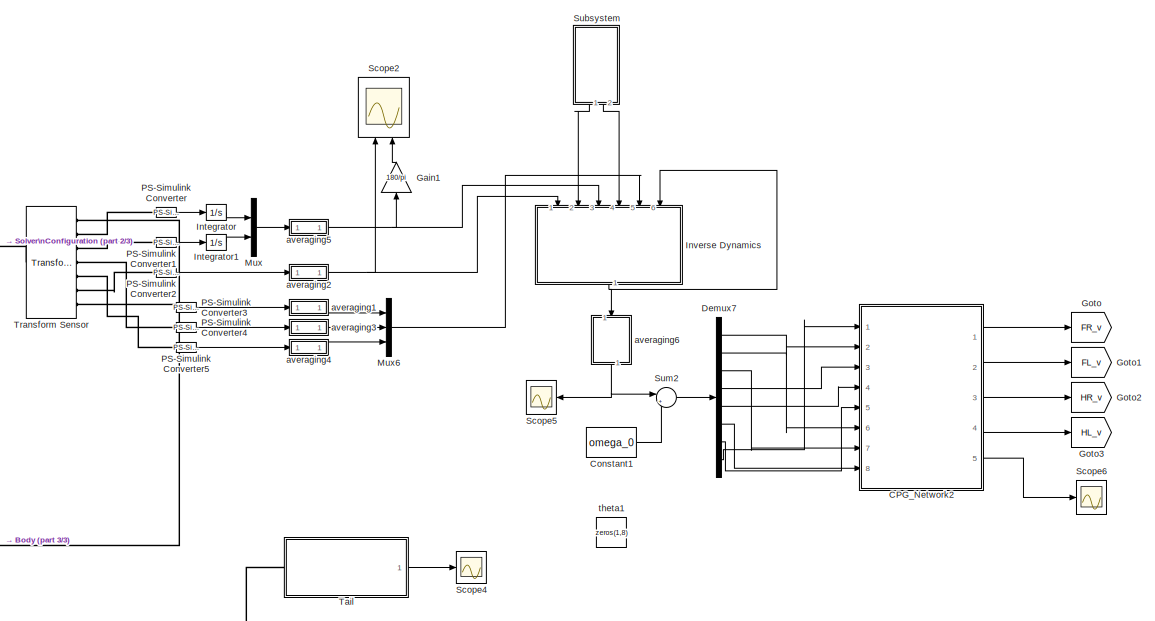
[diagram: root canvas - part 1/3, top right region]
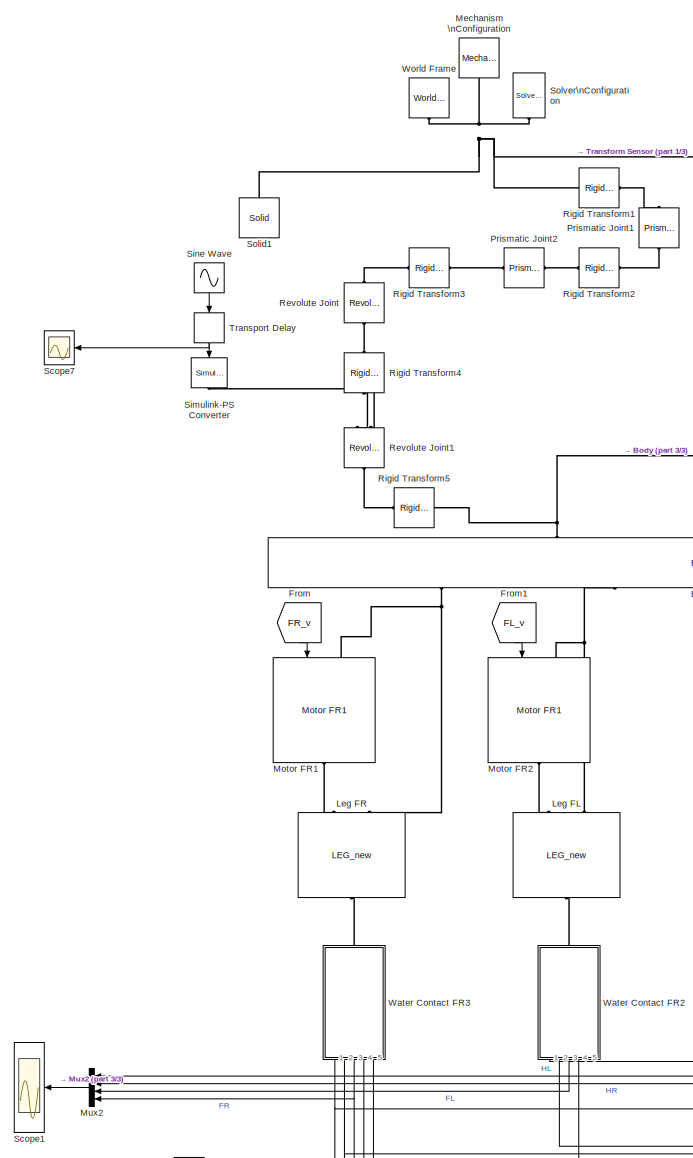
[diagram: root canvas - part 2/3, left side, full height]
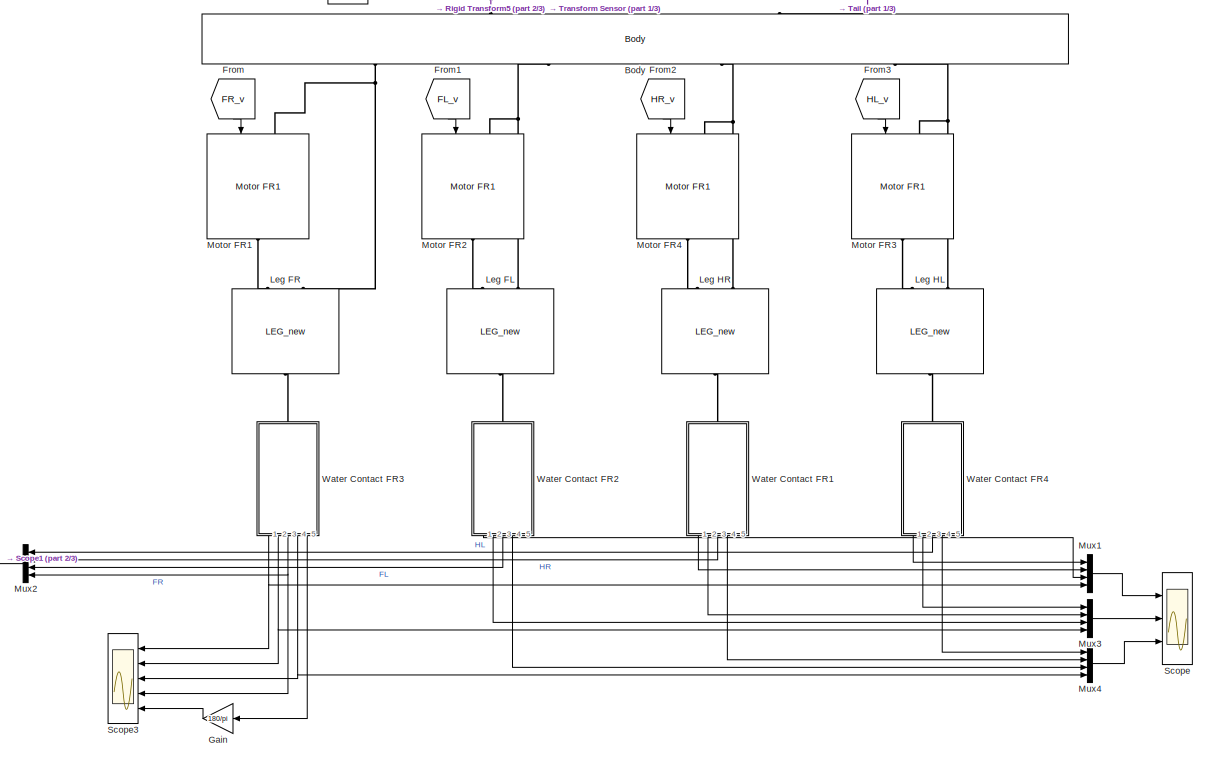
[diagram: root canvas - part 3/3, bottom center region]
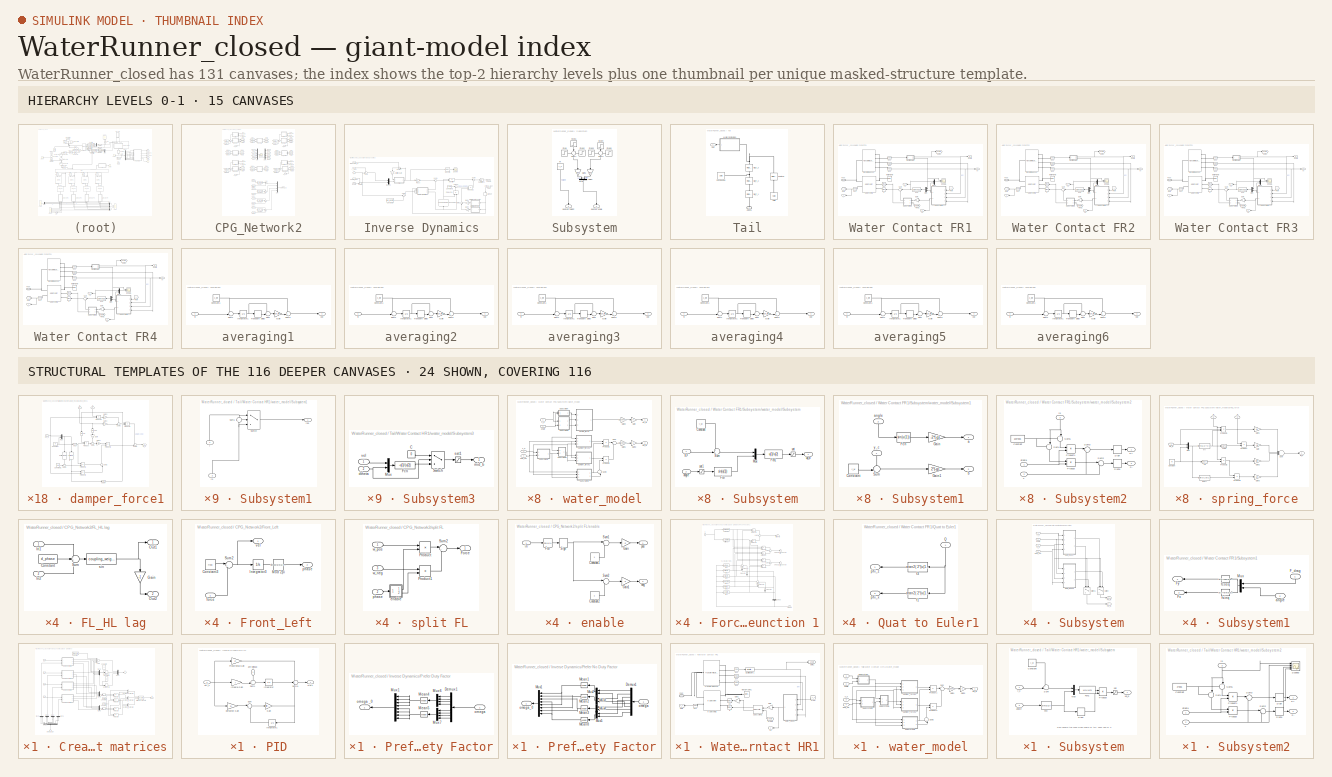
[diagram: thumbnail index - top-2 hierarchy levels (15 canvases) + 24 structural-template representatives of the remaining 116 canvases]
MODEL WaterRunner_closed
KIND model
BLOCK [Reference] Body  REF=WaterRunner_lib_2/Body
  Ports = [0, 0, 0, 0, 0, 4, 2]
  SID = 1
  SourceBlock = WaterRunner_lib_2/Body
  SourceType = SubSystem
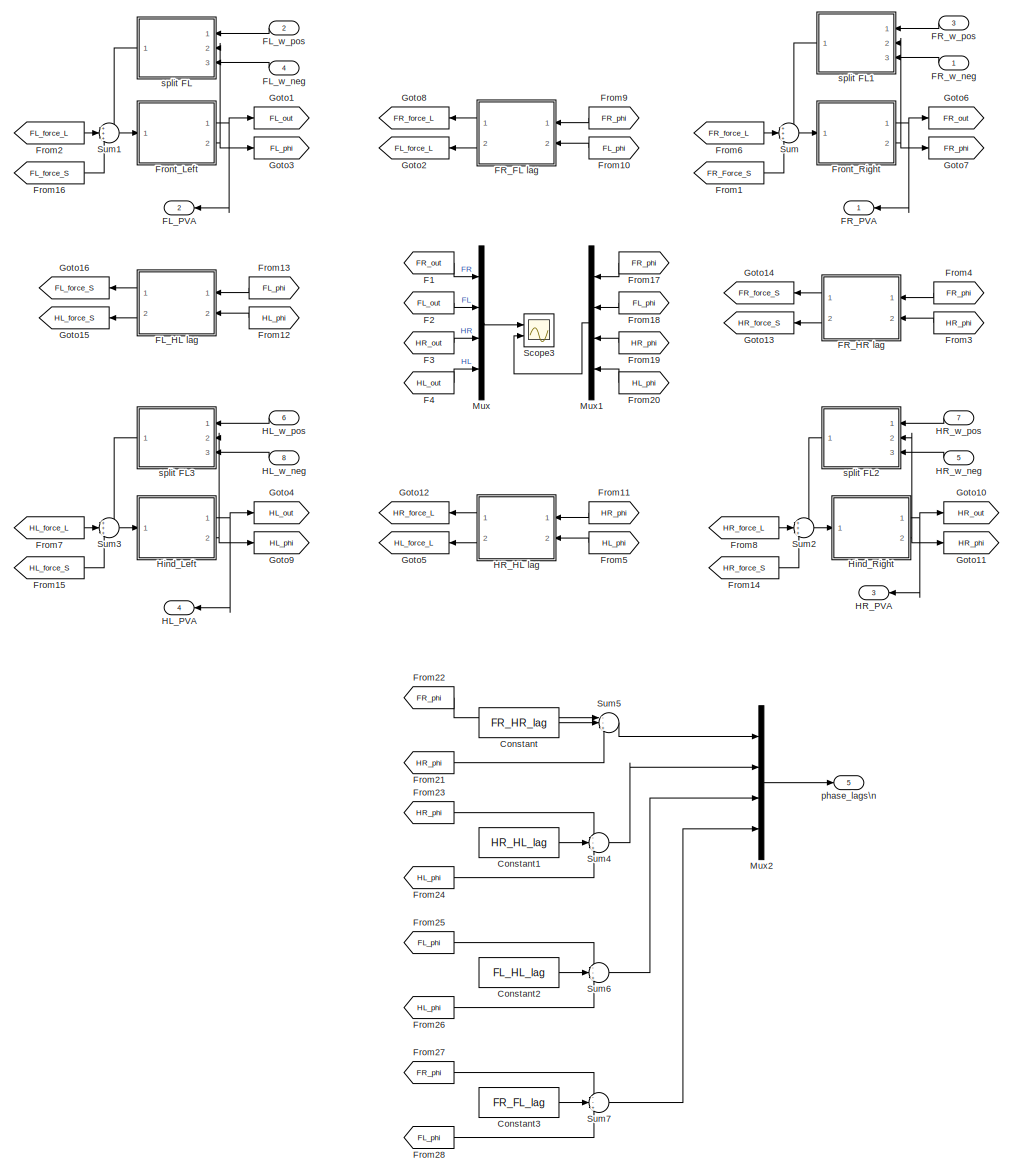
[diagram: CPG_Network2 - part 1/1, most of the canvas]
BLOCK [SubSystem] CPG_Network2
  FunctionWithSeparateData = off
  MaskHideContents = off
  MinAlgLoopOccurrences = off
  Opaque = off
  Ports = [8, 5]
  PropExecContextOutsideSubsystem = off
  RTWSystemCode = Auto
  RequestExecContextInheritance = off
  SID = 512
BLOCK [Constant] CPG_Network2/Constant
  SID = 6744
  Value = FR_HR_lag
BLOCK [Constant] CPG_Network2/Constant1
  SID = 6745
  Value = HR_HL_lag
BLOCK [Constant] CPG_Network2/Constant2
  SID = 6746
  Value = FL_HL_lag
BLOCK [Constant] CPG_Network2/Constant3
  SID = 6747
  Value = FR_FL_lag
BLOCK [From] CPG_Network2/F1
  GotoTag = FR_out
  SID = 521
BLOCK [From] CPG_Network2/F2
  GotoTag = FL_out
  SID = 522
BLOCK [From] CPG_Network2/F3
  GotoTag = HR_out
  SID = 523
BLOCK [From] CPG_Network2/F4
  GotoTag = HL_out
  SID = 524
BLOCK [SubSystem] CPG_Network2/FL_HL lag
  FunctionWithSeparateData = off
  MaskHideContents = off
  MinAlgLoopOccurrences = off
  Opaque = off
  Ports = [2, 2]
  PropExecContextOutsideSubsystem = off
  RTWSystemCode = Auto
  RequestExecContextInheritance = off
  SID = 525
BLOCK [Constant] CPG_Network2/FL_HL lag/Constant
  SID = 528
  Value = d_phase
BLOCK [Gain] CPG_Network2/FL_HL lag/Gain
  Gain = -1
  OutDataTypeStr = Inherit: Inherit via internal rule
  ParamDataTypeStr = Inherit: Inherit via internal rule
  SID = 529
  SaturateOnIntegerOverflow = off
BLOCK [Inport] CPG_Network2/FL_HL lag/In1
  IconDisplay = Port number
  SID = 526
BLOCK [Inport] CPG_Network2/FL_HL lag/In2
  IconDisplay = Port number
  Port = 2
  SID = 527
BLOCK [Outport] CPG_Network2/FL_HL lag/Out1
  IconDisplay = Port number
  SID = 532
BLOCK [Outport] CPG_Network2/FL_HL lag/Out2
  IconDisplay = Port number
  Port = 2
  SID = 533
BLOCK [Sum] CPG_Network2/FL_HL lag/Sum
  IconShape = round
  InputSameDT = off
  Inputs = --+
  OutDataTypeStr = Inherit: Inherit via internal rule
  Ports = [3, 1]
  SID = 530
  SaturateOnIntegerOverflow = off
BLOCK [Fcn] CPG_Network2/FL_HL lag/sin
  Expr = coupling_weight*sin(u(1))
  SID = 531
BLOCK [Outport] CPG_Network2/FL_PVA
  IconDisplay = Port number
  Port = 2
  SID = 777
BLOCK [Inport] CPG_Network2/FL_w_neg
  IconDisplay = Port number
  Port = 4
  SID = 516
BLOCK [Inport] CPG_Network2/FL_w_pos
  IconDisplay = Port number
  Port = 2
  SID = 514
BLOCK [SubSystem] CPG_Network2/FR_FL lag
  FunctionWithSeparateData = off
  MaskHideContents = off
  MinAlgLoopOccurrences = off
  Opaque = off
  Ports = [2, 2]
  PropExecContextOutsideSubsystem = off
  RTWSystemCode = Auto
  RequestExecContextInheritance = off
  SID = 534
BLOCK [Constant] CPG_Network2/FR_FL lag/Constant
  SID = 537
  Value = d_phase
BLOCK [Gain] CPG_Network2/FR_FL lag/Gain
  Gain = -1
  OutDataTypeStr = Inherit: Inherit via internal rule
  ParamDataTypeStr = Inherit: Inherit via internal rule
  SID = 538
  SaturateOnIntegerOverflow = off
BLOCK [Inport] CPG_Network2/FR_FL lag/In1
  IconDisplay = Port number
  SID = 535
BLOCK [Inport] CPG_Network2/FR_FL lag/In2
  IconDisplay = Port number
  Port = 2
  SID = 536
BLOCK [Outport] CPG_Network2/FR_FL lag/Out1
  IconDisplay = Port number
  SID = 541
BLOCK [Outport] CPG_Network2/FR_FL lag/Out2
  IconDisplay = Port number
  Port = 2
  SID = 542
BLOCK [Sum] CPG_Network2/FR_FL lag/Sum
  IconShape = round
  InputSameDT = off
  Inputs = --+
  OutDataTypeStr = Inherit: Inherit via internal rule
  Ports = [3, 1]
  SID = 539
  SaturateOnIntegerOverflow = off
BLOCK [Fcn] CPG_Network2/FR_FL lag/sin
  Expr = coupling_weight*sin(u(1))
  SID = 540
BLOCK [SubSystem] CPG_Network2/FR_HR lag
  FunctionWithSeparateData = off
  MaskHideContents = off
  MinAlgLoopOccurrences = off
  Opaque = off
  Ports = [2, 2]
  PropExecContextOutsideSubsystem = off
  RTWSystemCode = Auto
  RequestExecContextInheritance = off
  SID = 543
BLOCK [Constant] CPG_Network2/FR_HR lag/Constant
  SID = 546
  Value = d_phase
BLOCK [Gain] CPG_Network2/FR_HR lag/Gain
  Gain = -1
  OutDataTypeStr = Inherit: Inherit via internal rule
  ParamDataTypeStr = Inherit: Inherit via internal rule
  SID = 547
  SaturateOnIntegerOverflow = off
BLOCK [Inport] CPG_Network2/FR_HR lag/In1
  IconDisplay = Port number
  SID = 544
BLOCK [Inport] CPG_Network2/FR_HR lag/In2
  IconDisplay = Port number
  Port = 2
  SID = 545
BLOCK [Outport] CPG_Network2/FR_HR lag/Out1
  IconDisplay = Port number
  SID = 550
BLOCK [Outport] CPG_Network2/FR_HR lag/Out2
  IconDisplay = Port number
  Port = 2
  SID = 551
BLOCK [Sum] CPG_Network2/FR_HR lag/Sum
  IconShape = round
  InputSameDT = off
  Inputs = --+
  OutDataTypeStr = Inherit: Inherit via internal rule
  Ports = [3, 1]
  SID = 548
  SaturateOnIntegerOverflow = off
BLOCK [Fcn] CPG_Network2/FR_HR lag/sin
  Expr = coupling_weight*sin(u(1))
  SID = 549
BLOCK [Outport] CPG_Network2/FR_PVA
  IconDisplay = Port number
  SID = 776
BLOCK [Inport] CPG_Network2/FR_w_neg
  IconDisplay = Port number
  SID = 513
BLOCK [Inport] CPG_Network2/FR_w_pos
  IconDisplay = Port number
  Port = 3
  SID = 515
BLOCK [From] CPG_Network2/From1
  GotoTag = FR_Force_S
  SID = 552
BLOCK [From] CPG_Network2/From10
  GotoTag = FL_phi
  SID = 553
BLOCK [From] CPG_Network2/From11
  GotoTag = HR_phi
  SID = 554
BLOCK [From] CPG_Network2/From12
  GotoTag = HL_phi
  SID = 555
BLOCK [From] CPG_Network2/From13
  GotoTag = FL_phi
  SID = 556
BLOCK [From] CPG_Network2/From14
  GotoTag = HR_force_S
  SID = 557
BLOCK [From] CPG_Network2/From15
  GotoTag = HL_force_S
  SID = 558
BLOCK [From] CPG_Network2/From16
  GotoTag = FL_force_S
  SID = 559
BLOCK [From] CPG_Network2/From17
  GotoTag = FR_phi
  SID = 882
BLOCK [From] CPG_Network2/From18
  GotoTag = FL_phi
  SID = 883
BLOCK [From] CPG_Network2/From19
  GotoTag = HR_phi
  SID = 884
BLOCK [From] CPG_Network2/From2
  GotoTag = FL_force_L
  SID = 560
BLOCK [From] CPG_Network2/From20
  GotoTag = HL_phi
  SID = 885
BLOCK [From] CPG_Network2/From21
  GotoTag = HR_phi
  SID = 6748
BLOCK [From] CPG_Network2/From22
  GotoTag = FR_phi
  SID = 6749
BLOCK [From] CPG_Network2/From23
  GotoTag = HR_phi
  SID = 6750
BLOCK [From] CPG_Network2/From24
  GotoTag = HL_phi
  SID = 6751
BLOCK [From] CPG_Network2/From25
  GotoTag = FL_phi
  SID = 6752
BLOCK [From] CPG_Network2/From26
  GotoTag = HL_phi
  SID = 6753
BLOCK [From] CPG_Network2/From27
  GotoTag = FR_phi
  SID = 6754
BLOCK [From] CPG_Network2/From28
  GotoTag = FL_phi
  SID = 6755
BLOCK [From] CPG_Network2/From3
  GotoTag = HR_phi
  SID = 561
BLOCK [From] CPG_Network2/From4
  GotoTag = FR_phi
  SID = 562
BLOCK [From] CPG_Network2/From5
  GotoTag = HL_phi
  SID = 563
BLOCK [From] CPG_Network2/From6
  GotoTag = FR_force_L
  SID = 564
BLOCK [From] CPG_Network2/From7
  GotoTag = HL_force_L
  SID = 565
BLOCK [From] CPG_Network2/From8
  GotoTag = HR_force_L
  SID = 566
BLOCK [From] CPG_Network2/From9
  GotoTag = FR_phi
  SID = 567
BLOCK [SubSystem] CPG_Network2/Front_Left
  FunctionWithSeparateData = off
  MaskHideContents = off
  MinAlgLoopOccurrences = off
  Opaque = off
  Ports = [1, 2]
  PropExecContextOutsideSubsystem = off
  RTWSystemCode = Auto
  RequestExecContextInheritance = off
  SID = 568
BLOCK [Constant] CPG_Network2/Front_Left/Constant3
  SID = 572
  Value = freq
BLOCK [Integrator] CPG_Network2/Front_Left/Integrator3
  InitialCondition = init_phi + 0.001*rand
  Ports = [1, 1]
  SID = 578
BLOCK [Fcn] CPG_Network2/Front_Left/Mod 2pi
  Expr = atan2(sin(u(1)-pi),cos(u(1)-pi))+pi
  SID = 579
BLOCK [Sum] CPG_Network2/Front_Left/Sum2
  IconShape = round
  InputSameDT = off
  Inputs = |++
  OutDataTypeStr = Inherit: Inherit via internal rule
  Ports = [2, 1]
  SID = 584
  SaturateOnIntegerOverflow = off
BLOCK [Inport] CPG_Network2/Front_Left/force
  IconDisplay = Port number
  SID = 569
BLOCK [Outport] CPG_Network2/Front_Left/phase
  IconDisplay = Port number
  Port = 2
  SID = 589
BLOCK [Outport] CPG_Network2/Front_Left/vel
  IconDisplay = Port number
  SID = 588
BLOCK [SubSystem] CPG_Network2/Front_Right
  FunctionWithSeparateData = off
  MaskHideContents = off
  MinAlgLoopOccurrences = off
  Opaque = off
  Ports = [1, 2]
  PropExecContextOutsideSubsystem = off
  RTWSystemCode = Auto
  RequestExecContextInheritance = off
  SID = 780
BLOCK [Constant] CPG_Network2/Front_Right/Constant3
  SID = 782
  Value = freq
BLOCK [Integrator] CPG_Network2/Front_Right/Integrator3
  InitialCondition = init_phi + 0.001*rand
  Ports = [1, 1]
  SID = 783
BLOCK [Fcn] CPG_Network2/Front_Right/Mod 2pi
  Expr = atan2(sin(u(1)-pi),cos(u(1)-pi))+pi
  SID = 784
BLOCK [Sum] CPG_Network2/Front_Right/Sum2
  IconShape = round
  InputSameDT = off
  Inputs = |++
  OutDataTypeStr = Inherit: Inherit via internal rule
  Ports = [2, 1]
  SID = 785
  SaturateOnIntegerOverflow = off
BLOCK [Inport] CPG_Network2/Front_Right/force
  IconDisplay = Port number
  SID = 781
BLOCK [Outport] CPG_Network2/Front_Right/phase
  IconDisplay = Port number
  Port = 2
  SID = 787
BLOCK [Outport] CPG_Network2/Front_Right/vel
  IconDisplay = Port number
  SID = 786
BLOCK [Goto] CPG_Network2/Goto1
  GotoTag = FL_out
  SID = 612
BLOCK [Goto] CPG_Network2/Goto10
  GotoTag = HR_out
  SID = 613
BLOCK [Goto] CPG_Network2/Goto11
  GotoTag = HR_phi
  SID = 614
BLOCK [Goto] CPG_Network2/Goto12
  GotoTag = HR_force_L
  SID = 615
BLOCK [Goto] CPG_Network2/Goto13
  GotoTag = HR_force_S
  SID = 616
BLOCK [Goto] CPG_Network2/Goto14
  GotoTag = FR_force_S
  SID = 617
BLOCK [Goto] CPG_Network2/Goto15
  GotoTag = HL_force_S
  SID = 618
BLOCK [Goto] CPG_Network2/Goto16
  GotoTag = FL_force_S
  SID = 619
BLOCK [Goto] CPG_Network2/Goto2
  GotoTag = FL_force_L
  SID = 620
BLOCK [Goto] CPG_Network2/Goto3
  GotoTag = FL_phi
  SID = 621
BLOCK [Goto] CPG_Network2/Goto4
  GotoTag = HL_out
  SID = 622
BLOCK [Goto] CPG_Network2/Goto5
  GotoTag = HL_force_L
  SID = 623
BLOCK [Goto] CPG_Network2/Goto6
  GotoTag = FR_out
  SID = 624
BLOCK [Goto] CPG_Network2/Goto7
  GotoTag = FR_phi
  SID = 625
BLOCK [Goto] CPG_Network2/Goto8
  GotoTag = FR_force_L
  SID = 626
BLOCK [Goto] CPG_Network2/Goto9
  GotoTag = HL_phi
  SID = 627
BLOCK [Outport] CPG_Network2/HL_PVA
  IconDisplay = Port number
  Port = 4
  SID = 779
BLOCK [Inport] CPG_Network2/HL_w_neg
  IconDisplay = Port number
  Port = 8
  SID = 520
BLOCK [Inport] CPG_Network2/HL_w_pos
  IconDisplay = Port number
  Port = 6
  SID = 518
BLOCK [SubSystem] CPG_Network2/HR_HL lag
  FunctionWithSeparateData = off
  MaskHideContents = off
  MinAlgLoopOccurrences = off
  Opaque = off
  Ports = [2, 2]
  PropExecContextOutsideSubsystem = off
  RTWSystemCode = Auto
  RequestExecContextInheritance = off
  SID = 628
BLOCK [Constant] CPG_Network2/HR_HL lag/Constant
  SID = 631
  Value = d_phase
BLOCK [Gain] CPG_Network2/HR_HL lag/Gain
  Gain = -1
  OutDataTypeStr = Inherit: Inherit via internal rule
  ParamDataTypeStr = Inherit: Inherit via internal rule
  SID = 632
  SaturateOnIntegerOverflow = off
BLOCK [Inport] CPG_Network2/HR_HL lag/In1
  IconDisplay = Port number
  SID = 629
BLOCK [Inport] CPG_Network2/HR_HL lag/In2
  IconDisplay = Port number
  Port = 2
  SID = 630
BLOCK [Outport] CPG_Network2/HR_HL lag/Out1
  IconDisplay = Port number
  SID = 635
BLOCK [Outport] CPG_Network2/HR_HL lag/Out2
  IconDisplay = Port number
  Port = 2
  SID = 636
BLOCK [Sum] CPG_Network2/HR_HL lag/Sum
  IconShape = round
  InputSameDT = off
  Inputs = --+
  OutDataTypeStr = Inherit: Inherit via internal rule
  Ports = [3, 1]
  SID = 633
  SaturateOnIntegerOverflow = off
BLOCK [Fcn] CPG_Network2/HR_HL lag/sin
  Expr = coupling_weight*sin(u(1))
  SID = 634
BLOCK [Outport] CPG_Network2/HR_PVA
  IconDisplay = Port number
  Port = 3
  SID = 778
BLOCK [Inport] CPG_Network2/HR_w_neg
  IconDisplay = Port number
  Port = 5
  SID = 517
BLOCK [Inport] CPG_Network2/HR_w_pos
  IconDisplay = Port number
  Port = 7
  SID = 519
BLOCK [SubSystem] CPG_Network2/Hind_Left
  FunctionWithSeparateData = off
  MaskHideContents = off
  MinAlgLoopOccurrences = off
  Opaque = off
  Ports = [1, 2]
  PropExecContextOutsideSubsystem = off
  RTWSystemCode = Auto
  RequestExecContextInheritance = off
  SID = 812
BLOCK [Constant] CPG_Network2/Hind_Left/Constant3
  SID = 814
  Value = freq
BLOCK [Integrator] CPG_Network2/Hind_Left/Integrator3
  InitialCondition = init_phi + 0.001*rand
  Ports = [1, 1]
  SID = 815
BLOCK [Fcn] CPG_Network2/Hind_Left/Mod 2pi
  Expr = atan2(sin(u(1)-pi),cos(u(1)-pi))+pi
  SID = 816
BLOCK [Sum] CPG_Network2/Hind_Left/Sum2
  IconShape = round
  InputSameDT = off
  Inputs = |++
  OutDataTypeStr = Inherit: Inherit via internal rule
  Ports = [2, 1]
  SID = 817
  SaturateOnIntegerOverflow = off
BLOCK [Inport] CPG_Network2/Hind_Left/force
  IconDisplay = Port number
  SID = 813
BLOCK [Outport] CPG_Network2/Hind_Left/phase
  IconDisplay = Port number
  Port = 2
  SID = 819
BLOCK [Outport] CPG_Network2/Hind_Left/vel
  IconDisplay = Port number
  SID = 818
BLOCK [SubSystem] CPG_Network2/Hind_Right
  FunctionWithSeparateData = off
  MaskHideContents = off
  MinAlgLoopOccurrences = off
  Opaque = off
  Ports = [1, 2]
  PropExecContextOutsideSubsystem = off
  RTWSystemCode = Auto
  RequestExecContextInheritance = off
  SID = 796
BLOCK [Constant] CPG_Network2/Hind_Right/Constant3
  SID = 798
  Value = freq
BLOCK [Integrator] CPG_Network2/Hind_Right/Integrator3
  InitialCondition = init_phi + 0.001*rand
  Ports = [1, 1]
  SID = 799
BLOCK [Fcn] CPG_Network2/Hind_Right/Mod 2pi
  Expr = atan2(sin(u(1)-pi),cos(u(1)-pi))+pi
  SID = 800
BLOCK [Sum] CPG_Network2/Hind_Right/Sum2
  IconShape = round
  InputSameDT = off
  Inputs = |++
  OutDataTypeStr = Inherit: Inherit via internal rule
  Ports = [2, 1]
  SID = 801
  SaturateOnIntegerOverflow = off
BLOCK [Inport] CPG_Network2/Hind_Right/force
  IconDisplay = Port number
  SID = 797
BLOCK [Outport] CPG_Network2/Hind_Right/phase
  IconDisplay = Port number
  Port = 2
  SID = 803
BLOCK [Outport] CPG_Network2/Hind_Right/vel
  IconDisplay = Port number
  SID = 802
BLOCK [Mux] CPG_Network2/Mux
  DisplayOption = bar
  Ports = [4, 1]
  SID = 681
BLOCK [Mux] CPG_Network2/Mux1
  DisplayOption = bar
  Ports = [4, 1]
  SID = 881
BLOCK [Mux] CPG_Network2/Mux2
  DisplayOption = bar
  Ports = [4, 1]
  SID = 6756
BLOCK [Scope] CPG_Network2/Scope3
  DataFormat = StructureWithTime
  Floating = off
  LegendLocations = 0.88753     0.88132    0.074635    0.084427\n0.86143      0.4061     0.10073    0.084427
  LimitDataPoints = off
  NumInputPorts = 2
  Ports = [2]
  SID = 683
  SampleTime = 0
  SaveName = Output
  SaveToWorkspace = on
  ShowLegends = on
  TimeRange = 5
  YMax = 77.5~6.5
  YMin = 50~0
  ZoomMode = yonly
BLOCK [Sum] CPG_Network2/Sum
  IconShape = round
  InputSameDT = off
  Inputs = +++
  OutDataTypeStr = Inherit: Inherit via internal rule
  Ports = [3, 1]
  SID = 688
  SaturateOnIntegerOverflow = off
BLOCK [Sum] CPG_Network2/Sum1
  IconShape = round
  InputSameDT = off
  Inputs = +++
  OutDataTypeStr = Inherit: Inherit via internal rule
  Ports = [3, 1]
  SID = 689
  SaturateOnIntegerOverflow = off
BLOCK [Sum] CPG_Network2/Sum2
  IconShape = round
  InputSameDT = off
  Inputs = +++
  OutDataTypeStr = Inherit: Inherit via internal rule
  Ports = [3, 1]
  SID = 690
  SaturateOnIntegerOverflow = off
BLOCK [Sum] CPG_Network2/Sum3
  IconShape = round
  InputSameDT = off
  Inputs = +++
  OutDataTypeStr = Inherit: Inherit via internal rule
  Ports = [3, 1]
  SID = 691
  SaturateOnIntegerOverflow = off
BLOCK [Sum] CPG_Network2/Sum4
  IconShape = round
  InputSameDT = off
  Inputs = --+
  OutDataTypeStr = Inherit: Inherit via internal rule
  Ports = [3, 1]
  SID = 6757
  SaturateOnIntegerOverflow = off
BLOCK [Sum] CPG_Network2/Sum5
  IconShape = round
  InputSameDT = off
  Inputs = --+
  OutDataTypeStr = Inherit: Inherit via internal rule
  Ports = [3, 1]
  SID = 6758
  SaturateOnIntegerOverflow = off
BLOCK [Sum] CPG_Network2/Sum6
  IconShape = round
  InputSameDT = off
  Inputs = --+
  OutDataTypeStr = Inherit: Inherit via internal rule
  Ports = [3, 1]
  SID = 6759
  SaturateOnIntegerOverflow = off
BLOCK [Sum] CPG_Network2/Sum7
  IconShape = round
  InputSameDT = off
  Inputs = --+
  OutDataTypeStr = Inherit: Inherit via internal rule
  Ports = [3, 1]
  SID = 6760
  SaturateOnIntegerOverflow = off
BLOCK [Outport] CPG_Network2/phase_lags\n
  IconDisplay = Port number
  Port = 5
  SID = 6761
BLOCK [SubSystem] CPG_Network2/split FL
  FunctionWithSeparateData = off
  MaskHideContents = off
  MinAlgLoopOccurrences = off
  Opaque = off
  Ports = [3, 1]
  PropExecContextOutsideSubsystem = off
  RTWSystemCode = Auto
  RequestExecContextInheritance = off
  SID = 692
BLOCK [Outport] CPG_Network2/split FL/Force
  IconDisplay = Port number
  SID = 712
BLOCK [Product] CPG_Network2/split FL/Product
  InputSameDT = off
  OutDataTypeStr = Inherit: Inherit via internal rule
  Ports = [2, 1]
  SID = 696
  SaturateOnIntegerOverflow = off
BLOCK [Product] CPG_Network2/split FL/Product1
  InputSameDT = off
  OutDataTypeStr = Inherit: Inherit via internal rule
  Ports = [2, 1]
  SID = 697
  SaturateOnIntegerOverflow = off
BLOCK [Sum] CPG_Network2/split FL/Sum2
  IconShape = round
  InputSameDT = off
  Inputs = |++
  OutDataTypeStr = Inherit: Inherit via internal rule
  Ports = [2, 1]
  SID = 698
  SaturateOnIntegerOverflow = off
BLOCK [SubSystem] CPG_Network2/split FL/enable
  FunctionWithSeparateData = off
  MaskHideContents = off
  MinAlgLoopOccurrences = off
  Opaque = off
  Ports = [1, 2]
  PropExecContextOutsideSubsystem = off
  RTWSystemCode = Auto
  RequestExecContextInheritance = off
  SID = 699
BLOCK [Constant] CPG_Network2/split FL/enable/Constant1
  SID = 701
BLOCK [Constant] CPG_Network2/split FL/enable/Constant2
  SID = 702
BLOCK [Fcn] CPG_Network2/split FL/enable/Fcn
  Expr = cos(u(1))
  SID = 820
BLOCK [Gain] CPG_Network2/split FL/enable/Gain
  Gain = .5
  OutDataTypeStr = Inherit: Inherit via internal rule
  ParamDataTypeStr = Inherit: Inherit via internal rule
  SID = 704
  SaturateOnIntegerOverflow = off
BLOCK [Gain] CPG_Network2/split FL/enable/Gain1
  Gain = .5
  OutDataTypeStr = Inherit: Inherit via internal rule
  ParamDataTypeStr = Inherit: Inherit via internal rule
  SID = 705
  SaturateOnIntegerOverflow = off
BLOCK [Signum] CPG_Network2/split FL/enable/Sign
  SID = 706
BLOCK [Sum] CPG_Network2/split FL/enable/Sum1
  IconShape = round
  InputSameDT = off
  Inputs = |++
  OutDataTypeStr = Inherit: Inherit via internal rule
  Ports = [2, 1]
  SID = 707
  SaturateOnIntegerOverflow = off
BLOCK [Sum] CPG_Network2/split FL/enable/Sum2
  IconShape = round
  InputSameDT = off
  Inputs = |-+
  OutDataTypeStr = Inherit: Inherit via internal rule
  Ports = [2, 1]
  SID = 708
  SaturateOnIntegerOverflow = off
BLOCK [Inport] CPG_Network2/split FL/enable/in
  IconDisplay = Port number
  SID = 700
BLOCK [Outport] CPG_Network2/split FL/enable/neg
  IconDisplay = Port number
  Port = 2
  SID = 710
BLOCK [Outport] CPG_Network2/split FL/enable/pos
  IconDisplay = Port number
  SID = 709
BLOCK [Inport] CPG_Network2/split FL/phase
  IconDisplay = Port number
  Port = 2
  SID = 694
BLOCK [Inport] CPG_Network2/split FL/w_neg
  IconDisplay = Port number
  Port = 3
  SID = 695
BLOCK [Inport] CPG_Network2/split FL/w_pos
  IconDisplay = Port number
  SID = 693
BLOCK [SubSystem] CPG_Network2/split FL1
  FunctionWithSeparateData = off
  MaskHideContents = off
  MinAlgLoopOccurrences = off
  Opaque = off
  Ports = [3, 1]
  PropExecContextOutsideSubsystem = off
  RTWSystemCode = Auto
  RequestExecContextInheritance = off
  SID = 821
BLOCK [Outport] CPG_Network2/split FL1/Force
  IconDisplay = Port number
  SID = 840
BLOCK [Product] CPG_Network2/split FL1/Product
  InputSameDT = off
  OutDataTypeStr = Inherit: Inherit via internal rule
  Ports = [2, 1]
  SID = 825
  SaturateOnIntegerOverflow = off
BLOCK [Product] CPG_Network2/split FL1/Product1
  InputSameDT = off
  OutDataTypeStr = Inherit: Inherit via internal rule
  Ports = [2, 1]
  SID = 826
  SaturateOnIntegerOverflow = off
BLOCK [Sum] CPG_Network2/split FL1/Sum2
  IconShape = round
  InputSameDT = off
  Inputs = |++
  OutDataTypeStr = Inherit: Inherit via internal rule
  Ports = [2, 1]
  SID = 827
  SaturateOnIntegerOverflow = off
BLOCK [SubSystem] CPG_Network2/split FL1/enable
  FunctionWithSeparateData = off
  MaskHideContents = off
  MinAlgLoopOccurrences = off
  Opaque = off
  Ports = [1, 2]
  PropExecContextOutsideSubsystem = off
  RTWSystemCode = Auto
  RequestExecContextInheritance = off
  SID = 828
BLOCK [Constant] CPG_Network2/split FL1/enable/Constant1
  SID = 830
BLOCK [Constant] CPG_Network2/split FL1/enable/Constant2
  SID = 831
BLOCK [Fcn] CPG_Network2/split FL1/enable/Fcn
  Expr = cos(u(1))
  SID = 832
BLOCK [Gain] CPG_Network2/split FL1/enable/Gain
  Gain = .5
  OutDataTypeStr = Inherit: Inherit via internal rule
  ParamDataTypeStr = Inherit: Inherit via internal rule
  SID = 833
  SaturateOnIntegerOverflow = off
BLOCK [Gain] CPG_Network2/split FL1/enable/Gain1
  Gain = .5
  OutDataTypeStr = Inherit: Inherit via internal rule
  ParamDataTypeStr = Inherit: Inherit via internal rule
  SID = 834
  SaturateOnIntegerOverflow = off
BLOCK [Signum] CPG_Network2/split FL1/enable/Sign
  SID = 835
BLOCK [Sum] CPG_Network2/split FL1/enable/Sum1
  IconShape = round
  InputSameDT = off
  Inputs = |++
  OutDataTypeStr = Inherit: Inherit via internal rule
  Ports = [2, 1]
  SID = 836
  SaturateOnIntegerOverflow = off
BLOCK [Sum] CPG_Network2/split FL1/enable/Sum2
  IconShape = round
  InputSameDT = off
  Inputs = |-+
  OutDataTypeStr = Inherit: Inherit via internal rule
  Ports = [2, 1]
  SID = 837
  SaturateOnIntegerOverflow = off
BLOCK [Inport] CPG_Network2/split FL1/enable/in
  IconDisplay = Port number
  SID = 829
BLOCK [Outport] CPG_Network2/split FL1/enable/neg
  IconDisplay = Port number
  Port = 2
  SID = 839
BLOCK [Outport] CPG_Network2/split FL1/enable/pos
  IconDisplay = Port number
  SID = 838
BLOCK [Inport] CPG_Network2/split FL1/phase
  IconDisplay = Port number
  Port = 2
  SID = 823
BLOCK [Inport] CPG_Network2/split FL1/w_neg
  IconDisplay = Port number
  Port = 3
  SID = 824
BLOCK [Inport] CPG_Network2/split FL1/w_pos
  IconDisplay = Port number
  SID = 822
BLOCK [SubSystem] CPG_Network2/split FL2
  FunctionWithSeparateData = off
  MaskHideContents = off
  MinAlgLoopOccurrences = off
  Opaque = off
  Ports = [3, 1]
  PropExecContextOutsideSubsystem = off
  RTWSystemCode = Auto
  RequestExecContextInheritance = off
  SID = 841
BLOCK [Outport] CPG_Network2/split FL2/Force
  IconDisplay = Port number
  SID = 860
BLOCK [Product] CPG_Network2/split FL2/Product
  InputSameDT = off
  OutDataTypeStr = Inherit: Inherit via internal rule
  Ports = [2, 1]
  SID = 845
  SaturateOnIntegerOverflow = off
BLOCK [Product] CPG_Network2/split FL2/Product1
  InputSameDT = off
  OutDataTypeStr = Inherit: Inherit via internal rule
  Ports = [2, 1]
  SID = 846
  SaturateOnIntegerOverflow = off
BLOCK [Sum] CPG_Network2/split FL2/Sum2
  IconShape = round
  InputSameDT = off
  Inputs = |++
  OutDataTypeStr = Inherit: Inherit via internal rule
  Ports = [2, 1]
  SID = 847
  SaturateOnIntegerOverflow = off
BLOCK [SubSystem] CPG_Network2/split FL2/enable
  FunctionWithSeparateData = off
  MaskHideContents = off
  MinAlgLoopOccurrences = off
  Opaque = off
  Ports = [1, 2]
  PropExecContextOutsideSubsystem = off
  RTWSystemCode = Auto
  RequestExecContextInheritance = off
  SID = 848
BLOCK [Constant] CPG_Network2/split FL2/enable/Constant1
  SID = 850
BLOCK [Constant] CPG_Network2/split FL2/enable/Constant2
  SID = 851
BLOCK [Fcn] CPG_Network2/split FL2/enable/Fcn
  Expr = cos(u(1))
  SID = 852
BLOCK [Gain] CPG_Network2/split FL2/enable/Gain
  Gain = .5
  OutDataTypeStr = Inherit: Inherit via internal rule
  ParamDataTypeStr = Inherit: Inherit via internal rule
  SID = 853
  SaturateOnIntegerOverflow = off
BLOCK [Gain] CPG_Network2/split FL2/enable/Gain1
  Gain = .5
  OutDataTypeStr = Inherit: Inherit via internal rule
  ParamDataTypeStr = Inherit: Inherit via internal rule
  SID = 854
  SaturateOnIntegerOverflow = off
BLOCK [Signum] CPG_Network2/split FL2/enable/Sign
  SID = 855
BLOCK [Sum] CPG_Network2/split FL2/enable/Sum1
  IconShape = round
  InputSameDT = off
  Inputs = |++
  OutDataTypeStr = Inherit: Inherit via internal rule
  Ports = [2, 1]
  SID = 856
  SaturateOnIntegerOverflow = off
BLOCK [Sum] CPG_Network2/split FL2/enable/Sum2
  IconShape = round
  InputSameDT = off
  Inputs = |-+
  OutDataTypeStr = Inherit: Inherit via internal rule
  Ports = [2, 1]
  SID = 857
  SaturateOnIntegerOverflow = off
BLOCK [Inport] CPG_Network2/split FL2/enable/in
  IconDisplay = Port number
  SID = 849
BLOCK [Outport] CPG_Network2/split FL2/enable/neg
  IconDisplay = Port number
  Port = 2
  SID = 859
BLOCK [Outport] CPG_Network2/split FL2/enable/pos
  IconDisplay = Port number
  SID = 858
BLOCK [Inport] CPG_Network2/split FL2/phase
  IconDisplay = Port number
  Port = 2
  SID = 843
BLOCK [Inport] CPG_Network2/split FL2/w_neg
  IconDisplay = Port number
  Port = 3
  SID = 844
BLOCK [Inport] CPG_Network2/split FL2/w_pos
  IconDisplay = Port number
  SID = 842
BLOCK [SubSystem] CPG_Network2/split FL3
  FunctionWithSeparateData = off
  MaskHideContents = off
  MinAlgLoopOccurrences = off
  Opaque = off
  Ports = [3, 1]
  PropExecContextOutsideSubsystem = off
  RTWSystemCode = Auto
  RequestExecContextInheritance = off
  SID = 861
BLOCK [Outport] CPG_Network2/split FL3/Force
  IconDisplay = Port number
  SID = 880
BLOCK [Product] CPG_Network2/split FL3/Product
  InputSameDT = off
  OutDataTypeStr = Inherit: Inherit via internal rule
  Ports = [2, 1]
  SID = 865
  SaturateOnIntegerOverflow = off
BLOCK [Product] CPG_Network2/split FL3/Product1
  InputSameDT = off
  OutDataTypeStr = Inherit: Inherit via internal rule
  Ports = [2, 1]
  SID = 866
  SaturateOnIntegerOverflow = off
BLOCK [Sum] CPG_Network2/split FL3/Sum2
  IconShape = round
  InputSameDT = off
  Inputs = |++
  OutDataTypeStr = Inherit: Inherit via internal rule
  Ports = [2, 1]
  SID = 867
  SaturateOnIntegerOverflow = off
BLOCK [SubSystem] CPG_Network2/split FL3/enable
  FunctionWithSeparateData = off
  MaskHideContents = off
  MinAlgLoopOccurrences = off
  Opaque = off
  Ports = [1, 2]
  PropExecContextOutsideSubsystem = off
  RTWSystemCode = Auto
  RequestExecContextInheritance = off
  SID = 868
BLOCK [Constant] CPG_Network2/split FL3/enable/Constant1
  SID = 870
BLOCK [Constant] CPG_Network2/split FL3/enable/Constant2
  SID = 871
BLOCK [Fcn] CPG_Network2/split FL3/enable/Fcn
  Expr = cos(u(1))
  SID = 872
BLOCK [Gain] CPG_Network2/split FL3/enable/Gain
  Gain = .5
  OutDataTypeStr = Inherit: Inherit via internal rule
  ParamDataTypeStr = Inherit: Inherit via internal rule
  SID = 873
  SaturateOnIntegerOverflow = off
BLOCK [Gain] CPG_Network2/split FL3/enable/Gain1
  Gain = .5
  OutDataTypeStr = Inherit: Inherit via internal rule
  ParamDataTypeStr = Inherit: Inherit via internal rule
  SID = 874
  SaturateOnIntegerOverflow = off
BLOCK [Signum] CPG_Network2/split FL3/enable/Sign
  SID = 875
BLOCK [Sum] CPG_Network2/split FL3/enable/Sum1
  IconShape = round
  InputSameDT = off
  Inputs = |++
  OutDataTypeStr = Inherit: Inherit via internal rule
  Ports = [2, 1]
  SID = 876
  SaturateOnIntegerOverflow = off
BLOCK [Sum] CPG_Network2/split FL3/enable/Sum2
  IconShape = round
  InputSameDT = off
  Inputs = |-+
  OutDataTypeStr = Inherit: Inherit via internal rule
  Ports = [2, 1]
  SID = 877
  SaturateOnIntegerOverflow = off
BLOCK [Inport] CPG_Network2/split FL3/enable/in
  IconDisplay = Port number
  SID = 869
BLOCK [Outport] CPG_Network2/split FL3/enable/neg
  IconDisplay = Port number
  Port = 2
  SID = 879
BLOCK [Outport] CPG_Network2/split FL3/enable/pos
  IconDisplay = Port number
  SID = 878
BLOCK [Inport] CPG_Network2/split FL3/phase
  IconDisplay = Port number
  Port = 2
  SID = 863
BLOCK [Inport] CPG_Network2/split FL3/w_neg
  IconDisplay = Port number
  Port = 3
  SID = 864
BLOCK [Inport] CPG_Network2/split FL3/w_pos
  IconDisplay = Port number
  SID = 862
BLOCK [Constant] Constant1
  SID = 6686
  Value = omega_0
BLOCK [Demux] Demux7
  DisplayOption = bar
  Outputs = 8
  Ports = [1, 8]
  SID = 6138
BLOCK [From] From
  GotoTag = FR_v
  SID = 5614
BLOCK [From] From1
  GotoTag = FL_v
  SID = 5615
BLOCK [From] From2
  GotoTag = HR_v
  SID = 5616
BLOCK [From] From3
  GotoTag = HL_v
  SID = 5617
BLOCK [Gain] Gain
  Gain = 180/pi
  OutDataTypeStr = Inherit: Inherit via internal rule
  ParamDataTypeStr = Inherit: Inherit via internal rule
  SID = 5950
  SaturateOnIntegerOverflow = off
BLOCK [Gain] Gain1
  Gain = 180/pi
  OutDataTypeStr = Inherit: Inherit via internal rule
  ParamDataTypeStr = Inherit: Inherit via internal rule
  SID = 6137
  SaturateOnIntegerOverflow = off
BLOCK [Goto] Goto
  GotoTag = FR_v
  SID = 887
BLOCK [Goto] Goto1
  GotoTag = FL_v
  SID = 888
BLOCK [Goto] Goto2
  GotoTag = HR_v
  SID = 889
BLOCK [Goto] Goto3
  GotoTag = HL_v
  SID = 890
BLOCK [Integrator] Integrator
  Ports = [1, 1]
  SID = 5986
BLOCK [Integrator] Integrator1
  Ports = [1, 1]
  SID = 5987
BLOCK [SubSystem] Inverse Dynamics
  FunctionWithSeparateData = off
  MaskHideContents = off
  MinAlgLoopOccurrences = off
  Opaque = off
  Ports = [6, 1]
  PropExecContextOutsideSubsystem = off
  RTWSystemCode = Auto
  RequestExecContextInheritance = off
  SID = 6433
BLOCK [Constant] Inverse Dynamics/Constant2
  SID = 6447
  Value = leg_length
BLOCK [Constant] Inverse Dynamics/Constant3
  SID = 6448
  Value = eye(8)
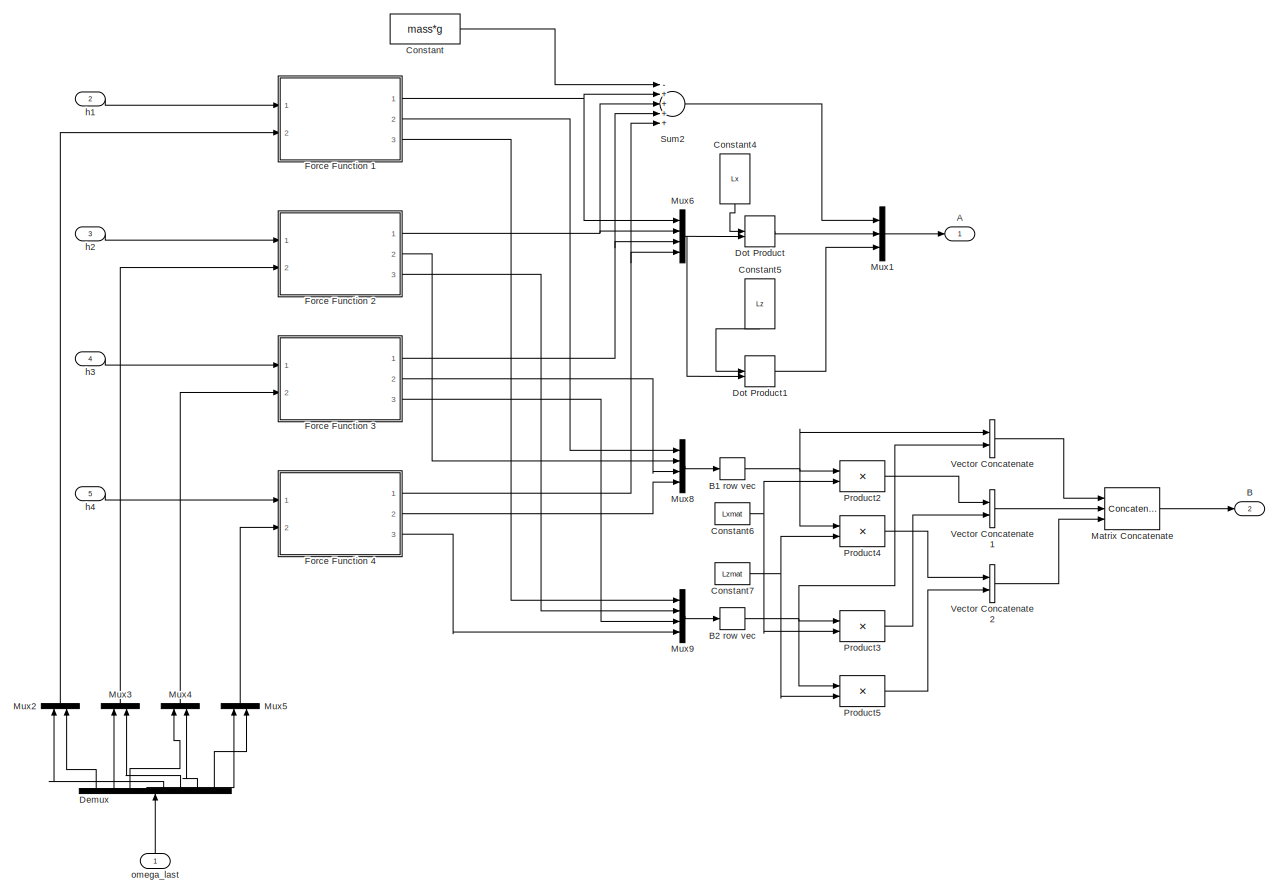
[diagram: Inverse Dynamics/Create A, B matrices - part 1/1, most of the canvas]
BLOCK [SubSystem] Inverse Dynamics/Create A, B matrices
  FunctionWithSeparateData = off
  MaskHideContents = off
  MinAlgLoopOccurrences = off
  Opaque = off
  Ports = [5, 2]
  PropExecContextOutsideSubsystem = off
  RTWSystemCode = Auto
  RequestExecContextInheritance = off
  SID = 6460
BLOCK [Outport] Inverse Dynamics/Create A, B matrices/A
  IconDisplay = Port number
  SID = 6620
BLOCK [Outport] Inverse Dynamics/Create A, B matrices/B
  IconDisplay = Port number
  Port = 2
  SID = 6621
BLOCK [Reshape] Inverse Dynamics/Create A, B matrices/B1 row vec
  OutputDimensionality = Row vector (2-D)
  OutputDimensions = [1,2]
  Ports = [1, 1]
  SID = 6467
BLOCK [Reshape] Inverse Dynamics/Create A, B matrices/B2 row vec
  OutputDimensionality = Row vector (2-D)
  OutputDimensions = [1,2]
  Ports = [1, 1]
  SID = 6468
BLOCK [Constant] Inverse Dynamics/Create A, B matrices/Constant
  SID = 6469
  Value = mass*g
BLOCK [Constant] Inverse Dynamics/Create A, B matrices/Constant4
  SID = 6470
  Value = Lx
BLOCK [Constant] Inverse Dynamics/Create A, B matrices/Constant5
  SID = 6471
  Value = Lz
BLOCK [Constant] Inverse Dynamics/Create A, B matrices/Constant6
  SID = 6472
  Value = Lxmat
BLOCK [Constant] Inverse Dynamics/Create A, B matrices/Constant7
  SID = 6473
  Value = Lzmat
BLOCK [Demux] Inverse Dynamics/Create A, B matrices/Demux
  DisplayOption = bar
  Outputs = 8
  Ports = [1, 8]
  SID = 6474
BLOCK [DotProduct] Inverse Dynamics/Create A, B matrices/Dot Product
  OutDataTypeStr = Inherit: Inherit via internal rule
  SID = 6475
BLOCK [DotProduct] Inverse Dynamics/Create A, B matrices/Dot Product1
  OutDataTypeStr = Inherit: Inherit via internal rule
  SID = 6476
BLOCK [SubSystem] Inverse Dynamics/Create A, B matrices/Force Function 1
  FunctionWithSeparateData = off
  MaskHideContents = off
  MinAlgLoopOccurrences = off
  Opaque = off
  Ports = [2, 3]
  PropExecContextOutsideSubsystem = off
  RTWSystemCode = Auto
  RequestExecContextInheritance = off
  SID = 6477
BLOCK [Outport] Inverse Dynamics/Create A, B matrices/Force Function 1/Affine Part
  IconDisplay = Port number
  SID = 6504
BLOCK [Demux] Inverse Dynamics/Create A, B matrices/Force Function 1/Demux
  DisplayOption = bar
  Outputs = 2
  Ports = [1, 2]
  SID = 6480
BLOCK [Product] Inverse Dynamics/Create A, B matrices/Force Function 1/Product
  InputSameDT = off
  OutDataTypeStr = Inherit: Inherit via internal rule
  Ports = [2, 1]
  SID = 6481
  SaturateOnIntegerOverflow = off
BLOCK [Product] Inverse Dynamics/Create A, B matrices/Force Function 1/Product1
  InputSameDT = off
  OutDataTypeStr = Inherit: Inherit via internal rule
  Ports = [2, 1]
  SID = 6482
  SaturateOnIntegerOverflow = off
BLOCK [Product] Inverse Dynamics/Create A, B matrices/Force Function 1/Product2
  InputSameDT = off
  OutDataTypeStr = Inherit: Inherit via internal rule
  Ports = [2, 1]
  SID = 6483
  SaturateOnIntegerOverflow = off
BLOCK [Product] Inverse Dynamics/Create A, B matrices/Force Function 1/Product3
  InputSameDT = off
  OutDataTypeStr = Inherit: Inherit via internal rule
  Ports = [2, 1]
  SID = 6484
  SaturateOnIntegerOverflow = off
BLOCK [Product] Inverse Dynamics/Create A, B matrices/Force Function 1/Product4
  InputSameDT = off
  OutDataTypeStr = Inherit: Inherit via internal rule
  Ports = [2, 1]
  SID = 6485
  SaturateOnIntegerOverflow = off
BLOCK [Product] Inverse Dynamics/Create A, B matrices/Force Function 1/Product5
  InputSameDT = off
  OutDataTypeStr = Inherit: Inherit via internal rule
  Ports = [2, 1]
  SID = 6486
  SaturateOnIntegerOverflow = off
BLOCK [Product] Inverse Dynamics/Create A, B matrices/Force Function 1/Product6
  InputSameDT = off
  OutDataTypeStr = Inherit: Inherit via internal rule
  Ports = [2, 1]
  SID = 6487
  SaturateOnIntegerOverflow = off
BLOCK [Product] Inverse Dynamics/Create A, B matrices/Force Function 1/Product7
  InputSameDT = off
  OutDataTypeStr = Inherit: Inherit via internal rule
  Ports = [2, 1]
  SID = 6488
  SaturateOnIntegerOverflow = off
BLOCK [Product] Inverse Dynamics/Create A, B matrices/Force Function 1/Product8
  InputSameDT = off
  OutDataTypeStr = Inherit: Inherit via internal rule
  Ports = [2, 1]
  SID = 6489
  SaturateOnIntegerOverflow = off
BLOCK [Product] Inverse Dynamics/Create A, B matrices/Force Function 1/Product9
  InputSameDT = off
  OutDataTypeStr = Inherit: Inherit via internal rule
  Ports = [2, 1]
  SID = 6490
  SaturateOnIntegerOverflow = off
BLOCK [Sum] Inverse Dynamics/Create A, B matrices/Force Function 1/Sum2
  IconShape = round
  InputSameDT = off
  Inputs = +--
  OutDataTypeStr = Inherit: Inherit via internal rule
  Ports = [3, 1]
  SID = 6491
  SaturateOnIntegerOverflow = off
BLOCK [Sum] Inverse Dynamics/Create A, B matrices/Force Function 1/Sum3
  IconShape = round
  InputSameDT = off
  Inputs = +|+
  OutDataTypeStr = Inherit: Inherit via internal rule
  Ports = [2, 1]
  SID = 6492
  SaturateOnIntegerOverflow = off
BLOCK [Sum] Inverse Dynamics/Create A, B matrices/Force Function 1/Sum4
  IconShape = round
  InputSameDT = off
  Inputs = +--
  OutDataTypeStr = Inherit: Inherit via internal rule
  Ports = [3, 1]
  SID = 6493
  SaturateOnIntegerOverflow = off
BLOCK [Sum] Inverse Dynamics/Create A, B matrices/Force Function 1/Sum5
  IconShape = round
  InputSameDT = off
  Inputs = +|+
  OutDataTypeStr = Inherit: Inherit via internal rule
  Ports = [2, 1]
  SID = 6494
  SaturateOnIntegerOverflow = off
BLOCK [Sum] Inverse Dynamics/Create A, B matrices/Force Function 1/Sum6
  IconShape = round
  InputSameDT = off
  Inputs = +|+
  OutDataTypeStr = Inherit: Inherit via internal rule
  Ports = [2, 1]
  SID = 6495
  SaturateOnIntegerOverflow = off
BLOCK [Fcn] Inverse Dynamics/Create A, B matrices/Force Function 1/Wb0
  Expr = (u(1)^2 * u(2) + Fratio*u(1)*u(2)^2)/(u(1) + u(2))
  SID = 6496
BLOCK [Fcn] Inverse Dynamics/Create A, B matrices/Force Function 1/Wb1
  Expr = u(2)*(u(1)^2 +2*u(1)*u(2) + Fratio*u(2)^2)/((u(1) + u(2))^2)
  SID = 6497
BLOCK [Fcn] Inverse Dynamics/Create A, B matrices/Force Function 1/Wb2
  Expr = u(1)*(u(1)^2 +2*Fratio*u(1)*u(2) + Fratio*u(2)^2)/((u(1) + u(2))^2)
  SID = 6498
BLOCK [Fcn] Inverse Dynamics/Create A, B matrices/Force Function 1/Wk0
  Expr = (u(2) + Fratio*u(1))/(u(1) + u(2))
  SID = 6499
BLOCK [Fcn] Inverse Dynamics/Create A, B matrices/Force Function 1/Wk1
  Expr = (Fratio - 1)*u(2)/((u(1) + u(2))^2)
  SID = 6500
BLOCK [Fcn] Inverse Dynamics/Create A, B matrices/Force Function 1/Wk2
  Expr = (1 - Fratio)*u(1)/((u(1) + u(2))^2)
  SID = 6501
BLOCK [Fcn] Inverse Dynamics/Create A, B matrices/Force Function 1/damping
  Expr = b_water*Amp^2*(acos(u/Amp) - u*sqrt(Amp^2 - u^2)/Amp^2)/(2*pi)
  SID = 6502
BLOCK [Inport] Inverse Dynamics/Create A, B matrices/Force Function 1/h
  IconDisplay = Port number
  SID = 6478
BLOCK [Inport] Inverse Dynamics/Create A, B matrices/Force Function 1/omega
  IconDisplay = Port number
  Port = 2
  SID = 6479
BLOCK [Outport] Inverse Dynamics/Create A, B matrices/Force Function 1/omega1\ndependent
  IconDisplay = Port number
  Port = 2
  SID = 6505
BLOCK [Outport] Inverse Dynamics/Create A, B matrices/Force Function 1/omega2\ndependent
  IconDisplay = Port number
  Port = 3
  SID = 6506
BLOCK [Fcn] Inverse Dynamics/Create A, B matrices/Force Function 1/stiffness
  Expr = k_water*(sqrt(Amp^2 - u^2) - u*acos(u/Amp))/pi
  SID = 6503
BLOCK [SubSystem] Inverse Dynamics/Create A, B matrices/Force Function 2
  FunctionWithSeparateData = off
  MaskHideContents = off
  MinAlgLoopOccurrences = off
  Opaque = off
  Ports = [2, 3]
  PropExecContextOutsideSubsystem = off
  RTWSystemCode = Auto
  RequestExecContextInheritance = off
  SID = 6508
BLOCK [Outport] Inverse Dynamics/Create A, B matrices/Force Function 2/Affine Part
  IconDisplay = Port number
  SID = 6535
BLOCK [Demux] Inverse Dynamics/Create A, B matrices/Force Function 2/Demux
  DisplayOption = bar
  Outputs = 2
  Ports = [1, 2]
  SID = 6511
BLOCK [Product] Inverse Dynamics/Create A, B matrices/Force Function 2/Product
  InputSameDT = off
  OutDataTypeStr = Inherit: Inherit via internal rule
  Ports = [2, 1]
  SID = 6512
  SaturateOnIntegerOverflow = off
BLOCK [Product] Inverse Dynamics/Create A, B matrices/Force Function 2/Product1
  InputSameDT = off
  OutDataTypeStr = Inherit: Inherit via internal rule
  Ports = [2, 1]
  SID = 6513
  SaturateOnIntegerOverflow = off
BLOCK [Product] Inverse Dynamics/Create A, B matrices/Force Function 2/Product2
  InputSameDT = off
  OutDataTypeStr = Inherit: Inherit via internal rule
  Ports = [2, 1]
  SID = 6514
  SaturateOnIntegerOverflow = off
BLOCK [Product] Inverse Dynamics/Create A, B matrices/Force Function 2/Product3
  InputSameDT = off
  OutDataTypeStr = Inherit: Inherit via internal rule
  Ports = [2, 1]
  SID = 6515
  SaturateOnIntegerOverflow = off
BLOCK [Product] Inverse Dynamics/Create A, B matrices/Force Function 2/Product4
  InputSameDT = off
  OutDataTypeStr = Inherit: Inherit via internal rule
  Ports = [2, 1]
  SID = 6516
  SaturateOnIntegerOverflow = off
BLOCK [Product] Inverse Dynamics/Create A, B matrices/Force Function 2/Product5
  InputSameDT = off
  OutDataTypeStr = Inherit: Inherit via internal rule
  Ports = [2, 1]
  SID = 6517
  SaturateOnIntegerOverflow = off
BLOCK [Product] Inverse Dynamics/Create A, B matrices/Force Function 2/Product6
  InputSameDT = off
  OutDataTypeStr = Inherit: Inherit via internal rule
  Ports = [2, 1]
  SID = 6518
  SaturateOnIntegerOverflow = off
BLOCK [Product] Inverse Dynamics/Create A, B matrices/Force Function 2/Product7
  InputSameDT = off
  OutDataTypeStr = Inherit: Inherit via internal rule
  Ports = [2, 1]
  SID = 6519
  SaturateOnIntegerOverflow = off
BLOCK [Product] Inverse Dynamics/Create A, B matrices/Force Function 2/Product8
  InputSameDT = off
  OutDataTypeStr = Inherit: Inherit via internal rule
  Ports = [2, 1]
  SID = 6520
  SaturateOnIntegerOverflow = off
BLOCK [Product] Inverse Dynamics/Create A, B matrices/Force Function 2/Product9
  InputSameDT = off
  OutDataTypeStr = Inherit: Inherit via internal rule
  Ports = [2, 1]
  SID = 6521
  SaturateOnIntegerOverflow = off
BLOCK [Sum] Inverse Dynamics/Create A, B matrices/Force Function 2/Sum2
  IconShape = round
  InputSameDT = off
  Inputs = +--
  OutDataTypeStr = Inherit: Inherit via internal rule
  Ports = [3, 1]
  SID = 6522
  SaturateOnIntegerOverflow = off
BLOCK [Sum] Inverse Dynamics/Create A, B matrices/Force Function 2/Sum3
  IconShape = round
  InputSameDT = off
  Inputs = +|+
  OutDataTypeStr = Inherit: Inherit via internal rule
  Ports = [2, 1]
  SID = 6523
  SaturateOnIntegerOverflow = off
BLOCK [Sum] Inverse Dynamics/Create A, B matrices/Force Function 2/Sum4
  IconShape = round
  InputSameDT = off
  Inputs = +--
  OutDataTypeStr = Inherit: Inherit via internal rule
  Ports = [3, 1]
  SID = 6524
  SaturateOnIntegerOverflow = off
BLOCK [Sum] Inverse Dynamics/Create A, B matrices/Force Function 2/Sum5
  IconShape = round
  InputSameDT = off
  Inputs = +|+
  OutDataTypeStr = Inherit: Inherit via internal rule
  Ports = [2, 1]
  SID = 6525
  SaturateOnIntegerOverflow = off
BLOCK [Sum] Inverse Dynamics/Create A, B matrices/Force Function 2/Sum6
  IconShape = round
  InputSameDT = off
  Inputs = +|+
  OutDataTypeStr = Inherit: Inherit via internal rule
  Ports = [2, 1]
  SID = 6526
  SaturateOnIntegerOverflow = off
BLOCK [Fcn] Inverse Dynamics/Create A, B matrices/Force Function 2/Wb0
  Expr = (u(1)^2 * u(2) + Fratio*u(1)*u(2)^2)/(u(1) + u(2))
  SID = 6527
BLOCK [Fcn] Inverse Dynamics/Create A, B matrices/Force Function 2/Wb1
  Expr = u(2)*(u(1)^2 +2*u(1)*u(2) + Fratio*u(2)^2)/((u(1) + u(2))^2)
  SID = 6528
BLOCK [Fcn] Inverse Dynamics/Create A, B matrices/Force Function 2/Wb2
  Expr = u(1)*(u(1)^2 +2*Fratio*u(1)*u(2) + Fratio*u(2)^2)/((u(1) + u(2))^2)
  SID = 6529
BLOCK [Fcn] Inverse Dynamics/Create A, B matrices/Force Function 2/Wk0
  Expr = (u(2) + Fratio*u(1))/(u(1) + u(2))
  SID = 6530
BLOCK [Fcn] Inverse Dynamics/Create A, B matrices/Force Function 2/Wk1
  Expr = (Fratio - 1)*u(2)/((u(1) + u(2))^2)
  SID = 6531
BLOCK [Fcn] Inverse Dynamics/Create A, B matrices/Force Function 2/Wk2
  Expr = (1 - Fratio)*u(1)/((u(1) + u(2))^2)
  SID = 6532
BLOCK [Fcn] Inverse Dynamics/Create A, B matrices/Force Function 2/damping
  Expr = b_water*Amp^2*(acos(u/Amp) - u*sqrt(Amp^2 - u^2)/Amp^2)/(2*pi)
  SID = 6533
BLOCK [Inport] Inverse Dynamics/Create A, B matrices/Force Function 2/h
  IconDisplay = Port number
  SID = 6509
BLOCK [Inport] Inverse Dynamics/Create A, B matrices/Force Function 2/omega
  IconDisplay = Port number
  Port = 2
  SID = 6510
BLOCK [Outport] Inverse Dynamics/Create A, B matrices/Force Function 2/omega1\ndependent
  IconDisplay = Port number
  Port = 2
  SID = 6536
BLOCK [Outport] Inverse Dynamics/Create A, B matrices/Force Function 2/omega2\ndependent
  IconDisplay = Port number
  Port = 3
  SID = 6537
BLOCK [Fcn] Inverse Dynamics/Create A, B matrices/Force Function 2/stiffness
  Expr = k_water*(sqrt(Amp^2 - u^2) - u*acos(u/Amp))/pi
  SID = 6534
BLOCK [SubSystem] Inverse Dynamics/Create A, B matrices/Force Function 3
  FunctionWithSeparateData = off
  MaskHideContents = off
  MinAlgLoopOccurrences = off
  Opaque = off
  Ports = [2, 3]
  PropExecContextOutsideSubsystem = off
  RTWSystemCode = Auto
  RequestExecContextInheritance = off
  SID = 6539
BLOCK [Outport] Inverse Dynamics/Create A, B matrices/Force Function 3/Affine Part
  IconDisplay = Port number
  SID = 6566
BLOCK [Demux] Inverse Dynamics/Create A, B matrices/Force Function 3/Demux
  DisplayOption = bar
  Outputs = 2
  Ports = [1, 2]
  SID = 6542
BLOCK [Product] Inverse Dynamics/Create A, B matrices/Force Function 3/Product
  InputSameDT = off
  OutDataTypeStr = Inherit: Inherit via internal rule
  Ports = [2, 1]
  SID = 6543
  SaturateOnIntegerOverflow = off
BLOCK [Product] Inverse Dynamics/Create A, B matrices/Force Function 3/Product1
  InputSameDT = off
  OutDataTypeStr = Inherit: Inherit via internal rule
  Ports = [2, 1]
  SID = 6544
  SaturateOnIntegerOverflow = off
BLOCK [Product] Inverse Dynamics/Create A, B matrices/Force Function 3/Product2
  InputSameDT = off
  OutDataTypeStr = Inherit: Inherit via internal rule
  Ports = [2, 1]
  SID = 6545
  SaturateOnIntegerOverflow = off
BLOCK [Product] Inverse Dynamics/Create A, B matrices/Force Function 3/Product3
  InputSameDT = off
  OutDataTypeStr = Inherit: Inherit via internal rule
  Ports = [2, 1]
  SID = 6546
  SaturateOnIntegerOverflow = off
BLOCK [Product] Inverse Dynamics/Create A, B matrices/Force Function 3/Product4
  InputSameDT = off
  OutDataTypeStr = Inherit: Inherit via internal rule
  Ports = [2, 1]
  SID = 6547
  SaturateOnIntegerOverflow = off
BLOCK [Product] Inverse Dynamics/Create A, B matrices/Force Function 3/Product5
  InputSameDT = off
  OutDataTypeStr = Inherit: Inherit via internal rule
  Ports = [2, 1]
  SID = 6548
  SaturateOnIntegerOverflow = off
BLOCK [Product] Inverse Dynamics/Create A, B matrices/Force Function 3/Product6
  InputSameDT = off
  OutDataTypeStr = Inherit: Inherit via internal rule
  Ports = [2, 1]
  SID = 6549
  SaturateOnIntegerOverflow = off
BLOCK [Product] Inverse Dynamics/Create A, B matrices/Force Function 3/Product7
  InputSameDT = off
  OutDataTypeStr = Inherit: Inherit via internal rule
  Ports = [2, 1]
  SID = 6550
  SaturateOnIntegerOverflow = off
BLOCK [Product] Inverse Dynamics/Create A, B matrices/Force Function 3/Product8
  InputSameDT = off
  OutDataTypeStr = Inherit: Inherit via internal rule
  Ports = [2, 1]
  SID = 6551
  SaturateOnIntegerOverflow = off
BLOCK [Product] Inverse Dynamics/Create A, B matrices/Force Function 3/Product9
  InputSameDT = off
  OutDataTypeStr = Inherit: Inherit via internal rule
  Ports = [2, 1]
  SID = 6552
  SaturateOnIntegerOverflow = off
BLOCK [Sum] Inverse Dynamics/Create A, B matrices/Force Function 3/Sum2
  IconShape = round
  InputSameDT = off
  Inputs = +--
  OutDataTypeStr = Inherit: Inherit via internal rule
  Ports = [3, 1]
  SID = 6553
  SaturateOnIntegerOverflow = off
BLOCK [Sum] Inverse Dynamics/Create A, B matrices/Force Function 3/Sum3
  IconShape = round
  InputSameDT = off
  Inputs = +|+
  OutDataTypeStr = Inherit: Inherit via internal rule
  Ports = [2, 1]
  SID = 6554
  SaturateOnIntegerOverflow = off
BLOCK [Sum] Inverse Dynamics/Create A, B matrices/Force Function 3/Sum4
  IconShape = round
  InputSameDT = off
  Inputs = +--
  OutDataTypeStr = Inherit: Inherit via internal rule
  Ports = [3, 1]
  SID = 6555
  SaturateOnIntegerOverflow = off
BLOCK [Sum] Inverse Dynamics/Create A, B matrices/Force Function 3/Sum5
  IconShape = round
  InputSameDT = off
  Inputs = +|+
  OutDataTypeStr = Inherit: Inherit via internal rule
  Ports = [2, 1]
  SID = 6556
  SaturateOnIntegerOverflow = off
BLOCK [Sum] Inverse Dynamics/Create A, B matrices/Force Function 3/Sum6
  IconShape = round
  InputSameDT = off
  Inputs = +|+
  OutDataTypeStr = Inherit: Inherit via internal rule
  Ports = [2, 1]
  SID = 6557
  SaturateOnIntegerOverflow = off
BLOCK [Fcn] Inverse Dynamics/Create A, B matrices/Force Function 3/Wb0
  Expr = (u(1)^2 * u(2) + Fratio*u(1)*u(2)^2)/(u(1) + u(2))
  SID = 6558
BLOCK [Fcn] Inverse Dynamics/Create A, B matrices/Force Function 3/Wb1
  Expr = u(2)*(u(1)^2 +2*u(1)*u(2) + Fratio*u(2)^2)/((u(1) + u(2))^2)
  SID = 6559
BLOCK [Fcn] Inverse Dynamics/Create A, B matrices/Force Function 3/Wb2
  Expr = u(1)*(u(1)^2 +2*Fratio*u(1)*u(2) + Fratio*u(2)^2)/((u(1) + u(2))^2)
  SID = 6560
BLOCK [Fcn] Inverse Dynamics/Create A, B matrices/Force Function 3/Wk0
  Expr = (u(2) + Fratio*u(1))/(u(1) + u(2))
  SID = 6561
BLOCK [Fcn] Inverse Dynamics/Create A, B matrices/Force Function 3/Wk1
  Expr = (Fratio - 1)*u(2)/((u(1) + u(2))^2)
  SID = 6562
BLOCK [Fcn] Inverse Dynamics/Create A, B matrices/Force Function 3/Wk2
  Expr = (1 - Fratio)*u(1)/((u(1) + u(2))^2)
  SID = 6563
BLOCK [Fcn] Inverse Dynamics/Create A, B matrices/Force Function 3/damping
  Expr = b_water*Amp^2*(acos(u/Amp) - u*sqrt(Amp^2 - u^2)/Amp^2)/(2*pi)
  SID = 6564
BLOCK [Inport] Inverse Dynamics/Create A, B matrices/Force Function 3/h
  IconDisplay = Port number
  SID = 6540
BLOCK [Inport] Inverse Dynamics/Create A, B matrices/Force Function 3/omega
  IconDisplay = Port number
  Port = 2
  SID = 6541
BLOCK [Outport] Inverse Dynamics/Create A, B matrices/Force Function 3/omega1\ndependent
  IconDisplay = Port number
  Port = 2
  SID = 6567
BLOCK [Outport] Inverse Dynamics/Create A, B matrices/Force Function 3/omega2\ndependent
  IconDisplay = Port number
  Port = 3
  SID = 6568
BLOCK [Fcn] Inverse Dynamics/Create A, B matrices/Force Function 3/stiffness
  Expr = k_water*(sqrt(Amp^2 - u^2) - u*acos(u/Amp))/pi
  SID = 6565
BLOCK [SubSystem] Inverse Dynamics/Create A, B matrices/Force Function 4
  FunctionWithSeparateData = off
  MaskHideContents = off
  MinAlgLoopOccurrences = off
  Opaque = off
  Ports = [2, 3]
  PropExecContextOutsideSubsystem = off
  RTWSystemCode = Auto
  RequestExecContextInheritance = off
  SID = 6570
BLOCK [Outport] Inverse Dynamics/Create A, B matrices/Force Function 4/Affine Part
  IconDisplay = Port number
  SID = 6597
BLOCK [Demux] Inverse Dynamics/Create A, B matrices/Force Function 4/Demux
  DisplayOption = bar
  Outputs = 2
  Ports = [1, 2]
  SID = 6573
BLOCK [Product] Inverse Dynamics/Create A, B matrices/Force Function 4/Product
  InputSameDT = off
  OutDataTypeStr = Inherit: Inherit via internal rule
  Ports = [2, 1]
  SID = 6574
  SaturateOnIntegerOverflow = off
BLOCK [Product] Inverse Dynamics/Create A, B matrices/Force Function 4/Product1
  InputSameDT = off
  OutDataTypeStr = Inherit: Inherit via internal rule
  Ports = [2, 1]
  SID = 6575
  SaturateOnIntegerOverflow = off
BLOCK [Product] Inverse Dynamics/Create A, B matrices/Force Function 4/Product2
  InputSameDT = off
  OutDataTypeStr = Inherit: Inherit via internal rule
  Ports = [2, 1]
  SID = 6576
  SaturateOnIntegerOverflow = off
BLOCK [Product] Inverse Dynamics/Create A, B matrices/Force Function 4/Product3
  InputSameDT = off
  OutDataTypeStr = Inherit: Inherit via internal rule
  Ports = [2, 1]
  SID = 6577
  SaturateOnIntegerOverflow = off
BLOCK [Product] Inverse Dynamics/Create A, B matrices/Force Function 4/Product4
  InputSameDT = off
  OutDataTypeStr = Inherit: Inherit via internal rule
  Ports = [2, 1]
  SID = 6578
  SaturateOnIntegerOverflow = off
BLOCK [Product] Inverse Dynamics/Create A, B matrices/Force Function 4/Product5
  InputSameDT = off
  OutDataTypeStr = Inherit: Inherit via internal rule
  Ports = [2, 1]
  SID = 6579
  SaturateOnIntegerOverflow = off
BLOCK [Product] Inverse Dynamics/Create A, B matrices/Force Function 4/Product6
  InputSameDT = off
  OutDataTypeStr = Inherit: Inherit via internal rule
  Ports = [2, 1]
  SID = 6580
  SaturateOnIntegerOverflow = off
BLOCK [Product] Inverse Dynamics/Create A, B matrices/Force Function 4/Product7
  InputSameDT = off
  OutDataTypeStr = Inherit: Inherit via internal rule
  Ports = [2, 1]
  SID = 6581
  SaturateOnIntegerOverflow = off
BLOCK [Product] Inverse Dynamics/Create A, B matrices/Force Function 4/Product8
  InputSameDT = off
  OutDataTypeStr = Inherit: Inherit via internal rule
  Ports = [2, 1]
  SID = 6582
  SaturateOnIntegerOverflow = off
BLOCK [Product] Inverse Dynamics/Create A, B matrices/Force Function 4/Product9
  InputSameDT = off
  OutDataTypeStr = Inherit: Inherit via internal rule
  Ports = [2, 1]
  SID = 6583
  SaturateOnIntegerOverflow = off
BLOCK [Sum] Inverse Dynamics/Create A, B matrices/Force Function 4/Sum2
  IconShape = round
  InputSameDT = off
  Inputs = +--
  OutDataTypeStr = Inherit: Inherit via internal rule
  Ports = [3, 1]
  SID = 6584
  SaturateOnIntegerOverflow = off
BLOCK [Sum] Inverse Dynamics/Create A, B matrices/Force Function 4/Sum3
  IconShape = round
  InputSameDT = off
  Inputs = +|+
  OutDataTypeStr = Inherit: Inherit via internal rule
  Ports = [2, 1]
  SID = 6585
  SaturateOnIntegerOverflow = off
BLOCK [Sum] Inverse Dynamics/Create A, B matrices/Force Function 4/Sum4
  IconShape = round
  InputSameDT = off
  Inputs = +--
  OutDataTypeStr = Inherit: Inherit via internal rule
  Ports = [3, 1]
  SID = 6586
  SaturateOnIntegerOverflow = off
BLOCK [Sum] Inverse Dynamics/Create A, B matrices/Force Function 4/Sum5
  IconShape = round
  InputSameDT = off
  Inputs = +|+
  OutDataTypeStr = Inherit: Inherit via internal rule
  Ports = [2, 1]
  SID = 6587
  SaturateOnIntegerOverflow = off
BLOCK [Sum] Inverse Dynamics/Create A, B matrices/Force Function 4/Sum6
  IconShape = round
  InputSameDT = off
  Inputs = +|+
  OutDataTypeStr = Inherit: Inherit via internal rule
  Ports = [2, 1]
  SID = 6588
  SaturateOnIntegerOverflow = off
BLOCK [Fcn] Inverse Dynamics/Create A, B matrices/Force Function 4/Wb0
  Expr = (u(1)^2 * u(2) + Fratio*u(1)*u(2)^2)/(u(1) + u(2))
  SID = 6589
BLOCK [Fcn] Inverse Dynamics/Create A, B matrices/Force Function 4/Wb1
  Expr = u(2)*(u(1)^2 +2*u(1)*u(2) + Fratio*u(2)^2)/((u(1) + u(2))^2)
  SID = 6590
BLOCK [Fcn] Inverse Dynamics/Create A, B matrices/Force Function 4/Wb2
  Expr = u(1)*(u(1)^2 +2*Fratio*u(1)*u(2) + Fratio*u(2)^2)/((u(1) + u(2))^2)
  SID = 6591
BLOCK [Fcn] Inverse Dynamics/Create A, B matrices/Force Function 4/Wk0
  Expr = (u(2) + Fratio*u(1))/(u(1) + u(2))
  SID = 6592
BLOCK [Fcn] Inverse Dynamics/Create A, B matrices/Force Function 4/Wk1
  Expr = (Fratio - 1)*u(2)/((u(1) + u(2))^2)
  SID = 6593
BLOCK [Fcn] Inverse Dynamics/Create A, B matrices/Force Function 4/Wk2
  Expr = (1 - Fratio)*u(1)/((u(1) + u(2))^2)
  SID = 6594
BLOCK [Fcn] Inverse Dynamics/Create A, B matrices/Force Function 4/damping
  Expr = b_water*Amp^2*(acos(u/Amp) - u*sqrt(Amp^2 - u^2)/Amp^2)/(2*pi)
  SID = 6595
BLOCK [Inport] Inverse Dynamics/Create A, B matrices/Force Function 4/h
  IconDisplay = Port number
  SID = 6571
BLOCK [Inport] Inverse Dynamics/Create A, B matrices/Force Function 4/omega
  IconDisplay = Port number
  Port = 2
  SID = 6572
BLOCK [Outport] Inverse Dynamics/Create A, B matrices/Force Function 4/omega1\ndependent
  IconDisplay = Port number
  Port = 2
  SID = 6598
BLOCK [Outport] Inverse Dynamics/Create A, B matrices/Force Function 4/omega2\ndependent
  IconDisplay = Port number
  Port = 3
  SID = 6599
BLOCK [Fcn] Inverse Dynamics/Create A, B matrices/Force Function 4/stiffness
  Expr = k_water*(sqrt(Amp^2 - u^2) - u*acos(u/Amp))/pi
  SID = 6596
BLOCK [Concatenate] Inverse Dynamics/Create A, B matrices/Matrix Concatenate
  Mode = Multidimensional array
  NumInputs = 3
  Ports = [3, 1]
  SID = 6601
BLOCK [Mux] Inverse Dynamics/Create A, B matrices/Mux1
  DisplayOption = bar
  Inputs = 3
  Ports = [3, 1]
  SID = 6602
BLOCK [Mux] Inverse Dynamics/Create A, B matrices/Mux2
  DisplayOption = bar
  Inputs = 2
  Ports = [2, 1]
  SID = 6603
BLOCK [Mux] Inverse Dynamics/Create A, B matrices/Mux3
  DisplayOption = bar
  Inputs = 2
  Ports = [2, 1]
  SID = 6604
BLOCK [Mux] Inverse Dynamics/Create A, B matrices/Mux4
  DisplayOption = bar
  Inputs = 2
  Ports = [2, 1]
  SID = 6605
BLOCK [Mux] Inverse Dynamics/Create A, B matrices/Mux5
  DisplayOption = bar
  Inputs = 2
  Ports = [2, 1]
  SID = 6606
BLOCK [Mux] Inverse Dynamics/Create A, B matrices/Mux6
  DisplayOption = bar
  Ports = [4, 1]
  SID = 6607
BLOCK [Mux] Inverse Dynamics/Create A, B matrices/Mux8
  DisplayOption = bar
  Ports = [4, 1]
  SID = 6608
BLOCK [Mux] Inverse Dynamics/Create A, B matrices/Mux9
  DisplayOption = bar
  Ports = [4, 1]
  SID = 6609
BLOCK [Product] Inverse Dynamics/Create A, B matrices/Product2
  InputSameDT = off
  Multiplication = Matrix(*)
  OutDataTypeStr = Inherit: Inherit via internal rule
  Ports = [2, 1]
  SID = 6611
  SaturateOnIntegerOverflow = off
BLOCK [Product] Inverse Dynamics/Create A, B matrices/Product3
  InputSameDT = off
  Multiplication = Matrix(*)
  OutDataTypeStr = Inherit: Inherit via internal rule
  Ports = [2, 1]
  SID = 6612
  SaturateOnIntegerOverflow = off
BLOCK [Product] Inverse Dynamics/Create A, B matrices/Product4
  InputSameDT = off
  Multiplication = Matrix(*)
  OutDataTypeStr = Inherit: Inherit via internal rule
  Ports = [2, 1]
  SID = 6613
  SaturateOnIntegerOverflow = off
BLOCK [Product] Inverse Dynamics/Create A, B matrices/Product5
  InputSameDT = off
  Multiplication = Matrix(*)
  OutDataTypeStr = Inherit: Inherit via internal rule
  Ports = [2, 1]
  SID = 6614
  SaturateOnIntegerOverflow = off
BLOCK [Sum] Inverse Dynamics/Create A, B matrices/Sum2
  InputSameDT = off
  Inputs = -++++
  OutDataTypeStr = Inherit: Inherit via internal rule
  Ports = [5, 1]
  SID = 6616
  SaturateOnIntegerOverflow = off
BLOCK [Concatenate] Inverse Dynamics/Create A, B matrices/Vector Concatenate
  ConcatenateDimension = 2
  Ports = [2, 1]
  SID = 6617
BLOCK [Concatenate] Inverse Dynamics/Create A, B matrices/Vector Concatenate1
  ConcatenateDimension = 2
  Ports = [2, 1]
  SID = 6618
BLOCK [Concatenate] Inverse Dynamics/Create A, B matrices/Vector Concatenate2
  ConcatenateDimension = 2
  Ports = [2, 1]
  SID = 6619
BLOCK [Inport] Inverse Dynamics/Create A, B matrices/h1
  IconDisplay = Port number
  Port = 2
  SID = 6463
BLOCK [Inport] Inverse Dynamics/Create A, B matrices/h2
  IconDisplay = Port number
  Port = 3
  SID = 6464
BLOCK [Inport] Inverse Dynamics/Create A, B matrices/h3
  IconDisplay = Port number
  Port = 4
  SID = 6465
BLOCK [Inport] Inverse Dynamics/Create A, B matrices/h4
  IconDisplay = Port number
  Port = 5
  SID = 6466
BLOCK [Inport] Inverse Dynamics/Create A, B matrices/omega_last
  IconDisplay = Port number
  SID = 6462
BLOCK [Gain] Inverse Dynamics/Gain1
  Gain = .5
  OutDataTypeStr = Inherit: Inherit via internal rule
  ParamDataTypeStr = Inherit: Inherit via internal rule
  SID = 6623
  SaturateOnIntegerOverflow = off
BLOCK [Gain] Inverse Dynamics/Gain2
  Gain = .5
  OutDataTypeStr = Inherit: Inherit via internal rule
  ParamDataTypeStr = Inherit: Inherit via internal rule
  SID = 6624
  SaturateOnIntegerOverflow = off
BLOCK [Memory] Inverse Dynamics/Memory
  SID = 6625
  X0 = omega_0
BLOCK [Mux] Inverse Dynamics/Mux10
  DisplayOption = bar
  Inputs = 2
  Ports = [2, 1]
  SID = 6626
BLOCK [SubSystem] Inverse Dynamics/PID
  FunctionWithSeparateData = off
  MaskHideContents = off
  MinAlgLoopOccurrences = off
  Opaque = off
  Ports = [2, 1]
  PropExecContextOutsideSubsystem = off
  RTWSystemCode = Auto
  RequestExecContextInheritance = off
  SID = 6627
BLOCK [Gain] Inverse Dynamics/PID/Derivative Gain
  Gain = D
  Multiplication = Matrix(K*u)
  OutDataTypeStr = Inherit: Inherit via internal rule
  ParamDataTypeStr = Inherit: Inherit via internal rule
  SID = 6630
  SaturateOnIntegerOverflow = off
BLOCK [Gain] Inverse Dynamics/PID/Gain
  Gain = Filter_Coef
  OutDataTypeStr = Inherit: Inherit via internal rule
  ParamDataTypeStr = Inherit: Inherit via internal rule
  SID = 6631
  SaturateOnIntegerOverflow = off
BLOCK [Gain] Inverse Dynamics/PID/Integral Gain
  DisableCoverage = on
  Gain = I
  Multiplication = Matrix(K*u)
  OutDataTypeStr = Inherit: Inherit via internal rule
  ParamDataTypeStr = Inherit: Inherit via internal rule
  SID = 6632
  SaturateOnIntegerOverflow = off
BLOCK [Integrator] Inverse Dynamics/PID/Integrator
  Ports = [1, 1]
  SID = 6633
BLOCK [Integrator] Inverse Dynamics/PID/Integrator1
  Ports = [1, 1]
  SID = 6634
BLOCK [Outport] Inverse Dynamics/PID/Out1
  IconDisplay = Port number
  SID = 6639
BLOCK [Gain] Inverse Dynamics/PID/Proportional Gain
  Gain = P
  Multiplication = Matrix(K*u)
  OutDataTypeStr = Inherit: Inherit via internal rule
  ParamDataTypeStr = Inherit: Inherit via internal rule
  SID = 6635
  SaturateOnIntegerOverflow = off
BLOCK [Sum] Inverse Dynamics/PID/Sum
  IconShape = round
  InputSameDT = off
  Inputs = |+-
  OutDataTypeStr = Inherit: Inherit via internal rule
  Ports = [2, 1]
  SID = 6636
  SaturateOnIntegerOverflow = off
BLOCK [Sum] Inverse Dynamics/PID/Sum1
  IconShape = round
  InputSameDT = off
  Inputs = ++|
  OutDataTypeStr = Inherit: Inherit via internal rule
  Ports = [2, 1]
  SID = 6637
  SaturateOnIntegerOverflow = off
BLOCK [Sum] Inverse Dynamics/PID/Sum11
  IconShape = round
  InputSameDT = off
  Inputs = +++
  OutDataTypeStr = Inherit: Inherit via internal rule
  Ports = [3, 1]
  SID = 6638
  SaturateOnIntegerOverflow = off
BLOCK [Inport] Inverse Dynamics/PID/anti windup
  IconDisplay = Port number
  SID = 6628
BLOCK [Inport] Inverse Dynamics/PID/err_x
  IconDisplay = Port number
  Port = 2
  SID = 6629
BLOCK [SubSystem] Inverse Dynamics/Prefer Duty Factor
  FunctionWithSeparateData = off
  MaskHideContents = off
  MinAlgLoopOccurrences = off
  Opaque = off
  Ports = [1, 1]
  PropExecContextOutsideSubsystem = off
  RTWSystemCode = Auto
  RequestExecContextInheritance = off
  SID = 6640
BLOCK [Demux] Inverse Dynamics/Prefer Duty Factor/Demux1
  DisplayOption = bar
  Outputs = 8
  Ports = [1, 8]
  SID = 6642
BLOCK [Reference] Inverse Dynamics/Prefer Duty Factor/Mean4  REF=dspstat3/Mean
  InputProcessing = Columns as channels (frame based)
  LockScale = off
  Ports = [1, 1]
  SID = 6643
  SourceBlock = dspstat3/Mean
  SourceType = Mean
  UserData = DataTag0
  UserDataPersistent = on
  accumDataTypeStr = Inherit: Same as input
  accumFracLength = 30
  accumLastDataTypeStr = Inherit: Same as input
  accumMode = Same as input
  accumWordLength = 32
  additionalParams = off
  allowOverrides = on
  dimension = 1
  directionMode = Each column
  outputDataTypeStr = Inherit: Same as accumulator
  outputFracLength = 30
  outputLastDataTypeStr = Inherit: Same as accumulator
  outputMax = []
  outputMin = []
  outputMode = Same as accumulator
  outputWordLength = 32
  overflowMode = off
  reset_popup = None
  roiEnable = off
  roiFlag = off
  roiOutput = Individual statistics for each ROI
  roiPortion = Entire ROI
  roiType = Rectangles
  roundingMode = Floor
  run = off
  treatSBRowAsCol = on
BLOCK [Reference] Inverse Dynamics/Prefer Duty Factor/Mean5  REF=dspstat3/Mean
  InputProcessing = Columns as channels (frame based)
  LockScale = off
  Ports = [1, 1]
  SID = 6644
  SourceBlock = dspstat3/Mean
  SourceType = Mean
  UserData = DataTag1
  UserDataPersistent = on
  accumDataTypeStr = Inherit: Same as input
  accumFracLength = 30
  accumLastDataTypeStr = Inherit: Same as input
  accumMode = Same as input
  accumWordLength = 32
  additionalParams = off
  allowOverrides = on
  dimension = 1
  directionMode = Each column
  outputDataTypeStr = Inherit: Same as accumulator
  outputFracLength = 30
  outputLastDataTypeStr = Inherit: Same as accumulator
  outputMax = []
  outputMin = []
  outputMode = Same as accumulator
  outputWordLength = 32
  overflowMode = off
  reset_popup = None
  roiEnable = off
  roiFlag = off
  roiOutput = Individual statistics for each ROI
  roiPortion = Entire ROI
  roiType = Rectangles
  roundingMode = Floor
  run = off
  treatSBRowAsCol = on
BLOCK [Mux] Inverse Dynamics/Prefer Duty Factor/Mux1
  DisplayOption = bar
  Inputs = 8
  Ports = [8, 1]
  SID = 6645
BLOCK [Mux] Inverse Dynamics/Prefer Duty Factor/Mux6
  DisplayOption = bar
  Ports = [4, 1]
  SID = 6646
BLOCK [Mux] Inverse Dynamics/Prefer Duty Factor/Mux7
  DisplayOption = bar
  Ports = [4, 1]
  SID = 6647
BLOCK [Inport] Inverse Dynamics/Prefer Duty Factor/omega
  IconDisplay = Port number
  SID = 6641
BLOCK [Outport] Inverse Dynamics/Prefer Duty Factor/omega _0
  IconDisplay = Port number
  SID = 6648
BLOCK [SubSystem] Inverse Dynamics/Prefer No Duty Factor
  FunctionWithSeparateData = off
  MaskHideContents = off
  MinAlgLoopOccurrences = off
  Opaque = off
  Ports = [1, 1]
  PropExecContextOutsideSubsystem = off
  RTWSystemCode = Auto
  RequestExecContextInheritance = off
  SID = 6649
BLOCK [Demux] Inverse Dynamics/Prefer No Duty Factor/Demux1
  DisplayOption = bar
  Outputs = 8
  Ports = [1, 8]
  SID = 6651
BLOCK [Reference] Inverse Dynamics/Prefer No Duty Factor/Mean1  REF=dspstat3/Mean
  InputProcessing = Columns as channels (frame based)
  LockScale = off
  Ports = [1, 1]
  SID = 6652
  SourceBlock = dspstat3/Mean
  SourceType = Mean
  UserData = DataTag2
  UserDataPersistent = on
  accumDataTypeStr = Inherit: Same as input
  accumFracLength = 30
  accumLastDataTypeStr = Inherit: Same as input
  accumMode = Same as input
  accumWordLength = 32
  additionalParams = off
  allowOverrides = on
  dimension = 1
  directionMode = Each column
  outputDataTypeStr = Inherit: Same as accumulator
  outputFracLength = 30
  outputLastDataTypeStr = Inherit: Same as accumulator
  outputMax = []
  outputMin = []
  outputMode = Same as accumulator
  outputWordLength = 32
  overflowMode = off
  reset_popup = None
  roiEnable = off
  roiFlag = off
  roiOutput = Individual statistics for each ROI
  roiPortion = Entire ROI
  roiType = Rectangles
  roundingMode = Floor
  run = off
  treatSBRowAsCol = on
BLOCK [Reference] Inverse Dynamics/Prefer No Duty Factor/Mean2  REF=dspstat3/Mean
  InputProcessing = Columns as channels (frame based)
  LockScale = off
  Ports = [1, 1]
  SID = 6653
  SourceBlock = dspstat3/Mean
  SourceType = Mean
  UserData = DataTag3
  UserDataPersistent = on
  accumDataTypeStr = Inherit: Same as input
  accumFracLength = 30
  accumLastDataTypeStr = Inherit: Same as input
  accumMode = Same as input
  accumWordLength = 32
  additionalParams = off
  allowOverrides = on
  dimension = 1
  directionMode = Each column
  outputDataTypeStr = Inherit: Same as accumulator
  outputFracLength = 30
  outputLastDataTypeStr = Inherit: Same as accumulator
  outputMax = []
  outputMin = []
  outputMode = Same as accumulator
  outputWordLength = 32
  overflowMode = off
  reset_popup = None
  roiEnable = off
  roiFlag = off
  roiOutput = Individual statistics for each ROI
  roiPortion = Entire ROI
  roiType = Rectangles
  roundingMode = Floor
  run = off
  treatSBRowAsCol = on
BLOCK [Reference] Inverse Dynamics/Prefer No Duty Factor/Mean3  REF=dspstat3/Mean
  InputProcessing = Columns as channels (frame based)
  LockScale = off
  Ports = [1, 1]
  SID = 6654
  SourceBlock = dspstat3/Mean
  SourceType = Mean
  UserData = DataTag4
  UserDataPersistent = on
  accumDataTypeStr = Inherit: Same as input
  accumFracLength = 30
  accumLastDataTypeStr = Inherit: Same as input
  accumMode = Same as input
  accumWordLength = 32
  additionalParams = off
  allowOverrides = on
  dimension = 1
  directionMode = Each column
  outputDataTypeStr = Inherit: Same as accumulator
  outputFracLength = 30
  outputLastDataTypeStr = Inherit: Same as accumulator
  outputMax = []
  outputMin = []
  outputMode = Same as accumulator
  outputWordLength = 32
  overflowMode = off
  reset_popup = None
  roiEnable = off
  roiFlag = off
  roiOutput = Individual statistics for each ROI
  roiPortion = Entire ROI
  roiType = Rectangles
  roundingMode = Floor
  run = off
  treatSBRowAsCol = on
BLOCK [Reference] Inverse Dynamics/Prefer No Duty Factor/Mean8  REF=dspstat3/Mean
  InputProcessing = Columns as channels (frame based)
  LockScale = off
  Ports = [1, 1]
  SID = 6655
  SourceBlock = dspstat3/Mean
  SourceType = Mean
  UserData = DataTag5
  UserDataPersistent = on
  accumDataTypeStr = Inherit: Same as input
  accumFracLength = 30
  accumLastDataTypeStr = Inherit: Same as input
  accumMode = Same as input
  accumWordLength = 32
  additionalParams = off
  allowOverrides = on
  dimension = 1
  directionMode = Each column
  outputDataTypeStr = Inherit: Same as accumulator
  outputFracLength = 30
  outputLastDataTypeStr = Inherit: Same as accumulator
  outputMax = []
  outputMin = []
  outputMode = Same as accumulator
  outputWordLength = 32
  overflowMode = off
  reset_popup = None
  roiEnable = off
  roiFlag = off
  roiOutput = Individual statistics for each ROI
  roiPortion = Entire ROI
  roiType = Rectangles
  roundingMode = Floor
  run = off
  treatSBRowAsCol = on
BLOCK [Mux] Inverse Dynamics/Prefer No Duty Factor/Mux1
  DisplayOption = bar
  Inputs = 8
  Ports = [8, 1]
  SID = 6656
BLOCK [Mux] Inverse Dynamics/Prefer No Duty Factor/Mux2
  DisplayOption = bar
  Inputs = 2
  Ports = [2, 1]
  SID = 6657
BLOCK [Mux] Inverse Dynamics/Prefer No Duty Factor/Mux3
  DisplayOption = bar
  Inputs = 2
  Ports = [2, 1]
  SID = 6658
BLOCK [Mux] Inverse Dynamics/Prefer No Duty Factor/Mux4
  DisplayOption = bar
  Inputs = 2
  Ports = [2, 1]
  SID = 6659
BLOCK [Mux] Inverse Dynamics/Prefer No Duty Factor/Mux5
  DisplayOption = bar
  Inputs = 2
  Ports = [2, 1]
  SID = 6660
BLOCK [Inport] Inverse Dynamics/Prefer No Duty Factor/omega
  IconDisplay = Port number
  SID = 6650
BLOCK [Outport] Inverse Dynamics/Prefer No Duty Factor/omega_0
  IconDisplay = Port number
  SID = 6661
BLOCK [Product] Inverse Dynamics/Product11
  InputSameDT = off
  Multiplication = Matrix(*)
  OutDataTypeStr = Inherit: Inherit via internal rule
  Ports = [2, 1]
  SID = 6662
  SaturateOnIntegerOverflow = off
BLOCK [Product] Inverse Dynamics/Product12
  InputSameDT = off
  Multiplication = Matrix(*)
  OutDataTypeStr = Inherit: Inherit via internal rule
  Ports = [2, 1]
  SID = 6663
  SaturateOnIntegerOverflow = off
BLOCK [Reference] Inverse Dynamics/Pseudoinverse  REF=dspinverses/Pseudoinverse
  Ports = [1, 1]
  SID = 6665
  SourceBlock = dspinverses/Pseudoinverse
  SourceType = Pseudoinverse
  wanterr = off
BLOCK [Saturate] Inverse Dynamics/Saturation1
  InputPortMap = u0
  LowerLimit = 20
  Ports = [1, 1]
  SID = 6666
  UpperLimit = 120
BLOCK [Scope] Inverse Dynamics/Scope
  DataFormat = StructureWithTime
  Floating = off
  LimitDataPoints = off
  NumInputPorts = 1
  Ports = [1]
  SID = 6685
  SampleTime = 0
  SaveName = ScopeData3
  ShowLegends = off
  TimeRange = 4
  YMax = 20
  YMin = -17.5
  ZoomMode = yonly
BLOCK [Selector] Inverse Dynamics/Selector1
  IndexOptions = Index vector (dialog)
  Indices = [2]
  InputPortWidth = 3
  OutputSizes = 1
  Ports = [1, 1]
  SID = 6692
BLOCK [Sum] Inverse Dynamics/Sum
  IconShape = round
  InputSameDT = off
  Inputs = +-|
  OutDataTypeStr = Inherit: Inherit via internal rule
  Ports = [2, 1]
  SID = 6668
  SaturateOnIntegerOverflow = off
BLOCK [Sum] Inverse Dynamics/Sum1
  IconShape = round
  InputSameDT = off
  Inputs = |+-
  OutDataTypeStr = Inherit: Inherit via internal rule
  Ports = [2, 1]
  SID = 6669
  SaturateOnIntegerOverflow = off
BLOCK [Sum] Inverse Dynamics/Sum10
  IconShape = round
  InputSameDT = off
  Inputs = |+-
  OutDataTypeStr = Inherit: Inherit via internal rule
  Ports = [2, 1]
  SID = 6670
  SaturateOnIntegerOverflow = off
BLOCK [Sum] Inverse Dynamics/Sum11
  IconShape = round
  InputSameDT = off
  Inputs = +-|
  OutDataTypeStr = Inherit: Inherit via internal rule
  Ports = [2, 1]
  SID = 6671
  SaturateOnIntegerOverflow = off
BLOCK [Sum] Inverse Dynamics/Sum2
  IconShape = round
  InputSameDT = off
  Inputs = |++
  OutDataTypeStr = Inherit: Inherit via internal rule
  Ports = [2, 1]
  SID = 6672
  SaturateOnIntegerOverflow = off
BLOCK [Sum] Inverse Dynamics/Sum4
  IconShape = round
  InputSameDT = off
  Inputs = |+-
  OutDataTypeStr = Inherit: Inherit via internal rule
  Ports = [2, 1]
  SID = 6674
  SaturateOnIntegerOverflow = off
BLOCK [Sum] Inverse Dynamics/Sum8
  IconShape = round
  InputSameDT = off
  Inputs = +-|
  OutDataTypeStr = Inherit: Inherit via internal rule
  Ports = [2, 1]
  SID = 6678
  SaturateOnIntegerOverflow = off
BLOCK [Sum] Inverse Dynamics/Sum9
  IconShape = round
  InputSameDT = off
  Inputs = |++
  OutDataTypeStr = Inherit: Inherit via internal rule
  Ports = [2, 1]
  SID = 6679
  SaturateOnIntegerOverflow = off
BLOCK [Inport] Inverse Dynamics/angle
  IconDisplay = Port number
  Port = 3
  SID = 6436
BLOCK [Inport] Inverse Dynamics/angle_des
  IconDisplay = Port number
  Port = 4
  SID = 6437
BLOCK [Gain] Inverse Dynamics/anti-wind gain
  Gain = K_e
  Multiplication = Matrix(K*u)
  OutDataTypeStr = Inherit: Inherit via internal rule
  ParamDataTypeStr = Inherit: Inherit via internal rule
  SID = 6680
  SaturateOnIntegerOverflow = off
BLOCK [Gain] Inverse Dynamics/mass
  Gain = mass_matrix
  Multiplication = Matrix(K*u)
  OutDataTypeStr = Inherit: Inherit via internal rule
  ParamDataTypeStr = Inherit: Inherit via internal rule
  SID = 6681
  SaturateOnIntegerOverflow = off
BLOCK [Inport] Inverse Dynamics/measured_a
  IconDisplay = Port number
  Port = 5
  SID = 6445
BLOCK [Outport] Inverse Dynamics/omega
  IconDisplay = Port number
  SID = 6683
BLOCK [Inport] Inverse Dynamics/omega_last
  IconDisplay = Port number
  Port = 6
  SID = 6446
BLOCK [Product] Inverse Dynamics/pinv(B)*x''
  InputSameDT = off
  Multiplication = Matrix(*)
  OutDataTypeStr = Inherit: Inherit via internal rule
  Ports = [2, 1]
  SID = 6682
  SaturateOnIntegerOverflow = off
BLOCK [Inport] Inverse Dynamics/y
  IconDisplay = Port number
  SID = 6434
BLOCK [Inport] Inverse Dynamics/y_des
  IconDisplay = Port number
  Port = 2
  SID = 6435
BLOCK [Reference] Leg FL  REF=WaterRunner_lib_2/LEG_new
  Ports = [0, 0, 0, 0, 0, 2, 1]
  SID = 237
  SourceBlock = WaterRunner_lib_2/LEG_new
  init_pas_ang = 0
  p_CF_density = CF_density
  p_L1 = L1
  p_L2 = L2
  p_L3 = L3
  p_L4 = L4
  p_L5 = L5
  p_bar_h = bar_h
  p_bar_w = bar_w
BLOCK [Reference] Leg FR  REF=WaterRunner_lib_2/LEG_new
  Ports = [0, 0, 0, 0, 0, 2, 1]
  SID = 16
  SourceBlock = WaterRunner_lib_2/LEG_new
  init_pas_ang = 0
  p_CF_density = CF_density
  p_L1 = L1
  p_L2 = L2
  p_L3 = L3
  p_L4 = L4
  p_L5 = L5
  p_bar_h = bar_h
  p_bar_w = bar_w
BLOCK [Reference] Leg HL  REF=WaterRunner_lib_2/LEG_new
  Ports = [0, 0, 0, 0, 0, 2, 1]
  SID = 233
  SourceBlock = WaterRunner_lib_2/LEG_new
  init_pas_ang = 0
  p_CF_density = CF_density
  p_L1 = L1
  p_L2 = L2
  p_L3 = L3
  p_L4 = L4
  p_L5 = L5
  p_bar_h = bar_h
  p_bar_w = bar_w
BLOCK [Reference] Leg HR  REF=WaterRunner_lib_2/LEG_new
  Ports = [0, 0, 0, 0, 0, 2, 1]
  SID = 239
  SourceBlock = WaterRunner_lib_2/LEG_new
  init_pas_ang = 0
  p_CF_density = CF_density
  p_L1 = L1
  p_L2 = L2
  p_L3 = L3
  p_L4 = L4
  p_L5 = L5
  p_bar_h = bar_h
  p_bar_w = bar_w
BLOCK [Reference] Mechanism \nConfiguration  REF=sm_lib/Utilities/Mechanism \nConfiguration
  AllowGravitySignal = off
  BlockFunction = simmechanics.library.utilities.mechanism_configuration
  ClassName = MechanismConfiguration
  GravityUnits = m/s^2
  GravityVector = [0 -9.81 0]
  LinearizationDelta = 0.001
  Ports = [0, 0, 0, 0, 0, 0, 1]
  SID = 8
  SourceBlock = sm_lib/Utilities/Mechanism \nConfiguration
  SourceType = Mechanism Configuration
BLOCK [Reference] Motor FR1  REF=WaterRunner_lib_2/Motor FR1
  Ports = [1, 0, 0, 0, 0, 1, 1]
  SID = 4622
  SourceBlock = WaterRunner_lib_2/Motor FR1
  init_ang = 180
BLOCK [Reference] Motor FR2  REF=WaterRunner_lib_2/Motor FR1
  Ports = [1, 0, 0, 0, 0, 1, 1]
  SID = 4623
  SourceBlock = WaterRunner_lib_2/Motor FR1
  init_ang = 0
BLOCK [Reference] Motor FR3  REF=WaterRunner_lib_2/Motor FR1
  Ports = [1, 0, 0, 0, 0, 1, 1]
  SID = 5158
  SourceBlock = WaterRunner_lib_2/Motor FR1
  init_ang = -180
BLOCK [Reference] Motor FR4  REF=WaterRunner_lib_2/Motor FR1
  Ports = [1, 0, 0, 0, 0, 1, 1]
  SID = 5159
  SourceBlock = WaterRunner_lib_2/Motor FR1
  init_ang = 0
BLOCK [Mux] Mux
  DisplayOption = bar
  Inputs = 2
  Ports = [2, 1]
  SID = 5988
BLOCK [Mux] Mux1
  DisplayOption = bar
  Ports = [4, 1]
  SID = 5641
BLOCK [Mux] Mux2
  DisplayOption = bar
  Ports = [4, 1]
  SID = 1083
BLOCK [Mux] Mux3
  DisplayOption = bar
  Ports = [4, 1]
  SID = 5642
BLOCK [Mux] Mux4
  DisplayOption = bar
  Ports = [4, 1]
  SID = 5948
BLOCK [Mux] Mux6
  DisplayOption = bar
  Inputs = 3
  Ports = [3, 1]
  SID = 6693
BLOCK [Reference] PS-Simulink Converter  REF=nesl_utility/PS-Simulink\nConverter
  AffineConversion = off
  Frequencies = []
  LeftPortType = input
  PhysicalDomain = network_engine_domain
  Ports = [0, 1, 0, 0, 0, 1]
  PseudoPeriodic = off
  RightPortType = output
  SID = 5154
  SourceBlock = nesl_utility/PS-Simulink\nConverter
  SourceType = PS-Simulink\nConverter
  SubClassName = ps_output
  Unit = 1
BLOCK [Reference] PS-Simulink Converter1  REF=nesl_utility/PS-Simulink\nConverter
  AffineConversion = off
  Frequencies = []
  LeftPortType = input
  PhysicalDomain = network_engine_domain
  Ports = [0, 1, 0, 0, 0, 1]
  PseudoPeriodic = off
  RightPortType = output
  SID = 5625
  SourceBlock = nesl_utility/PS-Simulink\nConverter
  SourceType = PS-Simulink\nConverter
  SubClassName = ps_output
  Unit = 1
BLOCK [Reference] PS-Simulink Converter2  REF=nesl_utility/PS-Simulink\nConverter
  AffineConversion = off
  Frequencies = []
  LeftPortType = input
  PhysicalDomain = network_engine_domain
  Ports = [0, 1, 0, 0, 0, 1]
  PseudoPeriodic = off
  RightPortType = output
  SID = 5626
  SourceBlock = nesl_utility/PS-Simulink\nConverter
  SourceType = PS-Simulink\nConverter
  SubClassName = ps_output
  Unit = 1
BLOCK [Reference] PS-Simulink Converter3  REF=nesl_utility/PS-Simulink\nConverter
  AffineConversion = off
  Frequencies = []
  LeftPortType = input
  PhysicalDomain = network_engine_domain
  Ports = [0, 1, 0, 0, 0, 1]
  PseudoPeriodic = off
  RightPortType = output
  SID = 6432
  SourceBlock = nesl_utility/PS-Simulink\nConverter
  SourceType = PS-Simulink\nConverter
  SubClassName = ps_output
  Unit = 1
BLOCK [Reference] PS-Simulink Converter4  REF=nesl_utility/PS-Simulink\nConverter
  AffineConversion = off
  Frequencies = []
  LeftPortType = input
  PhysicalDomain = network_engine_domain
  Ports = [0, 1, 0, 0, 0, 1]
  PseudoPeriodic = off
  RightPortType = output
  SID = 6694
  SourceBlock = nesl_utility/PS-Simulink\nConverter
  SourceType = PS-Simulink\nConverter
  SubClassName = ps_output
  Unit = 1
BLOCK [Reference] PS-Simulink Converter5  REF=nesl_utility/PS-Simulink\nConverter
  AffineConversion = off
  Frequencies = []
  LeftPortType = input
  PhysicalDomain = network_engine_domain
  Ports = [0, 1, 0, 0, 0, 1]
  PseudoPeriodic = off
  RightPortType = output
  SID = 6705
  SourceBlock = nesl_utility/PS-Simulink\nConverter
  SourceType = PS-Simulink\nConverter
  SubClassName = ps_output
  Unit = 1
BLOCK [Reference] Prismatic  Joint1  REF=sm_lib/Joints/Prismatic \nJoint
  ActuationMode = NoActuation
  BlockFunction = simmechanics.library.joints.prismatic_joint
  ClassName = PrismaticJoint
  ConstraintWrenchDir = FollowerOnBase
  ConstraintWrenchFrame = BaseFrame
  DampingCoefficient = .5
  DampingCoefficientUnits = N/(m/s)
  EquilibriumPosition = 0
  EquilibriumPositionUnits = m
  Ports = [0, 0, 0, 0, 0, 1, 1]
  PositionTargetPriority = High
  PositionTargetSpecify = on
  PositionTargetValue = 0
  PositionTargetValueUnits = m
  SID = 5623
  SenseAcceleration = off
  SenseConstraintForceX = off
  SenseConstraintForceY = off
  SenseConstraintForceZ = off
  SenseConstraintTorqueX = off
  SenseConstraintTorqueY = off
  SenseConstraintTorqueZ = off
  SensePosition = off
  SenseTorqueForce = off
  SenseVelocity = off
  SourceBlock = sm_lib/Joints/Prismatic \nJoint
  SourceType = Prismatic Joint
  SpringStiffness = 0
  SpringStiffnessUnits = N/m
  VelocityTargetPriority = High
  VelocityTargetSpecify = on
  VelocityTargetValue = 2
  VelocityTargetValueUnits = m/s
BLOCK [Reference] Prismatic  Joint2  REF=sm_lib/Joints/Prismatic \nJoint
  ActuationMode = NoActuation
  BlockFunction = simmechanics.library.joints.prismatic_joint
  ClassName = PrismaticJoint
  ConstraintWrenchDir = FollowerOnBase
  ConstraintWrenchFrame = BaseFrame
  DampingCoefficient = 0
  DampingCoefficientUnits = N/(m/s)
  EquilibriumPosition = 0
  EquilibriumPositionUnits = m
  Ports = [0, 0, 0, 0, 0, 1, 1]
  PositionTargetPriority = High
  PositionTargetSpecify = on
  PositionTargetValue = y_0
  PositionTargetValueUnits = m
  SID = 5638
  SenseAcceleration = off
  SenseConstraintForceX = off
  SenseConstraintForceY = off
  SenseConstraintForceZ = off
  SenseConstraintTorqueX = off
  SenseConstraintTorqueY = off
  SenseConstraintTorqueZ = off
  SensePosition = off
  SenseTorqueForce = off
  SenseVelocity = off
  SourceBlock = sm_lib/Joints/Prismatic \nJoint
  SourceType = Prismatic Joint
  SpringStiffness = 0
  SpringStiffnessUnits = N/m
  VelocityTargetPriority = High
  VelocityTargetSpecify = on
  VelocityTargetValue = 0
  VelocityTargetValueUnits = m/s
BLOCK [Reference] Revolute Joint  REF=sm_lib/Joints/Revolute Joint
  ActuationMode = NoActuation
  BlockFunction = simmechanics.library.joints.revolute_joint
  ClassName = RevoluteJoint
  ConstraintWrenchDir = FollowerOnBase
  ConstraintWrenchFrame = BaseFrame
  DampingCoefficient = 0
  DampingCoefficientUnits = N*m/(deg/s)
  EquilibriumPosition = 0
  EquilibriumPositionUnits = deg
  Ports = [0, 0, 0, 0, 0, 1, 1]
  PositionTargetPriority = High
  PositionTargetSpecify = off
  PositionTargetValue = 0
  PositionTargetValueUnits = deg
  SID = 5983
  SenseAcceleration = off
  SenseConstraintForceX = off
  SenseConstraintForceY = off
  SenseConstraintForceZ = off
  SenseConstraintTorqueX = off
  SenseConstraintTorqueY = off
  SenseConstraintTorqueZ = off
  SensePosition = off
  SenseTorqueForce = off
  SenseVelocity = off
  SourceBlock = sm_lib/Joints/Revolute Joint
  SourceType = Revolute Joint
  SpringStiffness = 0
  SpringStiffnessUnits = N*m/deg
  VelocityTargetPriority = High
  VelocityTargetSpecify = off
  VelocityTargetValue = 0
  VelocityTargetValueUnits = deg/s
BLOCK [Reference] Revolute Joint1  REF=sm_lib/Joints/Revolute Joint
  ActuationMode = TorqueForceActuation
  BlockFunction = simmechanics.library.joints.revolute_joint
  ClassName = RevoluteJoint
  ConstraintWrenchDir = FollowerOnBase
  ConstraintWrenchFrame = BaseFrame
  DampingCoefficient = 0
  DampingCoefficientUnits = N*m/(deg/s)
  EquilibriumPosition = 0
  EquilibriumPositionUnits = deg
  Ports = [0, 0, 0, 0, 0, 2, 1]
  PositionTargetPriority = High
  PositionTargetSpecify = off
  PositionTargetValue = 0
  PositionTargetValueUnits = deg
  SID = 5984
  SenseAcceleration = off
  SenseConstraintForceX = off
  SenseConstraintForceY = off
  SenseConstraintForceZ = off
  SenseConstraintTorqueX = off
  SenseConstraintTorqueY = off
  SenseConstraintTorqueZ = off
  SensePosition = off
  SenseTorqueForce = off
  SenseVelocity = off
  SourceBlock = sm_lib/Joints/Revolute Joint
  SourceType = Revolute Joint
  SpringStiffness = 0
  SpringStiffnessUnits = N*m/deg
  VelocityTargetPriority = High
  VelocityTargetSpecify = off
  VelocityTargetValue = 0
  VelocityTargetValueUnits = deg/s
BLOCK [Reference] Rigid  Transform1  REF=sm_lib/Frames and\n Transforms/Rigid \nTransform
  BaseAlignAxisA = +Y
  BaseAlignAxisB = +X
  BlockFunction = simmechanics.library.frames_transforms.rigid_transform
  ClassName = RigidTransform
  FollAlignAxisA = +Y
  FollAlignAxisB = +Z
  Ports = [0, 0, 0, 0, 0, 1, 1]
  RotationAngle = 0
  RotationAngleUnits = deg
  RotationArbitraryAxis = [0 0 1]
  RotationMethod = AlignedAxes
  RotationStandardAxis = +Z
  SID = 5630
  SourceBlock = sm_lib/Frames and\n Transforms/Rigid \nTransform
  SourceType = Rigid Transform
  TranslationCartesianOffset = [0 0 0]
  TranslationLengthUnit = m
  TranslationMethod = Cartesian
  TranslationROffset = 0
  TranslationROffsetUnits = m
  TranslationStandardAxis = +Z
  TranslationStandardOffset = 0
  TranslationThetaOffset = 0
  TranslationThetaOffsetUnits = deg
  TranslationZOffset = 0
  TranslationZOffsetUnits = m
BLOCK [Reference] Rigid  Transform2  REF=sm_lib/Frames and\n Transforms/Rigid \nTransform
  BaseAlignAxisA = +Z
  BaseAlignAxisB = +Y
  BlockFunction = simmechanics.library.frames_transforms.rigid_transform
  ClassName = RigidTransform
  FollAlignAxisA = +X
  FollAlignAxisB = +Z
  Ports = [0, 0, 0, 0, 0, 1, 1]
  RotationAngle = 0
  RotationAngleUnits = deg
  RotationArbitraryAxis = [0 0 1]
  RotationMethod = AlignedAxes
  RotationStandardAxis = +Z
  SID = 5631
  SourceBlock = sm_lib/Frames and\n Transforms/Rigid \nTransform
  SourceType = Rigid Transform
  TranslationCartesianOffset = [0 0 0]
  TranslationLengthUnit = m
  TranslationMethod = None
  TranslationROffset = 0
  TranslationROffsetUnits = m
  TranslationStandardAxis = +Z
  TranslationStandardOffset = 0
  TranslationThetaOffset = 0
  TranslationThetaOffsetUnits = deg
  TranslationZOffset = 0
  TranslationZOffsetUnits = m
BLOCK [Reference] Rigid  Transform3  REF=sm_lib/Frames and\n Transforms/Rigid \nTransform
  BaseAlignAxisA = +Z
  BaseAlignAxisB = +X
  BlockFunction = simmechanics.library.frames_transforms.rigid_transform
  ClassName = RigidTransform
  FollAlignAxisA = +Y
  FollAlignAxisB = +X
  Ports = [0, 0, 0, 0, 0, 1, 1]
  RotationAngle = 0
  RotationAngleUnits = deg
  RotationArbitraryAxis = [0 0 1]
  RotationMethod = AlignedAxes
  RotationStandardAxis = +Z
  SID = 5647
  SourceBlock = sm_lib/Frames and\n Transforms/Rigid \nTransform
  SourceType = Rigid Transform
  TranslationCartesianOffset = [0 0 0]
  TranslationLengthUnit = m
  TranslationMethod = None
  TranslationROffset = 0
  TranslationROffsetUnits = m
  TranslationStandardAxis = +Z
  TranslationStandardOffset = 0
  TranslationThetaOffset = 0
  TranslationThetaOffsetUnits = deg
  TranslationZOffset = 0
  TranslationZOffsetUnits = m
BLOCK [Reference] Rigid  Transform4  REF=sm_lib/Frames and\n Transforms/Rigid \nTransform
  BaseAlignAxisA = +X
  BaseAlignAxisB = +Y
  BlockFunction = simmechanics.library.frames_transforms.rigid_transform
  ClassName = RigidTransform
  FollAlignAxisA = +Z
  FollAlignAxisB = +Y
  Ports = [0, 0, 0, 0, 0, 1, 1]
  RotationAngle = 0
  RotationAngleUnits = deg
  RotationArbitraryAxis = [0 0 1]
  RotationMethod = AlignedAxes
  RotationStandardAxis = +Z
  SID = 5648
  SourceBlock = sm_lib/Frames and\n Transforms/Rigid \nTransform
  SourceType = Rigid Transform
  TranslationCartesianOffset = [0 0 0]
  TranslationLengthUnit = m
  TranslationMethod = None
  TranslationROffset = 0
  TranslationROffsetUnits = m
  TranslationStandardAxis = +Z
  TranslationStandardOffset = 0
  TranslationThetaOffset = 0
  TranslationThetaOffsetUnits = deg
  TranslationZOffset = 0
  TranslationZOffsetUnits = m
BLOCK [Reference] Rigid  Transform5  REF=sm_lib/Frames and\n Transforms/Rigid \nTransform
  BaseAlignAxisA = +Z
  BaseAlignAxisB = +Y
  BlockFunction = simmechanics.library.frames_transforms.rigid_transform
  ClassName = RigidTransform
  FollAlignAxisA = +X
  FollAlignAxisB = +Z
  Ports = [0, 0, 0, 0, 0, 1, 1]
  RotationAngle = 0
  RotationAngleUnits = deg
  RotationArbitraryAxis = [0 0 1]
  RotationMethod = AlignedAxes
  RotationStandardAxis = +Z
  SID = 5985
  SourceBlock = sm_lib/Frames and\n Transforms/Rigid \nTransform
  SourceType = Rigid Transform
  TranslationCartesianOffset = [0 0 0]
  TranslationLengthUnit = m
  TranslationMethod = None
  TranslationROffset = 0
  TranslationROffsetUnits = m
  TranslationStandardAxis = +Z
  TranslationStandardOffset = 0
  TranslationThetaOffset = 0
  TranslationThetaOffsetUnits = deg
  TranslationZOffset = 0
  TranslationZOffsetUnits = m
BLOCK [Scope] Scope
  DataFormat = StructureWithTime
  Floating = off
  LimitDataPoints = off
  NumInputPorts = 3
  Ports = [3]
  SID = 1072
  SampleTime = 0
  ShowLegends = off
  YMax = 0.325~0.75~0.045
  YMin = 0~-2.5~-0.04
  ZoomMode = yonly
BLOCK [Scope] Scope1
  DataFormat = StructureWithTime
  Floating = off
  LimitDataPoints = off
  NumInputPorts = 1
  Ports = [1]
  SID = 1082
  SampleTime = 0
  SaveName = ScopeData1
  ShowLegends = on
  YMax = 0.75
  YMin = -2.5
BLOCK [Scope] Scope2
  DataFormat = StructureWithTime
  Floating = off
  LimitDataPoints = off
  NumInputPorts = 2
  Ports = [2]
  SID = 5155
  SampleTime = 0
  SaveName = position
  SaveToWorkspace = on
  ShowLegends = off
  TimeRange = 15
  YMax = 0.035~10
  YMin = -0.0125~-6
  ZoomMode = yonly
BLOCK [Scope] Scope3
  DataFormat = StructureWithTime
  Floating = off
  LegendLocations = 0.76318      0.9283      0.1977    0.025577\n0.76318     0.73962      0.1977    0.025577\n0.76318      0.5522      0.1977    0.025577\n0.86905     0.36478    0.091837    0.025577\n0.75298      0.1761     0.10204    0.025577
  LimitDataPoints = off
  NumInputPorts = 5
  Ports = [5]
  SID = 5949
  SampleTime = 0
  SaveName = ScopeData4
  ShowLegends = on
  YMax = 1.1~2.5~0.1~7.5~130
  YMin = 0~-15~-0.125~-7.5~0
BLOCK [Scope] Scope4
  DataFormat = StructureWithTime
  Floating = off
  NumInputPorts = 1
  Ports = [1]
  SID = 6004
  SampleTime = 0
  SaveName = ScopeData2
  ShowLegends = off
BLOCK [Scope] Scope5
  DataFormat = StructureWithTime
  Floating = off
  LimitDataPoints = off
  NumInputPorts = 1
  Ports = [1]
  SID = 6342
  SampleTime = 0
  SaveName = command_omega
  SaveToWorkspace = on
  ShowLegends = off
  TimeRange = 15
  YMax = 60.825
  YMin = 60.35
  ZoomMode = xonly
BLOCK [Scope] Scope6
  DataFormat = StructureWithTime
  Floating = off
  LimitDataPoints = off
  NumInputPorts = 1
  Ports = [1]
  SID = 6762
  SampleTime = 0
  SaveName = command_omega1
  SaveToWorkspace = on
  ShowLegends = off
  TimeRange = 15
  YMax = 7
  YMin = -7
  ZoomMode = xonly
BLOCK [Scope] Scope7
  DataFormat = StructureWithTime
  Floating = off
  LimitDataPoints = off
  NumInputPorts = 1
  Ports = [1]
  SID = 6786
  SampleTime = 0
  SaveName = command_omega2
  SaveToWorkspace = on
  ShowLegends = off
  TimeRange = 15
  YMax = 7.5e-05
  YMin = -0.00025
  ZoomMode = yonly
BLOCK [Reference] Simulink-PS Converter  REF=nesl_utility/Simulink-PS\nConverter
  AffineConversion = off
  Frequencies = []
  InputFilterTimeConstant = .001
  InputFiltering = off
  LeftPortType = input
  NoiseDistribution = none
  NoiseParameters = []
  PhysicalDomain = network_engine_domain
  Ports = [1, 0, 0, 0, 0, 0, 1]
  PseudoPeriodic = off
  RightPortType = output
  SID = 6784
  SimscapeFilterOrder = 1
  SourceBlock = nesl_utility/Simulink-PS\nConverter
  SourceType = Simulink-PS\nConverter
  SubClassName = ps_input
  UdotUserProvided = []
  Unit = 1
BLOCK [Sin] Sine Wave
  Amplitude = dTorqueAmp
  Frequency = dTorqueFreq
  Ports = [0, 1]
  SID = 6779
  SampleTime = 0
BLOCK [Reference] Solid1  REF=sm_lib/Body Elements/Solid
  BlockFunction = simmechanics.library.body_elements.solid
  BrickDimensionUnits = m
  BrickDimensions = [20 .001 1]
  CenterOfMass = [0 0 0]
  CenterOfMassUnits = m
  ClassName = Solid
  CylinderLength = 1
  CylinderLengthUnits = m
  CylinderRadius = 1
  CylinderRadiusUnits = m
  Density = 1000
  DensityBased = on
  DensityUnits = kg/(m^3)
  EllipsoidRadii = [1 1 1]
  EllipsoidRadiiUnits = m
  ExtGeomFileUnits = m
  ExtrusionCrossSection = [1 1; -1 1; -1 -1; 1 -1]
  ExtrusionCrossSectionUnits = m
  ExtrusionLength = 1
  ExtrusionLengthUnits = m
  GeometryShape = Brick
  GraphicAmbientColor = [0.15 0.15 0.15 1.0]
  GraphicDiffuseColor = [0.4 0.4 1.0]
  GraphicEmissiveColor = [0.0 0.0 0.0 1.0]
  GraphicOpacity = 0.5
  GraphicShininess = 75
  GraphicSpecularColor = [0.5 0.5 0.5 1.0]
  GraphicType = FromGeometry
  GraphicVisPropType = SimpleVisualProperties
  InertiaType = PointMass
  MarkerShape = Sphere
  MarkerSize = 10
  MarkerSizeUnits = m
  Mass = 0
  MassUnits = kg
  MomentsOfInertia = [1 1 1]
  MomentsOfInertiaUnits = kg*m^2
  PolygonNumSides = 3
  PolygonOuterRadius = 1
  PolygonOuterRadiusUnits = m
  Ports = [0, 0, 0, 0, 0, 0, 1]
  ProductsOfInertia = [0 0 0]
  ProductsOfInertiaUnits = kg*m^2
  RectangleSize = [1 1]
  RectangleSizeUnits = m
  RevolutionAngle = 180
  RevolutionAngleUnits = deg
  RevolutionCrossSection = [1 1; 1 -1; 2 -1; 2 1]
  RevolutionCrossSectionUnits = m
  RevolutionExtent = Full
  SID = 4538
  SourceBlock = sm_lib/Body Elements/Solid
  SourceType = Solid
  SphereRadius = 1
  SphereRadiusUnits = m
BLOCK [Reference] Solver\nConfiguration  REF=nesl_utility/Solver\nConfiguration
  Accelerate = off
  DelaysMemoryBudget = 1024
  DoDC = off
  DoFixedCost = off
  EnableSwitchedLinearOptims = on
  FrequencyDomain = off
  Harmonics = []
  LeftPortType = input
  LinearAlgebra = Sparse
  LocalSolverChoice = NE_BACKWARD_EULER_ADVANCER
  LocalSolverSampleTime = .001
  MaxModeIter = 2
  MaxNonlinIter = 3
  PhysicalDomain = network_engine_domain
  Ports = [0, 0, 0, 0, 0, 0, 1]
  Profile = off
  ResidualTolerance = 1e-3
  RightPortType = generic
  SID = 9
  SimulateNoise = off
  SourceBlock = nesl_utility/Solver\nConfiguration
  SourceType = Solver\nConfiguration
  SubClassName = solver
  Tones = []
  UseCCode = off
  UseLocalSampling = off
  UseLocalSolver = off
  UseNewInitialization = off
BLOCK [SubSystem] Subsystem
  FunctionWithSeparateData = off
  MaskHideContents = off
  MinAlgLoopOccurrences = off
  Opaque = off
  Ports = [0, 2]
  PropExecContextOutsideSubsystem = off
  RTWSystemCode = Auto
  RequestExecContextInheritance = off
  SID = 6763
BLOCK [Gain] Subsystem/Gain1
  Gain = pi/180
  OutDataTypeStr = Inherit: Inherit via internal rule
  ParamDataTypeStr = Inherit: Inherit via internal rule
  SID = 6764
  SaturateOnIntegerOverflow = off
BLOCK [Gain] Subsystem/Gain2
  Gain = pi/180
  OutDataTypeStr = Inherit: Inherit via internal rule
  ParamDataTypeStr = Inherit: Inherit via internal rule
  SID = 6765
  SaturateOnIntegerOverflow = off
BLOCK [Mux] Subsystem/Mux
  DisplayOption = bar
  Inputs = 2
  Ports = [2, 1]
  SID = 6766
BLOCK [Step] Subsystem/Step
  After = stepSizeRoll
  SID = 6767
  SampleTime = 0
  Time = 3
BLOCK [Step] Subsystem/Step1
  After = -2*stepSizeRoll
  SID = 6768
  SampleTime = 0
  Time = 6
BLOCK [Step] Subsystem/Step2
  After = stepSizeRoll
  SID = 6769
  SampleTime = 0
  Time = 9
BLOCK [Step] Subsystem/Step3
  After = stepSizePitch
  SID = 6770
  SampleTime = 0
  Time = 5
BLOCK [Step] Subsystem/Step4
  After = -2*stepSizePitch
  SID = 6771
  SampleTime = 0
  Time = 10
BLOCK [Step] Subsystem/Step5
  After = stepSizePitch
  SID = 6772
  SampleTime = 0
  Time = 15
BLOCK [Sum] Subsystem/Sum1
  IconShape = round
  InputSameDT = off
  Inputs = +++
  OutDataTypeStr = Inherit: Inherit via internal rule
  Ports = [3, 1]
  SID = 6773
  SaturateOnIntegerOverflow = off
BLOCK [Sum] Subsystem/Sum3
  IconShape = round
  InputSameDT = off
  Inputs = +++
  OutDataTypeStr = Inherit: Inherit via internal rule
  Ports = [3, 1]
  SID = 6774
  SaturateOnIntegerOverflow = off
BLOCK [Outport] Subsystem/desired angle
  IconDisplay = Port number
  Port = 2
  SID = 6777
BLOCK [Outport] Subsystem/desired height
  IconDisplay = Port number
  SID = 6776
BLOCK [Constant] Subsystem/m
  SID = 6775
  Value = y_0
BLOCK [Sum] Sum2
  IconShape = round
  InputSameDT = off
  Inputs = |+-
  OutDataTypeStr = Inherit: Inherit via internal rule
  Ports = [2, 1]
  SID = 6687
  SaturateOnIntegerOverflow = off
BLOCK [SubSystem] Tail
  FunctionWithSeparateData = off
  MaskHideContents = off
  MinAlgLoopOccurrences = off
  Opaque = off
  Ports = [0, 1, 0, 0, 0, 1]
  PropExecContextOutsideSubsystem = off
  RTWSystemCode = Auto
  RequestExecContextInheritance = off
  SID = 5992
BLOCK [PMIOPort] Tail/Conn1
  Port = 1
  SID = 6134
  Side = Left
BLOCK [Outport] Tail/Out1
  IconDisplay = Port number
  SID = 6135
BLOCK [Reference] Tail/PassiveLink  REF=sm_lib/Body Elements/Solid
  BlockFunction = simmechanics.library.body_elements.solid
  BrickDimensionUnits = m
  BrickDimensions = tail_dim
  CenterOfMass = [0 0 0]
  CenterOfMassUnits = m
  ClassName = Solid
  CylinderLength = 1
  CylinderLengthUnits = m
  CylinderRadius = 1
  CylinderRadiusUnits = m
  Density = tail_density*0
  DensityBased = on
  DensityUnits = kg/(m^3)
  EllipsoidRadii = [1 1 1]
  EllipsoidRadiiUnits = m
  ExtGeomFileUnits = m
  ExtrusionCrossSection = [1 1; -1 1; -1 -1; 1 -1]
  ExtrusionCrossSectionUnits = m
  ExtrusionLength = 1
  ExtrusionLengthUnits = m
  GeometryShape = Brick
  GraphicAmbientColor = [0.15 0.15 0.15 1.0]
  GraphicDiffuseColor = [0.4 1.0 0.4]
  GraphicEmissiveColor = [0.0 0.0 0.0 1.0]
  GraphicOpacity = 1.0
  GraphicShininess = 75
  GraphicSpecularColor = [0.5 0.5 0.5 1.0]
  GraphicType = FromGeometry
  GraphicVisPropType = SimpleVisualProperties
  InertiaType = CalculateFromGeometry
  MarkerShape = Sphere
  MarkerSize = 10
  MarkerSizeUnits = m
  Mass = 1
  MassUnits = kg
  MomentsOfInertia = [1 1 1]
  MomentsOfInertiaUnits = kg*m^2
  PolygonNumSides = 3
  PolygonOuterRadius = 1
  PolygonOuterRadiusUnits = m
  Ports = [0, 0, 0, 0, 0, 0, 1]
  ProductsOfInertia = [0 0 0]
  ProductsOfInertiaUnits = kg*m^2
  RectangleSize = [1 1]
  RectangleSizeUnits = m
  RevolutionAngle = 180
  RevolutionAngleUnits = deg
  RevolutionCrossSection = [1 1; 1 -1; 2 -1; 2 1]
  RevolutionCrossSectionUnits = m
  RevolutionExtent = Full
  SID = 5993
  SourceBlock = sm_lib/Body Elements/Solid
  SourceType = Solid
  SphereRadius = 1
  SphereRadiusUnits = m
BLOCK [Reference] Tail/Solid  REF=sm_lib/Body Elements/Solid
  BlockFunction = simmechanics.library.body_elements.solid
  BrickDimensionUnits = m
  BrickDimensions = [1 1 1]
  CenterOfMass = [0 0 0]
  CenterOfMassUnits = m
  ClassName = Solid
  CylinderLength = 0.001
  CylinderLengthUnits = m
  CylinderRadius = tail_pad_radius
  CylinderRadiusUnits = m
  Density = 0
  DensityBased = on
  DensityUnits = kg/(m^3)
  EllipsoidRadii = [1 1 1]
  EllipsoidRadiiUnits = m
  ExtGeomFileUnits = m
  ExtrusionCrossSection = [1 1; -1 1; -1 -1; 1 -1]
  ExtrusionCrossSectionUnits = m
  ExtrusionLength = 1
  ExtrusionLengthUnits = m
  GeometryShape = Cylinder
  GraphicAmbientColor = [0.15 0.15 0.15 1.0]
  GraphicDiffuseColor = [0.5 0.5 0.5]
  GraphicEmissiveColor = [0.0 0.0 0.0 1.0]
  GraphicOpacity = 1.0
  GraphicShininess = 75
  GraphicSpecularColor = [0.5 0.5 0.5 1.0]
  GraphicType = FromGeometry
  GraphicVisPropType = SimpleVisualProperties
  InertiaType = PointMass
  MarkerShape = Sphere
  MarkerSize = 10
  MarkerSizeUnits = m
  Mass = 0
  MassUnits = kg
  MomentsOfInertia = [1 1 1]
  MomentsOfInertiaUnits = kg*m^2
  PolygonNumSides = 3
  PolygonOuterRadius = 1
  PolygonOuterRadiusUnits = m
  Ports = [0, 0, 0, 0, 0, 0, 1]
  ProductsOfInertia = [0 0 0]
  ProductsOfInertiaUnits = kg*m^2
  RectangleSize = [1 1]
  RectangleSizeUnits = m
  RevolutionAngle = 180
  RevolutionAngleUnits = deg
  RevolutionCrossSection = [1 1; 1 -1; 2 -1; 2 1]
  RevolutionCrossSectionUnits = m
  RevolutionExtent = Full
  SID = 5994
  SourceBlock = sm_lib/Body Elements/Solid
  SourceType = Solid
  SphereRadius = 1
  SphereRadiusUnits = m
BLOCK [SubSystem] Tail/Water Contact HR1
  FunctionWithSeparateData = off
  MaskHideContents = off
  MinAlgLoopOccurrences = off
  Opaque = off
  Ports = [0, 1, 0, 0, 0, 1]
  PropExecContextOutsideSubsystem = off
  RTWSystemCode = Auto
  RequestExecContextInheritance = off
  SID = 5995
BLOCK [Reference] Tail/Water Contact HR1/6-DOF Joint2  REF=sm_lib/Joints/6-DOF Joint
  BlockFunction = simmechanics.library.joints.sixdof_joint
  ClassName = SixDofJoint
  ConstraintWrenchDir = FollowerOnBase
  ConstraintWrenchFrame = BaseFrame
  Ports = [0, 0, 0, 0, 0, 3, 2]
  PxActuationMode = TorqueForceActuation
  PxDampingCoefficient = 0
  PxDampingCoefficientUnits = N/(m/s)
  PxEquilibriumPosition = 0
  PxEquilibriumPositionUnits = m
  PxPositionTargetPriority = High
  PxPositionTargetSpecify = off
  PxPositionTargetValue = 0
  PxPositionTargetValueUnits = m
  PxSenseAcceleration = off
  PxSensePosition = off
  PxSenseTorqueForce = off
  PxSenseVelocity = off
  PxSpringStiffness = 0
  PxSpringStiffnessUnits = N/m
  PxVelocityTargetPriority = High
  PxVelocityTargetSpecify = off
  PxVelocityTargetValue = 0
  PxVelocityTargetValueUnits = m/s
  PyActuationMode = TorqueForceActuation
  PyDampingCoefficient = 0
  PyDampingCoefficientUnits = N/(m/s)
  PyEquilibriumPosition = 0
  PyEquilibriumPositionUnits = m
  PyPositionTargetPriority = High
  PyPositionTargetSpecify = off
  PyPositionTargetValue = 0
  PyPositionTargetValueUnits = m
  PySenseAcceleration = off
  PySensePosition = on
  PySenseTorqueForce = off
  PySenseVelocity = off
  PySpringStiffness = 0
  PySpringStiffnessUnits = N/m
  PyVelocityTargetPriority = High
  PyVelocityTargetSpecify = off
  PyVelocityTargetValue = 0
  PyVelocityTargetValueUnits = m/s
  PzActuationMode = NoActuation
  PzDampingCoefficient = 0
  PzDampingCoefficientUnits = N/(m/s)
  PzEquilibriumPosition = 0
  PzEquilibriumPositionUnits = m
  PzPositionTargetPriority = High
  PzPositionTargetSpecify = off
  PzPositionTargetValue = 0
  PzPositionTargetValueUnits = m
  PzSenseAcceleration = off
  PzSensePosition = off
  PzSenseTorqueForce = off
  PzSenseVelocity = off
  PzSpringStiffness = 0
  PzSpringStiffnessUnits = N/m
  PzVelocityTargetPriority = High
  PzVelocityTargetSpecify = off
  PzVelocityTargetValue = 0
  PzVelocityTargetValueUnits = m/s
  SID = 5996
  SenseConstraintForceX = off
  SenseConstraintForceY = off
  SenseConstraintForceZ = off
  SenseConstraintTorqueX = off
  SenseConstraintTorqueY = off
  SenseConstraintTorqueZ = off
  SourceBlock = sm_lib/Joints/6-DOF Joint
  SourceType = 6-DOF Joint
  SphActuateTorque = off
  SphActuateTorqueX = off
  SphActuateTorqueY = off
  SphActuateTorqueZ = off
  SphActuationFrame = BaseFrame
  SphActuationMode = NoActuation
  SphDampingCoefficient = 0
  SphDampingCoefficientUnits = N*m/(deg/s)
  SphDefPosBaseAlignAxisA = +Y
  SphDefPosBaseAlignAxisB = +Z
  SphDefPosFollAlignAxisA = +X
  SphDefPosFollAlignAxisB = +Y
  SphDefPosRotationAngle = 0
  SphDefPosRotationAngleUnits = deg
  SphDefPosRotationArbitraryAxis = [0 0 1]
  SphDefPosRotationMethod = None
  SphDefPosRotationStandardAxis = +Z
  SphEqPosBaseAlignAxisA = +Y
  SphEqPosBaseAlignAxisB = +Z
  SphEqPosFollAlignAxisA = +X
  SphEqPosFollAlignAxisB = +Y
  SphEqPosRotationAngle = 0
  SphEqPosRotationAngleUnits = deg
  SphEqPosRotationArbitraryAxis = [0 0 1]
  SphEqPosRotationMethod = None
  SphEqPosRotationStandardAxis = +Z
  SphPositionTargetBaseAlignAxisA = +Y
  SphPositionTargetBaseAlignAxisB = +Z
  SphPositionTargetFollAlignAxisA = +X
  SphPositionTargetFollAlignAxisB = +Y
  SphPositionTargetPriority = High
  SphPositionTargetRotationAngle = 0
  SphPositionTargetRotationAngleUnits = deg
  SphPositionTargetRotationArbitraryAxis = [0 0 1]
  SphPositionTargetRotationMethod = None
  SphPositionTargetRotationStandardAxis = +Z
  SphPositionTargetSpecify = off
  SphSenseAcceleration = off
  SphSenseAccelerationX = off
  SphSenseAccelerationY = off
  SphSenseAccelerationZ = off
  SphSensePosition = off
  SphSenseTorqueForce = off
  SphSenseTorqueX = off
  SphSenseTorqueY = off
  SphSenseTorqueZ = off
  SphSenseVelocity = off
  SphSenseVelocityX = off
  SphSenseVelocityY = off
  SphSenseVelocityZ = off
  SphSensingFrame = BaseFrame
  SphSpringStiffness = 0
  SphSpringStiffnessUnits = N*m/deg
  SphVelocityTargetInFollowerFrame = on
  SphVelocityTargetPriority = High
  SphVelocityTargetSpecify = off
  SphVelocityTargetValue = [0 0 0]
  SphVelocityTargetValueUnits = deg/s
BLOCK [Outport] Tail/Water Contact HR1/Fb
  IconDisplay = Port number
  SID = 6129
BLOCK [PMIOPort] Tail/Water Contact HR1/Foot
  Port = 1
  SID = 6128
  Side = Left
BLOCK [From] Tail/Water Contact HR1/From
  GotoTag = y_c
  SID = 5997
BLOCK [From] Tail/Water Contact HR1/From1
  GotoTag = angle
  SID = 5998
BLOCK [Gain] Tail/Water Contact HR1/Gain
  Gain = -1
  OutDataTypeStr = Inherit: Inherit via internal rule
  ParamDataTypeStr = Inherit: Inherit via internal rule
  SID = 5999
  SaturateOnIntegerOverflow = off
BLOCK [Gain] Tail/Water Contact HR1/Gain1
  Gain = -1
  OutDataTypeStr = Inherit: Inherit via internal rule
  ParamDataTypeStr = Inherit: Inherit via internal rule
  SID = 6000
  SaturateOnIntegerOverflow = off
BLOCK [Goto] Tail/Water Contact HR1/Goto
  GotoTag = y_c
  SID = 6001
BLOCK [Goto] Tail/Water Contact HR1/Goto1
  GotoTag = angle
  SID = 6002
BLOCK [Reference] Tail/Water Contact HR1/Quat to Euler1  REF=WaterRunner_lib_2/Water Contact FR/Quat to Euler1
  Ports = [1, 1]
  SID = 6003
  SourceBlock = WaterRunner_lib_2/Water Contact FR/Quat to Euler1
  SourceType = SubSystem
BLOCK [Reference] Tail/Water Contact HR1/Subsystem1  REF=WaterRunner_lib_2/Water Contact FR/Subsystem1
  Ports = [2, 2]
  SID = 6005
  SourceBlock = WaterRunner_lib_2/Water Contact FR/Subsystem1
  SourceType = SubSystem
BLOCK [Reference] Tail/Water Contact HR1/Transform  Sensor  REF=sm_lib/Frames and\n Transforms/Transform \nSensor
  BlockFunction = simmechanics.library.frames_transforms.transform_sensor
  ClassName = TransformSensor
  MeasurementFrame = NonRotatingBase
  Ports = [0, 0, 0, 0, 0, 1, 4]
  SID = 6006
  SenseAlpha1 = off
  SenseAlpha2 = off
  SenseAlpha3 = off
  SenseAlphaX = off
  SenseAlphaY = off
  SenseAlphaZ = off
  SenseAngle = off
  SenseAngle1 = off
  SenseAngle2 = off
  SenseAngle3 = off
  SenseAxis = off
  SenseAzim = off
  SenseAzimDDot = off
  SenseAzimDot = off
  SenseDist = off
  SenseDistDDot = off
  SenseDistDot = off
  SenseInc = off
  SenseIncDDot = off
  SenseIncDot = off
  SenseOmega1 = off
  SenseOmega2 = off
  SenseOmega3 = off
  SenseOmegaX = off
  SenseOmegaY = off
  SenseOmegaZ = on
  SenseQ = on
  SenseQDDot = off
  SenseQDot = off
  SenseR = off
  SenseRDDot = off
  SenseRDot = off
  SenseRad = off
  SenseRadDDot = off
  SenseRadDot = off
  SenseX = off
  SenseXDDot = off
  SenseXDot = off
  SenseY = off
  SenseYDDot = off
  SenseYDot = on
  SenseZ = off
  SenseZDDot = off
  SenseZDot = off
  SourceBlock = sm_lib/Frames and\n Transforms/Transform \nSensor
  SourceType = Transform Sensor
BLOCK [Reference] Tail/Water Contact HR1/World Frame1  REF=sm_lib/Frames and\n Transforms/World Frame
  BlockFunction = simmechanics.library.frames_transforms.world_frame
  ClassName = WorldFrame
  Ports = [0, 0, 0, 0, 0, 0, 1]
  SID = 6007
  SourceBlock = sm_lib/Frames and\n Transforms/World Frame
  SourceType = World Frame
BLOCK [Reference] Tail/Water Contact HR1/p  REF=nesl_utility/Simulink-PS\nConverter
  AffineConversion = off
  Frequencies = []
  InputFilterTimeConstant = .001
  InputFiltering = off
  LeftPortType = input
  NoiseDistribution = none
  NoiseParameters = []
  PhysicalDomain = network_engine_domain
  Ports = [1, 0, 0, 0, 0, 0, 1]
  PseudoPeriodic = off
  RightPortType = output
  SID = 6008
  SimscapeFilterOrder = 1
  SourceBlock = nesl_utility/Simulink-PS\nConverter
  SourceType = Simulink-PS\nConverter
  SubClassName = ps_input
  UdotUserProvided = []
  Unit = 1
BLOCK [Reference] Tail/Water Contact HR1/p2  REF=nesl_utility/Simulink-PS\nConverter
  AffineConversion = off
  Frequencies = []
  InputFilterTimeConstant = .001
  InputFiltering = off
  LeftPortType = input
  NoiseDistribution = none
  NoiseParameters = []
  PhysicalDomain = network_engine_domain
  Ports = [1, 0, 0, 0, 0, 0, 1]
  PseudoPeriodic = off
  RightPortType = output
  SID = 6009
  SimscapeFilterOrder = 1
  SourceBlock = nesl_utility/Simulink-PS\nConverter
  SourceType = Simulink-PS\nConverter
  SubClassName = ps_input
  UdotUserProvided = []
  Unit = 1
BLOCK [Reference] Tail/Water Contact HR1/px1  REF=nesl_utility/PS-Simulink\nConverter
  AffineConversion = off
  Frequencies = []
  LeftPortType = input
  PhysicalDomain = network_engine_domain
  Ports = [0, 1, 0, 0, 0, 1]
  PseudoPeriodic = off
  RightPortType = output
  SID = 6010
  SourceBlock = nesl_utility/PS-Simulink\nConverter
  SourceType = PS-Simulink\nConverter
  SubClassName = ps_output
  Unit = 1
BLOCK [Reference] Tail/Water Contact HR1/px2  REF=nesl_utility/PS-Simulink\nConverter
  AffineConversion = off
  Frequencies = []
  LeftPortType = input
  PhysicalDomain = network_engine_domain
  Ports = [0, 1, 0, 0, 0, 1]
  PseudoPeriodic = off
  RightPortType = output
  SID = 6011
  SourceBlock = nesl_utility/PS-Simulink\nConverter
  SourceType = PS-Simulink\nConverter
  SubClassName = ps_output
  Unit = 1
BLOCK [Reference] Tail/Water Contact HR1/px3  REF=nesl_utility/PS-Simulink\nConverter
  AffineConversion = off
  Frequencies = []
  LeftPortType = input
  PhysicalDomain = network_engine_domain
  Ports = [0, 1, 0, 0, 0, 1]
  PseudoPeriodic = off
  RightPortType = output
  SID = 6012
  SourceBlock = nesl_utility/PS-Simulink\nConverter
  SourceType = PS-Simulink\nConverter
  SubClassName = ps_output
  Unit = 1
BLOCK [Reference] Tail/Water Contact HR1/px4  REF=nesl_utility/PS-Simulink\nConverter
  AffineConversion = off
  Frequencies = []
  LeftPortType = input
  PhysicalDomain = network_engine_domain
  Ports = [0, 1, 0, 0, 0, 1]
  PseudoPeriodic = off
  RightPortType = output
  SID = 6013
  SourceBlock = nesl_utility/PS-Simulink\nConverter
  SourceType = PS-Simulink\nConverter
  SubClassName = ps_output
  Unit = 1
BLOCK [SubSystem] Tail/Water Contact HR1/water_model
  FunctionWithSeparateData = off
  MaskHideContents = off
  MinAlgLoopOccurrences = off
  Opaque = off
  Ports = [4, 1]
  PropExecContextOutsideSubsystem = off
  RTWSystemCode = Auto
  RequestExecContextInheritance = off
  SID = 6014
BLOCK [Outport] Tail/Water Contact HR1/water_model/Fb_w
  IconDisplay = Port number
  SID = 6127
BLOCK [Gain] Tail/Water Contact HR1/water_model/Gain1
  Gain = Cd*density
  OutDataTypeStr = Inherit: Inherit via internal rule
  ParamDataTypeStr = Inherit: Inherit via internal rule
  SID = 6019
  SaturateOnIntegerOverflow = off
BLOCK [Gain] Tail/Water Contact HR1/water_model/Gain3
  Gain = -1
  OutDataTypeStr = Inherit: Inherit via internal rule
  ParamDataTypeStr = Inherit: Inherit via internal rule
  SID = 6020
  SaturateOnIntegerOverflow = off
BLOCK [Product] Tail/Water Contact HR1/water_model/Product1
  InputSameDT = off
  OutDataTypeStr = Inherit: Inherit via internal rule
  Ports = [2, 1]
  SID = 6021
  SaturateOnIntegerOverflow = off
BLOCK [Product] Tail/Water Contact HR1/water_model/Product2
  InputSameDT = off
  OutDataTypeStr = Inherit: Inherit via internal rule
  Ports = [2, 1]
  SID = 6022
  SaturateOnIntegerOverflow = off
BLOCK [SubSystem] Tail/Water Contact HR1/water_model/Subsystem
  FunctionWithSeparateData = off
  MaskHideContents = off
  MinAlgLoopOccurrences = off
  Opaque = off
  Ports = [2, 1]
  PropExecContextOutsideSubsystem = off
  RTWSystemCode = Auto
  RequestExecContextInheritance = off
  SID = 6023
BLOCK [Constant] Tail/Water Contact HR1/water_model/Subsystem/Constant
  SID = 6026
  Value = y_w
BLOCK [Fcn] Tail/Water Contact HR1/water_model/Subsystem/Fcn
  Expr = sin(u(1))
  SID = 6027
BLOCK [Fcn] Tail/Water Contact HR1/water_model/Subsystem/Fcn1
  Expr = u(1)/u(2)
  SID = 6028
BLOCK [Mux] Tail/Water Contact HR1/water_model/Subsystem/Mux
  DisplayOption = bar
  Inputs = 2
  Ports = [2, 1]
  SID = 6029
BLOCK [Product] Tail/Water Contact HR1/water_model/Subsystem/Product
  InputSameDT = off
  OutDataTypeStr = Inherit: Inherit via internal rule
  Ports = [2, 1]
  SID = 6030
  SaturateOnIntegerOverflow = off
BLOCK [Signum] Tail/Water Contact HR1/water_model/Subsystem/Sign
  SID = 6031
BLOCK [Sum] Tail/Water Contact HR1/water_model/Subsystem/Sum
  IconShape = round
  InputSameDT = off
  Inputs = +-|
  OutDataTypeStr = Inherit: Inherit via internal rule
  Ports = [2, 1]
  SID = 6032
  SaturateOnIntegerOverflow = off
BLOCK [Inport] Tail/Water Contact HR1/water_model/Subsystem/angle
  IconDisplay = Port number
  Port = 2
  SID = 6025
BLOCK [Saturate] Tail/Water Contact HR1/water_model/Subsystem/sat
  InputPortMap = u0
  LowerLimit = -R
  Ports = [1, 1]
  SID = 6033
  UpperLimit = R
BLOCK [Outport] Tail/Water Contact HR1/water_model/Subsystem/up_b
  IconDisplay = Port number
  SID = 6034
BLOCK [Inport] Tail/Water Contact HR1/water_model/Subsystem/y_c
  IconDisplay = Port number
  SID = 6024
BLOCK [SubSystem] Tail/Water Contact HR1/water_model/Subsystem1
  FunctionWithSeparateData = off
  MaskHideContents = off
  MinAlgLoopOccurrences = off
  Opaque = off
  Ports = [2, 1]
  PropExecContextOutsideSubsystem = off
  RTWSystemCode = Auto
  RequestExecContextInheritance = off
  SID = 6036
BLOCK [Sum] Tail/Water Contact HR1/water_model/Subsystem1/Sum1
  IconShape = round
  InputSameDT = off
  Inputs = -|+
  OutDataTypeStr = Inherit: Inherit via internal rule
  Ports = [2, 1]
  SID = 6039
  SaturateOnIntegerOverflow = off
BLOCK [Switch] Tail/Water Contact HR1/water_model/Subsystem1/Switch
  InputSameDT = off
  SID = 6040
  SaturateOnIntegerOverflow = off
BLOCK [Inport] Tail/Water Contact HR1/water_model/Subsystem1/r
  IconDisplay = Port number
  SID = 6037
BLOCK [Inport] Tail/Water Contact HR1/water_model/Subsystem1/r0
  IconDisplay = Port number
  Port = 2
  SID = 6038
BLOCK [Outport] Tail/Water Contact HR1/water_model/Subsystem1/r00
  IconDisplay = Port number
  SID = 6041
BLOCK [SubSystem] Tail/Water Contact HR1/water_model/Subsystem2
  FunctionWithSeparateData = off
  MaskHideContents = off
  MinAlgLoopOccurrences = off
  Opaque = off
  Ports = [3, 2]
  PropExecContextOutsideSubsystem = off
  RTWSystemCode = Auto
  RequestExecContextInheritance = off
  SID = 6042
BLOCK [Constant] Tail/Water Contact HR1/water_model/Subsystem2/Constant
  SID = 6046
  Value = 2*eps
BLOCK [Product] Tail/Water Contact HR1/water_model/Subsystem2/Product
  InputSameDT = off
  OutDataTypeStr = Inherit: Inherit via internal rule
  Ports = [2, 1]
  SID = 6047
  SaturateOnIntegerOverflow = off
BLOCK [Product] Tail/Water Contact HR1/water_model/Subsystem2/Product1
  InputSameDT = off
  OutDataTypeStr = Inherit: Inherit via internal rule
  Ports = [2, 1]
  SID = 6048
  SaturateOnIntegerOverflow = off
BLOCK [Outport] Tail/Water Contact HR1/water_model/Subsystem2/S+
  IconDisplay = Port number
  SID = 6056
BLOCK [Outport] Tail/Water Contact HR1/water_model/Subsystem2/S-
  IconDisplay = Port number
  Port = 2
  SID = 6057
BLOCK [Scope] Tail/Water Contact HR1/water_model/Subsystem2/Scope3
  DataFormat = StructureWithTime
  Floating = off
  NumInputPorts = 4
  Ports = [4]
  SID = 6049
  SampleTime = 0
  SaveName = ScopeData6
  ShowLegends = off
  TimeRange = 0.6
  YMax = 0.03~4~1~1
  YMin = -0.03~-5~-1~-1
  ZoomMode = yonly
BLOCK [Signum] Tail/Water Contact HR1/water_model/Subsystem2/Sign
  SID = 6050
BLOCK [Signum] Tail/Water Contact HR1/water_model/Subsystem2/Sign1
  SID = 6051
BLOCK [Sum] Tail/Water Contact HR1/water_model/Subsystem2/Sum2
  IconShape = round
  InputSameDT = off
  Inputs = |++
  OutDataTypeStr = Inherit: Inherit via internal rule
  Ports = [2, 1]
  SID = 6052
  SaturateOnIntegerOverflow = off
BLOCK [Sum] Tail/Water Contact HR1/water_model/Subsystem2/Sum3
  IconShape = round
  InputSameDT = off
  Inputs = |++
  OutDataTypeStr = Inherit: Inherit via internal rule
  Ports = [2, 1]
  SID = 6053
  SaturateOnIntegerOverflow = off
BLOCK [Sum] Tail/Water Contact HR1/water_model/Subsystem2/Sum4
  IconShape = round
  InputSameDT = off
  Inputs = -+|
  OutDataTypeStr = Inherit: Inherit via internal rule
  Ports = [2, 1]
  SID = 6054
  SaturateOnIntegerOverflow = off
BLOCK [Sum] Tail/Water Contact HR1/water_model/Subsystem2/Sum5
  IconShape = round
  InputSameDT = off
  Inputs = ++|
  OutDataTypeStr = Inherit: Inherit via internal rule
  Ports = [2, 1]
  SID = 6055
  SaturateOnIntegerOverflow = off
BLOCK [Inport] Tail/Water Contact HR1/water_model/Subsystem2/dtheta
  IconDisplay = Port number
  SID = 6043
BLOCK [Inport] Tail/Water Contact HR1/water_model/Subsystem2/r0
  IconDisplay = Port number
  Port = 3
  SID = 6045
BLOCK [Inport] Tail/Water Contact HR1/water_model/Subsystem2/v
  IconDisplay = Port number
  Port = 2
  SID = 6044
BLOCK [SubSystem] Tail/Water Contact HR1/water_model/Subsystem3
  FunctionWithSeparateData = off
  MaskHideContents = off
  MinAlgLoopOccurrences = off
  Opaque = off
  Ports = [2, 1]
  PropExecContextOutsideSubsystem = off
  RTWSystemCode = Auto
  RequestExecContextInheritance = off
  SID = 6058
BLOCK [Constant] Tail/Water Contact HR1/water_model/Subsystem3/C
  SID = 6061
  Value = 0
BLOCK [Fcn] Tail/Water Contact HR1/water_model/Subsystem3/Fcn
  Expr = -u(1)/(u(2))
  SID = 6062
BLOCK [Mux] Tail/Water Contact HR1/water_model/Subsystem3/Mux
  DisplayOption = bar
  Inputs = 2
  Ports = [2, 1]
  SID = 6063
BLOCK [Switch] Tail/Water Contact HR1/water_model/Subsystem3/Switch
  InputSameDT = off
  SID = 6064
  SaturateOnIntegerOverflow = off
BLOCK [Inport] Tail/Water Contact HR1/water_model/Subsystem3/dtheta
  IconDisplay = Port number
  Port = 2
  SID = 6060
BLOCK [Outport] Tail/Water Contact HR1/water_model/Subsystem3/mid_b
  IconDisplay = Port number
  SID = 6066
BLOCK [Saturate] Tail/Water Contact HR1/water_model/Subsystem3/sat1
  InputPortMap = u0
  LowerLimit = -R
  Ports = [1, 1]
  SID = 6065
  UpperLimit = R
BLOCK [Inport] Tail/Water Contact HR1/water_model/Subsystem3/vel
  IconDisplay = Port number
  SID = 6059
BLOCK [Sum] Tail/Water Contact HR1/water_model/Sum
  IconShape = round
  InputSameDT = off
  Inputs = |++
  OutDataTypeStr = Inherit: Inherit via internal rule
  Ports = [2, 1]
  SID = 6067
  SaturateOnIntegerOverflow = off
BLOCK [Sum] Tail/Water Contact HR1/water_model/Sum2
  IconShape = round
  InputSameDT = off
  Inputs = -+|
  OutDataTypeStr = Inherit: Inherit via internal rule
  Ports = [2, 1]
  SID = 6068
  SaturateOnIntegerOverflow = off
BLOCK [Inport] Tail/Water Contact HR1/water_model/ang_vel
  IconDisplay = Port number
  Port = 4
  SID = 6018
BLOCK [Inport] Tail/Water Contact HR1/water_model/angle
  IconDisplay = Port number
  Port = 2
  SID = 6016
BLOCK [SubSystem] Tail/Water Contact HR1/water_model/damper_force1
  FunctionWithSeparateData = off
  MaskHideContents = off
  MinAlgLoopOccurrences = off
  Opaque = off
  Ports = [3, 1]
  PropExecContextOutsideSubsystem = off
  RTWSystemCode = Auto
  RequestExecContextInheritance = off
  SID = 6069
BLOCK [Constant] Tail/Water Contact HR1/water_model/damper_force1/Constant
  SID = 6073
  Value = R
BLOCK [Constant] Tail/Water Contact HR1/water_model/damper_force1/Constant1
  SID = 6074
  Value = pi/2
BLOCK [Gain] Tail/Water Contact HR1/water_model/damper_force1/Gain
  Gain = 4
  OutDataTypeStr = Inherit: Inherit via internal rule
  ParamDataTypeStr = Inherit: Inherit via internal rule
  SID = 6075
  SaturateOnIntegerOverflow = off
BLOCK [Gain] Tail/Water Contact HR1/water_model/damper_force1/Gain1
  Gain = 1/8
  OutDataTypeStr = Inherit: Inherit via internal rule
  ParamDataTypeStr = Inherit: Inherit via internal rule
  SID = 6076
  SaturateOnIntegerOverflow = off
BLOCK [Gain] Tail/Water Contact HR1/water_model/damper_force1/Gain2
  Gain = 2/3
  OutDataTypeStr = Inherit: Inherit via internal rule
  ParamDataTypeStr = Inherit: Inherit via internal rule
  SID = 6077
  SaturateOnIntegerOverflow = off
BLOCK [Gain] Tail/Water Contact HR1/water_model/damper_force1/Gain3
  Gain = 1/4
  OutDataTypeStr = Inherit: Inherit via internal rule
  ParamDataTypeStr = Inherit: Inherit via internal rule
  SID = 6078
  SaturateOnIntegerOverflow = off
BLOCK [Outport] Tail/Water Contact HR1/water_model/damper_force1/Int_b
  IconDisplay = Port number
  SID = 6097
BLOCK [Mux] Tail/Water Contact HR1/water_model/damper_force1/Mux
  DisplayOption = bar
  Inputs = 2
  Ports = [2, 1]
  SID = 6079
BLOCK [Product] Tail/Water Contact HR1/water_model/damper_force1/Product
  InputSameDT = off
  OutDataTypeStr = Inherit: Inherit via internal rule
  Ports = [2, 1]
  SID = 6080
  SaturateOnIntegerOverflow = off
BLOCK [Product] Tail/Water Contact HR1/water_model/damper_force1/Product1
  InputSameDT = off
  OutDataTypeStr = Inherit: Inherit via internal rule
  Ports = [2, 1]
  SID = 6081
  SaturateOnIntegerOverflow = off
BLOCK [Product] Tail/Water Contact HR1/water_model/damper_force1/Product2
  InputSameDT = off
  OutDataTypeStr = Inherit: Inherit via internal rule
  Ports = [2, 1]
  SID = 6082
  SaturateOnIntegerOverflow = off
BLOCK [Product] Tail/Water Contact HR1/water_model/damper_force1/Product3
  InputSameDT = off
  OutDataTypeStr = Inherit: Inherit via internal rule
  Ports = [2, 1]
  SID = 6083
  SaturateOnIntegerOverflow = off
BLOCK [Product] Tail/Water Contact HR1/water_model/damper_force1/Product4
  InputSameDT = off
  Inputs = 3
  OutDataTypeStr = Inherit: Inherit via internal rule
  Ports = [3, 1]
  SID = 6084
  SaturateOnIntegerOverflow = off
BLOCK [Product] Tail/Water Contact HR1/water_model/damper_force1/Product5
  InputSameDT = off
  OutDataTypeStr = Inherit: Inherit via internal rule
  Ports = [2, 1]
  SID = 6085
  SaturateOnIntegerOverflow = off
BLOCK [Sum] Tail/Water Contact HR1/water_model/damper_force1/Sum
  IconShape = round
  InputSameDT = off
  Inputs = ++|
  OutDataTypeStr = Inherit: Inherit via internal rule
  Ports = [2, 1]
  SID = 6086
  SaturateOnIntegerOverflow = off
BLOCK [Sum] Tail/Water Contact HR1/water_model/damper_force1/Sum1
  IconShape = round
  InputSameDT = off
  Inputs = ++|
  OutDataTypeStr = Inherit: Inherit via internal rule
  Ports = [2, 1]
  SID = 6087
  SaturateOnIntegerOverflow = off
BLOCK [Sum] Tail/Water Contact HR1/water_model/damper_force1/Sum2
  IconShape = round
  InputSameDT = off
  Inputs = ++|
  OutDataTypeStr = Inherit: Inherit via internal rule
  Ports = [2, 1]
  SID = 6088
  SaturateOnIntegerOverflow = off
BLOCK [Sum] Tail/Water Contact HR1/water_model/damper_force1/Sum3
  IconShape = round
  InputSameDT = off
  Inputs = ++|
  OutDataTypeStr = Inherit: Inherit via internal rule
  Ports = [2, 1]
  SID = 6089
  SaturateOnIntegerOverflow = off
BLOCK [Sum] Tail/Water Contact HR1/water_model/damper_force1/Sum4
  IconShape = round
  InputSameDT = off
  Inputs = -+|
  OutDataTypeStr = Inherit: Inherit via internal rule
  Ports = [2, 1]
  SID = 6090
  SaturateOnIntegerOverflow = off
BLOCK [Inport] Tail/Water Contact HR1/water_model/damper_force1/a
  IconDisplay = Port number
  Port = 2
  SID = 6071
BLOCK [Inport] Tail/Water Contact HR1/water_model/damper_force1/b
  IconDisplay = Port number
  Port = 3
  SID = 6072
BLOCK [Fcn] Tail/Water Contact HR1/water_model/damper_force1/cube
  Expr = u(1)^3
  SID = 6091
BLOCK [Fcn] Tail/Water Contact HR1/water_model/damper_force1/l(r)
  Expr = sqrt(u(2)^2-u(1)^2)
  SID = 6092
BLOCK [Fcn] Tail/Water Contact HR1/water_model/damper_force1/phi(r)
  Expr = asin(u(1)/u(2))
  SID = 6093
BLOCK [Fcn] Tail/Water Contact HR1/water_model/damper_force1/sq
  Expr = u(1)^2
  SID = 6094
BLOCK [Fcn] Tail/Water Contact HR1/water_model/damper_force1/sq1
  Expr = u(1)^2
  SID = 6095
BLOCK [Fcn] Tail/Water Contact HR1/water_model/damper_force1/sq2
  Expr = u(1)^2
  SID = 6096
BLOCK [Inport] Tail/Water Contact HR1/water_model/damper_force1/up_b
  IconDisplay = Port number
  SID = 6070
BLOCK [SubSystem] Tail/Water Contact HR1/water_model/damper_force2
  FunctionWithSeparateData = off
  MaskHideContents = off
  MinAlgLoopOccurrences = off
  Opaque = off
  Ports = [3, 1]
  PropExecContextOutsideSubsystem = off
  RTWSystemCode = Auto
  RequestExecContextInheritance = off
  SID = 6098
BLOCK [Constant] Tail/Water Contact HR1/water_model/damper_force2/Constant
  SID = 6102
  Value = R
BLOCK [Constant] Tail/Water Contact HR1/water_model/damper_force2/Constant1
  SID = 6103
  Value = pi/2
BLOCK [Gain] Tail/Water Contact HR1/water_model/damper_force2/Gain
  Gain = 4
  OutDataTypeStr = Inherit: Inherit via internal rule
  ParamDataTypeStr = Inherit: Inherit via internal rule
  SID = 6104
  SaturateOnIntegerOverflow = off
BLOCK [Gain] Tail/Water Contact HR1/water_model/damper_force2/Gain1
  Gain = 1/8
  OutDataTypeStr = Inherit: Inherit via internal rule
  ParamDataTypeStr = Inherit: Inherit via internal rule
  SID = 6105
  SaturateOnIntegerOverflow = off
BLOCK [Gain] Tail/Water Contact HR1/water_model/damper_force2/Gain2
  Gain = 2/3
  OutDataTypeStr = Inherit: Inherit via internal rule
  ParamDataTypeStr = Inherit: Inherit via internal rule
  SID = 6106
  SaturateOnIntegerOverflow = off
BLOCK [Gain] Tail/Water Contact HR1/water_model/damper_force2/Gain3
  Gain = 1/4
  OutDataTypeStr = Inherit: Inherit via internal rule
  ParamDataTypeStr = Inherit: Inherit via internal rule
  SID = 6107
  SaturateOnIntegerOverflow = off
BLOCK [Outport] Tail/Water Contact HR1/water_model/damper_force2/Int_b
  IconDisplay = Port number
  SID = 6126
BLOCK [Mux] Tail/Water Contact HR1/water_model/damper_force2/Mux
  DisplayOption = bar
  Inputs = 2
  Ports = [2, 1]
  SID = 6108
BLOCK [Product] Tail/Water Contact HR1/water_model/damper_force2/Product
  InputSameDT = off
  OutDataTypeStr = Inherit: Inherit via internal rule
  Ports = [2, 1]
  SID = 6109
  SaturateOnIntegerOverflow = off
BLOCK [Product] Tail/Water Contact HR1/water_model/damper_force2/Product1
  InputSameDT = off
  OutDataTypeStr = Inherit: Inherit via internal rule
  Ports = [2, 1]
  SID = 6110
  SaturateOnIntegerOverflow = off
BLOCK [Product] Tail/Water Contact HR1/water_model/damper_force2/Product2
  InputSameDT = off
  OutDataTypeStr = Inherit: Inherit via internal rule
  Ports = [2, 1]
  SID = 6111
  SaturateOnIntegerOverflow = off
BLOCK [Product] Tail/Water Contact HR1/water_model/damper_force2/Product3
  InputSameDT = off
  OutDataTypeStr = Inherit: Inherit via internal rule
  Ports = [2, 1]
  SID = 6112
  SaturateOnIntegerOverflow = off
BLOCK [Product] Tail/Water Contact HR1/water_model/damper_force2/Product4
  InputSameDT = off
  Inputs = 3
  OutDataTypeStr = Inherit: Inherit via internal rule
  Ports = [3, 1]
  SID = 6113
  SaturateOnIntegerOverflow = off
BLOCK [Product] Tail/Water Contact HR1/water_model/damper_force2/Product5
  InputSameDT = off
  OutDataTypeStr = Inherit: Inherit via internal rule
  Ports = [2, 1]
  SID = 6114
  SaturateOnIntegerOverflow = off
BLOCK [Sum] Tail/Water Contact HR1/water_model/damper_force2/Sum
  IconShape = round
  InputSameDT = off
  Inputs = ++|
  OutDataTypeStr = Inherit: Inherit via internal rule
  Ports = [2, 1]
  SID = 6115
  SaturateOnIntegerOverflow = off
BLOCK [Sum] Tail/Water Contact HR1/water_model/damper_force2/Sum1
  IconShape = round
  InputSameDT = off
  Inputs = ++|
  OutDataTypeStr = Inherit: Inherit via internal rule
  Ports = [2, 1]
  SID = 6116
  SaturateOnIntegerOverflow = off
BLOCK [Sum] Tail/Water Contact HR1/water_model/damper_force2/Sum2
  IconShape = round
  InputSameDT = off
  Inputs = ++|
  OutDataTypeStr = Inherit: Inherit via internal rule
  Ports = [2, 1]
  SID = 6117
  SaturateOnIntegerOverflow = off
BLOCK [Sum] Tail/Water Contact HR1/water_model/damper_force2/Sum3
  IconShape = round
  InputSameDT = off
  Inputs = ++|
  OutDataTypeStr = Inherit: Inherit via internal rule
  Ports = [2, 1]
  SID = 6118
  SaturateOnIntegerOverflow = off
BLOCK [Sum] Tail/Water Contact HR1/water_model/damper_force2/Sum4
  IconShape = round
  InputSameDT = off
  Inputs = -+|
  OutDataTypeStr = Inherit: Inherit via internal rule
  Ports = [2, 1]
  SID = 6119
  SaturateOnIntegerOverflow = off
BLOCK [Inport] Tail/Water Contact HR1/water_model/damper_force2/a
  IconDisplay = Port number
  Port = 2
  SID = 6100
BLOCK [Inport] Tail/Water Contact HR1/water_model/damper_force2/b
  IconDisplay = Port number
  Port = 3
  SID = 6101
BLOCK [Fcn] Tail/Water Contact HR1/water_model/damper_force2/cube
  Expr = u(1)^3
  SID = 6120
BLOCK [Fcn] Tail/Water Contact HR1/water_model/damper_force2/l(r)
  Expr = sqrt(u(2)^2-u(1)^2)
  SID = 6121
BLOCK [Fcn] Tail/Water Contact HR1/water_model/damper_force2/phi(r)
  Expr = asin(u(1)/u(2))
  SID = 6122
BLOCK [Fcn] Tail/Water Contact HR1/water_model/damper_force2/sq
  Expr = u(1)^2
  SID = 6123
BLOCK [Fcn] Tail/Water Contact HR1/water_model/damper_force2/sq1
  Expr = u(1)^2
  SID = 6124
BLOCK [Fcn] Tail/Water Contact HR1/water_model/damper_force2/sq2
  Expr = u(1)^2
  SID = 6125
BLOCK [Inport] Tail/Water Contact HR1/water_model/damper_force2/up_b
  IconDisplay = Port number
  SID = 6099
BLOCK [Inport] Tail/Water Contact HR1/water_model/v_n
  IconDisplay = Port number
  Port = 3
  SID = 6017
BLOCK [Inport] Tail/Water Contact HR1/water_model/y_c
  IconDisplay = Port number
  SID = 6015
BLOCK [Reference] Tail/pad tran  REF=sm_lib/Frames and\n Transforms/Rigid \nTransform
  BaseAlignAxisA = +X
  BaseAlignAxisB = +Z
  BlockFunction = simmechanics.library.frames_transforms.rigid_transform
  ClassName = RigidTransform
  FollAlignAxisA = +X
  FollAlignAxisB = +Y
  Ports = [0, 0, 0, 0, 0, 1, 1]
  RotationAngle = 0
  RotationAngleUnits = deg
  RotationArbitraryAxis = [0 0 1]
  RotationMethod = AlignedAxes
  RotationStandardAxis = +Z
  SID = 6130
  SourceBlock = sm_lib/Frames and\n Transforms/Rigid \nTransform
  SourceType = Rigid Transform
  TranslationCartesianOffset = [0 0 0.25]
  TranslationLengthUnit = m
  TranslationMethod = StandardAxis
  TranslationROffset = 0
  TranslationROffsetUnits = m
  TranslationStandardAxis = -Y
  TranslationStandardOffset = 0.0015
  TranslationThetaOffset = 0
  TranslationThetaOffsetUnits = deg
  TranslationZOffset = 0
  TranslationZOffsetUnits = m
BLOCK [Reference] Tail/tail_tr_1  REF=sm_lib/Frames and\n Transforms/Rigid \nTransform
  BaseAlignAxisA = +Y
  BaseAlignAxisB = +Z
  BlockFunction = simmechanics.library.frames_transforms.rigid_transform
  ClassName = RigidTransform
  FollAlignAxisA = +X
  FollAlignAxisB = +Y
  Ports = [0, 0, 0, 0, 0, 1, 1]
  RotationAngle = tail_angle
  RotationAngleUnits = deg
  RotationArbitraryAxis = [0 0 1]
  RotationMethod = StandardAxis
  RotationStandardAxis = +Z
  SID = 6131
  SourceBlock = sm_lib/Frames and\n Transforms/Rigid \nTransform
  SourceType = Rigid Transform
  TranslationCartesianOffset = [0 0 0]
  TranslationLengthUnit = m
  TranslationMethod = None
  TranslationROffset = 0
  TranslationROffsetUnits = m
  TranslationStandardAxis = +Z
  TranslationStandardOffset = 0
  TranslationThetaOffset = 0
  TranslationThetaOffsetUnits = deg
  TranslationZOffset = 0
  TranslationZOffsetUnits = m
BLOCK [Reference] Tail/tail_tr_2  REF=sm_lib/Frames and\n Transforms/Rigid \nTransform
  BaseAlignAxisA = +Y
  BaseAlignAxisB = +Z
  BlockFunction = simmechanics.library.frames_transforms.rigid_transform
  ClassName = RigidTransform
  FollAlignAxisA = +X
  FollAlignAxisB = +Y
  Ports = [0, 0, 0, 0, 0, 1, 1]
  RotationAngle = 0
  RotationAngleUnits = deg
  RotationArbitraryAxis = [0 0 1]
  RotationMethod = None
  RotationStandardAxis = +Z
  SID = 6132
  SourceBlock = sm_lib/Frames and\n Transforms/Rigid \nTransform
  SourceType = Rigid Transform
  TranslationCartesianOffset = [0 0 0]
  TranslationLengthUnit = m
  TranslationMethod = StandardAxis
  TranslationROffset = 0
  TranslationROffsetUnits = m
  TranslationStandardAxis = -X
  TranslationStandardOffset = tail_length/2
  TranslationThetaOffset = 0
  TranslationThetaOffsetUnits = deg
  TranslationZOffset = 0
  TranslationZOffsetUnits = m
BLOCK [Reference] Tail/tail_tr_3  REF=sm_lib/Frames and\n Transforms/Rigid \nTransform
  BaseAlignAxisA = +Y
  BaseAlignAxisB = +Z
  BlockFunction = simmechanics.library.frames_transforms.rigid_transform
  ClassName = RigidTransform
  FollAlignAxisA = +X
  FollAlignAxisB = +Y
  Ports = [0, 0, 0, 0, 0, 1, 1]
  RotationAngle = 0
  RotationAngleUnits = deg
  RotationArbitraryAxis = [0 0 1]
  RotationMethod = None
  RotationStandardAxis = +Z
  SID = 6133
  SourceBlock = sm_lib/Frames and\n Transforms/Rigid \nTransform
  SourceType = Rigid Transform
  TranslationCartesianOffset = [0 0 0]
  TranslationLengthUnit = m
  TranslationMethod = StandardAxis
  TranslationROffset = 0
  TranslationROffsetUnits = m
  TranslationStandardAxis = -X
  TranslationStandardOffset = tail_length/2
  TranslationThetaOffset = 0
  TranslationThetaOffsetUnits = deg
  TranslationZOffset = 0
  TranslationZOffsetUnits = m
BLOCK [Reference] Transform  Sensor  REF=sm_lib/Frames and\n Transforms/Transform \nSensor
  BlockFunction = simmechanics.library.frames_transforms.transform_sensor
  ClassName = TransformSensor
  MeasurementFrame = World
  Ports = [0, 0, 0, 0, 0, 1, 7]
  SID = 5153
  SenseAlpha1 = off
  SenseAlpha2 = off
  SenseAlpha3 = off
  SenseAlphaX = on
  SenseAlphaY = off
  SenseAlphaZ = on
  SenseAngle = off
  SenseAngle1 = off
  SenseAngle2 = off
  SenseAngle3 = off
  SenseAxis = off
  SenseAzim = off
  SenseAzimDDot = off
  SenseAzimDot = off
  SenseDist = off
  SenseDistDDot = off
  SenseDistDot = off
  SenseInc = off
  SenseIncDDot = off
  SenseIncDot = off
  SenseOmega1 = off
  SenseOmega2 = off
  SenseOmega3 = off
  SenseOmegaX = on
  SenseOmegaY = off
  SenseOmegaZ = on
  SenseQ = off
  SenseQDDot = off
  SenseQDot = off
  SenseR = off
  SenseRDDot = off
  SenseRDot = off
  SenseRad = off
  SenseRadDDot = off
  SenseRadDot = off
  SenseX = off
  SenseXDDot = off
  SenseXDot = off
  SenseY = on
  SenseYDDot = on
  SenseYDot = off
  SenseZ = off
  SenseZDDot = off
  SenseZDot = off
  SourceBlock = sm_lib/Frames and\n Transforms/Transform \nSensor
  SourceType = Transform Sensor
BLOCK [TransportDelay] Transport Delay
  DelayTime = 2
  Ports = [1, 1]
  SID = 6785
BLOCK [SubSystem] Water Contact FR1
  AncestorBlock = WaterRunner_lib_2/Water Contact FR
  FunctionWithSeparateData = off
  MaskHideContents = off
  MinAlgLoopOccurrences = off
  Opaque = off
  Ports = [0, 5, 0, 0, 0, 1]
  PropExecContextOutsideSubsystem = off
  RTWSystemCode = Auto
  RequestExecContextInheritance = off
  SID = 6789
BLOCK [Reference] Water Contact FR1/6-DOF Joint1  REF=sm_lib/Joints/6-DOF Joint
  BlockFunction = simmechanics.library.joints.sixdof_joint
  ClassName = SixDofJoint
  ConstraintWrenchDir = FollowerOnBase
  ConstraintWrenchFrame = BaseFrame
  Ports = [0, 0, 0, 0, 0, 3, 2]
  PxActuationMode = TorqueForceActuation
  PxDampingCoefficient = 0
  PxDampingCoefficientUnits = N/(m/s)
  PxEquilibriumPosition = 0
  PxEquilibriumPositionUnits = m
  PxPositionTargetPriority = High
  PxPositionTargetSpecify = off
  PxPositionTargetValue = 0
  PxPositionTargetValueUnits = m
  PxSenseAcceleration = off
  PxSensePosition = off
  PxSenseTorqueForce = off
  PxSenseVelocity = off
  PxSpringStiffness = 0
  PxSpringStiffnessUnits = N/m
  PxVelocityTargetPriority = High
  PxVelocityTargetSpecify = off
  PxVelocityTargetValue = 0
  PxVelocityTargetValueUnits = m/s
  PyActuationMode = TorqueForceActuation
  PyDampingCoefficient = 0
  PyDampingCoefficientUnits = N/(m/s)
  PyEquilibriumPosition = 0
  PyEquilibriumPositionUnits = m
  PyPositionTargetPriority = High
  PyPositionTargetSpecify = off
  PyPositionTargetValue = 0
  PyPositionTargetValueUnits = m
  PySenseAcceleration = off
  PySensePosition = on
  PySenseTorqueForce = off
  PySenseVelocity = off
  PySpringStiffness = 0
  PySpringStiffnessUnits = N/m
  PyVelocityTargetPriority = High
  PyVelocityTargetSpecify = off
  PyVelocityTargetValue = 0
  PyVelocityTargetValueUnits = m/s
  PzActuationMode = NoActuation
  PzDampingCoefficient = 0
  PzDampingCoefficientUnits = N/(m/s)
  PzEquilibriumPosition = 0
  PzEquilibriumPositionUnits = m
  PzPositionTargetPriority = High
  PzPositionTargetSpecify = off
  PzPositionTargetValue = 0
  PzPositionTargetValueUnits = m
  PzSenseAcceleration = off
  PzSensePosition = off
  PzSenseTorqueForce = off
  PzSenseVelocity = off
  PzSpringStiffness = 0
  PzSpringStiffnessUnits = N/m
  PzVelocityTargetPriority = High
  PzVelocityTargetSpecify = off
  PzVelocityTargetValue = 0
  PzVelocityTargetValueUnits = m/s
  SID = 6789:1347
  SenseConstraintForceX = off
  SenseConstraintForceY = off
  SenseConstraintForceZ = off
  SenseConstraintTorqueX = off
  SenseConstraintTorqueY = off
  SenseConstraintTorqueZ = off
  SourceBlock = sm_lib/Joints/6-DOF Joint
  SourceType = 6-DOF Joint
  SphActuateTorque = off
  SphActuateTorqueX = off
  SphActuateTorqueY = off
  SphActuateTorqueZ = off
  SphActuationFrame = BaseFrame
  SphActuationMode = NoActuation
  SphDampingCoefficient = 0
  SphDampingCoefficientUnits = N*m/(deg/s)
  SphDefPosBaseAlignAxisA = +Y
  SphDefPosBaseAlignAxisB = +Z
  SphDefPosFollAlignAxisA = +X
  SphDefPosFollAlignAxisB = +Y
  SphDefPosRotationAngle = 0
  SphDefPosRotationAngleUnits = deg
  SphDefPosRotationArbitraryAxis = [0 0 1]
  SphDefPosRotationMethod = None
  SphDefPosRotationStandardAxis = +Z
  SphEqPosBaseAlignAxisA = +Y
  SphEqPosBaseAlignAxisB = +Z
  SphEqPosFollAlignAxisA = +X
  SphEqPosFollAlignAxisB = +Y
  SphEqPosRotationAngle = 0
  SphEqPosRotationAngleUnits = deg
  SphEqPosRotationArbitraryAxis = [0 0 1]
  SphEqPosRotationMethod = None
  SphEqPosRotationStandardAxis = +Z
  SphPositionTargetBaseAlignAxisA = +Y
  SphPositionTargetBaseAlignAxisB = +Z
  SphPositionTargetFollAlignAxisA = +X
  SphPositionTargetFollAlignAxisB = +Y
  SphPositionTargetPriority = High
  SphPositionTargetRotationAngle = 0
  SphPositionTargetRotationAngleUnits = deg
  SphPositionTargetRotationArbitraryAxis = [0 0 1]
  SphPositionTargetRotationMethod = None
  SphPositionTargetRotationStandardAxis = +Z
  SphPositionTargetSpecify = off
  SphSenseAcceleration = off
  SphSenseAccelerationX = off
  SphSenseAccelerationY = off
  SphSenseAccelerationZ = off
  SphSensePosition = off
  SphSenseTorqueForce = off
  SphSenseTorqueX = off
  SphSenseTorqueY = off
  SphSenseTorqueZ = off
  SphSenseVelocity = off
  SphSenseVelocityX = off
  SphSenseVelocityY = off
  SphSenseVelocityZ = off
  SphSensingFrame = BaseFrame
  SphSpringStiffness = 0
  SphSpringStiffnessUnits = N*m/deg
  SphVelocityTargetInFollowerFrame = on
  SphVelocityTargetPriority = High
  SphVelocityTargetSpecify = off
  SphVelocityTargetValue = [0 0 0]
  SphVelocityTargetValueUnits = deg/s
BLOCK [Outport] Water Contact FR1/Fb
  IconDisplay = Port number
  Port = 2
  SID = 6789:1659
BLOCK [Fcn] Water Contact FR1/Fcn
  Expr = u(2)*cos(u(1))
  SID = 6789:1755
BLOCK [Outport] Water Contact FR1/Fk
  IconDisplay = Port number
  SID = 6789:1658
BLOCK [PMIOPort] Water Contact FR1/Foot
  Port = 1
  SID = 6789:1657
  Side = Left
BLOCK [From] Water Contact FR1/From
  GotoTag = y_c
  SID = 6789:1687
BLOCK [From] Water Contact FR1/From1
  GotoTag = angle
  SID = 6789:1694
BLOCK [Gain] Water Contact FR1/Gain
  Gain = -1
  OutDataTypeStr = Inherit: Inherit via internal rule
  ParamDataTypeStr = Inherit: Inherit via internal rule
  SID = 6789:1701
  SaturateOnIntegerOverflow = off
BLOCK [Goto] Water Contact FR1/Goto
  GotoTag = y_c
  SID = 6789:1688
BLOCK [Goto] Water Contact FR1/Goto1
  GotoTag = angle
  SID = 6789:1693
BLOCK [Mux] Water Contact FR1/Mux
  DisplayOption = bar
  Inputs = 2
  Ports = [2, 1]
  SID = 6789:1756
BLOCK [Mux] Water Contact FR1/Mux1
  DisplayOption = bar
  Inputs = 2
  Ports = [2, 1]
  SID = 6789:1758
BLOCK [SubSystem] Water Contact FR1/Quat to Euler1
  FunctionWithSeparateData = off
  MaskHideContents = off
  MinAlgLoopOccurrences = off
  Opaque = off
  Ports = [1, 2]
  PropExecContextOutsideSubsystem = off
  RTWSystemCode = Auto
  RequestExecContextInheritance = off
  SID = 6789:1678
BLOCK [Inport] Water Contact FR1/Quat to Euler1/Q
  IconDisplay = Port number
  SID = 6789:1679
BLOCK [Fcn] Water Contact FR1/Quat to Euler1/f1
  Expr = atan2( 2*(u(1)*u(2) + u(3)*u(4)) , 1-2*(u(2)^2+u(3)^2) )
  SID = 6789:1751
BLOCK [Fcn] Water Contact FR1/Quat to Euler1/f3
  Expr = atan2( 2*(u(1)*u(4) + u(2)*u(3)) , 1-2*(u(3)^2+u(4)^2) )
  SID = 6789:1680
BLOCK [Outport] Water Contact FR1/Quat to Euler1/phi_x
  IconDisplay = Port number
  Port = 2
  SID = 6789:1752
BLOCK [Outport] Water Contact FR1/Quat to Euler1/phi_z
  IconDisplay = Port number
  SID = 6789:1681
BLOCK [Scope] Water Contact FR1/Scope
  DataFormat = StructureWithTime
  Floating = off
  NumInputPorts = 2
  Ports = [2]
  SID = 6789:1757
  SampleTime = 0
  SaveName = ScopeData3
  ShowLegends = off
  YMax = 0.04~0.7
  YMin = -0.19~0
  ZoomMode = xonly
BLOCK [SubSystem] Water Contact FR1/Subsystem
  FunctionWithSeparateData = off
  MaskHideContents = off
  MinAlgLoopOccurrences = off
  Opaque = off
  Ports = [4, 2]
  PropExecContextOutsideSubsystem = off
  RTWSystemCode = Auto
  RequestExecContextInheritance = off
  SID = 6789:1352
BLOCK [Outport] Water Contact FR1/Subsystem/Fb_w
  IconDisplay = Port number
  Port = 2
  SID = 6789:1646
BLOCK [Outport] Water Contact FR1/Subsystem/Fk_w
  IconDisplay = Port number
  SID = 6789:1645
BLOCK [Switch] Water Contact FR1/Subsystem/Switch
  InputSameDT = off
  SID = 6789:1357
  SaturateOnIntegerOverflow = off
BLOCK [Switch] Water Contact FR1/Subsystem/Switch1
  InputSameDT = off
  SID = 6789:1358
  SaturateOnIntegerOverflow = off
BLOCK [Inport] Water Contact FR1/Subsystem/ang_vel
  IconDisplay = Port number
  Port = 4
  SID = 6789:1356
BLOCK [Inport] Water Contact FR1/Subsystem/angle
  IconDisplay = Port number
  Port = 2
  SID = 6789:1354
BLOCK [Inport] Water Contact FR1/Subsystem/v_n
  IconDisplay = Port number
  Port = 3
  SID = 6789:1355
BLOCK [SubSystem] Water Contact FR1/Subsystem/water_model
  FunctionWithSeparateData = off
  MaskHideContents = off
  MinAlgLoopOccurrences = off
  Opaque = off
  Ports = [4, 2]
  PropExecContextOutsideSubsystem = off
  RTWSystemCode = Auto
  RequestExecContextInheritance = off
  SID = 6789:1359
BLOCK [Outport] Water Contact FR1/Subsystem/water_model/Fb_w
  IconDisplay = Port number
  Port = 2
  SID = 6789:1501
BLOCK [Outport] Water Contact FR1/Subsystem/water_model/Fk_w
  IconDisplay = Port number
  SID = 6789:1500
BLOCK [Gain] Water Contact FR1/Subsystem/water_model/Gain
  OutDataTypeStr = Inherit: Inherit via internal rule
  ParamDataTypeStr = Inherit: Inherit via internal rule
  SID = 6789:1364
  SaturateOnIntegerOverflow = off
BLOCK [Gain] Water Contact FR1/Subsystem/water_model/Gain1
  Gain = Cd*density
  OutDataTypeStr = Inherit: Inherit via internal rule
  ParamDataTypeStr = Inherit: Inherit via internal rule
  SID = 6789:1365
  SaturateOnIntegerOverflow = off
BLOCK [Gain] Water Contact FR1/Subsystem/water_model/Gain2
  Gain = Cd*density
  OutDataTypeStr = Inherit: Inherit via internal rule
  ParamDataTypeStr = Inherit: Inherit via internal rule
  SID = 6789:1366
  SaturateOnIntegerOverflow = off
BLOCK [Gain] Water Contact FR1/Subsystem/water_model/Gain3
  Gain = -1
  OutDataTypeStr = Inherit: Inherit via internal rule
  ParamDataTypeStr = Inherit: Inherit via internal rule
  SID = 6789:1367
  SaturateOnIntegerOverflow = off
BLOCK [Product] Water Contact FR1/Subsystem/water_model/Product1
  InputSameDT = off
  OutDataTypeStr = Inherit: Inherit via internal rule
  Ports = [2, 1]
  SID = 6789:1368
  SaturateOnIntegerOverflow = off
BLOCK [Product] Water Contact FR1/Subsystem/water_model/Product2
  InputSameDT = off
  OutDataTypeStr = Inherit: Inherit via internal rule
  Ports = [2, 1]
  SID = 6789:1369
  SaturateOnIntegerOverflow = off
BLOCK [SubSystem] Water Contact FR1/Subsystem/water_model/Subsystem
  FunctionWithSeparateData = off
  MaskHideContents = off
  MinAlgLoopOccurrences = off
  Opaque = off
  Ports = [2, 1]
  PropExecContextOutsideSubsystem = off
  RTWSystemCode = Auto
  RequestExecContextInheritance = off
  SID = 6789:1370
BLOCK [Constant] Water Contact FR1/Subsystem/water_model/Subsystem/Constant
  SID = 6789:1373
  Value = y_w
BLOCK [Fcn] Water Contact FR1/Subsystem/water_model/Subsystem/Fcn
  Expr = sin(u(1))
  SID = 6789:1374
BLOCK [Fcn] Water Contact FR1/Subsystem/water_model/Subsystem/Fcn1
  Expr = u(1)/u(2)
  SID = 6789:1375
BLOCK [Mux] Water Contact FR1/Subsystem/water_model/Subsystem/Mux
  DisplayOption = bar
  Inputs = 2
  Ports = [2, 1]
  SID = 6789:1376
BLOCK [Sum] Water Contact FR1/Subsystem/water_model/Subsystem/Sum
  IconShape = round
  InputSameDT = off
  Inputs = +-|
  OutDataTypeStr = Inherit: Inherit via internal rule
  Ports = [2, 1]
  SID = 6789:1377
  SaturateOnIntegerOverflow = off
BLOCK [Inport] Water Contact FR1/Subsystem/water_model/Subsystem/angle
  IconDisplay = Port number
  Port = 2
  SID = 6789:1372
BLOCK [Saturate] Water Contact FR1/Subsystem/water_model/Subsystem/sat
  InputPortMap = u0
  LowerLimit = -R
  Ports = [1, 1]
  SID = 6789:1378
  UpperLimit = R
BLOCK [Saturate] Water Contact FR1/Subsystem/water_model/Subsystem/sat1
  InputPortMap = u0
  LowerLimit = 0
  Ports = [1, 1]
  SID = 6789:1707
  UpperLimit = pi
BLOCK [Outport] Water Contact FR1/Subsystem/water_model/Subsystem/up_b
  IconDisplay = Port number
  SID = 6789:1379
BLOCK [Inport] Water Contact FR1/Subsystem/water_model/Subsystem/y_c
  IconDisplay = Port number
  SID = 6789:1371
BLOCK [SubSystem] Water Contact FR1/Subsystem/water_model/Subsystem1
  FunctionWithSeparateData = off
  MaskHideContents = off
  MinAlgLoopOccurrences = off
  Opaque = off
  Ports = [2, 2]
  PropExecContextOutsideSubsystem = off
  RTWSystemCode = Auto
  RequestExecContextInheritance = off
  SID = 6789:1380
BLOCK [Constant] Water Contact FR1/Subsystem/water_model/Subsystem1/Constant
  SID = 6789:1383
  Value = y_w
BLOCK [Fcn] Water Contact FR1/Subsystem/water_model/Subsystem1/Fcn
  Expr = sin(u(1))
  SID = 6789:1384
BLOCK [Gain] Water Contact FR1/Subsystem/water_model/Subsystem1/Gain
  Gain = -2*(-g)
  OutDataTypeStr = Inherit: Inherit via internal rule
  ParamDataTypeStr = Inherit: Inherit via internal rule
  SID = 6789:1385
  SaturateOnIntegerOverflow = off
BLOCK [Gain] Water Contact FR1/Subsystem/water_model/Subsystem1/Gain1
  Gain = 2*(-g)
  OutDataTypeStr = Inherit: Inherit via internal rule
  ParamDataTypeStr = Inherit: Inherit via internal rule
  SID = 6789:1386
  SaturateOnIntegerOverflow = off
BLOCK [Sum] Water Contact FR1/Subsystem/water_model/Subsystem1/Sum
  IconShape = round
  InputSameDT = off
  Inputs = -+|
  OutDataTypeStr = Inherit: Inherit via internal rule
  Ports = [2, 1]
  SID = 6789:1387
  SaturateOnIntegerOverflow = off
BLOCK [Outport] Water Contact FR1/Subsystem/water_model/Subsystem1/a
  IconDisplay = Port number
  SID = 6789:1388
BLOCK [Inport] Water Contact FR1/Subsystem/water_model/Subsystem1/angle
  IconDisplay = Port number
  Port = 2
  SID = 6789:1382
BLOCK [Outport] Water Contact FR1/Subsystem/water_model/Subsystem1/b
  IconDisplay = Port number
  Port = 2
  SID = 6789:1389
BLOCK [Inport] Water Contact FR1/Subsystem/water_model/Subsystem1/y_c
  IconDisplay = Port number
  SID = 6789:1381
BLOCK [SubSystem] Water Contact FR1/Subsystem/water_model/Subsystem2
  FunctionWithSeparateData = off
  MaskHideContents = off
  MinAlgLoopOccurrences = off
  Opaque = off
  Ports = [3, 2]
  PropExecContextOutsideSubsystem = off
  RTWSystemCode = Auto
  RequestExecContextInheritance = off
  SID = 6789:1390
BLOCK [Constant] Water Contact FR1/Subsystem/water_model/Subsystem2/Constant
  SID = 6789:1394
  Value = 100*eps
BLOCK [Product] Water Contact FR1/Subsystem/water_model/Subsystem2/Product
  InputSameDT = off
  OutDataTypeStr = Inherit: Inherit via internal rule
  Ports = [2, 1]
  SID = 6789:1395
  SaturateOnIntegerOverflow = off
BLOCK [Product] Water Contact FR1/Subsystem/water_model/Subsystem2/Product1
  InputSameDT = off
  OutDataTypeStr = Inherit: Inherit via internal rule
  Ports = [2, 1]
  SID = 6789:1396
  SaturateOnIntegerOverflow = off
BLOCK [Outport] Water Contact FR1/Subsystem/water_model/Subsystem2/S+
  IconDisplay = Port number
  SID = 6789:1403
BLOCK [Outport] Water Contact FR1/Subsystem/water_model/Subsystem2/S-
  IconDisplay = Port number
  Port = 2
  SID = 6789:1404
BLOCK [Signum] Water Contact FR1/Subsystem/water_model/Subsystem2/Sign
  SID = 6789:1397
BLOCK [Signum] Water Contact FR1/Subsystem/water_model/Subsystem2/Sign1
  SID = 6789:1398
BLOCK [Sum] Water Contact FR1/Subsystem/water_model/Subsystem2/Sum2
  IconShape = round
  InputSameDT = off
  Inputs = |++
  OutDataTypeStr = Inherit: Inherit via internal rule
  Ports = [2, 1]
  SID = 6789:1399
  SaturateOnIntegerOverflow = off
BLOCK [Sum] Water Contact FR1/Subsystem/water_model/Subsystem2/Sum3
  IconShape = round
  InputSameDT = off
  Inputs = |++
  OutDataTypeStr = Inherit: Inherit via internal rule
  Ports = [2, 1]
  SID = 6789:1400
  SaturateOnIntegerOverflow = off
BLOCK [Sum] Water Contact FR1/Subsystem/water_model/Subsystem2/Sum4
  IconShape = round
  InputSameDT = off
  Inputs = -+|
  OutDataTypeStr = Inherit: Inherit via internal rule
  Ports = [2, 1]
  SID = 6789:1401
  SaturateOnIntegerOverflow = off
BLOCK [Sum] Water Contact FR1/Subsystem/water_model/Subsystem2/Sum5
  IconShape = round
  InputSameDT = off
  Inputs = ++|
  OutDataTypeStr = Inherit: Inherit via internal rule
  Ports = [2, 1]
  SID = 6789:1402
  SaturateOnIntegerOverflow = off
BLOCK [Inport] Water Contact FR1/Subsystem/water_model/Subsystem2/dtheta
  IconDisplay = Port number
  SID = 6789:1391
BLOCK [Inport] Water Contact FR1/Subsystem/water_model/Subsystem2/r0
  IconDisplay = Port number
  Port = 3
  SID = 6789:1393
BLOCK [Inport] Water Contact FR1/Subsystem/water_model/Subsystem2/v
  IconDisplay = Port number
  Port = 2
  SID = 6789:1392
BLOCK [SubSystem] Water Contact FR1/Subsystem/water_model/Subsystem3
  FunctionWithSeparateData = off
  MaskHideContents = off
  MinAlgLoopOccurrences = off
  Opaque = off
  Ports = [2, 1]
  PropExecContextOutsideSubsystem = off
  RTWSystemCode = Auto
  RequestExecContextInheritance = off
  SID = 6789:1405
BLOCK [Constant] Water Contact FR1/Subsystem/water_model/Subsystem3/C
  SID = 6789:1408
  Value = 0
BLOCK [Fcn] Water Contact FR1/Subsystem/water_model/Subsystem3/Fcn
  Expr = -u(1)/(u(2))
  SID = 6789:1409
BLOCK [Mux] Water Contact FR1/Subsystem/water_model/Subsystem3/Mux
  DisplayOption = bar
  Inputs = 2
  Ports = [2, 1]
  SID = 6789:1410
BLOCK [Switch] Water Contact FR1/Subsystem/water_model/Subsystem3/Switch
  InputSameDT = off
  SID = 6789:1411
  SaturateOnIntegerOverflow = off
BLOCK [Inport] Water Contact FR1/Subsystem/water_model/Subsystem3/dtheta
  IconDisplay = Port number
  Port = 2
  SID = 6789:1407
BLOCK [Outport] Water Contact FR1/Subsystem/water_model/Subsystem3/mid_b
  IconDisplay = Port number
  SID = 6789:1413
BLOCK [Saturate] Water Contact FR1/Subsystem/water_model/Subsystem3/sat1
  InputPortMap = u0
  LowerLimit = -R
  Ports = [1, 1]
  SID = 6789:1412
  UpperLimit = R
BLOCK [Inport] Water Contact FR1/Subsystem/water_model/Subsystem3/vel
  IconDisplay = Port number
  SID = 6789:1406
BLOCK [SubSystem] Water Contact FR1/Subsystem/water_model/Subsystem4
  FunctionWithSeparateData = off
  MaskHideContents = off
  MinAlgLoopOccurrences = off
  Opaque = off
  Ports = [2, 1]
  PropExecContextOutsideSubsystem = off
  RTWSystemCode = Auto
  RequestExecContextInheritance = off
  SID = 6789:1414
BLOCK [Sum] Water Contact FR1/Subsystem/water_model/Subsystem4/Sum1
  IconShape = round
  InputSameDT = off
  Inputs = -|+
  OutDataTypeStr = Inherit: Inherit via internal rule
  Ports = [2, 1]
  SID = 6789:1417
  SaturateOnIntegerOverflow = off
BLOCK [Switch] Water Contact FR1/Subsystem/water_model/Subsystem4/Switch
  InputSameDT = off
  SID = 6789:1418
  SaturateOnIntegerOverflow = off
BLOCK [Inport] Water Contact FR1/Subsystem/water_model/Subsystem4/r
  IconDisplay = Port number
  SID = 6789:1415
BLOCK [Inport] Water Contact FR1/Subsystem/water_model/Subsystem4/r0
  IconDisplay = Port number
  Port = 2
  SID = 6789:1416
BLOCK [Outport] Water Contact FR1/Subsystem/water_model/Subsystem4/r00
  IconDisplay = Port number
  SID = 6789:1419
BLOCK [Sum] Water Contact FR1/Subsystem/water_model/Sum
  IconShape = round
  InputSameDT = off
  Inputs = |++
  OutDataTypeStr = Inherit: Inherit via internal rule
  Ports = [2, 1]
  SID = 6789:1420
  SaturateOnIntegerOverflow = off
BLOCK [Sum] Water Contact FR1/Subsystem/water_model/Sum2
  IconShape = round
  InputSameDT = off
  Inputs = -+|
  OutDataTypeStr = Inherit: Inherit via internal rule
  Ports = [2, 1]
  SID = 6789:1421
  SaturateOnIntegerOverflow = off
BLOCK [Inport] Water Contact FR1/Subsystem/water_model/ang_vel
  IconDisplay = Port number
  Port = 4
  SID = 6789:1363
BLOCK [Inport] Water Contact FR1/Subsystem/water_model/angle
  IconDisplay = Port number
  Port = 2
  SID = 6789:1361
BLOCK [SubSystem] Water Contact FR1/Subsystem/water_model/damper_force1
  FunctionWithSeparateData = off
  MaskHideContents = off
  MinAlgLoopOccurrences = off
  Opaque = off
  Ports = [3, 1]
  PropExecContextOutsideSubsystem = off
  RTWSystemCode = Auto
  RequestExecContextInheritance = off
  SID = 6789:1422
BLOCK [Constant] Water Contact FR1/Subsystem/water_model/damper_force1/Constant
  SID = 6789:1426
  Value = R
BLOCK [Constant] Water Contact FR1/Subsystem/water_model/damper_force1/Constant1
  SID = 6789:1427
  Value = pi/2
BLOCK [Gain] Water Contact FR1/Subsystem/water_model/damper_force1/Gain
  Gain = 4
  OutDataTypeStr = Inherit: Inherit via internal rule
  ParamDataTypeStr = Inherit: Inherit via internal rule
  SID = 6789:1428
  SaturateOnIntegerOverflow = off
BLOCK [Gain] Water Contact FR1/Subsystem/water_model/damper_force1/Gain1
  Gain = 1/8
  OutDataTypeStr = Inherit: Inherit via internal rule
  ParamDataTypeStr = Inherit: Inherit via internal rule
  SID = 6789:1429
  SaturateOnIntegerOverflow = off
BLOCK [Gain] Water Contact FR1/Subsystem/water_model/damper_force1/Gain2
  Gain = 2/3
  OutDataTypeStr = Inherit: Inherit via internal rule
  ParamDataTypeStr = Inherit: Inherit via internal rule
  SID = 6789:1430
  SaturateOnIntegerOverflow = off
BLOCK [Gain] Water Contact FR1/Subsystem/water_model/damper_force1/Gain3
  Gain = 1/4
  OutDataTypeStr = Inherit: Inherit via internal rule
  ParamDataTypeStr = Inherit: Inherit via internal rule
  SID = 6789:1431
  SaturateOnIntegerOverflow = off
BLOCK [Outport] Water Contact FR1/Subsystem/water_model/damper_force1/Int_b
  IconDisplay = Port number
  SID = 6789:1450
BLOCK [Mux] Water Contact FR1/Subsystem/water_model/damper_force1/Mux
  DisplayOption = bar
  Inputs = 2
  Ports = [2, 1]
  SID = 6789:1432
BLOCK [Product] Water Contact FR1/Subsystem/water_model/damper_force1/Product
  InputSameDT = off
  OutDataTypeStr = Inherit: Inherit via internal rule
  Ports = [2, 1]
  SID = 6789:1433
  SaturateOnIntegerOverflow = off
BLOCK [Product] Water Contact FR1/Subsystem/water_model/damper_force1/Product1
  InputSameDT = off
  OutDataTypeStr = Inherit: Inherit via internal rule
  Ports = [2, 1]
  SID = 6789:1434
  SaturateOnIntegerOverflow = off
BLOCK [Product] Water Contact FR1/Subsystem/water_model/damper_force1/Product2
  InputSameDT = off
  OutDataTypeStr = Inherit: Inherit via internal rule
  Ports = [2, 1]
  SID = 6789:1435
  SaturateOnIntegerOverflow = off
BLOCK [Product] Water Contact FR1/Subsystem/water_model/damper_force1/Product3
  InputSameDT = off
  OutDataTypeStr = Inherit: Inherit via internal rule
  Ports = [2, 1]
  SID = 6789:1436
  SaturateOnIntegerOverflow = off
BLOCK [Product] Water Contact FR1/Subsystem/water_model/damper_force1/Product4
  InputSameDT = off
  Inputs = 3
  OutDataTypeStr = Inherit: Inherit via internal rule
  Ports = [3, 1]
  SID = 6789:1437
  SaturateOnIntegerOverflow = off
BLOCK [Product] Water Contact FR1/Subsystem/water_model/damper_force1/Product5
  InputSameDT = off
  OutDataTypeStr = Inherit: Inherit via internal rule
  Ports = [2, 1]
  SID = 6789:1438
  SaturateOnIntegerOverflow = off
BLOCK [Sum] Water Contact FR1/Subsystem/water_model/damper_force1/Sum
  IconShape = round
  InputSameDT = off
  Inputs = ++|
  OutDataTypeStr = Inherit: Inherit via internal rule
  Ports = [2, 1]
  SID = 6789:1439
  SaturateOnIntegerOverflow = off
BLOCK [Sum] Water Contact FR1/Subsystem/water_model/damper_force1/Sum1
  IconShape = round
  InputSameDT = off
  Inputs = ++|
  OutDataTypeStr = Inherit: Inherit via internal rule
  Ports = [2, 1]
  SID = 6789:1440
  SaturateOnIntegerOverflow = off
BLOCK [Sum] Water Contact FR1/Subsystem/water_model/damper_force1/Sum2
  IconShape = round
  InputSameDT = off
  Inputs = ++|
  OutDataTypeStr = Inherit: Inherit via internal rule
  Ports = [2, 1]
  SID = 6789:1441
  SaturateOnIntegerOverflow = off
BLOCK [Sum] Water Contact FR1/Subsystem/water_model/damper_force1/Sum3
  IconShape = round
  InputSameDT = off
  Inputs = ++|
  OutDataTypeStr = Inherit: Inherit via internal rule
  Ports = [2, 1]
  SID = 6789:1442
  SaturateOnIntegerOverflow = off
BLOCK [Sum] Water Contact FR1/Subsystem/water_model/damper_force1/Sum4
  IconShape = round
  InputSameDT = off
  Inputs = -+|
  OutDataTypeStr = Inherit: Inherit via internal rule
  Ports = [2, 1]
  SID = 6789:1443
  SaturateOnIntegerOverflow = off
BLOCK [Inport] Water Contact FR1/Subsystem/water_model/damper_force1/a
  IconDisplay = Port number
  Port = 2
  SID = 6789:1424
BLOCK [Inport] Water Contact FR1/Subsystem/water_model/damper_force1/b
  IconDisplay = Port number
  Port = 3
  SID = 6789:1425
BLOCK [Fcn] Water Contact FR1/Subsystem/water_model/damper_force1/cube
  Expr = u(1)^3
  SID = 6789:1444
BLOCK [Fcn] Water Contact FR1/Subsystem/water_model/damper_force1/l(r)
  Expr = sqrt(u(2)^2-u(1)^2)
  SID = 6789:1445
BLOCK [Fcn] Water Contact FR1/Subsystem/water_model/damper_force1/phi(r)
  Expr = asin(u(1)/u(2))
  SID = 6789:1446
BLOCK [Fcn] Water Contact FR1/Subsystem/water_model/damper_force1/sq
  Expr = u(1)^2
  SID = 6789:1447
BLOCK [Fcn] Water Contact FR1/Subsystem/water_model/damper_force1/sq1
  Expr = u(1)^2
  SID = 6789:1448
BLOCK [Fcn] Water Contact FR1/Subsystem/water_model/damper_force1/sq2
  Expr = u(1)^2
  SID = 6789:1449
BLOCK [Inport] Water Contact FR1/Subsystem/water_model/damper_force1/up_b
  IconDisplay = Port number
  SID = 6789:1423
BLOCK [SubSystem] Water Contact FR1/Subsystem/water_model/damper_force2
  FunctionWithSeparateData = off
  MaskHideContents = off
  MinAlgLoopOccurrences = off
  Opaque = off
  Ports = [3, 1]
  PropExecContextOutsideSubsystem = off
  RTWSystemCode = Auto
  RequestExecContextInheritance = off
  SID = 6789:1451
BLOCK [Constant] Water Contact FR1/Subsystem/water_model/damper_force2/Constant
  SID = 6789:1455
  Value = R
BLOCK [Constant] Water Contact FR1/Subsystem/water_model/damper_force2/Constant1
  SID = 6789:1456
  Value = pi/2
BLOCK [Gain] Water Contact FR1/Subsystem/water_model/damper_force2/Gain
  Gain = 4
  OutDataTypeStr = Inherit: Inherit via internal rule
  ParamDataTypeStr = Inherit: Inherit via internal rule
  SID = 6789:1457
  SaturateOnIntegerOverflow = off
BLOCK [Gain] Water Contact FR1/Subsystem/water_model/damper_force2/Gain1
  Gain = 1/8
  OutDataTypeStr = Inherit: Inherit via internal rule
  ParamDataTypeStr = Inherit: Inherit via internal rule
  SID = 6789:1458
  SaturateOnIntegerOverflow = off
BLOCK [Gain] Water Contact FR1/Subsystem/water_model/damper_force2/Gain2
  Gain = 2/3
  OutDataTypeStr = Inherit: Inherit via internal rule
  ParamDataTypeStr = Inherit: Inherit via internal rule
  SID = 6789:1459
  SaturateOnIntegerOverflow = off
BLOCK [Gain] Water Contact FR1/Subsystem/water_model/damper_force2/Gain3
  Gain = 1/4
  OutDataTypeStr = Inherit: Inherit via internal rule
  ParamDataTypeStr = Inherit: Inherit via internal rule
  SID = 6789:1460
  SaturateOnIntegerOverflow = off
BLOCK [Outport] Water Contact FR1/Subsystem/water_model/damper_force2/Int_b
  IconDisplay = Port number
  SID = 6789:1479
BLOCK [Mux] Water Contact FR1/Subsystem/water_model/damper_force2/Mux
  DisplayOption = bar
  Inputs = 2
  Ports = [2, 1]
  SID = 6789:1461
BLOCK [Product] Water Contact FR1/Subsystem/water_model/damper_force2/Product
  InputSameDT = off
  OutDataTypeStr = Inherit: Inherit via internal rule
  Ports = [2, 1]
  SID = 6789:1462
  SaturateOnIntegerOverflow = off
BLOCK [Product] Water Contact FR1/Subsystem/water_model/damper_force2/Product1
  InputSameDT = off
  OutDataTypeStr = Inherit: Inherit via internal rule
  Ports = [2, 1]
  SID = 6789:1463
  SaturateOnIntegerOverflow = off
BLOCK [Product] Water Contact FR1/Subsystem/water_model/damper_force2/Product2
  InputSameDT = off
  OutDataTypeStr = Inherit: Inherit via internal rule
  Ports = [2, 1]
  SID = 6789:1464
  SaturateOnIntegerOverflow = off
BLOCK [Product] Water Contact FR1/Subsystem/water_model/damper_force2/Product3
  InputSameDT = off
  OutDataTypeStr = Inherit: Inherit via internal rule
  Ports = [2, 1]
  SID = 6789:1465
  SaturateOnIntegerOverflow = off
BLOCK [Product] Water Contact FR1/Subsystem/water_model/damper_force2/Product4
  InputSameDT = off
  Inputs = 3
  OutDataTypeStr = Inherit: Inherit via internal rule
  Ports = [3, 1]
  SID = 6789:1466
  SaturateOnIntegerOverflow = off
BLOCK [Product] Water Contact FR1/Subsystem/water_model/damper_force2/Product5
  InputSameDT = off
  OutDataTypeStr = Inherit: Inherit via internal rule
  Ports = [2, 1]
  SID = 6789:1467
  SaturateOnIntegerOverflow = off
BLOCK [Sum] Water Contact FR1/Subsystem/water_model/damper_force2/Sum
  IconShape = round
  InputSameDT = off
  Inputs = ++|
  OutDataTypeStr = Inherit: Inherit via internal rule
  Ports = [2, 1]
  SID = 6789:1468
  SaturateOnIntegerOverflow = off
BLOCK [Sum] Water Contact FR1/Subsystem/water_model/damper_force2/Sum1
  IconShape = round
  InputSameDT = off
  Inputs = ++|
  OutDataTypeStr = Inherit: Inherit via internal rule
  Ports = [2, 1]
  SID = 6789:1469
  SaturateOnIntegerOverflow = off
BLOCK [Sum] Water Contact FR1/Subsystem/water_model/damper_force2/Sum2
  IconShape = round
  InputSameDT = off
  Inputs = ++|
  OutDataTypeStr = Inherit: Inherit via internal rule
  Ports = [2, 1]
  SID = 6789:1470
  SaturateOnIntegerOverflow = off
BLOCK [Sum] Water Contact FR1/Subsystem/water_model/damper_force2/Sum3
  IconShape = round
  InputSameDT = off
  Inputs = ++|
  OutDataTypeStr = Inherit: Inherit via internal rule
  Ports = [2, 1]
  SID = 6789:1471
  SaturateOnIntegerOverflow = off
BLOCK [Sum] Water Contact FR1/Subsystem/water_model/damper_force2/Sum4
  IconShape = round
  InputSameDT = off
  Inputs = -+|
  OutDataTypeStr = Inherit: Inherit via internal rule
  Ports = [2, 1]
  SID = 6789:1472
  SaturateOnIntegerOverflow = off
BLOCK [Inport] Water Contact FR1/Subsystem/water_model/damper_force2/a
  IconDisplay = Port number
  Port = 2
  SID = 6789:1453
BLOCK [Inport] Water Contact FR1/Subsystem/water_model/damper_force2/b
  IconDisplay = Port number
  Port = 3
  SID = 6789:1454
BLOCK [Fcn] Water Contact FR1/Subsystem/water_model/damper_force2/cube
  Expr = u(1)^3
  SID = 6789:1473
BLOCK [Fcn] Water Contact FR1/Subsystem/water_model/damper_force2/l(r)
  Expr = sqrt(u(2)^2-u(1)^2)
  SID = 6789:1474
BLOCK [Fcn] Water Contact FR1/Subsystem/water_model/damper_force2/phi(r)
  Expr = asin(u(1)/u(2))
  SID = 6789:1475
BLOCK [Fcn] Water Contact FR1/Subsystem/water_model/damper_force2/sq
  Expr = u(1)^2
  SID = 6789:1476
BLOCK [Fcn] Water Contact FR1/Subsystem/water_model/damper_force2/sq1
  Expr = u(1)^2
  SID = 6789:1477
BLOCK [Fcn] Water Contact FR1/Subsystem/water_model/damper_force2/sq2
  Expr = u(1)^2
  SID = 6789:1478
BLOCK [Inport] Water Contact FR1/Subsystem/water_model/damper_force2/up_b
  IconDisplay = Port number
  SID = 6789:1452
BLOCK [SubSystem] Water Contact FR1/Subsystem/water_model/spring_force
  FunctionWithSeparateData = off
  MaskHideContents = off
  MinAlgLoopOccurrences = off
  Opaque = off
  Ports = [3, 1]
  PropExecContextOutsideSubsystem = off
  RTWSystemCode = Auto
  RequestExecContextInheritance = off
  SID = 6789:1480
BLOCK [Constant] Water Contact FR1/Subsystem/water_model/spring_force/Constant
  SID = 6789:1484
  Value = R
BLOCK [Gain] Water Contact FR1/Subsystem/water_model/spring_force/Gain
  Gain = -1/3
  OutDataTypeStr = Inherit: Inherit via internal rule
  ParamDataTypeStr = Inherit: Inherit via internal rule
  SID = 6789:1485
  SaturateOnIntegerOverflow = off
BLOCK [Gain] Water Contact FR1/Subsystem/water_model/spring_force/Gain1
  Gain = 1/2
  OutDataTypeStr = Inherit: Inherit via internal rule
  ParamDataTypeStr = Inherit: Inherit via internal rule
  SID = 6789:1486
  SaturateOnIntegerOverflow = off
BLOCK [Gain] Water Contact FR1/Subsystem/water_model/spring_force/Gain2
  Gain = pi/4
  OutDataTypeStr = Inherit: Inherit via internal rule
  ParamDataTypeStr = Inherit: Inherit via internal rule
  SID = 6789:1487
  SaturateOnIntegerOverflow = off
BLOCK [Gain] Water Contact FR1/Subsystem/water_model/spring_force/Gain3
  Gain = 1/2
  OutDataTypeStr = Inherit: Inherit via internal rule
  ParamDataTypeStr = Inherit: Inherit via internal rule
  SID = 6789:1488
  SaturateOnIntegerOverflow = off
BLOCK [Outport] Water Contact FR1/Subsystem/water_model/spring_force/Int_k
  IconDisplay = Port number
  SID = 6789:1499
BLOCK [Mux] Water Contact FR1/Subsystem/water_model/spring_force/Mux
  DisplayOption = bar
  Inputs = 2
  Ports = [2, 1]
  SID = 6789:1489
BLOCK [Product] Water Contact FR1/Subsystem/water_model/spring_force/Product
  InputSameDT = off
  OutDataTypeStr = Inherit: Inherit via internal rule
  Ports = [2, 1]
  SID = 6789:1490
  SaturateOnIntegerOverflow = off
BLOCK [Product] Water Contact FR1/Subsystem/water_model/spring_force/Product1
  InputSameDT = off
  Inputs = 3
  OutDataTypeStr = Inherit: Inherit via internal rule
  Ports = [3, 1]
  SID = 6789:1491
  SaturateOnIntegerOverflow = off
BLOCK [Product] Water Contact FR1/Subsystem/water_model/spring_force/Product2
  InputSameDT = off
  OutDataTypeStr = Inherit: Inherit via internal rule
  Ports = [2, 1]
  SID = 6789:1492
  SaturateOnIntegerOverflow = off
BLOCK [Product] Water Contact FR1/Subsystem/water_model/spring_force/Product3
  InputSameDT = off
  OutDataTypeStr = Inherit: Inherit via internal rule
  Ports = [2, 1]
  SID = 6789:1493
  SaturateOnIntegerOverflow = off
BLOCK [Sum] Water Contact FR1/Subsystem/water_model/spring_force/Sum
  IconShape = round
  InputSameDT = off
  Inputs = |++++|
  OutDataTypeStr = Inherit: Inherit via internal rule
  Ports = [4, 1]
  SID = 6789:1494
  SaturateOnIntegerOverflow = off
BLOCK [Inport] Water Contact FR1/Subsystem/water_model/spring_force/a
  IconDisplay = Port number
  Port = 2
  SID = 6789:1482
BLOCK [Inport] Water Contact FR1/Subsystem/water_model/spring_force/b
  IconDisplay = Port number
  Port = 3
  SID = 6789:1483
BLOCK [Fcn] Water Contact FR1/Subsystem/water_model/spring_force/cube
  Expr = u(1)^3
  SID = 6789:1495
BLOCK [Fcn] Water Contact FR1/Subsystem/water_model/spring_force/l(r)
  Expr = sqrt(u(2)^2-u(1)^2)
  SID = 6789:1496
BLOCK [Fcn] Water Contact FR1/Subsystem/water_model/spring_force/phi(r)
  Expr = asin(u(1)/u(2))
  SID = 6789:1497
BLOCK [Fcn] Water Contact FR1/Subsystem/water_model/spring_force/sq
  Expr = u(1)^2
  SID = 6789:1498
BLOCK [Inport] Water Contact FR1/Subsystem/water_model/spring_force/up_b
  IconDisplay = Port number
  SID = 6789:1481
BLOCK [Inport] Water Contact FR1/Subsystem/water_model/v_n
  IconDisplay = Port number
  Port = 3
  SID = 6789:1362
BLOCK [Inport] Water Contact FR1/Subsystem/water_model/y_c
  IconDisplay = Port number
  SID = 6789:1360
BLOCK [SubSystem] Water Contact FR1/Subsystem/water_model1
  FunctionWithSeparateData = off
  MaskHideContents = off
  MinAlgLoopOccurrences = off
  Opaque = off
  Ports = [4, 2]
  PropExecContextOutsideSubsystem = off
  RTWSystemCode = Auto
  RequestExecContextInheritance = off
  SID = 6789:1502
BLOCK [Outport] Water Contact FR1/Subsystem/water_model1/Fb_w
  IconDisplay = Port number
  Port = 2
  SID = 6789:1644
BLOCK [Outport] Water Contact FR1/Subsystem/water_model1/Fk_w
  IconDisplay = Port number
  SID = 6789:1643
BLOCK [Gain] Water Contact FR1/Subsystem/water_model1/Gain
  OutDataTypeStr = Inherit: Inherit via internal rule
  ParamDataTypeStr = Inherit: Inherit via internal rule
  SID = 6789:1507
  SaturateOnIntegerOverflow = off
BLOCK [Gain] Water Contact FR1/Subsystem/water_model1/Gain1
  Gain = Cd*density
  OutDataTypeStr = Inherit: Inherit via internal rule
  ParamDataTypeStr = Inherit: Inherit via internal rule
  SID = 6789:1508
  SaturateOnIntegerOverflow = off
BLOCK [Gain] Water Contact FR1/Subsystem/water_model1/Gain2
  Gain = Cd*density
  OutDataTypeStr = Inherit: Inherit via internal rule
  ParamDataTypeStr = Inherit: Inherit via internal rule
  SID = 6789:1509
  SaturateOnIntegerOverflow = off
BLOCK [Gain] Water Contact FR1/Subsystem/water_model1/Gain3
  Gain = -1
  OutDataTypeStr = Inherit: Inherit via internal rule
  ParamDataTypeStr = Inherit: Inherit via internal rule
  SID = 6789:1510
  SaturateOnIntegerOverflow = off
BLOCK [Product] Water Contact FR1/Subsystem/water_model1/Product1
  InputSameDT = off
  OutDataTypeStr = Inherit: Inherit via internal rule
  Ports = [2, 1]
  SID = 6789:1511
  SaturateOnIntegerOverflow = off
BLOCK [Product] Water Contact FR1/Subsystem/water_model1/Product2
  InputSameDT = off
  OutDataTypeStr = Inherit: Inherit via internal rule
  Ports = [2, 1]
  SID = 6789:1512
  SaturateOnIntegerOverflow = off
BLOCK [SubSystem] Water Contact FR1/Subsystem/water_model1/Subsystem
  FunctionWithSeparateData = off
  MaskHideContents = off
  MinAlgLoopOccurrences = off
  Opaque = off
  Ports = [2, 1]
  PropExecContextOutsideSubsystem = off
  RTWSystemCode = Auto
  RequestExecContextInheritance = off
  SID = 6789:1513
BLOCK [Constant] Water Contact FR1/Subsystem/water_model1/Subsystem/Constant
  SID = 6789:1516
  Value = y_w
BLOCK [Fcn] Water Contact FR1/Subsystem/water_model1/Subsystem/Fcn
  Expr = sin(u(1))
  SID = 6789:1517
BLOCK [Fcn] Water Contact FR1/Subsystem/water_model1/Subsystem/Fcn1
  Expr = u(1)/u(2)
  SID = 6789:1518
BLOCK [Mux] Water Contact FR1/Subsystem/water_model1/Subsystem/Mux
  DisplayOption = bar
  Inputs = 2
  Ports = [2, 1]
  SID = 6789:1519
BLOCK [Sum] Water Contact FR1/Subsystem/water_model1/Subsystem/Sum
  IconShape = round
  InputSameDT = off
  Inputs = +-|
  OutDataTypeStr = Inherit: Inherit via internal rule
  Ports = [2, 1]
  SID = 6789:1520
  SaturateOnIntegerOverflow = off
BLOCK [Inport] Water Contact FR1/Subsystem/water_model1/Subsystem/angle
  IconDisplay = Port number
  Port = 2
  SID = 6789:1515
BLOCK [Saturate] Water Contact FR1/Subsystem/water_model1/Subsystem/sat
  InputPortMap = u0
  LowerLimit = -R
  Ports = [1, 1]
  SID = 6789:1521
  UpperLimit = R
BLOCK [Saturate] Water Contact FR1/Subsystem/water_model1/Subsystem/sat1
  InputPortMap = u0
  LowerLimit = 0
  Ports = [1, 1]
  SID = 6789:1708
  UpperLimit = pi
BLOCK [Outport] Water Contact FR1/Subsystem/water_model1/Subsystem/up_b
  IconDisplay = Port number
  SID = 6789:1522
BLOCK [Inport] Water Contact FR1/Subsystem/water_model1/Subsystem/y_c
  IconDisplay = Port number
  SID = 6789:1514
BLOCK [SubSystem] Water Contact FR1/Subsystem/water_model1/Subsystem1
  FunctionWithSeparateData = off
  MaskHideContents = off
  MinAlgLoopOccurrences = off
  Opaque = off
  Ports = [2, 2]
  PropExecContextOutsideSubsystem = off
  RTWSystemCode = Auto
  RequestExecContextInheritance = off
  SID = 6789:1523
BLOCK [Constant] Water Contact FR1/Subsystem/water_model1/Subsystem1/Constant
  SID = 6789:1526
  Value = y_w
BLOCK [Fcn] Water Contact FR1/Subsystem/water_model1/Subsystem1/Fcn
  Expr = sin(u(1))
  SID = 6789:1527
BLOCK [Gain] Water Contact FR1/Subsystem/water_model1/Subsystem1/Gain
  Gain = -2*(-g)
  OutDataTypeStr = Inherit: Inherit via internal rule
  ParamDataTypeStr = Inherit: Inherit via internal rule
  SID = 6789:1528
  SaturateOnIntegerOverflow = off
BLOCK [Gain] Water Contact FR1/Subsystem/water_model1/Subsystem1/Gain1
  Gain = 2*(-g)
  OutDataTypeStr = Inherit: Inherit via internal rule
  ParamDataTypeStr = Inherit: Inherit via internal rule
  SID = 6789:1529
  SaturateOnIntegerOverflow = off
BLOCK [Sum] Water Contact FR1/Subsystem/water_model1/Subsystem1/Sum
  IconShape = round
  InputSameDT = off
  Inputs = -+|
  OutDataTypeStr = Inherit: Inherit via internal rule
  Ports = [2, 1]
  SID = 6789:1530
  SaturateOnIntegerOverflow = off
BLOCK [Outport] Water Contact FR1/Subsystem/water_model1/Subsystem1/a
  IconDisplay = Port number
  SID = 6789:1531
BLOCK [Inport] Water Contact FR1/Subsystem/water_model1/Subsystem1/angle
  IconDisplay = Port number
  Port = 2
  SID = 6789:1525
BLOCK [Outport] Water Contact FR1/Subsystem/water_model1/Subsystem1/b
  IconDisplay = Port number
  Port = 2
  SID = 6789:1532
BLOCK [Inport] Water Contact FR1/Subsystem/water_model1/Subsystem1/y_c
  IconDisplay = Port number
  SID = 6789:1524
BLOCK [SubSystem] Water Contact FR1/Subsystem/water_model1/Subsystem2
  FunctionWithSeparateData = off
  MaskHideContents = off
  MinAlgLoopOccurrences = off
  Opaque = off
  Ports = [3, 2]
  PropExecContextOutsideSubsystem = off
  RTWSystemCode = Auto
  RequestExecContextInheritance = off
  SID = 6789:1533
BLOCK [Constant] Water Contact FR1/Subsystem/water_model1/Subsystem2/Constant
  SID = 6789:1537
  Value = 100*eps
BLOCK [Product] Water Contact FR1/Subsystem/water_model1/Subsystem2/Product
  InputSameDT = off
  OutDataTypeStr = Inherit: Inherit via internal rule
  Ports = [2, 1]
  SID = 6789:1538
  SaturateOnIntegerOverflow = off
BLOCK [Product] Water Contact FR1/Subsystem/water_model1/Subsystem2/Product1
  InputSameDT = off
  OutDataTypeStr = Inherit: Inherit via internal rule
  Ports = [2, 1]
  SID = 6789:1539
  SaturateOnIntegerOverflow = off
BLOCK [Outport] Water Contact FR1/Subsystem/water_model1/Subsystem2/S+
  IconDisplay = Port number
  SID = 6789:1546
BLOCK [Outport] Water Contact FR1/Subsystem/water_model1/Subsystem2/S-
  IconDisplay = Port number
  Port = 2
  SID = 6789:1547
BLOCK [Signum] Water Contact FR1/Subsystem/water_model1/Subsystem2/Sign
  SID = 6789:1540
BLOCK [Signum] Water Contact FR1/Subsystem/water_model1/Subsystem2/Sign1
  SID = 6789:1541
BLOCK [Sum] Water Contact FR1/Subsystem/water_model1/Subsystem2/Sum2
  IconShape = round
  InputSameDT = off
  Inputs = |++
  OutDataTypeStr = Inherit: Inherit via internal rule
  Ports = [2, 1]
  SID = 6789:1542
  SaturateOnIntegerOverflow = off
BLOCK [Sum] Water Contact FR1/Subsystem/water_model1/Subsystem2/Sum3
  IconShape = round
  InputSameDT = off
  Inputs = |++
  OutDataTypeStr = Inherit: Inherit via internal rule
  Ports = [2, 1]
  SID = 6789:1543
  SaturateOnIntegerOverflow = off
BLOCK [Sum] Water Contact FR1/Subsystem/water_model1/Subsystem2/Sum4
  IconShape = round
  InputSameDT = off
  Inputs = -+|
  OutDataTypeStr = Inherit: Inherit via internal rule
  Ports = [2, 1]
  SID = 6789:1544
  SaturateOnIntegerOverflow = off
BLOCK [Sum] Water Contact FR1/Subsystem/water_model1/Subsystem2/Sum5
  IconShape = round
  InputSameDT = off
  Inputs = ++|
  OutDataTypeStr = Inherit: Inherit via internal rule
  Ports = [2, 1]
  SID = 6789:1545
  SaturateOnIntegerOverflow = off
BLOCK [Inport] Water Contact FR1/Subsystem/water_model1/Subsystem2/dtheta
  IconDisplay = Port number
  SID = 6789:1534
BLOCK [Inport] Water Contact FR1/Subsystem/water_model1/Subsystem2/r0
  IconDisplay = Port number
  Port = 3
  SID = 6789:1536
BLOCK [Inport] Water Contact FR1/Subsystem/water_model1/Subsystem2/v
  IconDisplay = Port number
  Port = 2
  SID = 6789:1535
BLOCK [SubSystem] Water Contact FR1/Subsystem/water_model1/Subsystem3
  FunctionWithSeparateData = off
  MaskHideContents = off
  MinAlgLoopOccurrences = off
  Opaque = off
  Ports = [2, 1]
  PropExecContextOutsideSubsystem = off
  RTWSystemCode = Auto
  RequestExecContextInheritance = off
  SID = 6789:1548
BLOCK [Constant] Water Contact FR1/Subsystem/water_model1/Subsystem3/C
  SID = 6789:1551
  Value = 0
BLOCK [Fcn] Water Contact FR1/Subsystem/water_model1/Subsystem3/Fcn
  Expr = -u(1)/(u(2))
  SID = 6789:1552
BLOCK [Mux] Water Contact FR1/Subsystem/water_model1/Subsystem3/Mux
  DisplayOption = bar
  Inputs = 2
  Ports = [2, 1]
  SID = 6789:1553
BLOCK [Switch] Water Contact FR1/Subsystem/water_model1/Subsystem3/Switch
  InputSameDT = off
  SID = 6789:1554
  SaturateOnIntegerOverflow = off
BLOCK [Inport] Water Contact FR1/Subsystem/water_model1/Subsystem3/dtheta
  IconDisplay = Port number
  Port = 2
  SID = 6789:1550
BLOCK [Outport] Water Contact FR1/Subsystem/water_model1/Subsystem3/mid_b
  IconDisplay = Port number
  SID = 6789:1556
BLOCK [Saturate] Water Contact FR1/Subsystem/water_model1/Subsystem3/sat1
  InputPortMap = u0
  LowerLimit = -R
  Ports = [1, 1]
  SID = 6789:1555
  UpperLimit = R
BLOCK [Inport] Water Contact FR1/Subsystem/water_model1/Subsystem3/vel
  IconDisplay = Port number
  SID = 6789:1549
BLOCK [SubSystem] Water Contact FR1/Subsystem/water_model1/Subsystem4
  FunctionWithSeparateData = off
  MaskHideContents = off
  MinAlgLoopOccurrences = off
  Opaque = off
  Ports = [2, 1]
  PropExecContextOutsideSubsystem = off
  RTWSystemCode = Auto
  RequestExecContextInheritance = off
  SID = 6789:1557
BLOCK [Sum] Water Contact FR1/Subsystem/water_model1/Subsystem4/Sum1
  IconShape = round
  InputSameDT = off
  Inputs = -|+
  OutDataTypeStr = Inherit: Inherit via internal rule
  Ports = [2, 1]
  SID = 6789:1560
  SaturateOnIntegerOverflow = off
BLOCK [Switch] Water Contact FR1/Subsystem/water_model1/Subsystem4/Switch
  InputSameDT = off
  SID = 6789:1561
  SaturateOnIntegerOverflow = off
BLOCK [Inport] Water Contact FR1/Subsystem/water_model1/Subsystem4/r
  IconDisplay = Port number
  SID = 6789:1558
BLOCK [Inport] Water Contact FR1/Subsystem/water_model1/Subsystem4/r0
  IconDisplay = Port number
  Port = 2
  SID = 6789:1559
BLOCK [Outport] Water Contact FR1/Subsystem/water_model1/Subsystem4/r00
  IconDisplay = Port number
  SID = 6789:1562
BLOCK [Sum] Water Contact FR1/Subsystem/water_model1/Sum
  IconShape = round
  InputSameDT = off
  Inputs = |++
  OutDataTypeStr = Inherit: Inherit via internal rule
  Ports = [2, 1]
  SID = 6789:1563
  SaturateOnIntegerOverflow = off
BLOCK [Sum] Water Contact FR1/Subsystem/water_model1/Sum2
  IconShape = round
  InputSameDT = off
  Inputs = -+|
  OutDataTypeStr = Inherit: Inherit via internal rule
  Ports = [2, 1]
  SID = 6789:1564
  SaturateOnIntegerOverflow = off
BLOCK [Inport] Water Contact FR1/Subsystem/water_model1/ang_vel
  IconDisplay = Port number
  Port = 4
  SID = 6789:1506
BLOCK [Inport] Water Contact FR1/Subsystem/water_model1/angle
  IconDisplay = Port number
  Port = 2
  SID = 6789:1504
BLOCK [SubSystem] Water Contact FR1/Subsystem/water_model1/damper_force1
  FunctionWithSeparateData = off
  MaskHideContents = off
  MinAlgLoopOccurrences = off
  Opaque = off
  Ports = [3, 1]
  PropExecContextOutsideSubsystem = off
  RTWSystemCode = Auto
  RequestExecContextInheritance = off
  SID = 6789:1565
BLOCK [Constant] Water Contact FR1/Subsystem/water_model1/damper_force1/Constant
  SID = 6789:1569
  Value = R
BLOCK [Constant] Water Contact FR1/Subsystem/water_model1/damper_force1/Constant1
  SID = 6789:1570
  Value = pi/2
BLOCK [Gain] Water Contact FR1/Subsystem/water_model1/damper_force1/Gain
  Gain = 4
  OutDataTypeStr = Inherit: Inherit via internal rule
  ParamDataTypeStr = Inherit: Inherit via internal rule
  SID = 6789:1571
  SaturateOnIntegerOverflow = off
BLOCK [Gain] Water Contact FR1/Subsystem/water_model1/damper_force1/Gain1
  Gain = 1/8
  OutDataTypeStr = Inherit: Inherit via internal rule
  ParamDataTypeStr = Inherit: Inherit via internal rule
  SID = 6789:1572
  SaturateOnIntegerOverflow = off
BLOCK [Gain] Water Contact FR1/Subsystem/water_model1/damper_force1/Gain2
  Gain = 2/3
  OutDataTypeStr = Inherit: Inherit via internal rule
  ParamDataTypeStr = Inherit: Inherit via internal rule
  SID = 6789:1573
  SaturateOnIntegerOverflow = off
BLOCK [Gain] Water Contact FR1/Subsystem/water_model1/damper_force1/Gain3
  Gain = 1/4
  OutDataTypeStr = Inherit: Inherit via internal rule
  ParamDataTypeStr = Inherit: Inherit via internal rule
  SID = 6789:1574
  SaturateOnIntegerOverflow = off
BLOCK [Outport] Water Contact FR1/Subsystem/water_model1/damper_force1/Int_b
  IconDisplay = Port number
  SID = 6789:1593
BLOCK [Mux] Water Contact FR1/Subsystem/water_model1/damper_force1/Mux
  DisplayOption = bar
  Inputs = 2
  Ports = [2, 1]
  SID = 6789:1575
BLOCK [Product] Water Contact FR1/Subsystem/water_model1/damper_force1/Product
  InputSameDT = off
  OutDataTypeStr = Inherit: Inherit via internal rule
  Ports = [2, 1]
  SID = 6789:1576
  SaturateOnIntegerOverflow = off
BLOCK [Product] Water Contact FR1/Subsystem/water_model1/damper_force1/Product1
  InputSameDT = off
  OutDataTypeStr = Inherit: Inherit via internal rule
  Ports = [2, 1]
  SID = 6789:1577
  SaturateOnIntegerOverflow = off
BLOCK [Product] Water Contact FR1/Subsystem/water_model1/damper_force1/Product2
  InputSameDT = off
  OutDataTypeStr = Inherit: Inherit via internal rule
  Ports = [2, 1]
  SID = 6789:1578
  SaturateOnIntegerOverflow = off
BLOCK [Product] Water Contact FR1/Subsystem/water_model1/damper_force1/Product3
  InputSameDT = off
  OutDataTypeStr = Inherit: Inherit via internal rule
  Ports = [2, 1]
  SID = 6789:1579
  SaturateOnIntegerOverflow = off
BLOCK [Product] Water Contact FR1/Subsystem/water_model1/damper_force1/Product4
  InputSameDT = off
  Inputs = 3
  OutDataTypeStr = Inherit: Inherit via internal rule
  Ports = [3, 1]
  SID = 6789:1580
  SaturateOnIntegerOverflow = off
BLOCK [Product] Water Contact FR1/Subsystem/water_model1/damper_force1/Product5
  InputSameDT = off
  OutDataTypeStr = Inherit: Inherit via internal rule
  Ports = [2, 1]
  SID = 6789:1581
  SaturateOnIntegerOverflow = off
BLOCK [Sum] Water Contact FR1/Subsystem/water_model1/damper_force1/Sum
  IconShape = round
  InputSameDT = off
  Inputs = ++|
  OutDataTypeStr = Inherit: Inherit via internal rule
  Ports = [2, 1]
  SID = 6789:1582
  SaturateOnIntegerOverflow = off
BLOCK [Sum] Water Contact FR1/Subsystem/water_model1/damper_force1/Sum1
  IconShape = round
  InputSameDT = off
  Inputs = ++|
  OutDataTypeStr = Inherit: Inherit via internal rule
  Ports = [2, 1]
  SID = 6789:1583
  SaturateOnIntegerOverflow = off
BLOCK [Sum] Water Contact FR1/Subsystem/water_model1/damper_force1/Sum2
  IconShape = round
  InputSameDT = off
  Inputs = ++|
  OutDataTypeStr = Inherit: Inherit via internal rule
  Ports = [2, 1]
  SID = 6789:1584
  SaturateOnIntegerOverflow = off
BLOCK [Sum] Water Contact FR1/Subsystem/water_model1/damper_force1/Sum3
  IconShape = round
  InputSameDT = off
  Inputs = ++|
  OutDataTypeStr = Inherit: Inherit via internal rule
  Ports = [2, 1]
  SID = 6789:1585
  SaturateOnIntegerOverflow = off
BLOCK [Sum] Water Contact FR1/Subsystem/water_model1/damper_force1/Sum4
  IconShape = round
  InputSameDT = off
  Inputs = -+|
  OutDataTypeStr = Inherit: Inherit via internal rule
  Ports = [2, 1]
  SID = 6789:1586
  SaturateOnIntegerOverflow = off
BLOCK [Inport] Water Contact FR1/Subsystem/water_model1/damper_force1/a
  IconDisplay = Port number
  Port = 2
  SID = 6789:1567
BLOCK [Inport] Water Contact FR1/Subsystem/water_model1/damper_force1/b
  IconDisplay = Port number
  Port = 3
  SID = 6789:1568
BLOCK [Fcn] Water Contact FR1/Subsystem/water_model1/damper_force1/cube
  Expr = u(1)^3
  SID = 6789:1587
BLOCK [Fcn] Water Contact FR1/Subsystem/water_model1/damper_force1/l(r)
  Expr = sqrt(u(2)^2-u(1)^2)
  SID = 6789:1588
BLOCK [Fcn] Water Contact FR1/Subsystem/water_model1/damper_force1/phi(r)
  Expr = asin(u(1)/u(2))
  SID = 6789:1589
BLOCK [Fcn] Water Contact FR1/Subsystem/water_model1/damper_force1/sq
  Expr = u(1)^2
  SID = 6789:1590
BLOCK [Fcn] Water Contact FR1/Subsystem/water_model1/damper_force1/sq1
  Expr = u(1)^2
  SID = 6789:1591
BLOCK [Fcn] Water Contact FR1/Subsystem/water_model1/damper_force1/sq2
  Expr = u(1)^2
  SID = 6789:1592
BLOCK [Inport] Water Contact FR1/Subsystem/water_model1/damper_force1/up_b
  IconDisplay = Port number
  SID = 6789:1566
BLOCK [SubSystem] Water Contact FR1/Subsystem/water_model1/damper_force2
  FunctionWithSeparateData = off
  MaskHideContents = off
  MinAlgLoopOccurrences = off
  Opaque = off
  Ports = [3, 1]
  PropExecContextOutsideSubsystem = off
  RTWSystemCode = Auto
  RequestExecContextInheritance = off
  SID = 6789:1594
BLOCK [Constant] Water Contact FR1/Subsystem/water_model1/damper_force2/Constant
  SID = 6789:1598
  Value = R
BLOCK [Constant] Water Contact FR1/Subsystem/water_model1/damper_force2/Constant1
  SID = 6789:1599
  Value = pi/2
BLOCK [Gain] Water Contact FR1/Subsystem/water_model1/damper_force2/Gain
  Gain = 4
  OutDataTypeStr = Inherit: Inherit via internal rule
  ParamDataTypeStr = Inherit: Inherit via internal rule
  SID = 6789:1600
  SaturateOnIntegerOverflow = off
BLOCK [Gain] Water Contact FR1/Subsystem/water_model1/damper_force2/Gain1
  Gain = 1/8
  OutDataTypeStr = Inherit: Inherit via internal rule
  ParamDataTypeStr = Inherit: Inherit via internal rule
  SID = 6789:1601
  SaturateOnIntegerOverflow = off
BLOCK [Gain] Water Contact FR1/Subsystem/water_model1/damper_force2/Gain2
  Gain = 2/3
  OutDataTypeStr = Inherit: Inherit via internal rule
  ParamDataTypeStr = Inherit: Inherit via internal rule
  SID = 6789:1602
  SaturateOnIntegerOverflow = off
BLOCK [Gain] Water Contact FR1/Subsystem/water_model1/damper_force2/Gain3
  Gain = 1/4
  OutDataTypeStr = Inherit: Inherit via internal rule
  ParamDataTypeStr = Inherit: Inherit via internal rule
  SID = 6789:1603
  SaturateOnIntegerOverflow = off
BLOCK [Outport] Water Contact FR1/Subsystem/water_model1/damper_force2/Int_b
  IconDisplay = Port number
  SID = 6789:1622
BLOCK [Mux] Water Contact FR1/Subsystem/water_model1/damper_force2/Mux
  DisplayOption = bar
  Inputs = 2
  Ports = [2, 1]
  SID = 6789:1604
BLOCK [Product] Water Contact FR1/Subsystem/water_model1/damper_force2/Product
  InputSameDT = off
  OutDataTypeStr = Inherit: Inherit via internal rule
  Ports = [2, 1]
  SID = 6789:1605
  SaturateOnIntegerOverflow = off
BLOCK [Product] Water Contact FR1/Subsystem/water_model1/damper_force2/Product1
  InputSameDT = off
  OutDataTypeStr = Inherit: Inherit via internal rule
  Ports = [2, 1]
  SID = 6789:1606
  SaturateOnIntegerOverflow = off
BLOCK [Product] Water Contact FR1/Subsystem/water_model1/damper_force2/Product2
  InputSameDT = off
  OutDataTypeStr = Inherit: Inherit via internal rule
  Ports = [2, 1]
  SID = 6789:1607
  SaturateOnIntegerOverflow = off
BLOCK [Product] Water Contact FR1/Subsystem/water_model1/damper_force2/Product3
  InputSameDT = off
  OutDataTypeStr = Inherit: Inherit via internal rule
  Ports = [2, 1]
  SID = 6789:1608
  SaturateOnIntegerOverflow = off
BLOCK [Product] Water Contact FR1/Subsystem/water_model1/damper_force2/Product4
  InputSameDT = off
  Inputs = 3
  OutDataTypeStr = Inherit: Inherit via internal rule
  Ports = [3, 1]
  SID = 6789:1609
  SaturateOnIntegerOverflow = off
BLOCK [Product] Water Contact FR1/Subsystem/water_model1/damper_force2/Product5
  InputSameDT = off
  OutDataTypeStr = Inherit: Inherit via internal rule
  Ports = [2, 1]
  SID = 6789:1610
  SaturateOnIntegerOverflow = off
BLOCK [Sum] Water Contact FR1/Subsystem/water_model1/damper_force2/Sum
  IconShape = round
  InputSameDT = off
  Inputs = ++|
  OutDataTypeStr = Inherit: Inherit via internal rule
  Ports = [2, 1]
  SID = 6789:1611
  SaturateOnIntegerOverflow = off
BLOCK [Sum] Water Contact FR1/Subsystem/water_model1/damper_force2/Sum1
  IconShape = round
  InputSameDT = off
  Inputs = ++|
  OutDataTypeStr = Inherit: Inherit via internal rule
  Ports = [2, 1]
  SID = 6789:1612
  SaturateOnIntegerOverflow = off
BLOCK [Sum] Water Contact FR1/Subsystem/water_model1/damper_force2/Sum2
  IconShape = round
  InputSameDT = off
  Inputs = ++|
  OutDataTypeStr = Inherit: Inherit via internal rule
  Ports = [2, 1]
  SID = 6789:1613
  SaturateOnIntegerOverflow = off
BLOCK [Sum] Water Contact FR1/Subsystem/water_model1/damper_force2/Sum3
  IconShape = round
  InputSameDT = off
  Inputs = ++|
  OutDataTypeStr = Inherit: Inherit via internal rule
  Ports = [2, 1]
  SID = 6789:1614
  SaturateOnIntegerOverflow = off
BLOCK [Sum] Water Contact FR1/Subsystem/water_model1/damper_force2/Sum4
  IconShape = round
  InputSameDT = off
  Inputs = -+|
  OutDataTypeStr = Inherit: Inherit via internal rule
  Ports = [2, 1]
  SID = 6789:1615
  SaturateOnIntegerOverflow = off
BLOCK [Inport] Water Contact FR1/Subsystem/water_model1/damper_force2/a
  IconDisplay = Port number
  Port = 2
  SID = 6789:1596
BLOCK [Inport] Water Contact FR1/Subsystem/water_model1/damper_force2/b
  IconDisplay = Port number
  Port = 3
  SID = 6789:1597
BLOCK [Fcn] Water Contact FR1/Subsystem/water_model1/damper_force2/cube
  Expr = u(1)^3
  SID = 6789:1616
BLOCK [Fcn] Water Contact FR1/Subsystem/water_model1/damper_force2/l(r)
  Expr = sqrt(u(2)^2-u(1)^2)
  SID = 6789:1617
BLOCK [Fcn] Water Contact FR1/Subsystem/water_model1/damper_force2/phi(r)
  Expr = asin(u(1)/u(2))
  SID = 6789:1618
BLOCK [Fcn] Water Contact FR1/Subsystem/water_model1/damper_force2/sq
  Expr = u(1)^2
  SID = 6789:1619
BLOCK [Fcn] Water Contact FR1/Subsystem/water_model1/damper_force2/sq1
  Expr = u(1)^2
  SID = 6789:1620
BLOCK [Fcn] Water Contact FR1/Subsystem/water_model1/damper_force2/sq2
  Expr = u(1)^2
  SID = 6789:1621
BLOCK [Inport] Water Contact FR1/Subsystem/water_model1/damper_force2/up_b
  IconDisplay = Port number
  SID = 6789:1595
BLOCK [SubSystem] Water Contact FR1/Subsystem/water_model1/spring_force
  FunctionWithSeparateData = off
  MaskHideContents = off
  MinAlgLoopOccurrences = off
  Opaque = off
  Ports = [3, 1]
  PropExecContextOutsideSubsystem = off
  RTWSystemCode = Auto
  RequestExecContextInheritance = off
  SID = 6789:1623
BLOCK [Constant] Water Contact FR1/Subsystem/water_model1/spring_force/Constant
  SID = 6789:1627
  Value = R
BLOCK [Gain] Water Contact FR1/Subsystem/water_model1/spring_force/Gain
  Gain = -1/3
  OutDataTypeStr = Inherit: Inherit via internal rule
  ParamDataTypeStr = Inherit: Inherit via internal rule
  SID = 6789:1628
  SaturateOnIntegerOverflow = off
BLOCK [Gain] Water Contact FR1/Subsystem/water_model1/spring_force/Gain1
  Gain = 1/2
  OutDataTypeStr = Inherit: Inherit via internal rule
  ParamDataTypeStr = Inherit: Inherit via internal rule
  SID = 6789:1629
  SaturateOnIntegerOverflow = off
BLOCK [Gain] Water Contact FR1/Subsystem/water_model1/spring_force/Gain2
  Gain = pi/4
  OutDataTypeStr = Inherit: Inherit via internal rule
  ParamDataTypeStr = Inherit: Inherit via internal rule
  SID = 6789:1630
  SaturateOnIntegerOverflow = off
BLOCK [Gain] Water Contact FR1/Subsystem/water_model1/spring_force/Gain3
  Gain = 1/2
  OutDataTypeStr = Inherit: Inherit via internal rule
  ParamDataTypeStr = Inherit: Inherit via internal rule
  SID = 6789:1631
  SaturateOnIntegerOverflow = off
BLOCK [Outport] Water Contact FR1/Subsystem/water_model1/spring_force/Int_k
  IconDisplay = Port number
  SID = 6789:1642
BLOCK [Mux] Water Contact FR1/Subsystem/water_model1/spring_force/Mux
  DisplayOption = bar
  Inputs = 2
  Ports = [2, 1]
  SID = 6789:1632
BLOCK [Product] Water Contact FR1/Subsystem/water_model1/spring_force/Product
  InputSameDT = off
  OutDataTypeStr = Inherit: Inherit via internal rule
  Ports = [2, 1]
  SID = 6789:1633
  SaturateOnIntegerOverflow = off
BLOCK [Product] Water Contact FR1/Subsystem/water_model1/spring_force/Product1
  InputSameDT = off
  Inputs = 3
  OutDataTypeStr = Inherit: Inherit via internal rule
  Ports = [3, 1]
  SID = 6789:1634
  SaturateOnIntegerOverflow = off
BLOCK [Product] Water Contact FR1/Subsystem/water_model1/spring_force/Product2
  InputSameDT = off
  OutDataTypeStr = Inherit: Inherit via internal rule
  Ports = [2, 1]
  SID = 6789:1635
  SaturateOnIntegerOverflow = off
BLOCK [Product] Water Contact FR1/Subsystem/water_model1/spring_force/Product3
  InputSameDT = off
  OutDataTypeStr = Inherit: Inherit via internal rule
  Ports = [2, 1]
  SID = 6789:1636
  SaturateOnIntegerOverflow = off
BLOCK [Sum] Water Contact FR1/Subsystem/water_model1/spring_force/Sum
  IconShape = round
  InputSameDT = off
  Inputs = |++++|
  OutDataTypeStr = Inherit: Inherit via internal rule
  Ports = [4, 1]
  SID = 6789:1637
  SaturateOnIntegerOverflow = off
BLOCK [Inport] Water Contact FR1/Subsystem/water_model1/spring_force/a
  IconDisplay = Port number
  Port = 2
  SID = 6789:1625
BLOCK [Inport] Water Contact FR1/Subsystem/water_model1/spring_force/b
  IconDisplay = Port number
  Port = 3
  SID = 6789:1626
BLOCK [Fcn] Water Contact FR1/Subsystem/water_model1/spring_force/cube
  Expr = u(1)^3
  SID = 6789:1638
BLOCK [Fcn] Water Contact FR1/Subsystem/water_model1/spring_force/l(r)
  Expr = sqrt(u(2)^2-u(1)^2)
  SID = 6789:1639
BLOCK [Fcn] Water Contact FR1/Subsystem/water_model1/spring_force/phi(r)
  Expr = asin(u(1)/u(2))
  SID = 6789:1640
BLOCK [Fcn] Water Contact FR1/Subsystem/water_model1/spring_force/sq
  Expr = u(1)^2
  SID = 6789:1641
BLOCK [Inport] Water Contact FR1/Subsystem/water_model1/spring_force/up_b
  IconDisplay = Port number
  SID = 6789:1624
BLOCK [Inport] Water Contact FR1/Subsystem/water_model1/v_n
  IconDisplay = Port number
  Port = 3
  SID = 6789:1505
BLOCK [Inport] Water Contact FR1/Subsystem/water_model1/y_c
  IconDisplay = Port number
  SID = 6789:1503
BLOCK [Inport] Water Contact FR1/Subsystem/y_c
  IconDisplay = Port number
  SID = 6789:1353
BLOCK [SubSystem] Water Contact FR1/Subsystem1
  FunctionWithSeparateData = off
  MaskHideContents = off
  MinAlgLoopOccurrences = off
  Opaque = off
  Ports = [2, 2]
  PropExecContextOutsideSubsystem = off
  RTWSystemCode = Auto
  RequestExecContextInheritance = off
  SID = 6789:1695
BLOCK [Inport] Water Contact FR1/Subsystem1/F_drag
  IconDisplay = Port number
  SID = 6789:1696
BLOCK [Outport] Water Contact FR1/Subsystem1/Fx
  IconDisplay = Port number
  Port = 2
  SID = 6789:1699
BLOCK [Outport] Water Contact FR1/Subsystem1/Fy
  IconDisplay = Port number
  SID = 6789:1698
BLOCK [Mux] Water Contact FR1/Subsystem1/Mux
  DisplayOption = bar
  Inputs = 2
  Ports = [2, 1]
  SID = 6789:1692
BLOCK [Inport] Water Contact FR1/Subsystem1/angle
  IconDisplay = Port number
  Port = 2
  SID = 6789:1697
BLOCK [Fcn] Water Contact FR1/Subsystem1/fcosq
  Expr = u(1)*cos(u(2))
  SID = 6789:1690
BLOCK [Fcn] Water Contact FR1/Subsystem1/fsinq
  Expr = u(1)*sin(u(2))
  SID = 6789:1691
BLOCK [Sum] Water Contact FR1/Sum
  IconShape = round
  InputSameDT = off
  Inputs = |++
  OutDataTypeStr = Inherit: Inherit via internal rule
  Ports = [2, 1]
  SID = 6789:1700
  SaturateOnIntegerOverflow = off
BLOCK [Reference] Water Contact FR1/Transform  Sensor  REF=sm_lib/Frames and\n Transforms/Transform \nSensor
  BlockFunction = simmechanics.library.frames_transforms.transform_sensor
  ClassName = TransformSensor
  MeasurementFrame = NonRotatingBase
  Ports = [0, 0, 0, 0, 0, 1, 4]
  SID = 6789:1647
  SenseAlpha1 = off
  SenseAlpha2 = off
  SenseAlpha3 = off
  SenseAlphaX = off
  SenseAlphaY = off
  SenseAlphaZ = off
  SenseAngle = off
  SenseAngle1 = off
  SenseAngle2 = off
  SenseAngle3 = off
  SenseAxis = off
  SenseAzim = off
  SenseAzimDDot = off
  SenseAzimDot = off
  SenseDist = off
  SenseDistDDot = off
  SenseDistDot = off
  SenseInc = off
  SenseIncDDot = off
  SenseIncDot = off
  SenseOmega1 = off
  SenseOmega2 = off
  SenseOmega3 = off
  SenseOmegaX = off
  SenseOmegaY = off
  SenseOmegaZ = on
  SenseQ = on
  SenseQDDot = off
  SenseQDot = off
  SenseR = off
  SenseRDDot = off
  SenseRDot = off
  SenseRad = off
  SenseRadDDot = off
  SenseRadDot = off
  SenseX = off
  SenseXDDot = off
  SenseXDot = off
  SenseY = off
  SenseYDDot = off
  SenseYDot = on
  SenseZ = off
  SenseZDDot = off
  SenseZDot = off
  SourceBlock = sm_lib/Frames and\n Transforms/Transform \nSensor
  SourceType = Transform Sensor
BLOCK [Outport] Water Contact FR1/Vy
  IconDisplay = Port number
  Port = 3
  SID = 6789:1660
BLOCK [Reference] Water Contact FR1/World Frame  REF=sm_lib/Frames and\n Transforms/World Frame
  BlockFunction = simmechanics.library.frames_transforms.world_frame
  ClassName = WorldFrame
  Ports = [0, 0, 0, 0, 0, 0, 1]
  SID = 6789:1648
  SourceBlock = sm_lib/Frames and\n Transforms/World Frame
  SourceType = World Frame
BLOCK [Outport] Water Contact FR1/angle
  IconDisplay = Port number
  Port = 5
  SID = 6789:1673
BLOCK [Reference] Water Contact FR1/p  REF=nesl_utility/Simulink-PS\nConverter
  AffineConversion = off
  Frequencies = []
  InputFilterTimeConstant = .001
  InputFiltering = off
  LeftPortType = input
  NoiseDistribution = none
  NoiseParameters = []
  PhysicalDomain = network_engine_domain
  Ports = [1, 0, 0, 0, 0, 0, 1]
  PseudoPeriodic = off
  RightPortType = output
  SID = 6789:1649
  SimscapeFilterOrder = 1
  SourceBlock = nesl_utility/Simulink-PS\nConverter
  SourceType = Simulink-PS\nConverter
  SubClassName = ps_input
  UdotUserProvided = []
  Unit = 1
BLOCK [Reference] Water Contact FR1/p2  REF=nesl_utility/Simulink-PS\nConverter
  AffineConversion = off
  Frequencies = []
  InputFilterTimeConstant = .001
  InputFiltering = off
  LeftPortType = input
  NoiseDistribution = none
  NoiseParameters = []
  PhysicalDomain = network_engine_domain
  Ports = [1, 0, 0, 0, 0, 0, 1]
  PseudoPeriodic = off
  RightPortType = output
  SID = 6789:1689
  SimscapeFilterOrder = 1
  SourceBlock = nesl_utility/Simulink-PS\nConverter
  SourceType = Simulink-PS\nConverter
  SubClassName = ps_input
  UdotUserProvided = []
  Unit = 1
BLOCK [Reference] Water Contact FR1/px1  REF=nesl_utility/PS-Simulink\nConverter
  AffineConversion = off
  Frequencies = []
  LeftPortType = input
  PhysicalDomain = network_engine_domain
  Ports = [0, 1, 0, 0, 0, 1]
  PseudoPeriodic = off
  RightPortType = output
  SID = 6789:1685
  SourceBlock = nesl_utility/PS-Simulink\nConverter
  SourceType = PS-Simulink\nConverter
  SubClassName = ps_output
  Unit = 1
BLOCK [Reference] Water Contact FR1/px2  REF=nesl_utility/PS-Simulink\nConverter
  AffineConversion = off
  Frequencies = []
  LeftPortType = input
  PhysicalDomain = network_engine_domain
  Ports = [0, 1, 0, 0, 0, 1]
  PseudoPeriodic = off
  RightPortType = output
  SID = 6789:1655
  SourceBlock = nesl_utility/PS-Simulink\nConverter
  SourceType = PS-Simulink\nConverter
  SubClassName = ps_output
  Unit = 1
BLOCK [Reference] Water Contact FR1/px3  REF=nesl_utility/PS-Simulink\nConverter
  AffineConversion = off
  Frequencies = []
  LeftPortType = input
  PhysicalDomain = network_engine_domain
  Ports = [0, 1, 0, 0, 0, 1]
  PseudoPeriodic = off
  RightPortType = output
  SID = 6789:1656
  SourceBlock = nesl_utility/PS-Simulink\nConverter
  SourceType = PS-Simulink\nConverter
  SubClassName = ps_output
  Unit = 1
BLOCK [Reference] Water Contact FR1/px4  REF=nesl_utility/PS-Simulink\nConverter
  AffineConversion = off
  Frequencies = []
  LeftPortType = input
  PhysicalDomain = network_engine_domain
  Ports = [0, 1, 0, 0, 0, 1]
  PseudoPeriodic = off
  RightPortType = output
  SID = 6789:1686
  SourceBlock = nesl_utility/PS-Simulink\nConverter
  SourceType = PS-Simulink\nConverter
  SubClassName = ps_output
  Unit = 1
BLOCK [Outport] Water Contact FR1/y
  IconDisplay = Port number
  Port = 4
  SID = 6789:1661
BLOCK [SubSystem] Water Contact FR2
  AncestorBlock = WaterRunner_lib_2/Water Contact FR
  FunctionWithSeparateData = off
  MaskHideContents = off
  MinAlgLoopOccurrences = off
  Opaque = off
  Ports = [0, 5, 0, 0, 0, 1]
  PropExecContextOutsideSubsystem = off
  RTWSystemCode = Auto
  RequestExecContextInheritance = off
  SID = 6790
BLOCK [Reference] Water Contact FR2/6-DOF Joint1  REF=sm_lib/Joints/6-DOF Joint
  BlockFunction = simmechanics.library.joints.sixdof_joint
  ClassName = SixDofJoint
  ConstraintWrenchDir = FollowerOnBase
  ConstraintWrenchFrame = BaseFrame
  Ports = [0, 0, 0, 0, 0, 3, 2]
  PxActuationMode = TorqueForceActuation
  PxDampingCoefficient = 0
  PxDampingCoefficientUnits = N/(m/s)
  PxEquilibriumPosition = 0
  PxEquilibriumPositionUnits = m
  PxPositionTargetPriority = High
  PxPositionTargetSpecify = off
  PxPositionTargetValue = 0
  PxPositionTargetValueUnits = m
  PxSenseAcceleration = off
  PxSensePosition = off
  PxSenseTorqueForce = off
  PxSenseVelocity = off
  PxSpringStiffness = 0
  PxSpringStiffnessUnits = N/m
  PxVelocityTargetPriority = High
  PxVelocityTargetSpecify = off
  PxVelocityTargetValue = 0
  PxVelocityTargetValueUnits = m/s
  PyActuationMode = TorqueForceActuation
  PyDampingCoefficient = 0
  PyDampingCoefficientUnits = N/(m/s)
  PyEquilibriumPosition = 0
  PyEquilibriumPositionUnits = m
  PyPositionTargetPriority = High
  PyPositionTargetSpecify = off
  PyPositionTargetValue = 0
  PyPositionTargetValueUnits = m
  PySenseAcceleration = off
  PySensePosition = on
  PySenseTorqueForce = off
  PySenseVelocity = off
  PySpringStiffness = 0
  PySpringStiffnessUnits = N/m
  PyVelocityTargetPriority = High
  PyVelocityTargetSpecify = off
  PyVelocityTargetValue = 0
  PyVelocityTargetValueUnits = m/s
  PzActuationMode = NoActuation
  PzDampingCoefficient = 0
  PzDampingCoefficientUnits = N/(m/s)
  PzEquilibriumPosition = 0
  PzEquilibriumPositionUnits = m
  PzPositionTargetPriority = High
  PzPositionTargetSpecify = off
  PzPositionTargetValue = 0
  PzPositionTargetValueUnits = m
  PzSenseAcceleration = off
  PzSensePosition = off
  PzSenseTorqueForce = off
  PzSenseVelocity = off
  PzSpringStiffness = 0
  PzSpringStiffnessUnits = N/m
  PzVelocityTargetPriority = High
  PzVelocityTargetSpecify = off
  PzVelocityTargetValue = 0
  PzVelocityTargetValueUnits = m/s
  SID = 6790:1347
  SenseConstraintForceX = off
  SenseConstraintForceY = off
  SenseConstraintForceZ = off
  SenseConstraintTorqueX = off
  SenseConstraintTorqueY = off
  SenseConstraintTorqueZ = off
  SourceBlock = sm_lib/Joints/6-DOF Joint
  SourceType = 6-DOF Joint
  SphActuateTorque = off
  SphActuateTorqueX = off
  SphActuateTorqueY = off
  SphActuateTorqueZ = off
  SphActuationFrame = BaseFrame
  SphActuationMode = NoActuation
  SphDampingCoefficient = 0
  SphDampingCoefficientUnits = N*m/(deg/s)
  SphDefPosBaseAlignAxisA = +Y
  SphDefPosBaseAlignAxisB = +Z
  SphDefPosFollAlignAxisA = +X
  SphDefPosFollAlignAxisB = +Y
  SphDefPosRotationAngle = 0
  SphDefPosRotationAngleUnits = deg
  SphDefPosRotationArbitraryAxis = [0 0 1]
  SphDefPosRotationMethod = None
  SphDefPosRotationStandardAxis = +Z
  SphEqPosBaseAlignAxisA = +Y
  SphEqPosBaseAlignAxisB = +Z
  SphEqPosFollAlignAxisA = +X
  SphEqPosFollAlignAxisB = +Y
  SphEqPosRotationAngle = 0
  SphEqPosRotationAngleUnits = deg
  SphEqPosRotationArbitraryAxis = [0 0 1]
  SphEqPosRotationMethod = None
  SphEqPosRotationStandardAxis = +Z
  SphPositionTargetBaseAlignAxisA = +Y
  SphPositionTargetBaseAlignAxisB = +Z
  SphPositionTargetFollAlignAxisA = +X
  SphPositionTargetFollAlignAxisB = +Y
  SphPositionTargetPriority = High
  SphPositionTargetRotationAngle = 0
  SphPositionTargetRotationAngleUnits = deg
  SphPositionTargetRotationArbitraryAxis = [0 0 1]
  SphPositionTargetRotationMethod = None
  SphPositionTargetRotationStandardAxis = +Z
  SphPositionTargetSpecify = off
  SphSenseAcceleration = off
  SphSenseAccelerationX = off
  SphSenseAccelerationY = off
  SphSenseAccelerationZ = off
  SphSensePosition = off
  SphSenseTorqueForce = off
  SphSenseTorqueX = off
  SphSenseTorqueY = off
  SphSenseTorqueZ = off
  SphSenseVelocity = off
  SphSenseVelocityX = off
  SphSenseVelocityY = off
  SphSenseVelocityZ = off
  SphSensingFrame = BaseFrame
  SphSpringStiffness = 0
  SphSpringStiffnessUnits = N*m/deg
  SphVelocityTargetInFollowerFrame = on
  SphVelocityTargetPriority = High
  SphVelocityTargetSpecify = off
  SphVelocityTargetValue = [0 0 0]
  SphVelocityTargetValueUnits = deg/s
BLOCK [Outport] Water Contact FR2/Fb
  IconDisplay = Port number
  Port = 2
  SID = 6790:1659
BLOCK [Fcn] Water Contact FR2/Fcn
  Expr = u(2)*cos(u(1))
  SID = 6790:1755
BLOCK [Outport] Water Contact FR2/Fk
  IconDisplay = Port number
  SID = 6790:1658
BLOCK [PMIOPort] Water Contact FR2/Foot
  Port = 1
  SID = 6790:1657
  Side = Left
BLOCK [From] Water Contact FR2/From
  GotoTag = y_c
  SID = 6790:1687
BLOCK [From] Water Contact FR2/From1
  GotoTag = angle
  SID = 6790:1694
BLOCK [Gain] Water Contact FR2/Gain
  Gain = -1
  OutDataTypeStr = Inherit: Inherit via internal rule
  ParamDataTypeStr = Inherit: Inherit via internal rule
  SID = 6790:1701
  SaturateOnIntegerOverflow = off
BLOCK [Goto] Water Contact FR2/Goto
  GotoTag = y_c
  SID = 6790:1688
BLOCK [Goto] Water Contact FR2/Goto1
  GotoTag = angle
  SID = 6790:1693
BLOCK [Mux] Water Contact FR2/Mux
  DisplayOption = bar
  Inputs = 2
  Ports = [2, 1]
  SID = 6790:1756
BLOCK [Mux] Water Contact FR2/Mux1
  DisplayOption = bar
  Inputs = 2
  Ports = [2, 1]
  SID = 6790:1758
BLOCK [SubSystem] Water Contact FR2/Quat to Euler1
  FunctionWithSeparateData = off
  MaskHideContents = off
  MinAlgLoopOccurrences = off
  Opaque = off
  Ports = [1, 2]
  PropExecContextOutsideSubsystem = off
  RTWSystemCode = Auto
  RequestExecContextInheritance = off
  SID = 6790:1678
BLOCK [Inport] Water Contact FR2/Quat to Euler1/Q
  IconDisplay = Port number
  SID = 6790:1679
BLOCK [Fcn] Water Contact FR2/Quat to Euler1/f1
  Expr = atan2( 2*(u(1)*u(2) + u(3)*u(4)) , 1-2*(u(2)^2+u(3)^2) )
  SID = 6790:1751
BLOCK [Fcn] Water Contact FR2/Quat to Euler1/f3
  Expr = atan2( 2*(u(1)*u(4) + u(2)*u(3)) , 1-2*(u(3)^2+u(4)^2) )
  SID = 6790:1680
BLOCK [Outport] Water Contact FR2/Quat to Euler1/phi_x
  IconDisplay = Port number
  Port = 2
  SID = 6790:1752
BLOCK [Outport] Water Contact FR2/Quat to Euler1/phi_z
  IconDisplay = Port number
  SID = 6790:1681
BLOCK [Scope] Water Contact FR2/Scope
  DataFormat = StructureWithTime
  Floating = off
  NumInputPorts = 2
  Ports = [2]
  SID = 6790:1757
  SampleTime = 0
  SaveName = ScopeData3
  ShowLegends = off
  YMax = 0.04~0.7
  YMin = -0.19~0
  ZoomMode = xonly
BLOCK [SubSystem] Water Contact FR2/Subsystem
  FunctionWithSeparateData = off
  MaskHideContents = off
  MinAlgLoopOccurrences = off
  Opaque = off
  Ports = [4, 2]
  PropExecContextOutsideSubsystem = off
  RTWSystemCode = Auto
  RequestExecContextInheritance = off
  SID = 6790:1352
BLOCK [Outport] Water Contact FR2/Subsystem/Fb_w
  IconDisplay = Port number
  Port = 2
  SID = 6790:1646
BLOCK [Outport] Water Contact FR2/Subsystem/Fk_w
  IconDisplay = Port number
  SID = 6790:1645
BLOCK [Switch] Water Contact FR2/Subsystem/Switch
  InputSameDT = off
  SID = 6790:1357
  SaturateOnIntegerOverflow = off
BLOCK [Switch] Water Contact FR2/Subsystem/Switch1
  InputSameDT = off
  SID = 6790:1358
  SaturateOnIntegerOverflow = off
BLOCK [Inport] Water Contact FR2/Subsystem/ang_vel
  IconDisplay = Port number
  Port = 4
  SID = 6790:1356
BLOCK [Inport] Water Contact FR2/Subsystem/angle
  IconDisplay = Port number
  Port = 2
  SID = 6790:1354
BLOCK [Inport] Water Contact FR2/Subsystem/v_n
  IconDisplay = Port number
  Port = 3
  SID = 6790:1355
BLOCK [SubSystem] Water Contact FR2/Subsystem/water_model
  FunctionWithSeparateData = off
  MaskHideContents = off
  MinAlgLoopOccurrences = off
  Opaque = off
  Ports = [4, 2]
  PropExecContextOutsideSubsystem = off
  RTWSystemCode = Auto
  RequestExecContextInheritance = off
  SID = 6790:1359
BLOCK [Outport] Water Contact FR2/Subsystem/water_model/Fb_w
  IconDisplay = Port number
  Port = 2
  SID = 6790:1501
BLOCK [Outport] Water Contact FR2/Subsystem/water_model/Fk_w
  IconDisplay = Port number
  SID = 6790:1500
BLOCK [Gain] Water Contact FR2/Subsystem/water_model/Gain
  OutDataTypeStr = Inherit: Inherit via internal rule
  ParamDataTypeStr = Inherit: Inherit via internal rule
  SID = 6790:1364
  SaturateOnIntegerOverflow = off
BLOCK [Gain] Water Contact FR2/Subsystem/water_model/Gain1
  Gain = Cd*density
  OutDataTypeStr = Inherit: Inherit via internal rule
  ParamDataTypeStr = Inherit: Inherit via internal rule
  SID = 6790:1365
  SaturateOnIntegerOverflow = off
BLOCK [Gain] Water Contact FR2/Subsystem/water_model/Gain2
  Gain = Cd*density
  OutDataTypeStr = Inherit: Inherit via internal rule
  ParamDataTypeStr = Inherit: Inherit via internal rule
  SID = 6790:1366
  SaturateOnIntegerOverflow = off
BLOCK [Gain] Water Contact FR2/Subsystem/water_model/Gain3
  Gain = -1
  OutDataTypeStr = Inherit: Inherit via internal rule
  ParamDataTypeStr = Inherit: Inherit via internal rule
  SID = 6790:1367
  SaturateOnIntegerOverflow = off
BLOCK [Product] Water Contact FR2/Subsystem/water_model/Product1
  InputSameDT = off
  OutDataTypeStr = Inherit: Inherit via internal rule
  Ports = [2, 1]
  SID = 6790:1368
  SaturateOnIntegerOverflow = off
BLOCK [Product] Water Contact FR2/Subsystem/water_model/Product2
  InputSameDT = off
  OutDataTypeStr = Inherit: Inherit via internal rule
  Ports = [2, 1]
  SID = 6790:1369
  SaturateOnIntegerOverflow = off
BLOCK [SubSystem] Water Contact FR2/Subsystem/water_model/Subsystem
  FunctionWithSeparateData = off
  MaskHideContents = off
  MinAlgLoopOccurrences = off
  Opaque = off
  Ports = [2, 1]
  PropExecContextOutsideSubsystem = off
  RTWSystemCode = Auto
  RequestExecContextInheritance = off
  SID = 6790:1370
BLOCK [Constant] Water Contact FR2/Subsystem/water_model/Subsystem/Constant
  SID = 6790:1373
  Value = y_w
BLOCK [Fcn] Water Contact FR2/Subsystem/water_model/Subsystem/Fcn
  Expr = sin(u(1))
  SID = 6790:1374
BLOCK [Fcn] Water Contact FR2/Subsystem/water_model/Subsystem/Fcn1
  Expr = u(1)/u(2)
  SID = 6790:1375
BLOCK [Mux] Water Contact FR2/Subsystem/water_model/Subsystem/Mux
  DisplayOption = bar
  Inputs = 2
  Ports = [2, 1]
  SID = 6790:1376
BLOCK [Sum] Water Contact FR2/Subsystem/water_model/Subsystem/Sum
  IconShape = round
  InputSameDT = off
  Inputs = +-|
  OutDataTypeStr = Inherit: Inherit via internal rule
  Ports = [2, 1]
  SID = 6790:1377
  SaturateOnIntegerOverflow = off
BLOCK [Inport] Water Contact FR2/Subsystem/water_model/Subsystem/angle
  IconDisplay = Port number
  Port = 2
  SID = 6790:1372
BLOCK [Saturate] Water Contact FR2/Subsystem/water_model/Subsystem/sat
  InputPortMap = u0
  LowerLimit = -R
  Ports = [1, 1]
  SID = 6790:1378
  UpperLimit = R
BLOCK [Saturate] Water Contact FR2/Subsystem/water_model/Subsystem/sat1
  InputPortMap = u0
  LowerLimit = 0
  Ports = [1, 1]
  SID = 6790:1707
  UpperLimit = pi
BLOCK [Outport] Water Contact FR2/Subsystem/water_model/Subsystem/up_b
  IconDisplay = Port number
  SID = 6790:1379
BLOCK [Inport] Water Contact FR2/Subsystem/water_model/Subsystem/y_c
  IconDisplay = Port number
  SID = 6790:1371
BLOCK [SubSystem] Water Contact FR2/Subsystem/water_model/Subsystem1
  FunctionWithSeparateData = off
  MaskHideContents = off
  MinAlgLoopOccurrences = off
  Opaque = off
  Ports = [2, 2]
  PropExecContextOutsideSubsystem = off
  RTWSystemCode = Auto
  RequestExecContextInheritance = off
  SID = 6790:1380
BLOCK [Constant] Water Contact FR2/Subsystem/water_model/Subsystem1/Constant
  SID = 6790:1383
  Value = y_w
BLOCK [Fcn] Water Contact FR2/Subsystem/water_model/Subsystem1/Fcn
  Expr = sin(u(1))
  SID = 6790:1384
BLOCK [Gain] Water Contact FR2/Subsystem/water_model/Subsystem1/Gain
  Gain = -2*(-g)
  OutDataTypeStr = Inherit: Inherit via internal rule
  ParamDataTypeStr = Inherit: Inherit via internal rule
  SID = 6790:1385
  SaturateOnIntegerOverflow = off
BLOCK [Gain] Water Contact FR2/Subsystem/water_model/Subsystem1/Gain1
  Gain = 2*(-g)
  OutDataTypeStr = Inherit: Inherit via internal rule
  ParamDataTypeStr = Inherit: Inherit via internal rule
  SID = 6790:1386
  SaturateOnIntegerOverflow = off
BLOCK [Sum] Water Contact FR2/Subsystem/water_model/Subsystem1/Sum
  IconShape = round
  InputSameDT = off
  Inputs = -+|
  OutDataTypeStr = Inherit: Inherit via internal rule
  Ports = [2, 1]
  SID = 6790:1387
  SaturateOnIntegerOverflow = off
BLOCK [Outport] Water Contact FR2/Subsystem/water_model/Subsystem1/a
  IconDisplay = Port number
  SID = 6790:1388
BLOCK [Inport] Water Contact FR2/Subsystem/water_model/Subsystem1/angle
  IconDisplay = Port number
  Port = 2
  SID = 6790:1382
BLOCK [Outport] Water Contact FR2/Subsystem/water_model/Subsystem1/b
  IconDisplay = Port number
  Port = 2
  SID = 6790:1389
BLOCK [Inport] Water Contact FR2/Subsystem/water_model/Subsystem1/y_c
  IconDisplay = Port number
  SID = 6790:1381
BLOCK [SubSystem] Water Contact FR2/Subsystem/water_model/Subsystem2
  FunctionWithSeparateData = off
  MaskHideContents = off
  MinAlgLoopOccurrences = off
  Opaque = off
  Ports = [3, 2]
  PropExecContextOutsideSubsystem = off
  RTWSystemCode = Auto
  RequestExecContextInheritance = off
  SID = 6790:1390
BLOCK [Constant] Water Contact FR2/Subsystem/water_model/Subsystem2/Constant
  SID = 6790:1394
  Value = 100*eps
BLOCK [Product] Water Contact FR2/Subsystem/water_model/Subsystem2/Product
  InputSameDT = off
  OutDataTypeStr = Inherit: Inherit via internal rule
  Ports = [2, 1]
  SID = 6790:1395
  SaturateOnIntegerOverflow = off
BLOCK [Product] Water Contact FR2/Subsystem/water_model/Subsystem2/Product1
  InputSameDT = off
  OutDataTypeStr = Inherit: Inherit via internal rule
  Ports = [2, 1]
  SID = 6790:1396
  SaturateOnIntegerOverflow = off
BLOCK [Outport] Water Contact FR2/Subsystem/water_model/Subsystem2/S+
  IconDisplay = Port number
  SID = 6790:1403
BLOCK [Outport] Water Contact FR2/Subsystem/water_model/Subsystem2/S-
  IconDisplay = Port number
  Port = 2
  SID = 6790:1404
BLOCK [Signum] Water Contact FR2/Subsystem/water_model/Subsystem2/Sign
  SID = 6790:1397
BLOCK [Signum] Water Contact FR2/Subsystem/water_model/Subsystem2/Sign1
  SID = 6790:1398
BLOCK [Sum] Water Contact FR2/Subsystem/water_model/Subsystem2/Sum2
  IconShape = round
  InputSameDT = off
  Inputs = |++
  OutDataTypeStr = Inherit: Inherit via internal rule
  Ports = [2, 1]
  SID = 6790:1399
  SaturateOnIntegerOverflow = off
BLOCK [Sum] Water Contact FR2/Subsystem/water_model/Subsystem2/Sum3
  IconShape = round
  InputSameDT = off
  Inputs = |++
  OutDataTypeStr = Inherit: Inherit via internal rule
  Ports = [2, 1]
  SID = 6790:1400
  SaturateOnIntegerOverflow = off
BLOCK [Sum] Water Contact FR2/Subsystem/water_model/Subsystem2/Sum4
  IconShape = round
  InputSameDT = off
  Inputs = -+|
  OutDataTypeStr = Inherit: Inherit via internal rule
  Ports = [2, 1]
  SID = 6790:1401
  SaturateOnIntegerOverflow = off
BLOCK [Sum] Water Contact FR2/Subsystem/water_model/Subsystem2/Sum5
  IconShape = round
  InputSameDT = off
  Inputs = ++|
  OutDataTypeStr = Inherit: Inherit via internal rule
  Ports = [2, 1]
  SID = 6790:1402
  SaturateOnIntegerOverflow = off
BLOCK [Inport] Water Contact FR2/Subsystem/water_model/Subsystem2/dtheta
  IconDisplay = Port number
  SID = 6790:1391
BLOCK [Inport] Water Contact FR2/Subsystem/water_model/Subsystem2/r0
  IconDisplay = Port number
  Port = 3
  SID = 6790:1393
BLOCK [Inport] Water Contact FR2/Subsystem/water_model/Subsystem2/v
  IconDisplay = Port number
  Port = 2
  SID = 6790:1392
BLOCK [SubSystem] Water Contact FR2/Subsystem/water_model/Subsystem3
  FunctionWithSeparateData = off
  MaskHideContents = off
  MinAlgLoopOccurrences = off
  Opaque = off
  Ports = [2, 1]
  PropExecContextOutsideSubsystem = off
  RTWSystemCode = Auto
  RequestExecContextInheritance = off
  SID = 6790:1405
BLOCK [Constant] Water Contact FR2/Subsystem/water_model/Subsystem3/C
  SID = 6790:1408
  Value = 0
BLOCK [Fcn] Water Contact FR2/Subsystem/water_model/Subsystem3/Fcn
  Expr = -u(1)/(u(2))
  SID = 6790:1409
BLOCK [Mux] Water Contact FR2/Subsystem/water_model/Subsystem3/Mux
  DisplayOption = bar
  Inputs = 2
  Ports = [2, 1]
  SID = 6790:1410
BLOCK [Switch] Water Contact FR2/Subsystem/water_model/Subsystem3/Switch
  InputSameDT = off
  SID = 6790:1411
  SaturateOnIntegerOverflow = off
BLOCK [Inport] Water Contact FR2/Subsystem/water_model/Subsystem3/dtheta
  IconDisplay = Port number
  Port = 2
  SID = 6790:1407
BLOCK [Outport] Water Contact FR2/Subsystem/water_model/Subsystem3/mid_b
  IconDisplay = Port number
  SID = 6790:1413
BLOCK [Saturate] Water Contact FR2/Subsystem/water_model/Subsystem3/sat1
  InputPortMap = u0
  LowerLimit = -R
  Ports = [1, 1]
  SID = 6790:1412
  UpperLimit = R
BLOCK [Inport] Water Contact FR2/Subsystem/water_model/Subsystem3/vel
  IconDisplay = Port number
  SID = 6790:1406
BLOCK [SubSystem] Water Contact FR2/Subsystem/water_model/Subsystem4
  FunctionWithSeparateData = off
  MaskHideContents = off
  MinAlgLoopOccurrences = off
  Opaque = off
  Ports = [2, 1]
  PropExecContextOutsideSubsystem = off
  RTWSystemCode = Auto
  RequestExecContextInheritance = off
  SID = 6790:1414
BLOCK [Sum] Water Contact FR2/Subsystem/water_model/Subsystem4/Sum1
  IconShape = round
  InputSameDT = off
  Inputs = -|+
  OutDataTypeStr = Inherit: Inherit via internal rule
  Ports = [2, 1]
  SID = 6790:1417
  SaturateOnIntegerOverflow = off
BLOCK [Switch] Water Contact FR2/Subsystem/water_model/Subsystem4/Switch
  InputSameDT = off
  SID = 6790:1418
  SaturateOnIntegerOverflow = off
BLOCK [Inport] Water Contact FR2/Subsystem/water_model/Subsystem4/r
  IconDisplay = Port number
  SID = 6790:1415
BLOCK [Inport] Water Contact FR2/Subsystem/water_model/Subsystem4/r0
  IconDisplay = Port number
  Port = 2
  SID = 6790:1416
BLOCK [Outport] Water Contact FR2/Subsystem/water_model/Subsystem4/r00
  IconDisplay = Port number
  SID = 6790:1419
BLOCK [Sum] Water Contact FR2/Subsystem/water_model/Sum
  IconShape = round
  InputSameDT = off
  Inputs = |++
  OutDataTypeStr = Inherit: Inherit via internal rule
  Ports = [2, 1]
  SID = 6790:1420
  SaturateOnIntegerOverflow = off
BLOCK [Sum] Water Contact FR2/Subsystem/water_model/Sum2
  IconShape = round
  InputSameDT = off
  Inputs = -+|
  OutDataTypeStr = Inherit: Inherit via internal rule
  Ports = [2, 1]
  SID = 6790:1421
  SaturateOnIntegerOverflow = off
BLOCK [Inport] Water Contact FR2/Subsystem/water_model/ang_vel
  IconDisplay = Port number
  Port = 4
  SID = 6790:1363
BLOCK [Inport] Water Contact FR2/Subsystem/water_model/angle
  IconDisplay = Port number
  Port = 2
  SID = 6790:1361
BLOCK [SubSystem] Water Contact FR2/Subsystem/water_model/damper_force1
  FunctionWithSeparateData = off
  MaskHideContents = off
  MinAlgLoopOccurrences = off
  Opaque = off
  Ports = [3, 1]
  PropExecContextOutsideSubsystem = off
  RTWSystemCode = Auto
  RequestExecContextInheritance = off
  SID = 6790:1422
BLOCK [Constant] Water Contact FR2/Subsystem/water_model/damper_force1/Constant
  SID = 6790:1426
  Value = R
BLOCK [Constant] Water Contact FR2/Subsystem/water_model/damper_force1/Constant1
  SID = 6790:1427
  Value = pi/2
BLOCK [Gain] Water Contact FR2/Subsystem/water_model/damper_force1/Gain
  Gain = 4
  OutDataTypeStr = Inherit: Inherit via internal rule
  ParamDataTypeStr = Inherit: Inherit via internal rule
  SID = 6790:1428
  SaturateOnIntegerOverflow = off
BLOCK [Gain] Water Contact FR2/Subsystem/water_model/damper_force1/Gain1
  Gain = 1/8
  OutDataTypeStr = Inherit: Inherit via internal rule
  ParamDataTypeStr = Inherit: Inherit via internal rule
  SID = 6790:1429
  SaturateOnIntegerOverflow = off
BLOCK [Gain] Water Contact FR2/Subsystem/water_model/damper_force1/Gain2
  Gain = 2/3
  OutDataTypeStr = Inherit: Inherit via internal rule
  ParamDataTypeStr = Inherit: Inherit via internal rule
  SID = 6790:1430
  SaturateOnIntegerOverflow = off
BLOCK [Gain] Water Contact FR2/Subsystem/water_model/damper_force1/Gain3
  Gain = 1/4
  OutDataTypeStr = Inherit: Inherit via internal rule
  ParamDataTypeStr = Inherit: Inherit via internal rule
  SID = 6790:1431
  SaturateOnIntegerOverflow = off
BLOCK [Outport] Water Contact FR2/Subsystem/water_model/damper_force1/Int_b
  IconDisplay = Port number
  SID = 6790:1450
BLOCK [Mux] Water Contact FR2/Subsystem/water_model/damper_force1/Mux
  DisplayOption = bar
  Inputs = 2
  Ports = [2, 1]
  SID = 6790:1432
BLOCK [Product] Water Contact FR2/Subsystem/water_model/damper_force1/Product
  InputSameDT = off
  OutDataTypeStr = Inherit: Inherit via internal rule
  Ports = [2, 1]
  SID = 6790:1433
  SaturateOnIntegerOverflow = off
BLOCK [Product] Water Contact FR2/Subsystem/water_model/damper_force1/Product1
  InputSameDT = off
  OutDataTypeStr = Inherit: Inherit via internal rule
  Ports = [2, 1]
  SID = 6790:1434
  SaturateOnIntegerOverflow = off
BLOCK [Product] Water Contact FR2/Subsystem/water_model/damper_force1/Product2
  InputSameDT = off
  OutDataTypeStr = Inherit: Inherit via internal rule
  Ports = [2, 1]
  SID = 6790:1435
  SaturateOnIntegerOverflow = off
BLOCK [Product] Water Contact FR2/Subsystem/water_model/damper_force1/Product3
  InputSameDT = off
  OutDataTypeStr = Inherit: Inherit via internal rule
  Ports = [2, 1]
  SID = 6790:1436
  SaturateOnIntegerOverflow = off
BLOCK [Product] Water Contact FR2/Subsystem/water_model/damper_force1/Product4
  InputSameDT = off
  Inputs = 3
  OutDataTypeStr = Inherit: Inherit via internal rule
  Ports = [3, 1]
  SID = 6790:1437
  SaturateOnIntegerOverflow = off
BLOCK [Product] Water Contact FR2/Subsystem/water_model/damper_force1/Product5
  InputSameDT = off
  OutDataTypeStr = Inherit: Inherit via internal rule
  Ports = [2, 1]
  SID = 6790:1438
  SaturateOnIntegerOverflow = off
BLOCK [Sum] Water Contact FR2/Subsystem/water_model/damper_force1/Sum
  IconShape = round
  InputSameDT = off
  Inputs = ++|
  OutDataTypeStr = Inherit: Inherit via internal rule
  Ports = [2, 1]
  SID = 6790:1439
  SaturateOnIntegerOverflow = off
BLOCK [Sum] Water Contact FR2/Subsystem/water_model/damper_force1/Sum1
  IconShape = round
  InputSameDT = off
  Inputs = ++|
  OutDataTypeStr = Inherit: Inherit via internal rule
  Ports = [2, 1]
  SID = 6790:1440
  SaturateOnIntegerOverflow = off
BLOCK [Sum] Water Contact FR2/Subsystem/water_model/damper_force1/Sum2
  IconShape = round
  InputSameDT = off
  Inputs = ++|
  OutDataTypeStr = Inherit: Inherit via internal rule
  Ports = [2, 1]
  SID = 6790:1441
  SaturateOnIntegerOverflow = off
BLOCK [Sum] Water Contact FR2/Subsystem/water_model/damper_force1/Sum3
  IconShape = round
  InputSameDT = off
  Inputs = ++|
  OutDataTypeStr = Inherit: Inherit via internal rule
  Ports = [2, 1]
  SID = 6790:1442
  SaturateOnIntegerOverflow = off
BLOCK [Sum] Water Contact FR2/Subsystem/water_model/damper_force1/Sum4
  IconShape = round
  InputSameDT = off
  Inputs = -+|
  OutDataTypeStr = Inherit: Inherit via internal rule
  Ports = [2, 1]
  SID = 6790:1443
  SaturateOnIntegerOverflow = off
BLOCK [Inport] Water Contact FR2/Subsystem/water_model/damper_force1/a
  IconDisplay = Port number
  Port = 2
  SID = 6790:1424
BLOCK [Inport] Water Contact FR2/Subsystem/water_model/damper_force1/b
  IconDisplay = Port number
  Port = 3
  SID = 6790:1425
BLOCK [Fcn] Water Contact FR2/Subsystem/water_model/damper_force1/cube
  Expr = u(1)^3
  SID = 6790:1444
BLOCK [Fcn] Water Contact FR2/Subsystem/water_model/damper_force1/l(r)
  Expr = sqrt(u(2)^2-u(1)^2)
  SID = 6790:1445
BLOCK [Fcn] Water Contact FR2/Subsystem/water_model/damper_force1/phi(r)
  Expr = asin(u(1)/u(2))
  SID = 6790:1446
BLOCK [Fcn] Water Contact FR2/Subsystem/water_model/damper_force1/sq
  Expr = u(1)^2
  SID = 6790:1447
BLOCK [Fcn] Water Contact FR2/Subsystem/water_model/damper_force1/sq1
  Expr = u(1)^2
  SID = 6790:1448
BLOCK [Fcn] Water Contact FR2/Subsystem/water_model/damper_force1/sq2
  Expr = u(1)^2
  SID = 6790:1449
BLOCK [Inport] Water Contact FR2/Subsystem/water_model/damper_force1/up_b
  IconDisplay = Port number
  SID = 6790:1423
BLOCK [SubSystem] Water Contact FR2/Subsystem/water_model/damper_force2
  FunctionWithSeparateData = off
  MaskHideContents = off
  MinAlgLoopOccurrences = off
  Opaque = off
  Ports = [3, 1]
  PropExecContextOutsideSubsystem = off
  RTWSystemCode = Auto
  RequestExecContextInheritance = off
  SID = 6790:1451
BLOCK [Constant] Water Contact FR2/Subsystem/water_model/damper_force2/Constant
  SID = 6790:1455
  Value = R
BLOCK [Constant] Water Contact FR2/Subsystem/water_model/damper_force2/Constant1
  SID = 6790:1456
  Value = pi/2
BLOCK [Gain] Water Contact FR2/Subsystem/water_model/damper_force2/Gain
  Gain = 4
  OutDataTypeStr = Inherit: Inherit via internal rule
  ParamDataTypeStr = Inherit: Inherit via internal rule
  SID = 6790:1457
  SaturateOnIntegerOverflow = off
BLOCK [Gain] Water Contact FR2/Subsystem/water_model/damper_force2/Gain1
  Gain = 1/8
  OutDataTypeStr = Inherit: Inherit via internal rule
  ParamDataTypeStr = Inherit: Inherit via internal rule
  SID = 6790:1458
  SaturateOnIntegerOverflow = off
BLOCK [Gain] Water Contact FR2/Subsystem/water_model/damper_force2/Gain2
  Gain = 2/3
  OutDataTypeStr = Inherit: Inherit via internal rule
  ParamDataTypeStr = Inherit: Inherit via internal rule
  SID = 6790:1459
  SaturateOnIntegerOverflow = off
BLOCK [Gain] Water Contact FR2/Subsystem/water_model/damper_force2/Gain3
  Gain = 1/4
  OutDataTypeStr = Inherit: Inherit via internal rule
  ParamDataTypeStr = Inherit: Inherit via internal rule
  SID = 6790:1460
  SaturateOnIntegerOverflow = off
BLOCK [Outport] Water Contact FR2/Subsystem/water_model/damper_force2/Int_b
  IconDisplay = Port number
  SID = 6790:1479
BLOCK [Mux] Water Contact FR2/Subsystem/water_model/damper_force2/Mux
  DisplayOption = bar
  Inputs = 2
  Ports = [2, 1]
  SID = 6790:1461
BLOCK [Product] Water Contact FR2/Subsystem/water_model/damper_force2/Product
  InputSameDT = off
  OutDataTypeStr = Inherit: Inherit via internal rule
  Ports = [2, 1]
  SID = 6790:1462
  SaturateOnIntegerOverflow = off
BLOCK [Product] Water Contact FR2/Subsystem/water_model/damper_force2/Product1
  InputSameDT = off
  OutDataTypeStr = Inherit: Inherit via internal rule
  Ports = [2, 1]
  SID = 6790:1463
  SaturateOnIntegerOverflow = off
BLOCK [Product] Water Contact FR2/Subsystem/water_model/damper_force2/Product2
  InputSameDT = off
  OutDataTypeStr = Inherit: Inherit via internal rule
  Ports = [2, 1]
  SID = 6790:1464
  SaturateOnIntegerOverflow = off
BLOCK [Product] Water Contact FR2/Subsystem/water_model/damper_force2/Product3
  InputSameDT = off
  OutDataTypeStr = Inherit: Inherit via internal rule
  Ports = [2, 1]
  SID = 6790:1465
  SaturateOnIntegerOverflow = off
BLOCK [Product] Water Contact FR2/Subsystem/water_model/damper_force2/Product4
  InputSameDT = off
  Inputs = 3
  OutDataTypeStr = Inherit: Inherit via internal rule
  Ports = [3, 1]
  SID = 6790:1466
  SaturateOnIntegerOverflow = off
BLOCK [Product] Water Contact FR2/Subsystem/water_model/damper_force2/Product5
  InputSameDT = off
  OutDataTypeStr = Inherit: Inherit via internal rule
  Ports = [2, 1]
  SID = 6790:1467
  SaturateOnIntegerOverflow = off
BLOCK [Sum] Water Contact FR2/Subsystem/water_model/damper_force2/Sum
  IconShape = round
  InputSameDT = off
  Inputs = ++|
  OutDataTypeStr = Inherit: Inherit via internal rule
  Ports = [2, 1]
  SID = 6790:1468
  SaturateOnIntegerOverflow = off
BLOCK [Sum] Water Contact FR2/Subsystem/water_model/damper_force2/Sum1
  IconShape = round
  InputSameDT = off
  Inputs = ++|
  OutDataTypeStr = Inherit: Inherit via internal rule
  Ports = [2, 1]
  SID = 6790:1469
  SaturateOnIntegerOverflow = off
BLOCK [Sum] Water Contact FR2/Subsystem/water_model/damper_force2/Sum2
  IconShape = round
  InputSameDT = off
  Inputs = ++|
  OutDataTypeStr = Inherit: Inherit via internal rule
  Ports = [2, 1]
  SID = 6790:1470
  SaturateOnIntegerOverflow = off
BLOCK [Sum] Water Contact FR2/Subsystem/water_model/damper_force2/Sum3
  IconShape = round
  InputSameDT = off
  Inputs = ++|
  OutDataTypeStr = Inherit: Inherit via internal rule
  Ports = [2, 1]
  SID = 6790:1471
  SaturateOnIntegerOverflow = off
BLOCK [Sum] Water Contact FR2/Subsystem/water_model/damper_force2/Sum4
  IconShape = round
  InputSameDT = off
  Inputs = -+|
  OutDataTypeStr = Inherit: Inherit via internal rule
  Ports = [2, 1]
  SID = 6790:1472
  SaturateOnIntegerOverflow = off
BLOCK [Inport] Water Contact FR2/Subsystem/water_model/damper_force2/a
  IconDisplay = Port number
  Port = 2
  SID = 6790:1453
BLOCK [Inport] Water Contact FR2/Subsystem/water_model/damper_force2/b
  IconDisplay = Port number
  Port = 3
  SID = 6790:1454
BLOCK [Fcn] Water Contact FR2/Subsystem/water_model/damper_force2/cube
  Expr = u(1)^3
  SID = 6790:1473
BLOCK [Fcn] Water Contact FR2/Subsystem/water_model/damper_force2/l(r)
  Expr = sqrt(u(2)^2-u(1)^2)
  SID = 6790:1474
BLOCK [Fcn] Water Contact FR2/Subsystem/water_model/damper_force2/phi(r)
  Expr = asin(u(1)/u(2))
  SID = 6790:1475
BLOCK [Fcn] Water Contact FR2/Subsystem/water_model/damper_force2/sq
  Expr = u(1)^2
  SID = 6790:1476
BLOCK [Fcn] Water Contact FR2/Subsystem/water_model/damper_force2/sq1
  Expr = u(1)^2
  SID = 6790:1477
BLOCK [Fcn] Water Contact FR2/Subsystem/water_model/damper_force2/sq2
  Expr = u(1)^2
  SID = 6790:1478
BLOCK [Inport] Water Contact FR2/Subsystem/water_model/damper_force2/up_b
  IconDisplay = Port number
  SID = 6790:1452
BLOCK [SubSystem] Water Contact FR2/Subsystem/water_model/spring_force
  FunctionWithSeparateData = off
  MaskHideContents = off
  MinAlgLoopOccurrences = off
  Opaque = off
  Ports = [3, 1]
  PropExecContextOutsideSubsystem = off
  RTWSystemCode = Auto
  RequestExecContextInheritance = off
  SID = 6790:1480
BLOCK [Constant] Water Contact FR2/Subsystem/water_model/spring_force/Constant
  SID = 6790:1484
  Value = R
BLOCK [Gain] Water Contact FR2/Subsystem/water_model/spring_force/Gain
  Gain = -1/3
  OutDataTypeStr = Inherit: Inherit via internal rule
  ParamDataTypeStr = Inherit: Inherit via internal rule
  SID = 6790:1485
  SaturateOnIntegerOverflow = off
BLOCK [Gain] Water Contact FR2/Subsystem/water_model/spring_force/Gain1
  Gain = 1/2
  OutDataTypeStr = Inherit: Inherit via internal rule
  ParamDataTypeStr = Inherit: Inherit via internal rule
  SID = 6790:1486
  SaturateOnIntegerOverflow = off
BLOCK [Gain] Water Contact FR2/Subsystem/water_model/spring_force/Gain2
  Gain = pi/4
  OutDataTypeStr = Inherit: Inherit via internal rule
  ParamDataTypeStr = Inherit: Inherit via internal rule
  SID = 6790:1487
  SaturateOnIntegerOverflow = off
BLOCK [Gain] Water Contact FR2/Subsystem/water_model/spring_force/Gain3
  Gain = 1/2
  OutDataTypeStr = Inherit: Inherit via internal rule
  ParamDataTypeStr = Inherit: Inherit via internal rule
  SID = 6790:1488
  SaturateOnIntegerOverflow = off
BLOCK [Outport] Water Contact FR2/Subsystem/water_model/spring_force/Int_k
  IconDisplay = Port number
  SID = 6790:1499
BLOCK [Mux] Water Contact FR2/Subsystem/water_model/spring_force/Mux
  DisplayOption = bar
  Inputs = 2
  Ports = [2, 1]
  SID = 6790:1489
BLOCK [Product] Water Contact FR2/Subsystem/water_model/spring_force/Product
  InputSameDT = off
  OutDataTypeStr = Inherit: Inherit via internal rule
  Ports = [2, 1]
  SID = 6790:1490
  SaturateOnIntegerOverflow = off
BLOCK [Product] Water Contact FR2/Subsystem/water_model/spring_force/Product1
  InputSameDT = off
  Inputs = 3
  OutDataTypeStr = Inherit: Inherit via internal rule
  Ports = [3, 1]
  SID = 6790:1491
  SaturateOnIntegerOverflow = off
BLOCK [Product] Water Contact FR2/Subsystem/water_model/spring_force/Product2
  InputSameDT = off
  OutDataTypeStr = Inherit: Inherit via internal rule
  Ports = [2, 1]
  SID = 6790:1492
  SaturateOnIntegerOverflow = off
BLOCK [Product] Water Contact FR2/Subsystem/water_model/spring_force/Product3
  InputSameDT = off
  OutDataTypeStr = Inherit: Inherit via internal rule
  Ports = [2, 1]
  SID = 6790:1493
  SaturateOnIntegerOverflow = off
BLOCK [Sum] Water Contact FR2/Subsystem/water_model/spring_force/Sum
  IconShape = round
  InputSameDT = off
  Inputs = |++++|
  OutDataTypeStr = Inherit: Inherit via internal rule
  Ports = [4, 1]
  SID = 6790:1494
  SaturateOnIntegerOverflow = off
BLOCK [Inport] Water Contact FR2/Subsystem/water_model/spring_force/a
  IconDisplay = Port number
  Port = 2
  SID = 6790:1482
BLOCK [Inport] Water Contact FR2/Subsystem/water_model/spring_force/b
  IconDisplay = Port number
  Port = 3
  SID = 6790:1483
BLOCK [Fcn] Water Contact FR2/Subsystem/water_model/spring_force/cube
  Expr = u(1)^3
  SID = 6790:1495
BLOCK [Fcn] Water Contact FR2/Subsystem/water_model/spring_force/l(r)
  Expr = sqrt(u(2)^2-u(1)^2)
  SID = 6790:1496
BLOCK [Fcn] Water Contact FR2/Subsystem/water_model/spring_force/phi(r)
  Expr = asin(u(1)/u(2))
  SID = 6790:1497
BLOCK [Fcn] Water Contact FR2/Subsystem/water_model/spring_force/sq
  Expr = u(1)^2
  SID = 6790:1498
BLOCK [Inport] Water Contact FR2/Subsystem/water_model/spring_force/up_b
  IconDisplay = Port number
  SID = 6790:1481
BLOCK [Inport] Water Contact FR2/Subsystem/water_model/v_n
  IconDisplay = Port number
  Port = 3
  SID = 6790:1362
BLOCK [Inport] Water Contact FR2/Subsystem/water_model/y_c
  IconDisplay = Port number
  SID = 6790:1360
BLOCK [SubSystem] Water Contact FR2/Subsystem/water_model1
  FunctionWithSeparateData = off
  MaskHideContents = off
  MinAlgLoopOccurrences = off
  Opaque = off
  Ports = [4, 2]
  PropExecContextOutsideSubsystem = off
  RTWSystemCode = Auto
  RequestExecContextInheritance = off
  SID = 6790:1502
BLOCK [Outport] Water Contact FR2/Subsystem/water_model1/Fb_w
  IconDisplay = Port number
  Port = 2
  SID = 6790:1644
BLOCK [Outport] Water Contact FR2/Subsystem/water_model1/Fk_w
  IconDisplay = Port number
  SID = 6790:1643
BLOCK [Gain] Water Contact FR2/Subsystem/water_model1/Gain
  OutDataTypeStr = Inherit: Inherit via internal rule
  ParamDataTypeStr = Inherit: Inherit via internal rule
  SID = 6790:1507
  SaturateOnIntegerOverflow = off
BLOCK [Gain] Water Contact FR2/Subsystem/water_model1/Gain1
  Gain = Cd*density
  OutDataTypeStr = Inherit: Inherit via internal rule
  ParamDataTypeStr = Inherit: Inherit via internal rule
  SID = 6790:1508
  SaturateOnIntegerOverflow = off
BLOCK [Gain] Water Contact FR2/Subsystem/water_model1/Gain2
  Gain = Cd*density
  OutDataTypeStr = Inherit: Inherit via internal rule
  ParamDataTypeStr = Inherit: Inherit via internal rule
  SID = 6790:1509
  SaturateOnIntegerOverflow = off
BLOCK [Gain] Water Contact FR2/Subsystem/water_model1/Gain3
  Gain = -1
  OutDataTypeStr = Inherit: Inherit via internal rule
  ParamDataTypeStr = Inherit: Inherit via internal rule
  SID = 6790:1510
  SaturateOnIntegerOverflow = off
BLOCK [Product] Water Contact FR2/Subsystem/water_model1/Product1
  InputSameDT = off
  OutDataTypeStr = Inherit: Inherit via internal rule
  Ports = [2, 1]
  SID = 6790:1511
  SaturateOnIntegerOverflow = off
BLOCK [Product] Water Contact FR2/Subsystem/water_model1/Product2
  InputSameDT = off
  OutDataTypeStr = Inherit: Inherit via internal rule
  Ports = [2, 1]
  SID = 6790:1512
  SaturateOnIntegerOverflow = off
BLOCK [SubSystem] Water Contact FR2/Subsystem/water_model1/Subsystem
  FunctionWithSeparateData = off
  MaskHideContents = off
  MinAlgLoopOccurrences = off
  Opaque = off
  Ports = [2, 1]
  PropExecContextOutsideSubsystem = off
  RTWSystemCode = Auto
  RequestExecContextInheritance = off
  SID = 6790:1513
BLOCK [Constant] Water Contact FR2/Subsystem/water_model1/Subsystem/Constant
  SID = 6790:1516
  Value = y_w
BLOCK [Fcn] Water Contact FR2/Subsystem/water_model1/Subsystem/Fcn
  Expr = sin(u(1))
  SID = 6790:1517
BLOCK [Fcn] Water Contact FR2/Subsystem/water_model1/Subsystem/Fcn1
  Expr = u(1)/u(2)
  SID = 6790:1518
BLOCK [Mux] Water Contact FR2/Subsystem/water_model1/Subsystem/Mux
  DisplayOption = bar
  Inputs = 2
  Ports = [2, 1]
  SID = 6790:1519
BLOCK [Sum] Water Contact FR2/Subsystem/water_model1/Subsystem/Sum
  IconShape = round
  InputSameDT = off
  Inputs = +-|
  OutDataTypeStr = Inherit: Inherit via internal rule
  Ports = [2, 1]
  SID = 6790:1520
  SaturateOnIntegerOverflow = off
BLOCK [Inport] Water Contact FR2/Subsystem/water_model1/Subsystem/angle
  IconDisplay = Port number
  Port = 2
  SID = 6790:1515
BLOCK [Saturate] Water Contact FR2/Subsystem/water_model1/Subsystem/sat
  InputPortMap = u0
  LowerLimit = -R
  Ports = [1, 1]
  SID = 6790:1521
  UpperLimit = R
BLOCK [Saturate] Water Contact FR2/Subsystem/water_model1/Subsystem/sat1
  InputPortMap = u0
  LowerLimit = 0
  Ports = [1, 1]
  SID = 6790:1708
  UpperLimit = pi
BLOCK [Outport] Water Contact FR2/Subsystem/water_model1/Subsystem/up_b
  IconDisplay = Port number
  SID = 6790:1522
BLOCK [Inport] Water Contact FR2/Subsystem/water_model1/Subsystem/y_c
  IconDisplay = Port number
  SID = 6790:1514
BLOCK [SubSystem] Water Contact FR2/Subsystem/water_model1/Subsystem1
  FunctionWithSeparateData = off
  MaskHideContents = off
  MinAlgLoopOccurrences = off
  Opaque = off
  Ports = [2, 2]
  PropExecContextOutsideSubsystem = off
  RTWSystemCode = Auto
  RequestExecContextInheritance = off
  SID = 6790:1523
BLOCK [Constant] Water Contact FR2/Subsystem/water_model1/Subsystem1/Constant
  SID = 6790:1526
  Value = y_w
BLOCK [Fcn] Water Contact FR2/Subsystem/water_model1/Subsystem1/Fcn
  Expr = sin(u(1))
  SID = 6790:1527
BLOCK [Gain] Water Contact FR2/Subsystem/water_model1/Subsystem1/Gain
  Gain = -2*(-g)
  OutDataTypeStr = Inherit: Inherit via internal rule
  ParamDataTypeStr = Inherit: Inherit via internal rule
  SID = 6790:1528
  SaturateOnIntegerOverflow = off
BLOCK [Gain] Water Contact FR2/Subsystem/water_model1/Subsystem1/Gain1
  Gain = 2*(-g)
  OutDataTypeStr = Inherit: Inherit via internal rule
  ParamDataTypeStr = Inherit: Inherit via internal rule
  SID = 6790:1529
  SaturateOnIntegerOverflow = off
BLOCK [Sum] Water Contact FR2/Subsystem/water_model1/Subsystem1/Sum
  IconShape = round
  InputSameDT = off
  Inputs = -+|
  OutDataTypeStr = Inherit: Inherit via internal rule
  Ports = [2, 1]
  SID = 6790:1530
  SaturateOnIntegerOverflow = off
BLOCK [Outport] Water Contact FR2/Subsystem/water_model1/Subsystem1/a
  IconDisplay = Port number
  SID = 6790:1531
BLOCK [Inport] Water Contact FR2/Subsystem/water_model1/Subsystem1/angle
  IconDisplay = Port number
  Port = 2
  SID = 6790:1525
BLOCK [Outport] Water Contact FR2/Subsystem/water_model1/Subsystem1/b
  IconDisplay = Port number
  Port = 2
  SID = 6790:1532
BLOCK [Inport] Water Contact FR2/Subsystem/water_model1/Subsystem1/y_c
  IconDisplay = Port number
  SID = 6790:1524
BLOCK [SubSystem] Water Contact FR2/Subsystem/water_model1/Subsystem2
  FunctionWithSeparateData = off
  MaskHideContents = off
  MinAlgLoopOccurrences = off
  Opaque = off
  Ports = [3, 2]
  PropExecContextOutsideSubsystem = off
  RTWSystemCode = Auto
  RequestExecContextInheritance = off
  SID = 6790:1533
BLOCK [Constant] Water Contact FR2/Subsystem/water_model1/Subsystem2/Constant
  SID = 6790:1537
  Value = 100*eps
BLOCK [Product] Water Contact FR2/Subsystem/water_model1/Subsystem2/Product
  InputSameDT = off
  OutDataTypeStr = Inherit: Inherit via internal rule
  Ports = [2, 1]
  SID = 6790:1538
  SaturateOnIntegerOverflow = off
BLOCK [Product] Water Contact FR2/Subsystem/water_model1/Subsystem2/Product1
  InputSameDT = off
  OutDataTypeStr = Inherit: Inherit via internal rule
  Ports = [2, 1]
  SID = 6790:1539
  SaturateOnIntegerOverflow = off
BLOCK [Outport] Water Contact FR2/Subsystem/water_model1/Subsystem2/S+
  IconDisplay = Port number
  SID = 6790:1546
BLOCK [Outport] Water Contact FR2/Subsystem/water_model1/Subsystem2/S-
  IconDisplay = Port number
  Port = 2
  SID = 6790:1547
BLOCK [Signum] Water Contact FR2/Subsystem/water_model1/Subsystem2/Sign
  SID = 6790:1540
BLOCK [Signum] Water Contact FR2/Subsystem/water_model1/Subsystem2/Sign1
  SID = 6790:1541
BLOCK [Sum] Water Contact FR2/Subsystem/water_model1/Subsystem2/Sum2
  IconShape = round
  InputSameDT = off
  Inputs = |++
  OutDataTypeStr = Inherit: Inherit via internal rule
  Ports = [2, 1]
  SID = 6790:1542
  SaturateOnIntegerOverflow = off
BLOCK [Sum] Water Contact FR2/Subsystem/water_model1/Subsystem2/Sum3
  IconShape = round
  InputSameDT = off
  Inputs = |++
  OutDataTypeStr = Inherit: Inherit via internal rule
  Ports = [2, 1]
  SID = 6790:1543
  SaturateOnIntegerOverflow = off
BLOCK [Sum] Water Contact FR2/Subsystem/water_model1/Subsystem2/Sum4
  IconShape = round
  InputSameDT = off
  Inputs = -+|
  OutDataTypeStr = Inherit: Inherit via internal rule
  Ports = [2, 1]
  SID = 6790:1544
  SaturateOnIntegerOverflow = off
BLOCK [Sum] Water Contact FR2/Subsystem/water_model1/Subsystem2/Sum5
  IconShape = round
  InputSameDT = off
  Inputs = ++|
  OutDataTypeStr = Inherit: Inherit via internal rule
  Ports = [2, 1]
  SID = 6790:1545
  SaturateOnIntegerOverflow = off
BLOCK [Inport] Water Contact FR2/Subsystem/water_model1/Subsystem2/dtheta
  IconDisplay = Port number
  SID = 6790:1534
BLOCK [Inport] Water Contact FR2/Subsystem/water_model1/Subsystem2/r0
  IconDisplay = Port number
  Port = 3
  SID = 6790:1536
BLOCK [Inport] Water Contact FR2/Subsystem/water_model1/Subsystem2/v
  IconDisplay = Port number
  Port = 2
  SID = 6790:1535
BLOCK [SubSystem] Water Contact FR2/Subsystem/water_model1/Subsystem3
  FunctionWithSeparateData = off
  MaskHideContents = off
  MinAlgLoopOccurrences = off
  Opaque = off
  Ports = [2, 1]
  PropExecContextOutsideSubsystem = off
  RTWSystemCode = Auto
  RequestExecContextInheritance = off
  SID = 6790:1548
BLOCK [Constant] Water Contact FR2/Subsystem/water_model1/Subsystem3/C
  SID = 6790:1551
  Value = 0
BLOCK [Fcn] Water Contact FR2/Subsystem/water_model1/Subsystem3/Fcn
  Expr = -u(1)/(u(2))
  SID = 6790:1552
BLOCK [Mux] Water Contact FR2/Subsystem/water_model1/Subsystem3/Mux
  DisplayOption = bar
  Inputs = 2
  Ports = [2, 1]
  SID = 6790:1553
BLOCK [Switch] Water Contact FR2/Subsystem/water_model1/Subsystem3/Switch
  InputSameDT = off
  SID = 6790:1554
  SaturateOnIntegerOverflow = off
BLOCK [Inport] Water Contact FR2/Subsystem/water_model1/Subsystem3/dtheta
  IconDisplay = Port number
  Port = 2
  SID = 6790:1550
BLOCK [Outport] Water Contact FR2/Subsystem/water_model1/Subsystem3/mid_b
  IconDisplay = Port number
  SID = 6790:1556
BLOCK [Saturate] Water Contact FR2/Subsystem/water_model1/Subsystem3/sat1
  InputPortMap = u0
  LowerLimit = -R
  Ports = [1, 1]
  SID = 6790:1555
  UpperLimit = R
BLOCK [Inport] Water Contact FR2/Subsystem/water_model1/Subsystem3/vel
  IconDisplay = Port number
  SID = 6790:1549
BLOCK [SubSystem] Water Contact FR2/Subsystem/water_model1/Subsystem4
  FunctionWithSeparateData = off
  MaskHideContents = off
  MinAlgLoopOccurrences = off
  Opaque = off
  Ports = [2, 1]
  PropExecContextOutsideSubsystem = off
  RTWSystemCode = Auto
  RequestExecContextInheritance = off
  SID = 6790:1557
BLOCK [Sum] Water Contact FR2/Subsystem/water_model1/Subsystem4/Sum1
  IconShape = round
  InputSameDT = off
  Inputs = -|+
  OutDataTypeStr = Inherit: Inherit via internal rule
  Ports = [2, 1]
  SID = 6790:1560
  SaturateOnIntegerOverflow = off
BLOCK [Switch] Water Contact FR2/Subsystem/water_model1/Subsystem4/Switch
  InputSameDT = off
  SID = 6790:1561
  SaturateOnIntegerOverflow = off
BLOCK [Inport] Water Contact FR2/Subsystem/water_model1/Subsystem4/r
  IconDisplay = Port number
  SID = 6790:1558
BLOCK [Inport] Water Contact FR2/Subsystem/water_model1/Subsystem4/r0
  IconDisplay = Port number
  Port = 2
  SID = 6790:1559
BLOCK [Outport] Water Contact FR2/Subsystem/water_model1/Subsystem4/r00
  IconDisplay = Port number
  SID = 6790:1562
BLOCK [Sum] Water Contact FR2/Subsystem/water_model1/Sum
  IconShape = round
  InputSameDT = off
  Inputs = |++
  OutDataTypeStr = Inherit: Inherit via internal rule
  Ports = [2, 1]
  SID = 6790:1563
  SaturateOnIntegerOverflow = off
BLOCK [Sum] Water Contact FR2/Subsystem/water_model1/Sum2
  IconShape = round
  InputSameDT = off
  Inputs = -+|
  OutDataTypeStr = Inherit: Inherit via internal rule
  Ports = [2, 1]
  SID = 6790:1564
  SaturateOnIntegerOverflow = off
BLOCK [Inport] Water Contact FR2/Subsystem/water_model1/ang_vel
  IconDisplay = Port number
  Port = 4
  SID = 6790:1506
BLOCK [Inport] Water Contact FR2/Subsystem/water_model1/angle
  IconDisplay = Port number
  Port = 2
  SID = 6790:1504
BLOCK [SubSystem] Water Contact FR2/Subsystem/water_model1/damper_force1
  FunctionWithSeparateData = off
  MaskHideContents = off
  MinAlgLoopOccurrences = off
  Opaque = off
  Ports = [3, 1]
  PropExecContextOutsideSubsystem = off
  RTWSystemCode = Auto
  RequestExecContextInheritance = off
  SID = 6790:1565
BLOCK [Constant] Water Contact FR2/Subsystem/water_model1/damper_force1/Constant
  SID = 6790:1569
  Value = R
BLOCK [Constant] Water Contact FR2/Subsystem/water_model1/damper_force1/Constant1
  SID = 6790:1570
  Value = pi/2
BLOCK [Gain] Water Contact FR2/Subsystem/water_model1/damper_force1/Gain
  Gain = 4
  OutDataTypeStr = Inherit: Inherit via internal rule
  ParamDataTypeStr = Inherit: Inherit via internal rule
  SID = 6790:1571
  SaturateOnIntegerOverflow = off
BLOCK [Gain] Water Contact FR2/Subsystem/water_model1/damper_force1/Gain1
  Gain = 1/8
  OutDataTypeStr = Inherit: Inherit via internal rule
  ParamDataTypeStr = Inherit: Inherit via internal rule
  SID = 6790:1572
  SaturateOnIntegerOverflow = off
BLOCK [Gain] Water Contact FR2/Subsystem/water_model1/damper_force1/Gain2
  Gain = 2/3
  OutDataTypeStr = Inherit: Inherit via internal rule
  ParamDataTypeStr = Inherit: Inherit via internal rule
  SID = 6790:1573
  SaturateOnIntegerOverflow = off
BLOCK [Gain] Water Contact FR2/Subsystem/water_model1/damper_force1/Gain3
  Gain = 1/4
  OutDataTypeStr = Inherit: Inherit via internal rule
  ParamDataTypeStr = Inherit: Inherit via internal rule
  SID = 6790:1574
  SaturateOnIntegerOverflow = off
BLOCK [Outport] Water Contact FR2/Subsystem/water_model1/damper_force1/Int_b
  IconDisplay = Port number
  SID = 6790:1593
BLOCK [Mux] Water Contact FR2/Subsystem/water_model1/damper_force1/Mux
  DisplayOption = bar
  Inputs = 2
  Ports = [2, 1]
  SID = 6790:1575
BLOCK [Product] Water Contact FR2/Subsystem/water_model1/damper_force1/Product
  InputSameDT = off
  OutDataTypeStr = Inherit: Inherit via internal rule
  Ports = [2, 1]
  SID = 6790:1576
  SaturateOnIntegerOverflow = off
BLOCK [Product] Water Contact FR2/Subsystem/water_model1/damper_force1/Product1
  InputSameDT = off
  OutDataTypeStr = Inherit: Inherit via internal rule
  Ports = [2, 1]
  SID = 6790:1577
  SaturateOnIntegerOverflow = off
BLOCK [Product] Water Contact FR2/Subsystem/water_model1/damper_force1/Product2
  InputSameDT = off
  OutDataTypeStr = Inherit: Inherit via internal rule
  Ports = [2, 1]
  SID = 6790:1578
  SaturateOnIntegerOverflow = off
BLOCK [Product] Water Contact FR2/Subsystem/water_model1/damper_force1/Product3
  InputSameDT = off
  OutDataTypeStr = Inherit: Inherit via internal rule
  Ports = [2, 1]
  SID = 6790:1579
  SaturateOnIntegerOverflow = off
BLOCK [Product] Water Contact FR2/Subsystem/water_model1/damper_force1/Product4
  InputSameDT = off
  Inputs = 3
  OutDataTypeStr = Inherit: Inherit via internal rule
  Ports = [3, 1]
  SID = 6790:1580
  SaturateOnIntegerOverflow = off
BLOCK [Product] Water Contact FR2/Subsystem/water_model1/damper_force1/Product5
  InputSameDT = off
  OutDataTypeStr = Inherit: Inherit via internal rule
  Ports = [2, 1]
  SID = 6790:1581
  SaturateOnIntegerOverflow = off
BLOCK [Sum] Water Contact FR2/Subsystem/water_model1/damper_force1/Sum
  IconShape = round
  InputSameDT = off
  Inputs = ++|
  OutDataTypeStr = Inherit: Inherit via internal rule
  Ports = [2, 1]
  SID = 6790:1582
  SaturateOnIntegerOverflow = off
BLOCK [Sum] Water Contact FR2/Subsystem/water_model1/damper_force1/Sum1
  IconShape = round
  InputSameDT = off
  Inputs = ++|
  OutDataTypeStr = Inherit: Inherit via internal rule
  Ports = [2, 1]
  SID = 6790:1583
  SaturateOnIntegerOverflow = off
BLOCK [Sum] Water Contact FR2/Subsystem/water_model1/damper_force1/Sum2
  IconShape = round
  InputSameDT = off
  Inputs = ++|
  OutDataTypeStr = Inherit: Inherit via internal rule
  Ports = [2, 1]
  SID = 6790:1584
  SaturateOnIntegerOverflow = off
BLOCK [Sum] Water Contact FR2/Subsystem/water_model1/damper_force1/Sum3
  IconShape = round
  InputSameDT = off
  Inputs = ++|
  OutDataTypeStr = Inherit: Inherit via internal rule
  Ports = [2, 1]
  SID = 6790:1585
  SaturateOnIntegerOverflow = off
BLOCK [Sum] Water Contact FR2/Subsystem/water_model1/damper_force1/Sum4
  IconShape = round
  InputSameDT = off
  Inputs = -+|
  OutDataTypeStr = Inherit: Inherit via internal rule
  Ports = [2, 1]
  SID = 6790:1586
  SaturateOnIntegerOverflow = off
BLOCK [Inport] Water Contact FR2/Subsystem/water_model1/damper_force1/a
  IconDisplay = Port number
  Port = 2
  SID = 6790:1567
BLOCK [Inport] Water Contact FR2/Subsystem/water_model1/damper_force1/b
  IconDisplay = Port number
  Port = 3
  SID = 6790:1568
BLOCK [Fcn] Water Contact FR2/Subsystem/water_model1/damper_force1/cube
  Expr = u(1)^3
  SID = 6790:1587
BLOCK [Fcn] Water Contact FR2/Subsystem/water_model1/damper_force1/l(r)
  Expr = sqrt(u(2)^2-u(1)^2)
  SID = 6790:1588
BLOCK [Fcn] Water Contact FR2/Subsystem/water_model1/damper_force1/phi(r)
  Expr = asin(u(1)/u(2))
  SID = 6790:1589
BLOCK [Fcn] Water Contact FR2/Subsystem/water_model1/damper_force1/sq
  Expr = u(1)^2
  SID = 6790:1590
BLOCK [Fcn] Water Contact FR2/Subsystem/water_model1/damper_force1/sq1
  Expr = u(1)^2
  SID = 6790:1591
BLOCK [Fcn] Water Contact FR2/Subsystem/water_model1/damper_force1/sq2
  Expr = u(1)^2
  SID = 6790:1592
BLOCK [Inport] Water Contact FR2/Subsystem/water_model1/damper_force1/up_b
  IconDisplay = Port number
  SID = 6790:1566
BLOCK [SubSystem] Water Contact FR2/Subsystem/water_model1/damper_force2
  FunctionWithSeparateData = off
  MaskHideContents = off
  MinAlgLoopOccurrences = off
  Opaque = off
  Ports = [3, 1]
  PropExecContextOutsideSubsystem = off
  RTWSystemCode = Auto
  RequestExecContextInheritance = off
  SID = 6790:1594
BLOCK [Constant] Water Contact FR2/Subsystem/water_model1/damper_force2/Constant
  SID = 6790:1598
  Value = R
BLOCK [Constant] Water Contact FR2/Subsystem/water_model1/damper_force2/Constant1
  SID = 6790:1599
  Value = pi/2
BLOCK [Gain] Water Contact FR2/Subsystem/water_model1/damper_force2/Gain
  Gain = 4
  OutDataTypeStr = Inherit: Inherit via internal rule
  ParamDataTypeStr = Inherit: Inherit via internal rule
  SID = 6790:1600
  SaturateOnIntegerOverflow = off
BLOCK [Gain] Water Contact FR2/Subsystem/water_model1/damper_force2/Gain1
  Gain = 1/8
  OutDataTypeStr = Inherit: Inherit via internal rule
  ParamDataTypeStr = Inherit: Inherit via internal rule
  SID = 6790:1601
  SaturateOnIntegerOverflow = off
BLOCK [Gain] Water Contact FR2/Subsystem/water_model1/damper_force2/Gain2
  Gain = 2/3
  OutDataTypeStr = Inherit: Inherit via internal rule
  ParamDataTypeStr = Inherit: Inherit via internal rule
  SID = 6790:1602
  SaturateOnIntegerOverflow = off
BLOCK [Gain] Water Contact FR2/Subsystem/water_model1/damper_force2/Gain3
  Gain = 1/4
  OutDataTypeStr = Inherit: Inherit via internal rule
  ParamDataTypeStr = Inherit: Inherit via internal rule
  SID = 6790:1603
  SaturateOnIntegerOverflow = off
BLOCK [Outport] Water Contact FR2/Subsystem/water_model1/damper_force2/Int_b
  IconDisplay = Port number
  SID = 6790:1622
BLOCK [Mux] Water Contact FR2/Subsystem/water_model1/damper_force2/Mux
  DisplayOption = bar
  Inputs = 2
  Ports = [2, 1]
  SID = 6790:1604
BLOCK [Product] Water Contact FR2/Subsystem/water_model1/damper_force2/Product
  InputSameDT = off
  OutDataTypeStr = Inherit: Inherit via internal rule
  Ports = [2, 1]
  SID = 6790:1605
  SaturateOnIntegerOverflow = off
BLOCK [Product] Water Contact FR2/Subsystem/water_model1/damper_force2/Product1
  InputSameDT = off
  OutDataTypeStr = Inherit: Inherit via internal rule
  Ports = [2, 1]
  SID = 6790:1606
  SaturateOnIntegerOverflow = off
BLOCK [Product] Water Contact FR2/Subsystem/water_model1/damper_force2/Product2
  InputSameDT = off
  OutDataTypeStr = Inherit: Inherit via internal rule
  Ports = [2, 1]
  SID = 6790:1607
  SaturateOnIntegerOverflow = off
BLOCK [Product] Water Contact FR2/Subsystem/water_model1/damper_force2/Product3
  InputSameDT = off
  OutDataTypeStr = Inherit: Inherit via internal rule
  Ports = [2, 1]
  SID = 6790:1608
  SaturateOnIntegerOverflow = off
BLOCK [Product] Water Contact FR2/Subsystem/water_model1/damper_force2/Product4
  InputSameDT = off
  Inputs = 3
  OutDataTypeStr = Inherit: Inherit via internal rule
  Ports = [3, 1]
  SID = 6790:1609
  SaturateOnIntegerOverflow = off
BLOCK [Product] Water Contact FR2/Subsystem/water_model1/damper_force2/Product5
  InputSameDT = off
  OutDataTypeStr = Inherit: Inherit via internal rule
  Ports = [2, 1]
  SID = 6790:1610
  SaturateOnIntegerOverflow = off
BLOCK [Sum] Water Contact FR2/Subsystem/water_model1/damper_force2/Sum
  IconShape = round
  InputSameDT = off
  Inputs = ++|
  OutDataTypeStr = Inherit: Inherit via internal rule
  Ports = [2, 1]
  SID = 6790:1611
  SaturateOnIntegerOverflow = off
BLOCK [Sum] Water Contact FR2/Subsystem/water_model1/damper_force2/Sum1
  IconShape = round
  InputSameDT = off
  Inputs = ++|
  OutDataTypeStr = Inherit: Inherit via internal rule
  Ports = [2, 1]
  SID = 6790:1612
  SaturateOnIntegerOverflow = off
BLOCK [Sum] Water Contact FR2/Subsystem/water_model1/damper_force2/Sum2
  IconShape = round
  InputSameDT = off
  Inputs = ++|
  OutDataTypeStr = Inherit: Inherit via internal rule
  Ports = [2, 1]
  SID = 6790:1613
  SaturateOnIntegerOverflow = off
BLOCK [Sum] Water Contact FR2/Subsystem/water_model1/damper_force2/Sum3
  IconShape = round
  InputSameDT = off
  Inputs = ++|
  OutDataTypeStr = Inherit: Inherit via internal rule
  Ports = [2, 1]
  SID = 6790:1614
  SaturateOnIntegerOverflow = off
BLOCK [Sum] Water Contact FR2/Subsystem/water_model1/damper_force2/Sum4
  IconShape = round
  InputSameDT = off
  Inputs = -+|
  OutDataTypeStr = Inherit: Inherit via internal rule
  Ports = [2, 1]
  SID = 6790:1615
  SaturateOnIntegerOverflow = off
BLOCK [Inport] Water Contact FR2/Subsystem/water_model1/damper_force2/a
  IconDisplay = Port number
  Port = 2
  SID = 6790:1596
BLOCK [Inport] Water Contact FR2/Subsystem/water_model1/damper_force2/b
  IconDisplay = Port number
  Port = 3
  SID = 6790:1597
BLOCK [Fcn] Water Contact FR2/Subsystem/water_model1/damper_force2/cube
  Expr = u(1)^3
  SID = 6790:1616
BLOCK [Fcn] Water Contact FR2/Subsystem/water_model1/damper_force2/l(r)
  Expr = sqrt(u(2)^2-u(1)^2)
  SID = 6790:1617
BLOCK [Fcn] Water Contact FR2/Subsystem/water_model1/damper_force2/phi(r)
  Expr = asin(u(1)/u(2))
  SID = 6790:1618
BLOCK [Fcn] Water Contact FR2/Subsystem/water_model1/damper_force2/sq
  Expr = u(1)^2
  SID = 6790:1619
BLOCK [Fcn] Water Contact FR2/Subsystem/water_model1/damper_force2/sq1
  Expr = u(1)^2
  SID = 6790:1620
BLOCK [Fcn] Water Contact FR2/Subsystem/water_model1/damper_force2/sq2
  Expr = u(1)^2
  SID = 6790:1621
BLOCK [Inport] Water Contact FR2/Subsystem/water_model1/damper_force2/up_b
  IconDisplay = Port number
  SID = 6790:1595
BLOCK [SubSystem] Water Contact FR2/Subsystem/water_model1/spring_force
  FunctionWithSeparateData = off
  MaskHideContents = off
  MinAlgLoopOccurrences = off
  Opaque = off
  Ports = [3, 1]
  PropExecContextOutsideSubsystem = off
  RTWSystemCode = Auto
  RequestExecContextInheritance = off
  SID = 6790:1623
BLOCK [Constant] Water Contact FR2/Subsystem/water_model1/spring_force/Constant
  SID = 6790:1627
  Value = R
BLOCK [Gain] Water Contact FR2/Subsystem/water_model1/spring_force/Gain
  Gain = -1/3
  OutDataTypeStr = Inherit: Inherit via internal rule
  ParamDataTypeStr = Inherit: Inherit via internal rule
  SID = 6790:1628
  SaturateOnIntegerOverflow = off
BLOCK [Gain] Water Contact FR2/Subsystem/water_model1/spring_force/Gain1
  Gain = 1/2
  OutDataTypeStr = Inherit: Inherit via internal rule
  ParamDataTypeStr = Inherit: Inherit via internal rule
  SID = 6790:1629
  SaturateOnIntegerOverflow = off
BLOCK [Gain] Water Contact FR2/Subsystem/water_model1/spring_force/Gain2
  Gain = pi/4
  OutDataTypeStr = Inherit: Inherit via internal rule
  ParamDataTypeStr = Inherit: Inherit via internal rule
  SID = 6790:1630
  SaturateOnIntegerOverflow = off
BLOCK [Gain] Water Contact FR2/Subsystem/water_model1/spring_force/Gain3
  Gain = 1/2
  OutDataTypeStr = Inherit: Inherit via internal rule
  ParamDataTypeStr = Inherit: Inherit via internal rule
  SID = 6790:1631
  SaturateOnIntegerOverflow = off
BLOCK [Outport] Water Contact FR2/Subsystem/water_model1/spring_force/Int_k
  IconDisplay = Port number
  SID = 6790:1642
BLOCK [Mux] Water Contact FR2/Subsystem/water_model1/spring_force/Mux
  DisplayOption = bar
  Inputs = 2
  Ports = [2, 1]
  SID = 6790:1632
BLOCK [Product] Water Contact FR2/Subsystem/water_model1/spring_force/Product
  InputSameDT = off
  OutDataTypeStr = Inherit: Inherit via internal rule
  Ports = [2, 1]
  SID = 6790:1633
  SaturateOnIntegerOverflow = off
BLOCK [Product] Water Contact FR2/Subsystem/water_model1/spring_force/Product1
  InputSameDT = off
  Inputs = 3
  OutDataTypeStr = Inherit: Inherit via internal rule
  Ports = [3, 1]
  SID = 6790:1634
  SaturateOnIntegerOverflow = off
BLOCK [Product] Water Contact FR2/Subsystem/water_model1/spring_force/Product2
  InputSameDT = off
  OutDataTypeStr = Inherit: Inherit via internal rule
  Ports = [2, 1]
  SID = 6790:1635
  SaturateOnIntegerOverflow = off
BLOCK [Product] Water Contact FR2/Subsystem/water_model1/spring_force/Product3
  InputSameDT = off
  OutDataTypeStr = Inherit: Inherit via internal rule
  Ports = [2, 1]
  SID = 6790:1636
  SaturateOnIntegerOverflow = off
BLOCK [Sum] Water Contact FR2/Subsystem/water_model1/spring_force/Sum
  IconShape = round
  InputSameDT = off
  Inputs = |++++|
  OutDataTypeStr = Inherit: Inherit via internal rule
  Ports = [4, 1]
  SID = 6790:1637
  SaturateOnIntegerOverflow = off
BLOCK [Inport] Water Contact FR2/Subsystem/water_model1/spring_force/a
  IconDisplay = Port number
  Port = 2
  SID = 6790:1625
BLOCK [Inport] Water Contact FR2/Subsystem/water_model1/spring_force/b
  IconDisplay = Port number
  Port = 3
  SID = 6790:1626
BLOCK [Fcn] Water Contact FR2/Subsystem/water_model1/spring_force/cube
  Expr = u(1)^3
  SID = 6790:1638
BLOCK [Fcn] Water Contact FR2/Subsystem/water_model1/spring_force/l(r)
  Expr = sqrt(u(2)^2-u(1)^2)
  SID = 6790:1639
BLOCK [Fcn] Water Contact FR2/Subsystem/water_model1/spring_force/phi(r)
  Expr = asin(u(1)/u(2))
  SID = 6790:1640
BLOCK [Fcn] Water Contact FR2/Subsystem/water_model1/spring_force/sq
  Expr = u(1)^2
  SID = 6790:1641
BLOCK [Inport] Water Contact FR2/Subsystem/water_model1/spring_force/up_b
  IconDisplay = Port number
  SID = 6790:1624
BLOCK [Inport] Water Contact FR2/Subsystem/water_model1/v_n
  IconDisplay = Port number
  Port = 3
  SID = 6790:1505
BLOCK [Inport] Water Contact FR2/Subsystem/water_model1/y_c
  IconDisplay = Port number
  SID = 6790:1503
BLOCK [Inport] Water Contact FR2/Subsystem/y_c
  IconDisplay = Port number
  SID = 6790:1353
BLOCK [SubSystem] Water Contact FR2/Subsystem1
  FunctionWithSeparateData = off
  MaskHideContents = off
  MinAlgLoopOccurrences = off
  Opaque = off
  Ports = [2, 2]
  PropExecContextOutsideSubsystem = off
  RTWSystemCode = Auto
  RequestExecContextInheritance = off
  SID = 6790:1695
BLOCK [Inport] Water Contact FR2/Subsystem1/F_drag
  IconDisplay = Port number
  SID = 6790:1696
BLOCK [Outport] Water Contact FR2/Subsystem1/Fx
  IconDisplay = Port number
  Port = 2
  SID = 6790:1699
BLOCK [Outport] Water Contact FR2/Subsystem1/Fy
  IconDisplay = Port number
  SID = 6790:1698
BLOCK [Mux] Water Contact FR2/Subsystem1/Mux
  DisplayOption = bar
  Inputs = 2
  Ports = [2, 1]
  SID = 6790:1692
BLOCK [Inport] Water Contact FR2/Subsystem1/angle
  IconDisplay = Port number
  Port = 2
  SID = 6790:1697
BLOCK [Fcn] Water Contact FR2/Subsystem1/fcosq
  Expr = u(1)*cos(u(2))
  SID = 6790:1690
BLOCK [Fcn] Water Contact FR2/Subsystem1/fsinq
  Expr = u(1)*sin(u(2))
  SID = 6790:1691
BLOCK [Sum] Water Contact FR2/Sum
  IconShape = round
  InputSameDT = off
  Inputs = |++
  OutDataTypeStr = Inherit: Inherit via internal rule
  Ports = [2, 1]
  SID = 6790:1700
  SaturateOnIntegerOverflow = off
BLOCK [Reference] Water Contact FR2/Transform  Sensor  REF=sm_lib/Frames and\n Transforms/Transform \nSensor
  BlockFunction = simmechanics.library.frames_transforms.transform_sensor
  ClassName = TransformSensor
  MeasurementFrame = NonRotatingBase
  Ports = [0, 0, 0, 0, 0, 1, 4]
  SID = 6790:1647
  SenseAlpha1 = off
  SenseAlpha2 = off
  SenseAlpha3 = off
  SenseAlphaX = off
  SenseAlphaY = off
  SenseAlphaZ = off
  SenseAngle = off
  SenseAngle1 = off
  SenseAngle2 = off
  SenseAngle3 = off
  SenseAxis = off
  SenseAzim = off
  SenseAzimDDot = off
  SenseAzimDot = off
  SenseDist = off
  SenseDistDDot = off
  SenseDistDot = off
  SenseInc = off
  SenseIncDDot = off
  SenseIncDot = off
  SenseOmega1 = off
  SenseOmega2 = off
  SenseOmega3 = off
  SenseOmegaX = off
  SenseOmegaY = off
  SenseOmegaZ = on
  SenseQ = on
  SenseQDDot = off
  SenseQDot = off
  SenseR = off
  SenseRDDot = off
  SenseRDot = off
  SenseRad = off
  SenseRadDDot = off
  SenseRadDot = off
  SenseX = off
  SenseXDDot = off
  SenseXDot = off
  SenseY = off
  SenseYDDot = off
  SenseYDot = on
  SenseZ = off
  SenseZDDot = off
  SenseZDot = off
  SourceBlock = sm_lib/Frames and\n Transforms/Transform \nSensor
  SourceType = Transform Sensor
BLOCK [Outport] Water Contact FR2/Vy
  IconDisplay = Port number
  Port = 3
  SID = 6790:1660
BLOCK [Reference] Water Contact FR2/World Frame  REF=sm_lib/Frames and\n Transforms/World Frame
  BlockFunction = simmechanics.library.frames_transforms.world_frame
  ClassName = WorldFrame
  Ports = [0, 0, 0, 0, 0, 0, 1]
  SID = 6790:1648
  SourceBlock = sm_lib/Frames and\n Transforms/World Frame
  SourceType = World Frame
BLOCK [Outport] Water Contact FR2/angle
  IconDisplay = Port number
  Port = 5
  SID = 6790:1673
BLOCK [Reference] Water Contact FR2/p  REF=nesl_utility/Simulink-PS\nConverter
  AffineConversion = off
  Frequencies = []
  InputFilterTimeConstant = .001
  InputFiltering = off
  LeftPortType = input
  NoiseDistribution = none
  NoiseParameters = []
  PhysicalDomain = network_engine_domain
  Ports = [1, 0, 0, 0, 0, 0, 1]
  PseudoPeriodic = off
  RightPortType = output
  SID = 6790:1649
  SimscapeFilterOrder = 1
  SourceBlock = nesl_utility/Simulink-PS\nConverter
  SourceType = Simulink-PS\nConverter
  SubClassName = ps_input
  UdotUserProvided = []
  Unit = 1
BLOCK [Reference] Water Contact FR2/p2  REF=nesl_utility/Simulink-PS\nConverter
  AffineConversion = off
  Frequencies = []
  InputFilterTimeConstant = .001
  InputFiltering = off
  LeftPortType = input
  NoiseDistribution = none
  NoiseParameters = []
  PhysicalDomain = network_engine_domain
  Ports = [1, 0, 0, 0, 0, 0, 1]
  PseudoPeriodic = off
  RightPortType = output
  SID = 6790:1689
  SimscapeFilterOrder = 1
  SourceBlock = nesl_utility/Simulink-PS\nConverter
  SourceType = Simulink-PS\nConverter
  SubClassName = ps_input
  UdotUserProvided = []
  Unit = 1
BLOCK [Reference] Water Contact FR2/px1  REF=nesl_utility/PS-Simulink\nConverter
  AffineConversion = off
  Frequencies = []
  LeftPortType = input
  PhysicalDomain = network_engine_domain
  Ports = [0, 1, 0, 0, 0, 1]
  PseudoPeriodic = off
  RightPortType = output
  SID = 6790:1685
  SourceBlock = nesl_utility/PS-Simulink\nConverter
  SourceType = PS-Simulink\nConverter
  SubClassName = ps_output
  Unit = 1
BLOCK [Reference] Water Contact FR2/px2  REF=nesl_utility/PS-Simulink\nConverter
  AffineConversion = off
  Frequencies = []
  LeftPortType = input
  PhysicalDomain = network_engine_domain
  Ports = [0, 1, 0, 0, 0, 1]
  PseudoPeriodic = off
  RightPortType = output
  SID = 6790:1655
  SourceBlock = nesl_utility/PS-Simulink\nConverter
  SourceType = PS-Simulink\nConverter
  SubClassName = ps_output
  Unit = 1
BLOCK [Reference] Water Contact FR2/px3  REF=nesl_utility/PS-Simulink\nConverter
  AffineConversion = off
  Frequencies = []
  LeftPortType = input
  PhysicalDomain = network_engine_domain
  Ports = [0, 1, 0, 0, 0, 1]
  PseudoPeriodic = off
  RightPortType = output
  SID = 6790:1656
  SourceBlock = nesl_utility/PS-Simulink\nConverter
  SourceType = PS-Simulink\nConverter
  SubClassName = ps_output
  Unit = 1
BLOCK [Reference] Water Contact FR2/px4  REF=nesl_utility/PS-Simulink\nConverter
  AffineConversion = off
  Frequencies = []
  LeftPortType = input
  PhysicalDomain = network_engine_domain
  Ports = [0, 1, 0, 0, 0, 1]
  PseudoPeriodic = off
  RightPortType = output
  SID = 6790:1686
  SourceBlock = nesl_utility/PS-Simulink\nConverter
  SourceType = PS-Simulink\nConverter
  SubClassName = ps_output
  Unit = 1
BLOCK [Outport] Water Contact FR2/y
  IconDisplay = Port number
  Port = 4
  SID = 6790:1661
BLOCK [SubSystem] Water Contact FR3
  AncestorBlock = WaterRunner_lib_2/Water Contact FR
  FunctionWithSeparateData = off
  MaskHideContents = off
  MinAlgLoopOccurrences = off
  Opaque = off
  Ports = [0, 5, 0, 0, 0, 1]
  PropExecContextOutsideSubsystem = off
  RTWSystemCode = Auto
  RequestExecContextInheritance = off
  SID = 6791
BLOCK [Reference] Water Contact FR3/6-DOF Joint1  REF=sm_lib/Joints/6-DOF Joint
  BlockFunction = simmechanics.library.joints.sixdof_joint
  ClassName = SixDofJoint
  ConstraintWrenchDir = FollowerOnBase
  ConstraintWrenchFrame = BaseFrame
  Ports = [0, 0, 0, 0, 0, 3, 2]
  PxActuationMode = TorqueForceActuation
  PxDampingCoefficient = 0
  PxDampingCoefficientUnits = N/(m/s)
  PxEquilibriumPosition = 0
  PxEquilibriumPositionUnits = m
  PxPositionTargetPriority = High
  PxPositionTargetSpecify = off
  PxPositionTargetValue = 0
  PxPositionTargetValueUnits = m
  PxSenseAcceleration = off
  PxSensePosition = off
  PxSenseTorqueForce = off
  PxSenseVelocity = off
  PxSpringStiffness = 0
  PxSpringStiffnessUnits = N/m
  PxVelocityTargetPriority = High
  PxVelocityTargetSpecify = off
  PxVelocityTargetValue = 0
  PxVelocityTargetValueUnits = m/s
  PyActuationMode = TorqueForceActuation
  PyDampingCoefficient = 0
  PyDampingCoefficientUnits = N/(m/s)
  PyEquilibriumPosition = 0
  PyEquilibriumPositionUnits = m
  PyPositionTargetPriority = High
  PyPositionTargetSpecify = off
  PyPositionTargetValue = 0
  PyPositionTargetValueUnits = m
  PySenseAcceleration = off
  PySensePosition = on
  PySenseTorqueForce = off
  PySenseVelocity = off
  PySpringStiffness = 0
  PySpringStiffnessUnits = N/m
  PyVelocityTargetPriority = High
  PyVelocityTargetSpecify = off
  PyVelocityTargetValue = 0
  PyVelocityTargetValueUnits = m/s
  PzActuationMode = NoActuation
  PzDampingCoefficient = 0
  PzDampingCoefficientUnits = N/(m/s)
  PzEquilibriumPosition = 0
  PzEquilibriumPositionUnits = m
  PzPositionTargetPriority = High
  PzPositionTargetSpecify = off
  PzPositionTargetValue = 0
  PzPositionTargetValueUnits = m
  PzSenseAcceleration = off
  PzSensePosition = off
  PzSenseTorqueForce = off
  PzSenseVelocity = off
  PzSpringStiffness = 0
  PzSpringStiffnessUnits = N/m
  PzVelocityTargetPriority = High
  PzVelocityTargetSpecify = off
  PzVelocityTargetValue = 0
  PzVelocityTargetValueUnits = m/s
  SID = 6791:1347
  SenseConstraintForceX = off
  SenseConstraintForceY = off
  SenseConstraintForceZ = off
  SenseConstraintTorqueX = off
  SenseConstraintTorqueY = off
  SenseConstraintTorqueZ = off
  SourceBlock = sm_lib/Joints/6-DOF Joint
  SourceType = 6-DOF Joint
  SphActuateTorque = off
  SphActuateTorqueX = off
  SphActuateTorqueY = off
  SphActuateTorqueZ = off
  SphActuationFrame = BaseFrame
  SphActuationMode = NoActuation
  SphDampingCoefficient = 0
  SphDampingCoefficientUnits = N*m/(deg/s)
  SphDefPosBaseAlignAxisA = +Y
  SphDefPosBaseAlignAxisB = +Z
  SphDefPosFollAlignAxisA = +X
  SphDefPosFollAlignAxisB = +Y
  SphDefPosRotationAngle = 0
  SphDefPosRotationAngleUnits = deg
  SphDefPosRotationArbitraryAxis = [0 0 1]
  SphDefPosRotationMethod = None
  SphDefPosRotationStandardAxis = +Z
  SphEqPosBaseAlignAxisA = +Y
  SphEqPosBaseAlignAxisB = +Z
  SphEqPosFollAlignAxisA = +X
  SphEqPosFollAlignAxisB = +Y
  SphEqPosRotationAngle = 0
  SphEqPosRotationAngleUnits = deg
  SphEqPosRotationArbitraryAxis = [0 0 1]
  SphEqPosRotationMethod = None
  SphEqPosRotationStandardAxis = +Z
  SphPositionTargetBaseAlignAxisA = +Y
  SphPositionTargetBaseAlignAxisB = +Z
  SphPositionTargetFollAlignAxisA = +X
  SphPositionTargetFollAlignAxisB = +Y
  SphPositionTargetPriority = High
  SphPositionTargetRotationAngle = 0
  SphPositionTargetRotationAngleUnits = deg
  SphPositionTargetRotationArbitraryAxis = [0 0 1]
  SphPositionTargetRotationMethod = None
  SphPositionTargetRotationStandardAxis = +Z
  SphPositionTargetSpecify = off
  SphSenseAcceleration = off
  SphSenseAccelerationX = off
  SphSenseAccelerationY = off
  SphSenseAccelerationZ = off
  SphSensePosition = off
  SphSenseTorqueForce = off
  SphSenseTorqueX = off
  SphSenseTorqueY = off
  SphSenseTorqueZ = off
  SphSenseVelocity = off
  SphSenseVelocityX = off
  SphSenseVelocityY = off
  SphSenseVelocityZ = off
  SphSensingFrame = BaseFrame
  SphSpringStiffness = 0
  SphSpringStiffnessUnits = N*m/deg
  SphVelocityTargetInFollowerFrame = on
  SphVelocityTargetPriority = High
  SphVelocityTargetSpecify = off
  SphVelocityTargetValue = [0 0 0]
  SphVelocityTargetValueUnits = deg/s
BLOCK [Outport] Water Contact FR3/Fb
  IconDisplay = Port number
  Port = 2
  SID = 6791:1659
BLOCK [Fcn] Water Contact FR3/Fcn
  Expr = u(2)*cos(u(1))
  SID = 6791:1755
BLOCK [Outport] Water Contact FR3/Fk
  IconDisplay = Port number
  SID = 6791:1658
BLOCK [PMIOPort] Water Contact FR3/Foot
  Port = 1
  SID = 6791:1657
  Side = Left
BLOCK [From] Water Contact FR3/From
  GotoTag = y_c
  SID = 6791:1687
BLOCK [From] Water Contact FR3/From1
  GotoTag = angle
  SID = 6791:1694
BLOCK [Gain] Water Contact FR3/Gain
  Gain = -1
  OutDataTypeStr = Inherit: Inherit via internal rule
  ParamDataTypeStr = Inherit: Inherit via internal rule
  SID = 6791:1701
  SaturateOnIntegerOverflow = off
BLOCK [Goto] Water Contact FR3/Goto
  GotoTag = y_c
  SID = 6791:1688
BLOCK [Goto] Water Contact FR3/Goto1
  GotoTag = angle
  SID = 6791:1693
BLOCK [Mux] Water Contact FR3/Mux
  DisplayOption = bar
  Inputs = 2
  Ports = [2, 1]
  SID = 6791:1756
BLOCK [Mux] Water Contact FR3/Mux1
  DisplayOption = bar
  Inputs = 2
  Ports = [2, 1]
  SID = 6791:1758
BLOCK [SubSystem] Water Contact FR3/Quat to Euler1
  FunctionWithSeparateData = off
  MaskHideContents = off
  MinAlgLoopOccurrences = off
  Opaque = off
  Ports = [1, 2]
  PropExecContextOutsideSubsystem = off
  RTWSystemCode = Auto
  RequestExecContextInheritance = off
  SID = 6791:1678
BLOCK [Inport] Water Contact FR3/Quat to Euler1/Q
  IconDisplay = Port number
  SID = 6791:1679
BLOCK [Fcn] Water Contact FR3/Quat to Euler1/f1
  Expr = atan2( 2*(u(1)*u(2) + u(3)*u(4)) , 1-2*(u(2)^2+u(3)^2) )
  SID = 6791:1751
BLOCK [Fcn] Water Contact FR3/Quat to Euler1/f3
  Expr = atan2( 2*(u(1)*u(4) + u(2)*u(3)) , 1-2*(u(3)^2+u(4)^2) )
  SID = 6791:1680
BLOCK [Outport] Water Contact FR3/Quat to Euler1/phi_x
  IconDisplay = Port number
  Port = 2
  SID = 6791:1752
BLOCK [Outport] Water Contact FR3/Quat to Euler1/phi_z
  IconDisplay = Port number
  SID = 6791:1681
BLOCK [Scope] Water Contact FR3/Scope
  DataFormat = StructureWithTime
  Floating = off
  NumInputPorts = 2
  Ports = [2]
  SID = 6791:1757
  SampleTime = 0
  SaveName = ScopeData3
  ShowLegends = off
  YMax = 0.04~0.7
  YMin = -0.19~0
  ZoomMode = xonly
BLOCK [SubSystem] Water Contact FR3/Subsystem
  FunctionWithSeparateData = off
  MaskHideContents = off
  MinAlgLoopOccurrences = off
  Opaque = off
  Ports = [4, 2]
  PropExecContextOutsideSubsystem = off
  RTWSystemCode = Auto
  RequestExecContextInheritance = off
  SID = 6791:1352
BLOCK [Outport] Water Contact FR3/Subsystem/Fb_w
  IconDisplay = Port number
  Port = 2
  SID = 6791:1646
BLOCK [Outport] Water Contact FR3/Subsystem/Fk_w
  IconDisplay = Port number
  SID = 6791:1645
BLOCK [Switch] Water Contact FR3/Subsystem/Switch
  InputSameDT = off
  SID = 6791:1357
  SaturateOnIntegerOverflow = off
BLOCK [Switch] Water Contact FR3/Subsystem/Switch1
  InputSameDT = off
  SID = 6791:1358
  SaturateOnIntegerOverflow = off
BLOCK [Inport] Water Contact FR3/Subsystem/ang_vel
  IconDisplay = Port number
  Port = 4
  SID = 6791:1356
BLOCK [Inport] Water Contact FR3/Subsystem/angle
  IconDisplay = Port number
  Port = 2
  SID = 6791:1354
BLOCK [Inport] Water Contact FR3/Subsystem/v_n
  IconDisplay = Port number
  Port = 3
  SID = 6791:1355
BLOCK [SubSystem] Water Contact FR3/Subsystem/water_model
  FunctionWithSeparateData = off
  MaskHideContents = off
  MinAlgLoopOccurrences = off
  Opaque = off
  Ports = [4, 2]
  PropExecContextOutsideSubsystem = off
  RTWSystemCode = Auto
  RequestExecContextInheritance = off
  SID = 6791:1359
BLOCK [Outport] Water Contact FR3/Subsystem/water_model/Fb_w
  IconDisplay = Port number
  Port = 2
  SID = 6791:1501
BLOCK [Outport] Water Contact FR3/Subsystem/water_model/Fk_w
  IconDisplay = Port number
  SID = 6791:1500
BLOCK [Gain] Water Contact FR3/Subsystem/water_model/Gain
  OutDataTypeStr = Inherit: Inherit via internal rule
  ParamDataTypeStr = Inherit: Inherit via internal rule
  SID = 6791:1364
  SaturateOnIntegerOverflow = off
BLOCK [Gain] Water Contact FR3/Subsystem/water_model/Gain1
  Gain = Cd*density
  OutDataTypeStr = Inherit: Inherit via internal rule
  ParamDataTypeStr = Inherit: Inherit via internal rule
  SID = 6791:1365
  SaturateOnIntegerOverflow = off
BLOCK [Gain] Water Contact FR3/Subsystem/water_model/Gain2
  Gain = Cd*density
  OutDataTypeStr = Inherit: Inherit via internal rule
  ParamDataTypeStr = Inherit: Inherit via internal rule
  SID = 6791:1366
  SaturateOnIntegerOverflow = off
BLOCK [Gain] Water Contact FR3/Subsystem/water_model/Gain3
  Gain = -1
  OutDataTypeStr = Inherit: Inherit via internal rule
  ParamDataTypeStr = Inherit: Inherit via internal rule
  SID = 6791:1367
  SaturateOnIntegerOverflow = off
BLOCK [Product] Water Contact FR3/Subsystem/water_model/Product1
  InputSameDT = off
  OutDataTypeStr = Inherit: Inherit via internal rule
  Ports = [2, 1]
  SID = 6791:1368
  SaturateOnIntegerOverflow = off
BLOCK [Product] Water Contact FR3/Subsystem/water_model/Product2
  InputSameDT = off
  OutDataTypeStr = Inherit: Inherit via internal rule
  Ports = [2, 1]
  SID = 6791:1369
  SaturateOnIntegerOverflow = off
BLOCK [SubSystem] Water Contact FR3/Subsystem/water_model/Subsystem
  FunctionWithSeparateData = off
  MaskHideContents = off
  MinAlgLoopOccurrences = off
  Opaque = off
  Ports = [2, 1]
  PropExecContextOutsideSubsystem = off
  RTWSystemCode = Auto
  RequestExecContextInheritance = off
  SID = 6791:1370
BLOCK [Constant] Water Contact FR3/Subsystem/water_model/Subsystem/Constant
  SID = 6791:1373
  Value = y_w
BLOCK [Fcn] Water Contact FR3/Subsystem/water_model/Subsystem/Fcn
  Expr = sin(u(1))
  SID = 6791:1374
BLOCK [Fcn] Water Contact FR3/Subsystem/water_model/Subsystem/Fcn1
  Expr = u(1)/u(2)
  SID = 6791:1375
BLOCK [Mux] Water Contact FR3/Subsystem/water_model/Subsystem/Mux
  DisplayOption = bar
  Inputs = 2
  Ports = [2, 1]
  SID = 6791:1376
BLOCK [Sum] Water Contact FR3/Subsystem/water_model/Subsystem/Sum
  IconShape = round
  InputSameDT = off
  Inputs = +-|
  OutDataTypeStr = Inherit: Inherit via internal rule
  Ports = [2, 1]
  SID = 6791:1377
  SaturateOnIntegerOverflow = off
BLOCK [Inport] Water Contact FR3/Subsystem/water_model/Subsystem/angle
  IconDisplay = Port number
  Port = 2
  SID = 6791:1372
BLOCK [Saturate] Water Contact FR3/Subsystem/water_model/Subsystem/sat
  InputPortMap = u0
  LowerLimit = -R
  Ports = [1, 1]
  SID = 6791:1378
  UpperLimit = R
BLOCK [Saturate] Water Contact FR3/Subsystem/water_model/Subsystem/sat1
  InputPortMap = u0
  LowerLimit = 0
  Ports = [1, 1]
  SID = 6791:1707
  UpperLimit = pi
BLOCK [Outport] Water Contact FR3/Subsystem/water_model/Subsystem/up_b
  IconDisplay = Port number
  SID = 6791:1379
BLOCK [Inport] Water Contact FR3/Subsystem/water_model/Subsystem/y_c
  IconDisplay = Port number
  SID = 6791:1371
BLOCK [SubSystem] Water Contact FR3/Subsystem/water_model/Subsystem1
  FunctionWithSeparateData = off
  MaskHideContents = off
  MinAlgLoopOccurrences = off
  Opaque = off
  Ports = [2, 2]
  PropExecContextOutsideSubsystem = off
  RTWSystemCode = Auto
  RequestExecContextInheritance = off
  SID = 6791:1380
BLOCK [Constant] Water Contact FR3/Subsystem/water_model/Subsystem1/Constant
  SID = 6791:1383
  Value = y_w
BLOCK [Fcn] Water Contact FR3/Subsystem/water_model/Subsystem1/Fcn
  Expr = sin(u(1))
  SID = 6791:1384
BLOCK [Gain] Water Contact FR3/Subsystem/water_model/Subsystem1/Gain
  Gain = -2*(-g)
  OutDataTypeStr = Inherit: Inherit via internal rule
  ParamDataTypeStr = Inherit: Inherit via internal rule
  SID = 6791:1385
  SaturateOnIntegerOverflow = off
BLOCK [Gain] Water Contact FR3/Subsystem/water_model/Subsystem1/Gain1
  Gain = 2*(-g)
  OutDataTypeStr = Inherit: Inherit via internal rule
  ParamDataTypeStr = Inherit: Inherit via internal rule
  SID = 6791:1386
  SaturateOnIntegerOverflow = off
BLOCK [Sum] Water Contact FR3/Subsystem/water_model/Subsystem1/Sum
  IconShape = round
  InputSameDT = off
  Inputs = -+|
  OutDataTypeStr = Inherit: Inherit via internal rule
  Ports = [2, 1]
  SID = 6791:1387
  SaturateOnIntegerOverflow = off
BLOCK [Outport] Water Contact FR3/Subsystem/water_model/Subsystem1/a
  IconDisplay = Port number
  SID = 6791:1388
BLOCK [Inport] Water Contact FR3/Subsystem/water_model/Subsystem1/angle
  IconDisplay = Port number
  Port = 2
  SID = 6791:1382
BLOCK [Outport] Water Contact FR3/Subsystem/water_model/Subsystem1/b
  IconDisplay = Port number
  Port = 2
  SID = 6791:1389
BLOCK [Inport] Water Contact FR3/Subsystem/water_model/Subsystem1/y_c
  IconDisplay = Port number
  SID = 6791:1381
BLOCK [SubSystem] Water Contact FR3/Subsystem/water_model/Subsystem2
  FunctionWithSeparateData = off
  MaskHideContents = off
  MinAlgLoopOccurrences = off
  Opaque = off
  Ports = [3, 2]
  PropExecContextOutsideSubsystem = off
  RTWSystemCode = Auto
  RequestExecContextInheritance = off
  SID = 6791:1390
BLOCK [Constant] Water Contact FR3/Subsystem/water_model/Subsystem2/Constant
  SID = 6791:1394
  Value = 100*eps
BLOCK [Product] Water Contact FR3/Subsystem/water_model/Subsystem2/Product
  InputSameDT = off
  OutDataTypeStr = Inherit: Inherit via internal rule
  Ports = [2, 1]
  SID = 6791:1395
  SaturateOnIntegerOverflow = off
BLOCK [Product] Water Contact FR3/Subsystem/water_model/Subsystem2/Product1
  InputSameDT = off
  OutDataTypeStr = Inherit: Inherit via internal rule
  Ports = [2, 1]
  SID = 6791:1396
  SaturateOnIntegerOverflow = off
BLOCK [Outport] Water Contact FR3/Subsystem/water_model/Subsystem2/S+
  IconDisplay = Port number
  SID = 6791:1403
BLOCK [Outport] Water Contact FR3/Subsystem/water_model/Subsystem2/S-
  IconDisplay = Port number
  Port = 2
  SID = 6791:1404
BLOCK [Signum] Water Contact FR3/Subsystem/water_model/Subsystem2/Sign
  SID = 6791:1397
BLOCK [Signum] Water Contact FR3/Subsystem/water_model/Subsystem2/Sign1
  SID = 6791:1398
BLOCK [Sum] Water Contact FR3/Subsystem/water_model/Subsystem2/Sum2
  IconShape = round
  InputSameDT = off
  Inputs = |++
  OutDataTypeStr = Inherit: Inherit via internal rule
  Ports = [2, 1]
  SID = 6791:1399
  SaturateOnIntegerOverflow = off
BLOCK [Sum] Water Contact FR3/Subsystem/water_model/Subsystem2/Sum3
  IconShape = round
  InputSameDT = off
  Inputs = |++
  OutDataTypeStr = Inherit: Inherit via internal rule
  Ports = [2, 1]
  SID = 6791:1400
  SaturateOnIntegerOverflow = off
BLOCK [Sum] Water Contact FR3/Subsystem/water_model/Subsystem2/Sum4
  IconShape = round
  InputSameDT = off
  Inputs = -+|
  OutDataTypeStr = Inherit: Inherit via internal rule
  Ports = [2, 1]
  SID = 6791:1401
  SaturateOnIntegerOverflow = off
BLOCK [Sum] Water Contact FR3/Subsystem/water_model/Subsystem2/Sum5
  IconShape = round
  InputSameDT = off
  Inputs = ++|
  OutDataTypeStr = Inherit: Inherit via internal rule
  Ports = [2, 1]
  SID = 6791:1402
  SaturateOnIntegerOverflow = off
BLOCK [Inport] Water Contact FR3/Subsystem/water_model/Subsystem2/dtheta
  IconDisplay = Port number
  SID = 6791:1391
BLOCK [Inport] Water Contact FR3/Subsystem/water_model/Subsystem2/r0
  IconDisplay = Port number
  Port = 3
  SID = 6791:1393
BLOCK [Inport] Water Contact FR3/Subsystem/water_model/Subsystem2/v
  IconDisplay = Port number
  Port = 2
  SID = 6791:1392
BLOCK [SubSystem] Water Contact FR3/Subsystem/water_model/Subsystem3
  FunctionWithSeparateData = off
  MaskHideContents = off
  MinAlgLoopOccurrences = off
  Opaque = off
  Ports = [2, 1]
  PropExecContextOutsideSubsystem = off
  RTWSystemCode = Auto
  RequestExecContextInheritance = off
  SID = 6791:1405
BLOCK [Constant] Water Contact FR3/Subsystem/water_model/Subsystem3/C
  SID = 6791:1408
  Value = 0
BLOCK [Fcn] Water Contact FR3/Subsystem/water_model/Subsystem3/Fcn
  Expr = -u(1)/(u(2))
  SID = 6791:1409
BLOCK [Mux] Water Contact FR3/Subsystem/water_model/Subsystem3/Mux
  DisplayOption = bar
  Inputs = 2
  Ports = [2, 1]
  SID = 6791:1410
BLOCK [Switch] Water Contact FR3/Subsystem/water_model/Subsystem3/Switch
  InputSameDT = off
  SID = 6791:1411
  SaturateOnIntegerOverflow = off
BLOCK [Inport] Water Contact FR3/Subsystem/water_model/Subsystem3/dtheta
  IconDisplay = Port number
  Port = 2
  SID = 6791:1407
BLOCK [Outport] Water Contact FR3/Subsystem/water_model/Subsystem3/mid_b
  IconDisplay = Port number
  SID = 6791:1413
BLOCK [Saturate] Water Contact FR3/Subsystem/water_model/Subsystem3/sat1
  InputPortMap = u0
  LowerLimit = -R
  Ports = [1, 1]
  SID = 6791:1412
  UpperLimit = R
BLOCK [Inport] Water Contact FR3/Subsystem/water_model/Subsystem3/vel
  IconDisplay = Port number
  SID = 6791:1406
BLOCK [SubSystem] Water Contact FR3/Subsystem/water_model/Subsystem4
  FunctionWithSeparateData = off
  MaskHideContents = off
  MinAlgLoopOccurrences = off
  Opaque = off
  Ports = [2, 1]
  PropExecContextOutsideSubsystem = off
  RTWSystemCode = Auto
  RequestExecContextInheritance = off
  SID = 6791:1414
BLOCK [Sum] Water Contact FR3/Subsystem/water_model/Subsystem4/Sum1
  IconShape = round
  InputSameDT = off
  Inputs = -|+
  OutDataTypeStr = Inherit: Inherit via internal rule
  Ports = [2, 1]
  SID = 6791:1417
  SaturateOnIntegerOverflow = off
BLOCK [Switch] Water Contact FR3/Subsystem/water_model/Subsystem4/Switch
  InputSameDT = off
  SID = 6791:1418
  SaturateOnIntegerOverflow = off
BLOCK [Inport] Water Contact FR3/Subsystem/water_model/Subsystem4/r
  IconDisplay = Port number
  SID = 6791:1415
BLOCK [Inport] Water Contact FR3/Subsystem/water_model/Subsystem4/r0
  IconDisplay = Port number
  Port = 2
  SID = 6791:1416
BLOCK [Outport] Water Contact FR3/Subsystem/water_model/Subsystem4/r00
  IconDisplay = Port number
  SID = 6791:1419
BLOCK [Sum] Water Contact FR3/Subsystem/water_model/Sum
  IconShape = round
  InputSameDT = off
  Inputs = |++
  OutDataTypeStr = Inherit: Inherit via internal rule
  Ports = [2, 1]
  SID = 6791:1420
  SaturateOnIntegerOverflow = off
BLOCK [Sum] Water Contact FR3/Subsystem/water_model/Sum2
  IconShape = round
  InputSameDT = off
  Inputs = -+|
  OutDataTypeStr = Inherit: Inherit via internal rule
  Ports = [2, 1]
  SID = 6791:1421
  SaturateOnIntegerOverflow = off
BLOCK [Inport] Water Contact FR3/Subsystem/water_model/ang_vel
  IconDisplay = Port number
  Port = 4
  SID = 6791:1363
BLOCK [Inport] Water Contact FR3/Subsystem/water_model/angle
  IconDisplay = Port number
  Port = 2
  SID = 6791:1361
BLOCK [SubSystem] Water Contact FR3/Subsystem/water_model/damper_force1
  FunctionWithSeparateData = off
  MaskHideContents = off
  MinAlgLoopOccurrences = off
  Opaque = off
  Ports = [3, 1]
  PropExecContextOutsideSubsystem = off
  RTWSystemCode = Auto
  RequestExecContextInheritance = off
  SID = 6791:1422
BLOCK [Constant] Water Contact FR3/Subsystem/water_model/damper_force1/Constant
  SID = 6791:1426
  Value = R
BLOCK [Constant] Water Contact FR3/Subsystem/water_model/damper_force1/Constant1
  SID = 6791:1427
  Value = pi/2
BLOCK [Gain] Water Contact FR3/Subsystem/water_model/damper_force1/Gain
  Gain = 4
  OutDataTypeStr = Inherit: Inherit via internal rule
  ParamDataTypeStr = Inherit: Inherit via internal rule
  SID = 6791:1428
  SaturateOnIntegerOverflow = off
BLOCK [Gain] Water Contact FR3/Subsystem/water_model/damper_force1/Gain1
  Gain = 1/8
  OutDataTypeStr = Inherit: Inherit via internal rule
  ParamDataTypeStr = Inherit: Inherit via internal rule
  SID = 6791:1429
  SaturateOnIntegerOverflow = off
BLOCK [Gain] Water Contact FR3/Subsystem/water_model/damper_force1/Gain2
  Gain = 2/3
  OutDataTypeStr = Inherit: Inherit via internal rule
  ParamDataTypeStr = Inherit: Inherit via internal rule
  SID = 6791:1430
  SaturateOnIntegerOverflow = off
BLOCK [Gain] Water Contact FR3/Subsystem/water_model/damper_force1/Gain3
  Gain = 1/4
  OutDataTypeStr = Inherit: Inherit via internal rule
  ParamDataTypeStr = Inherit: Inherit via internal rule
  SID = 6791:1431
  SaturateOnIntegerOverflow = off
BLOCK [Outport] Water Contact FR3/Subsystem/water_model/damper_force1/Int_b
  IconDisplay = Port number
  SID = 6791:1450
BLOCK [Mux] Water Contact FR3/Subsystem/water_model/damper_force1/Mux
  DisplayOption = bar
  Inputs = 2
  Ports = [2, 1]
  SID = 6791:1432
BLOCK [Product] Water Contact FR3/Subsystem/water_model/damper_force1/Product
  InputSameDT = off
  OutDataTypeStr = Inherit: Inherit via internal rule
  Ports = [2, 1]
  SID = 6791:1433
  SaturateOnIntegerOverflow = off
BLOCK [Product] Water Contact FR3/Subsystem/water_model/damper_force1/Product1
  InputSameDT = off
  OutDataTypeStr = Inherit: Inherit via internal rule
  Ports = [2, 1]
  SID = 6791:1434
  SaturateOnIntegerOverflow = off
BLOCK [Product] Water Contact FR3/Subsystem/water_model/damper_force1/Product2
  InputSameDT = off
  OutDataTypeStr = Inherit: Inherit via internal rule
  Ports = [2, 1]
  SID = 6791:1435
  SaturateOnIntegerOverflow = off
BLOCK [Product] Water Contact FR3/Subsystem/water_model/damper_force1/Product3
  InputSameDT = off
  OutDataTypeStr = Inherit: Inherit via internal rule
  Ports = [2, 1]
  SID = 6791:1436
  SaturateOnIntegerOverflow = off
BLOCK [Product] Water Contact FR3/Subsystem/water_model/damper_force1/Product4
  InputSameDT = off
  Inputs = 3
  OutDataTypeStr = Inherit: Inherit via internal rule
  Ports = [3, 1]
  SID = 6791:1437
  SaturateOnIntegerOverflow = off
BLOCK [Product] Water Contact FR3/Subsystem/water_model/damper_force1/Product5
  InputSameDT = off
  OutDataTypeStr = Inherit: Inherit via internal rule
  Ports = [2, 1]
  SID = 6791:1438
  SaturateOnIntegerOverflow = off
BLOCK [Sum] Water Contact FR3/Subsystem/water_model/damper_force1/Sum
  IconShape = round
  InputSameDT = off
  Inputs = ++|
  OutDataTypeStr = Inherit: Inherit via internal rule
  Ports = [2, 1]
  SID = 6791:1439
  SaturateOnIntegerOverflow = off
BLOCK [Sum] Water Contact FR3/Subsystem/water_model/damper_force1/Sum1
  IconShape = round
  InputSameDT = off
  Inputs = ++|
  OutDataTypeStr = Inherit: Inherit via internal rule
  Ports = [2, 1]
  SID = 6791:1440
  SaturateOnIntegerOverflow = off
BLOCK [Sum] Water Contact FR3/Subsystem/water_model/damper_force1/Sum2
  IconShape = round
  InputSameDT = off
  Inputs = ++|
  OutDataTypeStr = Inherit: Inherit via internal rule
  Ports = [2, 1]
  SID = 6791:1441
  SaturateOnIntegerOverflow = off
BLOCK [Sum] Water Contact FR3/Subsystem/water_model/damper_force1/Sum3
  IconShape = round
  InputSameDT = off
  Inputs = ++|
  OutDataTypeStr = Inherit: Inherit via internal rule
  Ports = [2, 1]
  SID = 6791:1442
  SaturateOnIntegerOverflow = off
BLOCK [Sum] Water Contact FR3/Subsystem/water_model/damper_force1/Sum4
  IconShape = round
  InputSameDT = off
  Inputs = -+|
  OutDataTypeStr = Inherit: Inherit via internal rule
  Ports = [2, 1]
  SID = 6791:1443
  SaturateOnIntegerOverflow = off
BLOCK [Inport] Water Contact FR3/Subsystem/water_model/damper_force1/a
  IconDisplay = Port number
  Port = 2
  SID = 6791:1424
BLOCK [Inport] Water Contact FR3/Subsystem/water_model/damper_force1/b
  IconDisplay = Port number
  Port = 3
  SID = 6791:1425
BLOCK [Fcn] Water Contact FR3/Subsystem/water_model/damper_force1/cube
  Expr = u(1)^3
  SID = 6791:1444
BLOCK [Fcn] Water Contact FR3/Subsystem/water_model/damper_force1/l(r)
  Expr = sqrt(u(2)^2-u(1)^2)
  SID = 6791:1445
BLOCK [Fcn] Water Contact FR3/Subsystem/water_model/damper_force1/phi(r)
  Expr = asin(u(1)/u(2))
  SID = 6791:1446
BLOCK [Fcn] Water Contact FR3/Subsystem/water_model/damper_force1/sq
  Expr = u(1)^2
  SID = 6791:1447
BLOCK [Fcn] Water Contact FR3/Subsystem/water_model/damper_force1/sq1
  Expr = u(1)^2
  SID = 6791:1448
BLOCK [Fcn] Water Contact FR3/Subsystem/water_model/damper_force1/sq2
  Expr = u(1)^2
  SID = 6791:1449
BLOCK [Inport] Water Contact FR3/Subsystem/water_model/damper_force1/up_b
  IconDisplay = Port number
  SID = 6791:1423
BLOCK [SubSystem] Water Contact FR3/Subsystem/water_model/damper_force2
  FunctionWithSeparateData = off
  MaskHideContents = off
  MinAlgLoopOccurrences = off
  Opaque = off
  Ports = [3, 1]
  PropExecContextOutsideSubsystem = off
  RTWSystemCode = Auto
  RequestExecContextInheritance = off
  SID = 6791:1451
BLOCK [Constant] Water Contact FR3/Subsystem/water_model/damper_force2/Constant
  SID = 6791:1455
  Value = R
BLOCK [Constant] Water Contact FR3/Subsystem/water_model/damper_force2/Constant1
  SID = 6791:1456
  Value = pi/2
BLOCK [Gain] Water Contact FR3/Subsystem/water_model/damper_force2/Gain
  Gain = 4
  OutDataTypeStr = Inherit: Inherit via internal rule
  ParamDataTypeStr = Inherit: Inherit via internal rule
  SID = 6791:1457
  SaturateOnIntegerOverflow = off
BLOCK [Gain] Water Contact FR3/Subsystem/water_model/damper_force2/Gain1
  Gain = 1/8
  OutDataTypeStr = Inherit: Inherit via internal rule
  ParamDataTypeStr = Inherit: Inherit via internal rule
  SID = 6791:1458
  SaturateOnIntegerOverflow = off
BLOCK [Gain] Water Contact FR3/Subsystem/water_model/damper_force2/Gain2
  Gain = 2/3
  OutDataTypeStr = Inherit: Inherit via internal rule
  ParamDataTypeStr = Inherit: Inherit via internal rule
  SID = 6791:1459
  SaturateOnIntegerOverflow = off
BLOCK [Gain] Water Contact FR3/Subsystem/water_model/damper_force2/Gain3
  Gain = 1/4
  OutDataTypeStr = Inherit: Inherit via internal rule
  ParamDataTypeStr = Inherit: Inherit via internal rule
  SID = 6791:1460
  SaturateOnIntegerOverflow = off
BLOCK [Outport] Water Contact FR3/Subsystem/water_model/damper_force2/Int_b
  IconDisplay = Port number
  SID = 6791:1479
BLOCK [Mux] Water Contact FR3/Subsystem/water_model/damper_force2/Mux
  DisplayOption = bar
  Inputs = 2
  Ports = [2, 1]
  SID = 6791:1461
BLOCK [Product] Water Contact FR3/Subsystem/water_model/damper_force2/Product
  InputSameDT = off
  OutDataTypeStr = Inherit: Inherit via internal rule
  Ports = [2, 1]
  SID = 6791:1462
  SaturateOnIntegerOverflow = off
BLOCK [Product] Water Contact FR3/Subsystem/water_model/damper_force2/Product1
  InputSameDT = off
  OutDataTypeStr = Inherit: Inherit via internal rule
  Ports = [2, 1]
  SID = 6791:1463
  SaturateOnIntegerOverflow = off
BLOCK [Product] Water Contact FR3/Subsystem/water_model/damper_force2/Product2
  InputSameDT = off
  OutDataTypeStr = Inherit: Inherit via internal rule
  Ports = [2, 1]
  SID = 6791:1464
  SaturateOnIntegerOverflow = off
BLOCK [Product] Water Contact FR3/Subsystem/water_model/damper_force2/Product3
  InputSameDT = off
  OutDataTypeStr = Inherit: Inherit via internal rule
  Ports = [2, 1]
  SID = 6791:1465
  SaturateOnIntegerOverflow = off
BLOCK [Product] Water Contact FR3/Subsystem/water_model/damper_force2/Product4
  InputSameDT = off
  Inputs = 3
  OutDataTypeStr = Inherit: Inherit via internal rule
  Ports = [3, 1]
  SID = 6791:1466
  SaturateOnIntegerOverflow = off
BLOCK [Product] Water Contact FR3/Subsystem/water_model/damper_force2/Product5
  InputSameDT = off
  OutDataTypeStr = Inherit: Inherit via internal rule
  Ports = [2, 1]
  SID = 6791:1467
  SaturateOnIntegerOverflow = off
BLOCK [Sum] Water Contact FR3/Subsystem/water_model/damper_force2/Sum
  IconShape = round
  InputSameDT = off
  Inputs = ++|
  OutDataTypeStr = Inherit: Inherit via internal rule
  Ports = [2, 1]
  SID = 6791:1468
  SaturateOnIntegerOverflow = off
BLOCK [Sum] Water Contact FR3/Subsystem/water_model/damper_force2/Sum1
  IconShape = round
  InputSameDT = off
  Inputs = ++|
  OutDataTypeStr = Inherit: Inherit via internal rule
  Ports = [2, 1]
  SID = 6791:1469
  SaturateOnIntegerOverflow = off
BLOCK [Sum] Water Contact FR3/Subsystem/water_model/damper_force2/Sum2
  IconShape = round
  InputSameDT = off
  Inputs = ++|
  OutDataTypeStr = Inherit: Inherit via internal rule
  Ports = [2, 1]
  SID = 6791:1470
  SaturateOnIntegerOverflow = off
BLOCK [Sum] Water Contact FR3/Subsystem/water_model/damper_force2/Sum3
  IconShape = round
  InputSameDT = off
  Inputs = ++|
  OutDataTypeStr = Inherit: Inherit via internal rule
  Ports = [2, 1]
  SID = 6791:1471
  SaturateOnIntegerOverflow = off
BLOCK [Sum] Water Contact FR3/Subsystem/water_model/damper_force2/Sum4
  IconShape = round
  InputSameDT = off
  Inputs = -+|
  OutDataTypeStr = Inherit: Inherit via internal rule
  Ports = [2, 1]
  SID = 6791:1472
  SaturateOnIntegerOverflow = off
BLOCK [Inport] Water Contact FR3/Subsystem/water_model/damper_force2/a
  IconDisplay = Port number
  Port = 2
  SID = 6791:1453
BLOCK [Inport] Water Contact FR3/Subsystem/water_model/damper_force2/b
  IconDisplay = Port number
  Port = 3
  SID = 6791:1454
BLOCK [Fcn] Water Contact FR3/Subsystem/water_model/damper_force2/cube
  Expr = u(1)^3
  SID = 6791:1473
BLOCK [Fcn] Water Contact FR3/Subsystem/water_model/damper_force2/l(r)
  Expr = sqrt(u(2)^2-u(1)^2)
  SID = 6791:1474
BLOCK [Fcn] Water Contact FR3/Subsystem/water_model/damper_force2/phi(r)
  Expr = asin(u(1)/u(2))
  SID = 6791:1475
BLOCK [Fcn] Water Contact FR3/Subsystem/water_model/damper_force2/sq
  Expr = u(1)^2
  SID = 6791:1476
BLOCK [Fcn] Water Contact FR3/Subsystem/water_model/damper_force2/sq1
  Expr = u(1)^2
  SID = 6791:1477
BLOCK [Fcn] Water Contact FR3/Subsystem/water_model/damper_force2/sq2
  Expr = u(1)^2
  SID = 6791:1478
BLOCK [Inport] Water Contact FR3/Subsystem/water_model/damper_force2/up_b
  IconDisplay = Port number
  SID = 6791:1452
BLOCK [SubSystem] Water Contact FR3/Subsystem/water_model/spring_force
  FunctionWithSeparateData = off
  MaskHideContents = off
  MinAlgLoopOccurrences = off
  Opaque = off
  Ports = [3, 1]
  PropExecContextOutsideSubsystem = off
  RTWSystemCode = Auto
  RequestExecContextInheritance = off
  SID = 6791:1480
BLOCK [Constant] Water Contact FR3/Subsystem/water_model/spring_force/Constant
  SID = 6791:1484
  Value = R
BLOCK [Gain] Water Contact FR3/Subsystem/water_model/spring_force/Gain
  Gain = -1/3
  OutDataTypeStr = Inherit: Inherit via internal rule
  ParamDataTypeStr = Inherit: Inherit via internal rule
  SID = 6791:1485
  SaturateOnIntegerOverflow = off
BLOCK [Gain] Water Contact FR3/Subsystem/water_model/spring_force/Gain1
  Gain = 1/2
  OutDataTypeStr = Inherit: Inherit via internal rule
  ParamDataTypeStr = Inherit: Inherit via internal rule
  SID = 6791:1486
  SaturateOnIntegerOverflow = off
BLOCK [Gain] Water Contact FR3/Subsystem/water_model/spring_force/Gain2
  Gain = pi/4
  OutDataTypeStr = Inherit: Inherit via internal rule
  ParamDataTypeStr = Inherit: Inherit via internal rule
  SID = 6791:1487
  SaturateOnIntegerOverflow = off
BLOCK [Gain] Water Contact FR3/Subsystem/water_model/spring_force/Gain3
  Gain = 1/2
  OutDataTypeStr = Inherit: Inherit via internal rule
  ParamDataTypeStr = Inherit: Inherit via internal rule
  SID = 6791:1488
  SaturateOnIntegerOverflow = off
BLOCK [Outport] Water Contact FR3/Subsystem/water_model/spring_force/Int_k
  IconDisplay = Port number
  SID = 6791:1499
BLOCK [Mux] Water Contact FR3/Subsystem/water_model/spring_force/Mux
  DisplayOption = bar
  Inputs = 2
  Ports = [2, 1]
  SID = 6791:1489
BLOCK [Product] Water Contact FR3/Subsystem/water_model/spring_force/Product
  InputSameDT = off
  OutDataTypeStr = Inherit: Inherit via internal rule
  Ports = [2, 1]
  SID = 6791:1490
  SaturateOnIntegerOverflow = off
BLOCK [Product] Water Contact FR3/Subsystem/water_model/spring_force/Product1
  InputSameDT = off
  Inputs = 3
  OutDataTypeStr = Inherit: Inherit via internal rule
  Ports = [3, 1]
  SID = 6791:1491
  SaturateOnIntegerOverflow = off
BLOCK [Product] Water Contact FR3/Subsystem/water_model/spring_force/Product2
  InputSameDT = off
  OutDataTypeStr = Inherit: Inherit via internal rule
  Ports = [2, 1]
  SID = 6791:1492
  SaturateOnIntegerOverflow = off
BLOCK [Product] Water Contact FR3/Subsystem/water_model/spring_force/Product3
  InputSameDT = off
  OutDataTypeStr = Inherit: Inherit via internal rule
  Ports = [2, 1]
  SID = 6791:1493
  SaturateOnIntegerOverflow = off
BLOCK [Sum] Water Contact FR3/Subsystem/water_model/spring_force/Sum
  IconShape = round
  InputSameDT = off
  Inputs = |++++|
  OutDataTypeStr = Inherit: Inherit via internal rule
  Ports = [4, 1]
  SID = 6791:1494
  SaturateOnIntegerOverflow = off
BLOCK [Inport] Water Contact FR3/Subsystem/water_model/spring_force/a
  IconDisplay = Port number
  Port = 2
  SID = 6791:1482
BLOCK [Inport] Water Contact FR3/Subsystem/water_model/spring_force/b
  IconDisplay = Port number
  Port = 3
  SID = 6791:1483
BLOCK [Fcn] Water Contact FR3/Subsystem/water_model/spring_force/cube
  Expr = u(1)^3
  SID = 6791:1495
BLOCK [Fcn] Water Contact FR3/Subsystem/water_model/spring_force/l(r)
  Expr = sqrt(u(2)^2-u(1)^2)
  SID = 6791:1496
BLOCK [Fcn] Water Contact FR3/Subsystem/water_model/spring_force/phi(r)
  Expr = asin(u(1)/u(2))
  SID = 6791:1497
BLOCK [Fcn] Water Contact FR3/Subsystem/water_model/spring_force/sq
  Expr = u(1)^2
  SID = 6791:1498
BLOCK [Inport] Water Contact FR3/Subsystem/water_model/spring_force/up_b
  IconDisplay = Port number
  SID = 6791:1481
BLOCK [Inport] Water Contact FR3/Subsystem/water_model/v_n
  IconDisplay = Port number
  Port = 3
  SID = 6791:1362
BLOCK [Inport] Water Contact FR3/Subsystem/water_model/y_c
  IconDisplay = Port number
  SID = 6791:1360
BLOCK [SubSystem] Water Contact FR3/Subsystem/water_model1
  FunctionWithSeparateData = off
  MaskHideContents = off
  MinAlgLoopOccurrences = off
  Opaque = off
  Ports = [4, 2]
  PropExecContextOutsideSubsystem = off
  RTWSystemCode = Auto
  RequestExecContextInheritance = off
  SID = 6791:1502
BLOCK [Outport] Water Contact FR3/Subsystem/water_model1/Fb_w
  IconDisplay = Port number
  Port = 2
  SID = 6791:1644
BLOCK [Outport] Water Contact FR3/Subsystem/water_model1/Fk_w
  IconDisplay = Port number
  SID = 6791:1643
BLOCK [Gain] Water Contact FR3/Subsystem/water_model1/Gain
  OutDataTypeStr = Inherit: Inherit via internal rule
  ParamDataTypeStr = Inherit: Inherit via internal rule
  SID = 6791:1507
  SaturateOnIntegerOverflow = off
BLOCK [Gain] Water Contact FR3/Subsystem/water_model1/Gain1
  Gain = Cd*density
  OutDataTypeStr = Inherit: Inherit via internal rule
  ParamDataTypeStr = Inherit: Inherit via internal rule
  SID = 6791:1508
  SaturateOnIntegerOverflow = off
BLOCK [Gain] Water Contact FR3/Subsystem/water_model1/Gain2
  Gain = Cd*density
  OutDataTypeStr = Inherit: Inherit via internal rule
  ParamDataTypeStr = Inherit: Inherit via internal rule
  SID = 6791:1509
  SaturateOnIntegerOverflow = off
BLOCK [Gain] Water Contact FR3/Subsystem/water_model1/Gain3
  Gain = -1
  OutDataTypeStr = Inherit: Inherit via internal rule
  ParamDataTypeStr = Inherit: Inherit via internal rule
  SID = 6791:1510
  SaturateOnIntegerOverflow = off
BLOCK [Product] Water Contact FR3/Subsystem/water_model1/Product1
  InputSameDT = off
  OutDataTypeStr = Inherit: Inherit via internal rule
  Ports = [2, 1]
  SID = 6791:1511
  SaturateOnIntegerOverflow = off
BLOCK [Product] Water Contact FR3/Subsystem/water_model1/Product2
  InputSameDT = off
  OutDataTypeStr = Inherit: Inherit via internal rule
  Ports = [2, 1]
  SID = 6791:1512
  SaturateOnIntegerOverflow = off
BLOCK [SubSystem] Water Contact FR3/Subsystem/water_model1/Subsystem
  FunctionWithSeparateData = off
  MaskHideContents = off
  MinAlgLoopOccurrences = off
  Opaque = off
  Ports = [2, 1]
  PropExecContextOutsideSubsystem = off
  RTWSystemCode = Auto
  RequestExecContextInheritance = off
  SID = 6791:1513
BLOCK [Constant] Water Contact FR3/Subsystem/water_model1/Subsystem/Constant
  SID = 6791:1516
  Value = y_w
BLOCK [Fcn] Water Contact FR3/Subsystem/water_model1/Subsystem/Fcn
  Expr = sin(u(1))
  SID = 6791:1517
BLOCK [Fcn] Water Contact FR3/Subsystem/water_model1/Subsystem/Fcn1
  Expr = u(1)/u(2)
  SID = 6791:1518
BLOCK [Mux] Water Contact FR3/Subsystem/water_model1/Subsystem/Mux
  DisplayOption = bar
  Inputs = 2
  Ports = [2, 1]
  SID = 6791:1519
BLOCK [Sum] Water Contact FR3/Subsystem/water_model1/Subsystem/Sum
  IconShape = round
  InputSameDT = off
  Inputs = +-|
  OutDataTypeStr = Inherit: Inherit via internal rule
  Ports = [2, 1]
  SID = 6791:1520
  SaturateOnIntegerOverflow = off
BLOCK [Inport] Water Contact FR3/Subsystem/water_model1/Subsystem/angle
  IconDisplay = Port number
  Port = 2
  SID = 6791:1515
BLOCK [Saturate] Water Contact FR3/Subsystem/water_model1/Subsystem/sat
  InputPortMap = u0
  LowerLimit = -R
  Ports = [1, 1]
  SID = 6791:1521
  UpperLimit = R
BLOCK [Saturate] Water Contact FR3/Subsystem/water_model1/Subsystem/sat1
  InputPortMap = u0
  LowerLimit = 0
  Ports = [1, 1]
  SID = 6791:1708
  UpperLimit = pi
BLOCK [Outport] Water Contact FR3/Subsystem/water_model1/Subsystem/up_b
  IconDisplay = Port number
  SID = 6791:1522
BLOCK [Inport] Water Contact FR3/Subsystem/water_model1/Subsystem/y_c
  IconDisplay = Port number
  SID = 6791:1514
BLOCK [SubSystem] Water Contact FR3/Subsystem/water_model1/Subsystem1
  FunctionWithSeparateData = off
  MaskHideContents = off
  MinAlgLoopOccurrences = off
  Opaque = off
  Ports = [2, 2]
  PropExecContextOutsideSubsystem = off
  RTWSystemCode = Auto
  RequestExecContextInheritance = off
  SID = 6791:1523
BLOCK [Constant] Water Contact FR3/Subsystem/water_model1/Subsystem1/Constant
  SID = 6791:1526
  Value = y_w
BLOCK [Fcn] Water Contact FR3/Subsystem/water_model1/Subsystem1/Fcn
  Expr = sin(u(1))
  SID = 6791:1527
BLOCK [Gain] Water Contact FR3/Subsystem/water_model1/Subsystem1/Gain
  Gain = -2*(-g)
  OutDataTypeStr = Inherit: Inherit via internal rule
  ParamDataTypeStr = Inherit: Inherit via internal rule
  SID = 6791:1528
  SaturateOnIntegerOverflow = off
BLOCK [Gain] Water Contact FR3/Subsystem/water_model1/Subsystem1/Gain1
  Gain = 2*(-g)
  OutDataTypeStr = Inherit: Inherit via internal rule
  ParamDataTypeStr = Inherit: Inherit via internal rule
  SID = 6791:1529
  SaturateOnIntegerOverflow = off
BLOCK [Sum] Water Contact FR3/Subsystem/water_model1/Subsystem1/Sum
  IconShape = round
  InputSameDT = off
  Inputs = -+|
  OutDataTypeStr = Inherit: Inherit via internal rule
  Ports = [2, 1]
  SID = 6791:1530
  SaturateOnIntegerOverflow = off
BLOCK [Outport] Water Contact FR3/Subsystem/water_model1/Subsystem1/a
  IconDisplay = Port number
  SID = 6791:1531
BLOCK [Inport] Water Contact FR3/Subsystem/water_model1/Subsystem1/angle
  IconDisplay = Port number
  Port = 2
  SID = 6791:1525
BLOCK [Outport] Water Contact FR3/Subsystem/water_model1/Subsystem1/b
  IconDisplay = Port number
  Port = 2
  SID = 6791:1532
BLOCK [Inport] Water Contact FR3/Subsystem/water_model1/Subsystem1/y_c
  IconDisplay = Port number
  SID = 6791:1524
BLOCK [SubSystem] Water Contact FR3/Subsystem/water_model1/Subsystem2
  FunctionWithSeparateData = off
  MaskHideContents = off
  MinAlgLoopOccurrences = off
  Opaque = off
  Ports = [3, 2]
  PropExecContextOutsideSubsystem = off
  RTWSystemCode = Auto
  RequestExecContextInheritance = off
  SID = 6791:1533
BLOCK [Constant] Water Contact FR3/Subsystem/water_model1/Subsystem2/Constant
  SID = 6791:1537
  Value = 100*eps
BLOCK [Product] Water Contact FR3/Subsystem/water_model1/Subsystem2/Product
  InputSameDT = off
  OutDataTypeStr = Inherit: Inherit via internal rule
  Ports = [2, 1]
  SID = 6791:1538
  SaturateOnIntegerOverflow = off
BLOCK [Product] Water Contact FR3/Subsystem/water_model1/Subsystem2/Product1
  InputSameDT = off
  OutDataTypeStr = Inherit: Inherit via internal rule
  Ports = [2, 1]
  SID = 6791:1539
  SaturateOnIntegerOverflow = off
BLOCK [Outport] Water Contact FR3/Subsystem/water_model1/Subsystem2/S+
  IconDisplay = Port number
  SID = 6791:1546
BLOCK [Outport] Water Contact FR3/Subsystem/water_model1/Subsystem2/S-
  IconDisplay = Port number
  Port = 2
  SID = 6791:1547
BLOCK [Signum] Water Contact FR3/Subsystem/water_model1/Subsystem2/Sign
  SID = 6791:1540
BLOCK [Signum] Water Contact FR3/Subsystem/water_model1/Subsystem2/Sign1
  SID = 6791:1541
BLOCK [Sum] Water Contact FR3/Subsystem/water_model1/Subsystem2/Sum2
  IconShape = round
  InputSameDT = off
  Inputs = |++
  OutDataTypeStr = Inherit: Inherit via internal rule
  Ports = [2, 1]
  SID = 6791:1542
  SaturateOnIntegerOverflow = off
BLOCK [Sum] Water Contact FR3/Subsystem/water_model1/Subsystem2/Sum3
  IconShape = round
  InputSameDT = off
  Inputs = |++
  OutDataTypeStr = Inherit: Inherit via internal rule
  Ports = [2, 1]
  SID = 6791:1543
  SaturateOnIntegerOverflow = off
BLOCK [Sum] Water Contact FR3/Subsystem/water_model1/Subsystem2/Sum4
  IconShape = round
  InputSameDT = off
  Inputs = -+|
  OutDataTypeStr = Inherit: Inherit via internal rule
  Ports = [2, 1]
  SID = 6791:1544
  SaturateOnIntegerOverflow = off
BLOCK [Sum] Water Contact FR3/Subsystem/water_model1/Subsystem2/Sum5
  IconShape = round
  InputSameDT = off
  Inputs = ++|
  OutDataTypeStr = Inherit: Inherit via internal rule
  Ports = [2, 1]
  SID = 6791:1545
  SaturateOnIntegerOverflow = off
BLOCK [Inport] Water Contact FR3/Subsystem/water_model1/Subsystem2/dtheta
  IconDisplay = Port number
  SID = 6791:1534
BLOCK [Inport] Water Contact FR3/Subsystem/water_model1/Subsystem2/r0
  IconDisplay = Port number
  Port = 3
  SID = 6791:1536
BLOCK [Inport] Water Contact FR3/Subsystem/water_model1/Subsystem2/v
  IconDisplay = Port number
  Port = 2
  SID = 6791:1535
BLOCK [SubSystem] Water Contact FR3/Subsystem/water_model1/Subsystem3
  FunctionWithSeparateData = off
  MaskHideContents = off
  MinAlgLoopOccurrences = off
  Opaque = off
  Ports = [2, 1]
  PropExecContextOutsideSubsystem = off
  RTWSystemCode = Auto
  RequestExecContextInheritance = off
  SID = 6791:1548
BLOCK [Constant] Water Contact FR3/Subsystem/water_model1/Subsystem3/C
  SID = 6791:1551
  Value = 0
BLOCK [Fcn] Water Contact FR3/Subsystem/water_model1/Subsystem3/Fcn
  Expr = -u(1)/(u(2))
  SID = 6791:1552
BLOCK [Mux] Water Contact FR3/Subsystem/water_model1/Subsystem3/Mux
  DisplayOption = bar
  Inputs = 2
  Ports = [2, 1]
  SID = 6791:1553
BLOCK [Switch] Water Contact FR3/Subsystem/water_model1/Subsystem3/Switch
  InputSameDT = off
  SID = 6791:1554
  SaturateOnIntegerOverflow = off
BLOCK [Inport] Water Contact FR3/Subsystem/water_model1/Subsystem3/dtheta
  IconDisplay = Port number
  Port = 2
  SID = 6791:1550
BLOCK [Outport] Water Contact FR3/Subsystem/water_model1/Subsystem3/mid_b
  IconDisplay = Port number
  SID = 6791:1556
BLOCK [Saturate] Water Contact FR3/Subsystem/water_model1/Subsystem3/sat1
  InputPortMap = u0
  LowerLimit = -R
  Ports = [1, 1]
  SID = 6791:1555
  UpperLimit = R
BLOCK [Inport] Water Contact FR3/Subsystem/water_model1/Subsystem3/vel
  IconDisplay = Port number
  SID = 6791:1549
BLOCK [SubSystem] Water Contact FR3/Subsystem/water_model1/Subsystem4
  FunctionWithSeparateData = off
  MaskHideContents = off
  MinAlgLoopOccurrences = off
  Opaque = off
  Ports = [2, 1]
  PropExecContextOutsideSubsystem = off
  RTWSystemCode = Auto
  RequestExecContextInheritance = off
  SID = 6791:1557
BLOCK [Sum] Water Contact FR3/Subsystem/water_model1/Subsystem4/Sum1
  IconShape = round
  InputSameDT = off
  Inputs = -|+
  OutDataTypeStr = Inherit: Inherit via internal rule
  Ports = [2, 1]
  SID = 6791:1560
  SaturateOnIntegerOverflow = off
BLOCK [Switch] Water Contact FR3/Subsystem/water_model1/Subsystem4/Switch
  InputSameDT = off
  SID = 6791:1561
  SaturateOnIntegerOverflow = off
BLOCK [Inport] Water Contact FR3/Subsystem/water_model1/Subsystem4/r
  IconDisplay = Port number
  SID = 6791:1558
BLOCK [Inport] Water Contact FR3/Subsystem/water_model1/Subsystem4/r0
  IconDisplay = Port number
  Port = 2
  SID = 6791:1559
BLOCK [Outport] Water Contact FR3/Subsystem/water_model1/Subsystem4/r00
  IconDisplay = Port number
  SID = 6791:1562
BLOCK [Sum] Water Contact FR3/Subsystem/water_model1/Sum
  IconShape = round
  InputSameDT = off
  Inputs = |++
  OutDataTypeStr = Inherit: Inherit via internal rule
  Ports = [2, 1]
  SID = 6791:1563
  SaturateOnIntegerOverflow = off
BLOCK [Sum] Water Contact FR3/Subsystem/water_model1/Sum2
  IconShape = round
  InputSameDT = off
  Inputs = -+|
  OutDataTypeStr = Inherit: Inherit via internal rule
  Ports = [2, 1]
  SID = 6791:1564
  SaturateOnIntegerOverflow = off
BLOCK [Inport] Water Contact FR3/Subsystem/water_model1/ang_vel
  IconDisplay = Port number
  Port = 4
  SID = 6791:1506
BLOCK [Inport] Water Contact FR3/Subsystem/water_model1/angle
  IconDisplay = Port number
  Port = 2
  SID = 6791:1504
BLOCK [SubSystem] Water Contact FR3/Subsystem/water_model1/damper_force1
  FunctionWithSeparateData = off
  MaskHideContents = off
  MinAlgLoopOccurrences = off
  Opaque = off
  Ports = [3, 1]
  PropExecContextOutsideSubsystem = off
  RTWSystemCode = Auto
  RequestExecContextInheritance = off
  SID = 6791:1565
BLOCK [Constant] Water Contact FR3/Subsystem/water_model1/damper_force1/Constant
  SID = 6791:1569
  Value = R
BLOCK [Constant] Water Contact FR3/Subsystem/water_model1/damper_force1/Constant1
  SID = 6791:1570
  Value = pi/2
BLOCK [Gain] Water Contact FR3/Subsystem/water_model1/damper_force1/Gain
  Gain = 4
  OutDataTypeStr = Inherit: Inherit via internal rule
  ParamDataTypeStr = Inherit: Inherit via internal rule
  SID = 6791:1571
  SaturateOnIntegerOverflow = off
BLOCK [Gain] Water Contact FR3/Subsystem/water_model1/damper_force1/Gain1
  Gain = 1/8
  OutDataTypeStr = Inherit: Inherit via internal rule
  ParamDataTypeStr = Inherit: Inherit via internal rule
  SID = 6791:1572
  SaturateOnIntegerOverflow = off
BLOCK [Gain] Water Contact FR3/Subsystem/water_model1/damper_force1/Gain2
  Gain = 2/3
  OutDataTypeStr = Inherit: Inherit via internal rule
  ParamDataTypeStr = Inherit: Inherit via internal rule
  SID = 6791:1573
  SaturateOnIntegerOverflow = off
BLOCK [Gain] Water Contact FR3/Subsystem/water_model1/damper_force1/Gain3
  Gain = 1/4
  OutDataTypeStr = Inherit: Inherit via internal rule
  ParamDataTypeStr = Inherit: Inherit via internal rule
  SID = 6791:1574
  SaturateOnIntegerOverflow = off
BLOCK [Outport] Water Contact FR3/Subsystem/water_model1/damper_force1/Int_b
  IconDisplay = Port number
  SID = 6791:1593
BLOCK [Mux] Water Contact FR3/Subsystem/water_model1/damper_force1/Mux
  DisplayOption = bar
  Inputs = 2
  Ports = [2, 1]
  SID = 6791:1575
BLOCK [Product] Water Contact FR3/Subsystem/water_model1/damper_force1/Product
  InputSameDT = off
  OutDataTypeStr = Inherit: Inherit via internal rule
  Ports = [2, 1]
  SID = 6791:1576
  SaturateOnIntegerOverflow = off
BLOCK [Product] Water Contact FR3/Subsystem/water_model1/damper_force1/Product1
  InputSameDT = off
  OutDataTypeStr = Inherit: Inherit via internal rule
  Ports = [2, 1]
  SID = 6791:1577
  SaturateOnIntegerOverflow = off
BLOCK [Product] Water Contact FR3/Subsystem/water_model1/damper_force1/Product2
  InputSameDT = off
  OutDataTypeStr = Inherit: Inherit via internal rule
  Ports = [2, 1]
  SID = 6791:1578
  SaturateOnIntegerOverflow = off
BLOCK [Product] Water Contact FR3/Subsystem/water_model1/damper_force1/Product3
  InputSameDT = off
  OutDataTypeStr = Inherit: Inherit via internal rule
  Ports = [2, 1]
  SID = 6791:1579
  SaturateOnIntegerOverflow = off
BLOCK [Product] Water Contact FR3/Subsystem/water_model1/damper_force1/Product4
  InputSameDT = off
  Inputs = 3
  OutDataTypeStr = Inherit: Inherit via internal rule
  Ports = [3, 1]
  SID = 6791:1580
  SaturateOnIntegerOverflow = off
BLOCK [Product] Water Contact FR3/Subsystem/water_model1/damper_force1/Product5
  InputSameDT = off
  OutDataTypeStr = Inherit: Inherit via internal rule
  Ports = [2, 1]
  SID = 6791:1581
  SaturateOnIntegerOverflow = off
BLOCK [Sum] Water Contact FR3/Subsystem/water_model1/damper_force1/Sum
  IconShape = round
  InputSameDT = off
  Inputs = ++|
  OutDataTypeStr = Inherit: Inherit via internal rule
  Ports = [2, 1]
  SID = 6791:1582
  SaturateOnIntegerOverflow = off
BLOCK [Sum] Water Contact FR3/Subsystem/water_model1/damper_force1/Sum1
  IconShape = round
  InputSameDT = off
  Inputs = ++|
  OutDataTypeStr = Inherit: Inherit via internal rule
  Ports = [2, 1]
  SID = 6791:1583
  SaturateOnIntegerOverflow = off
BLOCK [Sum] Water Contact FR3/Subsystem/water_model1/damper_force1/Sum2
  IconShape = round
  InputSameDT = off
  Inputs = ++|
  OutDataTypeStr = Inherit: Inherit via internal rule
  Ports = [2, 1]
  SID = 6791:1584
  SaturateOnIntegerOverflow = off
BLOCK [Sum] Water Contact FR3/Subsystem/water_model1/damper_force1/Sum3
  IconShape = round
  InputSameDT = off
  Inputs = ++|
  OutDataTypeStr = Inherit: Inherit via internal rule
  Ports = [2, 1]
  SID = 6791:1585
  SaturateOnIntegerOverflow = off
BLOCK [Sum] Water Contact FR3/Subsystem/water_model1/damper_force1/Sum4
  IconShape = round
  InputSameDT = off
  Inputs = -+|
  OutDataTypeStr = Inherit: Inherit via internal rule
  Ports = [2, 1]
  SID = 6791:1586
  SaturateOnIntegerOverflow = off
BLOCK [Inport] Water Contact FR3/Subsystem/water_model1/damper_force1/a
  IconDisplay = Port number
  Port = 2
  SID = 6791:1567
BLOCK [Inport] Water Contact FR3/Subsystem/water_model1/damper_force1/b
  IconDisplay = Port number
  Port = 3
  SID = 6791:1568
BLOCK [Fcn] Water Contact FR3/Subsystem/water_model1/damper_force1/cube
  Expr = u(1)^3
  SID = 6791:1587
BLOCK [Fcn] Water Contact FR3/Subsystem/water_model1/damper_force1/l(r)
  Expr = sqrt(u(2)^2-u(1)^2)
  SID = 6791:1588
BLOCK [Fcn] Water Contact FR3/Subsystem/water_model1/damper_force1/phi(r)
  Expr = asin(u(1)/u(2))
  SID = 6791:1589
BLOCK [Fcn] Water Contact FR3/Subsystem/water_model1/damper_force1/sq
  Expr = u(1)^2
  SID = 6791:1590
BLOCK [Fcn] Water Contact FR3/Subsystem/water_model1/damper_force1/sq1
  Expr = u(1)^2
  SID = 6791:1591
BLOCK [Fcn] Water Contact FR3/Subsystem/water_model1/damper_force1/sq2
  Expr = u(1)^2
  SID = 6791:1592
BLOCK [Inport] Water Contact FR3/Subsystem/water_model1/damper_force1/up_b
  IconDisplay = Port number
  SID = 6791:1566
BLOCK [SubSystem] Water Contact FR3/Subsystem/water_model1/damper_force2
  FunctionWithSeparateData = off
  MaskHideContents = off
  MinAlgLoopOccurrences = off
  Opaque = off
  Ports = [3, 1]
  PropExecContextOutsideSubsystem = off
  RTWSystemCode = Auto
  RequestExecContextInheritance = off
  SID = 6791:1594
BLOCK [Constant] Water Contact FR3/Subsystem/water_model1/damper_force2/Constant
  SID = 6791:1598
  Value = R
BLOCK [Constant] Water Contact FR3/Subsystem/water_model1/damper_force2/Constant1
  SID = 6791:1599
  Value = pi/2
BLOCK [Gain] Water Contact FR3/Subsystem/water_model1/damper_force2/Gain
  Gain = 4
  OutDataTypeStr = Inherit: Inherit via internal rule
  ParamDataTypeStr = Inherit: Inherit via internal rule
  SID = 6791:1600
  SaturateOnIntegerOverflow = off
BLOCK [Gain] Water Contact FR3/Subsystem/water_model1/damper_force2/Gain1
  Gain = 1/8
  OutDataTypeStr = Inherit: Inherit via internal rule
  ParamDataTypeStr = Inherit: Inherit via internal rule
  SID = 6791:1601
  SaturateOnIntegerOverflow = off
BLOCK [Gain] Water Contact FR3/Subsystem/water_model1/damper_force2/Gain2
  Gain = 2/3
  OutDataTypeStr = Inherit: Inherit via internal rule
  ParamDataTypeStr = Inherit: Inherit via internal rule
  SID = 6791:1602
  SaturateOnIntegerOverflow = off
BLOCK [Gain] Water Contact FR3/Subsystem/water_model1/damper_force2/Gain3
  Gain = 1/4
  OutDataTypeStr = Inherit: Inherit via internal rule
  ParamDataTypeStr = Inherit: Inherit via internal rule
  SID = 6791:1603
  SaturateOnIntegerOverflow = off
BLOCK [Outport] Water Contact FR3/Subsystem/water_model1/damper_force2/Int_b
  IconDisplay = Port number
  SID = 6791:1622
BLOCK [Mux] Water Contact FR3/Subsystem/water_model1/damper_force2/Mux
  DisplayOption = bar
  Inputs = 2
  Ports = [2, 1]
  SID = 6791:1604
BLOCK [Product] Water Contact FR3/Subsystem/water_model1/damper_force2/Product
  InputSameDT = off
  OutDataTypeStr = Inherit: Inherit via internal rule
  Ports = [2, 1]
  SID = 6791:1605
  SaturateOnIntegerOverflow = off
BLOCK [Product] Water Contact FR3/Subsystem/water_model1/damper_force2/Product1
  InputSameDT = off
  OutDataTypeStr = Inherit: Inherit via internal rule
  Ports = [2, 1]
  SID = 6791:1606
  SaturateOnIntegerOverflow = off
BLOCK [Product] Water Contact FR3/Subsystem/water_model1/damper_force2/Product2
  InputSameDT = off
  OutDataTypeStr = Inherit: Inherit via internal rule
  Ports = [2, 1]
  SID = 6791:1607
  SaturateOnIntegerOverflow = off
BLOCK [Product] Water Contact FR3/Subsystem/water_model1/damper_force2/Product3
  InputSameDT = off
  OutDataTypeStr = Inherit: Inherit via internal rule
  Ports = [2, 1]
  SID = 6791:1608
  SaturateOnIntegerOverflow = off
BLOCK [Product] Water Contact FR3/Subsystem/water_model1/damper_force2/Product4
  InputSameDT = off
  Inputs = 3
  OutDataTypeStr = Inherit: Inherit via internal rule
  Ports = [3, 1]
  SID = 6791:1609
  SaturateOnIntegerOverflow = off
BLOCK [Product] Water Contact FR3/Subsystem/water_model1/damper_force2/Product5
  InputSameDT = off
  OutDataTypeStr = Inherit: Inherit via internal rule
  Ports = [2, 1]
  SID = 6791:1610
  SaturateOnIntegerOverflow = off
BLOCK [Sum] Water Contact FR3/Subsystem/water_model1/damper_force2/Sum
  IconShape = round
  InputSameDT = off
  Inputs = ++|
  OutDataTypeStr = Inherit: Inherit via internal rule
  Ports = [2, 1]
  SID = 6791:1611
  SaturateOnIntegerOverflow = off
BLOCK [Sum] Water Contact FR3/Subsystem/water_model1/damper_force2/Sum1
  IconShape = round
  InputSameDT = off
  Inputs = ++|
  OutDataTypeStr = Inherit: Inherit via internal rule
  Ports = [2, 1]
  SID = 6791:1612
  SaturateOnIntegerOverflow = off
BLOCK [Sum] Water Contact FR3/Subsystem/water_model1/damper_force2/Sum2
  IconShape = round
  InputSameDT = off
  Inputs = ++|
  OutDataTypeStr = Inherit: Inherit via internal rule
  Ports = [2, 1]
  SID = 6791:1613
  SaturateOnIntegerOverflow = off
BLOCK [Sum] Water Contact FR3/Subsystem/water_model1/damper_force2/Sum3
  IconShape = round
  InputSameDT = off
  Inputs = ++|
  OutDataTypeStr = Inherit: Inherit via internal rule
  Ports = [2, 1]
  SID = 6791:1614
  SaturateOnIntegerOverflow = off
BLOCK [Sum] Water Contact FR3/Subsystem/water_model1/damper_force2/Sum4
  IconShape = round
  InputSameDT = off
  Inputs = -+|
  OutDataTypeStr = Inherit: Inherit via internal rule
  Ports = [2, 1]
  SID = 6791:1615
  SaturateOnIntegerOverflow = off
BLOCK [Inport] Water Contact FR3/Subsystem/water_model1/damper_force2/a
  IconDisplay = Port number
  Port = 2
  SID = 6791:1596
BLOCK [Inport] Water Contact FR3/Subsystem/water_model1/damper_force2/b
  IconDisplay = Port number
  Port = 3
  SID = 6791:1597
BLOCK [Fcn] Water Contact FR3/Subsystem/water_model1/damper_force2/cube
  Expr = u(1)^3
  SID = 6791:1616
BLOCK [Fcn] Water Contact FR3/Subsystem/water_model1/damper_force2/l(r)
  Expr = sqrt(u(2)^2-u(1)^2)
  SID = 6791:1617
BLOCK [Fcn] Water Contact FR3/Subsystem/water_model1/damper_force2/phi(r)
  Expr = asin(u(1)/u(2))
  SID = 6791:1618
BLOCK [Fcn] Water Contact FR3/Subsystem/water_model1/damper_force2/sq
  Expr = u(1)^2
  SID = 6791:1619
BLOCK [Fcn] Water Contact FR3/Subsystem/water_model1/damper_force2/sq1
  Expr = u(1)^2
  SID = 6791:1620
BLOCK [Fcn] Water Contact FR3/Subsystem/water_model1/damper_force2/sq2
  Expr = u(1)^2
  SID = 6791:1621
BLOCK [Inport] Water Contact FR3/Subsystem/water_model1/damper_force2/up_b
  IconDisplay = Port number
  SID = 6791:1595
BLOCK [SubSystem] Water Contact FR3/Subsystem/water_model1/spring_force
  FunctionWithSeparateData = off
  MaskHideContents = off
  MinAlgLoopOccurrences = off
  Opaque = off
  Ports = [3, 1]
  PropExecContextOutsideSubsystem = off
  RTWSystemCode = Auto
  RequestExecContextInheritance = off
  SID = 6791:1623
BLOCK [Constant] Water Contact FR3/Subsystem/water_model1/spring_force/Constant
  SID = 6791:1627
  Value = R
BLOCK [Gain] Water Contact FR3/Subsystem/water_model1/spring_force/Gain
  Gain = -1/3
  OutDataTypeStr = Inherit: Inherit via internal rule
  ParamDataTypeStr = Inherit: Inherit via internal rule
  SID = 6791:1628
  SaturateOnIntegerOverflow = off
BLOCK [Gain] Water Contact FR3/Subsystem/water_model1/spring_force/Gain1
  Gain = 1/2
  OutDataTypeStr = Inherit: Inherit via internal rule
  ParamDataTypeStr = Inherit: Inherit via internal rule
  SID = 6791:1629
  SaturateOnIntegerOverflow = off
BLOCK [Gain] Water Contact FR3/Subsystem/water_model1/spring_force/Gain2
  Gain = pi/4
  OutDataTypeStr = Inherit: Inherit via internal rule
  ParamDataTypeStr = Inherit: Inherit via internal rule
  SID = 6791:1630
  SaturateOnIntegerOverflow = off
BLOCK [Gain] Water Contact FR3/Subsystem/water_model1/spring_force/Gain3
  Gain = 1/2
  OutDataTypeStr = Inherit: Inherit via internal rule
  ParamDataTypeStr = Inherit: Inherit via internal rule
  SID = 6791:1631
  SaturateOnIntegerOverflow = off
BLOCK [Outport] Water Contact FR3/Subsystem/water_model1/spring_force/Int_k
  IconDisplay = Port number
  SID = 6791:1642
BLOCK [Mux] Water Contact FR3/Subsystem/water_model1/spring_force/Mux
  DisplayOption = bar
  Inputs = 2
  Ports = [2, 1]
  SID = 6791:1632
BLOCK [Product] Water Contact FR3/Subsystem/water_model1/spring_force/Product
  InputSameDT = off
  OutDataTypeStr = Inherit: Inherit via internal rule
  Ports = [2, 1]
  SID = 6791:1633
  SaturateOnIntegerOverflow = off
BLOCK [Product] Water Contact FR3/Subsystem/water_model1/spring_force/Product1
  InputSameDT = off
  Inputs = 3
  OutDataTypeStr = Inherit: Inherit via internal rule
  Ports = [3, 1]
  SID = 6791:1634
  SaturateOnIntegerOverflow = off
BLOCK [Product] Water Contact FR3/Subsystem/water_model1/spring_force/Product2
  InputSameDT = off
  OutDataTypeStr = Inherit: Inherit via internal rule
  Ports = [2, 1]
  SID = 6791:1635
  SaturateOnIntegerOverflow = off
BLOCK [Product] Water Contact FR3/Subsystem/water_model1/spring_force/Product3
  InputSameDT = off
  OutDataTypeStr = Inherit: Inherit via internal rule
  Ports = [2, 1]
  SID = 6791:1636
  SaturateOnIntegerOverflow = off
BLOCK [Sum] Water Contact FR3/Subsystem/water_model1/spring_force/Sum
  IconShape = round
  InputSameDT = off
  Inputs = |++++|
  OutDataTypeStr = Inherit: Inherit via internal rule
  Ports = [4, 1]
  SID = 6791:1637
  SaturateOnIntegerOverflow = off
BLOCK [Inport] Water Contact FR3/Subsystem/water_model1/spring_force/a
  IconDisplay = Port number
  Port = 2
  SID = 6791:1625
BLOCK [Inport] Water Contact FR3/Subsystem/water_model1/spring_force/b
  IconDisplay = Port number
  Port = 3
  SID = 6791:1626
BLOCK [Fcn] Water Contact FR3/Subsystem/water_model1/spring_force/cube
  Expr = u(1)^3
  SID = 6791:1638
BLOCK [Fcn] Water Contact FR3/Subsystem/water_model1/spring_force/l(r)
  Expr = sqrt(u(2)^2-u(1)^2)
  SID = 6791:1639
BLOCK [Fcn] Water Contact FR3/Subsystem/water_model1/spring_force/phi(r)
  Expr = asin(u(1)/u(2))
  SID = 6791:1640
BLOCK [Fcn] Water Contact FR3/Subsystem/water_model1/spring_force/sq
  Expr = u(1)^2
  SID = 6791:1641
BLOCK [Inport] Water Contact FR3/Subsystem/water_model1/spring_force/up_b
  IconDisplay = Port number
  SID = 6791:1624
BLOCK [Inport] Water Contact FR3/Subsystem/water_model1/v_n
  IconDisplay = Port number
  Port = 3
  SID = 6791:1505
BLOCK [Inport] Water Contact FR3/Subsystem/water_model1/y_c
  IconDisplay = Port number
  SID = 6791:1503
BLOCK [Inport] Water Contact FR3/Subsystem/y_c
  IconDisplay = Port number
  SID = 6791:1353
BLOCK [SubSystem] Water Contact FR3/Subsystem1
  FunctionWithSeparateData = off
  MaskHideContents = off
  MinAlgLoopOccurrences = off
  Opaque = off
  Ports = [2, 2]
  PropExecContextOutsideSubsystem = off
  RTWSystemCode = Auto
  RequestExecContextInheritance = off
  SID = 6791:1695
BLOCK [Inport] Water Contact FR3/Subsystem1/F_drag
  IconDisplay = Port number
  SID = 6791:1696
BLOCK [Outport] Water Contact FR3/Subsystem1/Fx
  IconDisplay = Port number
  Port = 2
  SID = 6791:1699
BLOCK [Outport] Water Contact FR3/Subsystem1/Fy
  IconDisplay = Port number
  SID = 6791:1698
BLOCK [Mux] Water Contact FR3/Subsystem1/Mux
  DisplayOption = bar
  Inputs = 2
  Ports = [2, 1]
  SID = 6791:1692
BLOCK [Inport] Water Contact FR3/Subsystem1/angle
  IconDisplay = Port number
  Port = 2
  SID = 6791:1697
BLOCK [Fcn] Water Contact FR3/Subsystem1/fcosq
  Expr = u(1)*cos(u(2))
  SID = 6791:1690
BLOCK [Fcn] Water Contact FR3/Subsystem1/fsinq
  Expr = u(1)*sin(u(2))
  SID = 6791:1691
BLOCK [Sum] Water Contact FR3/Sum
  IconShape = round
  InputSameDT = off
  Inputs = |++
  OutDataTypeStr = Inherit: Inherit via internal rule
  Ports = [2, 1]
  SID = 6791:1700
  SaturateOnIntegerOverflow = off
BLOCK [Reference] Water Contact FR3/Transform  Sensor  REF=sm_lib/Frames and\n Transforms/Transform \nSensor
  BlockFunction = simmechanics.library.frames_transforms.transform_sensor
  ClassName = TransformSensor
  MeasurementFrame = NonRotatingBase
  Ports = [0, 0, 0, 0, 0, 1, 4]
  SID = 6791:1647
  SenseAlpha1 = off
  SenseAlpha2 = off
  SenseAlpha3 = off
  SenseAlphaX = off
  SenseAlphaY = off
  SenseAlphaZ = off
  SenseAngle = off
  SenseAngle1 = off
  SenseAngle2 = off
  SenseAngle3 = off
  SenseAxis = off
  SenseAzim = off
  SenseAzimDDot = off
  SenseAzimDot = off
  SenseDist = off
  SenseDistDDot = off
  SenseDistDot = off
  SenseInc = off
  SenseIncDDot = off
  SenseIncDot = off
  SenseOmega1 = off
  SenseOmega2 = off
  SenseOmega3 = off
  SenseOmegaX = off
  SenseOmegaY = off
  SenseOmegaZ = on
  SenseQ = on
  SenseQDDot = off
  SenseQDot = off
  SenseR = off
  SenseRDDot = off
  SenseRDot = off
  SenseRad = off
  SenseRadDDot = off
  SenseRadDot = off
  SenseX = off
  SenseXDDot = off
  SenseXDot = off
  SenseY = off
  SenseYDDot = off
  SenseYDot = on
  SenseZ = off
  SenseZDDot = off
  SenseZDot = off
  SourceBlock = sm_lib/Frames and\n Transforms/Transform \nSensor
  SourceType = Transform Sensor
BLOCK [Outport] Water Contact FR3/Vy
  IconDisplay = Port number
  Port = 3
  SID = 6791:1660
BLOCK [Reference] Water Contact FR3/World Frame  REF=sm_lib/Frames and\n Transforms/World Frame
  BlockFunction = simmechanics.library.frames_transforms.world_frame
  ClassName = WorldFrame
  Ports = [0, 0, 0, 0, 0, 0, 1]
  SID = 6791:1648
  SourceBlock = sm_lib/Frames and\n Transforms/World Frame
  SourceType = World Frame
BLOCK [Outport] Water Contact FR3/angle
  IconDisplay = Port number
  Port = 5
  SID = 6791:1673
BLOCK [Reference] Water Contact FR3/p  REF=nesl_utility/Simulink-PS\nConverter
  AffineConversion = off
  Frequencies = []
  InputFilterTimeConstant = .001
  InputFiltering = off
  LeftPortType = input
  NoiseDistribution = none
  NoiseParameters = []
  PhysicalDomain = network_engine_domain
  Ports = [1, 0, 0, 0, 0, 0, 1]
  PseudoPeriodic = off
  RightPortType = output
  SID = 6791:1649
  SimscapeFilterOrder = 1
  SourceBlock = nesl_utility/Simulink-PS\nConverter
  SourceType = Simulink-PS\nConverter
  SubClassName = ps_input
  UdotUserProvided = []
  Unit = 1
BLOCK [Reference] Water Contact FR3/p2  REF=nesl_utility/Simulink-PS\nConverter
  AffineConversion = off
  Frequencies = []
  InputFilterTimeConstant = .001
  InputFiltering = off
  LeftPortType = input
  NoiseDistribution = none
  NoiseParameters = []
  PhysicalDomain = network_engine_domain
  Ports = [1, 0, 0, 0, 0, 0, 1]
  PseudoPeriodic = off
  RightPortType = output
  SID = 6791:1689
  SimscapeFilterOrder = 1
  SourceBlock = nesl_utility/Simulink-PS\nConverter
  SourceType = Simulink-PS\nConverter
  SubClassName = ps_input
  UdotUserProvided = []
  Unit = 1
BLOCK [Reference] Water Contact FR3/px1  REF=nesl_utility/PS-Simulink\nConverter
  AffineConversion = off
  Frequencies = []
  LeftPortType = input
  PhysicalDomain = network_engine_domain
  Ports = [0, 1, 0, 0, 0, 1]
  PseudoPeriodic = off
  RightPortType = output
  SID = 6791:1685
  SourceBlock = nesl_utility/PS-Simulink\nConverter
  SourceType = PS-Simulink\nConverter
  SubClassName = ps_output
  Unit = 1
BLOCK [Reference] Water Contact FR3/px2  REF=nesl_utility/PS-Simulink\nConverter
  AffineConversion = off
  Frequencies = []
  LeftPortType = input
  PhysicalDomain = network_engine_domain
  Ports = [0, 1, 0, 0, 0, 1]
  PseudoPeriodic = off
  RightPortType = output
  SID = 6791:1655
  SourceBlock = nesl_utility/PS-Simulink\nConverter
  SourceType = PS-Simulink\nConverter
  SubClassName = ps_output
  Unit = 1
BLOCK [Reference] Water Contact FR3/px3  REF=nesl_utility/PS-Simulink\nConverter
  AffineConversion = off
  Frequencies = []
  LeftPortType = input
  PhysicalDomain = network_engine_domain
  Ports = [0, 1, 0, 0, 0, 1]
  PseudoPeriodic = off
  RightPortType = output
  SID = 6791:1656
  SourceBlock = nesl_utility/PS-Simulink\nConverter
  SourceType = PS-Simulink\nConverter
  SubClassName = ps_output
  Unit = 1
BLOCK [Reference] Water Contact FR3/px4  REF=nesl_utility/PS-Simulink\nConverter
  AffineConversion = off
  Frequencies = []
  LeftPortType = input
  PhysicalDomain = network_engine_domain
  Ports = [0, 1, 0, 0, 0, 1]
  PseudoPeriodic = off
  RightPortType = output
  SID = 6791:1686
  SourceBlock = nesl_utility/PS-Simulink\nConverter
  SourceType = PS-Simulink\nConverter
  SubClassName = ps_output
  Unit = 1
BLOCK [Outport] Water Contact FR3/y
  IconDisplay = Port number
  Port = 4
  SID = 6791:1661
BLOCK [SubSystem] Water Contact FR4
  AncestorBlock = WaterRunner_lib_2/Water Contact FR
  FunctionWithSeparateData = off
  MaskHideContents = off
  MinAlgLoopOccurrences = off
  Opaque = off
  Ports = [0, 5, 0, 0, 0, 1]
  PropExecContextOutsideSubsystem = off
  RTWSystemCode = Auto
  RequestExecContextInheritance = off
  SID = 6788
BLOCK [Reference] Water Contact FR4/6-DOF Joint1  REF=sm_lib/Joints/6-DOF Joint
  BlockFunction = simmechanics.library.joints.sixdof_joint
  ClassName = SixDofJoint
  ConstraintWrenchDir = FollowerOnBase
  ConstraintWrenchFrame = BaseFrame
  Ports = [0, 0, 0, 0, 0, 3, 2]
  PxActuationMode = TorqueForceActuation
  PxDampingCoefficient = 0
  PxDampingCoefficientUnits = N/(m/s)
  PxEquilibriumPosition = 0
  PxEquilibriumPositionUnits = m
  PxPositionTargetPriority = High
  PxPositionTargetSpecify = off
  PxPositionTargetValue = 0
  PxPositionTargetValueUnits = m
  PxSenseAcceleration = off
  PxSensePosition = off
  PxSenseTorqueForce = off
  PxSenseVelocity = off
  PxSpringStiffness = 0
  PxSpringStiffnessUnits = N/m
  PxVelocityTargetPriority = High
  PxVelocityTargetSpecify = off
  PxVelocityTargetValue = 0
  PxVelocityTargetValueUnits = m/s
  PyActuationMode = TorqueForceActuation
  PyDampingCoefficient = 0
  PyDampingCoefficientUnits = N/(m/s)
  PyEquilibriumPosition = 0
  PyEquilibriumPositionUnits = m
  PyPositionTargetPriority = High
  PyPositionTargetSpecify = off
  PyPositionTargetValue = 0
  PyPositionTargetValueUnits = m
  PySenseAcceleration = off
  PySensePosition = on
  PySenseTorqueForce = off
  PySenseVelocity = off
  PySpringStiffness = 0
  PySpringStiffnessUnits = N/m
  PyVelocityTargetPriority = High
  PyVelocityTargetSpecify = off
  PyVelocityTargetValue = 0
  PyVelocityTargetValueUnits = m/s
  PzActuationMode = NoActuation
  PzDampingCoefficient = 0
  PzDampingCoefficientUnits = N/(m/s)
  PzEquilibriumPosition = 0
  PzEquilibriumPositionUnits = m
  PzPositionTargetPriority = High
  PzPositionTargetSpecify = off
  PzPositionTargetValue = 0
  PzPositionTargetValueUnits = m
  PzSenseAcceleration = off
  PzSensePosition = off
  PzSenseTorqueForce = off
  PzSenseVelocity = off
  PzSpringStiffness = 0
  PzSpringStiffnessUnits = N/m
  PzVelocityTargetPriority = High
  PzVelocityTargetSpecify = off
  PzVelocityTargetValue = 0
  PzVelocityTargetValueUnits = m/s
  SID = 6788:1347
  SenseConstraintForceX = off
  SenseConstraintForceY = off
  SenseConstraintForceZ = off
  SenseConstraintTorqueX = off
  SenseConstraintTorqueY = off
  SenseConstraintTorqueZ = off
  SourceBlock = sm_lib/Joints/6-DOF Joint
  SourceType = 6-DOF Joint
  SphActuateTorque = off
  SphActuateTorqueX = off
  SphActuateTorqueY = off
  SphActuateTorqueZ = off
  SphActuationFrame = BaseFrame
  SphActuationMode = NoActuation
  SphDampingCoefficient = 0
  SphDampingCoefficientUnits = N*m/(deg/s)
  SphDefPosBaseAlignAxisA = +Y
  SphDefPosBaseAlignAxisB = +Z
  SphDefPosFollAlignAxisA = +X
  SphDefPosFollAlignAxisB = +Y
  SphDefPosRotationAngle = 0
  SphDefPosRotationAngleUnits = deg
  SphDefPosRotationArbitraryAxis = [0 0 1]
  SphDefPosRotationMethod = None
  SphDefPosRotationStandardAxis = +Z
  SphEqPosBaseAlignAxisA = +Y
  SphEqPosBaseAlignAxisB = +Z
  SphEqPosFollAlignAxisA = +X
  SphEqPosFollAlignAxisB = +Y
  SphEqPosRotationAngle = 0
  SphEqPosRotationAngleUnits = deg
  SphEqPosRotationArbitraryAxis = [0 0 1]
  SphEqPosRotationMethod = None
  SphEqPosRotationStandardAxis = +Z
  SphPositionTargetBaseAlignAxisA = +Y
  SphPositionTargetBaseAlignAxisB = +Z
  SphPositionTargetFollAlignAxisA = +X
  SphPositionTargetFollAlignAxisB = +Y
  SphPositionTargetPriority = High
  SphPositionTargetRotationAngle = 0
  SphPositionTargetRotationAngleUnits = deg
  SphPositionTargetRotationArbitraryAxis = [0 0 1]
  SphPositionTargetRotationMethod = None
  SphPositionTargetRotationStandardAxis = +Z
  SphPositionTargetSpecify = off
  SphSenseAcceleration = off
  SphSenseAccelerationX = off
  SphSenseAccelerationY = off
  SphSenseAccelerationZ = off
  SphSensePosition = off
  SphSenseTorqueForce = off
  SphSenseTorqueX = off
  SphSenseTorqueY = off
  SphSenseTorqueZ = off
  SphSenseVelocity = off
  SphSenseVelocityX = off
  SphSenseVelocityY = off
  SphSenseVelocityZ = off
  SphSensingFrame = BaseFrame
  SphSpringStiffness = 0
  SphSpringStiffnessUnits = N*m/deg
  SphVelocityTargetInFollowerFrame = on
  SphVelocityTargetPriority = High
  SphVelocityTargetSpecify = off
  SphVelocityTargetValue = [0 0 0]
  SphVelocityTargetValueUnits = deg/s
BLOCK [Outport] Water Contact FR4/Fb
  IconDisplay = Port number
  Port = 2
  SID = 6788:1659
BLOCK [Fcn] Water Contact FR4/Fcn
  Expr = u(2)*cos(u(1))
  SID = 6788:1755
BLOCK [Outport] Water Contact FR4/Fk
  IconDisplay = Port number
  SID = 6788:1658
BLOCK [PMIOPort] Water Contact FR4/Foot
  Port = 1
  SID = 6788:1657
  Side = Left
BLOCK [From] Water Contact FR4/From
  GotoTag = y_c
  SID = 6788:1687
BLOCK [From] Water Contact FR4/From1
  GotoTag = angle
  SID = 6788:1694
BLOCK [Gain] Water Contact FR4/Gain
  Gain = -1
  OutDataTypeStr = Inherit: Inherit via internal rule
  ParamDataTypeStr = Inherit: Inherit via internal rule
  SID = 6788:1701
  SaturateOnIntegerOverflow = off
BLOCK [Goto] Water Contact FR4/Goto
  GotoTag = y_c
  SID = 6788:1688
BLOCK [Goto] Water Contact FR4/Goto1
  GotoTag = angle
  SID = 6788:1693
BLOCK [Mux] Water Contact FR4/Mux
  DisplayOption = bar
  Inputs = 2
  Ports = [2, 1]
  SID = 6788:1756
BLOCK [Mux] Water Contact FR4/Mux1
  DisplayOption = bar
  Inputs = 2
  Ports = [2, 1]
  SID = 6788:1758
BLOCK [SubSystem] Water Contact FR4/Quat to Euler1
  FunctionWithSeparateData = off
  MaskHideContents = off
  MinAlgLoopOccurrences = off
  Opaque = off
  Ports = [1, 2]
  PropExecContextOutsideSubsystem = off
  RTWSystemCode = Auto
  RequestExecContextInheritance = off
  SID = 6788:1678
BLOCK [Inport] Water Contact FR4/Quat to Euler1/Q
  IconDisplay = Port number
  SID = 6788:1679
BLOCK [Fcn] Water Contact FR4/Quat to Euler1/f1
  Expr = atan2( 2*(u(1)*u(2) + u(3)*u(4)) , 1-2*(u(2)^2+u(3)^2) )
  SID = 6788:1751
BLOCK [Fcn] Water Contact FR4/Quat to Euler1/f3
  Expr = atan2( 2*(u(1)*u(4) + u(2)*u(3)) , 1-2*(u(3)^2+u(4)^2) )
  SID = 6788:1680
BLOCK [Outport] Water Contact FR4/Quat to Euler1/phi_x
  IconDisplay = Port number
  Port = 2
  SID = 6788:1752
BLOCK [Outport] Water Contact FR4/Quat to Euler1/phi_z
  IconDisplay = Port number
  SID = 6788:1681
BLOCK [Scope] Water Contact FR4/Scope
  DataFormat = StructureWithTime
  Floating = off
  NumInputPorts = 2
  Ports = [2]
  SID = 6788:1757
  SampleTime = 0
  SaveName = ScopeData3
  ShowLegends = off
  YMax = 0.04~0.7
  YMin = -0.19~0
  ZoomMode = xonly
BLOCK [SubSystem] Water Contact FR4/Subsystem
  FunctionWithSeparateData = off
  MaskHideContents = off
  MinAlgLoopOccurrences = off
  Opaque = off
  Ports = [4, 2]
  PropExecContextOutsideSubsystem = off
  RTWSystemCode = Auto
  RequestExecContextInheritance = off
  SID = 6788:1352
BLOCK [Outport] Water Contact FR4/Subsystem/Fb_w
  IconDisplay = Port number
  Port = 2
  SID = 6788:1646
BLOCK [Outport] Water Contact FR4/Subsystem/Fk_w
  IconDisplay = Port number
  SID = 6788:1645
BLOCK [Switch] Water Contact FR4/Subsystem/Switch
  InputSameDT = off
  SID = 6788:1357
  SaturateOnIntegerOverflow = off
BLOCK [Switch] Water Contact FR4/Subsystem/Switch1
  InputSameDT = off
  SID = 6788:1358
  SaturateOnIntegerOverflow = off
BLOCK [Inport] Water Contact FR4/Subsystem/ang_vel
  IconDisplay = Port number
  Port = 4
  SID = 6788:1356
BLOCK [Inport] Water Contact FR4/Subsystem/angle
  IconDisplay = Port number
  Port = 2
  SID = 6788:1354
BLOCK [Inport] Water Contact FR4/Subsystem/v_n
  IconDisplay = Port number
  Port = 3
  SID = 6788:1355
BLOCK [SubSystem] Water Contact FR4/Subsystem/water_model
  FunctionWithSeparateData = off
  MaskHideContents = off
  MinAlgLoopOccurrences = off
  Opaque = off
  Ports = [4, 2]
  PropExecContextOutsideSubsystem = off
  RTWSystemCode = Auto
  RequestExecContextInheritance = off
  SID = 6788:1359
BLOCK [Outport] Water Contact FR4/Subsystem/water_model/Fb_w
  IconDisplay = Port number
  Port = 2
  SID = 6788:1501
BLOCK [Outport] Water Contact FR4/Subsystem/water_model/Fk_w
  IconDisplay = Port number
  SID = 6788:1500
BLOCK [Gain] Water Contact FR4/Subsystem/water_model/Gain
  OutDataTypeStr = Inherit: Inherit via internal rule
  ParamDataTypeStr = Inherit: Inherit via internal rule
  SID = 6788:1364
  SaturateOnIntegerOverflow = off
BLOCK [Gain] Water Contact FR4/Subsystem/water_model/Gain1
  Gain = Cd*density
  OutDataTypeStr = Inherit: Inherit via internal rule
  ParamDataTypeStr = Inherit: Inherit via internal rule
  SID = 6788:1365
  SaturateOnIntegerOverflow = off
BLOCK [Gain] Water Contact FR4/Subsystem/water_model/Gain2
  Gain = Cd*density
  OutDataTypeStr = Inherit: Inherit via internal rule
  ParamDataTypeStr = Inherit: Inherit via internal rule
  SID = 6788:1366
  SaturateOnIntegerOverflow = off
BLOCK [Gain] Water Contact FR4/Subsystem/water_model/Gain3
  Gain = -1
  OutDataTypeStr = Inherit: Inherit via internal rule
  ParamDataTypeStr = Inherit: Inherit via internal rule
  SID = 6788:1367
  SaturateOnIntegerOverflow = off
BLOCK [Product] Water Contact FR4/Subsystem/water_model/Product1
  InputSameDT = off
  OutDataTypeStr = Inherit: Inherit via internal rule
  Ports = [2, 1]
  SID = 6788:1368
  SaturateOnIntegerOverflow = off
BLOCK [Product] Water Contact FR4/Subsystem/water_model/Product2
  InputSameDT = off
  OutDataTypeStr = Inherit: Inherit via internal rule
  Ports = [2, 1]
  SID = 6788:1369
  SaturateOnIntegerOverflow = off
BLOCK [SubSystem] Water Contact FR4/Subsystem/water_model/Subsystem
  FunctionWithSeparateData = off
  MaskHideContents = off
  MinAlgLoopOccurrences = off
  Opaque = off
  Ports = [2, 1]
  PropExecContextOutsideSubsystem = off
  RTWSystemCode = Auto
  RequestExecContextInheritance = off
  SID = 6788:1370
BLOCK [Constant] Water Contact FR4/Subsystem/water_model/Subsystem/Constant
  SID = 6788:1373
  Value = y_w
BLOCK [Fcn] Water Contact FR4/Subsystem/water_model/Subsystem/Fcn
  Expr = sin(u(1))
  SID = 6788:1374
BLOCK [Fcn] Water Contact FR4/Subsystem/water_model/Subsystem/Fcn1
  Expr = u(1)/u(2)
  SID = 6788:1375
BLOCK [Mux] Water Contact FR4/Subsystem/water_model/Subsystem/Mux
  DisplayOption = bar
  Inputs = 2
  Ports = [2, 1]
  SID = 6788:1376
BLOCK [Sum] Water Contact FR4/Subsystem/water_model/Subsystem/Sum
  IconShape = round
  InputSameDT = off
  Inputs = +-|
  OutDataTypeStr = Inherit: Inherit via internal rule
  Ports = [2, 1]
  SID = 6788:1377
  SaturateOnIntegerOverflow = off
BLOCK [Inport] Water Contact FR4/Subsystem/water_model/Subsystem/angle
  IconDisplay = Port number
  Port = 2
  SID = 6788:1372
BLOCK [Saturate] Water Contact FR4/Subsystem/water_model/Subsystem/sat
  InputPortMap = u0
  LowerLimit = -R
  Ports = [1, 1]
  SID = 6788:1378
  UpperLimit = R
BLOCK [Saturate] Water Contact FR4/Subsystem/water_model/Subsystem/sat1
  InputPortMap = u0
  LowerLimit = 0
  Ports = [1, 1]
  SID = 6788:1707
  UpperLimit = pi
BLOCK [Outport] Water Contact FR4/Subsystem/water_model/Subsystem/up_b
  IconDisplay = Port number
  SID = 6788:1379
BLOCK [Inport] Water Contact FR4/Subsystem/water_model/Subsystem/y_c
  IconDisplay = Port number
  SID = 6788:1371
BLOCK [SubSystem] Water Contact FR4/Subsystem/water_model/Subsystem1
  FunctionWithSeparateData = off
  MaskHideContents = off
  MinAlgLoopOccurrences = off
  Opaque = off
  Ports = [2, 2]
  PropExecContextOutsideSubsystem = off
  RTWSystemCode = Auto
  RequestExecContextInheritance = off
  SID = 6788:1380
BLOCK [Constant] Water Contact FR4/Subsystem/water_model/Subsystem1/Constant
  SID = 6788:1383
  Value = y_w
BLOCK [Fcn] Water Contact FR4/Subsystem/water_model/Subsystem1/Fcn
  Expr = sin(u(1))
  SID = 6788:1384
BLOCK [Gain] Water Contact FR4/Subsystem/water_model/Subsystem1/Gain
  Gain = -2*(-g)
  OutDataTypeStr = Inherit: Inherit via internal rule
  ParamDataTypeStr = Inherit: Inherit via internal rule
  SID = 6788:1385
  SaturateOnIntegerOverflow = off
BLOCK [Gain] Water Contact FR4/Subsystem/water_model/Subsystem1/Gain1
  Gain = 2*(-g)
  OutDataTypeStr = Inherit: Inherit via internal rule
  ParamDataTypeStr = Inherit: Inherit via internal rule
  SID = 6788:1386
  SaturateOnIntegerOverflow = off
BLOCK [Sum] Water Contact FR4/Subsystem/water_model/Subsystem1/Sum
  IconShape = round
  InputSameDT = off
  Inputs = -+|
  OutDataTypeStr = Inherit: Inherit via internal rule
  Ports = [2, 1]
  SID = 6788:1387
  SaturateOnIntegerOverflow = off
BLOCK [Outport] Water Contact FR4/Subsystem/water_model/Subsystem1/a
  IconDisplay = Port number
  SID = 6788:1388
BLOCK [Inport] Water Contact FR4/Subsystem/water_model/Subsystem1/angle
  IconDisplay = Port number
  Port = 2
  SID = 6788:1382
BLOCK [Outport] Water Contact FR4/Subsystem/water_model/Subsystem1/b
  IconDisplay = Port number
  Port = 2
  SID = 6788:1389
BLOCK [Inport] Water Contact FR4/Subsystem/water_model/Subsystem1/y_c
  IconDisplay = Port number
  SID = 6788:1381
BLOCK [SubSystem] Water Contact FR4/Subsystem/water_model/Subsystem2
  FunctionWithSeparateData = off
  MaskHideContents = off
  MinAlgLoopOccurrences = off
  Opaque = off
  Ports = [3, 2]
  PropExecContextOutsideSubsystem = off
  RTWSystemCode = Auto
  RequestExecContextInheritance = off
  SID = 6788:1390
BLOCK [Constant] Water Contact FR4/Subsystem/water_model/Subsystem2/Constant
  SID = 6788:1394
  Value = 100*eps
BLOCK [Product] Water Contact FR4/Subsystem/water_model/Subsystem2/Product
  InputSameDT = off
  OutDataTypeStr = Inherit: Inherit via internal rule
  Ports = [2, 1]
  SID = 6788:1395
  SaturateOnIntegerOverflow = off
BLOCK [Product] Water Contact FR4/Subsystem/water_model/Subsystem2/Product1
  InputSameDT = off
  OutDataTypeStr = Inherit: Inherit via internal rule
  Ports = [2, 1]
  SID = 6788:1396
  SaturateOnIntegerOverflow = off
BLOCK [Outport] Water Contact FR4/Subsystem/water_model/Subsystem2/S+
  IconDisplay = Port number
  SID = 6788:1403
BLOCK [Outport] Water Contact FR4/Subsystem/water_model/Subsystem2/S-
  IconDisplay = Port number
  Port = 2
  SID = 6788:1404
BLOCK [Signum] Water Contact FR4/Subsystem/water_model/Subsystem2/Sign
  SID = 6788:1397
BLOCK [Signum] Water Contact FR4/Subsystem/water_model/Subsystem2/Sign1
  SID = 6788:1398
BLOCK [Sum] Water Contact FR4/Subsystem/water_model/Subsystem2/Sum2
  IconShape = round
  InputSameDT = off
  Inputs = |++
  OutDataTypeStr = Inherit: Inherit via internal rule
  Ports = [2, 1]
  SID = 6788:1399
  SaturateOnIntegerOverflow = off
BLOCK [Sum] Water Contact FR4/Subsystem/water_model/Subsystem2/Sum3
  IconShape = round
  InputSameDT = off
  Inputs = |++
  OutDataTypeStr = Inherit: Inherit via internal rule
  Ports = [2, 1]
  SID = 6788:1400
  SaturateOnIntegerOverflow = off
BLOCK [Sum] Water Contact FR4/Subsystem/water_model/Subsystem2/Sum4
  IconShape = round
  InputSameDT = off
  Inputs = -+|
  OutDataTypeStr = Inherit: Inherit via internal rule
  Ports = [2, 1]
  SID = 6788:1401
  SaturateOnIntegerOverflow = off
BLOCK [Sum] Water Contact FR4/Subsystem/water_model/Subsystem2/Sum5
  IconShape = round
  InputSameDT = off
  Inputs = ++|
  OutDataTypeStr = Inherit: Inherit via internal rule
  Ports = [2, 1]
  SID = 6788:1402
  SaturateOnIntegerOverflow = off
BLOCK [Inport] Water Contact FR4/Subsystem/water_model/Subsystem2/dtheta
  IconDisplay = Port number
  SID = 6788:1391
BLOCK [Inport] Water Contact FR4/Subsystem/water_model/Subsystem2/r0
  IconDisplay = Port number
  Port = 3
  SID = 6788:1393
BLOCK [Inport] Water Contact FR4/Subsystem/water_model/Subsystem2/v
  IconDisplay = Port number
  Port = 2
  SID = 6788:1392
BLOCK [SubSystem] Water Contact FR4/Subsystem/water_model/Subsystem3
  FunctionWithSeparateData = off
  MaskHideContents = off
  MinAlgLoopOccurrences = off
  Opaque = off
  Ports = [2, 1]
  PropExecContextOutsideSubsystem = off
  RTWSystemCode = Auto
  RequestExecContextInheritance = off
  SID = 6788:1405
BLOCK [Constant] Water Contact FR4/Subsystem/water_model/Subsystem3/C
  SID = 6788:1408
  Value = 0
BLOCK [Fcn] Water Contact FR4/Subsystem/water_model/Subsystem3/Fcn
  Expr = -u(1)/(u(2))
  SID = 6788:1409
BLOCK [Mux] Water Contact FR4/Subsystem/water_model/Subsystem3/Mux
  DisplayOption = bar
  Inputs = 2
  Ports = [2, 1]
  SID = 6788:1410
BLOCK [Switch] Water Contact FR4/Subsystem/water_model/Subsystem3/Switch
  InputSameDT = off
  SID = 6788:1411
  SaturateOnIntegerOverflow = off
BLOCK [Inport] Water Contact FR4/Subsystem/water_model/Subsystem3/dtheta
  IconDisplay = Port number
  Port = 2
  SID = 6788:1407
BLOCK [Outport] Water Contact FR4/Subsystem/water_model/Subsystem3/mid_b
  IconDisplay = Port number
  SID = 6788:1413
BLOCK [Saturate] Water Contact FR4/Subsystem/water_model/Subsystem3/sat1
  InputPortMap = u0
  LowerLimit = -R
  Ports = [1, 1]
  SID = 6788:1412
  UpperLimit = R
BLOCK [Inport] Water Contact FR4/Subsystem/water_model/Subsystem3/vel
  IconDisplay = Port number
  SID = 6788:1406
BLOCK [SubSystem] Water Contact FR4/Subsystem/water_model/Subsystem4
  FunctionWithSeparateData = off
  MaskHideContents = off
  MinAlgLoopOccurrences = off
  Opaque = off
  Ports = [2, 1]
  PropExecContextOutsideSubsystem = off
  RTWSystemCode = Auto
  RequestExecContextInheritance = off
  SID = 6788:1414
BLOCK [Sum] Water Contact FR4/Subsystem/water_model/Subsystem4/Sum1
  IconShape = round
  InputSameDT = off
  Inputs = -|+
  OutDataTypeStr = Inherit: Inherit via internal rule
  Ports = [2, 1]
  SID = 6788:1417
  SaturateOnIntegerOverflow = off
BLOCK [Switch] Water Contact FR4/Subsystem/water_model/Subsystem4/Switch
  InputSameDT = off
  SID = 6788:1418
  SaturateOnIntegerOverflow = off
BLOCK [Inport] Water Contact FR4/Subsystem/water_model/Subsystem4/r
  IconDisplay = Port number
  SID = 6788:1415
BLOCK [Inport] Water Contact FR4/Subsystem/water_model/Subsystem4/r0
  IconDisplay = Port number
  Port = 2
  SID = 6788:1416
BLOCK [Outport] Water Contact FR4/Subsystem/water_model/Subsystem4/r00
  IconDisplay = Port number
  SID = 6788:1419
BLOCK [Sum] Water Contact FR4/Subsystem/water_model/Sum
  IconShape = round
  InputSameDT = off
  Inputs = |++
  OutDataTypeStr = Inherit: Inherit via internal rule
  Ports = [2, 1]
  SID = 6788:1420
  SaturateOnIntegerOverflow = off
BLOCK [Sum] Water Contact FR4/Subsystem/water_model/Sum2
  IconShape = round
  InputSameDT = off
  Inputs = -+|
  OutDataTypeStr = Inherit: Inherit via internal rule
  Ports = [2, 1]
  SID = 6788:1421
  SaturateOnIntegerOverflow = off
BLOCK [Inport] Water Contact FR4/Subsystem/water_model/ang_vel
  IconDisplay = Port number
  Port = 4
  SID = 6788:1363
BLOCK [Inport] Water Contact FR4/Subsystem/water_model/angle
  IconDisplay = Port number
  Port = 2
  SID = 6788:1361
BLOCK [SubSystem] Water Contact FR4/Subsystem/water_model/damper_force1
  FunctionWithSeparateData = off
  MaskHideContents = off
  MinAlgLoopOccurrences = off
  Opaque = off
  Ports = [3, 1]
  PropExecContextOutsideSubsystem = off
  RTWSystemCode = Auto
  RequestExecContextInheritance = off
  SID = 6788:1422
BLOCK [Constant] Water Contact FR4/Subsystem/water_model/damper_force1/Constant
  SID = 6788:1426
  Value = R
BLOCK [Constant] Water Contact FR4/Subsystem/water_model/damper_force1/Constant1
  SID = 6788:1427
  Value = pi/2
BLOCK [Gain] Water Contact FR4/Subsystem/water_model/damper_force1/Gain
  Gain = 4
  OutDataTypeStr = Inherit: Inherit via internal rule
  ParamDataTypeStr = Inherit: Inherit via internal rule
  SID = 6788:1428
  SaturateOnIntegerOverflow = off
BLOCK [Gain] Water Contact FR4/Subsystem/water_model/damper_force1/Gain1
  Gain = 1/8
  OutDataTypeStr = Inherit: Inherit via internal rule
  ParamDataTypeStr = Inherit: Inherit via internal rule
  SID = 6788:1429
  SaturateOnIntegerOverflow = off
BLOCK [Gain] Water Contact FR4/Subsystem/water_model/damper_force1/Gain2
  Gain = 2/3
  OutDataTypeStr = Inherit: Inherit via internal rule
  ParamDataTypeStr = Inherit: Inherit via internal rule
  SID = 6788:1430
  SaturateOnIntegerOverflow = off
BLOCK [Gain] Water Contact FR4/Subsystem/water_model/damper_force1/Gain3
  Gain = 1/4
  OutDataTypeStr = Inherit: Inherit via internal rule
  ParamDataTypeStr = Inherit: Inherit via internal rule
  SID = 6788:1431
  SaturateOnIntegerOverflow = off
BLOCK [Outport] Water Contact FR4/Subsystem/water_model/damper_force1/Int_b
  IconDisplay = Port number
  SID = 6788:1450
BLOCK [Mux] Water Contact FR4/Subsystem/water_model/damper_force1/Mux
  DisplayOption = bar
  Inputs = 2
  Ports = [2, 1]
  SID = 6788:1432
BLOCK [Product] Water Contact FR4/Subsystem/water_model/damper_force1/Product
  InputSameDT = off
  OutDataTypeStr = Inherit: Inherit via internal rule
  Ports = [2, 1]
  SID = 6788:1433
  SaturateOnIntegerOverflow = off
BLOCK [Product] Water Contact FR4/Subsystem/water_model/damper_force1/Product1
  InputSameDT = off
  OutDataTypeStr = Inherit: Inherit via internal rule
  Ports = [2, 1]
  SID = 6788:1434
  SaturateOnIntegerOverflow = off
BLOCK [Product] Water Contact FR4/Subsystem/water_model/damper_force1/Product2
  InputSameDT = off
  OutDataTypeStr = Inherit: Inherit via internal rule
  Ports = [2, 1]
  SID = 6788:1435
  SaturateOnIntegerOverflow = off
BLOCK [Product] Water Contact FR4/Subsystem/water_model/damper_force1/Product3
  InputSameDT = off
  OutDataTypeStr = Inherit: Inherit via internal rule
  Ports = [2, 1]
  SID = 6788:1436
  SaturateOnIntegerOverflow = off
BLOCK [Product] Water Contact FR4/Subsystem/water_model/damper_force1/Product4
  InputSameDT = off
  Inputs = 3
  OutDataTypeStr = Inherit: Inherit via internal rule
  Ports = [3, 1]
  SID = 6788:1437
  SaturateOnIntegerOverflow = off
BLOCK [Product] Water Contact FR4/Subsystem/water_model/damper_force1/Product5
  InputSameDT = off
  OutDataTypeStr = Inherit: Inherit via internal rule
  Ports = [2, 1]
  SID = 6788:1438
  SaturateOnIntegerOverflow = off
BLOCK [Sum] Water Contact FR4/Subsystem/water_model/damper_force1/Sum
  IconShape = round
  InputSameDT = off
  Inputs = ++|
  OutDataTypeStr = Inherit: Inherit via internal rule
  Ports = [2, 1]
  SID = 6788:1439
  SaturateOnIntegerOverflow = off
BLOCK [Sum] Water Contact FR4/Subsystem/water_model/damper_force1/Sum1
  IconShape = round
  InputSameDT = off
  Inputs = ++|
  OutDataTypeStr = Inherit: Inherit via internal rule
  Ports = [2, 1]
  SID = 6788:1440
  SaturateOnIntegerOverflow = off
BLOCK [Sum] Water Contact FR4/Subsystem/water_model/damper_force1/Sum2
  IconShape = round
  InputSameDT = off
  Inputs = ++|
  OutDataTypeStr = Inherit: Inherit via internal rule
  Ports = [2, 1]
  SID = 6788:1441
  SaturateOnIntegerOverflow = off
BLOCK [Sum] Water Contact FR4/Subsystem/water_model/damper_force1/Sum3
  IconShape = round
  InputSameDT = off
  Inputs = ++|
  OutDataTypeStr = Inherit: Inherit via internal rule
  Ports = [2, 1]
  SID = 6788:1442
  SaturateOnIntegerOverflow = off
BLOCK [Sum] Water Contact FR4/Subsystem/water_model/damper_force1/Sum4
  IconShape = round
  InputSameDT = off
  Inputs = -+|
  OutDataTypeStr = Inherit: Inherit via internal rule
  Ports = [2, 1]
  SID = 6788:1443
  SaturateOnIntegerOverflow = off
BLOCK [Inport] Water Contact FR4/Subsystem/water_model/damper_force1/a
  IconDisplay = Port number
  Port = 2
  SID = 6788:1424
BLOCK [Inport] Water Contact FR4/Subsystem/water_model/damper_force1/b
  IconDisplay = Port number
  Port = 3
  SID = 6788:1425
BLOCK [Fcn] Water Contact FR4/Subsystem/water_model/damper_force1/cube
  Expr = u(1)^3
  SID = 6788:1444
BLOCK [Fcn] Water Contact FR4/Subsystem/water_model/damper_force1/l(r)
  Expr = sqrt(u(2)^2-u(1)^2)
  SID = 6788:1445
BLOCK [Fcn] Water Contact FR4/Subsystem/water_model/damper_force1/phi(r)
  Expr = asin(u(1)/u(2))
  SID = 6788:1446
BLOCK [Fcn] Water Contact FR4/Subsystem/water_model/damper_force1/sq
  Expr = u(1)^2
  SID = 6788:1447
BLOCK [Fcn] Water Contact FR4/Subsystem/water_model/damper_force1/sq1
  Expr = u(1)^2
  SID = 6788:1448
BLOCK [Fcn] Water Contact FR4/Subsystem/water_model/damper_force1/sq2
  Expr = u(1)^2
  SID = 6788:1449
BLOCK [Inport] Water Contact FR4/Subsystem/water_model/damper_force1/up_b
  IconDisplay = Port number
  SID = 6788:1423
BLOCK [SubSystem] Water Contact FR4/Subsystem/water_model/damper_force2
  FunctionWithSeparateData = off
  MaskHideContents = off
  MinAlgLoopOccurrences = off
  Opaque = off
  Ports = [3, 1]
  PropExecContextOutsideSubsystem = off
  RTWSystemCode = Auto
  RequestExecContextInheritance = off
  SID = 6788:1451
BLOCK [Constant] Water Contact FR4/Subsystem/water_model/damper_force2/Constant
  SID = 6788:1455
  Value = R
BLOCK [Constant] Water Contact FR4/Subsystem/water_model/damper_force2/Constant1
  SID = 6788:1456
  Value = pi/2
BLOCK [Gain] Water Contact FR4/Subsystem/water_model/damper_force2/Gain
  Gain = 4
  OutDataTypeStr = Inherit: Inherit via internal rule
  ParamDataTypeStr = Inherit: Inherit via internal rule
  SID = 6788:1457
  SaturateOnIntegerOverflow = off
BLOCK [Gain] Water Contact FR4/Subsystem/water_model/damper_force2/Gain1
  Gain = 1/8
  OutDataTypeStr = Inherit: Inherit via internal rule
  ParamDataTypeStr = Inherit: Inherit via internal rule
  SID = 6788:1458
  SaturateOnIntegerOverflow = off
BLOCK [Gain] Water Contact FR4/Subsystem/water_model/damper_force2/Gain2
  Gain = 2/3
  OutDataTypeStr = Inherit: Inherit via internal rule
  ParamDataTypeStr = Inherit: Inherit via internal rule
  SID = 6788:1459
  SaturateOnIntegerOverflow = off
BLOCK [Gain] Water Contact FR4/Subsystem/water_model/damper_force2/Gain3
  Gain = 1/4
  OutDataTypeStr = Inherit: Inherit via internal rule
  ParamDataTypeStr = Inherit: Inherit via internal rule
  SID = 6788:1460
  SaturateOnIntegerOverflow = off
BLOCK [Outport] Water Contact FR4/Subsystem/water_model/damper_force2/Int_b
  IconDisplay = Port number
  SID = 6788:1479
BLOCK [Mux] Water Contact FR4/Subsystem/water_model/damper_force2/Mux
  DisplayOption = bar
  Inputs = 2
  Ports = [2, 1]
  SID = 6788:1461
BLOCK [Product] Water Contact FR4/Subsystem/water_model/damper_force2/Product
  InputSameDT = off
  OutDataTypeStr = Inherit: Inherit via internal rule
  Ports = [2, 1]
  SID = 6788:1462
  SaturateOnIntegerOverflow = off
BLOCK [Product] Water Contact FR4/Subsystem/water_model/damper_force2/Product1
  InputSameDT = off
  OutDataTypeStr = Inherit: Inherit via internal rule
  Ports = [2, 1]
  SID = 6788:1463
  SaturateOnIntegerOverflow = off
BLOCK [Product] Water Contact FR4/Subsystem/water_model/damper_force2/Product2
  InputSameDT = off
  OutDataTypeStr = Inherit: Inherit via internal rule
  Ports = [2, 1]
  SID = 6788:1464
  SaturateOnIntegerOverflow = off
BLOCK [Product] Water Contact FR4/Subsystem/water_model/damper_force2/Product3
  InputSameDT = off
  OutDataTypeStr = Inherit: Inherit via internal rule
  Ports = [2, 1]
  SID = 6788:1465
  SaturateOnIntegerOverflow = off
BLOCK [Product] Water Contact FR4/Subsystem/water_model/damper_force2/Product4
  InputSameDT = off
  Inputs = 3
  OutDataTypeStr = Inherit: Inherit via internal rule
  Ports = [3, 1]
  SID = 6788:1466
  SaturateOnIntegerOverflow = off
BLOCK [Product] Water Contact FR4/Subsystem/water_model/damper_force2/Product5
  InputSameDT = off
  OutDataTypeStr = Inherit: Inherit via internal rule
  Ports = [2, 1]
  SID = 6788:1467
  SaturateOnIntegerOverflow = off
BLOCK [Sum] Water Contact FR4/Subsystem/water_model/damper_force2/Sum
  IconShape = round
  InputSameDT = off
  Inputs = ++|
  OutDataTypeStr = Inherit: Inherit via internal rule
  Ports = [2, 1]
  SID = 6788:1468
  SaturateOnIntegerOverflow = off
BLOCK [Sum] Water Contact FR4/Subsystem/water_model/damper_force2/Sum1
  IconShape = round
  InputSameDT = off
  Inputs = ++|
  OutDataTypeStr = Inherit: Inherit via internal rule
  Ports = [2, 1]
  SID = 6788:1469
  SaturateOnIntegerOverflow = off
BLOCK [Sum] Water Contact FR4/Subsystem/water_model/damper_force2/Sum2
  IconShape = round
  InputSameDT = off
  Inputs = ++|
  OutDataTypeStr = Inherit: Inherit via internal rule
  Ports = [2, 1]
  SID = 6788:1470
  SaturateOnIntegerOverflow = off
BLOCK [Sum] Water Contact FR4/Subsystem/water_model/damper_force2/Sum3
  IconShape = round
  InputSameDT = off
  Inputs = ++|
  OutDataTypeStr = Inherit: Inherit via internal rule
  Ports = [2, 1]
  SID = 6788:1471
  SaturateOnIntegerOverflow = off
BLOCK [Sum] Water Contact FR4/Subsystem/water_model/damper_force2/Sum4
  IconShape = round
  InputSameDT = off
  Inputs = -+|
  OutDataTypeStr = Inherit: Inherit via internal rule
  Ports = [2, 1]
  SID = 6788:1472
  SaturateOnIntegerOverflow = off
BLOCK [Inport] Water Contact FR4/Subsystem/water_model/damper_force2/a
  IconDisplay = Port number
  Port = 2
  SID = 6788:1453
BLOCK [Inport] Water Contact FR4/Subsystem/water_model/damper_force2/b
  IconDisplay = Port number
  Port = 3
  SID = 6788:1454
BLOCK [Fcn] Water Contact FR4/Subsystem/water_model/damper_force2/cube
  Expr = u(1)^3
  SID = 6788:1473
BLOCK [Fcn] Water Contact FR4/Subsystem/water_model/damper_force2/l(r)
  Expr = sqrt(u(2)^2-u(1)^2)
  SID = 6788:1474
BLOCK [Fcn] Water Contact FR4/Subsystem/water_model/damper_force2/phi(r)
  Expr = asin(u(1)/u(2))
  SID = 6788:1475
BLOCK [Fcn] Water Contact FR4/Subsystem/water_model/damper_force2/sq
  Expr = u(1)^2
  SID = 6788:1476
BLOCK [Fcn] Water Contact FR4/Subsystem/water_model/damper_force2/sq1
  Expr = u(1)^2
  SID = 6788:1477
BLOCK [Fcn] Water Contact FR4/Subsystem/water_model/damper_force2/sq2
  Expr = u(1)^2
  SID = 6788:1478
BLOCK [Inport] Water Contact FR4/Subsystem/water_model/damper_force2/up_b
  IconDisplay = Port number
  SID = 6788:1452
BLOCK [SubSystem] Water Contact FR4/Subsystem/water_model/spring_force
  FunctionWithSeparateData = off
  MaskHideContents = off
  MinAlgLoopOccurrences = off
  Opaque = off
  Ports = [3, 1]
  PropExecContextOutsideSubsystem = off
  RTWSystemCode = Auto
  RequestExecContextInheritance = off
  SID = 6788:1480
BLOCK [Constant] Water Contact FR4/Subsystem/water_model/spring_force/Constant
  SID = 6788:1484
  Value = R
BLOCK [Gain] Water Contact FR4/Subsystem/water_model/spring_force/Gain
  Gain = -1/3
  OutDataTypeStr = Inherit: Inherit via internal rule
  ParamDataTypeStr = Inherit: Inherit via internal rule
  SID = 6788:1485
  SaturateOnIntegerOverflow = off
BLOCK [Gain] Water Contact FR4/Subsystem/water_model/spring_force/Gain1
  Gain = 1/2
  OutDataTypeStr = Inherit: Inherit via internal rule
  ParamDataTypeStr = Inherit: Inherit via internal rule
  SID = 6788:1486
  SaturateOnIntegerOverflow = off
BLOCK [Gain] Water Contact FR4/Subsystem/water_model/spring_force/Gain2
  Gain = pi/4
  OutDataTypeStr = Inherit: Inherit via internal rule
  ParamDataTypeStr = Inherit: Inherit via internal rule
  SID = 6788:1487
  SaturateOnIntegerOverflow = off
BLOCK [Gain] Water Contact FR4/Subsystem/water_model/spring_force/Gain3
  Gain = 1/2
  OutDataTypeStr = Inherit: Inherit via internal rule
  ParamDataTypeStr = Inherit: Inherit via internal rule
  SID = 6788:1488
  SaturateOnIntegerOverflow = off
BLOCK [Outport] Water Contact FR4/Subsystem/water_model/spring_force/Int_k
  IconDisplay = Port number
  SID = 6788:1499
BLOCK [Mux] Water Contact FR4/Subsystem/water_model/spring_force/Mux
  DisplayOption = bar
  Inputs = 2
  Ports = [2, 1]
  SID = 6788:1489
BLOCK [Product] Water Contact FR4/Subsystem/water_model/spring_force/Product
  InputSameDT = off
  OutDataTypeStr = Inherit: Inherit via internal rule
  Ports = [2, 1]
  SID = 6788:1490
  SaturateOnIntegerOverflow = off
BLOCK [Product] Water Contact FR4/Subsystem/water_model/spring_force/Product1
  InputSameDT = off
  Inputs = 3
  OutDataTypeStr = Inherit: Inherit via internal rule
  Ports = [3, 1]
  SID = 6788:1491
  SaturateOnIntegerOverflow = off
BLOCK [Product] Water Contact FR4/Subsystem/water_model/spring_force/Product2
  InputSameDT = off
  OutDataTypeStr = Inherit: Inherit via internal rule
  Ports = [2, 1]
  SID = 6788:1492
  SaturateOnIntegerOverflow = off
BLOCK [Product] Water Contact FR4/Subsystem/water_model/spring_force/Product3
  InputSameDT = off
  OutDataTypeStr = Inherit: Inherit via internal rule
  Ports = [2, 1]
  SID = 6788:1493
  SaturateOnIntegerOverflow = off
BLOCK [Sum] Water Contact FR4/Subsystem/water_model/spring_force/Sum
  IconShape = round
  InputSameDT = off
  Inputs = |++++|
  OutDataTypeStr = Inherit: Inherit via internal rule
  Ports = [4, 1]
  SID = 6788:1494
  SaturateOnIntegerOverflow = off
BLOCK [Inport] Water Contact FR4/Subsystem/water_model/spring_force/a
  IconDisplay = Port number
  Port = 2
  SID = 6788:1482
BLOCK [Inport] Water Contact FR4/Subsystem/water_model/spring_force/b
  IconDisplay = Port number
  Port = 3
  SID = 6788:1483
BLOCK [Fcn] Water Contact FR4/Subsystem/water_model/spring_force/cube
  Expr = u(1)^3
  SID = 6788:1495
BLOCK [Fcn] Water Contact FR4/Subsystem/water_model/spring_force/l(r)
  Expr = sqrt(u(2)^2-u(1)^2)
  SID = 6788:1496
BLOCK [Fcn] Water Contact FR4/Subsystem/water_model/spring_force/phi(r)
  Expr = asin(u(1)/u(2))
  SID = 6788:1497
BLOCK [Fcn] Water Contact FR4/Subsystem/water_model/spring_force/sq
  Expr = u(1)^2
  SID = 6788:1498
BLOCK [Inport] Water Contact FR4/Subsystem/water_model/spring_force/up_b
  IconDisplay = Port number
  SID = 6788:1481
BLOCK [Inport] Water Contact FR4/Subsystem/water_model/v_n
  IconDisplay = Port number
  Port = 3
  SID = 6788:1362
BLOCK [Inport] Water Contact FR4/Subsystem/water_model/y_c
  IconDisplay = Port number
  SID = 6788:1360
BLOCK [SubSystem] Water Contact FR4/Subsystem/water_model1
  FunctionWithSeparateData = off
  MaskHideContents = off
  MinAlgLoopOccurrences = off
  Opaque = off
  Ports = [4, 2]
  PropExecContextOutsideSubsystem = off
  RTWSystemCode = Auto
  RequestExecContextInheritance = off
  SID = 6788:1502
BLOCK [Outport] Water Contact FR4/Subsystem/water_model1/Fb_w
  IconDisplay = Port number
  Port = 2
  SID = 6788:1644
BLOCK [Outport] Water Contact FR4/Subsystem/water_model1/Fk_w
  IconDisplay = Port number
  SID = 6788:1643
BLOCK [Gain] Water Contact FR4/Subsystem/water_model1/Gain
  OutDataTypeStr = Inherit: Inherit via internal rule
  ParamDataTypeStr = Inherit: Inherit via internal rule
  SID = 6788:1507
  SaturateOnIntegerOverflow = off
BLOCK [Gain] Water Contact FR4/Subsystem/water_model1/Gain1
  Gain = Cd*density
  OutDataTypeStr = Inherit: Inherit via internal rule
  ParamDataTypeStr = Inherit: Inherit via internal rule
  SID = 6788:1508
  SaturateOnIntegerOverflow = off
BLOCK [Gain] Water Contact FR4/Subsystem/water_model1/Gain2
  Gain = Cd*density
  OutDataTypeStr = Inherit: Inherit via internal rule
  ParamDataTypeStr = Inherit: Inherit via internal rule
  SID = 6788:1509
  SaturateOnIntegerOverflow = off
BLOCK [Gain] Water Contact FR4/Subsystem/water_model1/Gain3
  Gain = -1
  OutDataTypeStr = Inherit: Inherit via internal rule
  ParamDataTypeStr = Inherit: Inherit via internal rule
  SID = 6788:1510
  SaturateOnIntegerOverflow = off
BLOCK [Product] Water Contact FR4/Subsystem/water_model1/Product1
  InputSameDT = off
  OutDataTypeStr = Inherit: Inherit via internal rule
  Ports = [2, 1]
  SID = 6788:1511
  SaturateOnIntegerOverflow = off
BLOCK [Product] Water Contact FR4/Subsystem/water_model1/Product2
  InputSameDT = off
  OutDataTypeStr = Inherit: Inherit via internal rule
  Ports = [2, 1]
  SID = 6788:1512
  SaturateOnIntegerOverflow = off
BLOCK [SubSystem] Water Contact FR4/Subsystem/water_model1/Subsystem
  FunctionWithSeparateData = off
  MaskHideContents = off
  MinAlgLoopOccurrences = off
  Opaque = off
  Ports = [2, 1]
  PropExecContextOutsideSubsystem = off
  RTWSystemCode = Auto
  RequestExecContextInheritance = off
  SID = 6788:1513
BLOCK [Constant] Water Contact FR4/Subsystem/water_model1/Subsystem/Constant
  SID = 6788:1516
  Value = y_w
BLOCK [Fcn] Water Contact FR4/Subsystem/water_model1/Subsystem/Fcn
  Expr = sin(u(1))
  SID = 6788:1517
BLOCK [Fcn] Water Contact FR4/Subsystem/water_model1/Subsystem/Fcn1
  Expr = u(1)/u(2)
  SID = 6788:1518
BLOCK [Mux] Water Contact FR4/Subsystem/water_model1/Subsystem/Mux
  DisplayOption = bar
  Inputs = 2
  Ports = [2, 1]
  SID = 6788:1519
BLOCK [Sum] Water Contact FR4/Subsystem/water_model1/Subsystem/Sum
  IconShape = round
  InputSameDT = off
  Inputs = +-|
  OutDataTypeStr = Inherit: Inherit via internal rule
  Ports = [2, 1]
  SID = 6788:1520
  SaturateOnIntegerOverflow = off
BLOCK [Inport] Water Contact FR4/Subsystem/water_model1/Subsystem/angle
  IconDisplay = Port number
  Port = 2
  SID = 6788:1515
BLOCK [Saturate] Water Contact FR4/Subsystem/water_model1/Subsystem/sat
  InputPortMap = u0
  LowerLimit = -R
  Ports = [1, 1]
  SID = 6788:1521
  UpperLimit = R
BLOCK [Saturate] Water Contact FR4/Subsystem/water_model1/Subsystem/sat1
  InputPortMap = u0
  LowerLimit = 0
  Ports = [1, 1]
  SID = 6788:1708
  UpperLimit = pi
BLOCK [Outport] Water Contact FR4/Subsystem/water_model1/Subsystem/up_b
  IconDisplay = Port number
  SID = 6788:1522
BLOCK [Inport] Water Contact FR4/Subsystem/water_model1/Subsystem/y_c
  IconDisplay = Port number
  SID = 6788:1514
BLOCK [SubSystem] Water Contact FR4/Subsystem/water_model1/Subsystem1
  FunctionWithSeparateData = off
  MaskHideContents = off
  MinAlgLoopOccurrences = off
  Opaque = off
  Ports = [2, 2]
  PropExecContextOutsideSubsystem = off
  RTWSystemCode = Auto
  RequestExecContextInheritance = off
  SID = 6788:1523
BLOCK [Constant] Water Contact FR4/Subsystem/water_model1/Subsystem1/Constant
  SID = 6788:1526
  Value = y_w
BLOCK [Fcn] Water Contact FR4/Subsystem/water_model1/Subsystem1/Fcn
  Expr = sin(u(1))
  SID = 6788:1527
BLOCK [Gain] Water Contact FR4/Subsystem/water_model1/Subsystem1/Gain
  Gain = -2*(-g)
  OutDataTypeStr = Inherit: Inherit via internal rule
  ParamDataTypeStr = Inherit: Inherit via internal rule
  SID = 6788:1528
  SaturateOnIntegerOverflow = off
BLOCK [Gain] Water Contact FR4/Subsystem/water_model1/Subsystem1/Gain1
  Gain = 2*(-g)
  OutDataTypeStr = Inherit: Inherit via internal rule
  ParamDataTypeStr = Inherit: Inherit via internal rule
  SID = 6788:1529
  SaturateOnIntegerOverflow = off
BLOCK [Sum] Water Contact FR4/Subsystem/water_model1/Subsystem1/Sum
  IconShape = round
  InputSameDT = off
  Inputs = -+|
  OutDataTypeStr = Inherit: Inherit via internal rule
  Ports = [2, 1]
  SID = 6788:1530
  SaturateOnIntegerOverflow = off
BLOCK [Outport] Water Contact FR4/Subsystem/water_model1/Subsystem1/a
  IconDisplay = Port number
  SID = 6788:1531
BLOCK [Inport] Water Contact FR4/Subsystem/water_model1/Subsystem1/angle
  IconDisplay = Port number
  Port = 2
  SID = 6788:1525
BLOCK [Outport] Water Contact FR4/Subsystem/water_model1/Subsystem1/b
  IconDisplay = Port number
  Port = 2
  SID = 6788:1532
BLOCK [Inport] Water Contact FR4/Subsystem/water_model1/Subsystem1/y_c
  IconDisplay = Port number
  SID = 6788:1524
BLOCK [SubSystem] Water Contact FR4/Subsystem/water_model1/Subsystem2
  FunctionWithSeparateData = off
  MaskHideContents = off
  MinAlgLoopOccurrences = off
  Opaque = off
  Ports = [3, 2]
  PropExecContextOutsideSubsystem = off
  RTWSystemCode = Auto
  RequestExecContextInheritance = off
  SID = 6788:1533
BLOCK [Constant] Water Contact FR4/Subsystem/water_model1/Subsystem2/Constant
  SID = 6788:1537
  Value = 100*eps
BLOCK [Product] Water Contact FR4/Subsystem/water_model1/Subsystem2/Product
  InputSameDT = off
  OutDataTypeStr = Inherit: Inherit via internal rule
  Ports = [2, 1]
  SID = 6788:1538
  SaturateOnIntegerOverflow = off
BLOCK [Product] Water Contact FR4/Subsystem/water_model1/Subsystem2/Product1
  InputSameDT = off
  OutDataTypeStr = Inherit: Inherit via internal rule
  Ports = [2, 1]
  SID = 6788:1539
  SaturateOnIntegerOverflow = off
BLOCK [Outport] Water Contact FR4/Subsystem/water_model1/Subsystem2/S+
  IconDisplay = Port number
  SID = 6788:1546
BLOCK [Outport] Water Contact FR4/Subsystem/water_model1/Subsystem2/S-
  IconDisplay = Port number
  Port = 2
  SID = 6788:1547
BLOCK [Signum] Water Contact FR4/Subsystem/water_model1/Subsystem2/Sign
  SID = 6788:1540
BLOCK [Signum] Water Contact FR4/Subsystem/water_model1/Subsystem2/Sign1
  SID = 6788:1541
BLOCK [Sum] Water Contact FR4/Subsystem/water_model1/Subsystem2/Sum2
  IconShape = round
  InputSameDT = off
  Inputs = |++
  OutDataTypeStr = Inherit: Inherit via internal rule
  Ports = [2, 1]
  SID = 6788:1542
  SaturateOnIntegerOverflow = off
BLOCK [Sum] Water Contact FR4/Subsystem/water_model1/Subsystem2/Sum3
  IconShape = round
  InputSameDT = off
  Inputs = |++
  OutDataTypeStr = Inherit: Inherit via internal rule
  Ports = [2, 1]
  SID = 6788:1543
  SaturateOnIntegerOverflow = off
BLOCK [Sum] Water Contact FR4/Subsystem/water_model1/Subsystem2/Sum4
  IconShape = round
  InputSameDT = off
  Inputs = -+|
  OutDataTypeStr = Inherit: Inherit via internal rule
  Ports = [2, 1]
  SID = 6788:1544
  SaturateOnIntegerOverflow = off
BLOCK [Sum] Water Contact FR4/Subsystem/water_model1/Subsystem2/Sum5
  IconShape = round
  InputSameDT = off
  Inputs = ++|
  OutDataTypeStr = Inherit: Inherit via internal rule
  Ports = [2, 1]
  SID = 6788:1545
  SaturateOnIntegerOverflow = off
BLOCK [Inport] Water Contact FR4/Subsystem/water_model1/Subsystem2/dtheta
  IconDisplay = Port number
  SID = 6788:1534
BLOCK [Inport] Water Contact FR4/Subsystem/water_model1/Subsystem2/r0
  IconDisplay = Port number
  Port = 3
  SID = 6788:1536
BLOCK [Inport] Water Contact FR4/Subsystem/water_model1/Subsystem2/v
  IconDisplay = Port number
  Port = 2
  SID = 6788:1535
BLOCK [SubSystem] Water Contact FR4/Subsystem/water_model1/Subsystem3
  FunctionWithSeparateData = off
  MaskHideContents = off
  MinAlgLoopOccurrences = off
  Opaque = off
  Ports = [2, 1]
  PropExecContextOutsideSubsystem = off
  RTWSystemCode = Auto
  RequestExecContextInheritance = off
  SID = 6788:1548
BLOCK [Constant] Water Contact FR4/Subsystem/water_model1/Subsystem3/C
  SID = 6788:1551
  Value = 0
BLOCK [Fcn] Water Contact FR4/Subsystem/water_model1/Subsystem3/Fcn
  Expr = -u(1)/(u(2))
  SID = 6788:1552
BLOCK [Mux] Water Contact FR4/Subsystem/water_model1/Subsystem3/Mux
  DisplayOption = bar
  Inputs = 2
  Ports = [2, 1]
  SID = 6788:1553
BLOCK [Switch] Water Contact FR4/Subsystem/water_model1/Subsystem3/Switch
  InputSameDT = off
  SID = 6788:1554
  SaturateOnIntegerOverflow = off
BLOCK [Inport] Water Contact FR4/Subsystem/water_model1/Subsystem3/dtheta
  IconDisplay = Port number
  Port = 2
  SID = 6788:1550
BLOCK [Outport] Water Contact FR4/Subsystem/water_model1/Subsystem3/mid_b
  IconDisplay = Port number
  SID = 6788:1556
BLOCK [Saturate] Water Contact FR4/Subsystem/water_model1/Subsystem3/sat1
  InputPortMap = u0
  LowerLimit = -R
  Ports = [1, 1]
  SID = 6788:1555
  UpperLimit = R
BLOCK [Inport] Water Contact FR4/Subsystem/water_model1/Subsystem3/vel
  IconDisplay = Port number
  SID = 6788:1549
BLOCK [SubSystem] Water Contact FR4/Subsystem/water_model1/Subsystem4
  FunctionWithSeparateData = off
  MaskHideContents = off
  MinAlgLoopOccurrences = off
  Opaque = off
  Ports = [2, 1]
  PropExecContextOutsideSubsystem = off
  RTWSystemCode = Auto
  RequestExecContextInheritance = off
  SID = 6788:1557
BLOCK [Sum] Water Contact FR4/Subsystem/water_model1/Subsystem4/Sum1
  IconShape = round
  InputSameDT = off
  Inputs = -|+
  OutDataTypeStr = Inherit: Inherit via internal rule
  Ports = [2, 1]
  SID = 6788:1560
  SaturateOnIntegerOverflow = off
BLOCK [Switch] Water Contact FR4/Subsystem/water_model1/Subsystem4/Switch
  InputSameDT = off
  SID = 6788:1561
  SaturateOnIntegerOverflow = off
BLOCK [Inport] Water Contact FR4/Subsystem/water_model1/Subsystem4/r
  IconDisplay = Port number
  SID = 6788:1558
BLOCK [Inport] Water Contact FR4/Subsystem/water_model1/Subsystem4/r0
  IconDisplay = Port number
  Port = 2
  SID = 6788:1559
BLOCK [Outport] Water Contact FR4/Subsystem/water_model1/Subsystem4/r00
  IconDisplay = Port number
  SID = 6788:1562
BLOCK [Sum] Water Contact FR4/Subsystem/water_model1/Sum
  IconShape = round
  InputSameDT = off
  Inputs = |++
  OutDataTypeStr = Inherit: Inherit via internal rule
  Ports = [2, 1]
  SID = 6788:1563
  SaturateOnIntegerOverflow = off
BLOCK [Sum] Water Contact FR4/Subsystem/water_model1/Sum2
  IconShape = round
  InputSameDT = off
  Inputs = -+|
  OutDataTypeStr = Inherit: Inherit via internal rule
  Ports = [2, 1]
  SID = 6788:1564
  SaturateOnIntegerOverflow = off
BLOCK [Inport] Water Contact FR4/Subsystem/water_model1/ang_vel
  IconDisplay = Port number
  Port = 4
  SID = 6788:1506
BLOCK [Inport] Water Contact FR4/Subsystem/water_model1/angle
  IconDisplay = Port number
  Port = 2
  SID = 6788:1504
BLOCK [SubSystem] Water Contact FR4/Subsystem/water_model1/damper_force1
  FunctionWithSeparateData = off
  MaskHideContents = off
  MinAlgLoopOccurrences = off
  Opaque = off
  Ports = [3, 1]
  PropExecContextOutsideSubsystem = off
  RTWSystemCode = Auto
  RequestExecContextInheritance = off
  SID = 6788:1565
BLOCK [Constant] Water Contact FR4/Subsystem/water_model1/damper_force1/Constant
  SID = 6788:1569
  Value = R
BLOCK [Constant] Water Contact FR4/Subsystem/water_model1/damper_force1/Constant1
  SID = 6788:1570
  Value = pi/2
BLOCK [Gain] Water Contact FR4/Subsystem/water_model1/damper_force1/Gain
  Gain = 4
  OutDataTypeStr = Inherit: Inherit via internal rule
  ParamDataTypeStr = Inherit: Inherit via internal rule
  SID = 6788:1571
  SaturateOnIntegerOverflow = off
BLOCK [Gain] Water Contact FR4/Subsystem/water_model1/damper_force1/Gain1
  Gain = 1/8
  OutDataTypeStr = Inherit: Inherit via internal rule
  ParamDataTypeStr = Inherit: Inherit via internal rule
  SID = 6788:1572
  SaturateOnIntegerOverflow = off
BLOCK [Gain] Water Contact FR4/Subsystem/water_model1/damper_force1/Gain2
  Gain = 2/3
  OutDataTypeStr = Inherit: Inherit via internal rule
  ParamDataTypeStr = Inherit: Inherit via internal rule
  SID = 6788:1573
  SaturateOnIntegerOverflow = off
BLOCK [Gain] Water Contact FR4/Subsystem/water_model1/damper_force1/Gain3
  Gain = 1/4
  OutDataTypeStr = Inherit: Inherit via internal rule
  ParamDataTypeStr = Inherit: Inherit via internal rule
  SID = 6788:1574
  SaturateOnIntegerOverflow = off
BLOCK [Outport] Water Contact FR4/Subsystem/water_model1/damper_force1/Int_b
  IconDisplay = Port number
  SID = 6788:1593
BLOCK [Mux] Water Contact FR4/Subsystem/water_model1/damper_force1/Mux
  DisplayOption = bar
  Inputs = 2
  Ports = [2, 1]
  SID = 6788:1575
BLOCK [Product] Water Contact FR4/Subsystem/water_model1/damper_force1/Product
  InputSameDT = off
  OutDataTypeStr = Inherit: Inherit via internal rule
  Ports = [2, 1]
  SID = 6788:1576
  SaturateOnIntegerOverflow = off
BLOCK [Product] Water Contact FR4/Subsystem/water_model1/damper_force1/Product1
  InputSameDT = off
  OutDataTypeStr = Inherit: Inherit via internal rule
  Ports = [2, 1]
  SID = 6788:1577
  SaturateOnIntegerOverflow = off
BLOCK [Product] Water Contact FR4/Subsystem/water_model1/damper_force1/Product2
  InputSameDT = off
  OutDataTypeStr = Inherit: Inherit via internal rule
  Ports = [2, 1]
  SID = 6788:1578
  SaturateOnIntegerOverflow = off
BLOCK [Product] Water Contact FR4/Subsystem/water_model1/damper_force1/Product3
  InputSameDT = off
  OutDataTypeStr = Inherit: Inherit via internal rule
  Ports = [2, 1]
  SID = 6788:1579
  SaturateOnIntegerOverflow = off
BLOCK [Product] Water Contact FR4/Subsystem/water_model1/damper_force1/Product4
  InputSameDT = off
  Inputs = 3
  OutDataTypeStr = Inherit: Inherit via internal rule
  Ports = [3, 1]
  SID = 6788:1580
  SaturateOnIntegerOverflow = off
BLOCK [Product] Water Contact FR4/Subsystem/water_model1/damper_force1/Product5
  InputSameDT = off
  OutDataTypeStr = Inherit: Inherit via internal rule
  Ports = [2, 1]
  SID = 6788:1581
  SaturateOnIntegerOverflow = off
BLOCK [Sum] Water Contact FR4/Subsystem/water_model1/damper_force1/Sum
  IconShape = round
  InputSameDT = off
  Inputs = ++|
  OutDataTypeStr = Inherit: Inherit via internal rule
  Ports = [2, 1]
  SID = 6788:1582
  SaturateOnIntegerOverflow = off
BLOCK [Sum] Water Contact FR4/Subsystem/water_model1/damper_force1/Sum1
  IconShape = round
  InputSameDT = off
  Inputs = ++|
  OutDataTypeStr = Inherit: Inherit via internal rule
  Ports = [2, 1]
  SID = 6788:1583
  SaturateOnIntegerOverflow = off
BLOCK [Sum] Water Contact FR4/Subsystem/water_model1/damper_force1/Sum2
  IconShape = round
  InputSameDT = off
  Inputs = ++|
  OutDataTypeStr = Inherit: Inherit via internal rule
  Ports = [2, 1]
  SID = 6788:1584
  SaturateOnIntegerOverflow = off
BLOCK [Sum] Water Contact FR4/Subsystem/water_model1/damper_force1/Sum3
  IconShape = round
  InputSameDT = off
  Inputs = ++|
  OutDataTypeStr = Inherit: Inherit via internal rule
  Ports = [2, 1]
  SID = 6788:1585
  SaturateOnIntegerOverflow = off
BLOCK [Sum] Water Contact FR4/Subsystem/water_model1/damper_force1/Sum4
  IconShape = round
  InputSameDT = off
  Inputs = -+|
  OutDataTypeStr = Inherit: Inherit via internal rule
  Ports = [2, 1]
  SID = 6788:1586
  SaturateOnIntegerOverflow = off
BLOCK [Inport] Water Contact FR4/Subsystem/water_model1/damper_force1/a
  IconDisplay = Port number
  Port = 2
  SID = 6788:1567
BLOCK [Inport] Water Contact FR4/Subsystem/water_model1/damper_force1/b
  IconDisplay = Port number
  Port = 3
  SID = 6788:1568
BLOCK [Fcn] Water Contact FR4/Subsystem/water_model1/damper_force1/cube
  Expr = u(1)^3
  SID = 6788:1587
BLOCK [Fcn] Water Contact FR4/Subsystem/water_model1/damper_force1/l(r)
  Expr = sqrt(u(2)^2-u(1)^2)
  SID = 6788:1588
BLOCK [Fcn] Water Contact FR4/Subsystem/water_model1/damper_force1/phi(r)
  Expr = asin(u(1)/u(2))
  SID = 6788:1589
BLOCK [Fcn] Water Contact FR4/Subsystem/water_model1/damper_force1/sq
  Expr = u(1)^2
  SID = 6788:1590
BLOCK [Fcn] Water Contact FR4/Subsystem/water_model1/damper_force1/sq1
  Expr = u(1)^2
  SID = 6788:1591
BLOCK [Fcn] Water Contact FR4/Subsystem/water_model1/damper_force1/sq2
  Expr = u(1)^2
  SID = 6788:1592
BLOCK [Inport] Water Contact FR4/Subsystem/water_model1/damper_force1/up_b
  IconDisplay = Port number
  SID = 6788:1566
BLOCK [SubSystem] Water Contact FR4/Subsystem/water_model1/damper_force2
  FunctionWithSeparateData = off
  MaskHideContents = off
  MinAlgLoopOccurrences = off
  Opaque = off
  Ports = [3, 1]
  PropExecContextOutsideSubsystem = off
  RTWSystemCode = Auto
  RequestExecContextInheritance = off
  SID = 6788:1594
BLOCK [Constant] Water Contact FR4/Subsystem/water_model1/damper_force2/Constant
  SID = 6788:1598
  Value = R
BLOCK [Constant] Water Contact FR4/Subsystem/water_model1/damper_force2/Constant1
  SID = 6788:1599
  Value = pi/2
BLOCK [Gain] Water Contact FR4/Subsystem/water_model1/damper_force2/Gain
  Gain = 4
  OutDataTypeStr = Inherit: Inherit via internal rule
  ParamDataTypeStr = Inherit: Inherit via internal rule
  SID = 6788:1600
  SaturateOnIntegerOverflow = off
BLOCK [Gain] Water Contact FR4/Subsystem/water_model1/damper_force2/Gain1
  Gain = 1/8
  OutDataTypeStr = Inherit: Inherit via internal rule
  ParamDataTypeStr = Inherit: Inherit via internal rule
  SID = 6788:1601
  SaturateOnIntegerOverflow = off
BLOCK [Gain] Water Contact FR4/Subsystem/water_model1/damper_force2/Gain2
  Gain = 2/3
  OutDataTypeStr = Inherit: Inherit via internal rule
  ParamDataTypeStr = Inherit: Inherit via internal rule
  SID = 6788:1602
  SaturateOnIntegerOverflow = off
BLOCK [Gain] Water Contact FR4/Subsystem/water_model1/damper_force2/Gain3
  Gain = 1/4
  OutDataTypeStr = Inherit: Inherit via internal rule
  ParamDataTypeStr = Inherit: Inherit via internal rule
  SID = 6788:1603
  SaturateOnIntegerOverflow = off
BLOCK [Outport] Water Contact FR4/Subsystem/water_model1/damper_force2/Int_b
  IconDisplay = Port number
  SID = 6788:1622
BLOCK [Mux] Water Contact FR4/Subsystem/water_model1/damper_force2/Mux
  DisplayOption = bar
  Inputs = 2
  Ports = [2, 1]
  SID = 6788:1604
BLOCK [Product] Water Contact FR4/Subsystem/water_model1/damper_force2/Product
  InputSameDT = off
  OutDataTypeStr = Inherit: Inherit via internal rule
  Ports = [2, 1]
  SID = 6788:1605
  SaturateOnIntegerOverflow = off
BLOCK [Product] Water Contact FR4/Subsystem/water_model1/damper_force2/Product1
  InputSameDT = off
  OutDataTypeStr = Inherit: Inherit via internal rule
  Ports = [2, 1]
  SID = 6788:1606
  SaturateOnIntegerOverflow = off
BLOCK [Product] Water Contact FR4/Subsystem/water_model1/damper_force2/Product2
  InputSameDT = off
  OutDataTypeStr = Inherit: Inherit via internal rule
  Ports = [2, 1]
  SID = 6788:1607
  SaturateOnIntegerOverflow = off
BLOCK [Product] Water Contact FR4/Subsystem/water_model1/damper_force2/Product3
  InputSameDT = off
  OutDataTypeStr = Inherit: Inherit via internal rule
  Ports = [2, 1]
  SID = 6788:1608
  SaturateOnIntegerOverflow = off
BLOCK [Product] Water Contact FR4/Subsystem/water_model1/damper_force2/Product4
  InputSameDT = off
  Inputs = 3
  OutDataTypeStr = Inherit: Inherit via internal rule
  Ports = [3, 1]
  SID = 6788:1609
  SaturateOnIntegerOverflow = off
BLOCK [Product] Water Contact FR4/Subsystem/water_model1/damper_force2/Product5
  InputSameDT = off
  OutDataTypeStr = Inherit: Inherit via internal rule
  Ports = [2, 1]
  SID = 6788:1610
  SaturateOnIntegerOverflow = off
BLOCK [Sum] Water Contact FR4/Subsystem/water_model1/damper_force2/Sum
  IconShape = round
  InputSameDT = off
  Inputs = ++|
  OutDataTypeStr = Inherit: Inherit via internal rule
  Ports = [2, 1]
  SID = 6788:1611
  SaturateOnIntegerOverflow = off
BLOCK [Sum] Water Contact FR4/Subsystem/water_model1/damper_force2/Sum1
  IconShape = round
  InputSameDT = off
  Inputs = ++|
  OutDataTypeStr = Inherit: Inherit via internal rule
  Ports = [2, 1]
  SID = 6788:1612
  SaturateOnIntegerOverflow = off
BLOCK [Sum] Water Contact FR4/Subsystem/water_model1/damper_force2/Sum2
  IconShape = round
  InputSameDT = off
  Inputs = ++|
  OutDataTypeStr = Inherit: Inherit via internal rule
  Ports = [2, 1]
  SID = 6788:1613
  SaturateOnIntegerOverflow = off
BLOCK [Sum] Water Contact FR4/Subsystem/water_model1/damper_force2/Sum3
  IconShape = round
  InputSameDT = off
  Inputs = ++|
  OutDataTypeStr = Inherit: Inherit via internal rule
  Ports = [2, 1]
  SID = 6788:1614
  SaturateOnIntegerOverflow = off
BLOCK [Sum] Water Contact FR4/Subsystem/water_model1/damper_force2/Sum4
  IconShape = round
  InputSameDT = off
  Inputs = -+|
  OutDataTypeStr = Inherit: Inherit via internal rule
  Ports = [2, 1]
  SID = 6788:1615
  SaturateOnIntegerOverflow = off
BLOCK [Inport] Water Contact FR4/Subsystem/water_model1/damper_force2/a
  IconDisplay = Port number
  Port = 2
  SID = 6788:1596
BLOCK [Inport] Water Contact FR4/Subsystem/water_model1/damper_force2/b
  IconDisplay = Port number
  Port = 3
  SID = 6788:1597
BLOCK [Fcn] Water Contact FR4/Subsystem/water_model1/damper_force2/cube
  Expr = u(1)^3
  SID = 6788:1616
BLOCK [Fcn] Water Contact FR4/Subsystem/water_model1/damper_force2/l(r)
  Expr = sqrt(u(2)^2-u(1)^2)
  SID = 6788:1617
BLOCK [Fcn] Water Contact FR4/Subsystem/water_model1/damper_force2/phi(r)
  Expr = asin(u(1)/u(2))
  SID = 6788:1618
BLOCK [Fcn] Water Contact FR4/Subsystem/water_model1/damper_force2/sq
  Expr = u(1)^2
  SID = 6788:1619
BLOCK [Fcn] Water Contact FR4/Subsystem/water_model1/damper_force2/sq1
  Expr = u(1)^2
  SID = 6788:1620
BLOCK [Fcn] Water Contact FR4/Subsystem/water_model1/damper_force2/sq2
  Expr = u(1)^2
  SID = 6788:1621
BLOCK [Inport] Water Contact FR4/Subsystem/water_model1/damper_force2/up_b
  IconDisplay = Port number
  SID = 6788:1595
BLOCK [SubSystem] Water Contact FR4/Subsystem/water_model1/spring_force
  FunctionWithSeparateData = off
  MaskHideContents = off
  MinAlgLoopOccurrences = off
  Opaque = off
  Ports = [3, 1]
  PropExecContextOutsideSubsystem = off
  RTWSystemCode = Auto
  RequestExecContextInheritance = off
  SID = 6788:1623
BLOCK [Constant] Water Contact FR4/Subsystem/water_model1/spring_force/Constant
  SID = 6788:1627
  Value = R
BLOCK [Gain] Water Contact FR4/Subsystem/water_model1/spring_force/Gain
  Gain = -1/3
  OutDataTypeStr = Inherit: Inherit via internal rule
  ParamDataTypeStr = Inherit: Inherit via internal rule
  SID = 6788:1628
  SaturateOnIntegerOverflow = off
BLOCK [Gain] Water Contact FR4/Subsystem/water_model1/spring_force/Gain1
  Gain = 1/2
  OutDataTypeStr = Inherit: Inherit via internal rule
  ParamDataTypeStr = Inherit: Inherit via internal rule
  SID = 6788:1629
  SaturateOnIntegerOverflow = off
BLOCK [Gain] Water Contact FR4/Subsystem/water_model1/spring_force/Gain2
  Gain = pi/4
  OutDataTypeStr = Inherit: Inherit via internal rule
  ParamDataTypeStr = Inherit: Inherit via internal rule
  SID = 6788:1630
  SaturateOnIntegerOverflow = off
BLOCK [Gain] Water Contact FR4/Subsystem/water_model1/spring_force/Gain3
  Gain = 1/2
  OutDataTypeStr = Inherit: Inherit via internal rule
  ParamDataTypeStr = Inherit: Inherit via internal rule
  SID = 6788:1631
  SaturateOnIntegerOverflow = off
BLOCK [Outport] Water Contact FR4/Subsystem/water_model1/spring_force/Int_k
  IconDisplay = Port number
  SID = 6788:1642
BLOCK [Mux] Water Contact FR4/Subsystem/water_model1/spring_force/Mux
  DisplayOption = bar
  Inputs = 2
  Ports = [2, 1]
  SID = 6788:1632
BLOCK [Product] Water Contact FR4/Subsystem/water_model1/spring_force/Product
  InputSameDT = off
  OutDataTypeStr = Inherit: Inherit via internal rule
  Ports = [2, 1]
  SID = 6788:1633
  SaturateOnIntegerOverflow = off
BLOCK [Product] Water Contact FR4/Subsystem/water_model1/spring_force/Product1
  InputSameDT = off
  Inputs = 3
  OutDataTypeStr = Inherit: Inherit via internal rule
  Ports = [3, 1]
  SID = 6788:1634
  SaturateOnIntegerOverflow = off
BLOCK [Product] Water Contact FR4/Subsystem/water_model1/spring_force/Product2
  InputSameDT = off
  OutDataTypeStr = Inherit: Inherit via internal rule
  Ports = [2, 1]
  SID = 6788:1635
  SaturateOnIntegerOverflow = off
BLOCK [Product] Water Contact FR4/Subsystem/water_model1/spring_force/Product3
  InputSameDT = off
  OutDataTypeStr = Inherit: Inherit via internal rule
  Ports = [2, 1]
  SID = 6788:1636
  SaturateOnIntegerOverflow = off
BLOCK [Sum] Water Contact FR4/Subsystem/water_model1/spring_force/Sum
  IconShape = round
  InputSameDT = off
  Inputs = |++++|
  OutDataTypeStr = Inherit: Inherit via internal rule
  Ports = [4, 1]
  SID = 6788:1637
  SaturateOnIntegerOverflow = off
BLOCK [Inport] Water Contact FR4/Subsystem/water_model1/spring_force/a
  IconDisplay = Port number
  Port = 2
  SID = 6788:1625
BLOCK [Inport] Water Contact FR4/Subsystem/water_model1/spring_force/b
  IconDisplay = Port number
  Port = 3
  SID = 6788:1626
BLOCK [Fcn] Water Contact FR4/Subsystem/water_model1/spring_force/cube
  Expr = u(1)^3
  SID = 6788:1638
BLOCK [Fcn] Water Contact FR4/Subsystem/water_model1/spring_force/l(r)
  Expr = sqrt(u(2)^2-u(1)^2)
  SID = 6788:1639
BLOCK [Fcn] Water Contact FR4/Subsystem/water_model1/spring_force/phi(r)
  Expr = asin(u(1)/u(2))
  SID = 6788:1640
BLOCK [Fcn] Water Contact FR4/Subsystem/water_model1/spring_force/sq
  Expr = u(1)^2
  SID = 6788:1641
BLOCK [Inport] Water Contact FR4/Subsystem/water_model1/spring_force/up_b
  IconDisplay = Port number
  SID = 6788:1624
BLOCK [Inport] Water Contact FR4/Subsystem/water_model1/v_n
  IconDisplay = Port number
  Port = 3
  SID = 6788:1505
BLOCK [Inport] Water Contact FR4/Subsystem/water_model1/y_c
  IconDisplay = Port number
  SID = 6788:1503
BLOCK [Inport] Water Contact FR4/Subsystem/y_c
  IconDisplay = Port number
  SID = 6788:1353
BLOCK [SubSystem] Water Contact FR4/Subsystem1
  FunctionWithSeparateData = off
  MaskHideContents = off
  MinAlgLoopOccurrences = off
  Opaque = off
  Ports = [2, 2]
  PropExecContextOutsideSubsystem = off
  RTWSystemCode = Auto
  RequestExecContextInheritance = off
  SID = 6788:1695
BLOCK [Inport] Water Contact FR4/Subsystem1/F_drag
  IconDisplay = Port number
  SID = 6788:1696
BLOCK [Outport] Water Contact FR4/Subsystem1/Fx
  IconDisplay = Port number
  Port = 2
  SID = 6788:1699
BLOCK [Outport] Water Contact FR4/Subsystem1/Fy
  IconDisplay = Port number
  SID = 6788:1698
BLOCK [Mux] Water Contact FR4/Subsystem1/Mux
  DisplayOption = bar
  Inputs = 2
  Ports = [2, 1]
  SID = 6788:1692
BLOCK [Inport] Water Contact FR4/Subsystem1/angle
  IconDisplay = Port number
  Port = 2
  SID = 6788:1697
BLOCK [Fcn] Water Contact FR4/Subsystem1/fcosq
  Expr = u(1)*cos(u(2))
  SID = 6788:1690
BLOCK [Fcn] Water Contact FR4/Subsystem1/fsinq
  Expr = u(1)*sin(u(2))
  SID = 6788:1691
BLOCK [Sum] Water Contact FR4/Sum
  IconShape = round
  InputSameDT = off
  Inputs = |++
  OutDataTypeStr = Inherit: Inherit via internal rule
  Ports = [2, 1]
  SID = 6788:1700
  SaturateOnIntegerOverflow = off
BLOCK [Reference] Water Contact FR4/Transform  Sensor  REF=sm_lib/Frames and\n Transforms/Transform \nSensor
  BlockFunction = simmechanics.library.frames_transforms.transform_sensor
  ClassName = TransformSensor
  MeasurementFrame = NonRotatingBase
  Ports = [0, 0, 0, 0, 0, 1, 4]
  SID = 6788:1647
  SenseAlpha1 = off
  SenseAlpha2 = off
  SenseAlpha3 = off
  SenseAlphaX = off
  SenseAlphaY = off
  SenseAlphaZ = off
  SenseAngle = off
  SenseAngle1 = off
  SenseAngle2 = off
  SenseAngle3 = off
  SenseAxis = off
  SenseAzim = off
  SenseAzimDDot = off
  SenseAzimDot = off
  SenseDist = off
  SenseDistDDot = off
  SenseDistDot = off
  SenseInc = off
  SenseIncDDot = off
  SenseIncDot = off
  SenseOmega1 = off
  SenseOmega2 = off
  SenseOmega3 = off
  SenseOmegaX = off
  SenseOmegaY = off
  SenseOmegaZ = on
  SenseQ = on
  SenseQDDot = off
  SenseQDot = off
  SenseR = off
  SenseRDDot = off
  SenseRDot = off
  SenseRad = off
  SenseRadDDot = off
  SenseRadDot = off
  SenseX = off
  SenseXDDot = off
  SenseXDot = off
  SenseY = off
  SenseYDDot = off
  SenseYDot = on
  SenseZ = off
  SenseZDDot = off
  SenseZDot = off
  SourceBlock = sm_lib/Frames and\n Transforms/Transform \nSensor
  SourceType = Transform Sensor
BLOCK [Outport] Water Contact FR4/Vy
  IconDisplay = Port number
  Port = 3
  SID = 6788:1660
BLOCK [Reference] Water Contact FR4/World Frame  REF=sm_lib/Frames and\n Transforms/World Frame
  BlockFunction = simmechanics.library.frames_transforms.world_frame
  ClassName = WorldFrame
  Ports = [0, 0, 0, 0, 0, 0, 1]
  SID = 6788:1648
  SourceBlock = sm_lib/Frames and\n Transforms/World Frame
  SourceType = World Frame
BLOCK [Outport] Water Contact FR4/angle
  IconDisplay = Port number
  Port = 5
  SID = 6788:1673
BLOCK [Reference] Water Contact FR4/p  REF=nesl_utility/Simulink-PS\nConverter
  AffineConversion = off
  Frequencies = []
  InputFilterTimeConstant = .001
  InputFiltering = off
  LeftPortType = input
  NoiseDistribution = none
  NoiseParameters = []
  PhysicalDomain = network_engine_domain
  Ports = [1, 0, 0, 0, 0, 0, 1]
  PseudoPeriodic = off
  RightPortType = output
  SID = 6788:1649
  SimscapeFilterOrder = 1
  SourceBlock = nesl_utility/Simulink-PS\nConverter
  SourceType = Simulink-PS\nConverter
  SubClassName = ps_input
  UdotUserProvided = []
  Unit = 1
BLOCK [Reference] Water Contact FR4/p2  REF=nesl_utility/Simulink-PS\nConverter
  AffineConversion = off
  Frequencies = []
  InputFilterTimeConstant = .001
  InputFiltering = off
  LeftPortType = input
  NoiseDistribution = none
  NoiseParameters = []
  PhysicalDomain = network_engine_domain
  Ports = [1, 0, 0, 0, 0, 0, 1]
  PseudoPeriodic = off
  RightPortType = output
  SID = 6788:1689
  SimscapeFilterOrder = 1
  SourceBlock = nesl_utility/Simulink-PS\nConverter
  SourceType = Simulink-PS\nConverter
  SubClassName = ps_input
  UdotUserProvided = []
  Unit = 1
BLOCK [Reference] Water Contact FR4/px1  REF=nesl_utility/PS-Simulink\nConverter
  AffineConversion = off
  Frequencies = []
  LeftPortType = input
  PhysicalDomain = network_engine_domain
  Ports = [0, 1, 0, 0, 0, 1]
  PseudoPeriodic = off
  RightPortType = output
  SID = 6788:1685
  SourceBlock = nesl_utility/PS-Simulink\nConverter
  SourceType = PS-Simulink\nConverter
  SubClassName = ps_output
  Unit = 1
BLOCK [Reference] Water Contact FR4/px2  REF=nesl_utility/PS-Simulink\nConverter
  AffineConversion = off
  Frequencies = []
  LeftPortType = input
  PhysicalDomain = network_engine_domain
  Ports = [0, 1, 0, 0, 0, 1]
  PseudoPeriodic = off
  RightPortType = output
  SID = 6788:1655
  SourceBlock = nesl_utility/PS-Simulink\nConverter
  SourceType = PS-Simulink\nConverter
  SubClassName = ps_output
  Unit = 1
BLOCK [Reference] Water Contact FR4/px3  REF=nesl_utility/PS-Simulink\nConverter
  AffineConversion = off
  Frequencies = []
  LeftPortType = input
  PhysicalDomain = network_engine_domain
  Ports = [0, 1, 0, 0, 0, 1]
  PseudoPeriodic = off
  RightPortType = output
  SID = 6788:1656
  SourceBlock = nesl_utility/PS-Simulink\nConverter
  SourceType = PS-Simulink\nConverter
  SubClassName = ps_output
  Unit = 1
BLOCK [Reference] Water Contact FR4/px4  REF=nesl_utility/PS-Simulink\nConverter
  AffineConversion = off
  Frequencies = []
  LeftPortType = input
  PhysicalDomain = network_engine_domain
  Ports = [0, 1, 0, 0, 0, 1]
  PseudoPeriodic = off
  RightPortType = output
  SID = 6788:1686
  SourceBlock = nesl_utility/PS-Simulink\nConverter
  SourceType = PS-Simulink\nConverter
  SubClassName = ps_output
  Unit = 1
BLOCK [Outport] Water Contact FR4/y
  IconDisplay = Port number
  Port = 4
  SID = 6788:1661
BLOCK [Reference] World Frame  REF=sm_lib/Frames and\n Transforms/World Frame
  BlockFunction = simmechanics.library.frames_transforms.world_frame
  ClassName = WorldFrame
  Ports = [0, 0, 0, 0, 0, 0, 1]
  SID = 10
  SourceBlock = sm_lib/Frames and\n Transforms/World Frame
  SourceType = World Frame
BLOCK [SubSystem] averaging1
  FunctionWithSeparateData = off
  MaskHideContents = off
  MinAlgLoopOccurrences = off
  Opaque = off
  Ports = [1, 1]
  PropExecContextOutsideSubsystem = off
  RTWSystemCode = Auto
  RequestExecContextInheritance = off
  SID = 6422
BLOCK [Constant] averaging1/Constant1
  SID = 6424
  Value = x_init
BLOCK [Gain] averaging1/Gain
  Gain = 1/T_win
  OutDataTypeStr = Inherit: Inherit via internal rule
  ParamDataTypeStr = Inherit: Inherit via internal rule
  SID = 6425
  SaturateOnIntegerOverflow = off
BLOCK [Integrator] averaging1/Integrator1
  Ports = [1, 1]
  SID = 6426
BLOCK [Sum] averaging1/Sum
  IconShape = round
  InputSameDT = off
  Inputs = +-|
  OutDataTypeStr = Inherit: Inherit via internal rule
  Ports = [2, 1]
  SID = 6427
  SaturateOnIntegerOverflow = off
BLOCK [Sum] averaging1/Sum1
  IconShape = round
  InputSameDT = off
  Inputs = -+|
  OutDataTypeStr = Inherit: Inherit via internal rule
  Ports = [2, 1]
  SID = 6428
  SaturateOnIntegerOverflow = off
BLOCK [Sum] averaging1/Sum3
  IconShape = round
  InputSameDT = off
  Inputs = ++|
  OutDataTypeStr = Inherit: Inherit via internal rule
  Ports = [2, 1]
  SID = 6429
  SaturateOnIntegerOverflow = off
BLOCK [TransportDelay] averaging1/Transport Delay
  DelayTime = T_win
  Ports = [1, 1]
  SID = 6430
BLOCK [Inport] averaging1/in
  IconDisplay = Port number
  SID = 6423
BLOCK [Outport] averaging1/out
  IconDisplay = Port number
  SID = 6431
BLOCK [SubSystem] averaging2
  FunctionWithSeparateData = off
  MaskHideContents = off
  MinAlgLoopOccurrences = off
  Opaque = off
  Ports = [1, 1]
  PropExecContextOutsideSubsystem = off
  RTWSystemCode = Auto
  RequestExecContextInheritance = off
  SID = 6718
BLOCK [Constant] averaging2/Constant1
  SID = 6720
  Value = x_init
BLOCK [Gain] averaging2/Gain
  Gain = 1/T_win
  OutDataTypeStr = Inherit: Inherit via internal rule
  ParamDataTypeStr = Inherit: Inherit via internal rule
  SID = 6721
  SaturateOnIntegerOverflow = off
BLOCK [Integrator] averaging2/Integrator1
  Ports = [1, 1]
  SID = 6722
BLOCK [Sum] averaging2/Sum
  IconShape = round
  InputSameDT = off
  Inputs = +-|
  OutDataTypeStr = Inherit: Inherit via internal rule
  Ports = [2, 1]
  SID = 6723
  SaturateOnIntegerOverflow = off
BLOCK [Sum] averaging2/Sum1
  IconShape = round
  InputSameDT = off
  Inputs = -+|
  OutDataTypeStr = Inherit: Inherit via internal rule
  Ports = [2, 1]
  SID = 6724
  SaturateOnIntegerOverflow = off
BLOCK [Sum] averaging2/Sum3
  IconShape = round
  InputSameDT = off
  Inputs = ++|
  OutDataTypeStr = Inherit: Inherit via internal rule
  Ports = [2, 1]
  SID = 6725
  SaturateOnIntegerOverflow = off
BLOCK [TransportDelay] averaging2/Transport Delay
  DelayTime = T_win
  Ports = [1, 1]
  SID = 6726
BLOCK [Inport] averaging2/in
  IconDisplay = Port number
  SID = 6719
BLOCK [Outport] averaging2/out
  IconDisplay = Port number
  SID = 6727
BLOCK [SubSystem] averaging3
  FunctionWithSeparateData = off
  MaskHideContents = off
  MinAlgLoopOccurrences = off
  Opaque = off
  Ports = [1, 1]
  PropExecContextOutsideSubsystem = off
  RTWSystemCode = Auto
  RequestExecContextInheritance = off
  SID = 6695
BLOCK [Constant] averaging3/Constant1
  SID = 6697
  Value = x_init
BLOCK [Gain] averaging3/Gain
  Gain = 1/T_win
  OutDataTypeStr = Inherit: Inherit via internal rule
  ParamDataTypeStr = Inherit: Inherit via internal rule
  SID = 6698
  SaturateOnIntegerOverflow = off
BLOCK [Integrator] averaging3/Integrator1
  Ports = [1, 1]
  SID = 6699
BLOCK [Sum] averaging3/Sum
  IconShape = round
  InputSameDT = off
  Inputs = +-|
  OutDataTypeStr = Inherit: Inherit via internal rule
  Ports = [2, 1]
  SID = 6700
  SaturateOnIntegerOverflow = off
BLOCK [Sum] averaging3/Sum1
  IconShape = round
  InputSameDT = off
  Inputs = -+|
  OutDataTypeStr = Inherit: Inherit via internal rule
  Ports = [2, 1]
  SID = 6701
  SaturateOnIntegerOverflow = off
BLOCK [Sum] averaging3/Sum3
  IconShape = round
  InputSameDT = off
  Inputs = ++|
  OutDataTypeStr = Inherit: Inherit via internal rule
  Ports = [2, 1]
  SID = 6702
  SaturateOnIntegerOverflow = off
BLOCK [TransportDelay] averaging3/Transport Delay
  DelayTime = T_win
  Ports = [1, 1]
  SID = 6703
BLOCK [Inport] averaging3/in
  IconDisplay = Port number
  SID = 6696
BLOCK [Outport] averaging3/out
  IconDisplay = Port number
  SID = 6704
BLOCK [SubSystem] averaging4
  FunctionWithSeparateData = off
  MaskHideContents = off
  MinAlgLoopOccurrences = off
  Opaque = off
  Ports = [1, 1]
  PropExecContextOutsideSubsystem = off
  RTWSystemCode = Auto
  RequestExecContextInheritance = off
  SID = 6706
BLOCK [Constant] averaging4/Constant1
  SID = 6708
  Value = x_init
BLOCK [Gain] averaging4/Gain
  Gain = 1/T_win
  OutDataTypeStr = Inherit: Inherit via internal rule
  ParamDataTypeStr = Inherit: Inherit via internal rule
  SID = 6709
  SaturateOnIntegerOverflow = off
BLOCK [Integrator] averaging4/Integrator1
  Ports = [1, 1]
  SID = 6710
BLOCK [Sum] averaging4/Sum
  IconShape = round
  InputSameDT = off
  Inputs = +-|
  OutDataTypeStr = Inherit: Inherit via internal rule
  Ports = [2, 1]
  SID = 6711
  SaturateOnIntegerOverflow = off
BLOCK [Sum] averaging4/Sum1
  IconShape = round
  InputSameDT = off
  Inputs = -+|
  OutDataTypeStr = Inherit: Inherit via internal rule
  Ports = [2, 1]
  SID = 6712
  SaturateOnIntegerOverflow = off
BLOCK [Sum] averaging4/Sum3
  IconShape = round
  InputSameDT = off
  Inputs = ++|
  OutDataTypeStr = Inherit: Inherit via internal rule
  Ports = [2, 1]
  SID = 6713
  SaturateOnIntegerOverflow = off
BLOCK [TransportDelay] averaging4/Transport Delay
  DelayTime = T_win
  Ports = [1, 1]
  SID = 6714
BLOCK [Inport] averaging4/in
  IconDisplay = Port number
  SID = 6707
BLOCK [Outport] averaging4/out
  IconDisplay = Port number
  SID = 6715
BLOCK [SubSystem] averaging5
  FunctionWithSeparateData = off
  MaskHideContents = off
  MinAlgLoopOccurrences = off
  Opaque = off
  Ports = [1, 1]
  PropExecContextOutsideSubsystem = off
  RTWSystemCode = Auto
  RequestExecContextInheritance = off
  SID = 6728
BLOCK [Constant] averaging5/Constant1
  SID = 6730
  Value = x_init
BLOCK [Gain] averaging5/Gain
  Gain = 1/T_win
  OutDataTypeStr = Inherit: Inherit via internal rule
  ParamDataTypeStr = Inherit: Inherit via internal rule
  SID = 6731
  SaturateOnIntegerOverflow = off
BLOCK [Integrator] averaging5/Integrator1
  Ports = [1, 1]
  SID = 6732
BLOCK [Sum] averaging5/Sum
  IconShape = round
  InputSameDT = off
  Inputs = +-|
  OutDataTypeStr = Inherit: Inherit via internal rule
  Ports = [2, 1]
  SID = 6733
  SaturateOnIntegerOverflow = off
BLOCK [Sum] averaging5/Sum1
  IconShape = round
  InputSameDT = off
  Inputs = -+|
  OutDataTypeStr = Inherit: Inherit via internal rule
  Ports = [2, 1]
  SID = 6734
  SaturateOnIntegerOverflow = off
BLOCK [Sum] averaging5/Sum3
  IconShape = round
  InputSameDT = off
  Inputs = ++|
  OutDataTypeStr = Inherit: Inherit via internal rule
  Ports = [2, 1]
  SID = 6735
  SaturateOnIntegerOverflow = off
BLOCK [TransportDelay] averaging5/Transport Delay
  DelayTime = T_win
  Ports = [1, 1]
  SID = 6736
BLOCK [Inport] averaging5/in
  IconDisplay = Port number
  SID = 6729
BLOCK [Outport] averaging5/out
  IconDisplay = Port number
  SID = 6737
BLOCK [SubSystem] averaging6
  FunctionWithSeparateData = off
  MaskHideContents = off
  MinAlgLoopOccurrences = off
  Opaque = off
  Ports = [1, 1]
  PropExecContextOutsideSubsystem = off
  RTWSystemCode = Auto
  RequestExecContextInheritance = off
  SID = 6364
BLOCK [Constant] averaging6/Constant1
  SID = 6366
  Value = x_init
BLOCK [Gain] averaging6/Gain
  Gain = 1/T_win
  OutDataTypeStr = Inherit: Inherit via internal rule
  ParamDataTypeStr = Inherit: Inherit via internal rule
  SID = 6367
  SaturateOnIntegerOverflow = off
BLOCK [Integrator] averaging6/Integrator1
  Ports = [1, 1]
  SID = 6368
BLOCK [Sum] averaging6/Sum
  IconShape = round
  InputSameDT = off
  Inputs = +-|
  OutDataTypeStr = Inherit: Inherit via internal rule
  Ports = [2, 1]
  SID = 6369
  SaturateOnIntegerOverflow = off
BLOCK [Sum] averaging6/Sum1
  IconShape = round
  InputSameDT = off
  Inputs = -+|
  OutDataTypeStr = Inherit: Inherit via internal rule
  Ports = [2, 1]
  SID = 6370
  SaturateOnIntegerOverflow = off
BLOCK [Sum] averaging6/Sum3
  IconShape = round
  InputSameDT = off
  Inputs = ++|
  OutDataTypeStr = Inherit: Inherit via internal rule
  Ports = [2, 1]
  SID = 6371
  SaturateOnIntegerOverflow = off
BLOCK [TransportDelay] averaging6/Transport Delay
  DelayTime = T_win
  Ports = [1, 1]
  SID = 6372
BLOCK [Inport] averaging6/in
  IconDisplay = Port number
  SID = 6365
BLOCK [Outport] averaging6/out
  IconDisplay = Port number
  SID = 6373
BLOCK [Constant] theta1
  SID = 6717
  Value = zeros(1,8)
ANNOTATION Inverse Dynamics/Create A, B matrices/Force Function 1: Taylor Series Terms
ANNOTATION Inverse Dynamics/Create A, B matrices/Force Function 2: Taylor Series Terms
ANNOTATION Inverse Dynamics/Create A, B matrices/Force Function 3: Taylor Series Terms
ANNOTATION Inverse Dynamics/Create A, B matrices/Force Function 4: Taylor Series Terms
ANNOTATION Tail/Water Contact HR1/water_model/Subsystem: sign handle the case when angle of tail pass 180 or 0
LINE CPG_Network2/Constant1:1 -> CPG_Network2/Sum4:2
LINE CPG_Network2/Constant2:1 -> CPG_Network2/Sum6:2
LINE CPG_Network2/Constant3:1 -> CPG_Network2/Sum7:2
LINE CPG_Network2/Constant:1 -> CPG_Network2/Sum5:2
LINE CPG_Network2/F1:1 -> CPG_Network2/Mux:1
LINE CPG_Network2/F2:1 -> CPG_Network2/Mux:2
LINE CPG_Network2/F3:1 -> CPG_Network2/Mux:3
LINE CPG_Network2/F4:1 -> CPG_Network2/Mux:4
LINE CPG_Network2/FL_HL lag/Constant:1 -> CPG_Network2/FL_HL lag/Sum:2
LINE CPG_Network2/FL_HL lag/Gain:1 -> CPG_Network2/FL_HL lag/Out2:1
LINE CPG_Network2/FL_HL lag/In1:1 -> CPG_Network2/FL_HL lag/Sum:1
LINE CPG_Network2/FL_HL lag/In2:1 -> CPG_Network2/FL_HL lag/Sum:3
LINE CPG_Network2/FL_HL lag/Sum:1 -> CPG_Network2/FL_HL lag/sin:1
NET CPG_Network2/FL_HL lag/sin:1 -> CPG_Network2/FL_HL lag/Gain:1, CPG_Network2/FL_HL lag/Out1:1
LINE CPG_Network2/FL_HL lag:1 -> CPG_Network2/Goto16:1
LINE CPG_Network2/FL_HL lag:2 -> CPG_Network2/Goto15:1
LINE CPG_Network2/FL_w_neg:1 -> CPG_Network2/split FL:3
LINE CPG_Network2/FL_w_pos:1 -> CPG_Network2/split FL:1
LINE CPG_Network2/FR_FL lag/Constant:1 -> CPG_Network2/FR_FL lag/Sum:2
LINE CPG_Network2/FR_FL lag/Gain:1 -> CPG_Network2/FR_FL lag/Out2:1
LINE CPG_Network2/FR_FL lag/In1:1 -> CPG_Network2/FR_FL lag/Sum:1
LINE CPG_Network2/FR_FL lag/In2:1 -> CPG_Network2/FR_FL lag/Sum:3
LINE CPG_Network2/FR_FL lag/Sum:1 -> CPG_Network2/FR_FL lag/sin:1
NET CPG_Network2/FR_FL lag/sin:1 -> CPG_Network2/FR_FL lag/Gain:1, CPG_Network2/FR_FL lag/Out1:1
LINE CPG_Network2/FR_FL lag:1 -> CPG_Network2/Goto8:1
LINE CPG_Network2/FR_FL lag:2 -> CPG_Network2/Goto2:1
LINE CPG_Network2/FR_HR lag/Constant:1 -> CPG_Network2/FR_HR lag/Sum:2
LINE CPG_Network2/FR_HR lag/Gain:1 -> CPG_Network2/FR_HR lag/Out2:1
LINE CPG_Network2/FR_HR lag/In1:1 -> CPG_Network2/FR_HR lag/Sum:1
LINE CPG_Network2/FR_HR lag/In2:1 -> CPG_Network2/FR_HR lag/Sum:3
LINE CPG_Network2/FR_HR lag/Sum:1 -> CPG_Network2/FR_HR lag/sin:1
NET CPG_Network2/FR_HR lag/sin:1 -> CPG_Network2/FR_HR lag/Gain:1, CPG_Network2/FR_HR lag/Out1:1
LINE CPG_Network2/FR_HR lag:1 -> CPG_Network2/Goto14:1
LINE CPG_Network2/FR_HR lag:2 -> CPG_Network2/Goto13:1
LINE CPG_Network2/FR_w_neg:1 -> CPG_Network2/split FL1:3
LINE CPG_Network2/FR_w_pos:1 -> CPG_Network2/split FL1:1
LINE CPG_Network2/From10:1 -> CPG_Network2/FR_FL lag:2
LINE CPG_Network2/From11:1 -> CPG_Network2/HR_HL lag:1
LINE CPG_Network2/From12:1 -> CPG_Network2/FL_HL lag:2
LINE CPG_Network2/From13:1 -> CPG_Network2/FL_HL lag:1
LINE CPG_Network2/From14:1 -> CPG_Network2/Sum2:3
LINE CPG_Network2/From15:1 -> CPG_Network2/Sum3:3
LINE CPG_Network2/From16:1 -> CPG_Network2/Sum1:3
LINE CPG_Network2/From17:1 -> CPG_Network2/Mux1:1
LINE CPG_Network2/From18:1 -> CPG_Network2/Mux1:2
LINE CPG_Network2/From19:1 -> CPG_Network2/Mux1:3
LINE CPG_Network2/From1:1 -> CPG_Network2/Sum:3
LINE CPG_Network2/From20:1 -> CPG_Network2/Mux1:4
LINE CPG_Network2/From21:1 -> CPG_Network2/Sum5:3
LINE CPG_Network2/From22:1 -> CPG_Network2/Sum5:1
LINE CPG_Network2/From23:1 -> CPG_Network2/Sum4:1
LINE CPG_Network2/From24:1 -> CPG_Network2/Sum4:3
LINE CPG_Network2/From25:1 -> CPG_Network2/Sum6:1
LINE CPG_Network2/From26:1 -> CPG_Network2/Sum6:3
LINE CPG_Network2/From27:1 -> CPG_Network2/Sum7:1
LINE CPG_Network2/From28:1 -> CPG_Network2/Sum7:3
LINE CPG_Network2/From2:1 -> CPG_Network2/Sum1:2
LINE CPG_Network2/From3:1 -> CPG_Network2/FR_HR lag:2
LINE CPG_Network2/From4:1 -> CPG_Network2/FR_HR lag:1
LINE CPG_Network2/From5:1 -> CPG_Network2/HR_HL lag:2
LINE CPG_Network2/From6:1 -> CPG_Network2/Sum:2
LINE CPG_Network2/From7:1 -> CPG_Network2/Sum3:2
LINE CPG_Network2/From8:1 -> CPG_Network2/Sum2:2
LINE CPG_Network2/From9:1 -> CPG_Network2/FR_FL lag:1
LINE CPG_Network2/Front_Left/Constant3:1 -> CPG_Network2/Front_Left/Sum2:1
LINE CPG_Network2/Front_Left/Integrator3:1 -> CPG_Network2/Front_Left/Mod 2pi:1
LINE CPG_Network2/Front_Left/Mod 2pi:1 -> CPG_Network2/Front_Left/phase:1
NET CPG_Network2/Front_Left/Sum2:1 -> CPG_Network2/Front_Left/Integrator3:1, CPG_Network2/Front_Left/vel:1
LINE CPG_Network2/Front_Left/force:1 -> CPG_Network2/Front_Left/Sum2:2
NET CPG_Network2/Front_Left:1 -> CPG_Network2/FL_PVA:1, CPG_Network2/Goto1:1
NET CPG_Network2/Front_Left:2 -> CPG_Network2/Goto3:1, CPG_Network2/split FL:2
LINE CPG_Network2/Front_Right/Constant3:1 -> CPG_Network2/Front_Right/Sum2:1
LINE CPG_Network2/Front_Right/Integrator3:1 -> CPG_Network2/Front_Right/Mod 2pi:1
LINE CPG_Network2/Front_Right/Mod 2pi:1 -> CPG_Network2/Front_Right/phase:1
NET CPG_Network2/Front_Right/Sum2:1 -> CPG_Network2/Front_Right/Integrator3:1, CPG_Network2/Front_Right/vel:1
LINE CPG_Network2/Front_Right/force:1 -> CPG_Network2/Front_Right/Sum2:2
NET CPG_Network2/Front_Right:1 -> CPG_Network2/FR_PVA:1, CPG_Network2/Goto6:1
NET CPG_Network2/Front_Right:2 -> CPG_Network2/Goto7:1, CPG_Network2/split FL1:2
LINE CPG_Network2/HL_w_neg:1 -> CPG_Network2/split FL3:3
LINE CPG_Network2/HL_w_pos:1 -> CPG_Network2/split FL3:1
LINE CPG_Network2/HR_HL lag/Constant:1 -> CPG_Network2/HR_HL lag/Sum:2
LINE CPG_Network2/HR_HL lag/Gain:1 -> CPG_Network2/HR_HL lag/Out2:1
LINE CPG_Network2/HR_HL lag/In1:1 -> CPG_Network2/HR_HL lag/Sum:1
LINE CPG_Network2/HR_HL lag/In2:1 -> CPG_Network2/HR_HL lag/Sum:3
LINE CPG_Network2/HR_HL lag/Sum:1 -> CPG_Network2/HR_HL lag/sin:1
NET CPG_Network2/HR_HL lag/sin:1 -> CPG_Network2/HR_HL lag/Gain:1, CPG_Network2/HR_HL lag/Out1:1
LINE CPG_Network2/HR_HL lag:1 -> CPG_Network2/Goto12:1
LINE CPG_Network2/HR_HL lag:2 -> CPG_Network2/Goto5:1
LINE CPG_Network2/HR_w_neg:1 -> CPG_Network2/split FL2:3
LINE CPG_Network2/HR_w_pos:1 -> CPG_Network2/split FL2:1
LINE CPG_Network2/Hind_Left/Constant3:1 -> CPG_Network2/Hind_Left/Sum2:1
LINE CPG_Network2/Hind_Left/Integrator3:1 -> CPG_Network2/Hind_Left/Mod 2pi:1
LINE CPG_Network2/Hind_Left/Mod 2pi:1 -> CPG_Network2/Hind_Left/phase:1
NET CPG_Network2/Hind_Left/Sum2:1 -> CPG_Network2/Hind_Left/Integrator3:1, CPG_Network2/Hind_Left/vel:1
LINE CPG_Network2/Hind_Left/force:1 -> CPG_Network2/Hind_Left/Sum2:2
NET CPG_Network2/Hind_Left:1 -> CPG_Network2/Goto4:1, CPG_Network2/HL_PVA:1
NET CPG_Network2/Hind_Left:2 -> CPG_Network2/Goto9:1, CPG_Network2/split FL3:2
LINE CPG_Network2/Hind_Right/Constant3:1 -> CPG_Network2/Hind_Right/Sum2:1
LINE CPG_Network2/Hind_Right/Integrator3:1 -> CPG_Network2/Hind_Right/Mod 2pi:1
LINE CPG_Network2/Hind_Right/Mod 2pi:1 -> CPG_Network2/Hind_Right/phase:1
NET CPG_Network2/Hind_Right/Sum2:1 -> CPG_Network2/Hind_Right/Integrator3:1, CPG_Network2/Hind_Right/vel:1
LINE CPG_Network2/Hind_Right/force:1 -> CPG_Network2/Hind_Right/Sum2:2
NET CPG_Network2/Hind_Right:1 -> CPG_Network2/Goto10:1, CPG_Network2/HR_PVA:1
NET CPG_Network2/Hind_Right:2 -> CPG_Network2/Goto11:1, CPG_Network2/split FL2:2
LINE CPG_Network2/Mux1:1 -> CPG_Network2/Scope3:2
LINE CPG_Network2/Mux2:1 -> CPG_Network2/phase_lags\n:1
LINE CPG_Network2/Mux:1 -> CPG_Network2/Scope3:1
LINE CPG_Network2/Sum1:1 -> CPG_Network2/Front_Left:1
LINE CPG_Network2/Sum2:1 -> CPG_Network2/Hind_Right:1
LINE CPG_Network2/Sum3:1 -> CPG_Network2/Hind_Left:1
LINE CPG_Network2/Sum4:1 -> CPG_Network2/Mux2:2
LINE CPG_Network2/Sum5:1 -> CPG_Network2/Mux2:1
LINE CPG_Network2/Sum6:1 -> CPG_Network2/Mux2:3
LINE CPG_Network2/Sum7:1 -> CPG_Network2/Mux2:4
LINE CPG_Network2/Sum:1 -> CPG_Network2/Front_Right:1
LINE CPG_Network2/split FL/Product1:1 -> CPG_Network2/split FL/Sum2:2
LINE CPG_Network2/split FL/Product:1 -> CPG_Network2/split FL/Sum2:1
LINE CPG_Network2/split FL/Sum2:1 -> CPG_Network2/split FL/Force:1
LINE CPG_Network2/split FL/enable/Constant1:1 -> CPG_Network2/split FL/enable/Sum1:2
LINE CPG_Network2/split FL/enable/Constant2:1 -> CPG_Network2/split FL/enable/Sum2:2
LINE CPG_Network2/split FL/enable/Fcn:1 -> CPG_Network2/split FL/enable/Sign:1
LINE CPG_Network2/split FL/enable/Gain1:1 -> CPG_Network2/split FL/enable/neg:1
LINE CPG_Network2/split FL/enable/Gain:1 -> CPG_Network2/split FL/enable/pos:1
NET CPG_Network2/split FL/enable/Sign:1 -> CPG_Network2/split FL/enable/Sum1:1, CPG_Network2/split FL/enable/Sum2:1
LINE CPG_Network2/split FL/enable/Sum1:1 -> CPG_Network2/split FL/enable/Gain:1
LINE CPG_Network2/split FL/enable/Sum2:1 -> CPG_Network2/split FL/enable/Gain1:1
LINE CPG_Network2/split FL/enable/in:1 -> CPG_Network2/split FL/enable/Fcn:1
LINE CPG_Network2/split FL/enable:1 -> CPG_Network2/split FL/Product:2
LINE CPG_Network2/split FL/enable:2 -> CPG_Network2/split FL/Product1:2
LINE CPG_Network2/split FL/phase:1 -> CPG_Network2/split FL/enable:1
LINE CPG_Network2/split FL/w_neg:1 -> CPG_Network2/split FL/Product1:1
LINE CPG_Network2/split FL/w_pos:1 -> CPG_Network2/split FL/Product:1
LINE CPG_Network2/split FL1/Product1:1 -> CPG_Network2/split FL1/Sum2:2
LINE CPG_Network2/split FL1/Product:1 -> CPG_Network2/split FL1/Sum2:1
LINE CPG_Network2/split FL1/Sum2:1 -> CPG_Network2/split FL1/Force:1
LINE CPG_Network2/split FL1/enable/Constant1:1 -> CPG_Network2/split FL1/enable/Sum1:2
LINE CPG_Network2/split FL1/enable/Constant2:1 -> CPG_Network2/split FL1/enable/Sum2:2
LINE CPG_Network2/split FL1/enable/Fcn:1 -> CPG_Network2/split FL1/enable/Sign:1
LINE CPG_Network2/split FL1/enable/Gain1:1 -> CPG_Network2/split FL1/enable/neg:1
LINE CPG_Network2/split FL1/enable/Gain:1 -> CPG_Network2/split FL1/enable/pos:1
NET CPG_Network2/split FL1/enable/Sign:1 -> CPG_Network2/split FL1/enable/Sum1:1, CPG_Network2/split FL1/enable/Sum2:1
LINE CPG_Network2/split FL1/enable/Sum1:1 -> CPG_Network2/split FL1/enable/Gain:1
LINE CPG_Network2/split FL1/enable/Sum2:1 -> CPG_Network2/split FL1/enable/Gain1:1
LINE CPG_Network2/split FL1/enable/in:1 -> CPG_Network2/split FL1/enable/Fcn:1
LINE CPG_Network2/split FL1/enable:1 -> CPG_Network2/split FL1/Product:2
LINE CPG_Network2/split FL1/enable:2 -> CPG_Network2/split FL1/Product1:2
LINE CPG_Network2/split FL1/phase:1 -> CPG_Network2/split FL1/enable:1
LINE CPG_Network2/split FL1/w_neg:1 -> CPG_Network2/split FL1/Product1:1
LINE CPG_Network2/split FL1/w_pos:1 -> CPG_Network2/split FL1/Product:1
LINE CPG_Network2/split FL1:1 -> CPG_Network2/Sum:1
LINE CPG_Network2/split FL2/Product1:1 -> CPG_Network2/split FL2/Sum2:2
LINE CPG_Network2/split FL2/Product:1 -> CPG_Network2/split FL2/Sum2:1
LINE CPG_Network2/split FL2/Sum2:1 -> CPG_Network2/split FL2/Force:1
LINE CPG_Network2/split FL2/enable/Constant1:1 -> CPG_Network2/split FL2/enable/Sum1:2
LINE CPG_Network2/split FL2/enable/Constant2:1 -> CPG_Network2/split FL2/enable/Sum2:2
LINE CPG_Network2/split FL2/enable/Fcn:1 -> CPG_Network2/split FL2/enable/Sign:1
LINE CPG_Network2/split FL2/enable/Gain1:1 -> CPG_Network2/split FL2/enable/neg:1
LINE CPG_Network2/split FL2/enable/Gain:1 -> CPG_Network2/split FL2/enable/pos:1
NET CPG_Network2/split FL2/enable/Sign:1 -> CPG_Network2/split FL2/enable/Sum1:1, CPG_Network2/split FL2/enable/Sum2:1
LINE CPG_Network2/split FL2/enable/Sum1:1 -> CPG_Network2/split FL2/enable/Gain:1
LINE CPG_Network2/split FL2/enable/Sum2:1 -> CPG_Network2/split FL2/enable/Gain1:1
LINE CPG_Network2/split FL2/enable/in:1 -> CPG_Network2/split FL2/enable/Fcn:1
LINE CPG_Network2/split FL2/enable:1 -> CPG_Network2/split FL2/Product:2
LINE CPG_Network2/split FL2/enable:2 -> CPG_Network2/split FL2/Product1:2
LINE CPG_Network2/split FL2/phase:1 -> CPG_Network2/split FL2/enable:1
LINE CPG_Network2/split FL2/w_neg:1 -> CPG_Network2/split FL2/Product1:1
LINE CPG_Network2/split FL2/w_pos:1 -> CPG_Network2/split FL2/Product:1
LINE CPG_Network2/split FL2:1 -> CPG_Network2/Sum2:1
LINE CPG_Network2/split FL3/Product1:1 -> CPG_Network2/split FL3/Sum2:2
LINE CPG_Network2/split FL3/Product:1 -> CPG_Network2/split FL3/Sum2:1
LINE CPG_Network2/split FL3/Sum2:1 -> CPG_Network2/split FL3/Force:1
LINE CPG_Network2/split FL3/enable/Constant1:1 -> CPG_Network2/split FL3/enable/Sum1:2
LINE CPG_Network2/split FL3/enable/Constant2:1 -> CPG_Network2/split FL3/enable/Sum2:2
LINE CPG_Network2/split FL3/enable/Fcn:1 -> CPG_Network2/split FL3/enable/Sign:1
LINE CPG_Network2/split FL3/enable/Gain1:1 -> CPG_Network2/split FL3/enable/neg:1
LINE CPG_Network2/split FL3/enable/Gain:1 -> CPG_Network2/split FL3/enable/pos:1
NET CPG_Network2/split FL3/enable/Sign:1 -> CPG_Network2/split FL3/enable/Sum1:1, CPG_Network2/split FL3/enable/Sum2:1
LINE CPG_Network2/split FL3/enable/Sum1:1 -> CPG_Network2/split FL3/enable/Gain:1
LINE CPG_Network2/split FL3/enable/Sum2:1 -> CPG_Network2/split FL3/enable/Gain1:1
LINE CPG_Network2/split FL3/enable/in:1 -> CPG_Network2/split FL3/enable/Fcn:1
LINE CPG_Network2/split FL3/enable:1 -> CPG_Network2/split FL3/Product:2
LINE CPG_Network2/split FL3/enable:2 -> CPG_Network2/split FL3/Product1:2
LINE CPG_Network2/split FL3/phase:1 -> CPG_Network2/split FL3/enable:1
LINE CPG_Network2/split FL3/w_neg:1 -> CPG_Network2/split FL3/Product1:1
LINE CPG_Network2/split FL3/w_pos:1 -> CPG_Network2/split FL3/Product:1
LINE CPG_Network2/split FL3:1 -> CPG_Network2/Sum3:1
LINE CPG_Network2/split FL:1 -> CPG_Network2/Sum1:1
LINE CPG_Network2:1 -> Goto:1
LINE CPG_Network2:2 -> Goto1:1
LINE CPG_Network2:3 -> Goto2:1
LINE CPG_Network2:4 -> Goto3:1
LINE CPG_Network2:5 -> Scope6:1
LINE Constant1:1 -> Sum2:2
LINE Demux7:1 -> CPG_Network2:2
LINE Demux7:2 -> CPG_Network2:6
LINE Demux7:3 -> CPG_Network2:7
LINE Demux7:4 -> CPG_Network2:3
LINE Demux7:5 -> CPG_Network2:4
LINE Demux7:6 -> CPG_Network2:8
LINE Demux7:7 -> CPG_Network2:5
LINE Demux7:8 -> CPG_Network2:1
LINE From1:1 -> Motor FR2:1
LINE From2:1 -> Motor FR4:1
LINE From3:1 -> Motor FR3:1
LINE From:1 -> Motor FR1:1
LINE Gain1:1 -> Scope2:2
LINE Gain:1 -> Scope3:5
LINE Integrator1:1 -> Mux:2
LINE Integrator:1 -> Mux:1
LINE Inverse Dynamics/Constant2:1 -> Inverse Dynamics/Sum4:2
LINE Inverse Dynamics/Constant3:1 -> Inverse Dynamics/Sum10:1
NET Inverse Dynamics/Create A, B matrices/B1 row vec:1 -> Inverse Dynamics/Create A, B matrices/Product2:1, Inverse Dynamics/Create A, B matrices/Product4:1, Inverse Dynamics/Create A, B matrices/Vector Concatenate:1
NET Inverse Dynamics/Create A, B matrices/B2 row vec:1 -> Inverse Dynamics/Create A, B matrices/Product3:1, Inverse Dynamics/Create A, B matrices/Product5:1, Inverse Dynamics/Create A, B matrices/Vector Concatenate:2
LINE Inverse Dynamics/Create A, B matrices/Constant4:1 -> Inverse Dynamics/Create A, B matrices/Dot Product:1
LINE Inverse Dynamics/Create A, B matrices/Constant5:1 -> Inverse Dynamics/Create A, B matrices/Dot Product1:1
NET Inverse Dynamics/Create A, B matrices/Constant6:1 -> Inverse Dynamics/Create A, B matrices/Product2:2, Inverse Dynamics/Create A, B matrices/Product3:2
NET Inverse Dynamics/Create A, B matrices/Constant7:1 -> Inverse Dynamics/Create A, B matrices/Product4:2, Inverse Dynamics/Create A, B matrices/Product5:2
LINE Inverse Dynamics/Create A, B matrices/Constant:1 -> Inverse Dynamics/Create A, B matrices/Sum2:1
LINE Inverse Dynamics/Create A, B matrices/Demux:1 -> Inverse Dynamics/Create A, B matrices/Mux2:2
LINE Inverse Dynamics/Create A, B matrices/Demux:2 -> Inverse Dynamics/Create A, B matrices/Mux3:1
LINE Inverse Dynamics/Create A, B matrices/Demux:3 -> Inverse Dynamics/Create A, B matrices/Mux4:1
LINE Inverse Dynamics/Create A, B matrices/Demux:4 -> Inverse Dynamics/Create A, B matrices/Mux5:1
LINE Inverse Dynamics/Create A, B matrices/Demux:5 -> Inverse Dynamics/Create A, B matrices/Mux2:1
LINE Inverse Dynamics/Create A, B matrices/Demux:6 -> Inverse Dynamics/Create A, B matrices/Mux3:2
LINE Inverse Dynamics/Create A, B matrices/Demux:7 -> Inverse Dynamics/Create A, B matrices/Mux4:2
LINE Inverse Dynamics/Create A, B matrices/Demux:8 -> Inverse Dynamics/Create A, B matrices/Mux5:2
LINE Inverse Dynamics/Create A, B matrices/Dot Product1:1 -> Inverse Dynamics/Create A, B matrices/Mux1:3
LINE Inverse Dynamics/Create A, B matrices/Dot Product:1 -> Inverse Dynamics/Create A, B matrices/Mux1:2
NET Inverse Dynamics/Create A, B matrices/Force Function 1/Demux:1 -> Inverse Dynamics/Create A, B matrices/Force Function 1/Product4:2, Inverse Dynamics/Create A, B matrices/Force Function 1/Product:2
NET Inverse Dynamics/Create A, B matrices/Force Function 1/Demux:2 -> Inverse Dynamics/Create A, B matrices/Force Function 1/Product1:2, Inverse Dynamics/Create A, B matrices/Force Function 1/Product5:2
LINE Inverse Dynamics/Create A, B matrices/Force Function 1/Product1:1 -> Inverse Dynamics/Create A, B matrices/Force Function 1/Sum2:3
LINE Inverse Dynamics/Create A, B matrices/Force Function 1/Product2:1 -> Inverse Dynamics/Create A, B matrices/Force Function 1/Sum3:1
LINE Inverse Dynamics/Create A, B matrices/Force Function 1/Product3:1 -> Inverse Dynamics/Create A, B matrices/Force Function 1/Sum3:2
LINE Inverse Dynamics/Create A, B matrices/Force Function 1/Product4:1 -> Inverse Dynamics/Create A, B matrices/Force Function 1/Sum4:2
LINE Inverse Dynamics/Create A, B matrices/Force Function 1/Product5:1 -> Inverse Dynamics/Create A, B matrices/Force Function 1/Sum4:3
LINE Inverse Dynamics/Create A, B matrices/Force Function 1/Product6:1 -> Inverse Dynamics/Create A, B matrices/Force Function 1/Sum5:1
LINE Inverse Dynamics/Create A, B matrices/Force Function 1/Product7:1 -> Inverse Dynamics/Create A, B matrices/Force Function 1/Sum5:2
LINE Inverse Dynamics/Create A, B matrices/Force Function 1/Product8:1 -> Inverse Dynamics/Create A, B matrices/Force Function 1/Sum6:1
LINE Inverse Dynamics/Create A, B matrices/Force Function 1/Product9:1 -> Inverse Dynamics/Create A, B matrices/Force Function 1/Sum6:2
LINE Inverse Dynamics/Create A, B matrices/Force Function 1/Product:1 -> Inverse Dynamics/Create A, B matrices/Force Function 1/Sum2:2
LINE Inverse Dynamics/Create A, B matrices/Force Function 1/Sum2:1 -> Inverse Dynamics/Create A, B matrices/Force Function 1/Product2:2
LINE Inverse Dynamics/Create A, B matrices/Force Function 1/Sum3:1 -> Inverse Dynamics/Create A, B matrices/Force Function 1/Affine Part:1
LINE Inverse Dynamics/Create A, B matrices/Force Function 1/Sum4:1 -> Inverse Dynamics/Create A, B matrices/Force Function 1/Product3:2
LINE Inverse Dynamics/Create A, B matrices/Force Function 1/Sum5:1 -> Inverse Dynamics/Create A, B matrices/Force Function 1/omega1\ndependent:1
LINE Inverse Dynamics/Create A, B matrices/Force Function 1/Sum6:1 -> Inverse Dynamics/Create A, B matrices/Force Function 1/omega2\ndependent:1
LINE Inverse Dynamics/Create A, B matrices/Force Function 1/Wb0:1 -> Inverse Dynamics/Create A, B matrices/Force Function 1/Sum2:1
NET Inverse Dynamics/Create A, B matrices/Force Function 1/Wb1:1 -> Inverse Dynamics/Create A, B matrices/Force Function 1/Product6:2, Inverse Dynamics/Create A, B matrices/Force Function 1/Product:1
NET Inverse Dynamics/Create A, B matrices/Force Function 1/Wb2:1 -> Inverse Dynamics/Create A, B matrices/Force Function 1/Product1:1, Inverse Dynamics/Create A, B matrices/Force Function 1/Product8:2
LINE Inverse Dynamics/Create A, B matrices/Force Function 1/Wk0:1 -> Inverse Dynamics/Create A, B matrices/Force Function 1/Sum4:1
NET Inverse Dynamics/Create A, B matrices/Force Function 1/Wk1:1 -> Inverse Dynamics/Create A, B matrices/Force Function 1/Product4:1, Inverse Dynamics/Create A, B matrices/Force Function 1/Product7:2
NET Inverse Dynamics/Create A, B matrices/Force Function 1/Wk2:1 -> Inverse Dynamics/Create A, B matrices/Force Function 1/Product5:1, Inverse Dynamics/Create A, B matrices/Force Function 1/Product9:2
NET Inverse Dynamics/Create A, B matrices/Force Function 1/damping:1 -> Inverse Dynamics/Create A, B matrices/Force Function 1/Product2:1, Inverse Dynamics/Create A, B matrices/Force Function 1/Product6:1, Inverse Dynamics/Create A, B matrices/Force Function 1/Product8:1
NET Inverse Dynamics/Create A, B matrices/Force Function 1/h:1 -> Inverse Dynamics/Create A, B matrices/Force Function 1/damping:1, Inverse Dynamics/Create A, B matrices/Force Function 1/stiffness:1
NET Inverse Dynamics/Create A, B matrices/Force Function 1/omega:1 -> Inverse Dynamics/Create A, B matrices/Force Function 1/Demux:1, Inverse Dynamics/Create A, B matrices/Force Function 1/Wb0:1, Inverse Dynamics/Create A, B matrices/Force Function 1/Wb1:1, Inverse Dynamics/Create A, B matrices/Force Function 1/Wb2:1, Inverse Dynamics/Create A, B matrices/Force Function 1/Wk0:1, Inverse Dynamics/Create A, B matrices/Force Function 1/Wk1:1, Inverse Dynamics/Create A, B matrices/Force Function 1/Wk2:1
NET Inverse Dynamics/Create A, B matrices/Force Function 1/stiffness:1 -> Inverse Dynamics/Create A, B matrices/Force Function 1/Product3:1, Inverse Dynamics/Create A, B matrices/Force Function 1/Product7:1, Inverse Dynamics/Create A, B matrices/Force Function 1/Product9:1
NET Inverse Dynamics/Create A, B matrices/Force Function 1:1 -> Inverse Dynamics/Create A, B matrices/Mux6:1, Inverse Dynamics/Create A, B matrices/Sum2:2
LINE Inverse Dynamics/Create A, B matrices/Force Function 1:2 -> Inverse Dynamics/Create A, B matrices/Mux8:1
LINE Inverse Dynamics/Create A, B matrices/Force Function 1:3 -> Inverse Dynamics/Create A, B matrices/Mux9:1
NET Inverse Dynamics/Create A, B matrices/Force Function 2/Demux:1 -> Inverse Dynamics/Create A, B matrices/Force Function 2/Product4:2, Inverse Dynamics/Create A, B matrices/Force Function 2/Product:2
NET Inverse Dynamics/Create A, B matrices/Force Function 2/Demux:2 -> Inverse Dynamics/Create A, B matrices/Force Function 2/Product1:2, Inverse Dynamics/Create A, B matrices/Force Function 2/Product5:2
LINE Inverse Dynamics/Create A, B matrices/Force Function 2/Product1:1 -> Inverse Dynamics/Create A, B matrices/Force Function 2/Sum2:3
LINE Inverse Dynamics/Create A, B matrices/Force Function 2/Product2:1 -> Inverse Dynamics/Create A, B matrices/Force Function 2/Sum3:1
LINE Inverse Dynamics/Create A, B matrices/Force Function 2/Product3:1 -> Inverse Dynamics/Create A, B matrices/Force Function 2/Sum3:2
LINE Inverse Dynamics/Create A, B matrices/Force Function 2/Product4:1 -> Inverse Dynamics/Create A, B matrices/Force Function 2/Sum4:2
LINE Inverse Dynamics/Create A, B matrices/Force Function 2/Product5:1 -> Inverse Dynamics/Create A, B matrices/Force Function 2/Sum4:3
LINE Inverse Dynamics/Create A, B matrices/Force Function 2/Product6:1 -> Inverse Dynamics/Create A, B matrices/Force Function 2/Sum5:1
LINE Inverse Dynamics/Create A, B matrices/Force Function 2/Product7:1 -> Inverse Dynamics/Create A, B matrices/Force Function 2/Sum5:2
LINE Inverse Dynamics/Create A, B matrices/Force Function 2/Product8:1 -> Inverse Dynamics/Create A, B matrices/Force Function 2/Sum6:1
LINE Inverse Dynamics/Create A, B matrices/Force Function 2/Product9:1 -> Inverse Dynamics/Create A, B matrices/Force Function 2/Sum6:2
LINE Inverse Dynamics/Create A, B matrices/Force Function 2/Product:1 -> Inverse Dynamics/Create A, B matrices/Force Function 2/Sum2:2
LINE Inverse Dynamics/Create A, B matrices/Force Function 2/Sum2:1 -> Inverse Dynamics/Create A, B matrices/Force Function 2/Product2:2
LINE Inverse Dynamics/Create A, B matrices/Force Function 2/Sum3:1 -> Inverse Dynamics/Create A, B matrices/Force Function 2/Affine Part:1
LINE Inverse Dynamics/Create A, B matrices/Force Function 2/Sum4:1 -> Inverse Dynamics/Create A, B matrices/Force Function 2/Product3:2
LINE Inverse Dynamics/Create A, B matrices/Force Function 2/Sum5:1 -> Inverse Dynamics/Create A, B matrices/Force Function 2/omega1\ndependent:1
LINE Inverse Dynamics/Create A, B matrices/Force Function 2/Sum6:1 -> Inverse Dynamics/Create A, B matrices/Force Function 2/omega2\ndependent:1
LINE Inverse Dynamics/Create A, B matrices/Force Function 2/Wb0:1 -> Inverse Dynamics/Create A, B matrices/Force Function 2/Sum2:1
NET Inverse Dynamics/Create A, B matrices/Force Function 2/Wb1:1 -> Inverse Dynamics/Create A, B matrices/Force Function 2/Product6:2, Inverse Dynamics/Create A, B matrices/Force Function 2/Product:1
NET Inverse Dynamics/Create A, B matrices/Force Function 2/Wb2:1 -> Inverse Dynamics/Create A, B matrices/Force Function 2/Product1:1, Inverse Dynamics/Create A, B matrices/Force Function 2/Product8:2
LINE Inverse Dynamics/Create A, B matrices/Force Function 2/Wk0:1 -> Inverse Dynamics/Create A, B matrices/Force Function 2/Sum4:1
NET Inverse Dynamics/Create A, B matrices/Force Function 2/Wk1:1 -> Inverse Dynamics/Create A, B matrices/Force Function 2/Product4:1, Inverse Dynamics/Create A, B matrices/Force Function 2/Product7:2
NET Inverse Dynamics/Create A, B matrices/Force Function 2/Wk2:1 -> Inverse Dynamics/Create A, B matrices/Force Function 2/Product5:1, Inverse Dynamics/Create A, B matrices/Force Function 2/Product9:2
NET Inverse Dynamics/Create A, B matrices/Force Function 2/damping:1 -> Inverse Dynamics/Create A, B matrices/Force Function 2/Product2:1, Inverse Dynamics/Create A, B matrices/Force Function 2/Product6:1, Inverse Dynamics/Create A, B matrices/Force Function 2/Product8:1
NET Inverse Dynamics/Create A, B matrices/Force Function 2/h:1 -> Inverse Dynamics/Create A, B matrices/Force Function 2/damping:1, Inverse Dynamics/Create A, B matrices/Force Function 2/stiffness:1
NET Inverse Dynamics/Create A, B matrices/Force Function 2/omega:1 -> Inverse Dynamics/Create A, B matrices/Force Function 2/Demux:1, Inverse Dynamics/Create A, B matrices/Force Function 2/Wb0:1, Inverse Dynamics/Create A, B matrices/Force Function 2/Wb1:1, Inverse Dynamics/Create A, B matrices/Force Function 2/Wb2:1, Inverse Dynamics/Create A, B matrices/Force Function 2/Wk0:1, Inverse Dynamics/Create A, B matrices/Force Function 2/Wk1:1, Inverse Dynamics/Create A, B matrices/Force Function 2/Wk2:1
NET Inverse Dynamics/Create A, B matrices/Force Function 2/stiffness:1 -> Inverse Dynamics/Create A, B matrices/Force Function 2/Product3:1, Inverse Dynamics/Create A, B matrices/Force Function 2/Product7:1, Inverse Dynamics/Create A, B matrices/Force Function 2/Product9:1
NET Inverse Dynamics/Create A, B matrices/Force Function 2:1 -> Inverse Dynamics/Create A, B matrices/Mux6:2, Inverse Dynamics/Create A, B matrices/Sum2:3
LINE Inverse Dynamics/Create A, B matrices/Force Function 2:2 -> Inverse Dynamics/Create A, B matrices/Mux8:2
LINE Inverse Dynamics/Create A, B matrices/Force Function 2:3 -> Inverse Dynamics/Create A, B matrices/Mux9:2
NET Inverse Dynamics/Create A, B matrices/Force Function 3/Demux:1 -> Inverse Dynamics/Create A, B matrices/Force Function 3/Product4:2, Inverse Dynamics/Create A, B matrices/Force Function 3/Product:2
NET Inverse Dynamics/Create A, B matrices/Force Function 3/Demux:2 -> Inverse Dynamics/Create A, B matrices/Force Function 3/Product1:2, Inverse Dynamics/Create A, B matrices/Force Function 3/Product5:2
LINE Inverse Dynamics/Create A, B matrices/Force Function 3/Product1:1 -> Inverse Dynamics/Create A, B matrices/Force Function 3/Sum2:3
LINE Inverse Dynamics/Create A, B matrices/Force Function 3/Product2:1 -> Inverse Dynamics/Create A, B matrices/Force Function 3/Sum3:1
LINE Inverse Dynamics/Create A, B matrices/Force Function 3/Product3:1 -> Inverse Dynamics/Create A, B matrices/Force Function 3/Sum3:2
LINE Inverse Dynamics/Create A, B matrices/Force Function 3/Product4:1 -> Inverse Dynamics/Create A, B matrices/Force Function 3/Sum4:2
LINE Inverse Dynamics/Create A, B matrices/Force Function 3/Product5:1 -> Inverse Dynamics/Create A, B matrices/Force Function 3/Sum4:3
LINE Inverse Dynamics/Create A, B matrices/Force Function 3/Product6:1 -> Inverse Dynamics/Create A, B matrices/Force Function 3/Sum5:1
LINE Inverse Dynamics/Create A, B matrices/Force Function 3/Product7:1 -> Inverse Dynamics/Create A, B matrices/Force Function 3/Sum5:2
LINE Inverse Dynamics/Create A, B matrices/Force Function 3/Product8:1 -> Inverse Dynamics/Create A, B matrices/Force Function 3/Sum6:1
LINE Inverse Dynamics/Create A, B matrices/Force Function 3/Product9:1 -> Inverse Dynamics/Create A, B matrices/Force Function 3/Sum6:2
LINE Inverse Dynamics/Create A, B matrices/Force Function 3/Product:1 -> Inverse Dynamics/Create A, B matrices/Force Function 3/Sum2:2
LINE Inverse Dynamics/Create A, B matrices/Force Function 3/Sum2:1 -> Inverse Dynamics/Create A, B matrices/Force Function 3/Product2:2
LINE Inverse Dynamics/Create A, B matrices/Force Function 3/Sum3:1 -> Inverse Dynamics/Create A, B matrices/Force Function 3/Affine Part:1
LINE Inverse Dynamics/Create A, B matrices/Force Function 3/Sum4:1 -> Inverse Dynamics/Create A, B matrices/Force Function 3/Product3:2
LINE Inverse Dynamics/Create A, B matrices/Force Function 3/Sum5:1 -> Inverse Dynamics/Create A, B matrices/Force Function 3/omega1\ndependent:1
LINE Inverse Dynamics/Create A, B matrices/Force Function 3/Sum6:1 -> Inverse Dynamics/Create A, B matrices/Force Function 3/omega2\ndependent:1
LINE Inverse Dynamics/Create A, B matrices/Force Function 3/Wb0:1 -> Inverse Dynamics/Create A, B matrices/Force Function 3/Sum2:1
NET Inverse Dynamics/Create A, B matrices/Force Function 3/Wb1:1 -> Inverse Dynamics/Create A, B matrices/Force Function 3/Product6:2, Inverse Dynamics/Create A, B matrices/Force Function 3/Product:1
NET Inverse Dynamics/Create A, B matrices/Force Function 3/Wb2:1 -> Inverse Dynamics/Create A, B matrices/Force Function 3/Product1:1, Inverse Dynamics/Create A, B matrices/Force Function 3/Product8:2
LINE Inverse Dynamics/Create A, B matrices/Force Function 3/Wk0:1 -> Inverse Dynamics/Create A, B matrices/Force Function 3/Sum4:1
NET Inverse Dynamics/Create A, B matrices/Force Function 3/Wk1:1 -> Inverse Dynamics/Create A, B matrices/Force Function 3/Product4:1, Inverse Dynamics/Create A, B matrices/Force Function 3/Product7:2
NET Inverse Dynamics/Create A, B matrices/Force Function 3/Wk2:1 -> Inverse Dynamics/Create A, B matrices/Force Function 3/Product5:1, Inverse Dynamics/Create A, B matrices/Force Function 3/Product9:2
NET Inverse Dynamics/Create A, B matrices/Force Function 3/damping:1 -> Inverse Dynamics/Create A, B matrices/Force Function 3/Product2:1, Inverse Dynamics/Create A, B matrices/Force Function 3/Product6:1, Inverse Dynamics/Create A, B matrices/Force Function 3/Product8:1
NET Inverse Dynamics/Create A, B matrices/Force Function 3/h:1 -> Inverse Dynamics/Create A, B matrices/Force Function 3/damping:1, Inverse Dynamics/Create A, B matrices/Force Function 3/stiffness:1
NET Inverse Dynamics/Create A, B matrices/Force Function 3/omega:1 -> Inverse Dynamics/Create A, B matrices/Force Function 3/Demux:1, Inverse Dynamics/Create A, B matrices/Force Function 3/Wb0:1, Inverse Dynamics/Create A, B matrices/Force Function 3/Wb1:1, Inverse Dynamics/Create A, B matrices/Force Function 3/Wb2:1, Inverse Dynamics/Create A, B matrices/Force Function 3/Wk0:1, Inverse Dynamics/Create A, B matrices/Force Function 3/Wk1:1, Inverse Dynamics/Create A, B matrices/Force Function 3/Wk2:1
NET Inverse Dynamics/Create A, B matrices/Force Function 3/stiffness:1 -> Inverse Dynamics/Create A, B matrices/Force Function 3/Product3:1, Inverse Dynamics/Create A, B matrices/Force Function 3/Product7:1, Inverse Dynamics/Create A, B matrices/Force Function 3/Product9:1
NET Inverse Dynamics/Create A, B matrices/Force Function 3:1 -> Inverse Dynamics/Create A, B matrices/Mux6:3, Inverse Dynamics/Create A, B matrices/Sum2:4
LINE Inverse Dynamics/Create A, B matrices/Force Function 3:2 -> Inverse Dynamics/Create A, B matrices/Mux8:3
LINE Inverse Dynamics/Create A, B matrices/Force Function 3:3 -> Inverse Dynamics/Create A, B matrices/Mux9:3
NET Inverse Dynamics/Create A, B matrices/Force Function 4/Demux:1 -> Inverse Dynamics/Create A, B matrices/Force Function 4/Product4:2, Inverse Dynamics/Create A, B matrices/Force Function 4/Product:2
NET Inverse Dynamics/Create A, B matrices/Force Function 4/Demux:2 -> Inverse Dynamics/Create A, B matrices/Force Function 4/Product1:2, Inverse Dynamics/Create A, B matrices/Force Function 4/Product5:2
LINE Inverse Dynamics/Create A, B matrices/Force Function 4/Product1:1 -> Inverse Dynamics/Create A, B matrices/Force Function 4/Sum2:3
LINE Inverse Dynamics/Create A, B matrices/Force Function 4/Product2:1 -> Inverse Dynamics/Create A, B matrices/Force Function 4/Sum3:1
LINE Inverse Dynamics/Create A, B matrices/Force Function 4/Product3:1 -> Inverse Dynamics/Create A, B matrices/Force Function 4/Sum3:2
LINE Inverse Dynamics/Create A, B matrices/Force Function 4/Product4:1 -> Inverse Dynamics/Create A, B matrices/Force Function 4/Sum4:2
LINE Inverse Dynamics/Create A, B matrices/Force Function 4/Product5:1 -> Inverse Dynamics/Create A, B matrices/Force Function 4/Sum4:3
LINE Inverse Dynamics/Create A, B matrices/Force Function 4/Product6:1 -> Inverse Dynamics/Create A, B matrices/Force Function 4/Sum5:1
LINE Inverse Dynamics/Create A, B matrices/Force Function 4/Product7:1 -> Inverse Dynamics/Create A, B matrices/Force Function 4/Sum5:2
LINE Inverse Dynamics/Create A, B matrices/Force Function 4/Product8:1 -> Inverse Dynamics/Create A, B matrices/Force Function 4/Sum6:1
LINE Inverse Dynamics/Create A, B matrices/Force Function 4/Product9:1 -> Inverse Dynamics/Create A, B matrices/Force Function 4/Sum6:2
LINE Inverse Dynamics/Create A, B matrices/Force Function 4/Product:1 -> Inverse Dynamics/Create A, B matrices/Force Function 4/Sum2:2
LINE Inverse Dynamics/Create A, B matrices/Force Function 4/Sum2:1 -> Inverse Dynamics/Create A, B matrices/Force Function 4/Product2:2
LINE Inverse Dynamics/Create A, B matrices/Force Function 4/Sum3:1 -> Inverse Dynamics/Create A, B matrices/Force Function 4/Affine Part:1
LINE Inverse Dynamics/Create A, B matrices/Force Function 4/Sum4:1 -> Inverse Dynamics/Create A, B matrices/Force Function 4/Product3:2
LINE Inverse Dynamics/Create A, B matrices/Force Function 4/Sum5:1 -> Inverse Dynamics/Create A, B matrices/Force Function 4/omega1\ndependent:1
LINE Inverse Dynamics/Create A, B matrices/Force Function 4/Sum6:1 -> Inverse Dynamics/Create A, B matrices/Force Function 4/omega2\ndependent:1
LINE Inverse Dynamics/Create A, B matrices/Force Function 4/Wb0:1 -> Inverse Dynamics/Create A, B matrices/Force Function 4/Sum2:1
NET Inverse Dynamics/Create A, B matrices/Force Function 4/Wb1:1 -> Inverse Dynamics/Create A, B matrices/Force Function 4/Product6:2, Inverse Dynamics/Create A, B matrices/Force Function 4/Product:1
NET Inverse Dynamics/Create A, B matrices/Force Function 4/Wb2:1 -> Inverse Dynamics/Create A, B matrices/Force Function 4/Product1:1, Inverse Dynamics/Create A, B matrices/Force Function 4/Product8:2
LINE Inverse Dynamics/Create A, B matrices/Force Function 4/Wk0:1 -> Inverse Dynamics/Create A, B matrices/Force Function 4/Sum4:1
NET Inverse Dynamics/Create A, B matrices/Force Function 4/Wk1:1 -> Inverse Dynamics/Create A, B matrices/Force Function 4/Product4:1, Inverse Dynamics/Create A, B matrices/Force Function 4/Product7:2
NET Inverse Dynamics/Create A, B matrices/Force Function 4/Wk2:1 -> Inverse Dynamics/Create A, B matrices/Force Function 4/Product5:1, Inverse Dynamics/Create A, B matrices/Force Function 4/Product9:2
NET Inverse Dynamics/Create A, B matrices/Force Function 4/damping:1 -> Inverse Dynamics/Create A, B matrices/Force Function 4/Product2:1, Inverse Dynamics/Create A, B matrices/Force Function 4/Product6:1, Inverse Dynamics/Create A, B matrices/Force Function 4/Product8:1
NET Inverse Dynamics/Create A, B matrices/Force Function 4/h:1 -> Inverse Dynamics/Create A, B matrices/Force Function 4/damping:1, Inverse Dynamics/Create A, B matrices/Force Function 4/stiffness:1
NET Inverse Dynamics/Create A, B matrices/Force Function 4/omega:1 -> Inverse Dynamics/Create A, B matrices/Force Function 4/Demux:1, Inverse Dynamics/Create A, B matrices/Force Function 4/Wb0:1, Inverse Dynamics/Create A, B matrices/Force Function 4/Wb1:1, Inverse Dynamics/Create A, B matrices/Force Function 4/Wb2:1, Inverse Dynamics/Create A, B matrices/Force Function 4/Wk0:1, Inverse Dynamics/Create A, B matrices/Force Function 4/Wk1:1, Inverse Dynamics/Create A, B matrices/Force Function 4/Wk2:1
NET Inverse Dynamics/Create A, B matrices/Force Function 4/stiffness:1 -> Inverse Dynamics/Create A, B matrices/Force Function 4/Product3:1, Inverse Dynamics/Create A, B matrices/Force Function 4/Product7:1, Inverse Dynamics/Create A, B matrices/Force Function 4/Product9:1
NET Inverse Dynamics/Create A, B matrices/Force Function 4:1 -> Inverse Dynamics/Create A, B matrices/Mux6:4, Inverse Dynamics/Create A, B matrices/Sum2:5
LINE Inverse Dynamics/Create A, B matrices/Force Function 4:2 -> Inverse Dynamics/Create A, B matrices/Mux8:4
LINE Inverse Dynamics/Create A, B matrices/Force Function 4:3 -> Inverse Dynamics/Create A, B matrices/Mux9:4
LINE Inverse Dynamics/Create A, B matrices/Matrix Concatenate:1 -> Inverse Dynamics/Create A, B matrices/B:1
LINE Inverse Dynamics/Create A, B matrices/Mux1:1 -> Inverse Dynamics/Create A, B matrices/A:1
LINE Inverse Dynamics/Create A, B matrices/Mux2:1 -> Inverse Dynamics/Create A, B matrices/Force Function 1:2
LINE Inverse Dynamics/Create A, B matrices/Mux3:1 -> Inverse Dynamics/Create A, B matrices/Force Function 2:2
LINE Inverse Dynamics/Create A, B matrices/Mux4:1 -> Inverse Dynamics/Create A, B matrices/Force Function 3:2
LINE Inverse Dynamics/Create A, B matrices/Mux5:1 -> Inverse Dynamics/Create A, B matrices/Force Function 4:2
NET Inverse Dynamics/Create A, B matrices/Mux6:1 -> Inverse Dynamics/Create A, B matrices/Dot Product1:2, Inverse Dynamics/Create A, B matrices/Dot Product:2
LINE Inverse Dynamics/Create A, B matrices/Mux8:1 -> Inverse Dynamics/Create A, B matrices/B1 row vec:1
LINE Inverse Dynamics/Create A, B matrices/Mux9:1 -> Inverse Dynamics/Create A, B matrices/B2 row vec:1
LINE Inverse Dynamics/Create A, B matrices/Product2:1 -> Inverse Dynamics/Create A, B matrices/Vector Concatenate1:1
LINE Inverse Dynamics/Create A, B matrices/Product3:1 -> Inverse Dynamics/Create A, B matrices/Vector Concatenate1:2
LINE Inverse Dynamics/Create A, B matrices/Product4:1 -> Inverse Dynamics/Create A, B matrices/Vector Concatenate2:1
LINE Inverse Dynamics/Create A, B matrices/Product5:1 -> Inverse Dynamics/Create A, B matrices/Vector Concatenate2:2
LINE Inverse Dynamics/Create A, B matrices/Sum2:1 -> Inverse Dynamics/Create A, B matrices/Mux1:1
LINE Inverse Dynamics/Create A, B matrices/Vector Concatenate1:1 -> Inverse Dynamics/Create A, B matrices/Matrix Concatenate:2
LINE Inverse Dynamics/Create A, B matrices/Vector Concatenate2:1 -> Inverse Dynamics/Create A, B matrices/Matrix Concatenate:3
LINE Inverse Dynamics/Create A, B matrices/Vector Concatenate:1 -> Inverse Dynamics/Create A, B matrices/Matrix Concatenate:1
LINE Inverse Dynamics/Create A, B matrices/h1:1 -> Inverse Dynamics/Create A, B matrices/Force Function 1:1
LINE Inverse Dynamics/Create A, B matrices/h2:1 -> Inverse Dynamics/Create A, B matrices/Force Function 2:1
LINE Inverse Dynamics/Create A, B matrices/h3:1 -> Inverse Dynamics/Create A, B matrices/Force Function 3:1
LINE Inverse Dynamics/Create A, B matrices/h4:1 -> Inverse Dynamics/Create A, B matrices/Force Function 4:1
LINE Inverse Dynamics/Create A, B matrices/omega_last:1 -> Inverse Dynamics/Create A, B matrices/Demux:1
LINE Inverse Dynamics/Create A, B matrices:1 -> Inverse Dynamics/Sum1:2
NET Inverse Dynamics/Create A, B matrices:2 -> Inverse Dynamics/Product11:2, Inverse Dynamics/Pseudoinverse:1
LINE Inverse Dynamics/Gain1:1 -> Inverse Dynamics/Sum2:2
LINE Inverse Dynamics/Gain2:1 -> Inverse Dynamics/Sum2:1
NET Inverse Dynamics/Memory:1 -> Inverse Dynamics/Create A, B matrices:1, Inverse Dynamics/Prefer Duty Factor:1, Inverse Dynamics/Prefer No Duty Factor:1
LINE Inverse Dynamics/Mux10:1 -> Inverse Dynamics/PID:2
LINE Inverse Dynamics/PID/Derivative Gain:1 -> Inverse Dynamics/PID/Sum:1
NET Inverse Dynamics/PID/Gain:1 -> Inverse Dynamics/PID/Integrator1:1, Inverse Dynamics/PID/Sum11:3
LINE Inverse Dynamics/PID/Integral Gain:1 -> Inverse Dynamics/PID/Sum1:2
LINE Inverse Dynamics/PID/Integrator1:1 -> Inverse Dynamics/PID/Sum:2
LINE Inverse Dynamics/PID/Integrator:1 -> Inverse Dynamics/PID/Sum11:2
LINE Inverse Dynamics/PID/Proportional Gain:1 -> Inverse Dynamics/PID/Sum11:1
LINE Inverse Dynamics/PID/Sum11:1 -> Inverse Dynamics/PID/Out1:1
LINE Inverse Dynamics/PID/Sum1:1 -> Inverse Dynamics/PID/Integrator:1
LINE Inverse Dynamics/PID/Sum:1 -> Inverse Dynamics/PID/Gain:1
LINE Inverse Dynamics/PID/anti windup:1 -> Inverse Dynamics/PID/Sum1:1
NET Inverse Dynamics/PID/err_x:1 -> Inverse Dynamics/PID/Derivative Gain:1, Inverse Dynamics/PID/Integral Gain:1, Inverse Dynamics/PID/Proportional Gain:1
NET Inverse Dynamics/PID:1 -> Inverse Dynamics/Selector1:1, Inverse Dynamics/Sum11:2, Inverse Dynamics/mass:1
LINE Inverse Dynamics/Prefer Duty Factor/Demux1:1 -> Inverse Dynamics/Prefer Duty Factor/Mux6:1
LINE Inverse Dynamics/Prefer Duty Factor/Demux1:2 -> Inverse Dynamics/Prefer Duty Factor/Mux6:2
LINE Inverse Dynamics/Prefer Duty Factor/Demux1:3 -> Inverse Dynamics/Prefer Duty Factor/Mux6:3
LINE Inverse Dynamics/Prefer Duty Factor/Demux1:4 -> Inverse Dynamics/Prefer Duty Factor/Mux6:4
LINE Inverse Dynamics/Prefer Duty Factor/Demux1:5 -> Inverse Dynamics/Prefer Duty Factor/Mux7:1
LINE Inverse Dynamics/Prefer Duty Factor/Demux1:6 -> Inverse Dynamics/Prefer Duty Factor/Mux7:2
LINE Inverse Dynamics/Prefer Duty Factor/Demux1:7 -> Inverse Dynamics/Prefer Duty Factor/Mux7:3
LINE Inverse Dynamics/Prefer Duty Factor/Demux1:8 -> Inverse Dynamics/Prefer Duty Factor/Mux7:4
NET Inverse Dynamics/Prefer Duty Factor/Mean4:1 -> Inverse Dynamics/Prefer Duty Factor/Mux1:1, Inverse Dynamics/Prefer Duty Factor/Mux1:2, Inverse Dynamics/Prefer Duty Factor/Mux1:3, Inverse Dynamics/Prefer Duty Factor/Mux1:4
NET Inverse Dynamics/Prefer Duty Factor/Mean5:1 -> Inverse Dynamics/Prefer Duty Factor/Mux1:5, Inverse Dynamics/Prefer Duty Factor/Mux1:6, Inverse Dynamics/Prefer Duty Factor/Mux1:7, Inverse Dynamics/Prefer Duty Factor/Mux1:8
LINE Inverse Dynamics/Prefer Duty Factor/Mux1:1 -> Inverse Dynamics/Prefer Duty Factor/omega _0:1
LINE Inverse Dynamics/Prefer Duty Factor/Mux6:1 -> Inverse Dynamics/Prefer Duty Factor/Mean4:1
LINE Inverse Dynamics/Prefer Duty Factor/Mux7:1 -> Inverse Dynamics/Prefer Duty Factor/Mean5:1
LINE Inverse Dynamics/Prefer Duty Factor/omega:1 -> Inverse Dynamics/Prefer Duty Factor/Demux1:1
LINE Inverse Dynamics/Prefer Duty Factor:1 -> Inverse Dynamics/Gain2:1
LINE Inverse Dynamics/Prefer No Duty Factor/Demux1:1 -> Inverse Dynamics/Prefer No Duty Factor/Mux2:1
LINE Inverse Dynamics/Prefer No Duty Factor/Demux1:2 -> Inverse Dynamics/Prefer No Duty Factor/Mux3:1
LINE Inverse Dynamics/Prefer No Duty Factor/Demux1:3 -> Inverse Dynamics/Prefer No Duty Factor/Mux4:1
LINE Inverse Dynamics/Prefer No Duty Factor/Demux1:4 -> Inverse Dynamics/Prefer No Duty Factor/Mux5:1
LINE Inverse Dynamics/Prefer No Duty Factor/Demux1:5 -> Inverse Dynamics/Prefer No Duty Factor/Mux2:2
LINE Inverse Dynamics/Prefer No Duty Factor/Demux1:6 -> Inverse Dynamics/Prefer No Duty Factor/Mux3:2
LINE Inverse Dynamics/Prefer No Duty Factor/Demux1:7 -> Inverse Dynamics/Prefer No Duty Factor/Mux4:2
LINE Inverse Dynamics/Prefer No Duty Factor/Demux1:8 -> Inverse Dynamics/Prefer No Duty Factor/Mux5:2
NET Inverse Dynamics/Prefer No Duty Factor/Mean1:1 -> Inverse Dynamics/Prefer No Duty Factor/Mux1:1, Inverse Dynamics/Prefer No Duty Factor/Mux1:5
NET Inverse Dynamics/Prefer No Duty Factor/Mean2:1 -> Inverse Dynamics/Prefer No Duty Factor/Mux1:2, Inverse Dynamics/Prefer No Duty Factor/Mux1:6
NET Inverse Dynamics/Prefer No Duty Factor/Mean3:1 -> Inverse Dynamics/Prefer No Duty Factor/Mux1:3, Inverse Dynamics/Prefer No Duty Factor/Mux1:7
NET Inverse Dynamics/Prefer No Duty Factor/Mean8:1 -> Inverse Dynamics/Prefer No Duty Factor/Mux1:4, Inverse Dynamics/Prefer No Duty Factor/Mux1:8
LINE Inverse Dynamics/Prefer No Duty Factor/Mux1:1 -> Inverse Dynamics/Prefer No Duty Factor/omega_0:1
LINE Inverse Dynamics/Prefer No Duty Factor/Mux2:1 -> Inverse Dynamics/Prefer No Duty Factor/Mean1:1
LINE Inverse Dynamics/Prefer No Duty Factor/Mux3:1 -> Inverse Dynamics/Prefer No Duty Factor/Mean2:1
LINE Inverse Dynamics/Prefer No Duty Factor/Mux4:1 -> Inverse Dynamics/Prefer No Duty Factor/Mean3:1
LINE Inverse Dynamics/Prefer No Duty Factor/Mux5:1 -> Inverse Dynamics/Prefer No Duty Factor/Mean8:1
LINE Inverse Dynamics/Prefer No Duty Factor/omega:1 -> Inverse Dynamics/Prefer No Duty Factor/Demux1:1
LINE Inverse Dynamics/Prefer No Duty Factor:1 -> Inverse Dynamics/Gain1:1
LINE Inverse Dynamics/Product11:1 -> Inverse Dynamics/Sum10:2
LINE Inverse Dynamics/Product12:1 -> Inverse Dynamics/Sum9:2
NET Inverse Dynamics/Pseudoinverse:1 -> Inverse Dynamics/Product11:1, Inverse Dynamics/pinv(B)*x'':1
LINE Inverse Dynamics/Saturation1:1 -> Inverse Dynamics/omega:1
LINE Inverse Dynamics/Selector1:1 -> Inverse Dynamics/Scope:1
LINE Inverse Dynamics/Sum10:1 -> Inverse Dynamics/Product12:1
LINE Inverse Dynamics/Sum11:1 -> Inverse Dynamics/anti-wind gain:1
LINE Inverse Dynamics/Sum1:1 -> Inverse Dynamics/pinv(B)*x'':2
LINE Inverse Dynamics/Sum2:1 -> Inverse Dynamics/Product12:2
NET Inverse Dynamics/Sum4:1 -> Inverse Dynamics/Create A, B matrices:2, Inverse Dynamics/Create A, B matrices:3, Inverse Dynamics/Create A, B matrices:4, Inverse Dynamics/Create A, B matrices:5
LINE Inverse Dynamics/Sum8:1 -> Inverse Dynamics/Mux10:2
LINE Inverse Dynamics/Sum9:1 -> Inverse Dynamics/Saturation1:1
LINE Inverse Dynamics/Sum:1 -> Inverse Dynamics/Mux10:1
LINE Inverse Dynamics/angle:1 -> Inverse Dynamics/Sum8:2
LINE Inverse Dynamics/angle_des:1 -> Inverse Dynamics/Sum8:1
LINE Inverse Dynamics/anti-wind gain:1 -> Inverse Dynamics/PID:1
LINE Inverse Dynamics/mass:1 -> Inverse Dynamics/Sum1:1
LINE Inverse Dynamics/measured_a:1 -> Inverse Dynamics/Sum11:1
LINE Inverse Dynamics/omega_last:1 -> Inverse Dynamics/Memory:1
LINE Inverse Dynamics/pinv(B)*x'':1 -> Inverse Dynamics/Sum9:1
NET Inverse Dynamics/y:1 -> Inverse Dynamics/Sum4:1, Inverse Dynamics/Sum:2
LINE Inverse Dynamics/y_des:1 -> Inverse Dynamics/Sum:1
NET Inverse Dynamics:1 -> Inverse Dynamics:6, averaging6:1
LINE Mux1:1 -> Scope:1
LINE Mux2:1 -> Scope1:1
LINE Mux3:1 -> Scope:2
LINE Mux4:1 -> Scope:3
LINE Mux6:1 -> Inverse Dynamics:5
LINE Mux:1 -> averaging5:1
LINE PS-Simulink Converter1:1 -> Integrator1:1
LINE PS-Simulink Converter2:1 -> averaging2:1
LINE PS-Simulink Converter3:1 -> averaging1:1
LINE PS-Simulink Converter4:1 -> averaging3:1
LINE PS-Simulink Converter5:1 -> averaging4:1
LINE PS-Simulink Converter:1 -> Integrator:1
LINE Sine Wave:1 -> Transport Delay:1
LINE Subsystem/Gain1:1 -> Subsystem/Mux:1
LINE Subsystem/Gain2:1 -> Subsystem/Mux:2
LINE Subsystem/Mux:1 -> Subsystem/desired angle:1
LINE Subsystem/Step1:1 -> Subsystem/Sum1:2
LINE Subsystem/Step2:1 -> Subsystem/Sum1:3
LINE Subsystem/Step3:1 -> Subsystem/Sum3:1
LINE Subsystem/Step4:1 -> Subsystem/Sum3:2
LINE Subsystem/Step5:1 -> Subsystem/Sum3:3
LINE Subsystem/Step:1 -> Subsystem/Sum1:1
LINE Subsystem/Sum1:1 -> Subsystem/Gain1:1
LINE Subsystem/Sum3:1 -> Subsystem/Gain2:1
LINE Subsystem/m:1 -> Subsystem/desired height:1
LINE Subsystem:1 -> Inverse Dynamics:2
LINE Subsystem:2 -> Inverse Dynamics:4
LINE Sum2:1 -> Demux7:1
LINE Tail/Water Contact HR1/From1:1 -> Tail/Water Contact HR1/Subsystem1:2
LINE Tail/Water Contact HR1/From:1 -> Tail/Water Contact HR1/water_model:1
LINE Tail/Water Contact HR1/Gain1:1 -> Tail/Water Contact HR1/p2:1
LINE Tail/Water Contact HR1/Gain:1 -> Tail/Water Contact HR1/Subsystem1:1
NET Tail/Water Contact HR1/Quat to Euler1:1 -> Tail/Water Contact HR1/Goto1:1, Tail/Water Contact HR1/water_model:2
LINE Tail/Water Contact HR1/Subsystem1:1 -> Tail/Water Contact HR1/p:1
LINE Tail/Water Contact HR1/Subsystem1:2 -> Tail/Water Contact HR1/Gain1:1
LINE Tail/Water Contact HR1/px1:1 -> Tail/Water Contact HR1/Quat to Euler1:1
LINE Tail/Water Contact HR1/px2:1 -> Tail/Water Contact HR1/Goto:1
LINE Tail/Water Contact HR1/px3:1 -> Tail/Water Contact HR1/water_model:3
LINE Tail/Water Contact HR1/px4:1 -> Tail/Water Contact HR1/water_model:4
LINE Tail/Water Contact HR1/water_model/Gain1:1 -> Tail/Water Contact HR1/water_model/Gain3:1
LINE Tail/Water Contact HR1/water_model/Gain3:1 -> Tail/Water Contact HR1/water_model/Fb_w:1
LINE Tail/Water Contact HR1/water_model/Product1:1 -> Tail/Water Contact HR1/water_model/Sum:1
LINE Tail/Water Contact HR1/water_model/Product2:1 -> Tail/Water Contact HR1/water_model/Sum:2
LINE Tail/Water Contact HR1/water_model/Subsystem/Constant:1 -> Tail/Water Contact HR1/water_model/Subsystem/Sum:1
LINE Tail/Water Contact HR1/water_model/Subsystem/Fcn1:1 -> Tail/Water Contact HR1/water_model/Subsystem/Product:1
NET Tail/Water Contact HR1/water_model/Subsystem/Fcn:1 -> Tail/Water Contact HR1/water_model/Subsystem/Mux:2, Tail/Water Contact HR1/water_model/Subsystem/Sign:1
LINE Tail/Water Contact HR1/water_model/Subsystem/Mux:1 -> Tail/Water Contact HR1/water_model/Subsystem/Fcn1:1
LINE Tail/Water Contact HR1/water_model/Subsystem/Product:1 -> Tail/Water Contact HR1/water_model/Subsystem/sat:1
LINE Tail/Water Contact HR1/water_model/Subsystem/Sign:1 -> Tail/Water Contact HR1/water_model/Subsystem/Product:2
LINE Tail/Water Contact HR1/water_model/Subsystem/Sum:1 -> Tail/Water Contact HR1/water_model/Subsystem/Mux:1
LINE Tail/Water Contact HR1/water_model/Subsystem/angle:1 -> Tail/Water Contact HR1/water_model/Subsystem/Fcn:1
LINE Tail/Water Contact HR1/water_model/Subsystem/sat:1 -> Tail/Water Contact HR1/water_model/Subsystem/up_b:1
LINE Tail/Water Contact HR1/water_model/Subsystem/y_c:1 -> Tail/Water Contact HR1/water_model/Subsystem/Sum:2
LINE Tail/Water Contact HR1/water_model/Subsystem1/Sum1:1 -> Tail/Water Contact HR1/water_model/Subsystem1/Switch:2
LINE Tail/Water Contact HR1/water_model/Subsystem1/Switch:1 -> Tail/Water Contact HR1/water_model/Subsystem1/r00:1
NET Tail/Water Contact HR1/water_model/Subsystem1/r0:1 -> Tail/Water Contact HR1/water_model/Subsystem1/Sum1:2, Tail/Water Contact HR1/water_model/Subsystem1/Switch:3
NET Tail/Water Contact HR1/water_model/Subsystem1/r:1 -> Tail/Water Contact HR1/water_model/Subsystem1/Sum1:1, Tail/Water Contact HR1/water_model/Subsystem1/Switch:1
LINE Tail/Water Contact HR1/water_model/Subsystem1:1 -> Tail/Water Contact HR1/water_model/damper_force1:1
NET Tail/Water Contact HR1/water_model/Subsystem2/Constant:1 -> Tail/Water Contact HR1/water_model/Subsystem2/Sum4:1, Tail/Water Contact HR1/water_model/Subsystem2/Sum5:1
LINE Tail/Water Contact HR1/water_model/Subsystem2/Product1:1 -> Tail/Water Contact HR1/water_model/Subsystem2/Sum3:1
LINE Tail/Water Contact HR1/water_model/Subsystem2/Product:1 -> Tail/Water Contact HR1/water_model/Subsystem2/Sum2:1
NET Tail/Water Contact HR1/water_model/Subsystem2/Sign1:1 -> Tail/Water Contact HR1/water_model/Subsystem2/S-:1, Tail/Water Contact HR1/water_model/Subsystem2/Scope3:4
NET Tail/Water Contact HR1/water_model/Subsystem2/Sign:1 -> Tail/Water Contact HR1/water_model/Subsystem2/S+:1, Tail/Water Contact HR1/water_model/Subsystem2/Scope3:3
LINE Tail/Water Contact HR1/water_model/Subsystem2/Sum2:1 -> Tail/Water Contact HR1/water_model/Subsystem2/Sign1:1
LINE Tail/Water Contact HR1/water_model/Subsystem2/Sum3:1 -> Tail/Water Contact HR1/water_model/Subsystem2/Sign:1
LINE Tail/Water Contact HR1/water_model/Subsystem2/Sum4:1 -> Tail/Water Contact HR1/water_model/Subsystem2/Product:1
LINE Tail/Water Contact HR1/water_model/Subsystem2/Sum5:1 -> Tail/Water Contact HR1/water_model/Subsystem2/Product1:1
NET Tail/Water Contact HR1/water_model/Subsystem2/dtheta:1 -> Tail/Water Contact HR1/water_model/Subsystem2/Product1:2, Tail/Water Contact HR1/water_model/Subsystem2/Product:2
NET Tail/Water Contact HR1/water_model/Subsystem2/r0:1 -> Tail/Water Contact HR1/water_model/Subsystem2/Scope3:1, Tail/Water Contact HR1/water_model/Subsystem2/Sum4:2, Tail/Water Contact HR1/water_model/Subsystem2/Sum5:2
NET Tail/Water Contact HR1/water_model/Subsystem2/v:1 -> Tail/Water Contact HR1/water_model/Subsystem2/Scope3:2, Tail/Water Contact HR1/water_model/Subsystem2/Sum2:2, Tail/Water Contact HR1/water_model/Subsystem2/Sum3:2
NET Tail/Water Contact HR1/water_model/Subsystem2:1 -> Tail/Water Contact HR1/water_model/Product1:2, Tail/Water Contact HR1/water_model/Sum2:1
LINE Tail/Water Contact HR1/water_model/Subsystem2:2 -> Tail/Water Contact HR1/water_model/Sum2:2
LINE Tail/Water Contact HR1/water_model/Subsystem3/C:1 -> Tail/Water Contact HR1/water_model/Subsystem3/Switch:1
LINE Tail/Water Contact HR1/water_model/Subsystem3/Fcn:1 -> Tail/Water Contact HR1/water_model/Subsystem3/Switch:3
LINE Tail/Water Contact HR1/water_model/Subsystem3/Mux:1 -> Tail/Water Contact HR1/water_model/Subsystem3/Fcn:1
LINE Tail/Water Contact HR1/water_model/Subsystem3/Switch:1 -> Tail/Water Contact HR1/water_model/Subsystem3/sat1:1
NET Tail/Water Contact HR1/water_model/Subsystem3/dtheta:1 -> Tail/Water Contact HR1/water_model/Subsystem3/Mux:2, Tail/Water Contact HR1/water_model/Subsystem3/Switch:2
LINE Tail/Water Contact HR1/water_model/Subsystem3/sat1:1 -> Tail/Water Contact HR1/water_model/Subsystem3/mid_b:1
LINE Tail/Water Contact HR1/water_model/Subsystem3/vel:1 -> Tail/Water Contact HR1/water_model/Subsystem3/Mux:1
NET Tail/Water Contact HR1/water_model/Subsystem3:1 -> Tail/Water Contact HR1/water_model/Subsystem1:2, Tail/Water Contact HR1/water_model/Subsystem2:3
NET Tail/Water Contact HR1/water_model/Subsystem:1 -> Tail/Water Contact HR1/water_model/Subsystem1:1, Tail/Water Contact HR1/water_model/damper_force2:1
LINE Tail/Water Contact HR1/water_model/Sum2:1 -> Tail/Water Contact HR1/water_model/Product2:2
LINE Tail/Water Contact HR1/water_model/Sum:1 -> Tail/Water Contact HR1/water_model/Gain1:1
NET Tail/Water Contact HR1/water_model/ang_vel:1 -> Tail/Water Contact HR1/water_model/Subsystem2:1, Tail/Water Contact HR1/water_model/Subsystem3:2, Tail/Water Contact HR1/water_model/damper_force1:2, Tail/Water Contact HR1/water_model/damper_force2:2
LINE Tail/Water Contact HR1/water_model/angle:1 -> Tail/Water Contact HR1/water_model/Subsystem:2
LINE Tail/Water Contact HR1/water_model/damper_force1/Constant1:1 -> Tail/Water Contact HR1/water_model/damper_force1/Sum1:2
NET Tail/Water Contact HR1/water_model/damper_force1/Constant:1 -> Tail/Water Contact HR1/water_model/damper_force1/Mux:2, Tail/Water Contact HR1/water_model/damper_force1/sq2:1
LINE Tail/Water Contact HR1/water_model/damper_force1/Gain1:1 -> Tail/Water Contact HR1/water_model/damper_force1/Product3:1
LINE Tail/Water Contact HR1/water_model/damper_force1/Gain2:1 -> Tail/Water Contact HR1/water_model/damper_force1/Sum3:2
LINE Tail/Water Contact HR1/water_model/damper_force1/Gain3:1 -> Tail/Water Contact HR1/water_model/damper_force1/Sum3:1
LINE Tail/Water Contact HR1/water_model/damper_force1/Gain:1 -> Tail/Water Contact HR1/water_model/damper_force1/Sum:1
NET Tail/Water Contact HR1/water_model/damper_force1/Mux:1 -> Tail/Water Contact HR1/water_model/damper_force1/l(r):1, Tail/Water Contact HR1/water_model/damper_force1/phi(r):1
LINE Tail/Water Contact HR1/water_model/damper_force1/Product1:1 -> Tail/Water Contact HR1/water_model/damper_force1/Sum2:1
LINE Tail/Water Contact HR1/water_model/damper_force1/Product2:1 -> Tail/Water Contact HR1/water_model/damper_force1/Sum2:2
LINE Tail/Water Contact HR1/water_model/damper_force1/Product3:1 -> Tail/Water Contact HR1/water_model/damper_force1/Sum4:2
LINE Tail/Water Contact HR1/water_model/damper_force1/Product4:1 -> Tail/Water Contact HR1/water_model/damper_force1/Sum4:1
LINE Tail/Water Contact HR1/water_model/damper_force1/Product5:1 -> Tail/Water Contact HR1/water_model/damper_force1/Gain3:1
LINE Tail/Water Contact HR1/water_model/damper_force1/Product:1 -> Tail/Water Contact HR1/water_model/damper_force1/Sum:2
LINE Tail/Water Contact HR1/water_model/damper_force1/Sum1:1 -> Tail/Water Contact HR1/water_model/damper_force1/Product1:2
LINE Tail/Water Contact HR1/water_model/damper_force1/Sum2:1 -> Tail/Water Contact HR1/water_model/damper_force1/Product3:2
LINE Tail/Water Contact HR1/water_model/damper_force1/Sum3:1 -> Tail/Water Contact HR1/water_model/damper_force1/Product4:2
LINE Tail/Water Contact HR1/water_model/damper_force1/Sum4:1 -> Tail/Water Contact HR1/water_model/damper_force1/Int_b:1
LINE Tail/Water Contact HR1/water_model/damper_force1/Sum:1 -> Tail/Water Contact HR1/water_model/damper_force1/Gain1:1
NET Tail/Water Contact HR1/water_model/damper_force1/a:1 -> Tail/Water Contact HR1/water_model/damper_force1/Product4:1, Tail/Water Contact HR1/water_model/damper_force1/Product5:1, Tail/Water Contact HR1/water_model/damper_force1/sq:1
NET Tail/Water Contact HR1/water_model/damper_force1/b:1 -> Tail/Water Contact HR1/water_model/damper_force1/Gain2:1, Tail/Water Contact HR1/water_model/damper_force1/sq1:1
LINE Tail/Water Contact HR1/water_model/damper_force1/cube:1 -> Tail/Water Contact HR1/water_model/damper_force1/Product4:3
NET Tail/Water Contact HR1/water_model/damper_force1/l(r):1 -> Tail/Water Contact HR1/water_model/damper_force1/Product2:1, Tail/Water Contact HR1/water_model/damper_force1/cube:1
LINE Tail/Water Contact HR1/water_model/damper_force1/phi(r):1 -> Tail/Water Contact HR1/water_model/damper_force1/Sum1:1
LINE Tail/Water Contact HR1/water_model/damper_force1/sq1:1 -> Tail/Water Contact HR1/water_model/damper_force1/Gain:1
NET Tail/Water Contact HR1/water_model/damper_force1/sq2:1 -> Tail/Water Contact HR1/water_model/damper_force1/Product1:1, Tail/Water Contact HR1/water_model/damper_force1/Product:2
LINE Tail/Water Contact HR1/water_model/damper_force1/sq:1 -> Tail/Water Contact HR1/water_model/damper_force1/Product:1
NET Tail/Water Contact HR1/water_model/damper_force1/up_b:1 -> Tail/Water Contact HR1/water_model/damper_force1/Mux:1, Tail/Water Contact HR1/water_model/damper_force1/Product2:2, Tail/Water Contact HR1/water_model/damper_force1/Product5:2
LINE Tail/Water Contact HR1/water_model/damper_force1:1 -> Tail/Water Contact HR1/water_model/Product2:1
LINE Tail/Water Contact HR1/water_model/damper_force2/Constant1:1 -> Tail/Water Contact HR1/water_model/damper_force2/Sum1:2
NET Tail/Water Contact HR1/water_model/damper_force2/Constant:1 -> Tail/Water Contact HR1/water_model/damper_force2/Mux:2, Tail/Water Contact HR1/water_model/damper_force2/sq2:1
LINE Tail/Water Contact HR1/water_model/damper_force2/Gain1:1 -> Tail/Water Contact HR1/water_model/damper_force2/Product3:1
LINE Tail/Water Contact HR1/water_model/damper_force2/Gain2:1 -> Tail/Water Contact HR1/water_model/damper_force2/Sum3:2
LINE Tail/Water Contact HR1/water_model/damper_force2/Gain3:1 -> Tail/Water Contact HR1/water_model/damper_force2/Sum3:1
LINE Tail/Water Contact HR1/water_model/damper_force2/Gain:1 -> Tail/Water Contact HR1/water_model/damper_force2/Sum:1
NET Tail/Water Contact HR1/water_model/damper_force2/Mux:1 -> Tail/Water Contact HR1/water_model/damper_force2/l(r):1, Tail/Water Contact HR1/water_model/damper_force2/phi(r):1
LINE Tail/Water Contact HR1/water_model/damper_force2/Product1:1 -> Tail/Water Contact HR1/water_model/damper_force2/Sum2:1
LINE Tail/Water Contact HR1/water_model/damper_force2/Product2:1 -> Tail/Water Contact HR1/water_model/damper_force2/Sum2:2
LINE Tail/Water Contact HR1/water_model/damper_force2/Product3:1 -> Tail/Water Contact HR1/water_model/damper_force2/Sum4:2
LINE Tail/Water Contact HR1/water_model/damper_force2/Product4:1 -> Tail/Water Contact HR1/water_model/damper_force2/Sum4:1
LINE Tail/Water Contact HR1/water_model/damper_force2/Product5:1 -> Tail/Water Contact HR1/water_model/damper_force2/Gain3:1
LINE Tail/Water Contact HR1/water_model/damper_force2/Product:1 -> Tail/Water Contact HR1/water_model/damper_force2/Sum:2
LINE Tail/Water Contact HR1/water_model/damper_force2/Sum1:1 -> Tail/Water Contact HR1/water_model/damper_force2/Product1:2
LINE Tail/Water Contact HR1/water_model/damper_force2/Sum2:1 -> Tail/Water Contact HR1/water_model/damper_force2/Product3:2
LINE Tail/Water Contact HR1/water_model/damper_force2/Sum3:1 -> Tail/Water Contact HR1/water_model/damper_force2/Product4:2
LINE Tail/Water Contact HR1/water_model/damper_force2/Sum4:1 -> Tail/Water Contact HR1/water_model/damper_force2/Int_b:1
LINE Tail/Water Contact HR1/water_model/damper_force2/Sum:1 -> Tail/Water Contact HR1/water_model/damper_force2/Gain1:1
NET Tail/Water Contact HR1/water_model/damper_force2/a:1 -> Tail/Water Contact HR1/water_model/damper_force2/Product4:1, Tail/Water Contact HR1/water_model/damper_force2/Product5:1, Tail/Water Contact HR1/water_model/damper_force2/sq:1
NET Tail/Water Contact HR1/water_model/damper_force2/b:1 -> Tail/Water Contact HR1/water_model/damper_force2/Gain2:1, Tail/Water Contact HR1/water_model/damper_force2/sq1:1
LINE Tail/Water Contact HR1/water_model/damper_force2/cube:1 -> Tail/Water Contact HR1/water_model/damper_force2/Product4:3
NET Tail/Water Contact HR1/water_model/damper_force2/l(r):1 -> Tail/Water Contact HR1/water_model/damper_force2/Product2:1, Tail/Water Contact HR1/water_model/damper_force2/cube:1
LINE Tail/Water Contact HR1/water_model/damper_force2/phi(r):1 -> Tail/Water Contact HR1/water_model/damper_force2/Sum1:1
LINE Tail/Water Contact HR1/water_model/damper_force2/sq1:1 -> Tail/Water Contact HR1/water_model/damper_force2/Gain:1
NET Tail/Water Contact HR1/water_model/damper_force2/sq2:1 -> Tail/Water Contact HR1/water_model/damper_force2/Product1:1, Tail/Water Contact HR1/water_model/damper_force2/Product:2
LINE Tail/Water Contact HR1/water_model/damper_force2/sq:1 -> Tail/Water Contact HR1/water_model/damper_force2/Product:1
NET Tail/Water Contact HR1/water_model/damper_force2/up_b:1 -> Tail/Water Contact HR1/water_model/damper_force2/Mux:1, Tail/Water Contact HR1/water_model/damper_force2/Product2:2, Tail/Water Contact HR1/water_model/damper_force2/Product5:2
LINE Tail/Water Contact HR1/water_model/damper_force2:1 -> Tail/Water Contact HR1/water_model/Product1:1
NET Tail/Water Contact HR1/water_model/v_n:1 -> Tail/Water Contact HR1/water_model/Subsystem2:2, Tail/Water Contact HR1/water_model/Subsystem3:1, Tail/Water Contact HR1/water_model/damper_force1:3, Tail/Water Contact HR1/water_model/damper_force2:3
LINE Tail/Water Contact HR1/water_model/y_c:1 -> Tail/Water Contact HR1/water_model/Subsystem:1
NET Tail/Water Contact HR1/water_model:1 -> Tail/Water Contact HR1/Fb:1, Tail/Water Contact HR1/Gain:1
LINE Tail/Water Contact HR1:1 -> Tail/Out1:1
LINE Tail:1 -> Scope4:1
NET Transport Delay:1 -> Scope7:1, Simulink-PS Converter:1
NET Water Contact FR1/Fcn:1 -> Water Contact FR1/Fk:1, Water Contact FR1/Mux1:1, Water Contact FR1/Sum:1
LINE Water Contact FR1/From1:1 -> Water Contact FR1/Subsystem1:2
LINE Water Contact FR1/From:1 -> Water Contact FR1/Subsystem:1
LINE Water Contact FR1/Gain:1 -> Water Contact FR1/Subsystem1:1
LINE Water Contact FR1/Mux1:1 -> Water Contact FR1/Scope:2
LINE Water Contact FR1/Mux:1 -> Water Contact FR1/Fcn:1
NET Water Contact FR1/Quat to Euler1/Q:1 -> Water Contact FR1/Quat to Euler1/f1:1, Water Contact FR1/Quat to Euler1/f3:1
LINE Water Contact FR1/Quat to Euler1/f1:1 -> Water Contact FR1/Quat to Euler1/phi_x:1
LINE Water Contact FR1/Quat to Euler1/f3:1 -> Water Contact FR1/Quat to Euler1/phi_z:1
NET Water Contact FR1/Quat to Euler1:1 -> Water Contact FR1/Goto1:1, Water Contact FR1/Subsystem:2, Water Contact FR1/angle:1
NET Water Contact FR1/Quat to Euler1:2 -> Water Contact FR1/Mux:1, Water Contact FR1/Scope:1
LINE Water Contact FR1/Subsystem/Switch1:1 -> Water Contact FR1/Subsystem/Fb_w:1
LINE Water Contact FR1/Subsystem/Switch:1 -> Water Contact FR1/Subsystem/Fk_w:1
NET Water Contact FR1/Subsystem/ang_vel:1 -> Water Contact FR1/Subsystem/water_model1:4, Water Contact FR1/Subsystem/water_model:4
NET Water Contact FR1/Subsystem/angle:1 -> Water Contact FR1/Subsystem/water_model1:2, Water Contact FR1/Subsystem/water_model:2
NET Water Contact FR1/Subsystem/v_n:1 -> Water Contact FR1/Subsystem/Switch1:2, Water Contact FR1/Subsystem/Switch:2, Water Contact FR1/Subsystem/water_model1:3, Water Contact FR1/Subsystem/water_model:3
LINE Water Contact FR1/Subsystem/water_model/Gain1:1 -> Water Contact FR1/Subsystem/water_model/Gain3:1
LINE Water Contact FR1/Subsystem/water_model/Gain2:1 -> Water Contact FR1/Subsystem/water_model/Gain:1
LINE Water Contact FR1/Subsystem/water_model/Gain3:1 -> Water Contact FR1/Subsystem/water_model/Fb_w:1
LINE Water Contact FR1/Subsystem/water_model/Gain:1 -> Water Contact FR1/Subsystem/water_model/Fk_w:1
LINE Water Contact FR1/Subsystem/water_model/Product1:1 -> Water Contact FR1/Subsystem/water_model/Sum:1
LINE Water Contact FR1/Subsystem/water_model/Product2:1 -> Water Contact FR1/Subsystem/water_model/Sum:2
LINE Water Contact FR1/Subsystem/water_model/Subsystem/Constant:1 -> Water Contact FR1/Subsystem/water_model/Subsystem/Sum:1
LINE Water Contact FR1/Subsystem/water_model/Subsystem/Fcn1:1 -> Water Contact FR1/Subsystem/water_model/Subsystem/sat:1
LINE Water Contact FR1/Subsystem/water_model/Subsystem/Fcn:1 -> Water Contact FR1/Subsystem/water_model/Subsystem/Mux:2
LINE Water Contact FR1/Subsystem/water_model/Subsystem/Mux:1 -> Water Contact FR1/Subsystem/water_model/Subsystem/Fcn1:1
LINE Water Contact FR1/Subsystem/water_model/Subsystem/Sum:1 -> Water Contact FR1/Subsystem/water_model/Subsystem/Mux:1
LINE Water Contact FR1/Subsystem/water_model/Subsystem/angle:1 -> Water Contact FR1/Subsystem/water_model/Subsystem/sat1:1
LINE Water Contact FR1/Subsystem/water_model/Subsystem/sat1:1 -> Water Contact FR1/Subsystem/water_model/Subsystem/Fcn:1
LINE Water Contact FR1/Subsystem/water_model/Subsystem/sat:1 -> Water Contact FR1/Subsystem/water_model/Subsystem/up_b:1
LINE Water Contact FR1/Subsystem/water_model/Subsystem/y_c:1 -> Water Contact FR1/Subsystem/water_model/Subsystem/Sum:2
LINE Water Contact FR1/Subsystem/water_model/Subsystem1/Constant:1 -> Water Contact FR1/Subsystem/water_model/Subsystem1/Sum:2
LINE Water Contact FR1/Subsystem/water_model/Subsystem1/Fcn:1 -> Water Contact FR1/Subsystem/water_model/Subsystem1/Gain:1
LINE Water Contact FR1/Subsystem/water_model/Subsystem1/Gain1:1 -> Water Contact FR1/Subsystem/water_model/Subsystem1/b:1
LINE Water Contact FR1/Subsystem/water_model/Subsystem1/Gain:1 -> Water Contact FR1/Subsystem/water_model/Subsystem1/a:1
LINE Water Contact FR1/Subsystem/water_model/Subsystem1/Sum:1 -> Water Contact FR1/Subsystem/water_model/Subsystem1/Gain1:1
LINE Water Contact FR1/Subsystem/water_model/Subsystem1/angle:1 -> Water Contact FR1/Subsystem/water_model/Subsystem1/Fcn:1
LINE Water Contact FR1/Subsystem/water_model/Subsystem1/y_c:1 -> Water Contact FR1/Subsystem/water_model/Subsystem1/Sum:1
LINE Water Contact FR1/Subsystem/water_model/Subsystem1:1 -> Water Contact FR1/Subsystem/water_model/spring_force:2
LINE Water Contact FR1/Subsystem/water_model/Subsystem1:2 -> Water Contact FR1/Subsystem/water_model/spring_force:3
NET Water Contact FR1/Subsystem/water_model/Subsystem2/Constant:1 -> Water Contact FR1/Subsystem/water_model/Subsystem2/Sum4:1, Water Contact FR1/Subsystem/water_model/Subsystem2/Sum5:1
LINE Water Contact FR1/Subsystem/water_model/Subsystem2/Product1:1 -> Water Contact FR1/Subsystem/water_model/Subsystem2/Sum3:1
LINE Water Contact FR1/Subsystem/water_model/Subsystem2/Product:1 -> Water Contact FR1/Subsystem/water_model/Subsystem2/Sum2:1
LINE Water Contact FR1/Subsystem/water_model/Subsystem2/Sign1:1 -> Water Contact FR1/Subsystem/water_model/Subsystem2/S-:1
LINE Water Contact FR1/Subsystem/water_model/Subsystem2/Sign:1 -> Water Contact FR1/Subsystem/water_model/Subsystem2/S+:1
LINE Water Contact FR1/Subsystem/water_model/Subsystem2/Sum2:1 -> Water Contact FR1/Subsystem/water_model/Subsystem2/Sign1:1
LINE Water Contact FR1/Subsystem/water_model/Subsystem2/Sum3:1 -> Water Contact FR1/Subsystem/water_model/Subsystem2/Sign:1
LINE Water Contact FR1/Subsystem/water_model/Subsystem2/Sum4:1 -> Water Contact FR1/Subsystem/water_model/Subsystem2/Product:1
LINE Water Contact FR1/Subsystem/water_model/Subsystem2/Sum5:1 -> Water Contact FR1/Subsystem/water_model/Subsystem2/Product1:1
NET Water Contact FR1/Subsystem/water_model/Subsystem2/dtheta:1 -> Water Contact FR1/Subsystem/water_model/Subsystem2/Product1:2, Water Contact FR1/Subsystem/water_model/Subsystem2/Product:2
NET Water Contact FR1/Subsystem/water_model/Subsystem2/r0:1 -> Water Contact FR1/Subsystem/water_model/Subsystem2/Sum4:2, Water Contact FR1/Subsystem/water_model/Subsystem2/Sum5:2
NET Water Contact FR1/Subsystem/water_model/Subsystem2/v:1 -> Water Contact FR1/Subsystem/water_model/Subsystem2/Sum2:2, Water Contact FR1/Subsystem/water_model/Subsystem2/Sum3:2
NET Water Contact FR1/Subsystem/water_model/Subsystem2:1 -> Water Contact FR1/Subsystem/water_model/Product1:2, Water Contact FR1/Subsystem/water_model/Sum2:1
LINE Water Contact FR1/Subsystem/water_model/Subsystem2:2 -> Water Contact FR1/Subsystem/water_model/Sum2:2
LINE Water Contact FR1/Subsystem/water_model/Subsystem3/C:1 -> Water Contact FR1/Subsystem/water_model/Subsystem3/Switch:1
LINE Water Contact FR1/Subsystem/water_model/Subsystem3/Fcn:1 -> Water Contact FR1/Subsystem/water_model/Subsystem3/Switch:3
LINE Water Contact FR1/Subsystem/water_model/Subsystem3/Mux:1 -> Water Contact FR1/Subsystem/water_model/Subsystem3/Fcn:1
LINE Water Contact FR1/Subsystem/water_model/Subsystem3/Switch:1 -> Water Contact FR1/Subsystem/water_model/Subsystem3/sat1:1
NET Water Contact FR1/Subsystem/water_model/Subsystem3/dtheta:1 -> Water Contact FR1/Subsystem/water_model/Subsystem3/Mux:2, Water Contact FR1/Subsystem/water_model/Subsystem3/Switch:2
LINE Water Contact FR1/Subsystem/water_model/Subsystem3/sat1:1 -> Water Contact FR1/Subsystem/water_model/Subsystem3/mid_b:1
LINE Water Contact FR1/Subsystem/water_model/Subsystem3/vel:1 -> Water Contact FR1/Subsystem/water_model/Subsystem3/Mux:1
NET Water Contact FR1/Subsystem/water_model/Subsystem3:1 -> Water Contact FR1/Subsystem/water_model/Subsystem2:3, Water Contact FR1/Subsystem/water_model/Subsystem4:2
LINE Water Contact FR1/Subsystem/water_model/Subsystem4/Sum1:1 -> Water Contact FR1/Subsystem/water_model/Subsystem4/Switch:2
LINE Water Contact FR1/Subsystem/water_model/Subsystem4/Switch:1 -> Water Contact FR1/Subsystem/water_model/Subsystem4/r00:1
NET Water Contact FR1/Subsystem/water_model/Subsystem4/r0:1 -> Water Contact FR1/Subsystem/water_model/Subsystem4/Sum1:2, Water Contact FR1/Subsystem/water_model/Subsystem4/Switch:3
NET Water Contact FR1/Subsystem/water_model/Subsystem4/r:1 -> Water Contact FR1/Subsystem/water_model/Subsystem4/Sum1:1, Water Contact FR1/Subsystem/water_model/Subsystem4/Switch:1
LINE Water Contact FR1/Subsystem/water_model/Subsystem4:1 -> Water Contact FR1/Subsystem/water_model/damper_force1:1
NET Water Contact FR1/Subsystem/water_model/Subsystem:1 -> Water Contact FR1/Subsystem/water_model/Subsystem4:1, Water Contact FR1/Subsystem/water_model/damper_force2:1, Water Contact FR1/Subsystem/water_model/spring_force:1
LINE Water Contact FR1/Subsystem/water_model/Sum2:1 -> Water Contact FR1/Subsystem/water_model/Product2:2
LINE Water Contact FR1/Subsystem/water_model/Sum:1 -> Water Contact FR1/Subsystem/water_model/Gain1:1
NET Water Contact FR1/Subsystem/water_model/ang_vel:1 -> Water Contact FR1/Subsystem/water_model/Subsystem2:1, Water Contact FR1/Subsystem/water_model/Subsystem3:2, Water Contact FR1/Subsystem/water_model/damper_force1:2, Water Contact FR1/Subsystem/water_model/damper_force2:2
NET Water Contact FR1/Subsystem/water_model/angle:1 -> Water Contact FR1/Subsystem/water_model/Subsystem1:2, Water Contact FR1/Subsystem/water_model/Subsystem:2
LINE Water Contact FR1/Subsystem/water_model/damper_force1/Constant1:1 -> Water Contact FR1/Subsystem/water_model/damper_force1/Sum1:2
NET Water Contact FR1/Subsystem/water_model/damper_force1/Constant:1 -> Water Contact FR1/Subsystem/water_model/damper_force1/Mux:2, Water Contact FR1/Subsystem/water_model/damper_force1/sq2:1
LINE Water Contact FR1/Subsystem/water_model/damper_force1/Gain1:1 -> Water Contact FR1/Subsystem/water_model/damper_force1/Product3:1
LINE Water Contact FR1/Subsystem/water_model/damper_force1/Gain2:1 -> Water Contact FR1/Subsystem/water_model/damper_force1/Sum3:2
LINE Water Contact FR1/Subsystem/water_model/damper_force1/Gain3:1 -> Water Contact FR1/Subsystem/water_model/damper_force1/Sum3:1
LINE Water Contact FR1/Subsystem/water_model/damper_force1/Gain:1 -> Water Contact FR1/Subsystem/water_model/damper_force1/Sum:1
NET Water Contact FR1/Subsystem/water_model/damper_force1/Mux:1 -> Water Contact FR1/Subsystem/water_model/damper_force1/l(r):1, Water Contact FR1/Subsystem/water_model/damper_force1/phi(r):1
LINE Water Contact FR1/Subsystem/water_model/damper_force1/Product1:1 -> Water Contact FR1/Subsystem/water_model/damper_force1/Sum2:1
LINE Water Contact FR1/Subsystem/water_model/damper_force1/Product2:1 -> Water Contact FR1/Subsystem/water_model/damper_force1/Sum2:2
LINE Water Contact FR1/Subsystem/water_model/damper_force1/Product3:1 -> Water Contact FR1/Subsystem/water_model/damper_force1/Sum4:2
LINE Water Contact FR1/Subsystem/water_model/damper_force1/Product4:1 -> Water Contact FR1/Subsystem/water_model/damper_force1/Sum4:1
LINE Water Contact FR1/Subsystem/water_model/damper_force1/Product5:1 -> Water Contact FR1/Subsystem/water_model/damper_force1/Gain3:1
LINE Water Contact FR1/Subsystem/water_model/damper_force1/Product:1 -> Water Contact FR1/Subsystem/water_model/damper_force1/Sum:2
LINE Water Contact FR1/Subsystem/water_model/damper_force1/Sum1:1 -> Water Contact FR1/Subsystem/water_model/damper_force1/Product1:2
LINE Water Contact FR1/Subsystem/water_model/damper_force1/Sum2:1 -> Water Contact FR1/Subsystem/water_model/damper_force1/Product3:2
LINE Water Contact FR1/Subsystem/water_model/damper_force1/Sum3:1 -> Water Contact FR1/Subsystem/water_model/damper_force1/Product4:2
LINE Water Contact FR1/Subsystem/water_model/damper_force1/Sum4:1 -> Water Contact FR1/Subsystem/water_model/damper_force1/Int_b:1
LINE Water Contact FR1/Subsystem/water_model/damper_force1/Sum:1 -> Water Contact FR1/Subsystem/water_model/damper_force1/Gain1:1
NET Water Contact FR1/Subsystem/water_model/damper_force1/a:1 -> Water Contact FR1/Subsystem/water_model/damper_force1/Product4:1, Water Contact FR1/Subsystem/water_model/damper_force1/Product5:1, Water Contact FR1/Subsystem/water_model/damper_force1/sq:1
NET Water Contact FR1/Subsystem/water_model/damper_force1/b:1 -> Water Contact FR1/Subsystem/water_model/damper_force1/Gain2:1, Water Contact FR1/Subsystem/water_model/damper_force1/sq1:1
LINE Water Contact FR1/Subsystem/water_model/damper_force1/cube:1 -> Water Contact FR1/Subsystem/water_model/damper_force1/Product4:3
NET Water Contact FR1/Subsystem/water_model/damper_force1/l(r):1 -> Water Contact FR1/Subsystem/water_model/damper_force1/Product2:1, Water Contact FR1/Subsystem/water_model/damper_force1/cube:1
LINE Water Contact FR1/Subsystem/water_model/damper_force1/phi(r):1 -> Water Contact FR1/Subsystem/water_model/damper_force1/Sum1:1
LINE Water Contact FR1/Subsystem/water_model/damper_force1/sq1:1 -> Water Contact FR1/Subsystem/water_model/damper_force1/Gain:1
NET Water Contact FR1/Subsystem/water_model/damper_force1/sq2:1 -> Water Contact FR1/Subsystem/water_model/damper_force1/Product1:1, Water Contact FR1/Subsystem/water_model/damper_force1/Product:2
LINE Water Contact FR1/Subsystem/water_model/damper_force1/sq:1 -> Water Contact FR1/Subsystem/water_model/damper_force1/Product:1
NET Water Contact FR1/Subsystem/water_model/damper_force1/up_b:1 -> Water Contact FR1/Subsystem/water_model/damper_force1/Mux:1, Water Contact FR1/Subsystem/water_model/damper_force1/Product2:2, Water Contact FR1/Subsystem/water_model/damper_force1/Product5:2
LINE Water Contact FR1/Subsystem/water_model/damper_force1:1 -> Water Contact FR1/Subsystem/water_model/Product2:1
LINE Water Contact FR1/Subsystem/water_model/damper_force2/Constant1:1 -> Water Contact FR1/Subsystem/water_model/damper_force2/Sum1:2
NET Water Contact FR1/Subsystem/water_model/damper_force2/Constant:1 -> Water Contact FR1/Subsystem/water_model/damper_force2/Mux:2, Water Contact FR1/Subsystem/water_model/damper_force2/sq2:1
LINE Water Contact FR1/Subsystem/water_model/damper_force2/Gain1:1 -> Water Contact FR1/Subsystem/water_model/damper_force2/Product3:1
LINE Water Contact FR1/Subsystem/water_model/damper_force2/Gain2:1 -> Water Contact FR1/Subsystem/water_model/damper_force2/Sum3:2
LINE Water Contact FR1/Subsystem/water_model/damper_force2/Gain3:1 -> Water Contact FR1/Subsystem/water_model/damper_force2/Sum3:1
LINE Water Contact FR1/Subsystem/water_model/damper_force2/Gain:1 -> Water Contact FR1/Subsystem/water_model/damper_force2/Sum:1
NET Water Contact FR1/Subsystem/water_model/damper_force2/Mux:1 -> Water Contact FR1/Subsystem/water_model/damper_force2/l(r):1, Water Contact FR1/Subsystem/water_model/damper_force2/phi(r):1
LINE Water Contact FR1/Subsystem/water_model/damper_force2/Product1:1 -> Water Contact FR1/Subsystem/water_model/damper_force2/Sum2:1
LINE Water Contact FR1/Subsystem/water_model/damper_force2/Product2:1 -> Water Contact FR1/Subsystem/water_model/damper_force2/Sum2:2
LINE Water Contact FR1/Subsystem/water_model/damper_force2/Product3:1 -> Water Contact FR1/Subsystem/water_model/damper_force2/Sum4:2
LINE Water Contact FR1/Subsystem/water_model/damper_force2/Product4:1 -> Water Contact FR1/Subsystem/water_model/damper_force2/Sum4:1
LINE Water Contact FR1/Subsystem/water_model/damper_force2/Product5:1 -> Water Contact FR1/Subsystem/water_model/damper_force2/Gain3:1
LINE Water Contact FR1/Subsystem/water_model/damper_force2/Product:1 -> Water Contact FR1/Subsystem/water_model/damper_force2/Sum:2
LINE Water Contact FR1/Subsystem/water_model/damper_force2/Sum1:1 -> Water Contact FR1/Subsystem/water_model/damper_force2/Product1:2
LINE Water Contact FR1/Subsystem/water_model/damper_force2/Sum2:1 -> Water Contact FR1/Subsystem/water_model/damper_force2/Product3:2
LINE Water Contact FR1/Subsystem/water_model/damper_force2/Sum3:1 -> Water Contact FR1/Subsystem/water_model/damper_force2/Product4:2
LINE Water Contact FR1/Subsystem/water_model/damper_force2/Sum4:1 -> Water Contact FR1/Subsystem/water_model/damper_force2/Int_b:1
LINE Water Contact FR1/Subsystem/water_model/damper_force2/Sum:1 -> Water Contact FR1/Subsystem/water_model/damper_force2/Gain1:1
NET Water Contact FR1/Subsystem/water_model/damper_force2/a:1 -> Water Contact FR1/Subsystem/water_model/damper_force2/Product4:1, Water Contact FR1/Subsystem/water_model/damper_force2/Product5:1, Water Contact FR1/Subsystem/water_model/damper_force2/sq:1
NET Water Contact FR1/Subsystem/water_model/damper_force2/b:1 -> Water Contact FR1/Subsystem/water_model/damper_force2/Gain2:1, Water Contact FR1/Subsystem/water_model/damper_force2/sq1:1
LINE Water Contact FR1/Subsystem/water_model/damper_force2/cube:1 -> Water Contact FR1/Subsystem/water_model/damper_force2/Product4:3
NET Water Contact FR1/Subsystem/water_model/damper_force2/l(r):1 -> Water Contact FR1/Subsystem/water_model/damper_force2/Product2:1, Water Contact FR1/Subsystem/water_model/damper_force2/cube:1
LINE Water Contact FR1/Subsystem/water_model/damper_force2/phi(r):1 -> Water Contact FR1/Subsystem/water_model/damper_force2/Sum1:1
LINE Water Contact FR1/Subsystem/water_model/damper_force2/sq1:1 -> Water Contact FR1/Subsystem/water_model/damper_force2/Gain:1
NET Water Contact FR1/Subsystem/water_model/damper_force2/sq2:1 -> Water Contact FR1/Subsystem/water_model/damper_force2/Product1:1, Water Contact FR1/Subsystem/water_model/damper_force2/Product:2
LINE Water Contact FR1/Subsystem/water_model/damper_force2/sq:1 -> Water Contact FR1/Subsystem/water_model/damper_force2/Product:1
NET Water Contact FR1/Subsystem/water_model/damper_force2/up_b:1 -> Water Contact FR1/Subsystem/water_model/damper_force2/Mux:1, Water Contact FR1/Subsystem/water_model/damper_force2/Product2:2, Water Contact FR1/Subsystem/water_model/damper_force2/Product5:2
LINE Water Contact FR1/Subsystem/water_model/damper_force2:1 -> Water Contact FR1/Subsystem/water_model/Product1:1
NET Water Contact FR1/Subsystem/water_model/spring_force/Constant:1 -> Water Contact FR1/Subsystem/water_model/spring_force/Mux:2, Water Contact FR1/Subsystem/water_model/spring_force/sq:1
LINE Water Contact FR1/Subsystem/water_model/spring_force/Gain1:1 -> Water Contact FR1/Subsystem/water_model/spring_force/Sum:1
LINE Water Contact FR1/Subsystem/water_model/spring_force/Gain2:1 -> Water Contact FR1/Subsystem/water_model/spring_force/Sum:3
LINE Water Contact FR1/Subsystem/water_model/spring_force/Gain3:1 -> Water Contact FR1/Subsystem/water_model/spring_force/Sum:4
LINE Water Contact FR1/Subsystem/water_model/spring_force/Gain:1 -> Water Contact FR1/Subsystem/water_model/spring_force/Sum:2
NET Water Contact FR1/Subsystem/water_model/spring_force/Mux:1 -> Water Contact FR1/Subsystem/water_model/spring_force/l(r):1, Water Contact FR1/Subsystem/water_model/spring_force/phi(r):1
LINE Water Contact FR1/Subsystem/water_model/spring_force/Product1:1 -> Water Contact FR1/Subsystem/water_model/spring_force/Gain1:1
NET Water Contact FR1/Subsystem/water_model/spring_force/Product2:1 -> Water Contact FR1/Subsystem/water_model/spring_force/Gain2:1, Water Contact FR1/Subsystem/water_model/spring_force/Product3:1
LINE Water Contact FR1/Subsystem/water_model/spring_force/Product3:1 -> Water Contact FR1/Subsystem/water_model/spring_force/Gain3:1
LINE Water Contact FR1/Subsystem/water_model/spring_force/Product:1 -> Water Contact FR1/Subsystem/water_model/spring_force/Gain:1
LINE Water Contact FR1/Subsystem/water_model/spring_force/Sum:1 -> Water Contact FR1/Subsystem/water_model/spring_force/Int_k:1
LINE Water Contact FR1/Subsystem/water_model/spring_force/a:1 -> Water Contact FR1/Subsystem/water_model/spring_force/Product:1
NET Water Contact FR1/Subsystem/water_model/spring_force/b:1 -> Water Contact FR1/Subsystem/water_model/spring_force/Product1:1, Water Contact FR1/Subsystem/water_model/spring_force/Product2:1
LINE Water Contact FR1/Subsystem/water_model/spring_force/cube:1 -> Water Contact FR1/Subsystem/water_model/spring_force/Product:2
NET Water Contact FR1/Subsystem/water_model/spring_force/l(r):1 -> Water Contact FR1/Subsystem/water_model/spring_force/Product1:3, Water Contact FR1/Subsystem/water_model/spring_force/cube:1
LINE Water Contact FR1/Subsystem/water_model/spring_force/phi(r):1 -> Water Contact FR1/Subsystem/water_model/spring_force/Product3:2
LINE Water Contact FR1/Subsystem/water_model/spring_force/sq:1 -> Water Contact FR1/Subsystem/water_model/spring_force/Product2:2
NET Water Contact FR1/Subsystem/water_model/spring_force/up_b:1 -> Water Contact FR1/Subsystem/water_model/spring_force/Mux:1, Water Contact FR1/Subsystem/water_model/spring_force/Product1:2
LINE Water Contact FR1/Subsystem/water_model/spring_force:1 -> Water Contact FR1/Subsystem/water_model/Gain2:1
NET Water Contact FR1/Subsystem/water_model/v_n:1 -> Water Contact FR1/Subsystem/water_model/Subsystem2:2, Water Contact FR1/Subsystem/water_model/Subsystem3:1, Water Contact FR1/Subsystem/water_model/damper_force1:3, Water Contact FR1/Subsystem/water_model/damper_force2:3
NET Water Contact FR1/Subsystem/water_model/y_c:1 -> Water Contact FR1/Subsystem/water_model/Subsystem1:1, Water Contact FR1/Subsystem/water_model/Subsystem:1
LINE Water Contact FR1/Subsystem/water_model1/Gain1:1 -> Water Contact FR1/Subsystem/water_model1/Gain3:1
LINE Water Contact FR1/Subsystem/water_model1/Gain2:1 -> Water Contact FR1/Subsystem/water_model1/Gain:1
LINE Water Contact FR1/Subsystem/water_model1/Gain3:1 -> Water Contact FR1/Subsystem/water_model1/Fb_w:1
LINE Water Contact FR1/Subsystem/water_model1/Gain:1 -> Water Contact FR1/Subsystem/water_model1/Fk_w:1
LINE Water Contact FR1/Subsystem/water_model1/Product1:1 -> Water Contact FR1/Subsystem/water_model1/Sum:1
LINE Water Contact FR1/Subsystem/water_model1/Product2:1 -> Water Contact FR1/Subsystem/water_model1/Sum:2
LINE Water Contact FR1/Subsystem/water_model1/Subsystem/Constant:1 -> Water Contact FR1/Subsystem/water_model1/Subsystem/Sum:1
LINE Water Contact FR1/Subsystem/water_model1/Subsystem/Fcn1:1 -> Water Contact FR1/Subsystem/water_model1/Subsystem/sat:1
LINE Water Contact FR1/Subsystem/water_model1/Subsystem/Fcn:1 -> Water Contact FR1/Subsystem/water_model1/Subsystem/Mux:2
LINE Water Contact FR1/Subsystem/water_model1/Subsystem/Mux:1 -> Water Contact FR1/Subsystem/water_model1/Subsystem/Fcn1:1
LINE Water Contact FR1/Subsystem/water_model1/Subsystem/Sum:1 -> Water Contact FR1/Subsystem/water_model1/Subsystem/Mux:1
LINE Water Contact FR1/Subsystem/water_model1/Subsystem/angle:1 -> Water Contact FR1/Subsystem/water_model1/Subsystem/sat1:1
LINE Water Contact FR1/Subsystem/water_model1/Subsystem/sat1:1 -> Water Contact FR1/Subsystem/water_model1/Subsystem/Fcn:1
LINE Water Contact FR1/Subsystem/water_model1/Subsystem/sat:1 -> Water Contact FR1/Subsystem/water_model1/Subsystem/up_b:1
LINE Water Contact FR1/Subsystem/water_model1/Subsystem/y_c:1 -> Water Contact FR1/Subsystem/water_model1/Subsystem/Sum:2
LINE Water Contact FR1/Subsystem/water_model1/Subsystem1/Constant:1 -> Water Contact FR1/Subsystem/water_model1/Subsystem1/Sum:2
LINE Water Contact FR1/Subsystem/water_model1/Subsystem1/Fcn:1 -> Water Contact FR1/Subsystem/water_model1/Subsystem1/Gain:1
LINE Water Contact FR1/Subsystem/water_model1/Subsystem1/Gain1:1 -> Water Contact FR1/Subsystem/water_model1/Subsystem1/b:1
LINE Water Contact FR1/Subsystem/water_model1/Subsystem1/Gain:1 -> Water Contact FR1/Subsystem/water_model1/Subsystem1/a:1
LINE Water Contact FR1/Subsystem/water_model1/Subsystem1/Sum:1 -> Water Contact FR1/Subsystem/water_model1/Subsystem1/Gain1:1
LINE Water Contact FR1/Subsystem/water_model1/Subsystem1/angle:1 -> Water Contact FR1/Subsystem/water_model1/Subsystem1/Fcn:1
LINE Water Contact FR1/Subsystem/water_model1/Subsystem1/y_c:1 -> Water Contact FR1/Subsystem/water_model1/Subsystem1/Sum:1
LINE Water Contact FR1/Subsystem/water_model1/Subsystem1:1 -> Water Contact FR1/Subsystem/water_model1/spring_force:2
LINE Water Contact FR1/Subsystem/water_model1/Subsystem1:2 -> Water Contact FR1/Subsystem/water_model1/spring_force:3
NET Water Contact FR1/Subsystem/water_model1/Subsystem2/Constant:1 -> Water Contact FR1/Subsystem/water_model1/Subsystem2/Sum4:1, Water Contact FR1/Subsystem/water_model1/Subsystem2/Sum5:1
LINE Water Contact FR1/Subsystem/water_model1/Subsystem2/Product1:1 -> Water Contact FR1/Subsystem/water_model1/Subsystem2/Sum3:1
LINE Water Contact FR1/Subsystem/water_model1/Subsystem2/Product:1 -> Water Contact FR1/Subsystem/water_model1/Subsystem2/Sum2:1
LINE Water Contact FR1/Subsystem/water_model1/Subsystem2/Sign1:1 -> Water Contact FR1/Subsystem/water_model1/Subsystem2/S-:1
LINE Water Contact FR1/Subsystem/water_model1/Subsystem2/Sign:1 -> Water Contact FR1/Subsystem/water_model1/Subsystem2/S+:1
LINE Water Contact FR1/Subsystem/water_model1/Subsystem2/Sum2:1 -> Water Contact FR1/Subsystem/water_model1/Subsystem2/Sign1:1
LINE Water Contact FR1/Subsystem/water_model1/Subsystem2/Sum3:1 -> Water Contact FR1/Subsystem/water_model1/Subsystem2/Sign:1
LINE Water Contact FR1/Subsystem/water_model1/Subsystem2/Sum4:1 -> Water Contact FR1/Subsystem/water_model1/Subsystem2/Product:1
LINE Water Contact FR1/Subsystem/water_model1/Subsystem2/Sum5:1 -> Water Contact FR1/Subsystem/water_model1/Subsystem2/Product1:1
NET Water Contact FR1/Subsystem/water_model1/Subsystem2/dtheta:1 -> Water Contact FR1/Subsystem/water_model1/Subsystem2/Product1:2, Water Contact FR1/Subsystem/water_model1/Subsystem2/Product:2
NET Water Contact FR1/Subsystem/water_model1/Subsystem2/r0:1 -> Water Contact FR1/Subsystem/water_model1/Subsystem2/Sum4:2, Water Contact FR1/Subsystem/water_model1/Subsystem2/Sum5:2
NET Water Contact FR1/Subsystem/water_model1/Subsystem2/v:1 -> Water Contact FR1/Subsystem/water_model1/Subsystem2/Sum2:2, Water Contact FR1/Subsystem/water_model1/Subsystem2/Sum3:2
NET Water Contact FR1/Subsystem/water_model1/Subsystem2:1 -> Water Contact FR1/Subsystem/water_model1/Product1:2, Water Contact FR1/Subsystem/water_model1/Sum2:1
LINE Water Contact FR1/Subsystem/water_model1/Subsystem2:2 -> Water Contact FR1/Subsystem/water_model1/Sum2:2
LINE Water Contact FR1/Subsystem/water_model1/Subsystem3/C:1 -> Water Contact FR1/Subsystem/water_model1/Subsystem3/Switch:1
LINE Water Contact FR1/Subsystem/water_model1/Subsystem3/Fcn:1 -> Water Contact FR1/Subsystem/water_model1/Subsystem3/Switch:3
LINE Water Contact FR1/Subsystem/water_model1/Subsystem3/Mux:1 -> Water Contact FR1/Subsystem/water_model1/Subsystem3/Fcn:1
LINE Water Contact FR1/Subsystem/water_model1/Subsystem3/Switch:1 -> Water Contact FR1/Subsystem/water_model1/Subsystem3/sat1:1
NET Water Contact FR1/Subsystem/water_model1/Subsystem3/dtheta:1 -> Water Contact FR1/Subsystem/water_model1/Subsystem3/Mux:2, Water Contact FR1/Subsystem/water_model1/Subsystem3/Switch:2
LINE Water Contact FR1/Subsystem/water_model1/Subsystem3/sat1:1 -> Water Contact FR1/Subsystem/water_model1/Subsystem3/mid_b:1
LINE Water Contact FR1/Subsystem/water_model1/Subsystem3/vel:1 -> Water Contact FR1/Subsystem/water_model1/Subsystem3/Mux:1
LINE Water Contact FR1/Subsystem/water_model1/Subsystem3:1 -> Water Contact FR1/Subsystem/water_model1/Subsystem4:2
LINE Water Contact FR1/Subsystem/water_model1/Subsystem4/Sum1:1 -> Water Contact FR1/Subsystem/water_model1/Subsystem4/Switch:2
LINE Water Contact FR1/Subsystem/water_model1/Subsystem4/Switch:1 -> Water Contact FR1/Subsystem/water_model1/Subsystem4/r00:1
NET Water Contact FR1/Subsystem/water_model1/Subsystem4/r0:1 -> Water Contact FR1/Subsystem/water_model1/Subsystem4/Sum1:2, Water Contact FR1/Subsystem/water_model1/Subsystem4/Switch:3
NET Water Contact FR1/Subsystem/water_model1/Subsystem4/r:1 -> Water Contact FR1/Subsystem/water_model1/Subsystem4/Sum1:1, Water Contact FR1/Subsystem/water_model1/Subsystem4/Switch:1
NET Water Contact FR1/Subsystem/water_model1/Subsystem4:1 -> Water Contact FR1/Subsystem/water_model1/Subsystem2:3, Water Contact FR1/Subsystem/water_model1/damper_force1:1
NET Water Contact FR1/Subsystem/water_model1/Subsystem:1 -> Water Contact FR1/Subsystem/water_model1/Subsystem4:1, Water Contact FR1/Subsystem/water_model1/damper_force2:1, Water Contact FR1/Subsystem/water_model1/spring_force:1
LINE Water Contact FR1/Subsystem/water_model1/Sum2:1 -> Water Contact FR1/Subsystem/water_model1/Product2:2
LINE Water Contact FR1/Subsystem/water_model1/Sum:1 -> Water Contact FR1/Subsystem/water_model1/Gain1:1
NET Water Contact FR1/Subsystem/water_model1/ang_vel:1 -> Water Contact FR1/Subsystem/water_model1/Subsystem2:1, Water Contact FR1/Subsystem/water_model1/Subsystem3:2, Water Contact FR1/Subsystem/water_model1/damper_force1:2, Water Contact FR1/Subsystem/water_model1/damper_force2:2
NET Water Contact FR1/Subsystem/water_model1/angle:1 -> Water Contact FR1/Subsystem/water_model1/Subsystem1:2, Water Contact FR1/Subsystem/water_model1/Subsystem:2
LINE Water Contact FR1/Subsystem/water_model1/damper_force1/Constant1:1 -> Water Contact FR1/Subsystem/water_model1/damper_force1/Sum1:2
NET Water Contact FR1/Subsystem/water_model1/damper_force1/Constant:1 -> Water Contact FR1/Subsystem/water_model1/damper_force1/Mux:2, Water Contact FR1/Subsystem/water_model1/damper_force1/sq2:1
LINE Water Contact FR1/Subsystem/water_model1/damper_force1/Gain1:1 -> Water Contact FR1/Subsystem/water_model1/damper_force1/Product3:1
LINE Water Contact FR1/Subsystem/water_model1/damper_force1/Gain2:1 -> Water Contact FR1/Subsystem/water_model1/damper_force1/Sum3:2
LINE Water Contact FR1/Subsystem/water_model1/damper_force1/Gain3:1 -> Water Contact FR1/Subsystem/water_model1/damper_force1/Sum3:1
LINE Water Contact FR1/Subsystem/water_model1/damper_force1/Gain:1 -> Water Contact FR1/Subsystem/water_model1/damper_force1/Sum:1
NET Water Contact FR1/Subsystem/water_model1/damper_force1/Mux:1 -> Water Contact FR1/Subsystem/water_model1/damper_force1/l(r):1, Water Contact FR1/Subsystem/water_model1/damper_force1/phi(r):1
LINE Water Contact FR1/Subsystem/water_model1/damper_force1/Product1:1 -> Water Contact FR1/Subsystem/water_model1/damper_force1/Sum2:1
LINE Water Contact FR1/Subsystem/water_model1/damper_force1/Product2:1 -> Water Contact FR1/Subsystem/water_model1/damper_force1/Sum2:2
LINE Water Contact FR1/Subsystem/water_model1/damper_force1/Product3:1 -> Water Contact FR1/Subsystem/water_model1/damper_force1/Sum4:2
LINE Water Contact FR1/Subsystem/water_model1/damper_force1/Product4:1 -> Water Contact FR1/Subsystem/water_model1/damper_force1/Sum4:1
LINE Water Contact FR1/Subsystem/water_model1/damper_force1/Product5:1 -> Water Contact FR1/Subsystem/water_model1/damper_force1/Gain3:1
LINE Water Contact FR1/Subsystem/water_model1/damper_force1/Product:1 -> Water Contact FR1/Subsystem/water_model1/damper_force1/Sum:2
LINE Water Contact FR1/Subsystem/water_model1/damper_force1/Sum1:1 -> Water Contact FR1/Subsystem/water_model1/damper_force1/Product1:2
LINE Water Contact FR1/Subsystem/water_model1/damper_force1/Sum2:1 -> Water Contact FR1/Subsystem/water_model1/damper_force1/Product3:2
LINE Water Contact FR1/Subsystem/water_model1/damper_force1/Sum3:1 -> Water Contact FR1/Subsystem/water_model1/damper_force1/Product4:2
LINE Water Contact FR1/Subsystem/water_model1/damper_force1/Sum4:1 -> Water Contact FR1/Subsystem/water_model1/damper_force1/Int_b:1
LINE Water Contact FR1/Subsystem/water_model1/damper_force1/Sum:1 -> Water Contact FR1/Subsystem/water_model1/damper_force1/Gain1:1
NET Water Contact FR1/Subsystem/water_model1/damper_force1/a:1 -> Water Contact FR1/Subsystem/water_model1/damper_force1/Product4:1, Water Contact FR1/Subsystem/water_model1/damper_force1/Product5:1, Water Contact FR1/Subsystem/water_model1/damper_force1/sq:1
NET Water Contact FR1/Subsystem/water_model1/damper_force1/b:1 -> Water Contact FR1/Subsystem/water_model1/damper_force1/Gain2:1, Water Contact FR1/Subsystem/water_model1/damper_force1/sq1:1
LINE Water Contact FR1/Subsystem/water_model1/damper_force1/cube:1 -> Water Contact FR1/Subsystem/water_model1/damper_force1/Product4:3
NET Water Contact FR1/Subsystem/water_model1/damper_force1/l(r):1 -> Water Contact FR1/Subsystem/water_model1/damper_force1/Product2:1, Water Contact FR1/Subsystem/water_model1/damper_force1/cube:1
LINE Water Contact FR1/Subsystem/water_model1/damper_force1/phi(r):1 -> Water Contact FR1/Subsystem/water_model1/damper_force1/Sum1:1
LINE Water Contact FR1/Subsystem/water_model1/damper_force1/sq1:1 -> Water Contact FR1/Subsystem/water_model1/damper_force1/Gain:1
NET Water Contact FR1/Subsystem/water_model1/damper_force1/sq2:1 -> Water Contact FR1/Subsystem/water_model1/damper_force1/Product1:1, Water Contact FR1/Subsystem/water_model1/damper_force1/Product:2
LINE Water Contact FR1/Subsystem/water_model1/damper_force1/sq:1 -> Water Contact FR1/Subsystem/water_model1/damper_force1/Product:1
NET Water Contact FR1/Subsystem/water_model1/damper_force1/up_b:1 -> Water Contact FR1/Subsystem/water_model1/damper_force1/Mux:1, Water Contact FR1/Subsystem/water_model1/damper_force1/Product2:2, Water Contact FR1/Subsystem/water_model1/damper_force1/Product5:2
LINE Water Contact FR1/Subsystem/water_model1/damper_force1:1 -> Water Contact FR1/Subsystem/water_model1/Product2:1
LINE Water Contact FR1/Subsystem/water_model1/damper_force2/Constant1:1 -> Water Contact FR1/Subsystem/water_model1/damper_force2/Sum1:2
NET Water Contact FR1/Subsystem/water_model1/damper_force2/Constant:1 -> Water Contact FR1/Subsystem/water_model1/damper_force2/Mux:2, Water Contact FR1/Subsystem/water_model1/damper_force2/sq2:1
LINE Water Contact FR1/Subsystem/water_model1/damper_force2/Gain1:1 -> Water Contact FR1/Subsystem/water_model1/damper_force2/Product3:1
LINE Water Contact FR1/Subsystem/water_model1/damper_force2/Gain2:1 -> Water Contact FR1/Subsystem/water_model1/damper_force2/Sum3:2
LINE Water Contact FR1/Subsystem/water_model1/damper_force2/Gain3:1 -> Water Contact FR1/Subsystem/water_model1/damper_force2/Sum3:1
LINE Water Contact FR1/Subsystem/water_model1/damper_force2/Gain:1 -> Water Contact FR1/Subsystem/water_model1/damper_force2/Sum:1
NET Water Contact FR1/Subsystem/water_model1/damper_force2/Mux:1 -> Water Contact FR1/Subsystem/water_model1/damper_force2/l(r):1, Water Contact FR1/Subsystem/water_model1/damper_force2/phi(r):1
LINE Water Contact FR1/Subsystem/water_model1/damper_force2/Product1:1 -> Water Contact FR1/Subsystem/water_model1/damper_force2/Sum2:1
LINE Water Contact FR1/Subsystem/water_model1/damper_force2/Product2:1 -> Water Contact FR1/Subsystem/water_model1/damper_force2/Sum2:2
LINE Water Contact FR1/Subsystem/water_model1/damper_force2/Product3:1 -> Water Contact FR1/Subsystem/water_model1/damper_force2/Sum4:2
LINE Water Contact FR1/Subsystem/water_model1/damper_force2/Product4:1 -> Water Contact FR1/Subsystem/water_model1/damper_force2/Sum4:1
LINE Water Contact FR1/Subsystem/water_model1/damper_force2/Product5:1 -> Water Contact FR1/Subsystem/water_model1/damper_force2/Gain3:1
LINE Water Contact FR1/Subsystem/water_model1/damper_force2/Product:1 -> Water Contact FR1/Subsystem/water_model1/damper_force2/Sum:2
LINE Water Contact FR1/Subsystem/water_model1/damper_force2/Sum1:1 -> Water Contact FR1/Subsystem/water_model1/damper_force2/Product1:2
LINE Water Contact FR1/Subsystem/water_model1/damper_force2/Sum2:1 -> Water Contact FR1/Subsystem/water_model1/damper_force2/Product3:2
LINE Water Contact FR1/Subsystem/water_model1/damper_force2/Sum3:1 -> Water Contact FR1/Subsystem/water_model1/damper_force2/Product4:2
LINE Water Contact FR1/Subsystem/water_model1/damper_force2/Sum4:1 -> Water Contact FR1/Subsystem/water_model1/damper_force2/Int_b:1
LINE Water Contact FR1/Subsystem/water_model1/damper_force2/Sum:1 -> Water Contact FR1/Subsystem/water_model1/damper_force2/Gain1:1
NET Water Contact FR1/Subsystem/water_model1/damper_force2/a:1 -> Water Contact FR1/Subsystem/water_model1/damper_force2/Product4:1, Water Contact FR1/Subsystem/water_model1/damper_force2/Product5:1, Water Contact FR1/Subsystem/water_model1/damper_force2/sq:1
NET Water Contact FR1/Subsystem/water_model1/damper_force2/b:1 -> Water Contact FR1/Subsystem/water_model1/damper_force2/Gain2:1, Water Contact FR1/Subsystem/water_model1/damper_force2/sq1:1
LINE Water Contact FR1/Subsystem/water_model1/damper_force2/cube:1 -> Water Contact FR1/Subsystem/water_model1/damper_force2/Product4:3
NET Water Contact FR1/Subsystem/water_model1/damper_force2/l(r):1 -> Water Contact FR1/Subsystem/water_model1/damper_force2/Product2:1, Water Contact FR1/Subsystem/water_model1/damper_force2/cube:1
LINE Water Contact FR1/Subsystem/water_model1/damper_force2/phi(r):1 -> Water Contact FR1/Subsystem/water_model1/damper_force2/Sum1:1
LINE Water Contact FR1/Subsystem/water_model1/damper_force2/sq1:1 -> Water Contact FR1/Subsystem/water_model1/damper_force2/Gain:1
NET Water Contact FR1/Subsystem/water_model1/damper_force2/sq2:1 -> Water Contact FR1/Subsystem/water_model1/damper_force2/Product1:1, Water Contact FR1/Subsystem/water_model1/damper_force2/Product:2
LINE Water Contact FR1/Subsystem/water_model1/damper_force2/sq:1 -> Water Contact FR1/Subsystem/water_model1/damper_force2/Product:1
NET Water Contact FR1/Subsystem/water_model1/damper_force2/up_b:1 -> Water Contact FR1/Subsystem/water_model1/damper_force2/Mux:1, Water Contact FR1/Subsystem/water_model1/damper_force2/Product2:2, Water Contact FR1/Subsystem/water_model1/damper_force2/Product5:2
LINE Water Contact FR1/Subsystem/water_model1/damper_force2:1 -> Water Contact FR1/Subsystem/water_model1/Product1:1
NET Water Contact FR1/Subsystem/water_model1/spring_force/Constant:1 -> Water Contact FR1/Subsystem/water_model1/spring_force/Mux:2, Water Contact FR1/Subsystem/water_model1/spring_force/sq:1
LINE Water Contact FR1/Subsystem/water_model1/spring_force/Gain1:1 -> Water Contact FR1/Subsystem/water_model1/spring_force/Sum:1
LINE Water Contact FR1/Subsystem/water_model1/spring_force/Gain2:1 -> Water Contact FR1/Subsystem/water_model1/spring_force/Sum:3
LINE Water Contact FR1/Subsystem/water_model1/spring_force/Gain3:1 -> Water Contact FR1/Subsystem/water_model1/spring_force/Sum:4
LINE Water Contact FR1/Subsystem/water_model1/spring_force/Gain:1 -> Water Contact FR1/Subsystem/water_model1/spring_force/Sum:2
NET Water Contact FR1/Subsystem/water_model1/spring_force/Mux:1 -> Water Contact FR1/Subsystem/water_model1/spring_force/l(r):1, Water Contact FR1/Subsystem/water_model1/spring_force/phi(r):1
LINE Water Contact FR1/Subsystem/water_model1/spring_force/Product1:1 -> Water Contact FR1/Subsystem/water_model1/spring_force/Gain1:1
NET Water Contact FR1/Subsystem/water_model1/spring_force/Product2:1 -> Water Contact FR1/Subsystem/water_model1/spring_force/Gain2:1, Water Contact FR1/Subsystem/water_model1/spring_force/Product3:1
LINE Water Contact FR1/Subsystem/water_model1/spring_force/Product3:1 -> Water Contact FR1/Subsystem/water_model1/spring_force/Gain3:1
LINE Water Contact FR1/Subsystem/water_model1/spring_force/Product:1 -> Water Contact FR1/Subsystem/water_model1/spring_force/Gain:1
LINE Water Contact FR1/Subsystem/water_model1/spring_force/Sum:1 -> Water Contact FR1/Subsystem/water_model1/spring_force/Int_k:1
LINE Water Contact FR1/Subsystem/water_model1/spring_force/a:1 -> Water Contact FR1/Subsystem/water_model1/spring_force/Product:1
NET Water Contact FR1/Subsystem/water_model1/spring_force/b:1 -> Water Contact FR1/Subsystem/water_model1/spring_force/Product1:1, Water Contact FR1/Subsystem/water_model1/spring_force/Product2:1
LINE Water Contact FR1/Subsystem/water_model1/spring_force/cube:1 -> Water Contact FR1/Subsystem/water_model1/spring_force/Product:2
NET Water Contact FR1/Subsystem/water_model1/spring_force/l(r):1 -> Water Contact FR1/Subsystem/water_model1/spring_force/Product1:3, Water Contact FR1/Subsystem/water_model1/spring_force/cube:1
LINE Water Contact FR1/Subsystem/water_model1/spring_force/phi(r):1 -> Water Contact FR1/Subsystem/water_model1/spring_force/Product3:2
LINE Water Contact FR1/Subsystem/water_model1/spring_force/sq:1 -> Water Contact FR1/Subsystem/water_model1/spring_force/Product2:2
NET Water Contact FR1/Subsystem/water_model1/spring_force/up_b:1 -> Water Contact FR1/Subsystem/water_model1/spring_force/Mux:1, Water Contact FR1/Subsystem/water_model1/spring_force/Product1:2
LINE Water Contact FR1/Subsystem/water_model1/spring_force:1 -> Water Contact FR1/Subsystem/water_model1/Gain2:1
NET Water Contact FR1/Subsystem/water_model1/v_n:1 -> Water Contact FR1/Subsystem/water_model1/Subsystem2:2, Water Contact FR1/Subsystem/water_model1/Subsystem3:1, Water Contact FR1/Subsystem/water_model1/damper_force1:3, Water Contact FR1/Subsystem/water_model1/damper_force2:3
NET Water Contact FR1/Subsystem/water_model1/y_c:1 -> Water Contact FR1/Subsystem/water_model1/Subsystem1:1, Water Contact FR1/Subsystem/water_model1/Subsystem:1
LINE Water Contact FR1/Subsystem/water_model1:1 -> Water Contact FR1/Subsystem/Switch:3
LINE Water Contact FR1/Subsystem/water_model1:2 -> Water Contact FR1/Subsystem/Switch1:3
LINE Water Contact FR1/Subsystem/water_model:1 -> Water Contact FR1/Subsystem/Switch:1
LINE Water Contact FR1/Subsystem/water_model:2 -> Water Contact FR1/Subsystem/Switch1:1
NET Water Contact FR1/Subsystem/y_c:1 -> Water Contact FR1/Subsystem/water_model1:1, Water Contact FR1/Subsystem/water_model:1
LINE Water Contact FR1/Subsystem1/F_drag:1 -> Water Contact FR1/Subsystem1/Mux:1
NET Water Contact FR1/Subsystem1/Mux:1 -> Water Contact FR1/Subsystem1/fcosq:1, Water Contact FR1/Subsystem1/fsinq:1
LINE Water Contact FR1/Subsystem1/angle:1 -> Water Contact FR1/Subsystem1/Mux:2
LINE Water Contact FR1/Subsystem1/fcosq:1 -> Water Contact FR1/Subsystem1/Fy:1
LINE Water Contact FR1/Subsystem1/fsinq:1 -> Water Contact FR1/Subsystem1/Fx:1
LINE Water Contact FR1/Subsystem1:1 -> Water Contact FR1/Sum:2
LINE Water Contact FR1/Subsystem1:2 -> Water Contact FR1/p2:1
NET Water Contact FR1/Subsystem:1 -> Water Contact FR1/Mux1:2, Water Contact FR1/Mux:2
NET Water Contact FR1/Subsystem:2 -> Water Contact FR1/Fb:1, Water Contact FR1/Gain:1
LINE Water Contact FR1/Sum:1 -> Water Contact FR1/p:1
LINE Water Contact FR1/px1:1 -> Water Contact FR1/Quat to Euler1:1
NET Water Contact FR1/px2:1 -> Water Contact FR1/Goto:1, Water Contact FR1/y:1
NET Water Contact FR1/px3:1 -> Water Contact FR1/Subsystem:3, Water Contact FR1/Vy:1
LINE Water Contact FR1/px4:1 -> Water Contact FR1/Subsystem:4
LINE Water Contact FR1:1 -> Mux1:2
LINE Water Contact FR1:2 -> Mux3:2
LINE Water Contact FR1:3 -> Mux2:2
LINE Water Contact FR1:4 -> Mux4:2
NET Water Contact FR2/Fcn:1 -> Water Contact FR2/Fk:1, Water Contact FR2/Mux1:1, Water Contact FR2/Sum:1
LINE Water Contact FR2/From1:1 -> Water Contact FR2/Subsystem1:2
LINE Water Contact FR2/From:1 -> Water Contact FR2/Subsystem:1
LINE Water Contact FR2/Gain:1 -> Water Contact FR2/Subsystem1:1
LINE Water Contact FR2/Mux1:1 -> Water Contact FR2/Scope:2
LINE Water Contact FR2/Mux:1 -> Water Contact FR2/Fcn:1
NET Water Contact FR2/Quat to Euler1/Q:1 -> Water Contact FR2/Quat to Euler1/f1:1, Water Contact FR2/Quat to Euler1/f3:1
LINE Water Contact FR2/Quat to Euler1/f1:1 -> Water Contact FR2/Quat to Euler1/phi_x:1
LINE Water Contact FR2/Quat to Euler1/f3:1 -> Water Contact FR2/Quat to Euler1/phi_z:1
NET Water Contact FR2/Quat to Euler1:1 -> Water Contact FR2/Goto1:1, Water Contact FR2/Subsystem:2, Water Contact FR2/angle:1
NET Water Contact FR2/Quat to Euler1:2 -> Water Contact FR2/Mux:1, Water Contact FR2/Scope:1
LINE Water Contact FR2/Subsystem/Switch1:1 -> Water Contact FR2/Subsystem/Fb_w:1
LINE Water Contact FR2/Subsystem/Switch:1 -> Water Contact FR2/Subsystem/Fk_w:1
NET Water Contact FR2/Subsystem/ang_vel:1 -> Water Contact FR2/Subsystem/water_model1:4, Water Contact FR2/Subsystem/water_model:4
NET Water Contact FR2/Subsystem/angle:1 -> Water Contact FR2/Subsystem/water_model1:2, Water Contact FR2/Subsystem/water_model:2
NET Water Contact FR2/Subsystem/v_n:1 -> Water Contact FR2/Subsystem/Switch1:2, Water Contact FR2/Subsystem/Switch:2, Water Contact FR2/Subsystem/water_model1:3, Water Contact FR2/Subsystem/water_model:3
LINE Water Contact FR2/Subsystem/water_model/Gain1:1 -> Water Contact FR2/Subsystem/water_model/Gain3:1
LINE Water Contact FR2/Subsystem/water_model/Gain2:1 -> Water Contact FR2/Subsystem/water_model/Gain:1
LINE Water Contact FR2/Subsystem/water_model/Gain3:1 -> Water Contact FR2/Subsystem/water_model/Fb_w:1
LINE Water Contact FR2/Subsystem/water_model/Gain:1 -> Water Contact FR2/Subsystem/water_model/Fk_w:1
LINE Water Contact FR2/Subsystem/water_model/Product1:1 -> Water Contact FR2/Subsystem/water_model/Sum:1
LINE Water Contact FR2/Subsystem/water_model/Product2:1 -> Water Contact FR2/Subsystem/water_model/Sum:2
LINE Water Contact FR2/Subsystem/water_model/Subsystem/Constant:1 -> Water Contact FR2/Subsystem/water_model/Subsystem/Sum:1
LINE Water Contact FR2/Subsystem/water_model/Subsystem/Fcn1:1 -> Water Contact FR2/Subsystem/water_model/Subsystem/sat:1
LINE Water Contact FR2/Subsystem/water_model/Subsystem/Fcn:1 -> Water Contact FR2/Subsystem/water_model/Subsystem/Mux:2
LINE Water Contact FR2/Subsystem/water_model/Subsystem/Mux:1 -> Water Contact FR2/Subsystem/water_model/Subsystem/Fcn1:1
LINE Water Contact FR2/Subsystem/water_model/Subsystem/Sum:1 -> Water Contact FR2/Subsystem/water_model/Subsystem/Mux:1
LINE Water Contact FR2/Subsystem/water_model/Subsystem/angle:1 -> Water Contact FR2/Subsystem/water_model/Subsystem/sat1:1
LINE Water Contact FR2/Subsystem/water_model/Subsystem/sat1:1 -> Water Contact FR2/Subsystem/water_model/Subsystem/Fcn:1
LINE Water Contact FR2/Subsystem/water_model/Subsystem/sat:1 -> Water Contact FR2/Subsystem/water_model/Subsystem/up_b:1
LINE Water Contact FR2/Subsystem/water_model/Subsystem/y_c:1 -> Water Contact FR2/Subsystem/water_model/Subsystem/Sum:2
LINE Water Contact FR2/Subsystem/water_model/Subsystem1/Constant:1 -> Water Contact FR2/Subsystem/water_model/Subsystem1/Sum:2
LINE Water Contact FR2/Subsystem/water_model/Subsystem1/Fcn:1 -> Water Contact FR2/Subsystem/water_model/Subsystem1/Gain:1
LINE Water Contact FR2/Subsystem/water_model/Subsystem1/Gain1:1 -> Water Contact FR2/Subsystem/water_model/Subsystem1/b:1
LINE Water Contact FR2/Subsystem/water_model/Subsystem1/Gain:1 -> Water Contact FR2/Subsystem/water_model/Subsystem1/a:1
LINE Water Contact FR2/Subsystem/water_model/Subsystem1/Sum:1 -> Water Contact FR2/Subsystem/water_model/Subsystem1/Gain1:1
LINE Water Contact FR2/Subsystem/water_model/Subsystem1/angle:1 -> Water Contact FR2/Subsystem/water_model/Subsystem1/Fcn:1
LINE Water Contact FR2/Subsystem/water_model/Subsystem1/y_c:1 -> Water Contact FR2/Subsystem/water_model/Subsystem1/Sum:1
LINE Water Contact FR2/Subsystem/water_model/Subsystem1:1 -> Water Contact FR2/Subsystem/water_model/spring_force:2
LINE Water Contact FR2/Subsystem/water_model/Subsystem1:2 -> Water Contact FR2/Subsystem/water_model/spring_force:3
NET Water Contact FR2/Subsystem/water_model/Subsystem2/Constant:1 -> Water Contact FR2/Subsystem/water_model/Subsystem2/Sum4:1, Water Contact FR2/Subsystem/water_model/Subsystem2/Sum5:1
LINE Water Contact FR2/Subsystem/water_model/Subsystem2/Product1:1 -> Water Contact FR2/Subsystem/water_model/Subsystem2/Sum3:1
LINE Water Contact FR2/Subsystem/water_model/Subsystem2/Product:1 -> Water Contact FR2/Subsystem/water_model/Subsystem2/Sum2:1
LINE Water Contact FR2/Subsystem/water_model/Subsystem2/Sign1:1 -> Water Contact FR2/Subsystem/water_model/Subsystem2/S-:1
LINE Water Contact FR2/Subsystem/water_model/Subsystem2/Sign:1 -> Water Contact FR2/Subsystem/water_model/Subsystem2/S+:1
LINE Water Contact FR2/Subsystem/water_model/Subsystem2/Sum2:1 -> Water Contact FR2/Subsystem/water_model/Subsystem2/Sign1:1
LINE Water Contact FR2/Subsystem/water_model/Subsystem2/Sum3:1 -> Water Contact FR2/Subsystem/water_model/Subsystem2/Sign:1
LINE Water Contact FR2/Subsystem/water_model/Subsystem2/Sum4:1 -> Water Contact FR2/Subsystem/water_model/Subsystem2/Product:1
LINE Water Contact FR2/Subsystem/water_model/Subsystem2/Sum5:1 -> Water Contact FR2/Subsystem/water_model/Subsystem2/Product1:1
NET Water Contact FR2/Subsystem/water_model/Subsystem2/dtheta:1 -> Water Contact FR2/Subsystem/water_model/Subsystem2/Product1:2, Water Contact FR2/Subsystem/water_model/Subsystem2/Product:2
NET Water Contact FR2/Subsystem/water_model/Subsystem2/r0:1 -> Water Contact FR2/Subsystem/water_model/Subsystem2/Sum4:2, Water Contact FR2/Subsystem/water_model/Subsystem2/Sum5:2
NET Water Contact FR2/Subsystem/water_model/Subsystem2/v:1 -> Water Contact FR2/Subsystem/water_model/Subsystem2/Sum2:2, Water Contact FR2/Subsystem/water_model/Subsystem2/Sum3:2
NET Water Contact FR2/Subsystem/water_model/Subsystem2:1 -> Water Contact FR2/Subsystem/water_model/Product1:2, Water Contact FR2/Subsystem/water_model/Sum2:1
LINE Water Contact FR2/Subsystem/water_model/Subsystem2:2 -> Water Contact FR2/Subsystem/water_model/Sum2:2
LINE Water Contact FR2/Subsystem/water_model/Subsystem3/C:1 -> Water Contact FR2/Subsystem/water_model/Subsystem3/Switch:1
LINE Water Contact FR2/Subsystem/water_model/Subsystem3/Fcn:1 -> Water Contact FR2/Subsystem/water_model/Subsystem3/Switch:3
LINE Water Contact FR2/Subsystem/water_model/Subsystem3/Mux:1 -> Water Contact FR2/Subsystem/water_model/Subsystem3/Fcn:1
LINE Water Contact FR2/Subsystem/water_model/Subsystem3/Switch:1 -> Water Contact FR2/Subsystem/water_model/Subsystem3/sat1:1
NET Water Contact FR2/Subsystem/water_model/Subsystem3/dtheta:1 -> Water Contact FR2/Subsystem/water_model/Subsystem3/Mux:2, Water Contact FR2/Subsystem/water_model/Subsystem3/Switch:2
LINE Water Contact FR2/Subsystem/water_model/Subsystem3/sat1:1 -> Water Contact FR2/Subsystem/water_model/Subsystem3/mid_b:1
LINE Water Contact FR2/Subsystem/water_model/Subsystem3/vel:1 -> Water Contact FR2/Subsystem/water_model/Subsystem3/Mux:1
NET Water Contact FR2/Subsystem/water_model/Subsystem3:1 -> Water Contact FR2/Subsystem/water_model/Subsystem2:3, Water Contact FR2/Subsystem/water_model/Subsystem4:2
LINE Water Contact FR2/Subsystem/water_model/Subsystem4/Sum1:1 -> Water Contact FR2/Subsystem/water_model/Subsystem4/Switch:2
LINE Water Contact FR2/Subsystem/water_model/Subsystem4/Switch:1 -> Water Contact FR2/Subsystem/water_model/Subsystem4/r00:1
NET Water Contact FR2/Subsystem/water_model/Subsystem4/r0:1 -> Water Contact FR2/Subsystem/water_model/Subsystem4/Sum1:2, Water Contact FR2/Subsystem/water_model/Subsystem4/Switch:3
NET Water Contact FR2/Subsystem/water_model/Subsystem4/r:1 -> Water Contact FR2/Subsystem/water_model/Subsystem4/Sum1:1, Water Contact FR2/Subsystem/water_model/Subsystem4/Switch:1
LINE Water Contact FR2/Subsystem/water_model/Subsystem4:1 -> Water Contact FR2/Subsystem/water_model/damper_force1:1
NET Water Contact FR2/Subsystem/water_model/Subsystem:1 -> Water Contact FR2/Subsystem/water_model/Subsystem4:1, Water Contact FR2/Subsystem/water_model/damper_force2:1, Water Contact FR2/Subsystem/water_model/spring_force:1
LINE Water Contact FR2/Subsystem/water_model/Sum2:1 -> Water Contact FR2/Subsystem/water_model/Product2:2
LINE Water Contact FR2/Subsystem/water_model/Sum:1 -> Water Contact FR2/Subsystem/water_model/Gain1:1
NET Water Contact FR2/Subsystem/water_model/ang_vel:1 -> Water Contact FR2/Subsystem/water_model/Subsystem2:1, Water Contact FR2/Subsystem/water_model/Subsystem3:2, Water Contact FR2/Subsystem/water_model/damper_force1:2, Water Contact FR2/Subsystem/water_model/damper_force2:2
NET Water Contact FR2/Subsystem/water_model/angle:1 -> Water Contact FR2/Subsystem/water_model/Subsystem1:2, Water Contact FR2/Subsystem/water_model/Subsystem:2
LINE Water Contact FR2/Subsystem/water_model/damper_force1/Constant1:1 -> Water Contact FR2/Subsystem/water_model/damper_force1/Sum1:2
NET Water Contact FR2/Subsystem/water_model/damper_force1/Constant:1 -> Water Contact FR2/Subsystem/water_model/damper_force1/Mux:2, Water Contact FR2/Subsystem/water_model/damper_force1/sq2:1
LINE Water Contact FR2/Subsystem/water_model/damper_force1/Gain1:1 -> Water Contact FR2/Subsystem/water_model/damper_force1/Product3:1
LINE Water Contact FR2/Subsystem/water_model/damper_force1/Gain2:1 -> Water Contact FR2/Subsystem/water_model/damper_force1/Sum3:2
LINE Water Contact FR2/Subsystem/water_model/damper_force1/Gain3:1 -> Water Contact FR2/Subsystem/water_model/damper_force1/Sum3:1
LINE Water Contact FR2/Subsystem/water_model/damper_force1/Gain:1 -> Water Contact FR2/Subsystem/water_model/damper_force1/Sum:1
NET Water Contact FR2/Subsystem/water_model/damper_force1/Mux:1 -> Water Contact FR2/Subsystem/water_model/damper_force1/l(r):1, Water Contact FR2/Subsystem/water_model/damper_force1/phi(r):1
LINE Water Contact FR2/Subsystem/water_model/damper_force1/Product1:1 -> Water Contact FR2/Subsystem/water_model/damper_force1/Sum2:1
LINE Water Contact FR2/Subsystem/water_model/damper_force1/Product2:1 -> Water Contact FR2/Subsystem/water_model/damper_force1/Sum2:2
LINE Water Contact FR2/Subsystem/water_model/damper_force1/Product3:1 -> Water Contact FR2/Subsystem/water_model/damper_force1/Sum4:2
LINE Water Contact FR2/Subsystem/water_model/damper_force1/Product4:1 -> Water Contact FR2/Subsystem/water_model/damper_force1/Sum4:1
LINE Water Contact FR2/Subsystem/water_model/damper_force1/Product5:1 -> Water Contact FR2/Subsystem/water_model/damper_force1/Gain3:1
LINE Water Contact FR2/Subsystem/water_model/damper_force1/Product:1 -> Water Contact FR2/Subsystem/water_model/damper_force1/Sum:2
LINE Water Contact FR2/Subsystem/water_model/damper_force1/Sum1:1 -> Water Contact FR2/Subsystem/water_model/damper_force1/Product1:2
LINE Water Contact FR2/Subsystem/water_model/damper_force1/Sum2:1 -> Water Contact FR2/Subsystem/water_model/damper_force1/Product3:2
LINE Water Contact FR2/Subsystem/water_model/damper_force1/Sum3:1 -> Water Contact FR2/Subsystem/water_model/damper_force1/Product4:2
LINE Water Contact FR2/Subsystem/water_model/damper_force1/Sum4:1 -> Water Contact FR2/Subsystem/water_model/damper_force1/Int_b:1
LINE Water Contact FR2/Subsystem/water_model/damper_force1/Sum:1 -> Water Contact FR2/Subsystem/water_model/damper_force1/Gain1:1
NET Water Contact FR2/Subsystem/water_model/damper_force1/a:1 -> Water Contact FR2/Subsystem/water_model/damper_force1/Product4:1, Water Contact FR2/Subsystem/water_model/damper_force1/Product5:1, Water Contact FR2/Subsystem/water_model/damper_force1/sq:1
NET Water Contact FR2/Subsystem/water_model/damper_force1/b:1 -> Water Contact FR2/Subsystem/water_model/damper_force1/Gain2:1, Water Contact FR2/Subsystem/water_model/damper_force1/sq1:1
LINE Water Contact FR2/Subsystem/water_model/damper_force1/cube:1 -> Water Contact FR2/Subsystem/water_model/damper_force1/Product4:3
NET Water Contact FR2/Subsystem/water_model/damper_force1/l(r):1 -> Water Contact FR2/Subsystem/water_model/damper_force1/Product2:1, Water Contact FR2/Subsystem/water_model/damper_force1/cube:1
LINE Water Contact FR2/Subsystem/water_model/damper_force1/phi(r):1 -> Water Contact FR2/Subsystem/water_model/damper_force1/Sum1:1
LINE Water Contact FR2/Subsystem/water_model/damper_force1/sq1:1 -> Water Contact FR2/Subsystem/water_model/damper_force1/Gain:1
NET Water Contact FR2/Subsystem/water_model/damper_force1/sq2:1 -> Water Contact FR2/Subsystem/water_model/damper_force1/Product1:1, Water Contact FR2/Subsystem/water_model/damper_force1/Product:2
LINE Water Contact FR2/Subsystem/water_model/damper_force1/sq:1 -> Water Contact FR2/Subsystem/water_model/damper_force1/Product:1
NET Water Contact FR2/Subsystem/water_model/damper_force1/up_b:1 -> Water Contact FR2/Subsystem/water_model/damper_force1/Mux:1, Water Contact FR2/Subsystem/water_model/damper_force1/Product2:2, Water Contact FR2/Subsystem/water_model/damper_force1/Product5:2
LINE Water Contact FR2/Subsystem/water_model/damper_force1:1 -> Water Contact FR2/Subsystem/water_model/Product2:1
LINE Water Contact FR2/Subsystem/water_model/damper_force2/Constant1:1 -> Water Contact FR2/Subsystem/water_model/damper_force2/Sum1:2
NET Water Contact FR2/Subsystem/water_model/damper_force2/Constant:1 -> Water Contact FR2/Subsystem/water_model/damper_force2/Mux:2, Water Contact FR2/Subsystem/water_model/damper_force2/sq2:1
LINE Water Contact FR2/Subsystem/water_model/damper_force2/Gain1:1 -> Water Contact FR2/Subsystem/water_model/damper_force2/Product3:1
LINE Water Contact FR2/Subsystem/water_model/damper_force2/Gain2:1 -> Water Contact FR2/Subsystem/water_model/damper_force2/Sum3:2
LINE Water Contact FR2/Subsystem/water_model/damper_force2/Gain3:1 -> Water Contact FR2/Subsystem/water_model/damper_force2/Sum3:1
LINE Water Contact FR2/Subsystem/water_model/damper_force2/Gain:1 -> Water Contact FR2/Subsystem/water_model/damper_force2/Sum:1
NET Water Contact FR2/Subsystem/water_model/damper_force2/Mux:1 -> Water Contact FR2/Subsystem/water_model/damper_force2/l(r):1, Water Contact FR2/Subsystem/water_model/damper_force2/phi(r):1
LINE Water Contact FR2/Subsystem/water_model/damper_force2/Product1:1 -> Water Contact FR2/Subsystem/water_model/damper_force2/Sum2:1
LINE Water Contact FR2/Subsystem/water_model/damper_force2/Product2:1 -> Water Contact FR2/Subsystem/water_model/damper_force2/Sum2:2
LINE Water Contact FR2/Subsystem/water_model/damper_force2/Product3:1 -> Water Contact FR2/Subsystem/water_model/damper_force2/Sum4:2
LINE Water Contact FR2/Subsystem/water_model/damper_force2/Product4:1 -> Water Contact FR2/Subsystem/water_model/damper_force2/Sum4:1
LINE Water Contact FR2/Subsystem/water_model/damper_force2/Product5:1 -> Water Contact FR2/Subsystem/water_model/damper_force2/Gain3:1
LINE Water Contact FR2/Subsystem/water_model/damper_force2/Product:1 -> Water Contact FR2/Subsystem/water_model/damper_force2/Sum:2
LINE Water Contact FR2/Subsystem/water_model/damper_force2/Sum1:1 -> Water Contact FR2/Subsystem/water_model/damper_force2/Product1:2
LINE Water Contact FR2/Subsystem/water_model/damper_force2/Sum2:1 -> Water Contact FR2/Subsystem/water_model/damper_force2/Product3:2
LINE Water Contact FR2/Subsystem/water_model/damper_force2/Sum3:1 -> Water Contact FR2/Subsystem/water_model/damper_force2/Product4:2
LINE Water Contact FR2/Subsystem/water_model/damper_force2/Sum4:1 -> Water Contact FR2/Subsystem/water_model/damper_force2/Int_b:1
LINE Water Contact FR2/Subsystem/water_model/damper_force2/Sum:1 -> Water Contact FR2/Subsystem/water_model/damper_force2/Gain1:1
NET Water Contact FR2/Subsystem/water_model/damper_force2/a:1 -> Water Contact FR2/Subsystem/water_model/damper_force2/Product4:1, Water Contact FR2/Subsystem/water_model/damper_force2/Product5:1, Water Contact FR2/Subsystem/water_model/damper_force2/sq:1
NET Water Contact FR2/Subsystem/water_model/damper_force2/b:1 -> Water Contact FR2/Subsystem/water_model/damper_force2/Gain2:1, Water Contact FR2/Subsystem/water_model/damper_force2/sq1:1
LINE Water Contact FR2/Subsystem/water_model/damper_force2/cube:1 -> Water Contact FR2/Subsystem/water_model/damper_force2/Product4:3
NET Water Contact FR2/Subsystem/water_model/damper_force2/l(r):1 -> Water Contact FR2/Subsystem/water_model/damper_force2/Product2:1, Water Contact FR2/Subsystem/water_model/damper_force2/cube:1
LINE Water Contact FR2/Subsystem/water_model/damper_force2/phi(r):1 -> Water Contact FR2/Subsystem/water_model/damper_force2/Sum1:1
LINE Water Contact FR2/Subsystem/water_model/damper_force2/sq1:1 -> Water Contact FR2/Subsystem/water_model/damper_force2/Gain:1
NET Water Contact FR2/Subsystem/water_model/damper_force2/sq2:1 -> Water Contact FR2/Subsystem/water_model/damper_force2/Product1:1, Water Contact FR2/Subsystem/water_model/damper_force2/Product:2
LINE Water Contact FR2/Subsystem/water_model/damper_force2/sq:1 -> Water Contact FR2/Subsystem/water_model/damper_force2/Product:1
NET Water Contact FR2/Subsystem/water_model/damper_force2/up_b:1 -> Water Contact FR2/Subsystem/water_model/damper_force2/Mux:1, Water Contact FR2/Subsystem/water_model/damper_force2/Product2:2, Water Contact FR2/Subsystem/water_model/damper_force2/Product5:2
LINE Water Contact FR2/Subsystem/water_model/damper_force2:1 -> Water Contact FR2/Subsystem/water_model/Product1:1
NET Water Contact FR2/Subsystem/water_model/spring_force/Constant:1 -> Water Contact FR2/Subsystem/water_model/spring_force/Mux:2, Water Contact FR2/Subsystem/water_model/spring_force/sq:1
LINE Water Contact FR2/Subsystem/water_model/spring_force/Gain1:1 -> Water Contact FR2/Subsystem/water_model/spring_force/Sum:1
LINE Water Contact FR2/Subsystem/water_model/spring_force/Gain2:1 -> Water Contact FR2/Subsystem/water_model/spring_force/Sum:3
LINE Water Contact FR2/Subsystem/water_model/spring_force/Gain3:1 -> Water Contact FR2/Subsystem/water_model/spring_force/Sum:4
LINE Water Contact FR2/Subsystem/water_model/spring_force/Gain:1 -> Water Contact FR2/Subsystem/water_model/spring_force/Sum:2
NET Water Contact FR2/Subsystem/water_model/spring_force/Mux:1 -> Water Contact FR2/Subsystem/water_model/spring_force/l(r):1, Water Contact FR2/Subsystem/water_model/spring_force/phi(r):1
LINE Water Contact FR2/Subsystem/water_model/spring_force/Product1:1 -> Water Contact FR2/Subsystem/water_model/spring_force/Gain1:1
NET Water Contact FR2/Subsystem/water_model/spring_force/Product2:1 -> Water Contact FR2/Subsystem/water_model/spring_force/Gain2:1, Water Contact FR2/Subsystem/water_model/spring_force/Product3:1
LINE Water Contact FR2/Subsystem/water_model/spring_force/Product3:1 -> Water Contact FR2/Subsystem/water_model/spring_force/Gain3:1
LINE Water Contact FR2/Subsystem/water_model/spring_force/Product:1 -> Water Contact FR2/Subsystem/water_model/spring_force/Gain:1
LINE Water Contact FR2/Subsystem/water_model/spring_force/Sum:1 -> Water Contact FR2/Subsystem/water_model/spring_force/Int_k:1
LINE Water Contact FR2/Subsystem/water_model/spring_force/a:1 -> Water Contact FR2/Subsystem/water_model/spring_force/Product:1
NET Water Contact FR2/Subsystem/water_model/spring_force/b:1 -> Water Contact FR2/Subsystem/water_model/spring_force/Product1:1, Water Contact FR2/Subsystem/water_model/spring_force/Product2:1
LINE Water Contact FR2/Subsystem/water_model/spring_force/cube:1 -> Water Contact FR2/Subsystem/water_model/spring_force/Product:2
NET Water Contact FR2/Subsystem/water_model/spring_force/l(r):1 -> Water Contact FR2/Subsystem/water_model/spring_force/Product1:3, Water Contact FR2/Subsystem/water_model/spring_force/cube:1
LINE Water Contact FR2/Subsystem/water_model/spring_force/phi(r):1 -> Water Contact FR2/Subsystem/water_model/spring_force/Product3:2
LINE Water Contact FR2/Subsystem/water_model/spring_force/sq:1 -> Water Contact FR2/Subsystem/water_model/spring_force/Product2:2
NET Water Contact FR2/Subsystem/water_model/spring_force/up_b:1 -> Water Contact FR2/Subsystem/water_model/spring_force/Mux:1, Water Contact FR2/Subsystem/water_model/spring_force/Product1:2
LINE Water Contact FR2/Subsystem/water_model/spring_force:1 -> Water Contact FR2/Subsystem/water_model/Gain2:1
NET Water Contact FR2/Subsystem/water_model/v_n:1 -> Water Contact FR2/Subsystem/water_model/Subsystem2:2, Water Contact FR2/Subsystem/water_model/Subsystem3:1, Water Contact FR2/Subsystem/water_model/damper_force1:3, Water Contact FR2/Subsystem/water_model/damper_force2:3
NET Water Contact FR2/Subsystem/water_model/y_c:1 -> Water Contact FR2/Subsystem/water_model/Subsystem1:1, Water Contact FR2/Subsystem/water_model/Subsystem:1
LINE Water Contact FR2/Subsystem/water_model1/Gain1:1 -> Water Contact FR2/Subsystem/water_model1/Gain3:1
LINE Water Contact FR2/Subsystem/water_model1/Gain2:1 -> Water Contact FR2/Subsystem/water_model1/Gain:1
LINE Water Contact FR2/Subsystem/water_model1/Gain3:1 -> Water Contact FR2/Subsystem/water_model1/Fb_w:1
LINE Water Contact FR2/Subsystem/water_model1/Gain:1 -> Water Contact FR2/Subsystem/water_model1/Fk_w:1
LINE Water Contact FR2/Subsystem/water_model1/Product1:1 -> Water Contact FR2/Subsystem/water_model1/Sum:1
LINE Water Contact FR2/Subsystem/water_model1/Product2:1 -> Water Contact FR2/Subsystem/water_model1/Sum:2
LINE Water Contact FR2/Subsystem/water_model1/Subsystem/Constant:1 -> Water Contact FR2/Subsystem/water_model1/Subsystem/Sum:1
LINE Water Contact FR2/Subsystem/water_model1/Subsystem/Fcn1:1 -> Water Contact FR2/Subsystem/water_model1/Subsystem/sat:1
LINE Water Contact FR2/Subsystem/water_model1/Subsystem/Fcn:1 -> Water Contact FR2/Subsystem/water_model1/Subsystem/Mux:2
LINE Water Contact FR2/Subsystem/water_model1/Subsystem/Mux:1 -> Water Contact FR2/Subsystem/water_model1/Subsystem/Fcn1:1
LINE Water Contact FR2/Subsystem/water_model1/Subsystem/Sum:1 -> Water Contact FR2/Subsystem/water_model1/Subsystem/Mux:1
LINE Water Contact FR2/Subsystem/water_model1/Subsystem/angle:1 -> Water Contact FR2/Subsystem/water_model1/Subsystem/sat1:1
LINE Water Contact FR2/Subsystem/water_model1/Subsystem/sat1:1 -> Water Contact FR2/Subsystem/water_model1/Subsystem/Fcn:1
LINE Water Contact FR2/Subsystem/water_model1/Subsystem/sat:1 -> Water Contact FR2/Subsystem/water_model1/Subsystem/up_b:1
LINE Water Contact FR2/Subsystem/water_model1/Subsystem/y_c:1 -> Water Contact FR2/Subsystem/water_model1/Subsystem/Sum:2
LINE Water Contact FR2/Subsystem/water_model1/Subsystem1/Constant:1 -> Water Contact FR2/Subsystem/water_model1/Subsystem1/Sum:2
LINE Water Contact FR2/Subsystem/water_model1/Subsystem1/Fcn:1 -> Water Contact FR2/Subsystem/water_model1/Subsystem1/Gain:1
LINE Water Contact FR2/Subsystem/water_model1/Subsystem1/Gain1:1 -> Water Contact FR2/Subsystem/water_model1/Subsystem1/b:1
LINE Water Contact FR2/Subsystem/water_model1/Subsystem1/Gain:1 -> Water Contact FR2/Subsystem/water_model1/Subsystem1/a:1
LINE Water Contact FR2/Subsystem/water_model1/Subsystem1/Sum:1 -> Water Contact FR2/Subsystem/water_model1/Subsystem1/Gain1:1
LINE Water Contact FR2/Subsystem/water_model1/Subsystem1/angle:1 -> Water Contact FR2/Subsystem/water_model1/Subsystem1/Fcn:1
LINE Water Contact FR2/Subsystem/water_model1/Subsystem1/y_c:1 -> Water Contact FR2/Subsystem/water_model1/Subsystem1/Sum:1
LINE Water Contact FR2/Subsystem/water_model1/Subsystem1:1 -> Water Contact FR2/Subsystem/water_model1/spring_force:2
LINE Water Contact FR2/Subsystem/water_model1/Subsystem1:2 -> Water Contact FR2/Subsystem/water_model1/spring_force:3
NET Water Contact FR2/Subsystem/water_model1/Subsystem2/Constant:1 -> Water Contact FR2/Subsystem/water_model1/Subsystem2/Sum4:1, Water Contact FR2/Subsystem/water_model1/Subsystem2/Sum5:1
LINE Water Contact FR2/Subsystem/water_model1/Subsystem2/Product1:1 -> Water Contact FR2/Subsystem/water_model1/Subsystem2/Sum3:1
LINE Water Contact FR2/Subsystem/water_model1/Subsystem2/Product:1 -> Water Contact FR2/Subsystem/water_model1/Subsystem2/Sum2:1
LINE Water Contact FR2/Subsystem/water_model1/Subsystem2/Sign1:1 -> Water Contact FR2/Subsystem/water_model1/Subsystem2/S-:1
LINE Water Contact FR2/Subsystem/water_model1/Subsystem2/Sign:1 -> Water Contact FR2/Subsystem/water_model1/Subsystem2/S+:1
LINE Water Contact FR2/Subsystem/water_model1/Subsystem2/Sum2:1 -> Water Contact FR2/Subsystem/water_model1/Subsystem2/Sign1:1
LINE Water Contact FR2/Subsystem/water_model1/Subsystem2/Sum3:1 -> Water Contact FR2/Subsystem/water_model1/Subsystem2/Sign:1
LINE Water Contact FR2/Subsystem/water_model1/Subsystem2/Sum4:1 -> Water Contact FR2/Subsystem/water_model1/Subsystem2/Product:1
LINE Water Contact FR2/Subsystem/water_model1/Subsystem2/Sum5:1 -> Water Contact FR2/Subsystem/water_model1/Subsystem2/Product1:1
NET Water Contact FR2/Subsystem/water_model1/Subsystem2/dtheta:1 -> Water Contact FR2/Subsystem/water_model1/Subsystem2/Product1:2, Water Contact FR2/Subsystem/water_model1/Subsystem2/Product:2
NET Water Contact FR2/Subsystem/water_model1/Subsystem2/r0:1 -> Water Contact FR2/Subsystem/water_model1/Subsystem2/Sum4:2, Water Contact FR2/Subsystem/water_model1/Subsystem2/Sum5:2
NET Water Contact FR2/Subsystem/water_model1/Subsystem2/v:1 -> Water Contact FR2/Subsystem/water_model1/Subsystem2/Sum2:2, Water Contact FR2/Subsystem/water_model1/Subsystem2/Sum3:2
NET Water Contact FR2/Subsystem/water_model1/Subsystem2:1 -> Water Contact FR2/Subsystem/water_model1/Product1:2, Water Contact FR2/Subsystem/water_model1/Sum2:1
LINE Water Contact FR2/Subsystem/water_model1/Subsystem2:2 -> Water Contact FR2/Subsystem/water_model1/Sum2:2
LINE Water Contact FR2/Subsystem/water_model1/Subsystem3/C:1 -> Water Contact FR2/Subsystem/water_model1/Subsystem3/Switch:1
LINE Water Contact FR2/Subsystem/water_model1/Subsystem3/Fcn:1 -> Water Contact FR2/Subsystem/water_model1/Subsystem3/Switch:3
LINE Water Contact FR2/Subsystem/water_model1/Subsystem3/Mux:1 -> Water Contact FR2/Subsystem/water_model1/Subsystem3/Fcn:1
LINE Water Contact FR2/Subsystem/water_model1/Subsystem3/Switch:1 -> Water Contact FR2/Subsystem/water_model1/Subsystem3/sat1:1
NET Water Contact FR2/Subsystem/water_model1/Subsystem3/dtheta:1 -> Water Contact FR2/Subsystem/water_model1/Subsystem3/Mux:2, Water Contact FR2/Subsystem/water_model1/Subsystem3/Switch:2
LINE Water Contact FR2/Subsystem/water_model1/Subsystem3/sat1:1 -> Water Contact FR2/Subsystem/water_model1/Subsystem3/mid_b:1
LINE Water Contact FR2/Subsystem/water_model1/Subsystem3/vel:1 -> Water Contact FR2/Subsystem/water_model1/Subsystem3/Mux:1
LINE Water Contact FR2/Subsystem/water_model1/Subsystem3:1 -> Water Contact FR2/Subsystem/water_model1/Subsystem4:2
LINE Water Contact FR2/Subsystem/water_model1/Subsystem4/Sum1:1 -> Water Contact FR2/Subsystem/water_model1/Subsystem4/Switch:2
LINE Water Contact FR2/Subsystem/water_model1/Subsystem4/Switch:1 -> Water Contact FR2/Subsystem/water_model1/Subsystem4/r00:1
NET Water Contact FR2/Subsystem/water_model1/Subsystem4/r0:1 -> Water Contact FR2/Subsystem/water_model1/Subsystem4/Sum1:2, Water Contact FR2/Subsystem/water_model1/Subsystem4/Switch:3
NET Water Contact FR2/Subsystem/water_model1/Subsystem4/r:1 -> Water Contact FR2/Subsystem/water_model1/Subsystem4/Sum1:1, Water Contact FR2/Subsystem/water_model1/Subsystem4/Switch:1
NET Water Contact FR2/Subsystem/water_model1/Subsystem4:1 -> Water Contact FR2/Subsystem/water_model1/Subsystem2:3, Water Contact FR2/Subsystem/water_model1/damper_force1:1
NET Water Contact FR2/Subsystem/water_model1/Subsystem:1 -> Water Contact FR2/Subsystem/water_model1/Subsystem4:1, Water Contact FR2/Subsystem/water_model1/damper_force2:1, Water Contact FR2/Subsystem/water_model1/spring_force:1
LINE Water Contact FR2/Subsystem/water_model1/Sum2:1 -> Water Contact FR2/Subsystem/water_model1/Product2:2
LINE Water Contact FR2/Subsystem/water_model1/Sum:1 -> Water Contact FR2/Subsystem/water_model1/Gain1:1
NET Water Contact FR2/Subsystem/water_model1/ang_vel:1 -> Water Contact FR2/Subsystem/water_model1/Subsystem2:1, Water Contact FR2/Subsystem/water_model1/Subsystem3:2, Water Contact FR2/Subsystem/water_model1/damper_force1:2, Water Contact FR2/Subsystem/water_model1/damper_force2:2
NET Water Contact FR2/Subsystem/water_model1/angle:1 -> Water Contact FR2/Subsystem/water_model1/Subsystem1:2, Water Contact FR2/Subsystem/water_model1/Subsystem:2
LINE Water Contact FR2/Subsystem/water_model1/damper_force1/Constant1:1 -> Water Contact FR2/Subsystem/water_model1/damper_force1/Sum1:2
NET Water Contact FR2/Subsystem/water_model1/damper_force1/Constant:1 -> Water Contact FR2/Subsystem/water_model1/damper_force1/Mux:2, Water Contact FR2/Subsystem/water_model1/damper_force1/sq2:1
LINE Water Contact FR2/Subsystem/water_model1/damper_force1/Gain1:1 -> Water Contact FR2/Subsystem/water_model1/damper_force1/Product3:1
LINE Water Contact FR2/Subsystem/water_model1/damper_force1/Gain2:1 -> Water Contact FR2/Subsystem/water_model1/damper_force1/Sum3:2
LINE Water Contact FR2/Subsystem/water_model1/damper_force1/Gain3:1 -> Water Contact FR2/Subsystem/water_model1/damper_force1/Sum3:1
LINE Water Contact FR2/Subsystem/water_model1/damper_force1/Gain:1 -> Water Contact FR2/Subsystem/water_model1/damper_force1/Sum:1
NET Water Contact FR2/Subsystem/water_model1/damper_force1/Mux:1 -> Water Contact FR2/Subsystem/water_model1/damper_force1/l(r):1, Water Contact FR2/Subsystem/water_model1/damper_force1/phi(r):1
LINE Water Contact FR2/Subsystem/water_model1/damper_force1/Product1:1 -> Water Contact FR2/Subsystem/water_model1/damper_force1/Sum2:1
LINE Water Contact FR2/Subsystem/water_model1/damper_force1/Product2:1 -> Water Contact FR2/Subsystem/water_model1/damper_force1/Sum2:2
LINE Water Contact FR2/Subsystem/water_model1/damper_force1/Product3:1 -> Water Contact FR2/Subsystem/water_model1/damper_force1/Sum4:2
LINE Water Contact FR2/Subsystem/water_model1/damper_force1/Product4:1 -> Water Contact FR2/Subsystem/water_model1/damper_force1/Sum4:1
LINE Water Contact FR2/Subsystem/water_model1/damper_force1/Product5:1 -> Water Contact FR2/Subsystem/water_model1/damper_force1/Gain3:1
LINE Water Contact FR2/Subsystem/water_model1/damper_force1/Product:1 -> Water Contact FR2/Subsystem/water_model1/damper_force1/Sum:2
LINE Water Contact FR2/Subsystem/water_model1/damper_force1/Sum1:1 -> Water Contact FR2/Subsystem/water_model1/damper_force1/Product1:2
LINE Water Contact FR2/Subsystem/water_model1/damper_force1/Sum2:1 -> Water Contact FR2/Subsystem/water_model1/damper_force1/Product3:2
LINE Water Contact FR2/Subsystem/water_model1/damper_force1/Sum3:1 -> Water Contact FR2/Subsystem/water_model1/damper_force1/Product4:2
LINE Water Contact FR2/Subsystem/water_model1/damper_force1/Sum4:1 -> Water Contact FR2/Subsystem/water_model1/damper_force1/Int_b:1
LINE Water Contact FR2/Subsystem/water_model1/damper_force1/Sum:1 -> Water Contact FR2/Subsystem/water_model1/damper_force1/Gain1:1
NET Water Contact FR2/Subsystem/water_model1/damper_force1/a:1 -> Water Contact FR2/Subsystem/water_model1/damper_force1/Product4:1, Water Contact FR2/Subsystem/water_model1/damper_force1/Product5:1, Water Contact FR2/Subsystem/water_model1/damper_force1/sq:1
NET Water Contact FR2/Subsystem/water_model1/damper_force1/b:1 -> Water Contact FR2/Subsystem/water_model1/damper_force1/Gain2:1, Water Contact FR2/Subsystem/water_model1/damper_force1/sq1:1
LINE Water Contact FR2/Subsystem/water_model1/damper_force1/cube:1 -> Water Contact FR2/Subsystem/water_model1/damper_force1/Product4:3
NET Water Contact FR2/Subsystem/water_model1/damper_force1/l(r):1 -> Water Contact FR2/Subsystem/water_model1/damper_force1/Product2:1, Water Contact FR2/Subsystem/water_model1/damper_force1/cube:1
LINE Water Contact FR2/Subsystem/water_model1/damper_force1/phi(r):1 -> Water Contact FR2/Subsystem/water_model1/damper_force1/Sum1:1
LINE Water Contact FR2/Subsystem/water_model1/damper_force1/sq1:1 -> Water Contact FR2/Subsystem/water_model1/damper_force1/Gain:1
NET Water Contact FR2/Subsystem/water_model1/damper_force1/sq2:1 -> Water Contact FR2/Subsystem/water_model1/damper_force1/Product1:1, Water Contact FR2/Subsystem/water_model1/damper_force1/Product:2
LINE Water Contact FR2/Subsystem/water_model1/damper_force1/sq:1 -> Water Contact FR2/Subsystem/water_model1/damper_force1/Product:1
NET Water Contact FR2/Subsystem/water_model1/damper_force1/up_b:1 -> Water Contact FR2/Subsystem/water_model1/damper_force1/Mux:1, Water Contact FR2/Subsystem/water_model1/damper_force1/Product2:2, Water Contact FR2/Subsystem/water_model1/damper_force1/Product5:2
LINE Water Contact FR2/Subsystem/water_model1/damper_force1:1 -> Water Contact FR2/Subsystem/water_model1/Product2:1
LINE Water Contact FR2/Subsystem/water_model1/damper_force2/Constant1:1 -> Water Contact FR2/Subsystem/water_model1/damper_force2/Sum1:2
NET Water Contact FR2/Subsystem/water_model1/damper_force2/Constant:1 -> Water Contact FR2/Subsystem/water_model1/damper_force2/Mux:2, Water Contact FR2/Subsystem/water_model1/damper_force2/sq2:1
LINE Water Contact FR2/Subsystem/water_model1/damper_force2/Gain1:1 -> Water Contact FR2/Subsystem/water_model1/damper_force2/Product3:1
LINE Water Contact FR2/Subsystem/water_model1/damper_force2/Gain2:1 -> Water Contact FR2/Subsystem/water_model1/damper_force2/Sum3:2
LINE Water Contact FR2/Subsystem/water_model1/damper_force2/Gain3:1 -> Water Contact FR2/Subsystem/water_model1/damper_force2/Sum3:1
LINE Water Contact FR2/Subsystem/water_model1/damper_force2/Gain:1 -> Water Contact FR2/Subsystem/water_model1/damper_force2/Sum:1
NET Water Contact FR2/Subsystem/water_model1/damper_force2/Mux:1 -> Water Contact FR2/Subsystem/water_model1/damper_force2/l(r):1, Water Contact FR2/Subsystem/water_model1/damper_force2/phi(r):1
LINE Water Contact FR2/Subsystem/water_model1/damper_force2/Product1:1 -> Water Contact FR2/Subsystem/water_model1/damper_force2/Sum2:1
LINE Water Contact FR2/Subsystem/water_model1/damper_force2/Product2:1 -> Water Contact FR2/Subsystem/water_model1/damper_force2/Sum2:2
LINE Water Contact FR2/Subsystem/water_model1/damper_force2/Product3:1 -> Water Contact FR2/Subsystem/water_model1/damper_force2/Sum4:2
LINE Water Contact FR2/Subsystem/water_model1/damper_force2/Product4:1 -> Water Contact FR2/Subsystem/water_model1/damper_force2/Sum4:1
LINE Water Contact FR2/Subsystem/water_model1/damper_force2/Product5:1 -> Water Contact FR2/Subsystem/water_model1/damper_force2/Gain3:1
LINE Water Contact FR2/Subsystem/water_model1/damper_force2/Product:1 -> Water Contact FR2/Subsystem/water_model1/damper_force2/Sum:2
LINE Water Contact FR2/Subsystem/water_model1/damper_force2/Sum1:1 -> Water Contact FR2/Subsystem/water_model1/damper_force2/Product1:2
LINE Water Contact FR2/Subsystem/water_model1/damper_force2/Sum2:1 -> Water Contact FR2/Subsystem/water_model1/damper_force2/Product3:2
LINE Water Contact FR2/Subsystem/water_model1/damper_force2/Sum3:1 -> Water Contact FR2/Subsystem/water_model1/damper_force2/Product4:2
LINE Water Contact FR2/Subsystem/water_model1/damper_force2/Sum4:1 -> Water Contact FR2/Subsystem/water_model1/damper_force2/Int_b:1
LINE Water Contact FR2/Subsystem/water_model1/damper_force2/Sum:1 -> Water Contact FR2/Subsystem/water_model1/damper_force2/Gain1:1
NET Water Contact FR2/Subsystem/water_model1/damper_force2/a:1 -> Water Contact FR2/Subsystem/water_model1/damper_force2/Product4:1, Water Contact FR2/Subsystem/water_model1/damper_force2/Product5:1, Water Contact FR2/Subsystem/water_model1/damper_force2/sq:1
NET Water Contact FR2/Subsystem/water_model1/damper_force2/b:1 -> Water Contact FR2/Subsystem/water_model1/damper_force2/Gain2:1, Water Contact FR2/Subsystem/water_model1/damper_force2/sq1:1
LINE Water Contact FR2/Subsystem/water_model1/damper_force2/cube:1 -> Water Contact FR2/Subsystem/water_model1/damper_force2/Product4:3
NET Water Contact FR2/Subsystem/water_model1/damper_force2/l(r):1 -> Water Contact FR2/Subsystem/water_model1/damper_force2/Product2:1, Water Contact FR2/Subsystem/water_model1/damper_force2/cube:1
LINE Water Contact FR2/Subsystem/water_model1/damper_force2/phi(r):1 -> Water Contact FR2/Subsystem/water_model1/damper_force2/Sum1:1
LINE Water Contact FR2/Subsystem/water_model1/damper_force2/sq1:1 -> Water Contact FR2/Subsystem/water_model1/damper_force2/Gain:1
NET Water Contact FR2/Subsystem/water_model1/damper_force2/sq2:1 -> Water Contact FR2/Subsystem/water_model1/damper_force2/Product1:1, Water Contact FR2/Subsystem/water_model1/damper_force2/Product:2
LINE Water Contact FR2/Subsystem/water_model1/damper_force2/sq:1 -> Water Contact FR2/Subsystem/water_model1/damper_force2/Product:1
NET Water Contact FR2/Subsystem/water_model1/damper_force2/up_b:1 -> Water Contact FR2/Subsystem/water_model1/damper_force2/Mux:1, Water Contact FR2/Subsystem/water_model1/damper_force2/Product2:2, Water Contact FR2/Subsystem/water_model1/damper_force2/Product5:2
LINE Water Contact FR2/Subsystem/water_model1/damper_force2:1 -> Water Contact FR2/Subsystem/water_model1/Product1:1
NET Water Contact FR2/Subsystem/water_model1/spring_force/Constant:1 -> Water Contact FR2/Subsystem/water_model1/spring_force/Mux:2, Water Contact FR2/Subsystem/water_model1/spring_force/sq:1
LINE Water Contact FR2/Subsystem/water_model1/spring_force/Gain1:1 -> Water Contact FR2/Subsystem/water_model1/spring_force/Sum:1
LINE Water Contact FR2/Subsystem/water_model1/spring_force/Gain2:1 -> Water Contact FR2/Subsystem/water_model1/spring_force/Sum:3
LINE Water Contact FR2/Subsystem/water_model1/spring_force/Gain3:1 -> Water Contact FR2/Subsystem/water_model1/spring_force/Sum:4
LINE Water Contact FR2/Subsystem/water_model1/spring_force/Gain:1 -> Water Contact FR2/Subsystem/water_model1/spring_force/Sum:2
NET Water Contact FR2/Subsystem/water_model1/spring_force/Mux:1 -> Water Contact FR2/Subsystem/water_model1/spring_force/l(r):1, Water Contact FR2/Subsystem/water_model1/spring_force/phi(r):1
LINE Water Contact FR2/Subsystem/water_model1/spring_force/Product1:1 -> Water Contact FR2/Subsystem/water_model1/spring_force/Gain1:1
NET Water Contact FR2/Subsystem/water_model1/spring_force/Product2:1 -> Water Contact FR2/Subsystem/water_model1/spring_force/Gain2:1, Water Contact FR2/Subsystem/water_model1/spring_force/Product3:1
LINE Water Contact FR2/Subsystem/water_model1/spring_force/Product3:1 -> Water Contact FR2/Subsystem/water_model1/spring_force/Gain3:1
LINE Water Contact FR2/Subsystem/water_model1/spring_force/Product:1 -> Water Contact FR2/Subsystem/water_model1/spring_force/Gain:1
LINE Water Contact FR2/Subsystem/water_model1/spring_force/Sum:1 -> Water Contact FR2/Subsystem/water_model1/spring_force/Int_k:1
LINE Water Contact FR2/Subsystem/water_model1/spring_force/a:1 -> Water Contact FR2/Subsystem/water_model1/spring_force/Product:1
NET Water Contact FR2/Subsystem/water_model1/spring_force/b:1 -> Water Contact FR2/Subsystem/water_model1/spring_force/Product1:1, Water Contact FR2/Subsystem/water_model1/spring_force/Product2:1
LINE Water Contact FR2/Subsystem/water_model1/spring_force/cube:1 -> Water Contact FR2/Subsystem/water_model1/spring_force/Product:2
NET Water Contact FR2/Subsystem/water_model1/spring_force/l(r):1 -> Water Contact FR2/Subsystem/water_model1/spring_force/Product1:3, Water Contact FR2/Subsystem/water_model1/spring_force/cube:1
LINE Water Contact FR2/Subsystem/water_model1/spring_force/phi(r):1 -> Water Contact FR2/Subsystem/water_model1/spring_force/Product3:2
LINE Water Contact FR2/Subsystem/water_model1/spring_force/sq:1 -> Water Contact FR2/Subsystem/water_model1/spring_force/Product2:2
NET Water Contact FR2/Subsystem/water_model1/spring_force/up_b:1 -> Water Contact FR2/Subsystem/water_model1/spring_force/Mux:1, Water Contact FR2/Subsystem/water_model1/spring_force/Product1:2
LINE Water Contact FR2/Subsystem/water_model1/spring_force:1 -> Water Contact FR2/Subsystem/water_model1/Gain2:1
NET Water Contact FR2/Subsystem/water_model1/v_n:1 -> Water Contact FR2/Subsystem/water_model1/Subsystem2:2, Water Contact FR2/Subsystem/water_model1/Subsystem3:1, Water Contact FR2/Subsystem/water_model1/damper_force1:3, Water Contact FR2/Subsystem/water_model1/damper_force2:3
NET Water Contact FR2/Subsystem/water_model1/y_c:1 -> Water Contact FR2/Subsystem/water_model1/Subsystem1:1, Water Contact FR2/Subsystem/water_model1/Subsystem:1
LINE Water Contact FR2/Subsystem/water_model1:1 -> Water Contact FR2/Subsystem/Switch:3
LINE Water Contact FR2/Subsystem/water_model1:2 -> Water Contact FR2/Subsystem/Switch1:3
LINE Water Contact FR2/Subsystem/water_model:1 -> Water Contact FR2/Subsystem/Switch:1
LINE Water Contact FR2/Subsystem/water_model:2 -> Water Contact FR2/Subsystem/Switch1:1
NET Water Contact FR2/Subsystem/y_c:1 -> Water Contact FR2/Subsystem/water_model1:1, Water Contact FR2/Subsystem/water_model:1
LINE Water Contact FR2/Subsystem1/F_drag:1 -> Water Contact FR2/Subsystem1/Mux:1
NET Water Contact FR2/Subsystem1/Mux:1 -> Water Contact FR2/Subsystem1/fcosq:1, Water Contact FR2/Subsystem1/fsinq:1
LINE Water Contact FR2/Subsystem1/angle:1 -> Water Contact FR2/Subsystem1/Mux:2
LINE Water Contact FR2/Subsystem1/fcosq:1 -> Water Contact FR2/Subsystem1/Fy:1
LINE Water Contact FR2/Subsystem1/fsinq:1 -> Water Contact FR2/Subsystem1/Fx:1
LINE Water Contact FR2/Subsystem1:1 -> Water Contact FR2/Sum:2
LINE Water Contact FR2/Subsystem1:2 -> Water Contact FR2/p2:1
NET Water Contact FR2/Subsystem:1 -> Water Contact FR2/Mux1:2, Water Contact FR2/Mux:2
NET Water Contact FR2/Subsystem:2 -> Water Contact FR2/Fb:1, Water Contact FR2/Gain:1
LINE Water Contact FR2/Sum:1 -> Water Contact FR2/p:1
LINE Water Contact FR2/px1:1 -> Water Contact FR2/Quat to Euler1:1
NET Water Contact FR2/px2:1 -> Water Contact FR2/Goto:1, Water Contact FR2/y:1
NET Water Contact FR2/px3:1 -> Water Contact FR2/Subsystem:3, Water Contact FR2/Vy:1
LINE Water Contact FR2/px4:1 -> Water Contact FR2/Subsystem:4
LINE Water Contact FR2:1 -> Mux1:3
LINE Water Contact FR2:2 -> Mux3:3
LINE Water Contact FR2:3 -> Mux2:3
LINE Water Contact FR2:4 -> Mux4:3
NET Water Contact FR3/Fcn:1 -> Water Contact FR3/Fk:1, Water Contact FR3/Mux1:1, Water Contact FR3/Sum:1
LINE Water Contact FR3/From1:1 -> Water Contact FR3/Subsystem1:2
LINE Water Contact FR3/From:1 -> Water Contact FR3/Subsystem:1
LINE Water Contact FR3/Gain:1 -> Water Contact FR3/Subsystem1:1
LINE Water Contact FR3/Mux1:1 -> Water Contact FR3/Scope:2
LINE Water Contact FR3/Mux:1 -> Water Contact FR3/Fcn:1
NET Water Contact FR3/Quat to Euler1/Q:1 -> Water Contact FR3/Quat to Euler1/f1:1, Water Contact FR3/Quat to Euler1/f3:1
LINE Water Contact FR3/Quat to Euler1/f1:1 -> Water Contact FR3/Quat to Euler1/phi_x:1
LINE Water Contact FR3/Quat to Euler1/f3:1 -> Water Contact FR3/Quat to Euler1/phi_z:1
NET Water Contact FR3/Quat to Euler1:1 -> Water Contact FR3/Goto1:1, Water Contact FR3/Subsystem:2, Water Contact FR3/angle:1
NET Water Contact FR3/Quat to Euler1:2 -> Water Contact FR3/Mux:1, Water Contact FR3/Scope:1
LINE Water Contact FR3/Subsystem/Switch1:1 -> Water Contact FR3/Subsystem/Fb_w:1
LINE Water Contact FR3/Subsystem/Switch:1 -> Water Contact FR3/Subsystem/Fk_w:1
NET Water Contact FR3/Subsystem/ang_vel:1 -> Water Contact FR3/Subsystem/water_model1:4, Water Contact FR3/Subsystem/water_model:4
NET Water Contact FR3/Subsystem/angle:1 -> Water Contact FR3/Subsystem/water_model1:2, Water Contact FR3/Subsystem/water_model:2
NET Water Contact FR3/Subsystem/v_n:1 -> Water Contact FR3/Subsystem/Switch1:2, Water Contact FR3/Subsystem/Switch:2, Water Contact FR3/Subsystem/water_model1:3, Water Contact FR3/Subsystem/water_model:3
LINE Water Contact FR3/Subsystem/water_model/Gain1:1 -> Water Contact FR3/Subsystem/water_model/Gain3:1
LINE Water Contact FR3/Subsystem/water_model/Gain2:1 -> Water Contact FR3/Subsystem/water_model/Gain:1
LINE Water Contact FR3/Subsystem/water_model/Gain3:1 -> Water Contact FR3/Subsystem/water_model/Fb_w:1
LINE Water Contact FR3/Subsystem/water_model/Gain:1 -> Water Contact FR3/Subsystem/water_model/Fk_w:1
LINE Water Contact FR3/Subsystem/water_model/Product1:1 -> Water Contact FR3/Subsystem/water_model/Sum:1
LINE Water Contact FR3/Subsystem/water_model/Product2:1 -> Water Contact FR3/Subsystem/water_model/Sum:2
LINE Water Contact FR3/Subsystem/water_model/Subsystem/Constant:1 -> Water Contact FR3/Subsystem/water_model/Subsystem/Sum:1
LINE Water Contact FR3/Subsystem/water_model/Subsystem/Fcn1:1 -> Water Contact FR3/Subsystem/water_model/Subsystem/sat:1
LINE Water Contact FR3/Subsystem/water_model/Subsystem/Fcn:1 -> Water Contact FR3/Subsystem/water_model/Subsystem/Mux:2
LINE Water Contact FR3/Subsystem/water_model/Subsystem/Mux:1 -> Water Contact FR3/Subsystem/water_model/Subsystem/Fcn1:1
LINE Water Contact FR3/Subsystem/water_model/Subsystem/Sum:1 -> Water Contact FR3/Subsystem/water_model/Subsystem/Mux:1
LINE Water Contact FR3/Subsystem/water_model/Subsystem/angle:1 -> Water Contact FR3/Subsystem/water_model/Subsystem/sat1:1
LINE Water Contact FR3/Subsystem/water_model/Subsystem/sat1:1 -> Water Contact FR3/Subsystem/water_model/Subsystem/Fcn:1
LINE Water Contact FR3/Subsystem/water_model/Subsystem/sat:1 -> Water Contact FR3/Subsystem/water_model/Subsystem/up_b:1
LINE Water Contact FR3/Subsystem/water_model/Subsystem/y_c:1 -> Water Contact FR3/Subsystem/water_model/Subsystem/Sum:2
LINE Water Contact FR3/Subsystem/water_model/Subsystem1/Constant:1 -> Water Contact FR3/Subsystem/water_model/Subsystem1/Sum:2
LINE Water Contact FR3/Subsystem/water_model/Subsystem1/Fcn:1 -> Water Contact FR3/Subsystem/water_model/Subsystem1/Gain:1
LINE Water Contact FR3/Subsystem/water_model/Subsystem1/Gain1:1 -> Water Contact FR3/Subsystem/water_model/Subsystem1/b:1
LINE Water Contact FR3/Subsystem/water_model/Subsystem1/Gain:1 -> Water Contact FR3/Subsystem/water_model/Subsystem1/a:1
LINE Water Contact FR3/Subsystem/water_model/Subsystem1/Sum:1 -> Water Contact FR3/Subsystem/water_model/Subsystem1/Gain1:1
LINE Water Contact FR3/Subsystem/water_model/Subsystem1/angle:1 -> Water Contact FR3/Subsystem/water_model/Subsystem1/Fcn:1
LINE Water Contact FR3/Subsystem/water_model/Subsystem1/y_c:1 -> Water Contact FR3/Subsystem/water_model/Subsystem1/Sum:1
LINE Water Contact FR3/Subsystem/water_model/Subsystem1:1 -> Water Contact FR3/Subsystem/water_model/spring_force:2
LINE Water Contact FR3/Subsystem/water_model/Subsystem1:2 -> Water Contact FR3/Subsystem/water_model/spring_force:3
NET Water Contact FR3/Subsystem/water_model/Subsystem2/Constant:1 -> Water Contact FR3/Subsystem/water_model/Subsystem2/Sum4:1, Water Contact FR3/Subsystem/water_model/Subsystem2/Sum5:1
LINE Water Contact FR3/Subsystem/water_model/Subsystem2/Product1:1 -> Water Contact FR3/Subsystem/water_model/Subsystem2/Sum3:1
LINE Water Contact FR3/Subsystem/water_model/Subsystem2/Product:1 -> Water Contact FR3/Subsystem/water_model/Subsystem2/Sum2:1
LINE Water Contact FR3/Subsystem/water_model/Subsystem2/Sign1:1 -> Water Contact FR3/Subsystem/water_model/Subsystem2/S-:1
LINE Water Contact FR3/Subsystem/water_model/Subsystem2/Sign:1 -> Water Contact FR3/Subsystem/water_model/Subsystem2/S+:1
LINE Water Contact FR3/Subsystem/water_model/Subsystem2/Sum2:1 -> Water Contact FR3/Subsystem/water_model/Subsystem2/Sign1:1
LINE Water Contact FR3/Subsystem/water_model/Subsystem2/Sum3:1 -> Water Contact FR3/Subsystem/water_model/Subsystem2/Sign:1
LINE Water Contact FR3/Subsystem/water_model/Subsystem2/Sum4:1 -> Water Contact FR3/Subsystem/water_model/Subsystem2/Product:1
LINE Water Contact FR3/Subsystem/water_model/Subsystem2/Sum5:1 -> Water Contact FR3/Subsystem/water_model/Subsystem2/Product1:1
NET Water Contact FR3/Subsystem/water_model/Subsystem2/dtheta:1 -> Water Contact FR3/Subsystem/water_model/Subsystem2/Product1:2, Water Contact FR3/Subsystem/water_model/Subsystem2/Product:2
NET Water Contact FR3/Subsystem/water_model/Subsystem2/r0:1 -> Water Contact FR3/Subsystem/water_model/Subsystem2/Sum4:2, Water Contact FR3/Subsystem/water_model/Subsystem2/Sum5:2
NET Water Contact FR3/Subsystem/water_model/Subsystem2/v:1 -> Water Contact FR3/Subsystem/water_model/Subsystem2/Sum2:2, Water Contact FR3/Subsystem/water_model/Subsystem2/Sum3:2
NET Water Contact FR3/Subsystem/water_model/Subsystem2:1 -> Water Contact FR3/Subsystem/water_model/Product1:2, Water Contact FR3/Subsystem/water_model/Sum2:1
LINE Water Contact FR3/Subsystem/water_model/Subsystem2:2 -> Water Contact FR3/Subsystem/water_model/Sum2:2
LINE Water Contact FR3/Subsystem/water_model/Subsystem3/C:1 -> Water Contact FR3/Subsystem/water_model/Subsystem3/Switch:1
LINE Water Contact FR3/Subsystem/water_model/Subsystem3/Fcn:1 -> Water Contact FR3/Subsystem/water_model/Subsystem3/Switch:3
LINE Water Contact FR3/Subsystem/water_model/Subsystem3/Mux:1 -> Water Contact FR3/Subsystem/water_model/Subsystem3/Fcn:1
LINE Water Contact FR3/Subsystem/water_model/Subsystem3/Switch:1 -> Water Contact FR3/Subsystem/water_model/Subsystem3/sat1:1
NET Water Contact FR3/Subsystem/water_model/Subsystem3/dtheta:1 -> Water Contact FR3/Subsystem/water_model/Subsystem3/Mux:2, Water Contact FR3/Subsystem/water_model/Subsystem3/Switch:2
LINE Water Contact FR3/Subsystem/water_model/Subsystem3/sat1:1 -> Water Contact FR3/Subsystem/water_model/Subsystem3/mid_b:1
LINE Water Contact FR3/Subsystem/water_model/Subsystem3/vel:1 -> Water Contact FR3/Subsystem/water_model/Subsystem3/Mux:1
NET Water Contact FR3/Subsystem/water_model/Subsystem3:1 -> Water Contact FR3/Subsystem/water_model/Subsystem2:3, Water Contact FR3/Subsystem/water_model/Subsystem4:2
LINE Water Contact FR3/Subsystem/water_model/Subsystem4/Sum1:1 -> Water Contact FR3/Subsystem/water_model/Subsystem4/Switch:2
LINE Water Contact FR3/Subsystem/water_model/Subsystem4/Switch:1 -> Water Contact FR3/Subsystem/water_model/Subsystem4/r00:1
NET Water Contact FR3/Subsystem/water_model/Subsystem4/r0:1 -> Water Contact FR3/Subsystem/water_model/Subsystem4/Sum1:2, Water Contact FR3/Subsystem/water_model/Subsystem4/Switch:3
NET Water Contact FR3/Subsystem/water_model/Subsystem4/r:1 -> Water Contact FR3/Subsystem/water_model/Subsystem4/Sum1:1, Water Contact FR3/Subsystem/water_model/Subsystem4/Switch:1
LINE Water Contact FR3/Subsystem/water_model/Subsystem4:1 -> Water Contact FR3/Subsystem/water_model/damper_force1:1
NET Water Contact FR3/Subsystem/water_model/Subsystem:1 -> Water Contact FR3/Subsystem/water_model/Subsystem4:1, Water Contact FR3/Subsystem/water_model/damper_force2:1, Water Contact FR3/Subsystem/water_model/spring_force:1
LINE Water Contact FR3/Subsystem/water_model/Sum2:1 -> Water Contact FR3/Subsystem/water_model/Product2:2
LINE Water Contact FR3/Subsystem/water_model/Sum:1 -> Water Contact FR3/Subsystem/water_model/Gain1:1
NET Water Contact FR3/Subsystem/water_model/ang_vel:1 -> Water Contact FR3/Subsystem/water_model/Subsystem2:1, Water Contact FR3/Subsystem/water_model/Subsystem3:2, Water Contact FR3/Subsystem/water_model/damper_force1:2, Water Contact FR3/Subsystem/water_model/damper_force2:2
NET Water Contact FR3/Subsystem/water_model/angle:1 -> Water Contact FR3/Subsystem/water_model/Subsystem1:2, Water Contact FR3/Subsystem/water_model/Subsystem:2
LINE Water Contact FR3/Subsystem/water_model/damper_force1/Constant1:1 -> Water Contact FR3/Subsystem/water_model/damper_force1/Sum1:2
NET Water Contact FR3/Subsystem/water_model/damper_force1/Constant:1 -> Water Contact FR3/Subsystem/water_model/damper_force1/Mux:2, Water Contact FR3/Subsystem/water_model/damper_force1/sq2:1
LINE Water Contact FR3/Subsystem/water_model/damper_force1/Gain1:1 -> Water Contact FR3/Subsystem/water_model/damper_force1/Product3:1
LINE Water Contact FR3/Subsystem/water_model/damper_force1/Gain2:1 -> Water Contact FR3/Subsystem/water_model/damper_force1/Sum3:2
LINE Water Contact FR3/Subsystem/water_model/damper_force1/Gain3:1 -> Water Contact FR3/Subsystem/water_model/damper_force1/Sum3:1
LINE Water Contact FR3/Subsystem/water_model/damper_force1/Gain:1 -> Water Contact FR3/Subsystem/water_model/damper_force1/Sum:1
NET Water Contact FR3/Subsystem/water_model/damper_force1/Mux:1 -> Water Contact FR3/Subsystem/water_model/damper_force1/l(r):1, Water Contact FR3/Subsystem/water_model/damper_force1/phi(r):1
LINE Water Contact FR3/Subsystem/water_model/damper_force1/Product1:1 -> Water Contact FR3/Subsystem/water_model/damper_force1/Sum2:1
LINE Water Contact FR3/Subsystem/water_model/damper_force1/Product2:1 -> Water Contact FR3/Subsystem/water_model/damper_force1/Sum2:2
LINE Water Contact FR3/Subsystem/water_model/damper_force1/Product3:1 -> Water Contact FR3/Subsystem/water_model/damper_force1/Sum4:2
LINE Water Contact FR3/Subsystem/water_model/damper_force1/Product4:1 -> Water Contact FR3/Subsystem/water_model/damper_force1/Sum4:1
LINE Water Contact FR3/Subsystem/water_model/damper_force1/Product5:1 -> Water Contact FR3/Subsystem/water_model/damper_force1/Gain3:1
LINE Water Contact FR3/Subsystem/water_model/damper_force1/Product:1 -> Water Contact FR3/Subsystem/water_model/damper_force1/Sum:2
LINE Water Contact FR3/Subsystem/water_model/damper_force1/Sum1:1 -> Water Contact FR3/Subsystem/water_model/damper_force1/Product1:2
LINE Water Contact FR3/Subsystem/water_model/damper_force1/Sum2:1 -> Water Contact FR3/Subsystem/water_model/damper_force1/Product3:2
LINE Water Contact FR3/Subsystem/water_model/damper_force1/Sum3:1 -> Water Contact FR3/Subsystem/water_model/damper_force1/Product4:2
LINE Water Contact FR3/Subsystem/water_model/damper_force1/Sum4:1 -> Water Contact FR3/Subsystem/water_model/damper_force1/Int_b:1
LINE Water Contact FR3/Subsystem/water_model/damper_force1/Sum:1 -> Water Contact FR3/Subsystem/water_model/damper_force1/Gain1:1
NET Water Contact FR3/Subsystem/water_model/damper_force1/a:1 -> Water Contact FR3/Subsystem/water_model/damper_force1/Product4:1, Water Contact FR3/Subsystem/water_model/damper_force1/Product5:1, Water Contact FR3/Subsystem/water_model/damper_force1/sq:1
NET Water Contact FR3/Subsystem/water_model/damper_force1/b:1 -> Water Contact FR3/Subsystem/water_model/damper_force1/Gain2:1, Water Contact FR3/Subsystem/water_model/damper_force1/sq1:1
LINE Water Contact FR3/Subsystem/water_model/damper_force1/cube:1 -> Water Contact FR3/Subsystem/water_model/damper_force1/Product4:3
NET Water Contact FR3/Subsystem/water_model/damper_force1/l(r):1 -> Water Contact FR3/Subsystem/water_model/damper_force1/Product2:1, Water Contact FR3/Subsystem/water_model/damper_force1/cube:1
LINE Water Contact FR3/Subsystem/water_model/damper_force1/phi(r):1 -> Water Contact FR3/Subsystem/water_model/damper_force1/Sum1:1
LINE Water Contact FR3/Subsystem/water_model/damper_force1/sq1:1 -> Water Contact FR3/Subsystem/water_model/damper_force1/Gain:1
NET Water Contact FR3/Subsystem/water_model/damper_force1/sq2:1 -> Water Contact FR3/Subsystem/water_model/damper_force1/Product1:1, Water Contact FR3/Subsystem/water_model/damper_force1/Product:2
LINE Water Contact FR3/Subsystem/water_model/damper_force1/sq:1 -> Water Contact FR3/Subsystem/water_model/damper_force1/Product:1
NET Water Contact FR3/Subsystem/water_model/damper_force1/up_b:1 -> Water Contact FR3/Subsystem/water_model/damper_force1/Mux:1, Water Contact FR3/Subsystem/water_model/damper_force1/Product2:2, Water Contact FR3/Subsystem/water_model/damper_force1/Product5:2
LINE Water Contact FR3/Subsystem/water_model/damper_force1:1 -> Water Contact FR3/Subsystem/water_model/Product2:1
LINE Water Contact FR3/Subsystem/water_model/damper_force2/Constant1:1 -> Water Contact FR3/Subsystem/water_model/damper_force2/Sum1:2
NET Water Contact FR3/Subsystem/water_model/damper_force2/Constant:1 -> Water Contact FR3/Subsystem/water_model/damper_force2/Mux:2, Water Contact FR3/Subsystem/water_model/damper_force2/sq2:1
LINE Water Contact FR3/Subsystem/water_model/damper_force2/Gain1:1 -> Water Contact FR3/Subsystem/water_model/damper_force2/Product3:1
LINE Water Contact FR3/Subsystem/water_model/damper_force2/Gain2:1 -> Water Contact FR3/Subsystem/water_model/damper_force2/Sum3:2
LINE Water Contact FR3/Subsystem/water_model/damper_force2/Gain3:1 -> Water Contact FR3/Subsystem/water_model/damper_force2/Sum3:1
LINE Water Contact FR3/Subsystem/water_model/damper_force2/Gain:1 -> Water Contact FR3/Subsystem/water_model/damper_force2/Sum:1
NET Water Contact FR3/Subsystem/water_model/damper_force2/Mux:1 -> Water Contact FR3/Subsystem/water_model/damper_force2/l(r):1, Water Contact FR3/Subsystem/water_model/damper_force2/phi(r):1
LINE Water Contact FR3/Subsystem/water_model/damper_force2/Product1:1 -> Water Contact FR3/Subsystem/water_model/damper_force2/Sum2:1
LINE Water Contact FR3/Subsystem/water_model/damper_force2/Product2:1 -> Water Contact FR3/Subsystem/water_model/damper_force2/Sum2:2
LINE Water Contact FR3/Subsystem/water_model/damper_force2/Product3:1 -> Water Contact FR3/Subsystem/water_model/damper_force2/Sum4:2
LINE Water Contact FR3/Subsystem/water_model/damper_force2/Product4:1 -> Water Contact FR3/Subsystem/water_model/damper_force2/Sum4:1
LINE Water Contact FR3/Subsystem/water_model/damper_force2/Product5:1 -> Water Contact FR3/Subsystem/water_model/damper_force2/Gain3:1
LINE Water Contact FR3/Subsystem/water_model/damper_force2/Product:1 -> Water Contact FR3/Subsystem/water_model/damper_force2/Sum:2
LINE Water Contact FR3/Subsystem/water_model/damper_force2/Sum1:1 -> Water Contact FR3/Subsystem/water_model/damper_force2/Product1:2
LINE Water Contact FR3/Subsystem/water_model/damper_force2/Sum2:1 -> Water Contact FR3/Subsystem/water_model/damper_force2/Product3:2
LINE Water Contact FR3/Subsystem/water_model/damper_force2/Sum3:1 -> Water Contact FR3/Subsystem/water_model/damper_force2/Product4:2
LINE Water Contact FR3/Subsystem/water_model/damper_force2/Sum4:1 -> Water Contact FR3/Subsystem/water_model/damper_force2/Int_b:1
LINE Water Contact FR3/Subsystem/water_model/damper_force2/Sum:1 -> Water Contact FR3/Subsystem/water_model/damper_force2/Gain1:1
NET Water Contact FR3/Subsystem/water_model/damper_force2/a:1 -> Water Contact FR3/Subsystem/water_model/damper_force2/Product4:1, Water Contact FR3/Subsystem/water_model/damper_force2/Product5:1, Water Contact FR3/Subsystem/water_model/damper_force2/sq:1
NET Water Contact FR3/Subsystem/water_model/damper_force2/b:1 -> Water Contact FR3/Subsystem/water_model/damper_force2/Gain2:1, Water Contact FR3/Subsystem/water_model/damper_force2/sq1:1
LINE Water Contact FR3/Subsystem/water_model/damper_force2/cube:1 -> Water Contact FR3/Subsystem/water_model/damper_force2/Product4:3
NET Water Contact FR3/Subsystem/water_model/damper_force2/l(r):1 -> Water Contact FR3/Subsystem/water_model/damper_force2/Product2:1, Water Contact FR3/Subsystem/water_model/damper_force2/cube:1
LINE Water Contact FR3/Subsystem/water_model/damper_force2/phi(r):1 -> Water Contact FR3/Subsystem/water_model/damper_force2/Sum1:1
LINE Water Contact FR3/Subsystem/water_model/damper_force2/sq1:1 -> Water Contact FR3/Subsystem/water_model/damper_force2/Gain:1
NET Water Contact FR3/Subsystem/water_model/damper_force2/sq2:1 -> Water Contact FR3/Subsystem/water_model/damper_force2/Product1:1, Water Contact FR3/Subsystem/water_model/damper_force2/Product:2
LINE Water Contact FR3/Subsystem/water_model/damper_force2/sq:1 -> Water Contact FR3/Subsystem/water_model/damper_force2/Product:1
NET Water Contact FR3/Subsystem/water_model/damper_force2/up_b:1 -> Water Contact FR3/Subsystem/water_model/damper_force2/Mux:1, Water Contact FR3/Subsystem/water_model/damper_force2/Product2:2, Water Contact FR3/Subsystem/water_model/damper_force2/Product5:2
LINE Water Contact FR3/Subsystem/water_model/damper_force2:1 -> Water Contact FR3/Subsystem/water_model/Product1:1
NET Water Contact FR3/Subsystem/water_model/spring_force/Constant:1 -> Water Contact FR3/Subsystem/water_model/spring_force/Mux:2, Water Contact FR3/Subsystem/water_model/spring_force/sq:1
LINE Water Contact FR3/Subsystem/water_model/spring_force/Gain1:1 -> Water Contact FR3/Subsystem/water_model/spring_force/Sum:1
LINE Water Contact FR3/Subsystem/water_model/spring_force/Gain2:1 -> Water Contact FR3/Subsystem/water_model/spring_force/Sum:3
LINE Water Contact FR3/Subsystem/water_model/spring_force/Gain3:1 -> Water Contact FR3/Subsystem/water_model/spring_force/Sum:4
LINE Water Contact FR3/Subsystem/water_model/spring_force/Gain:1 -> Water Contact FR3/Subsystem/water_model/spring_force/Sum:2
NET Water Contact FR3/Subsystem/water_model/spring_force/Mux:1 -> Water Contact FR3/Subsystem/water_model/spring_force/l(r):1, Water Contact FR3/Subsystem/water_model/spring_force/phi(r):1
LINE Water Contact FR3/Subsystem/water_model/spring_force/Product1:1 -> Water Contact FR3/Subsystem/water_model/spring_force/Gain1:1
NET Water Contact FR3/Subsystem/water_model/spring_force/Product2:1 -> Water Contact FR3/Subsystem/water_model/spring_force/Gain2:1, Water Contact FR3/Subsystem/water_model/spring_force/Product3:1
LINE Water Contact FR3/Subsystem/water_model/spring_force/Product3:1 -> Water Contact FR3/Subsystem/water_model/spring_force/Gain3:1
LINE Water Contact FR3/Subsystem/water_model/spring_force/Product:1 -> Water Contact FR3/Subsystem/water_model/spring_force/Gain:1
LINE Water Contact FR3/Subsystem/water_model/spring_force/Sum:1 -> Water Contact FR3/Subsystem/water_model/spring_force/Int_k:1
LINE Water Contact FR3/Subsystem/water_model/spring_force/a:1 -> Water Contact FR3/Subsystem/water_model/spring_force/Product:1
NET Water Contact FR3/Subsystem/water_model/spring_force/b:1 -> Water Contact FR3/Subsystem/water_model/spring_force/Product1:1, Water Contact FR3/Subsystem/water_model/spring_force/Product2:1
LINE Water Contact FR3/Subsystem/water_model/spring_force/cube:1 -> Water Contact FR3/Subsystem/water_model/spring_force/Product:2
NET Water Contact FR3/Subsystem/water_model/spring_force/l(r):1 -> Water Contact FR3/Subsystem/water_model/spring_force/Product1:3, Water Contact FR3/Subsystem/water_model/spring_force/cube:1
LINE Water Contact FR3/Subsystem/water_model/spring_force/phi(r):1 -> Water Contact FR3/Subsystem/water_model/spring_force/Product3:2
LINE Water Contact FR3/Subsystem/water_model/spring_force/sq:1 -> Water Contact FR3/Subsystem/water_model/spring_force/Product2:2
NET Water Contact FR3/Subsystem/water_model/spring_force/up_b:1 -> Water Contact FR3/Subsystem/water_model/spring_force/Mux:1, Water Contact FR3/Subsystem/water_model/spring_force/Product1:2
LINE Water Contact FR3/Subsystem/water_model/spring_force:1 -> Water Contact FR3/Subsystem/water_model/Gain2:1
NET Water Contact FR3/Subsystem/water_model/v_n:1 -> Water Contact FR3/Subsystem/water_model/Subsystem2:2, Water Contact FR3/Subsystem/water_model/Subsystem3:1, Water Contact FR3/Subsystem/water_model/damper_force1:3, Water Contact FR3/Subsystem/water_model/damper_force2:3
NET Water Contact FR3/Subsystem/water_model/y_c:1 -> Water Contact FR3/Subsystem/water_model/Subsystem1:1, Water Contact FR3/Subsystem/water_model/Subsystem:1
LINE Water Contact FR3/Subsystem/water_model1/Gain1:1 -> Water Contact FR3/Subsystem/water_model1/Gain3:1
LINE Water Contact FR3/Subsystem/water_model1/Gain2:1 -> Water Contact FR3/Subsystem/water_model1/Gain:1
LINE Water Contact FR3/Subsystem/water_model1/Gain3:1 -> Water Contact FR3/Subsystem/water_model1/Fb_w:1
LINE Water Contact FR3/Subsystem/water_model1/Gain:1 -> Water Contact FR3/Subsystem/water_model1/Fk_w:1
LINE Water Contact FR3/Subsystem/water_model1/Product1:1 -> Water Contact FR3/Subsystem/water_model1/Sum:1
LINE Water Contact FR3/Subsystem/water_model1/Product2:1 -> Water Contact FR3/Subsystem/water_model1/Sum:2
LINE Water Contact FR3/Subsystem/water_model1/Subsystem/Constant:1 -> Water Contact FR3/Subsystem/water_model1/Subsystem/Sum:1
LINE Water Contact FR3/Subsystem/water_model1/Subsystem/Fcn1:1 -> Water Contact FR3/Subsystem/water_model1/Subsystem/sat:1
LINE Water Contact FR3/Subsystem/water_model1/Subsystem/Fcn:1 -> Water Contact FR3/Subsystem/water_model1/Subsystem/Mux:2
LINE Water Contact FR3/Subsystem/water_model1/Subsystem/Mux:1 -> Water Contact FR3/Subsystem/water_model1/Subsystem/Fcn1:1
LINE Water Contact FR3/Subsystem/water_model1/Subsystem/Sum:1 -> Water Contact FR3/Subsystem/water_model1/Subsystem/Mux:1
LINE Water Contact FR3/Subsystem/water_model1/Subsystem/angle:1 -> Water Contact FR3/Subsystem/water_model1/Subsystem/sat1:1
LINE Water Contact FR3/Subsystem/water_model1/Subsystem/sat1:1 -> Water Contact FR3/Subsystem/water_model1/Subsystem/Fcn:1
LINE Water Contact FR3/Subsystem/water_model1/Subsystem/sat:1 -> Water Contact FR3/Subsystem/water_model1/Subsystem/up_b:1
LINE Water Contact FR3/Subsystem/water_model1/Subsystem/y_c:1 -> Water Contact FR3/Subsystem/water_model1/Subsystem/Sum:2
LINE Water Contact FR3/Subsystem/water_model1/Subsystem1/Constant:1 -> Water Contact FR3/Subsystem/water_model1/Subsystem1/Sum:2
LINE Water Contact FR3/Subsystem/water_model1/Subsystem1/Fcn:1 -> Water Contact FR3/Subsystem/water_model1/Subsystem1/Gain:1
LINE Water Contact FR3/Subsystem/water_model1/Subsystem1/Gain1:1 -> Water Contact FR3/Subsystem/water_model1/Subsystem1/b:1
LINE Water Contact FR3/Subsystem/water_model1/Subsystem1/Gain:1 -> Water Contact FR3/Subsystem/water_model1/Subsystem1/a:1
LINE Water Contact FR3/Subsystem/water_model1/Subsystem1/Sum:1 -> Water Contact FR3/Subsystem/water_model1/Subsystem1/Gain1:1
LINE Water Contact FR3/Subsystem/water_model1/Subsystem1/angle:1 -> Water Contact FR3/Subsystem/water_model1/Subsystem1/Fcn:1
LINE Water Contact FR3/Subsystem/water_model1/Subsystem1/y_c:1 -> Water Contact FR3/Subsystem/water_model1/Subsystem1/Sum:1
LINE Water Contact FR3/Subsystem/water_model1/Subsystem1:1 -> Water Contact FR3/Subsystem/water_model1/spring_force:2
LINE Water Contact FR3/Subsystem/water_model1/Subsystem1:2 -> Water Contact FR3/Subsystem/water_model1/spring_force:3
NET Water Contact FR3/Subsystem/water_model1/Subsystem2/Constant:1 -> Water Contact FR3/Subsystem/water_model1/Subsystem2/Sum4:1, Water Contact FR3/Subsystem/water_model1/Subsystem2/Sum5:1
LINE Water Contact FR3/Subsystem/water_model1/Subsystem2/Product1:1 -> Water Contact FR3/Subsystem/water_model1/Subsystem2/Sum3:1
LINE Water Contact FR3/Subsystem/water_model1/Subsystem2/Product:1 -> Water Contact FR3/Subsystem/water_model1/Subsystem2/Sum2:1
LINE Water Contact FR3/Subsystem/water_model1/Subsystem2/Sign1:1 -> Water Contact FR3/Subsystem/water_model1/Subsystem2/S-:1
LINE Water Contact FR3/Subsystem/water_model1/Subsystem2/Sign:1 -> Water Contact FR3/Subsystem/water_model1/Subsystem2/S+:1
LINE Water Contact FR3/Subsystem/water_model1/Subsystem2/Sum2:1 -> Water Contact FR3/Subsystem/water_model1/Subsystem2/Sign1:1
LINE Water Contact FR3/Subsystem/water_model1/Subsystem2/Sum3:1 -> Water Contact FR3/Subsystem/water_model1/Subsystem2/Sign:1
LINE Water Contact FR3/Subsystem/water_model1/Subsystem2/Sum4:1 -> Water Contact FR3/Subsystem/water_model1/Subsystem2/Product:1
LINE Water Contact FR3/Subsystem/water_model1/Subsystem2/Sum5:1 -> Water Contact FR3/Subsystem/water_model1/Subsystem2/Product1:1
NET Water Contact FR3/Subsystem/water_model1/Subsystem2/dtheta:1 -> Water Contact FR3/Subsystem/water_model1/Subsystem2/Product1:2, Water Contact FR3/Subsystem/water_model1/Subsystem2/Product:2
NET Water Contact FR3/Subsystem/water_model1/Subsystem2/r0:1 -> Water Contact FR3/Subsystem/water_model1/Subsystem2/Sum4:2, Water Contact FR3/Subsystem/water_model1/Subsystem2/Sum5:2
NET Water Contact FR3/Subsystem/water_model1/Subsystem2/v:1 -> Water Contact FR3/Subsystem/water_model1/Subsystem2/Sum2:2, Water Contact FR3/Subsystem/water_model1/Subsystem2/Sum3:2
NET Water Contact FR3/Subsystem/water_model1/Subsystem2:1 -> Water Contact FR3/Subsystem/water_model1/Product1:2, Water Contact FR3/Subsystem/water_model1/Sum2:1
LINE Water Contact FR3/Subsystem/water_model1/Subsystem2:2 -> Water Contact FR3/Subsystem/water_model1/Sum2:2
LINE Water Contact FR3/Subsystem/water_model1/Subsystem3/C:1 -> Water Contact FR3/Subsystem/water_model1/Subsystem3/Switch:1
LINE Water Contact FR3/Subsystem/water_model1/Subsystem3/Fcn:1 -> Water Contact FR3/Subsystem/water_model1/Subsystem3/Switch:3
LINE Water Contact FR3/Subsystem/water_model1/Subsystem3/Mux:1 -> Water Contact FR3/Subsystem/water_model1/Subsystem3/Fcn:1
LINE Water Contact FR3/Subsystem/water_model1/Subsystem3/Switch:1 -> Water Contact FR3/Subsystem/water_model1/Subsystem3/sat1:1
NET Water Contact FR3/Subsystem/water_model1/Subsystem3/dtheta:1 -> Water Contact FR3/Subsystem/water_model1/Subsystem3/Mux:2, Water Contact FR3/Subsystem/water_model1/Subsystem3/Switch:2
LINE Water Contact FR3/Subsystem/water_model1/Subsystem3/sat1:1 -> Water Contact FR3/Subsystem/water_model1/Subsystem3/mid_b:1
LINE Water Contact FR3/Subsystem/water_model1/Subsystem3/vel:1 -> Water Contact FR3/Subsystem/water_model1/Subsystem3/Mux:1
LINE Water Contact FR3/Subsystem/water_model1/Subsystem3:1 -> Water Contact FR3/Subsystem/water_model1/Subsystem4:2
LINE Water Contact FR3/Subsystem/water_model1/Subsystem4/Sum1:1 -> Water Contact FR3/Subsystem/water_model1/Subsystem4/Switch:2
LINE Water Contact FR3/Subsystem/water_model1/Subsystem4/Switch:1 -> Water Contact FR3/Subsystem/water_model1/Subsystem4/r00:1
NET Water Contact FR3/Subsystem/water_model1/Subsystem4/r0:1 -> Water Contact FR3/Subsystem/water_model1/Subsystem4/Sum1:2, Water Contact FR3/Subsystem/water_model1/Subsystem4/Switch:3
NET Water Contact FR3/Subsystem/water_model1/Subsystem4/r:1 -> Water Contact FR3/Subsystem/water_model1/Subsystem4/Sum1:1, Water Contact FR3/Subsystem/water_model1/Subsystem4/Switch:1
NET Water Contact FR3/Subsystem/water_model1/Subsystem4:1 -> Water Contact FR3/Subsystem/water_model1/Subsystem2:3, Water Contact FR3/Subsystem/water_model1/damper_force1:1
NET Water Contact FR3/Subsystem/water_model1/Subsystem:1 -> Water Contact FR3/Subsystem/water_model1/Subsystem4:1, Water Contact FR3/Subsystem/water_model1/damper_force2:1, Water Contact FR3/Subsystem/water_model1/spring_force:1
LINE Water Contact FR3/Subsystem/water_model1/Sum2:1 -> Water Contact FR3/Subsystem/water_model1/Product2:2
LINE Water Contact FR3/Subsystem/water_model1/Sum:1 -> Water Contact FR3/Subsystem/water_model1/Gain1:1
NET Water Contact FR3/Subsystem/water_model1/ang_vel:1 -> Water Contact FR3/Subsystem/water_model1/Subsystem2:1, Water Contact FR3/Subsystem/water_model1/Subsystem3:2, Water Contact FR3/Subsystem/water_model1/damper_force1:2, Water Contact FR3/Subsystem/water_model1/damper_force2:2
NET Water Contact FR3/Subsystem/water_model1/angle:1 -> Water Contact FR3/Subsystem/water_model1/Subsystem1:2, Water Contact FR3/Subsystem/water_model1/Subsystem:2
LINE Water Contact FR3/Subsystem/water_model1/damper_force1/Constant1:1 -> Water Contact FR3/Subsystem/water_model1/damper_force1/Sum1:2
NET Water Contact FR3/Subsystem/water_model1/damper_force1/Constant:1 -> Water Contact FR3/Subsystem/water_model1/damper_force1/Mux:2, Water Contact FR3/Subsystem/water_model1/damper_force1/sq2:1
LINE Water Contact FR3/Subsystem/water_model1/damper_force1/Gain1:1 -> Water Contact FR3/Subsystem/water_model1/damper_force1/Product3:1
LINE Water Contact FR3/Subsystem/water_model1/damper_force1/Gain2:1 -> Water Contact FR3/Subsystem/water_model1/damper_force1/Sum3:2
LINE Water Contact FR3/Subsystem/water_model1/damper_force1/Gain3:1 -> Water Contact FR3/Subsystem/water_model1/damper_force1/Sum3:1
LINE Water Contact FR3/Subsystem/water_model1/damper_force1/Gain:1 -> Water Contact FR3/Subsystem/water_model1/damper_force1/Sum:1
NET Water Contact FR3/Subsystem/water_model1/damper_force1/Mux:1 -> Water Contact FR3/Subsystem/water_model1/damper_force1/l(r):1, Water Contact FR3/Subsystem/water_model1/damper_force1/phi(r):1
LINE Water Contact FR3/Subsystem/water_model1/damper_force1/Product1:1 -> Water Contact FR3/Subsystem/water_model1/damper_force1/Sum2:1
LINE Water Contact FR3/Subsystem/water_model1/damper_force1/Product2:1 -> Water Contact FR3/Subsystem/water_model1/damper_force1/Sum2:2
LINE Water Contact FR3/Subsystem/water_model1/damper_force1/Product3:1 -> Water Contact FR3/Subsystem/water_model1/damper_force1/Sum4:2
LINE Water Contact FR3/Subsystem/water_model1/damper_force1/Product4:1 -> Water Contact FR3/Subsystem/water_model1/damper_force1/Sum4:1
LINE Water Contact FR3/Subsystem/water_model1/damper_force1/Product5:1 -> Water Contact FR3/Subsystem/water_model1/damper_force1/Gain3:1
LINE Water Contact FR3/Subsystem/water_model1/damper_force1/Product:1 -> Water Contact FR3/Subsystem/water_model1/damper_force1/Sum:2
LINE Water Contact FR3/Subsystem/water_model1/damper_force1/Sum1:1 -> Water Contact FR3/Subsystem/water_model1/damper_force1/Product1:2
LINE Water Contact FR3/Subsystem/water_model1/damper_force1/Sum2:1 -> Water Contact FR3/Subsystem/water_model1/damper_force1/Product3:2
LINE Water Contact FR3/Subsystem/water_model1/damper_force1/Sum3:1 -> Water Contact FR3/Subsystem/water_model1/damper_force1/Product4:2
LINE Water Contact FR3/Subsystem/water_model1/damper_force1/Sum4:1 -> Water Contact FR3/Subsystem/water_model1/damper_force1/Int_b:1
LINE Water Contact FR3/Subsystem/water_model1/damper_force1/Sum:1 -> Water Contact FR3/Subsystem/water_model1/damper_force1/Gain1:1
NET Water Contact FR3/Subsystem/water_model1/damper_force1/a:1 -> Water Contact FR3/Subsystem/water_model1/damper_force1/Product4:1, Water Contact FR3/Subsystem/water_model1/damper_force1/Product5:1, Water Contact FR3/Subsystem/water_model1/damper_force1/sq:1
NET Water Contact FR3/Subsystem/water_model1/damper_force1/b:1 -> Water Contact FR3/Subsystem/water_model1/damper_force1/Gain2:1, Water Contact FR3/Subsystem/water_model1/damper_force1/sq1:1
LINE Water Contact FR3/Subsystem/water_model1/damper_force1/cube:1 -> Water Contact FR3/Subsystem/water_model1/damper_force1/Product4:3
NET Water Contact FR3/Subsystem/water_model1/damper_force1/l(r):1 -> Water Contact FR3/Subsystem/water_model1/damper_force1/Product2:1, Water Contact FR3/Subsystem/water_model1/damper_force1/cube:1
LINE Water Contact FR3/Subsystem/water_model1/damper_force1/phi(r):1 -> Water Contact FR3/Subsystem/water_model1/damper_force1/Sum1:1
LINE Water Contact FR3/Subsystem/water_model1/damper_force1/sq1:1 -> Water Contact FR3/Subsystem/water_model1/damper_force1/Gain:1
NET Water Contact FR3/Subsystem/water_model1/damper_force1/sq2:1 -> Water Contact FR3/Subsystem/water_model1/damper_force1/Product1:1, Water Contact FR3/Subsystem/water_model1/damper_force1/Product:2
LINE Water Contact FR3/Subsystem/water_model1/damper_force1/sq:1 -> Water Contact FR3/Subsystem/water_model1/damper_force1/Product:1
NET Water Contact FR3/Subsystem/water_model1/damper_force1/up_b:1 -> Water Contact FR3/Subsystem/water_model1/damper_force1/Mux:1, Water Contact FR3/Subsystem/water_model1/damper_force1/Product2:2, Water Contact FR3/Subsystem/water_model1/damper_force1/Product5:2
LINE Water Contact FR3/Subsystem/water_model1/damper_force1:1 -> Water Contact FR3/Subsystem/water_model1/Product2:1
LINE Water Contact FR3/Subsystem/water_model1/damper_force2/Constant1:1 -> Water Contact FR3/Subsystem/water_model1/damper_force2/Sum1:2
NET Water Contact FR3/Subsystem/water_model1/damper_force2/Constant:1 -> Water Contact FR3/Subsystem/water_model1/damper_force2/Mux:2, Water Contact FR3/Subsystem/water_model1/damper_force2/sq2:1
LINE Water Contact FR3/Subsystem/water_model1/damper_force2/Gain1:1 -> Water Contact FR3/Subsystem/water_model1/damper_force2/Product3:1
LINE Water Contact FR3/Subsystem/water_model1/damper_force2/Gain2:1 -> Water Contact FR3/Subsystem/water_model1/damper_force2/Sum3:2
LINE Water Contact FR3/Subsystem/water_model1/damper_force2/Gain3:1 -> Water Contact FR3/Subsystem/water_model1/damper_force2/Sum3:1
LINE Water Contact FR3/Subsystem/water_model1/damper_force2/Gain:1 -> Water Contact FR3/Subsystem/water_model1/damper_force2/Sum:1
NET Water Contact FR3/Subsystem/water_model1/damper_force2/Mux:1 -> Water Contact FR3/Subsystem/water_model1/damper_force2/l(r):1, Water Contact FR3/Subsystem/water_model1/damper_force2/phi(r):1
LINE Water Contact FR3/Subsystem/water_model1/damper_force2/Product1:1 -> Water Contact FR3/Subsystem/water_model1/damper_force2/Sum2:1
LINE Water Contact FR3/Subsystem/water_model1/damper_force2/Product2:1 -> Water Contact FR3/Subsystem/water_model1/damper_force2/Sum2:2
LINE Water Contact FR3/Subsystem/water_model1/damper_force2/Product3:1 -> Water Contact FR3/Subsystem/water_model1/damper_force2/Sum4:2
LINE Water Contact FR3/Subsystem/water_model1/damper_force2/Product4:1 -> Water Contact FR3/Subsystem/water_model1/damper_force2/Sum4:1
LINE Water Contact FR3/Subsystem/water_model1/damper_force2/Product5:1 -> Water Contact FR3/Subsystem/water_model1/damper_force2/Gain3:1
LINE Water Contact FR3/Subsystem/water_model1/damper_force2/Product:1 -> Water Contact FR3/Subsystem/water_model1/damper_force2/Sum:2
LINE Water Contact FR3/Subsystem/water_model1/damper_force2/Sum1:1 -> Water Contact FR3/Subsystem/water_model1/damper_force2/Product1:2
LINE Water Contact FR3/Subsystem/water_model1/damper_force2/Sum2:1 -> Water Contact FR3/Subsystem/water_model1/damper_force2/Product3:2
LINE Water Contact FR3/Subsystem/water_model1/damper_force2/Sum3:1 -> Water Contact FR3/Subsystem/water_model1/damper_force2/Product4:2
LINE Water Contact FR3/Subsystem/water_model1/damper_force2/Sum4:1 -> Water Contact FR3/Subsystem/water_model1/damper_force2/Int_b:1
LINE Water Contact FR3/Subsystem/water_model1/damper_force2/Sum:1 -> Water Contact FR3/Subsystem/water_model1/damper_force2/Gain1:1
NET Water Contact FR3/Subsystem/water_model1/damper_force2/a:1 -> Water Contact FR3/Subsystem/water_model1/damper_force2/Product4:1, Water Contact FR3/Subsystem/water_model1/damper_force2/Product5:1, Water Contact FR3/Subsystem/water_model1/damper_force2/sq:1
NET Water Contact FR3/Subsystem/water_model1/damper_force2/b:1 -> Water Contact FR3/Subsystem/water_model1/damper_force2/Gain2:1, Water Contact FR3/Subsystem/water_model1/damper_force2/sq1:1
LINE Water Contact FR3/Subsystem/water_model1/damper_force2/cube:1 -> Water Contact FR3/Subsystem/water_model1/damper_force2/Product4:3
NET Water Contact FR3/Subsystem/water_model1/damper_force2/l(r):1 -> Water Contact FR3/Subsystem/water_model1/damper_force2/Product2:1, Water Contact FR3/Subsystem/water_model1/damper_force2/cube:1
LINE Water Contact FR3/Subsystem/water_model1/damper_force2/phi(r):1 -> Water Contact FR3/Subsystem/water_model1/damper_force2/Sum1:1
LINE Water Contact FR3/Subsystem/water_model1/damper_force2/sq1:1 -> Water Contact FR3/Subsystem/water_model1/damper_force2/Gain:1
NET Water Contact FR3/Subsystem/water_model1/damper_force2/sq2:1 -> Water Contact FR3/Subsystem/water_model1/damper_force2/Product1:1, Water Contact FR3/Subsystem/water_model1/damper_force2/Product:2
LINE Water Contact FR3/Subsystem/water_model1/damper_force2/sq:1 -> Water Contact FR3/Subsystem/water_model1/damper_force2/Product:1
NET Water Contact FR3/Subsystem/water_model1/damper_force2/up_b:1 -> Water Contact FR3/Subsystem/water_model1/damper_force2/Mux:1, Water Contact FR3/Subsystem/water_model1/damper_force2/Product2:2, Water Contact FR3/Subsystem/water_model1/damper_force2/Product5:2
LINE Water Contact FR3/Subsystem/water_model1/damper_force2:1 -> Water Contact FR3/Subsystem/water_model1/Product1:1
NET Water Contact FR3/Subsystem/water_model1/spring_force/Constant:1 -> Water Contact FR3/Subsystem/water_model1/spring_force/Mux:2, Water Contact FR3/Subsystem/water_model1/spring_force/sq:1
LINE Water Contact FR3/Subsystem/water_model1/spring_force/Gain1:1 -> Water Contact FR3/Subsystem/water_model1/spring_force/Sum:1
LINE Water Contact FR3/Subsystem/water_model1/spring_force/Gain2:1 -> Water Contact FR3/Subsystem/water_model1/spring_force/Sum:3
LINE Water Contact FR3/Subsystem/water_model1/spring_force/Gain3:1 -> Water Contact FR3/Subsystem/water_model1/spring_force/Sum:4
LINE Water Contact FR3/Subsystem/water_model1/spring_force/Gain:1 -> Water Contact FR3/Subsystem/water_model1/spring_force/Sum:2
NET Water Contact FR3/Subsystem/water_model1/spring_force/Mux:1 -> Water Contact FR3/Subsystem/water_model1/spring_force/l(r):1, Water Contact FR3/Subsystem/water_model1/spring_force/phi(r):1
LINE Water Contact FR3/Subsystem/water_model1/spring_force/Product1:1 -> Water Contact FR3/Subsystem/water_model1/spring_force/Gain1:1
NET Water Contact FR3/Subsystem/water_model1/spring_force/Product2:1 -> Water Contact FR3/Subsystem/water_model1/spring_force/Gain2:1, Water Contact FR3/Subsystem/water_model1/spring_force/Product3:1
LINE Water Contact FR3/Subsystem/water_model1/spring_force/Product3:1 -> Water Contact FR3/Subsystem/water_model1/spring_force/Gain3:1
LINE Water Contact FR3/Subsystem/water_model1/spring_force/Product:1 -> Water Contact FR3/Subsystem/water_model1/spring_force/Gain:1
LINE Water Contact FR3/Subsystem/water_model1/spring_force/Sum:1 -> Water Contact FR3/Subsystem/water_model1/spring_force/Int_k:1
LINE Water Contact FR3/Subsystem/water_model1/spring_force/a:1 -> Water Contact FR3/Subsystem/water_model1/spring_force/Product:1
NET Water Contact FR3/Subsystem/water_model1/spring_force/b:1 -> Water Contact FR3/Subsystem/water_model1/spring_force/Product1:1, Water Contact FR3/Subsystem/water_model1/spring_force/Product2:1
LINE Water Contact FR3/Subsystem/water_model1/spring_force/cube:1 -> Water Contact FR3/Subsystem/water_model1/spring_force/Product:2
NET Water Contact FR3/Subsystem/water_model1/spring_force/l(r):1 -> Water Contact FR3/Subsystem/water_model1/spring_force/Product1:3, Water Contact FR3/Subsystem/water_model1/spring_force/cube:1
LINE Water Contact FR3/Subsystem/water_model1/spring_force/phi(r):1 -> Water Contact FR3/Subsystem/water_model1/spring_force/Product3:2
LINE Water Contact FR3/Subsystem/water_model1/spring_force/sq:1 -> Water Contact FR3/Subsystem/water_model1/spring_force/Product2:2
NET Water Contact FR3/Subsystem/water_model1/spring_force/up_b:1 -> Water Contact FR3/Subsystem/water_model1/spring_force/Mux:1, Water Contact FR3/Subsystem/water_model1/spring_force/Product1:2
LINE Water Contact FR3/Subsystem/water_model1/spring_force:1 -> Water Contact FR3/Subsystem/water_model1/Gain2:1
NET Water Contact FR3/Subsystem/water_model1/v_n:1 -> Water Contact FR3/Subsystem/water_model1/Subsystem2:2, Water Contact FR3/Subsystem/water_model1/Subsystem3:1, Water Contact FR3/Subsystem/water_model1/damper_force1:3, Water Contact FR3/Subsystem/water_model1/damper_force2:3
NET Water Contact FR3/Subsystem/water_model1/y_c:1 -> Water Contact FR3/Subsystem/water_model1/Subsystem1:1, Water Contact FR3/Subsystem/water_model1/Subsystem:1
LINE Water Contact FR3/Subsystem/water_model1:1 -> Water Contact FR3/Subsystem/Switch:3
LINE Water Contact FR3/Subsystem/water_model1:2 -> Water Contact FR3/Subsystem/Switch1:3
LINE Water Contact FR3/Subsystem/water_model:1 -> Water Contact FR3/Subsystem/Switch:1
LINE Water Contact FR3/Subsystem/water_model:2 -> Water Contact FR3/Subsystem/Switch1:1
NET Water Contact FR3/Subsystem/y_c:1 -> Water Contact FR3/Subsystem/water_model1:1, Water Contact FR3/Subsystem/water_model:1
LINE Water Contact FR3/Subsystem1/F_drag:1 -> Water Contact FR3/Subsystem1/Mux:1
NET Water Contact FR3/Subsystem1/Mux:1 -> Water Contact FR3/Subsystem1/fcosq:1, Water Contact FR3/Subsystem1/fsinq:1
LINE Water Contact FR3/Subsystem1/angle:1 -> Water Contact FR3/Subsystem1/Mux:2
LINE Water Contact FR3/Subsystem1/fcosq:1 -> Water Contact FR3/Subsystem1/Fy:1
LINE Water Contact FR3/Subsystem1/fsinq:1 -> Water Contact FR3/Subsystem1/Fx:1
LINE Water Contact FR3/Subsystem1:1 -> Water Contact FR3/Sum:2
LINE Water Contact FR3/Subsystem1:2 -> Water Contact FR3/p2:1
NET Water Contact FR3/Subsystem:1 -> Water Contact FR3/Mux1:2, Water Contact FR3/Mux:2
NET Water Contact FR3/Subsystem:2 -> Water Contact FR3/Fb:1, Water Contact FR3/Gain:1
LINE Water Contact FR3/Sum:1 -> Water Contact FR3/p:1
LINE Water Contact FR3/px1:1 -> Water Contact FR3/Quat to Euler1:1
NET Water Contact FR3/px2:1 -> Water Contact FR3/Goto:1, Water Contact FR3/y:1
NET Water Contact FR3/px3:1 -> Water Contact FR3/Subsystem:3, Water Contact FR3/Vy:1
LINE Water Contact FR3/px4:1 -> Water Contact FR3/Subsystem:4
NET Water Contact FR3:1 -> Mux1:4, Scope3:1
NET Water Contact FR3:2 -> Mux3:4, Scope3:2
NET Water Contact FR3:3 -> Mux2:4, Scope3:4
NET Water Contact FR3:4 -> Mux4:4, Scope3:3
LINE Water Contact FR3:5 -> Gain:1
NET Water Contact FR4/Fcn:1 -> Water Contact FR4/Fk:1, Water Contact FR4/Mux1:1, Water Contact FR4/Sum:1
LINE Water Contact FR4/From1:1 -> Water Contact FR4/Subsystem1:2
LINE Water Contact FR4/From:1 -> Water Contact FR4/Subsystem:1
LINE Water Contact FR4/Gain:1 -> Water Contact FR4/Subsystem1:1
LINE Water Contact FR4/Mux1:1 -> Water Contact FR4/Scope:2
LINE Water Contact FR4/Mux:1 -> Water Contact FR4/Fcn:1
NET Water Contact FR4/Quat to Euler1/Q:1 -> Water Contact FR4/Quat to Euler1/f1:1, Water Contact FR4/Quat to Euler1/f3:1
LINE Water Contact FR4/Quat to Euler1/f1:1 -> Water Contact FR4/Quat to Euler1/phi_x:1
LINE Water Contact FR4/Quat to Euler1/f3:1 -> Water Contact FR4/Quat to Euler1/phi_z:1
NET Water Contact FR4/Quat to Euler1:1 -> Water Contact FR4/Goto1:1, Water Contact FR4/Subsystem:2, Water Contact FR4/angle:1
NET Water Contact FR4/Quat to Euler1:2 -> Water Contact FR4/Mux:1, Water Contact FR4/Scope:1
LINE Water Contact FR4/Subsystem/Switch1:1 -> Water Contact FR4/Subsystem/Fb_w:1
LINE Water Contact FR4/Subsystem/Switch:1 -> Water Contact FR4/Subsystem/Fk_w:1
NET Water Contact FR4/Subsystem/ang_vel:1 -> Water Contact FR4/Subsystem/water_model1:4, Water Contact FR4/Subsystem/water_model:4
NET Water Contact FR4/Subsystem/angle:1 -> Water Contact FR4/Subsystem/water_model1:2, Water Contact FR4/Subsystem/water_model:2
NET Water Contact FR4/Subsystem/v_n:1 -> Water Contact FR4/Subsystem/Switch1:2, Water Contact FR4/Subsystem/Switch:2, Water Contact FR4/Subsystem/water_model1:3, Water Contact FR4/Subsystem/water_model:3
LINE Water Contact FR4/Subsystem/water_model/Gain1:1 -> Water Contact FR4/Subsystem/water_model/Gain3:1
LINE Water Contact FR4/Subsystem/water_model/Gain2:1 -> Water Contact FR4/Subsystem/water_model/Gain:1
LINE Water Contact FR4/Subsystem/water_model/Gain3:1 -> Water Contact FR4/Subsystem/water_model/Fb_w:1
LINE Water Contact FR4/Subsystem/water_model/Gain:1 -> Water Contact FR4/Subsystem/water_model/Fk_w:1
LINE Water Contact FR4/Subsystem/water_model/Product1:1 -> Water Contact FR4/Subsystem/water_model/Sum:1
LINE Water Contact FR4/Subsystem/water_model/Product2:1 -> Water Contact FR4/Subsystem/water_model/Sum:2
LINE Water Contact FR4/Subsystem/water_model/Subsystem/Constant:1 -> Water Contact FR4/Subsystem/water_model/Subsystem/Sum:1
LINE Water Contact FR4/Subsystem/water_model/Subsystem/Fcn1:1 -> Water Contact FR4/Subsystem/water_model/Subsystem/sat:1
LINE Water Contact FR4/Subsystem/water_model/Subsystem/Fcn:1 -> Water Contact FR4/Subsystem/water_model/Subsystem/Mux:2
LINE Water Contact FR4/Subsystem/water_model/Subsystem/Mux:1 -> Water Contact FR4/Subsystem/water_model/Subsystem/Fcn1:1
LINE Water Contact FR4/Subsystem/water_model/Subsystem/Sum:1 -> Water Contact FR4/Subsystem/water_model/Subsystem/Mux:1
LINE Water Contact FR4/Subsystem/water_model/Subsystem/angle:1 -> Water Contact FR4/Subsystem/water_model/Subsystem/sat1:1
LINE Water Contact FR4/Subsystem/water_model/Subsystem/sat1:1 -> Water Contact FR4/Subsystem/water_model/Subsystem/Fcn:1
LINE Water Contact FR4/Subsystem/water_model/Subsystem/sat:1 -> Water Contact FR4/Subsystem/water_model/Subsystem/up_b:1
LINE Water Contact FR4/Subsystem/water_model/Subsystem/y_c:1 -> Water Contact FR4/Subsystem/water_model/Subsystem/Sum:2
LINE Water Contact FR4/Subsystem/water_model/Subsystem1/Constant:1 -> Water Contact FR4/Subsystem/water_model/Subsystem1/Sum:2
LINE Water Contact FR4/Subsystem/water_model/Subsystem1/Fcn:1 -> Water Contact FR4/Subsystem/water_model/Subsystem1/Gain:1
LINE Water Contact FR4/Subsystem/water_model/Subsystem1/Gain1:1 -> Water Contact FR4/Subsystem/water_model/Subsystem1/b:1
LINE Water Contact FR4/Subsystem/water_model/Subsystem1/Gain:1 -> Water Contact FR4/Subsystem/water_model/Subsystem1/a:1
LINE Water Contact FR4/Subsystem/water_model/Subsystem1/Sum:1 -> Water Contact FR4/Subsystem/water_model/Subsystem1/Gain1:1
LINE Water Contact FR4/Subsystem/water_model/Subsystem1/angle:1 -> Water Contact FR4/Subsystem/water_model/Subsystem1/Fcn:1
LINE Water Contact FR4/Subsystem/water_model/Subsystem1/y_c:1 -> Water Contact FR4/Subsystem/water_model/Subsystem1/Sum:1
LINE Water Contact FR4/Subsystem/water_model/Subsystem1:1 -> Water Contact FR4/Subsystem/water_model/spring_force:2
LINE Water Contact FR4/Subsystem/water_model/Subsystem1:2 -> Water Contact FR4/Subsystem/water_model/spring_force:3
NET Water Contact FR4/Subsystem/water_model/Subsystem2/Constant:1 -> Water Contact FR4/Subsystem/water_model/Subsystem2/Sum4:1, Water Contact FR4/Subsystem/water_model/Subsystem2/Sum5:1
LINE Water Contact FR4/Subsystem/water_model/Subsystem2/Product1:1 -> Water Contact FR4/Subsystem/water_model/Subsystem2/Sum3:1
LINE Water Contact FR4/Subsystem/water_model/Subsystem2/Product:1 -> Water Contact FR4/Subsystem/water_model/Subsystem2/Sum2:1
LINE Water Contact FR4/Subsystem/water_model/Subsystem2/Sign1:1 -> Water Contact FR4/Subsystem/water_model/Subsystem2/S-:1
LINE Water Contact FR4/Subsystem/water_model/Subsystem2/Sign:1 -> Water Contact FR4/Subsystem/water_model/Subsystem2/S+:1
LINE Water Contact FR4/Subsystem/water_model/Subsystem2/Sum2:1 -> Water Contact FR4/Subsystem/water_model/Subsystem2/Sign1:1
LINE Water Contact FR4/Subsystem/water_model/Subsystem2/Sum3:1 -> Water Contact FR4/Subsystem/water_model/Subsystem2/Sign:1
LINE Water Contact FR4/Subsystem/water_model/Subsystem2/Sum4:1 -> Water Contact FR4/Subsystem/water_model/Subsystem2/Product:1
LINE Water Contact FR4/Subsystem/water_model/Subsystem2/Sum5:1 -> Water Contact FR4/Subsystem/water_model/Subsystem2/Product1:1
NET Water Contact FR4/Subsystem/water_model/Subsystem2/dtheta:1 -> Water Contact FR4/Subsystem/water_model/Subsystem2/Product1:2, Water Contact FR4/Subsystem/water_model/Subsystem2/Product:2
NET Water Contact FR4/Subsystem/water_model/Subsystem2/r0:1 -> Water Contact FR4/Subsystem/water_model/Subsystem2/Sum4:2, Water Contact FR4/Subsystem/water_model/Subsystem2/Sum5:2
NET Water Contact FR4/Subsystem/water_model/Subsystem2/v:1 -> Water Contact FR4/Subsystem/water_model/Subsystem2/Sum2:2, Water Contact FR4/Subsystem/water_model/Subsystem2/Sum3:2
NET Water Contact FR4/Subsystem/water_model/Subsystem2:1 -> Water Contact FR4/Subsystem/water_model/Product1:2, Water Contact FR4/Subsystem/water_model/Sum2:1
LINE Water Contact FR4/Subsystem/water_model/Subsystem2:2 -> Water Contact FR4/Subsystem/water_model/Sum2:2
LINE Water Contact FR4/Subsystem/water_model/Subsystem3/C:1 -> Water Contact FR4/Subsystem/water_model/Subsystem3/Switch:1
LINE Water Contact FR4/Subsystem/water_model/Subsystem3/Fcn:1 -> Water Contact FR4/Subsystem/water_model/Subsystem3/Switch:3
LINE Water Contact FR4/Subsystem/water_model/Subsystem3/Mux:1 -> Water Contact FR4/Subsystem/water_model/Subsystem3/Fcn:1
LINE Water Contact FR4/Subsystem/water_model/Subsystem3/Switch:1 -> Water Contact FR4/Subsystem/water_model/Subsystem3/sat1:1
NET Water Contact FR4/Subsystem/water_model/Subsystem3/dtheta:1 -> Water Contact FR4/Subsystem/water_model/Subsystem3/Mux:2, Water Contact FR4/Subsystem/water_model/Subsystem3/Switch:2
LINE Water Contact FR4/Subsystem/water_model/Subsystem3/sat1:1 -> Water Contact FR4/Subsystem/water_model/Subsystem3/mid_b:1
LINE Water Contact FR4/Subsystem/water_model/Subsystem3/vel:1 -> Water Contact FR4/Subsystem/water_model/Subsystem3/Mux:1
NET Water Contact FR4/Subsystem/water_model/Subsystem3:1 -> Water Contact FR4/Subsystem/water_model/Subsystem2:3, Water Contact FR4/Subsystem/water_model/Subsystem4:2
LINE Water Contact FR4/Subsystem/water_model/Subsystem4/Sum1:1 -> Water Contact FR4/Subsystem/water_model/Subsystem4/Switch:2
LINE Water Contact FR4/Subsystem/water_model/Subsystem4/Switch:1 -> Water Contact FR4/Subsystem/water_model/Subsystem4/r00:1
NET Water Contact FR4/Subsystem/water_model/Subsystem4/r0:1 -> Water Contact FR4/Subsystem/water_model/Subsystem4/Sum1:2, Water Contact FR4/Subsystem/water_model/Subsystem4/Switch:3
NET Water Contact FR4/Subsystem/water_model/Subsystem4/r:1 -> Water Contact FR4/Subsystem/water_model/Subsystem4/Sum1:1, Water Contact FR4/Subsystem/water_model/Subsystem4/Switch:1
LINE Water Contact FR4/Subsystem/water_model/Subsystem4:1 -> Water Contact FR4/Subsystem/water_model/damper_force1:1
NET Water Contact FR4/Subsystem/water_model/Subsystem:1 -> Water Contact FR4/Subsystem/water_model/Subsystem4:1, Water Contact FR4/Subsystem/water_model/damper_force2:1, Water Contact FR4/Subsystem/water_model/spring_force:1
LINE Water Contact FR4/Subsystem/water_model/Sum2:1 -> Water Contact FR4/Subsystem/water_model/Product2:2
LINE Water Contact FR4/Subsystem/water_model/Sum:1 -> Water Contact FR4/Subsystem/water_model/Gain1:1
NET Water Contact FR4/Subsystem/water_model/ang_vel:1 -> Water Contact FR4/Subsystem/water_model/Subsystem2:1, Water Contact FR4/Subsystem/water_model/Subsystem3:2, Water Contact FR4/Subsystem/water_model/damper_force1:2, Water Contact FR4/Subsystem/water_model/damper_force2:2
NET Water Contact FR4/Subsystem/water_model/angle:1 -> Water Contact FR4/Subsystem/water_model/Subsystem1:2, Water Contact FR4/Subsystem/water_model/Subsystem:2
LINE Water Contact FR4/Subsystem/water_model/damper_force1/Constant1:1 -> Water Contact FR4/Subsystem/water_model/damper_force1/Sum1:2
NET Water Contact FR4/Subsystem/water_model/damper_force1/Constant:1 -> Water Contact FR4/Subsystem/water_model/damper_force1/Mux:2, Water Contact FR4/Subsystem/water_model/damper_force1/sq2:1
LINE Water Contact FR4/Subsystem/water_model/damper_force1/Gain1:1 -> Water Contact FR4/Subsystem/water_model/damper_force1/Product3:1
LINE Water Contact FR4/Subsystem/water_model/damper_force1/Gain2:1 -> Water Contact FR4/Subsystem/water_model/damper_force1/Sum3:2
LINE Water Contact FR4/Subsystem/water_model/damper_force1/Gain3:1 -> Water Contact FR4/Subsystem/water_model/damper_force1/Sum3:1
LINE Water Contact FR4/Subsystem/water_model/damper_force1/Gain:1 -> Water Contact FR4/Subsystem/water_model/damper_force1/Sum:1
NET Water Contact FR4/Subsystem/water_model/damper_force1/Mux:1 -> Water Contact FR4/Subsystem/water_model/damper_force1/l(r):1, Water Contact FR4/Subsystem/water_model/damper_force1/phi(r):1
LINE Water Contact FR4/Subsystem/water_model/damper_force1/Product1:1 -> Water Contact FR4/Subsystem/water_model/damper_force1/Sum2:1
LINE Water Contact FR4/Subsystem/water_model/damper_force1/Product2:1 -> Water Contact FR4/Subsystem/water_model/damper_force1/Sum2:2
LINE Water Contact FR4/Subsystem/water_model/damper_force1/Product3:1 -> Water Contact FR4/Subsystem/water_model/damper_force1/Sum4:2
LINE Water Contact FR4/Subsystem/water_model/damper_force1/Product4:1 -> Water Contact FR4/Subsystem/water_model/damper_force1/Sum4:1
LINE Water Contact FR4/Subsystem/water_model/damper_force1/Product5:1 -> Water Contact FR4/Subsystem/water_model/damper_force1/Gain3:1
LINE Water Contact FR4/Subsystem/water_model/damper_force1/Product:1 -> Water Contact FR4/Subsystem/water_model/damper_force1/Sum:2
LINE Water Contact FR4/Subsystem/water_model/damper_force1/Sum1:1 -> Water Contact FR4/Subsystem/water_model/damper_force1/Product1:2
LINE Water Contact FR4/Subsystem/water_model/damper_force1/Sum2:1 -> Water Contact FR4/Subsystem/water_model/damper_force1/Product3:2
LINE Water Contact FR4/Subsystem/water_model/damper_force1/Sum3:1 -> Water Contact FR4/Subsystem/water_model/damper_force1/Product4:2
LINE Water Contact FR4/Subsystem/water_model/damper_force1/Sum4:1 -> Water Contact FR4/Subsystem/water_model/damper_force1/Int_b:1
LINE Water Contact FR4/Subsystem/water_model/damper_force1/Sum:1 -> Water Contact FR4/Subsystem/water_model/damper_force1/Gain1:1
NET Water Contact FR4/Subsystem/water_model/damper_force1/a:1 -> Water Contact FR4/Subsystem/water_model/damper_force1/Product4:1, Water Contact FR4/Subsystem/water_model/damper_force1/Product5:1, Water Contact FR4/Subsystem/water_model/damper_force1/sq:1
NET Water Contact FR4/Subsystem/water_model/damper_force1/b:1 -> Water Contact FR4/Subsystem/water_model/damper_force1/Gain2:1, Water Contact FR4/Subsystem/water_model/damper_force1/sq1:1
LINE Water Contact FR4/Subsystem/water_model/damper_force1/cube:1 -> Water Contact FR4/Subsystem/water_model/damper_force1/Product4:3
NET Water Contact FR4/Subsystem/water_model/damper_force1/l(r):1 -> Water Contact FR4/Subsystem/water_model/damper_force1/Product2:1, Water Contact FR4/Subsystem/water_model/damper_force1/cube:1
LINE Water Contact FR4/Subsystem/water_model/damper_force1/phi(r):1 -> Water Contact FR4/Subsystem/water_model/damper_force1/Sum1:1
LINE Water Contact FR4/Subsystem/water_model/damper_force1/sq1:1 -> Water Contact FR4/Subsystem/water_model/damper_force1/Gain:1
NET Water Contact FR4/Subsystem/water_model/damper_force1/sq2:1 -> Water Contact FR4/Subsystem/water_model/damper_force1/Product1:1, Water Contact FR4/Subsystem/water_model/damper_force1/Product:2
LINE Water Contact FR4/Subsystem/water_model/damper_force1/sq:1 -> Water Contact FR4/Subsystem/water_model/damper_force1/Product:1
NET Water Contact FR4/Subsystem/water_model/damper_force1/up_b:1 -> Water Contact FR4/Subsystem/water_model/damper_force1/Mux:1, Water Contact FR4/Subsystem/water_model/damper_force1/Product2:2, Water Contact FR4/Subsystem/water_model/damper_force1/Product5:2
LINE Water Contact FR4/Subsystem/water_model/damper_force1:1 -> Water Contact FR4/Subsystem/water_model/Product2:1
LINE Water Contact FR4/Subsystem/water_model/damper_force2/Constant1:1 -> Water Contact FR4/Subsystem/water_model/damper_force2/Sum1:2
NET Water Contact FR4/Subsystem/water_model/damper_force2/Constant:1 -> Water Contact FR4/Subsystem/water_model/damper_force2/Mux:2, Water Contact FR4/Subsystem/water_model/damper_force2/sq2:1
LINE Water Contact FR4/Subsystem/water_model/damper_force2/Gain1:1 -> Water Contact FR4/Subsystem/water_model/damper_force2/Product3:1
LINE Water Contact FR4/Subsystem/water_model/damper_force2/Gain2:1 -> Water Contact FR4/Subsystem/water_model/damper_force2/Sum3:2
LINE Water Contact FR4/Subsystem/water_model/damper_force2/Gain3:1 -> Water Contact FR4/Subsystem/water_model/damper_force2/Sum3:1
LINE Water Contact FR4/Subsystem/water_model/damper_force2/Gain:1 -> Water Contact FR4/Subsystem/water_model/damper_force2/Sum:1
NET Water Contact FR4/Subsystem/water_model/damper_force2/Mux:1 -> Water Contact FR4/Subsystem/water_model/damper_force2/l(r):1, Water Contact FR4/Subsystem/water_model/damper_force2/phi(r):1
LINE Water Contact FR4/Subsystem/water_model/damper_force2/Product1:1 -> Water Contact FR4/Subsystem/water_model/damper_force2/Sum2:1
LINE Water Contact FR4/Subsystem/water_model/damper_force2/Product2:1 -> Water Contact FR4/Subsystem/water_model/damper_force2/Sum2:2
LINE Water Contact FR4/Subsystem/water_model/damper_force2/Product3:1 -> Water Contact FR4/Subsystem/water_model/damper_force2/Sum4:2
LINE Water Contact FR4/Subsystem/water_model/damper_force2/Product4:1 -> Water Contact FR4/Subsystem/water_model/damper_force2/Sum4:1
LINE Water Contact FR4/Subsystem/water_model/damper_force2/Product5:1 -> Water Contact FR4/Subsystem/water_model/damper_force2/Gain3:1
LINE Water Contact FR4/Subsystem/water_model/damper_force2/Product:1 -> Water Contact FR4/Subsystem/water_model/damper_force2/Sum:2
LINE Water Contact FR4/Subsystem/water_model/damper_force2/Sum1:1 -> Water Contact FR4/Subsystem/water_model/damper_force2/Product1:2
LINE Water Contact FR4/Subsystem/water_model/damper_force2/Sum2:1 -> Water Contact FR4/Subsystem/water_model/damper_force2/Product3:2
LINE Water Contact FR4/Subsystem/water_model/damper_force2/Sum3:1 -> Water Contact FR4/Subsystem/water_model/damper_force2/Product4:2
LINE Water Contact FR4/Subsystem/water_model/damper_force2/Sum4:1 -> Water Contact FR4/Subsystem/water_model/damper_force2/Int_b:1
LINE Water Contact FR4/Subsystem/water_model/damper_force2/Sum:1 -> Water Contact FR4/Subsystem/water_model/damper_force2/Gain1:1
NET Water Contact FR4/Subsystem/water_model/damper_force2/a:1 -> Water Contact FR4/Subsystem/water_model/damper_force2/Product4:1, Water Contact FR4/Subsystem/water_model/damper_force2/Product5:1, Water Contact FR4/Subsystem/water_model/damper_force2/sq:1
NET Water Contact FR4/Subsystem/water_model/damper_force2/b:1 -> Water Contact FR4/Subsystem/water_model/damper_force2/Gain2:1, Water Contact FR4/Subsystem/water_model/damper_force2/sq1:1
LINE Water Contact FR4/Subsystem/water_model/damper_force2/cube:1 -> Water Contact FR4/Subsystem/water_model/damper_force2/Product4:3
NET Water Contact FR4/Subsystem/water_model/damper_force2/l(r):1 -> Water Contact FR4/Subsystem/water_model/damper_force2/Product2:1, Water Contact FR4/Subsystem/water_model/damper_force2/cube:1
LINE Water Contact FR4/Subsystem/water_model/damper_force2/phi(r):1 -> Water Contact FR4/Subsystem/water_model/damper_force2/Sum1:1
LINE Water Contact FR4/Subsystem/water_model/damper_force2/sq1:1 -> Water Contact FR4/Subsystem/water_model/damper_force2/Gain:1
NET Water Contact FR4/Subsystem/water_model/damper_force2/sq2:1 -> Water Contact FR4/Subsystem/water_model/damper_force2/Product1:1, Water Contact FR4/Subsystem/water_model/damper_force2/Product:2
LINE Water Contact FR4/Subsystem/water_model/damper_force2/sq:1 -> Water Contact FR4/Subsystem/water_model/damper_force2/Product:1
NET Water Contact FR4/Subsystem/water_model/damper_force2/up_b:1 -> Water Contact FR4/Subsystem/water_model/damper_force2/Mux:1, Water Contact FR4/Subsystem/water_model/damper_force2/Product2:2, Water Contact FR4/Subsystem/water_model/damper_force2/Product5:2
LINE Water Contact FR4/Subsystem/water_model/damper_force2:1 -> Water Contact FR4/Subsystem/water_model/Product1:1
NET Water Contact FR4/Subsystem/water_model/spring_force/Constant:1 -> Water Contact FR4/Subsystem/water_model/spring_force/Mux:2, Water Contact FR4/Subsystem/water_model/spring_force/sq:1
LINE Water Contact FR4/Subsystem/water_model/spring_force/Gain1:1 -> Water Contact FR4/Subsystem/water_model/spring_force/Sum:1
LINE Water Contact FR4/Subsystem/water_model/spring_force/Gain2:1 -> Water Contact FR4/Subsystem/water_model/spring_force/Sum:3
LINE Water Contact FR4/Subsystem/water_model/spring_force/Gain3:1 -> Water Contact FR4/Subsystem/water_model/spring_force/Sum:4
LINE Water Contact FR4/Subsystem/water_model/spring_force/Gain:1 -> Water Contact FR4/Subsystem/water_model/spring_force/Sum:2
NET Water Contact FR4/Subsystem/water_model/spring_force/Mux:1 -> Water Contact FR4/Subsystem/water_model/spring_force/l(r):1, Water Contact FR4/Subsystem/water_model/spring_force/phi(r):1
LINE Water Contact FR4/Subsystem/water_model/spring_force/Product1:1 -> Water Contact FR4/Subsystem/water_model/spring_force/Gain1:1
NET Water Contact FR4/Subsystem/water_model/spring_force/Product2:1 -> Water Contact FR4/Subsystem/water_model/spring_force/Gain2:1, Water Contact FR4/Subsystem/water_model/spring_force/Product3:1
LINE Water Contact FR4/Subsystem/water_model/spring_force/Product3:1 -> Water Contact FR4/Subsystem/water_model/spring_force/Gain3:1
LINE Water Contact FR4/Subsystem/water_model/spring_force/Product:1 -> Water Contact FR4/Subsystem/water_model/spring_force/Gain:1
LINE Water Contact FR4/Subsystem/water_model/spring_force/Sum:1 -> Water Contact FR4/Subsystem/water_model/spring_force/Int_k:1
LINE Water Contact FR4/Subsystem/water_model/spring_force/a:1 -> Water Contact FR4/Subsystem/water_model/spring_force/Product:1
NET Water Contact FR4/Subsystem/water_model/spring_force/b:1 -> Water Contact FR4/Subsystem/water_model/spring_force/Product1:1, Water Contact FR4/Subsystem/water_model/spring_force/Product2:1
LINE Water Contact FR4/Subsystem/water_model/spring_force/cube:1 -> Water Contact FR4/Subsystem/water_model/spring_force/Product:2
NET Water Contact FR4/Subsystem/water_model/spring_force/l(r):1 -> Water Contact FR4/Subsystem/water_model/spring_force/Product1:3, Water Contact FR4/Subsystem/water_model/spring_force/cube:1
LINE Water Contact FR4/Subsystem/water_model/spring_force/phi(r):1 -> Water Contact FR4/Subsystem/water_model/spring_force/Product3:2
LINE Water Contact FR4/Subsystem/water_model/spring_force/sq:1 -> Water Contact FR4/Subsystem/water_model/spring_force/Product2:2
NET Water Contact FR4/Subsystem/water_model/spring_force/up_b:1 -> Water Contact FR4/Subsystem/water_model/spring_force/Mux:1, Water Contact FR4/Subsystem/water_model/spring_force/Product1:2
LINE Water Contact FR4/Subsystem/water_model/spring_force:1 -> Water Contact FR4/Subsystem/water_model/Gain2:1
NET Water Contact FR4/Subsystem/water_model/v_n:1 -> Water Contact FR4/Subsystem/water_model/Subsystem2:2, Water Contact FR4/Subsystem/water_model/Subsystem3:1, Water Contact FR4/Subsystem/water_model/damper_force1:3, Water Contact FR4/Subsystem/water_model/damper_force2:3
NET Water Contact FR4/Subsystem/water_model/y_c:1 -> Water Contact FR4/Subsystem/water_model/Subsystem1:1, Water Contact FR4/Subsystem/water_model/Subsystem:1
LINE Water Contact FR4/Subsystem/water_model1/Gain1:1 -> Water Contact FR4/Subsystem/water_model1/Gain3:1
LINE Water Contact FR4/Subsystem/water_model1/Gain2:1 -> Water Contact FR4/Subsystem/water_model1/Gain:1
LINE Water Contact FR4/Subsystem/water_model1/Gain3:1 -> Water Contact FR4/Subsystem/water_model1/Fb_w:1
LINE Water Contact FR4/Subsystem/water_model1/Gain:1 -> Water Contact FR4/Subsystem/water_model1/Fk_w:1
LINE Water Contact FR4/Subsystem/water_model1/Product1:1 -> Water Contact FR4/Subsystem/water_model1/Sum:1
LINE Water Contact FR4/Subsystem/water_model1/Product2:1 -> Water Contact FR4/Subsystem/water_model1/Sum:2
LINE Water Contact FR4/Subsystem/water_model1/Subsystem/Constant:1 -> Water Contact FR4/Subsystem/water_model1/Subsystem/Sum:1
LINE Water Contact FR4/Subsystem/water_model1/Subsystem/Fcn1:1 -> Water Contact FR4/Subsystem/water_model1/Subsystem/sat:1
LINE Water Contact FR4/Subsystem/water_model1/Subsystem/Fcn:1 -> Water Contact FR4/Subsystem/water_model1/Subsystem/Mux:2
LINE Water Contact FR4/Subsystem/water_model1/Subsystem/Mux:1 -> Water Contact FR4/Subsystem/water_model1/Subsystem/Fcn1:1
LINE Water Contact FR4/Subsystem/water_model1/Subsystem/Sum:1 -> Water Contact FR4/Subsystem/water_model1/Subsystem/Mux:1
LINE Water Contact FR4/Subsystem/water_model1/Subsystem/angle:1 -> Water Contact FR4/Subsystem/water_model1/Subsystem/sat1:1
LINE Water Contact FR4/Subsystem/water_model1/Subsystem/sat1:1 -> Water Contact FR4/Subsystem/water_model1/Subsystem/Fcn:1
LINE Water Contact FR4/Subsystem/water_model1/Subsystem/sat:1 -> Water Contact FR4/Subsystem/water_model1/Subsystem/up_b:1
LINE Water Contact FR4/Subsystem/water_model1/Subsystem/y_c:1 -> Water Contact FR4/Subsystem/water_model1/Subsystem/Sum:2
LINE Water Contact FR4/Subsystem/water_model1/Subsystem1/Constant:1 -> Water Contact FR4/Subsystem/water_model1/Subsystem1/Sum:2
LINE Water Contact FR4/Subsystem/water_model1/Subsystem1/Fcn:1 -> Water Contact FR4/Subsystem/water_model1/Subsystem1/Gain:1
LINE Water Contact FR4/Subsystem/water_model1/Subsystem1/Gain1:1 -> Water Contact FR4/Subsystem/water_model1/Subsystem1/b:1
LINE Water Contact FR4/Subsystem/water_model1/Subsystem1/Gain:1 -> Water Contact FR4/Subsystem/water_model1/Subsystem1/a:1
LINE Water Contact FR4/Subsystem/water_model1/Subsystem1/Sum:1 -> Water Contact FR4/Subsystem/water_model1/Subsystem1/Gain1:1
LINE Water Contact FR4/Subsystem/water_model1/Subsystem1/angle:1 -> Water Contact FR4/Subsystem/water_model1/Subsystem1/Fcn:1
LINE Water Contact FR4/Subsystem/water_model1/Subsystem1/y_c:1 -> Water Contact FR4/Subsystem/water_model1/Subsystem1/Sum:1
LINE Water Contact FR4/Subsystem/water_model1/Subsystem1:1 -> Water Contact FR4/Subsystem/water_model1/spring_force:2
LINE Water Contact FR4/Subsystem/water_model1/Subsystem1:2 -> Water Contact FR4/Subsystem/water_model1/spring_force:3
NET Water Contact FR4/Subsystem/water_model1/Subsystem2/Constant:1 -> Water Contact FR4/Subsystem/water_model1/Subsystem2/Sum4:1, Water Contact FR4/Subsystem/water_model1/Subsystem2/Sum5:1
LINE Water Contact FR4/Subsystem/water_model1/Subsystem2/Product1:1 -> Water Contact FR4/Subsystem/water_model1/Subsystem2/Sum3:1
LINE Water Contact FR4/Subsystem/water_model1/Subsystem2/Product:1 -> Water Contact FR4/Subsystem/water_model1/Subsystem2/Sum2:1
LINE Water Contact FR4/Subsystem/water_model1/Subsystem2/Sign1:1 -> Water Contact FR4/Subsystem/water_model1/Subsystem2/S-:1
LINE Water Contact FR4/Subsystem/water_model1/Subsystem2/Sign:1 -> Water Contact FR4/Subsystem/water_model1/Subsystem2/S+:1
LINE Water Contact FR4/Subsystem/water_model1/Subsystem2/Sum2:1 -> Water Contact FR4/Subsystem/water_model1/Subsystem2/Sign1:1
LINE Water Contact FR4/Subsystem/water_model1/Subsystem2/Sum3:1 -> Water Contact FR4/Subsystem/water_model1/Subsystem2/Sign:1
LINE Water Contact FR4/Subsystem/water_model1/Subsystem2/Sum4:1 -> Water Contact FR4/Subsystem/water_model1/Subsystem2/Product:1
LINE Water Contact FR4/Subsystem/water_model1/Subsystem2/Sum5:1 -> Water Contact FR4/Subsystem/water_model1/Subsystem2/Product1:1
NET Water Contact FR4/Subsystem/water_model1/Subsystem2/dtheta:1 -> Water Contact FR4/Subsystem/water_model1/Subsystem2/Product1:2, Water Contact FR4/Subsystem/water_model1/Subsystem2/Product:2
NET Water Contact FR4/Subsystem/water_model1/Subsystem2/r0:1 -> Water Contact FR4/Subsystem/water_model1/Subsystem2/Sum4:2, Water Contact FR4/Subsystem/water_model1/Subsystem2/Sum5:2
NET Water Contact FR4/Subsystem/water_model1/Subsystem2/v:1 -> Water Contact FR4/Subsystem/water_model1/Subsystem2/Sum2:2, Water Contact FR4/Subsystem/water_model1/Subsystem2/Sum3:2
NET Water Contact FR4/Subsystem/water_model1/Subsystem2:1 -> Water Contact FR4/Subsystem/water_model1/Product1:2, Water Contact FR4/Subsystem/water_model1/Sum2:1
LINE Water Contact FR4/Subsystem/water_model1/Subsystem2:2 -> Water Contact FR4/Subsystem/water_model1/Sum2:2
LINE Water Contact FR4/Subsystem/water_model1/Subsystem3/C:1 -> Water Contact FR4/Subsystem/water_model1/Subsystem3/Switch:1
LINE Water Contact FR4/Subsystem/water_model1/Subsystem3/Fcn:1 -> Water Contact FR4/Subsystem/water_model1/Subsystem3/Switch:3
LINE Water Contact FR4/Subsystem/water_model1/Subsystem3/Mux:1 -> Water Contact FR4/Subsystem/water_model1/Subsystem3/Fcn:1
LINE Water Contact FR4/Subsystem/water_model1/Subsystem3/Switch:1 -> Water Contact FR4/Subsystem/water_model1/Subsystem3/sat1:1
NET Water Contact FR4/Subsystem/water_model1/Subsystem3/dtheta:1 -> Water Contact FR4/Subsystem/water_model1/Subsystem3/Mux:2, Water Contact FR4/Subsystem/water_model1/Subsystem3/Switch:2
LINE Water Contact FR4/Subsystem/water_model1/Subsystem3/sat1:1 -> Water Contact FR4/Subsystem/water_model1/Subsystem3/mid_b:1
LINE Water Contact FR4/Subsystem/water_model1/Subsystem3/vel:1 -> Water Contact FR4/Subsystem/water_model1/Subsystem3/Mux:1
LINE Water Contact FR4/Subsystem/water_model1/Subsystem3:1 -> Water Contact FR4/Subsystem/water_model1/Subsystem4:2
LINE Water Contact FR4/Subsystem/water_model1/Subsystem4/Sum1:1 -> Water Contact FR4/Subsystem/water_model1/Subsystem4/Switch:2
LINE Water Contact FR4/Subsystem/water_model1/Subsystem4/Switch:1 -> Water Contact FR4/Subsystem/water_model1/Subsystem4/r00:1
NET Water Contact FR4/Subsystem/water_model1/Subsystem4/r0:1 -> Water Contact FR4/Subsystem/water_model1/Subsystem4/Sum1:2, Water Contact FR4/Subsystem/water_model1/Subsystem4/Switch:3
NET Water Contact FR4/Subsystem/water_model1/Subsystem4/r:1 -> Water Contact FR4/Subsystem/water_model1/Subsystem4/Sum1:1, Water Contact FR4/Subsystem/water_model1/Subsystem4/Switch:1
NET Water Contact FR4/Subsystem/water_model1/Subsystem4:1 -> Water Contact FR4/Subsystem/water_model1/Subsystem2:3, Water Contact FR4/Subsystem/water_model1/damper_force1:1
NET Water Contact FR4/Subsystem/water_model1/Subsystem:1 -> Water Contact FR4/Subsystem/water_model1/Subsystem4:1, Water Contact FR4/Subsystem/water_model1/damper_force2:1, Water Contact FR4/Subsystem/water_model1/spring_force:1
LINE Water Contact FR4/Subsystem/water_model1/Sum2:1 -> Water Contact FR4/Subsystem/water_model1/Product2:2
LINE Water Contact FR4/Subsystem/water_model1/Sum:1 -> Water Contact FR4/Subsystem/water_model1/Gain1:1
NET Water Contact FR4/Subsystem/water_model1/ang_vel:1 -> Water Contact FR4/Subsystem/water_model1/Subsystem2:1, Water Contact FR4/Subsystem/water_model1/Subsystem3:2, Water Contact FR4/Subsystem/water_model1/damper_force1:2, Water Contact FR4/Subsystem/water_model1/damper_force2:2
NET Water Contact FR4/Subsystem/water_model1/angle:1 -> Water Contact FR4/Subsystem/water_model1/Subsystem1:2, Water Contact FR4/Subsystem/water_model1/Subsystem:2
LINE Water Contact FR4/Subsystem/water_model1/damper_force1/Constant1:1 -> Water Contact FR4/Subsystem/water_model1/damper_force1/Sum1:2
NET Water Contact FR4/Subsystem/water_model1/damper_force1/Constant:1 -> Water Contact FR4/Subsystem/water_model1/damper_force1/Mux:2, Water Contact FR4/Subsystem/water_model1/damper_force1/sq2:1
LINE Water Contact FR4/Subsystem/water_model1/damper_force1/Gain1:1 -> Water Contact FR4/Subsystem/water_model1/damper_force1/Product3:1
LINE Water Contact FR4/Subsystem/water_model1/damper_force1/Gain2:1 -> Water Contact FR4/Subsystem/water_model1/damper_force1/Sum3:2
LINE Water Contact FR4/Subsystem/water_model1/damper_force1/Gain3:1 -> Water Contact FR4/Subsystem/water_model1/damper_force1/Sum3:1
LINE Water Contact FR4/Subsystem/water_model1/damper_force1/Gain:1 -> Water Contact FR4/Subsystem/water_model1/damper_force1/Sum:1
NET Water Contact FR4/Subsystem/water_model1/damper_force1/Mux:1 -> Water Contact FR4/Subsystem/water_model1/damper_force1/l(r):1, Water Contact FR4/Subsystem/water_model1/damper_force1/phi(r):1
LINE Water Contact FR4/Subsystem/water_model1/damper_force1/Product1:1 -> Water Contact FR4/Subsystem/water_model1/damper_force1/Sum2:1
LINE Water Contact FR4/Subsystem/water_model1/damper_force1/Product2:1 -> Water Contact FR4/Subsystem/water_model1/damper_force1/Sum2:2
LINE Water Contact FR4/Subsystem/water_model1/damper_force1/Product3:1 -> Water Contact FR4/Subsystem/water_model1/damper_force1/Sum4:2
LINE Water Contact FR4/Subsystem/water_model1/damper_force1/Product4:1 -> Water Contact FR4/Subsystem/water_model1/damper_force1/Sum4:1
LINE Water Contact FR4/Subsystem/water_model1/damper_force1/Product5:1 -> Water Contact FR4/Subsystem/water_model1/damper_force1/Gain3:1
LINE Water Contact FR4/Subsystem/water_model1/damper_force1/Product:1 -> Water Contact FR4/Subsystem/water_model1/damper_force1/Sum:2
LINE Water Contact FR4/Subsystem/water_model1/damper_force1/Sum1:1 -> Water Contact FR4/Subsystem/water_model1/damper_force1/Product1:2
LINE Water Contact FR4/Subsystem/water_model1/damper_force1/Sum2:1 -> Water Contact FR4/Subsystem/water_model1/damper_force1/Product3:2
LINE Water Contact FR4/Subsystem/water_model1/damper_force1/Sum3:1 -> Water Contact FR4/Subsystem/water_model1/damper_force1/Product4:2
LINE Water Contact FR4/Subsystem/water_model1/damper_force1/Sum4:1 -> Water Contact FR4/Subsystem/water_model1/damper_force1/Int_b:1
LINE Water Contact FR4/Subsystem/water_model1/damper_force1/Sum:1 -> Water Contact FR4/Subsystem/water_model1/damper_force1/Gain1:1
NET Water Contact FR4/Subsystem/water_model1/damper_force1/a:1 -> Water Contact FR4/Subsystem/water_model1/damper_force1/Product4:1, Water Contact FR4/Subsystem/water_model1/damper_force1/Product5:1, Water Contact FR4/Subsystem/water_model1/damper_force1/sq:1
NET Water Contact FR4/Subsystem/water_model1/damper_force1/b:1 -> Water Contact FR4/Subsystem/water_model1/damper_force1/Gain2:1, Water Contact FR4/Subsystem/water_model1/damper_force1/sq1:1
LINE Water Contact FR4/Subsystem/water_model1/damper_force1/cube:1 -> Water Contact FR4/Subsystem/water_model1/damper_force1/Product4:3
NET Water Contact FR4/Subsystem/water_model1/damper_force1/l(r):1 -> Water Contact FR4/Subsystem/water_model1/damper_force1/Product2:1, Water Contact FR4/Subsystem/water_model1/damper_force1/cube:1
LINE Water Contact FR4/Subsystem/water_model1/damper_force1/phi(r):1 -> Water Contact FR4/Subsystem/water_model1/damper_force1/Sum1:1
LINE Water Contact FR4/Subsystem/water_model1/damper_force1/sq1:1 -> Water Contact FR4/Subsystem/water_model1/damper_force1/Gain:1
NET Water Contact FR4/Subsystem/water_model1/damper_force1/sq2:1 -> Water Contact FR4/Subsystem/water_model1/damper_force1/Product1:1, Water Contact FR4/Subsystem/water_model1/damper_force1/Product:2
LINE Water Contact FR4/Subsystem/water_model1/damper_force1/sq:1 -> Water Contact FR4/Subsystem/water_model1/damper_force1/Product:1
NET Water Contact FR4/Subsystem/water_model1/damper_force1/up_b:1 -> Water Contact FR4/Subsystem/water_model1/damper_force1/Mux:1, Water Contact FR4/Subsystem/water_model1/damper_force1/Product2:2, Water Contact FR4/Subsystem/water_model1/damper_force1/Product5:2
LINE Water Contact FR4/Subsystem/water_model1/damper_force1:1 -> Water Contact FR4/Subsystem/water_model1/Product2:1
LINE Water Contact FR4/Subsystem/water_model1/damper_force2/Constant1:1 -> Water Contact FR4/Subsystem/water_model1/damper_force2/Sum1:2
NET Water Contact FR4/Subsystem/water_model1/damper_force2/Constant:1 -> Water Contact FR4/Subsystem/water_model1/damper_force2/Mux:2, Water Contact FR4/Subsystem/water_model1/damper_force2/sq2:1
LINE Water Contact FR4/Subsystem/water_model1/damper_force2/Gain1:1 -> Water Contact FR4/Subsystem/water_model1/damper_force2/Product3:1
LINE Water Contact FR4/Subsystem/water_model1/damper_force2/Gain2:1 -> Water Contact FR4/Subsystem/water_model1/damper_force2/Sum3:2
LINE Water Contact FR4/Subsystem/water_model1/damper_force2/Gain3:1 -> Water Contact FR4/Subsystem/water_model1/damper_force2/Sum3:1
LINE Water Contact FR4/Subsystem/water_model1/damper_force2/Gain:1 -> Water Contact FR4/Subsystem/water_model1/damper_force2/Sum:1
NET Water Contact FR4/Subsystem/water_model1/damper_force2/Mux:1 -> Water Contact FR4/Subsystem/water_model1/damper_force2/l(r):1, Water Contact FR4/Subsystem/water_model1/damper_force2/phi(r):1
LINE Water Contact FR4/Subsystem/water_model1/damper_force2/Product1:1 -> Water Contact FR4/Subsystem/water_model1/damper_force2/Sum2:1
LINE Water Contact FR4/Subsystem/water_model1/damper_force2/Product2:1 -> Water Contact FR4/Subsystem/water_model1/damper_force2/Sum2:2
LINE Water Contact FR4/Subsystem/water_model1/damper_force2/Product3:1 -> Water Contact FR4/Subsystem/water_model1/damper_force2/Sum4:2
LINE Water Contact FR4/Subsystem/water_model1/damper_force2/Product4:1 -> Water Contact FR4/Subsystem/water_model1/damper_force2/Sum4:1
LINE Water Contact FR4/Subsystem/water_model1/damper_force2/Product5:1 -> Water Contact FR4/Subsystem/water_model1/damper_force2/Gain3:1
LINE Water Contact FR4/Subsystem/water_model1/damper_force2/Product:1 -> Water Contact FR4/Subsystem/water_model1/damper_force2/Sum:2
LINE Water Contact FR4/Subsystem/water_model1/damper_force2/Sum1:1 -> Water Contact FR4/Subsystem/water_model1/damper_force2/Product1:2
LINE Water Contact FR4/Subsystem/water_model1/damper_force2/Sum2:1 -> Water Contact FR4/Subsystem/water_model1/damper_force2/Product3:2
LINE Water Contact FR4/Subsystem/water_model1/damper_force2/Sum3:1 -> Water Contact FR4/Subsystem/water_model1/damper_force2/Product4:2
LINE Water Contact FR4/Subsystem/water_model1/damper_force2/Sum4:1 -> Water Contact FR4/Subsystem/water_model1/damper_force2/Int_b:1
LINE Water Contact FR4/Subsystem/water_model1/damper_force2/Sum:1 -> Water Contact FR4/Subsystem/water_model1/damper_force2/Gain1:1
NET Water Contact FR4/Subsystem/water_model1/damper_force2/a:1 -> Water Contact FR4/Subsystem/water_model1/damper_force2/Product4:1, Water Contact FR4/Subsystem/water_model1/damper_force2/Product5:1, Water Contact FR4/Subsystem/water_model1/damper_force2/sq:1
NET Water Contact FR4/Subsystem/water_model1/damper_force2/b:1 -> Water Contact FR4/Subsystem/water_model1/damper_force2/Gain2:1, Water Contact FR4/Subsystem/water_model1/damper_force2/sq1:1
LINE Water Contact FR4/Subsystem/water_model1/damper_force2/cube:1 -> Water Contact FR4/Subsystem/water_model1/damper_force2/Product4:3
NET Water Contact FR4/Subsystem/water_model1/damper_force2/l(r):1 -> Water Contact FR4/Subsystem/water_model1/damper_force2/Product2:1, Water Contact FR4/Subsystem/water_model1/damper_force2/cube:1
LINE Water Contact FR4/Subsystem/water_model1/damper_force2/phi(r):1 -> Water Contact FR4/Subsystem/water_model1/damper_force2/Sum1:1
LINE Water Contact FR4/Subsystem/water_model1/damper_force2/sq1:1 -> Water Contact FR4/Subsystem/water_model1/damper_force2/Gain:1
NET Water Contact FR4/Subsystem/water_model1/damper_force2/sq2:1 -> Water Contact FR4/Subsystem/water_model1/damper_force2/Product1:1, Water Contact FR4/Subsystem/water_model1/damper_force2/Product:2
LINE Water Contact FR4/Subsystem/water_model1/damper_force2/sq:1 -> Water Contact FR4/Subsystem/water_model1/damper_force2/Product:1
NET Water Contact FR4/Subsystem/water_model1/damper_force2/up_b:1 -> Water Contact FR4/Subsystem/water_model1/damper_force2/Mux:1, Water Contact FR4/Subsystem/water_model1/damper_force2/Product2:2, Water Contact FR4/Subsystem/water_model1/damper_force2/Product5:2
LINE Water Contact FR4/Subsystem/water_model1/damper_force2:1 -> Water Contact FR4/Subsystem/water_model1/Product1:1
NET Water Contact FR4/Subsystem/water_model1/spring_force/Constant:1 -> Water Contact FR4/Subsystem/water_model1/spring_force/Mux:2, Water Contact FR4/Subsystem/water_model1/spring_force/sq:1
LINE Water Contact FR4/Subsystem/water_model1/spring_force/Gain1:1 -> Water Contact FR4/Subsystem/water_model1/spring_force/Sum:1
LINE Water Contact FR4/Subsystem/water_model1/spring_force/Gain2:1 -> Water Contact FR4/Subsystem/water_model1/spring_force/Sum:3
LINE Water Contact FR4/Subsystem/water_model1/spring_force/Gain3:1 -> Water Contact FR4/Subsystem/water_model1/spring_force/Sum:4
LINE Water Contact FR4/Subsystem/water_model1/spring_force/Gain:1 -> Water Contact FR4/Subsystem/water_model1/spring_force/Sum:2
NET Water Contact FR4/Subsystem/water_model1/spring_force/Mux:1 -> Water Contact FR4/Subsystem/water_model1/spring_force/l(r):1, Water Contact FR4/Subsystem/water_model1/spring_force/phi(r):1
LINE Water Contact FR4/Subsystem/water_model1/spring_force/Product1:1 -> Water Contact FR4/Subsystem/water_model1/spring_force/Gain1:1
NET Water Contact FR4/Subsystem/water_model1/spring_force/Product2:1 -> Water Contact FR4/Subsystem/water_model1/spring_force/Gain2:1, Water Contact FR4/Subsystem/water_model1/spring_force/Product3:1
LINE Water Contact FR4/Subsystem/water_model1/spring_force/Product3:1 -> Water Contact FR4/Subsystem/water_model1/spring_force/Gain3:1
LINE Water Contact FR4/Subsystem/water_model1/spring_force/Product:1 -> Water Contact FR4/Subsystem/water_model1/spring_force/Gain:1
LINE Water Contact FR4/Subsystem/water_model1/spring_force/Sum:1 -> Water Contact FR4/Subsystem/water_model1/spring_force/Int_k:1
LINE Water Contact FR4/Subsystem/water_model1/spring_force/a:1 -> Water Contact FR4/Subsystem/water_model1/spring_force/Product:1
NET Water Contact FR4/Subsystem/water_model1/spring_force/b:1 -> Water Contact FR4/Subsystem/water_model1/spring_force/Product1:1, Water Contact FR4/Subsystem/water_model1/spring_force/Product2:1
LINE Water Contact FR4/Subsystem/water_model1/spring_force/cube:1 -> Water Contact FR4/Subsystem/water_model1/spring_force/Product:2
NET Water Contact FR4/Subsystem/water_model1/spring_force/l(r):1 -> Water Contact FR4/Subsystem/water_model1/spring_force/Product1:3, Water Contact FR4/Subsystem/water_model1/spring_force/cube:1
LINE Water Contact FR4/Subsystem/water_model1/spring_force/phi(r):1 -> Water Contact FR4/Subsystem/water_model1/spring_force/Product3:2
LINE Water Contact FR4/Subsystem/water_model1/spring_force/sq:1 -> Water Contact FR4/Subsystem/water_model1/spring_force/Product2:2
NET Water Contact FR4/Subsystem/water_model1/spring_force/up_b:1 -> Water Contact FR4/Subsystem/water_model1/spring_force/Mux:1, Water Contact FR4/Subsystem/water_model1/spring_force/Product1:2
LINE Water Contact FR4/Subsystem/water_model1/spring_force:1 -> Water Contact FR4/Subsystem/water_model1/Gain2:1
NET Water Contact FR4/Subsystem/water_model1/v_n:1 -> Water Contact FR4/Subsystem/water_model1/Subsystem2:2, Water Contact FR4/Subsystem/water_model1/Subsystem3:1, Water Contact FR4/Subsystem/water_model1/damper_force1:3, Water Contact FR4/Subsystem/water_model1/damper_force2:3
NET Water Contact FR4/Subsystem/water_model1/y_c:1 -> Water Contact FR4/Subsystem/water_model1/Subsystem1:1, Water Contact FR4/Subsystem/water_model1/Subsystem:1
LINE Water Contact FR4/Subsystem/water_model1:1 -> Water Contact FR4/Subsystem/Switch:3
LINE Water Contact FR4/Subsystem/water_model1:2 -> Water Contact FR4/Subsystem/Switch1:3
LINE Water Contact FR4/Subsystem/water_model:1 -> Water Contact FR4/Subsystem/Switch:1
LINE Water Contact FR4/Subsystem/water_model:2 -> Water Contact FR4/Subsystem/Switch1:1
NET Water Contact FR4/Subsystem/y_c:1 -> Water Contact FR4/Subsystem/water_model1:1, Water Contact FR4/Subsystem/water_model:1
LINE Water Contact FR4/Subsystem1/F_drag:1 -> Water Contact FR4/Subsystem1/Mux:1
NET Water Contact FR4/Subsystem1/Mux:1 -> Water Contact FR4/Subsystem1/fcosq:1, Water Contact FR4/Subsystem1/fsinq:1
LINE Water Contact FR4/Subsystem1/angle:1 -> Water Contact FR4/Subsystem1/Mux:2
LINE Water Contact FR4/Subsystem1/fcosq:1 -> Water Contact FR4/Subsystem1/Fy:1
LINE Water Contact FR4/Subsystem1/fsinq:1 -> Water Contact FR4/Subsystem1/Fx:1
LINE Water Contact FR4/Subsystem1:1 -> Water Contact FR4/Sum:2
LINE Water Contact FR4/Subsystem1:2 -> Water Contact FR4/p2:1
NET Water Contact FR4/Subsystem:1 -> Water Contact FR4/Mux1:2, Water Contact FR4/Mux:2
NET Water Contact FR4/Subsystem:2 -> Water Contact FR4/Fb:1, Water Contact FR4/Gain:1
LINE Water Contact FR4/Sum:1 -> Water Contact FR4/p:1
LINE Water Contact FR4/px1:1 -> Water Contact FR4/Quat to Euler1:1
NET Water Contact FR4/px2:1 -> Water Contact FR4/Goto:1, Water Contact FR4/y:1
NET Water Contact FR4/px3:1 -> Water Contact FR4/Subsystem:3, Water Contact FR4/Vy:1
LINE Water Contact FR4/px4:1 -> Water Contact FR4/Subsystem:4
LINE Water Contact FR4:1 -> Mux1:1
LINE Water Contact FR4:2 -> Mux3:1
LINE Water Contact FR4:3 -> Mux2:1
LINE Water Contact FR4:4 -> Mux4:1
NET averaging1/Constant1:1 -> averaging1/Sum1:1, averaging1/Sum3:1
LINE averaging1/Gain:1 -> averaging1/Sum3:2
NET averaging1/Integrator1:1 -> averaging1/Sum:1, averaging1/Transport Delay:1
LINE averaging1/Sum1:1 -> averaging1/Integrator1:1
LINE averaging1/Sum3:1 -> averaging1/out:1
LINE averaging1/Sum:1 -> averaging1/Gain:1
LINE averaging1/Transport Delay:1 -> averaging1/Sum:2
LINE averaging1/in:1 -> averaging1/Sum1:2
LINE averaging1:1 -> Mux6:1
NET averaging2/Constant1:1 -> averaging2/Sum1:1, averaging2/Sum3:1
LINE averaging2/Gain:1 -> averaging2/Sum3:2
NET averaging2/Integrator1:1 -> averaging2/Sum:1, averaging2/Transport Delay:1
LINE averaging2/Sum1:1 -> averaging2/Integrator1:1
LINE averaging2/Sum3:1 -> averaging2/out:1
LINE averaging2/Sum:1 -> averaging2/Gain:1
LINE averaging2/Transport Delay:1 -> averaging2/Sum:2
LINE averaging2/in:1 -> averaging2/Sum1:2
NET averaging2:1 -> Inverse Dynamics:1, Scope2:1
NET averaging3/Constant1:1 -> averaging3/Sum1:1, averaging3/Sum3:1
LINE averaging3/Gain:1 -> averaging3/Sum3:2
NET averaging3/Integrator1:1 -> averaging3/Sum:1, averaging3/Transport Delay:1
LINE averaging3/Sum1:1 -> averaging3/Integrator1:1
LINE averaging3/Sum3:1 -> averaging3/out:1
LINE averaging3/Sum:1 -> averaging3/Gain:1
LINE averaging3/Transport Delay:1 -> averaging3/Sum:2
LINE averaging3/in:1 -> averaging3/Sum1:2
LINE averaging3:1 -> Mux6:2
NET averaging4/Constant1:1 -> averaging4/Sum1:1, averaging4/Sum3:1
LINE averaging4/Gain:1 -> averaging4/Sum3:2
NET averaging4/Integrator1:1 -> averaging4/Sum:1, averaging4/Transport Delay:1
LINE averaging4/Sum1:1 -> averaging4/Integrator1:1
LINE averaging4/Sum3:1 -> averaging4/out:1
LINE averaging4/Sum:1 -> averaging4/Gain:1
LINE averaging4/Transport Delay:1 -> averaging4/Sum:2
LINE averaging4/in:1 -> averaging4/Sum1:2
LINE averaging4:1 -> Mux6:3
NET averaging5/Constant1:1 -> averaging5/Sum1:1, averaging5/Sum3:1
LINE averaging5/Gain:1 -> averaging5/Sum3:2
NET averaging5/Integrator1:1 -> averaging5/Sum:1, averaging5/Transport Delay:1
LINE averaging5/Sum1:1 -> averaging5/Integrator1:1
LINE averaging5/Sum3:1 -> averaging5/out:1
LINE averaging5/Sum:1 -> averaging5/Gain:1
LINE averaging5/Transport Delay:1 -> averaging5/Sum:2
LINE averaging5/in:1 -> averaging5/Sum1:2
NET averaging5:1 -> Gain1:1, Inverse Dynamics:3
NET averaging6/Constant1:1 -> averaging6/Sum1:1, averaging6/Sum3:1
LINE averaging6/Gain:1 -> averaging6/Sum3:2
NET averaging6/Integrator1:1 -> averaging6/Sum:1, averaging6/Transport Delay:1
LINE averaging6/Sum1:1 -> averaging6/Integrator1:1
LINE averaging6/Sum3:1 -> averaging6/out:1
LINE averaging6/Sum:1 -> averaging6/Gain:1
LINE averaging6/Transport Delay:1 -> averaging6/Sum:2
LINE averaging6/in:1 -> averaging6/Sum1:2
NET averaging6:1 -> Scope5:1, Sum2:1
PNET net1: Body:LConn1 -- Leg FR:LConn2 -- Motor FR1:LConn1
PNET net2: Body:LConn2 -- Leg FL:LConn2 -- Motor FR2:LConn1
PNET net3: Body:LConn3 -- Leg HR:LConn2 -- Motor FR4:LConn1
PNET net4: Body:LConn4 -- Leg HL:LConn2 -- Motor FR3:LConn1
PNET net5: Body:RConn1 -- Rigid  Transform5:RConn1 -- Transform  Sensor:RConn1
PLINE Body:RConn2 -- Tail:LConn1
PLINE Leg FL:LConn1 -- Motor FR2:RConn1
PLINE Leg FL:RConn1 -- Water Contact FR2:LConn1
PLINE Leg FR:LConn1 -- Motor FR1:RConn1
PLINE Leg FR:RConn1 -- Water Contact FR3:LConn1
PLINE Leg HL:LConn1 -- Motor FR3:RConn1
PLINE Leg HL:RConn1 -- Water Contact FR4:LConn1
PLINE Leg HR:LConn1 -- Motor FR4:RConn1
PLINE Leg HR:RConn1 -- Water Contact FR1:LConn1
PNET net6: Mechanism \nConfiguration:RConn1 -- Rigid  Transform1:LConn1 -- Solid1:RConn1 -- Solver\nConfiguration:RConn1 -- Transform  Sensor:LConn1 -- World Frame:RConn1
PLINE PS-Simulink Converter1:LConn1 -- Transform  Sensor:RConn3
PLINE PS-Simulink Converter2:LConn1 -- Transform  Sensor:RConn6
PLINE PS-Simulink Converter3:LConn1 -- Transform  Sensor:RConn7
PLINE PS-Simulink Converter4:LConn1 -- Transform  Sensor:RConn4
PLINE PS-Simulink Converter5:LConn1 -- Transform  Sensor:RConn5
PLINE PS-Simulink Converter:LConn1 -- Transform  Sensor:RConn2
PLINE Prismatic  Joint1:LConn1 -- Rigid  Transform1:RConn1
PLINE Prismatic  Joint1:RConn1 -- Rigid  Transform2:LConn1
PLINE Prismatic  Joint2:LConn1 -- Rigid  Transform2:RConn1
PLINE Prismatic  Joint2:RConn1 -- Rigid  Transform3:LConn1
PLINE Revolute Joint1:LConn1 -- Rigid  Transform4:RConn1
PLINE Revolute Joint1:LConn2 -- Simulink-PS Converter:RConn1
PLINE Revolute Joint1:RConn1 -- Rigid  Transform5:LConn1
PLINE Revolute Joint:LConn1 -- Rigid  Transform3:RConn1
PLINE Revolute Joint:RConn1 -- Rigid  Transform4:LConn1
PLINE Tail/Conn1:RConn1 -- Tail/tail_tr_1:LConn1
PNET net7: Tail/PassiveLink:RConn1 -- Tail/tail_tr_2:RConn1 -- Tail/tail_tr_3:LConn1
PLINE Tail/Solid:RConn1 -- Tail/pad tran:RConn1
PNET net8: Tail/Water Contact HR1/6-DOF Joint2:LConn1 -- Tail/Water Contact HR1/Transform  Sensor:RConn1 -- Tail/Water Contact HR1/World Frame1:RConn1
PLINE Tail/Water Contact HR1/6-DOF Joint2:LConn2 -- Tail/Water Contact HR1/p2:RConn1
PLINE Tail/Water Contact HR1/6-DOF Joint2:LConn3 -- Tail/Water Contact HR1/p:RConn1
PNET net9: Tail/Water Contact HR1/6-DOF Joint2:RConn1 -- Tail/Water Contact HR1/Foot:RConn1 -- Tail/Water Contact HR1/Transform  Sensor:LConn1
PLINE Tail/Water Contact HR1/6-DOF Joint2:RConn2 -- Tail/Water Contact HR1/px2:LConn1
PLINE Tail/Water Contact HR1/Transform  Sensor:RConn2 -- Tail/Water Contact HR1/px1:LConn1
PLINE Tail/Water Contact HR1/Transform  Sensor:RConn3 -- Tail/Water Contact HR1/px4:LConn1
PLINE Tail/Water Contact HR1/Transform  Sensor:RConn4 -- Tail/Water Contact HR1/px3:LConn1
PNET net10: Tail/Water Contact HR1:LConn1 -- Tail/pad tran:LConn1 -- Tail/tail_tr_3:RConn1
PLINE Tail/tail_tr_1:RConn1 -- Tail/tail_tr_2:LConn1
PNET net11: Water Contact FR1/6-DOF Joint1:LConn1 -- Water Contact FR1/Transform  Sensor:RConn1 -- Water Contact FR1/World Frame:RConn1
PLINE Water Contact FR1/6-DOF Joint1:LConn2 -- Water Contact FR1/p2:RConn1
PLINE Water Contact FR1/6-DOF Joint1:LConn3 -- Water Contact FR1/p:RConn1
PNET net12: Water Contact FR1/6-DOF Joint1:RConn1 -- Water Contact FR1/Foot:RConn1 -- Water Contact FR1/Transform  Sensor:LConn1
PLINE Water Contact FR1/6-DOF Joint1:RConn2 -- Water Contact FR1/px2:LConn1
PLINE Water Contact FR1/Transform  Sensor:RConn2 -- Water Contact FR1/px1:LConn1
PLINE Water Contact FR1/Transform  Sensor:RConn3 -- Water Contact FR1/px4:LConn1
PLINE Water Contact FR1/Transform  Sensor:RConn4 -- Water Contact FR1/px3:LConn1
PNET net13: Water Contact FR2/6-DOF Joint1:LConn1 -- Water Contact FR2/Transform  Sensor:RConn1 -- Water Contact FR2/World Frame:RConn1
PLINE Water Contact FR2/6-DOF Joint1:LConn2 -- Water Contact FR2/p2:RConn1
PLINE Water Contact FR2/6-DOF Joint1:LConn3 -- Water Contact FR2/p:RConn1
PNET net14: Water Contact FR2/6-DOF Joint1:RConn1 -- Water Contact FR2/Foot:RConn1 -- Water Contact FR2/Transform  Sensor:LConn1
PLINE Water Contact FR2/6-DOF Joint1:RConn2 -- Water Contact FR2/px2:LConn1
PLINE Water Contact FR2/Transform  Sensor:RConn2 -- Water Contact FR2/px1:LConn1
PLINE Water Contact FR2/Transform  Sensor:RConn3 -- Water Contact FR2/px4:LConn1
PLINE Water Contact FR2/Transform  Sensor:RConn4 -- Water Contact FR2/px3:LConn1
PNET net15: Water Contact FR3/6-DOF Joint1:LConn1 -- Water Contact FR3/Transform  Sensor:RConn1 -- Water Contact FR3/World Frame:RConn1
PLINE Water Contact FR3/6-DOF Joint1:LConn2 -- Water Contact FR3/p2:RConn1
PLINE Water Contact FR3/6-DOF Joint1:LConn3 -- Water Contact FR3/p:RConn1
PNET net16: Water Contact FR3/6-DOF Joint1:RConn1 -- Water Contact FR3/Foot:RConn1 -- Water Contact FR3/Transform  Sensor:LConn1
PLINE Water Contact FR3/6-DOF Joint1:RConn2 -- Water Contact FR3/px2:LConn1
PLINE Water Contact FR3/Transform  Sensor:RConn2 -- Water Contact FR3/px1:LConn1
PLINE Water Contact FR3/Transform  Sensor:RConn3 -- Water Contact FR3/px4:LConn1
PLINE Water Contact FR3/Transform  Sensor:RConn4 -- Water Contact FR3/px3:LConn1
PNET net17: Water Contact FR4/6-DOF Joint1:LConn1 -- Water Contact FR4/Transform  Sensor:RConn1 -- Water Contact FR4/World Frame:RConn1
PLINE Water Contact FR4/6-DOF Joint1:LConn2 -- Water Contact FR4/p2:RConn1
PLINE Water Contact FR4/6-DOF Joint1:LConn3 -- Water Contact FR4/p:RConn1
PNET net18: Water Contact FR4/6-DOF Joint1:RConn1 -- Water Contact FR4/Foot:RConn1 -- Water Contact FR4/Transform  Sensor:LConn1
PLINE Water Contact FR4/6-DOF Joint1:RConn2 -- Water Contact FR4/px2:LConn1
PLINE Water Contact FR4/Transform  Sensor:RConn2 -- Water Contact FR4/px1:LConn1
PLINE Water Contact FR4/Transform  Sensor:RConn3 -- Water Contact FR4/px4:LConn1
PLINE Water Contact FR4/Transform  Sensor:RConn4 -- Water Contact FR4/px3:LConn1
note: NET lines group one-source signal fan-out (src -> all destinations, sorted); 1:1 wires keep LINE; PNET lines group multi-terminal physical nets as a canonical sorted terminal list (undirected conserving connections); 2-terminal nets keep the pairwise PLINE form
